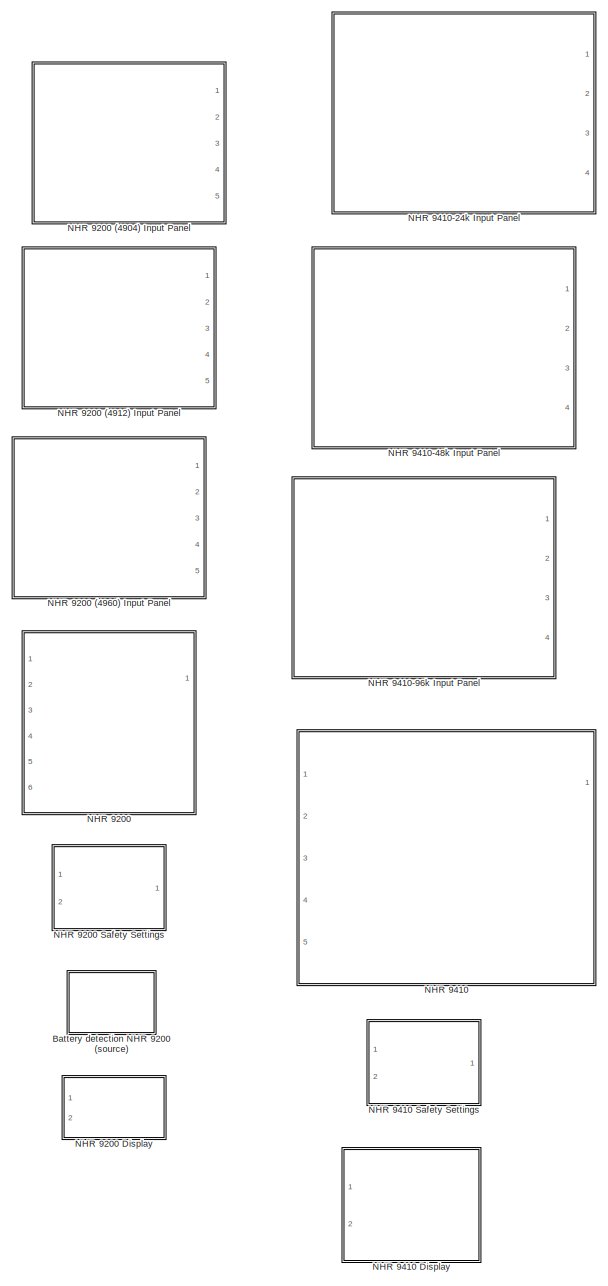
[diagram: root canvas - part 1/3, left side, full height]
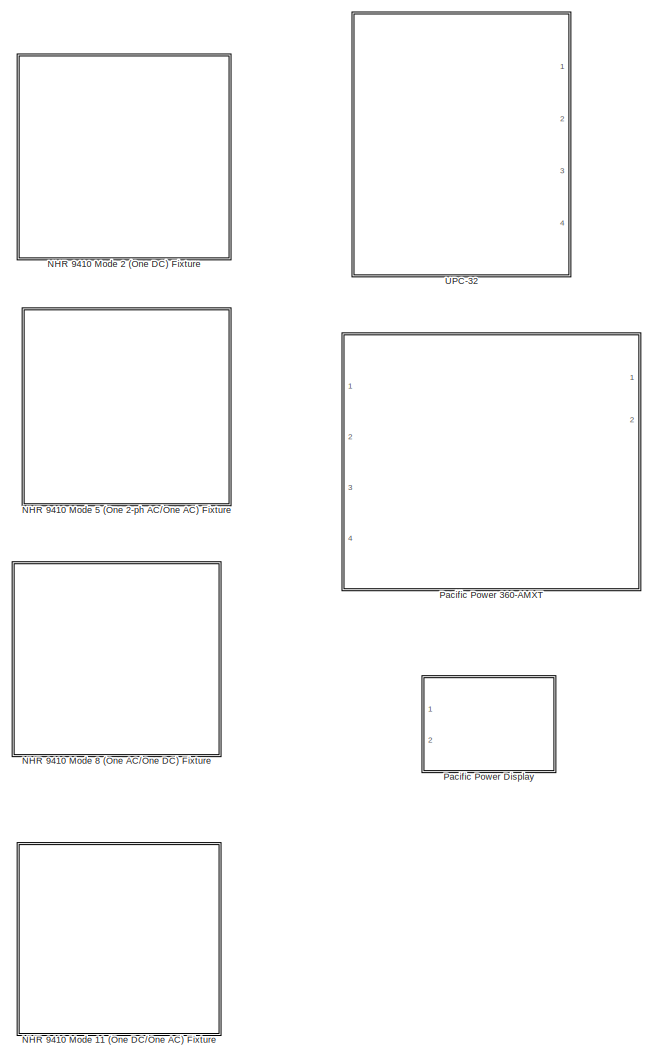
[diagram: root canvas - part 2/3, right side, full height]
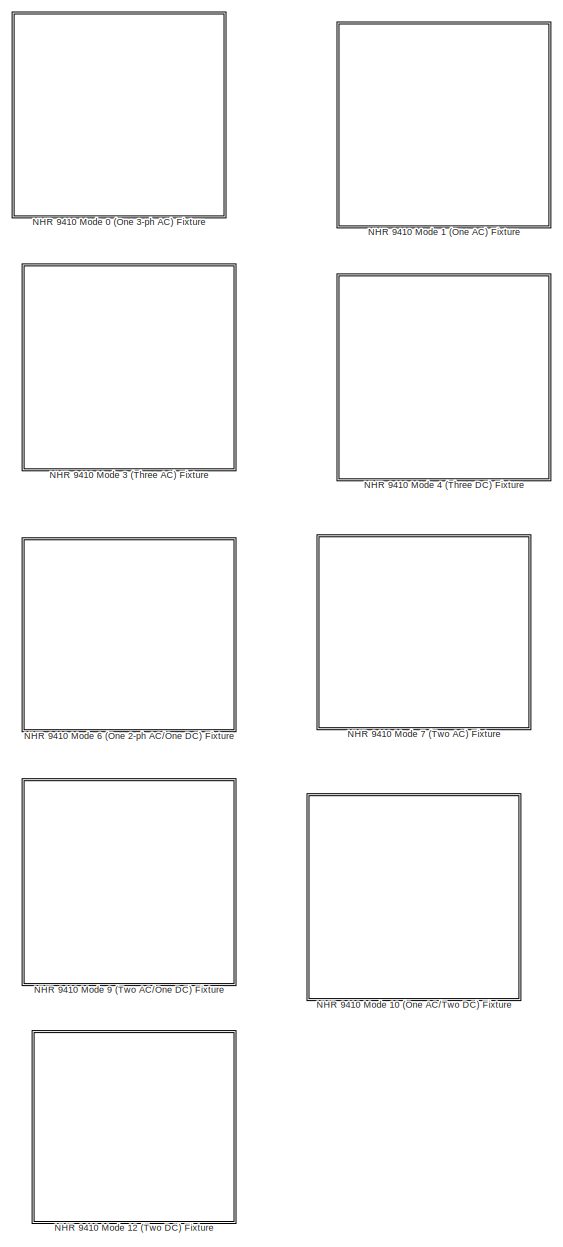
[diagram: root canvas - part 3/3, center side, full height]
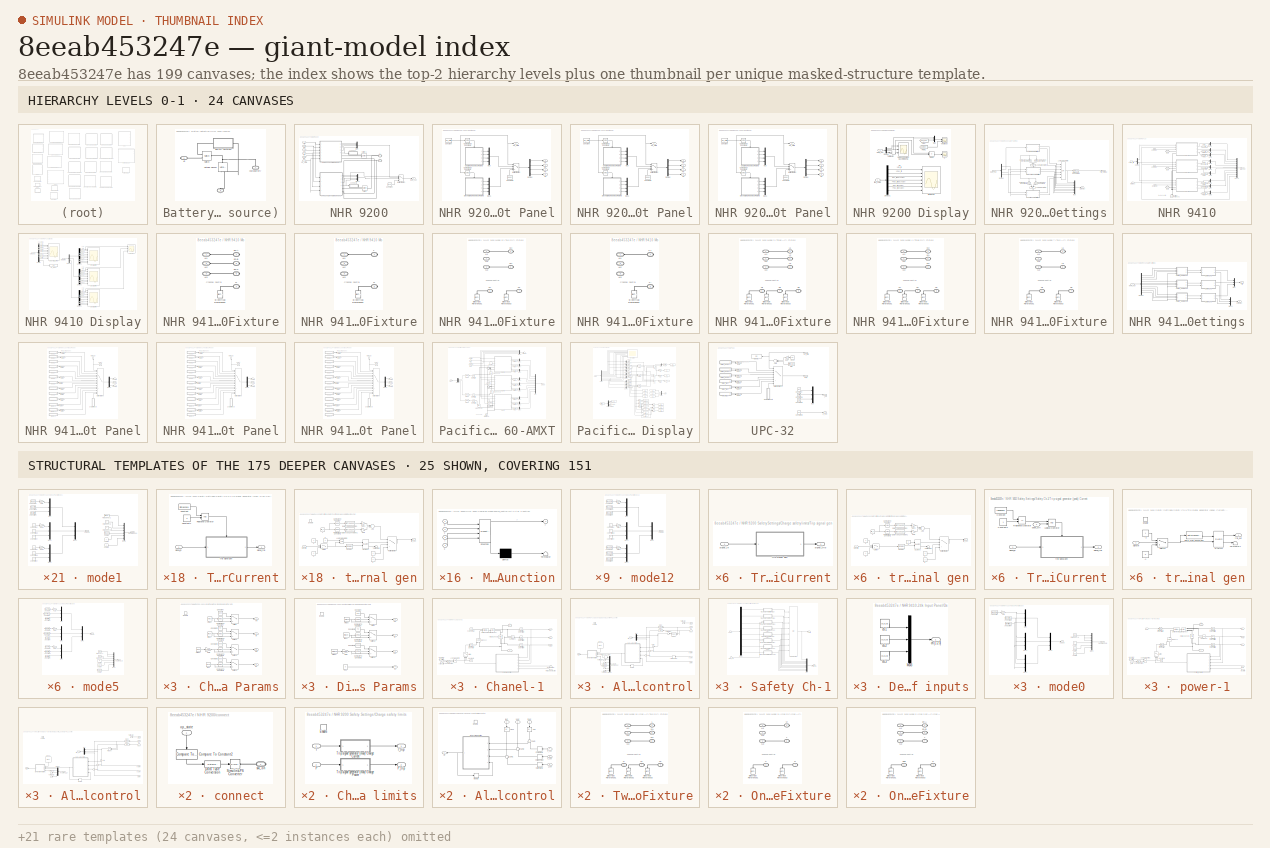
[diagram: thumbnail index - top-2 hierarchy levels (24 canvases) + 25 structural-template representatives of the remaining 175 canvases]
MODEL slx_8eeab453247e
KIND library
CONFIG AbsTol = auto
CONFIG EnableMultiTasking = off
CONFIG FixedStep = auto
CONFIG MaxStep = auto
CONFIG MinStep = auto
CONFIG RelTol = 1e-3
CONFIG SampleTimeConstraint = Unconstrained
CONFIG Solver = VariableStepAuto
CONFIG SolverName = VariableStepAuto
CONFIG StartTime = 0.0
CONFIG StopTime = 10.0
BLOCK [SubSystem] Battery detection NHR 9200 (source)
  Ports = [0, 0, 0, 0, 0, 2, 1]
  RequestExecContextInheritance = off
BLOCK [PMIOPort] Battery detection NHR 9200 (source)/+in
  Side = Right
BLOCK [PMIOPort] Battery detection NHR 9200 (source)/+out2battery
  Port = 2
  Side = Left
BLOCK [PMIOPort] Battery detection NHR 9200 (source)/-
  Port = 3
  Side = Left
BLOCK [SubSystem] Battery detection NHR 9200 (source)/Battery detection
  Ports = [0, 0, 0, 0, 0, 1, 1]
  RequestExecContextInheritance = off
BLOCK [PMIOPort] Battery detection NHR 9200 (source)/Battery detection/2Switch
  Side = Right
BLOCK [Reference] Battery detection NHR 9200 (source)/Battery detection/Compare To Constant  REF=simulink/Logic and Bit
Operations/Compare
To Constant
  Ports = [1, 1]
  SourceBlock = simulink/Logic and Bit\nOperations/Compare\nTo Constant
  SourceProductBaseCode = SL
  SourceProductName = Simulink
  SourceType = Compare To Constant
BLOCK [Reference] Battery detection NHR 9200 (source)/Battery detection/Compare To Constant1  REF=simulink/Logic and Bit
Operations/Compare
To Constant
  Ports = [1, 1]
  SourceBlock = simulink/Logic and Bit\nOperations/Compare\nTo Constant
  SourceProductBaseCode = SL
  SourceProductName = Simulink
  SourceType = Compare To Constant
BLOCK [Constant] Battery detection NHR 9200 (source)/Battery detection/Constant
  Value = Vdetect
BLOCK [Constant] Battery detection NHR 9200 (source)/Battery detection/Constant1
  Value = 0
BLOCK [DataTypeConversion] Battery detection NHR 9200 (source)/Battery detection/Data Type Conversion
  OutDataTypeStr = double
  RndMeth = Floor
  SaturateOnIntegerOverflow = off
BLOCK [Goto] Battery detection NHR 9200 (source)/Battery detection/Goto
  GotoTag = Vuut_bat
  TagVisibility = global
BLOCK [Goto] Battery detection NHR 9200 (source)/Battery detection/Goto1
  GotoTag = Vdetect
  TagVisibility = global
BLOCK [Reference] Battery detection NHR 9200 (source)/Battery detection/PS-Simulink Converter3  REF=nesl_utility/PS-Simulink
Converter
  Ports = [0, 1, 0, 0, 0, 1]
  SourceBlock = nesl_utility/PS-Simulink\nConverter
  SourceProductBaseCode = SS
  SourceProductName = Simscape
  SourceType = PS-Simulink\nConverter
BLOCK [Reference] Battery detection NHR 9200 (source)/Battery detection/Simulink-PS Converter  REF=nesl_utility/Simulink-PS
Converter
  Ports = [1, 0, 0, 0, 0, 0, 1]
  SourceBlock = nesl_utility/Simulink-PS\nConverter
  SourceProductBaseCode = SS
  SourceProductName = Simscape
  SourceType = Simulink-PS\nConverter
BLOCK [Switch] Battery detection NHR 9200 (source)/Battery detection/Switch
  Criteria = u2 > Threshold
  InputSameDT = off
  SaturateOnIntegerOverflow = off
BLOCK [PMIOPort] Battery detection NHR 9200 (source)/Battery detection/V
  Port = 2
  Side = Left
BLOCK [Reference] Battery detection NHR 9200 (source)/Switch  REF=fl_lib/Electrical/Electrical Elements/Switch
  Ports = [0, 0, 0, 0, 0, 1, 2]
  SourceBlock = fl_lib/Electrical/Electrical Elements/Switch
  SourceProductBaseCode = SS
  SourceProductName = Simscape
  SourceType = Switch
BLOCK [Reference] Battery detection NHR 9200 (source)/Voltage Sensor  REF=fl_lib/Electrical/Electrical Sensors/Voltage Sensor
  Ports = [0, 0, 0, 0, 0, 1, 2]
  SourceBlock = fl_lib/Electrical/Electrical Sensors/Voltage Sensor
  SourceProductBaseCode = SS
  SourceProductName = Simscape
  SourceType = Voltage Sensor
BLOCK [SubSystem] NHR 9200
  Ports = [6, 1, 0, 0, 0, 0, 2]
  RequestExecContextInheritance = off
BLOCK [SubSystem] NHR 9200 (4904) Input Panel
  Ports = [0, 5]
  RequestExecContextInheritance = off
BLOCK [SubSystem] NHR 9200 (4904) Input Panel/Charging mode Input Params
  Ports = [0, 4, 1]
  RequestExecContextInheritance = off
BLOCK [Reference] NHR 9200 (4904) Input Panel/Charging mode Input Params/Compare To Constant  REF=simulink/Logic and Bit
Operations/Compare
To Constant
  Ports = [1, 1]
  SourceBlock = simulink/Logic and Bit\nOperations/Compare\nTo Constant
  SourceProductBaseCode = SL
  SourceProductName = Simulink
  SourceType = Compare To Constant
BLOCK [Reference] NHR 9200 (4904) Input Panel/Charging mode Input Params/Compare To Constant1  REF=simulink/Logic and Bit
Operations/Compare
To Constant
  Ports = [1, 1]
  SourceBlock = simulink/Logic and Bit\nOperations/Compare\nTo Constant
  SourceProductBaseCode = SL
  SourceProductName = Simulink
  SourceType = Compare To Constant
BLOCK [Reference] NHR 9200 (4904) Input Panel/Charging mode Input Params/Compare To Constant2  REF=simulink/Logic and Bit
Operations/Compare
To Constant
  Ports = [1, 1]
  SourceBlock = simulink/Logic and Bit\nOperations/Compare\nTo Constant
  SourceProductBaseCode = SL
  SourceProductName = Simulink
  SourceType = Compare To Constant
BLOCK [Reference] NHR 9200 (4904) Input Panel/Charging mode Input Params/Compare To Constant3  REF=simulink/Logic and Bit
Operations/Compare
To Constant
  Ports = [1, 1]
  SourceBlock = simulink/Logic and Bit\nOperations/Compare\nTo Constant
  SourceProductBaseCode = SL
  SourceProductName = Simulink
  SourceType = Compare To Constant
BLOCK [Constant] NHR 9200 (4904) Input Panel/Charging mode Input Params/Constant
  Value = 600
BLOCK [Constant] NHR 9200 (4904) Input Panel/Charging mode Input Params/Constant1
  Value = 40
BLOCK [Constant] NHR 9200 (4904) Input Panel/Charging mode Input Params/Constant2
  Value = 8000
BLOCK [Constant] NHR 9200 (4904) Input Panel/Charging mode Input Params/Constant3
  Value = 500
BLOCK [EnablePort] NHR 9200 (4904) Input Panel/Charging mode Input Params/Enable
  Ports = []
BLOCK [Gain] NHR 9200 (4904) Input Panel/Charging mode Input Params/Gain
  Gain = 1000
  OutDataTypeStr = Inherit: Inherit via internal rule
  ParamDataTypeStr = Inherit: Inherit via internal rule
  SaturateOnIntegerOverflow = off
BLOCK [Constant] NHR 9200 (4904) Input Panel/Charging mode Input Params/I(max)
  Value = Imch
BLOCK [Outport] NHR 9200 (4904) Input Panel/Charging mode Input Params/Im
  IconDisplay = Port number
  Port = 2
BLOCK [Constant] NHR 9200 (4904) Input Panel/Charging mode Input Params/P(max)
  Value = Pmch
BLOCK [Outport] NHR 9200 (4904) Input Panel/Charging mode Input Params/Pm
  IconDisplay = Port number
  Port = 3
BLOCK [Outport] NHR 9200 (4904) Input Panel/Charging mode Input Params/Rs
  IconDisplay = Port number
  Port = 4
BLOCK [Constant] NHR 9200 (4904) Input Panel/Charging mode Input Params/Rs1
  Value = Rsch
BLOCK [Switch] NHR 9200 (4904) Input Panel/Charging mode Input Params/Switch
  Criteria = u2 > Threshold
  InputSameDT = off
  SaturateOnIntegerOverflow = off
BLOCK [Switch] NHR 9200 (4904) Input Panel/Charging mode Input Params/Switch1
  Criteria = u2 > Threshold
  InputSameDT = off
  SaturateOnIntegerOverflow = off
BLOCK [Switch] NHR 9200 (4904) Input Panel/Charging mode Input Params/Switch2
  Criteria = u2 > Threshold
  InputSameDT = off
  SaturateOnIntegerOverflow = off
BLOCK [Switch] NHR 9200 (4904) Input Panel/Charging mode Input Params/Switch3
  Criteria = u2 > Threshold
  InputSameDT = off
  SaturateOnIntegerOverflow = off
BLOCK [Constant] NHR 9200 (4904) Input Panel/Charging mode Input Params/V(max)
  Value = Vmch
BLOCK [Outport] NHR 9200 (4904) Input Panel/Charging mode Input Params/Vm
  IconDisplay = Port number
BLOCK [Reference] NHR 9200 (4904) Input Panel/Compare To Constant1  REF=simulink/Logic and Bit
Operations/Compare
To Constant
  Ports = [1, 1]
  SourceBlock = simulink/Logic and Bit\nOperations/Compare\nTo Constant
  SourceProductBaseCode = SL
  SourceProductName = Simulink
  SourceType = Compare To Constant
BLOCK [Reference] NHR 9200 (4904) Input Panel/Compare To Constant4  REF=simulink/Logic and Bit
Operations/Compare
To Constant
  Ports = [1, 1]
  SourceBlock = simulink/Logic and Bit\nOperations/Compare\nTo Constant
  SourceProductBaseCode = SL
  SourceProductName = Simulink
  SourceType = Compare To Constant
BLOCK [Constant] NHR 9200 (4904) Input Panel/Constant
  Value = op_state
BLOCK [Constant] NHR 9200 (4904) Input Panel/Constant1
  Value = [0,0,0,0]
BLOCK [Demux] NHR 9200 (4904) Input Panel/Demux
  DisplayOption = bar
  Ports = [1, 4]
BLOCK [SubSystem] NHR 9200 (4904) Input Panel/Discharging mode Input Params
  Ports = [0, 4, 1]
  RequestExecContextInheritance = off
BLOCK [Reference] NHR 9200 (4904) Input Panel/Discharging mode Input Params/Compare To Constant  REF=simulink/Logic and Bit
Operations/Compare
To Constant
  Ports = [1, 1]
  SourceBlock = simulink/Logic and Bit\nOperations/Compare\nTo Constant
  SourceProductBaseCode = SL
  SourceProductName = Simulink
  SourceType = Compare To Constant
BLOCK [Reference] NHR 9200 (4904) Input Panel/Discharging mode Input Params/Compare To Constant1  REF=simulink/Logic and Bit
Operations/Compare
To Constant
  Ports = [1, 1]
  SourceBlock = simulink/Logic and Bit\nOperations/Compare\nTo Constant
  SourceProductBaseCode = SL
  SourceProductName = Simulink
  SourceType = Compare To Constant
BLOCK [Reference] NHR 9200 (4904) Input Panel/Discharging mode Input Params/Compare To Constant2  REF=simulink/Logic and Bit
Operations/Compare
To Constant
  Ports = [1, 1]
  SourceBlock = simulink/Logic and Bit\nOperations/Compare\nTo Constant
  SourceProductBaseCode = SL
  SourceProductName = Simulink
  SourceType = Compare To Constant
BLOCK [Constant] NHR 9200 (4904) Input Panel/Discharging mode Input Params/Constant
  Value = 600
BLOCK [Constant] NHR 9200 (4904) Input Panel/Discharging mode Input Params/Constant1
  Value = 40
BLOCK [Constant] NHR 9200 (4904) Input Panel/Discharging mode Input Params/Constant2
  Value = 1200
BLOCK [EnablePort] NHR 9200 (4904) Input Panel/Discharging mode Input Params/Enable
  Ports = []
BLOCK [Gain] NHR 9200 (4904) Input Panel/Discharging mode Input Params/Gain
  Gain = 1000
  OutDataTypeStr = Inherit: Inherit via internal rule
  ParamDataTypeStr = Inherit: Inherit via internal rule
  SaturateOnIntegerOverflow = off
BLOCK [Constant] NHR 9200 (4904) Input Panel/Discharging mode Input Params/I(max)
  Value = Imdch
BLOCK [Outport] NHR 9200 (4904) Input Panel/Discharging mode Input Params/Im
  IconDisplay = Port number
  Port = 2
BLOCK [Constant] NHR 9200 (4904) Input Panel/Discharging mode Input Params/P(max)
  Value = Pmdch
BLOCK [Outport] NHR 9200 (4904) Input Panel/Discharging mode Input Params/Pm
  IconDisplay = Port number
  Port = 3
BLOCK [Outport] NHR 9200 (4904) Input Panel/Discharging mode Input Params/Rs
  IconDisplay = Port number
  Port = 4
BLOCK [Constant] NHR 9200 (4904) Input Panel/Discharging mode Input Params/Rs1
  Value = 0
BLOCK [Switch] NHR 9200 (4904) Input Panel/Discharging mode Input Params/Switch
  Criteria = u2 > Threshold
  InputSameDT = off
  SaturateOnIntegerOverflow = off
BLOCK [Switch] NHR 9200 (4904) Input Panel/Discharging mode Input Params/Switch1
  Criteria = u2 > Threshold
  InputSameDT = off
  SaturateOnIntegerOverflow = off
BLOCK [Switch] NHR 9200 (4904) Input Panel/Discharging mode Input Params/Switch2
  Criteria = u2 > Threshold
  InputSameDT = off
  SaturateOnIntegerOverflow = off
BLOCK [Constant] NHR 9200 (4904) Input Panel/Discharging mode Input Params/V(max)
  Value = Vmdch
BLOCK [Outport] NHR 9200 (4904) Input Panel/Discharging mode Input Params/Vm
  IconDisplay = Port number
BLOCK [Outport] NHR 9200 (4904) Input Panel/Im
  IconDisplay = Port number
  Port = 4
BLOCK [MultiPortSwitch] NHR 9200 (4904) Input Panel/Multiport Switch
  DataPortForDefault = Additional data port
  DataPortIndices = {2,3}
  DataPortOrder = Specify indices
  DiagnosticForDefault = None
  InputSameDT = off
  Inputs = 2
  Ports = [4, 1]
  SaturateOnIntegerOverflow = off
BLOCK [Mux] NHR 9200 (4904) Input Panel/Mux
  DisplayOption = bar
  Ports = [4, 1]
BLOCK [Mux] NHR 9200 (4904) Input Panel/Mux1
  DisplayOption = bar
  Ports = [4, 1]
BLOCK [Outport] NHR 9200 (4904) Input Panel/Pm
  IconDisplay = Port number
  Port = 2
BLOCK [Outport] NHR 9200 (4904) Input Panel/Rs
  IconDisplay = Port number
  Port = 5
BLOCK [Outport] NHR 9200 (4904) Input Panel/Vm
  IconDisplay = Port number
  Port = 3
BLOCK [Outport] NHR 9200 (4904) Input Panel/op_state
  IconDisplay = Port number
BLOCK [SubSystem] NHR 9200 (4912) Input Panel
  Ports = [0, 5]
  RequestExecContextInheritance = off
BLOCK [SubSystem] NHR 9200 (4912) Input Panel/Charging mode Input Params
  Ports = [0, 4, 1]
  RequestExecContextInheritance = off
BLOCK [Reference] NHR 9200 (4912) Input Panel/Charging mode Input Params/Compare To Constant  REF=simulink/Logic and Bit
Operations/Compare
To Constant
  Ports = [1, 1]
  SourceBlock = simulink/Logic and Bit\nOperations/Compare\nTo Constant
  SourceProductBaseCode = SL
  SourceProductName = Simulink
  SourceType = Compare To Constant
BLOCK [Reference] NHR 9200 (4912) Input Panel/Charging mode Input Params/Compare To Constant1  REF=simulink/Logic and Bit
Operations/Compare
To Constant
  Ports = [1, 1]
  SourceBlock = simulink/Logic and Bit\nOperations/Compare\nTo Constant
  SourceProductBaseCode = SL
  SourceProductName = Simulink
  SourceType = Compare To Constant
BLOCK [Reference] NHR 9200 (4912) Input Panel/Charging mode Input Params/Compare To Constant2  REF=simulink/Logic and Bit
Operations/Compare
To Constant
  Ports = [1, 1]
  SourceBlock = simulink/Logic and Bit\nOperations/Compare\nTo Constant
  SourceProductBaseCode = SL
  SourceProductName = Simulink
  SourceType = Compare To Constant
BLOCK [Reference] NHR 9200 (4912) Input Panel/Charging mode Input Params/Compare To Constant3  REF=simulink/Logic and Bit
Operations/Compare
To Constant
  Ports = [1, 1]
  SourceBlock = simulink/Logic and Bit\nOperations/Compare\nTo Constant
  SourceProductBaseCode = SL
  SourceProductName = Simulink
  SourceType = Compare To Constant
BLOCK [Constant] NHR 9200 (4912) Input Panel/Charging mode Input Params/Constant
  Value = 600
BLOCK [Constant] NHR 9200 (4912) Input Panel/Charging mode Input Params/Constant1
  Value = 40
BLOCK [Constant] NHR 9200 (4912) Input Panel/Charging mode Input Params/Constant2
  Value = 8000
BLOCK [Constant] NHR 9200 (4912) Input Panel/Charging mode Input Params/Constant3
  Value = 500
BLOCK [EnablePort] NHR 9200 (4912) Input Panel/Charging mode Input Params/Enable
  Ports = []
BLOCK [Gain] NHR 9200 (4912) Input Panel/Charging mode Input Params/Gain
  Gain = 1000
  OutDataTypeStr = Inherit: Inherit via internal rule
  ParamDataTypeStr = Inherit: Inherit via internal rule
  SaturateOnIntegerOverflow = off
BLOCK [Constant] NHR 9200 (4912) Input Panel/Charging mode Input Params/I(max)
  Value = Imch
BLOCK [Outport] NHR 9200 (4912) Input Panel/Charging mode Input Params/Im
  IconDisplay = Port number
  Port = 2
BLOCK [Constant] NHR 9200 (4912) Input Panel/Charging mode Input Params/P(max)
  Value = Pmch
BLOCK [Outport] NHR 9200 (4912) Input Panel/Charging mode Input Params/Pm
  IconDisplay = Port number
  Port = 3
BLOCK [Outport] NHR 9200 (4912) Input Panel/Charging mode Input Params/Rs
  IconDisplay = Port number
  Port = 4
BLOCK [Constant] NHR 9200 (4912) Input Panel/Charging mode Input Params/Rs1
  Value = Rsch
BLOCK [Switch] NHR 9200 (4912) Input Panel/Charging mode Input Params/Switch
  Criteria = u2 > Threshold
  InputSameDT = off
  SaturateOnIntegerOverflow = off
BLOCK [Switch] NHR 9200 (4912) Input Panel/Charging mode Input Params/Switch1
  Criteria = u2 > Threshold
  InputSameDT = off
  SaturateOnIntegerOverflow = off
BLOCK [Switch] NHR 9200 (4912) Input Panel/Charging mode Input Params/Switch2
  Criteria = u2 > Threshold
  InputSameDT = off
  SaturateOnIntegerOverflow = off
BLOCK [Switch] NHR 9200 (4912) Input Panel/Charging mode Input Params/Switch3
  Criteria = u2 > Threshold
  InputSameDT = off
  SaturateOnIntegerOverflow = off
BLOCK [Constant] NHR 9200 (4912) Input Panel/Charging mode Input Params/V(max)
  Value = Vmch
BLOCK [Outport] NHR 9200 (4912) Input Panel/Charging mode Input Params/Vm
  IconDisplay = Port number
BLOCK [Reference] NHR 9200 (4912) Input Panel/Compare To Constant1  REF=simulink/Logic and Bit
Operations/Compare
To Constant
  Ports = [1, 1]
  SourceBlock = simulink/Logic and Bit\nOperations/Compare\nTo Constant
  SourceProductBaseCode = SL
  SourceProductName = Simulink
  SourceType = Compare To Constant
BLOCK [Reference] NHR 9200 (4912) Input Panel/Compare To Constant4  REF=simulink/Logic and Bit
Operations/Compare
To Constant
  Ports = [1, 1]
  SourceBlock = simulink/Logic and Bit\nOperations/Compare\nTo Constant
  SourceProductBaseCode = SL
  SourceProductName = Simulink
  SourceType = Compare To Constant
BLOCK [Constant] NHR 9200 (4912) Input Panel/Constant
  Value = op_state
BLOCK [Constant] NHR 9200 (4912) Input Panel/Constant1
  Value = [0,0,0,0]
BLOCK [Demux] NHR 9200 (4912) Input Panel/Demux
  DisplayOption = bar
  Ports = [1, 4]
BLOCK [SubSystem] NHR 9200 (4912) Input Panel/Discharging mode Input Params
  Ports = [0, 4, 1]
  RequestExecContextInheritance = off
BLOCK [Reference] NHR 9200 (4912) Input Panel/Discharging mode Input Params/Compare To Constant  REF=simulink/Logic and Bit
Operations/Compare
To Constant
  Ports = [1, 1]
  SourceBlock = simulink/Logic and Bit\nOperations/Compare\nTo Constant
  SourceProductBaseCode = SL
  SourceProductName = Simulink
  SourceType = Compare To Constant
BLOCK [Reference] NHR 9200 (4912) Input Panel/Discharging mode Input Params/Compare To Constant1  REF=simulink/Logic and Bit
Operations/Compare
To Constant
  Ports = [1, 1]
  SourceBlock = simulink/Logic and Bit\nOperations/Compare\nTo Constant
  SourceProductBaseCode = SL
  SourceProductName = Simulink
  SourceType = Compare To Constant
BLOCK [Reference] NHR 9200 (4912) Input Panel/Discharging mode Input Params/Compare To Constant2  REF=simulink/Logic and Bit
Operations/Compare
To Constant
  Ports = [1, 1]
  SourceBlock = simulink/Logic and Bit\nOperations/Compare\nTo Constant
  SourceProductBaseCode = SL
  SourceProductName = Simulink
  SourceType = Compare To Constant
BLOCK [Constant] NHR 9200 (4912) Input Panel/Discharging mode Input Params/Constant
  Value = 600
BLOCK [Constant] NHR 9200 (4912) Input Panel/Discharging mode Input Params/Constant1
  Value = 40
BLOCK [Constant] NHR 9200 (4912) Input Panel/Discharging mode Input Params/Constant2
  Value = 1200
BLOCK [EnablePort] NHR 9200 (4912) Input Panel/Discharging mode Input Params/Enable
  Ports = []
BLOCK [Gain] NHR 9200 (4912) Input Panel/Discharging mode Input Params/Gain
  Gain = 1000
  OutDataTypeStr = Inherit: Inherit via internal rule
  ParamDataTypeStr = Inherit: Inherit via internal rule
  SaturateOnIntegerOverflow = off
BLOCK [Constant] NHR 9200 (4912) Input Panel/Discharging mode Input Params/I(max)
  Value = Imdch
BLOCK [Outport] NHR 9200 (4912) Input Panel/Discharging mode Input Params/Im
  IconDisplay = Port number
  Port = 2
BLOCK [Constant] NHR 9200 (4912) Input Panel/Discharging mode Input Params/P(max)
  Value = Pmdch
BLOCK [Outport] NHR 9200 (4912) Input Panel/Discharging mode Input Params/Pm
  IconDisplay = Port number
  Port = 3
BLOCK [Outport] NHR 9200 (4912) Input Panel/Discharging mode Input Params/Rs
  IconDisplay = Port number
  Port = 4
BLOCK [Constant] NHR 9200 (4912) Input Panel/Discharging mode Input Params/Rs1
  Value = 0
BLOCK [Switch] NHR 9200 (4912) Input Panel/Discharging mode Input Params/Switch
  Criteria = u2 > Threshold
  InputSameDT = off
  SaturateOnIntegerOverflow = off
BLOCK [Switch] NHR 9200 (4912) Input Panel/Discharging mode Input Params/Switch1
  Criteria = u2 > Threshold
  InputSameDT = off
  SaturateOnIntegerOverflow = off
BLOCK [Switch] NHR 9200 (4912) Input Panel/Discharging mode Input Params/Switch2
  Criteria = u2 > Threshold
  InputSameDT = off
  SaturateOnIntegerOverflow = off
BLOCK [Constant] NHR 9200 (4912) Input Panel/Discharging mode Input Params/V(max)
  Value = Vmdch
BLOCK [Outport] NHR 9200 (4912) Input Panel/Discharging mode Input Params/Vm
  IconDisplay = Port number
BLOCK [Outport] NHR 9200 (4912) Input Panel/Im
  IconDisplay = Port number
  Port = 4
BLOCK [MultiPortSwitch] NHR 9200 (4912) Input Panel/Multiport Switch
  DataPortForDefault = Additional data port
  DataPortIndices = {2,3}
  DataPortOrder = Specify indices
  DiagnosticForDefault = None
  InputSameDT = off
  Inputs = 2
  Ports = [4, 1]
  SaturateOnIntegerOverflow = off
BLOCK [Mux] NHR 9200 (4912) Input Panel/Mux
  DisplayOption = bar
  Ports = [4, 1]
BLOCK [Mux] NHR 9200 (4912) Input Panel/Mux1
  DisplayOption = bar
  Ports = [4, 1]
BLOCK [Outport] NHR 9200 (4912) Input Panel/Pm
  IconDisplay = Port number
  Port = 2
BLOCK [Outport] NHR 9200 (4912) Input Panel/Rs
  IconDisplay = Port number
  Port = 5
BLOCK [Outport] NHR 9200 (4912) Input Panel/Vm
  IconDisplay = Port number
  Port = 3
BLOCK [Outport] NHR 9200 (4912) Input Panel/op_state
  IconDisplay = Port number
BLOCK [SubSystem] NHR 9200 (4960) Input Panel
  Ports = [0, 5]
  RequestExecContextInheritance = off
BLOCK [SubSystem] NHR 9200 (4960) Input Panel/Charging mode Input Params
  Ports = [0, 4, 1]
  RequestExecContextInheritance = off
BLOCK [Reference] NHR 9200 (4960) Input Panel/Charging mode Input Params/Compare To Constant  REF=simulink/Logic and Bit
Operations/Compare
To Constant
  Ports = [1, 1]
  SourceBlock = simulink/Logic and Bit\nOperations/Compare\nTo Constant
  SourceProductBaseCode = SL
  SourceProductName = Simulink
  SourceType = Compare To Constant
BLOCK [Reference] NHR 9200 (4960) Input Panel/Charging mode Input Params/Compare To Constant1  REF=simulink/Logic and Bit
Operations/Compare
To Constant
  Ports = [1, 1]
  SourceBlock = simulink/Logic and Bit\nOperations/Compare\nTo Constant
  SourceProductBaseCode = SL
  SourceProductName = Simulink
  SourceType = Compare To Constant
BLOCK [Reference] NHR 9200 (4960) Input Panel/Charging mode Input Params/Compare To Constant2  REF=simulink/Logic and Bit
Operations/Compare
To Constant
  Ports = [1, 1]
  SourceBlock = simulink/Logic and Bit\nOperations/Compare\nTo Constant
  SourceProductBaseCode = SL
  SourceProductName = Simulink
  SourceType = Compare To Constant
BLOCK [Reference] NHR 9200 (4960) Input Panel/Charging mode Input Params/Compare To Constant3  REF=simulink/Logic and Bit
Operations/Compare
To Constant
  Ports = [1, 1]
  SourceBlock = simulink/Logic and Bit\nOperations/Compare\nTo Constant
  SourceProductBaseCode = SL
  SourceProductName = Simulink
  SourceType = Compare To Constant
BLOCK [Constant] NHR 9200 (4960) Input Panel/Charging mode Input Params/Constant
  Value = 600
BLOCK [Constant] NHR 9200 (4960) Input Panel/Charging mode Input Params/Constant1
  Value = 40
BLOCK [Constant] NHR 9200 (4960) Input Panel/Charging mode Input Params/Constant2
  Value = 8000
BLOCK [Constant] NHR 9200 (4960) Input Panel/Charging mode Input Params/Constant3
  Value = 500
BLOCK [EnablePort] NHR 9200 (4960) Input Panel/Charging mode Input Params/Enable
  Ports = []
BLOCK [Gain] NHR 9200 (4960) Input Panel/Charging mode Input Params/Gain
  Gain = 1000
  OutDataTypeStr = Inherit: Inherit via internal rule
  ParamDataTypeStr = Inherit: Inherit via internal rule
  SaturateOnIntegerOverflow = off
BLOCK [Constant] NHR 9200 (4960) Input Panel/Charging mode Input Params/I(max)
  Value = Imch
BLOCK [Outport] NHR 9200 (4960) Input Panel/Charging mode Input Params/Im
  IconDisplay = Port number
  Port = 2
BLOCK [Constant] NHR 9200 (4960) Input Panel/Charging mode Input Params/P(max)
  Value = Pmch
BLOCK [Outport] NHR 9200 (4960) Input Panel/Charging mode Input Params/Pm
  IconDisplay = Port number
  Port = 3
BLOCK [Outport] NHR 9200 (4960) Input Panel/Charging mode Input Params/Rs
  IconDisplay = Port number
  Port = 4
BLOCK [Constant] NHR 9200 (4960) Input Panel/Charging mode Input Params/Rs1
  Value = Rsch
BLOCK [Switch] NHR 9200 (4960) Input Panel/Charging mode Input Params/Switch
  Criteria = u2 > Threshold
  InputSameDT = off
  SaturateOnIntegerOverflow = off
BLOCK [Switch] NHR 9200 (4960) Input Panel/Charging mode Input Params/Switch1
  Criteria = u2 > Threshold
  InputSameDT = off
  SaturateOnIntegerOverflow = off
BLOCK [Switch] NHR 9200 (4960) Input Panel/Charging mode Input Params/Switch2
  Criteria = u2 > Threshold
  InputSameDT = off
  SaturateOnIntegerOverflow = off
BLOCK [Switch] NHR 9200 (4960) Input Panel/Charging mode Input Params/Switch3
  Criteria = u2 > Threshold
  InputSameDT = off
  SaturateOnIntegerOverflow = off
BLOCK [Constant] NHR 9200 (4960) Input Panel/Charging mode Input Params/V(max)
  Value = Vmch
BLOCK [Outport] NHR 9200 (4960) Input Panel/Charging mode Input Params/Vm
  IconDisplay = Port number
BLOCK [Reference] NHR 9200 (4960) Input Panel/Compare To Constant1  REF=simulink/Logic and Bit
Operations/Compare
To Constant
  Ports = [1, 1]
  SourceBlock = simulink/Logic and Bit\nOperations/Compare\nTo Constant
  SourceProductBaseCode = SL
  SourceProductName = Simulink
  SourceType = Compare To Constant
BLOCK [Reference] NHR 9200 (4960) Input Panel/Compare To Constant4  REF=simulink/Logic and Bit
Operations/Compare
To Constant
  Ports = [1, 1]
  SourceBlock = simulink/Logic and Bit\nOperations/Compare\nTo Constant
  SourceProductBaseCode = SL
  SourceProductName = Simulink
  SourceType = Compare To Constant
BLOCK [Constant] NHR 9200 (4960) Input Panel/Constant
  Value = op_state
BLOCK [Constant] NHR 9200 (4960) Input Panel/Constant1
  Value = [0,0,0,0]
BLOCK [Demux] NHR 9200 (4960) Input Panel/Demux
  DisplayOption = bar
  Ports = [1, 4]
BLOCK [SubSystem] NHR 9200 (4960) Input Panel/Discharging mode Input Params
  Ports = [0, 4, 1]
  RequestExecContextInheritance = off
BLOCK [Reference] NHR 9200 (4960) Input Panel/Discharging mode Input Params/Compare To Constant  REF=simulink/Logic and Bit
Operations/Compare
To Constant
  Ports = [1, 1]
  SourceBlock = simulink/Logic and Bit\nOperations/Compare\nTo Constant
  SourceProductBaseCode = SL
  SourceProductName = Simulink
  SourceType = Compare To Constant
BLOCK [Reference] NHR 9200 (4960) Input Panel/Discharging mode Input Params/Compare To Constant1  REF=simulink/Logic and Bit
Operations/Compare
To Constant
  Ports = [1, 1]
  SourceBlock = simulink/Logic and Bit\nOperations/Compare\nTo Constant
  SourceProductBaseCode = SL
  SourceProductName = Simulink
  SourceType = Compare To Constant
BLOCK [Reference] NHR 9200 (4960) Input Panel/Discharging mode Input Params/Compare To Constant2  REF=simulink/Logic and Bit
Operations/Compare
To Constant
  Ports = [1, 1]
  SourceBlock = simulink/Logic and Bit\nOperations/Compare\nTo Constant
  SourceProductBaseCode = SL
  SourceProductName = Simulink
  SourceType = Compare To Constant
BLOCK [Constant] NHR 9200 (4960) Input Panel/Discharging mode Input Params/Constant
  Value = 600
BLOCK [Constant] NHR 9200 (4960) Input Panel/Discharging mode Input Params/Constant1
  Value = 40
BLOCK [Constant] NHR 9200 (4960) Input Panel/Discharging mode Input Params/Constant2
  Value = 1200
BLOCK [EnablePort] NHR 9200 (4960) Input Panel/Discharging mode Input Params/Enable
  Ports = []
BLOCK [Gain] NHR 9200 (4960) Input Panel/Discharging mode Input Params/Gain
  Gain = 1000
  OutDataTypeStr = Inherit: Inherit via internal rule
  ParamDataTypeStr = Inherit: Inherit via internal rule
  SaturateOnIntegerOverflow = off
BLOCK [Constant] NHR 9200 (4960) Input Panel/Discharging mode Input Params/I(max)
  Value = Imdch
BLOCK [Outport] NHR 9200 (4960) Input Panel/Discharging mode Input Params/Im
  IconDisplay = Port number
  Port = 2
BLOCK [Constant] NHR 9200 (4960) Input Panel/Discharging mode Input Params/P(max)
  Value = Pmdch
BLOCK [Outport] NHR 9200 (4960) Input Panel/Discharging mode Input Params/Pm
  IconDisplay = Port number
  Port = 3
BLOCK [Outport] NHR 9200 (4960) Input Panel/Discharging mode Input Params/Rs
  IconDisplay = Port number
  Port = 4
BLOCK [Constant] NHR 9200 (4960) Input Panel/Discharging mode Input Params/Rs1
  Value = 0
BLOCK [Switch] NHR 9200 (4960) Input Panel/Discharging mode Input Params/Switch
  Criteria = u2 > Threshold
  InputSameDT = off
  SaturateOnIntegerOverflow = off
BLOCK [Switch] NHR 9200 (4960) Input Panel/Discharging mode Input Params/Switch1
  Criteria = u2 > Threshold
  InputSameDT = off
  SaturateOnIntegerOverflow = off
BLOCK [Switch] NHR 9200 (4960) Input Panel/Discharging mode Input Params/Switch2
  Criteria = u2 > Threshold
  InputSameDT = off
  SaturateOnIntegerOverflow = off
BLOCK [Constant] NHR 9200 (4960) Input Panel/Discharging mode Input Params/V(max)
  Value = Vmdch
BLOCK [Outport] NHR 9200 (4960) Input Panel/Discharging mode Input Params/Vm
  IconDisplay = Port number
BLOCK [Outport] NHR 9200 (4960) Input Panel/Im
  IconDisplay = Port number
  Port = 4
BLOCK [MultiPortSwitch] NHR 9200 (4960) Input Panel/Multiport Switch
  DataPortForDefault = Additional data port
  DataPortIndices = {2,3}
  DataPortOrder = Specify indices
  DiagnosticForDefault = None
  InputSameDT = off
  Inputs = 2
  Ports = [4, 1]
  SaturateOnIntegerOverflow = off
BLOCK [Mux] NHR 9200 (4960) Input Panel/Mux
  DisplayOption = bar
  Ports = [4, 1]
BLOCK [Mux] NHR 9200 (4960) Input Panel/Mux1
  DisplayOption = bar
  Ports = [4, 1]
BLOCK [Outport] NHR 9200 (4960) Input Panel/Pm
  IconDisplay = Port number
  Port = 2
BLOCK [Outport] NHR 9200 (4960) Input Panel/Rs
  IconDisplay = Port number
  Port = 5
BLOCK [Outport] NHR 9200 (4960) Input Panel/Vm
  IconDisplay = Port number
  Port = 3
BLOCK [Outport] NHR 9200 (4960) Input Panel/op_state
  IconDisplay = Port number
BLOCK [SubSystem] NHR 9200 Display
  Ports = [2]
  RequestExecContextInheritance = off
BLOCK [Demux] NHR 9200 Display/Demux
  DisplayOption = bar
  Ports = [1, 4]
BLOCK [Demux] NHR 9200 Display/Demux1
  DisplayOption = bar
  Outputs = 7
  Ports = [1, 7]
BLOCK [Product] NHR 9200 Display/Divide
  InputSameDT = off
  Inputs = */
  OutDataTypeStr = Inherit: Inherit via internal rule
  Ports = [2, 1]
  RndMeth = Floor
  SaturateOnIntegerOverflow = off
BLOCK [From] NHR 9200 Display/From
  GotoTag = Vuut_bat
  TagVisibility = global
BLOCK [From] NHR 9200 Display/From1
  GotoTag = Vdetect
  TagVisibility = global
BLOCK [Mux] NHR 9200 Display/Mux
  DisplayOption = bar
  Inputs = 2
  Ports = [2, 1]
BLOCK [Scope] NHR 9200 Display/NHR 9200 output waveforms [P,V,I]
  Floating = off
  NumInputPorts = 3
  Ports = [3]
  ScopeSpecificationString = Simulink.scopes.TimeScopeBlockCfg('CurrentConfiguration', extmgr.ConfigurationSet(extmgr.Configuration('Core','General UI',true,'FigureColor',[1 1 1]),extmgr.Configuration('Core','Source UI',true),extmgr.Configuration('Sources','WiredSimulink',true),extmgr.Configuration('Visuals','Time Domain',true,'PlotType','Line','SerializedDisplays',{struct('MinYLimReal','-1240.74645','MaxYLimReal','11166.7181...<+3470ch>
BLOCK [Inport] NHR 9200 Display/NHR_out
  IconDisplay = Port number
  Port = 2
BLOCK [Scope] NHR 9200 Display/R
  Floating = off
  NumInputPorts = 1
  Ports = [1]
  ScopeSpecificationString = Simulink.scopes.TimeScopeBlockCfg('CurrentConfiguration', extmgr.ConfigurationSet(extmgr.Configuration('Core','General UI',true),extmgr.Configuration('Core','Source UI',true),extmgr.Configuration('Sources','WiredSimulink',true,'DataLoggingVariableName','ScopeData2'),extmgr.Configuration('Visuals','Time Domain',true,'SerializedDisplays',{struct('MinYLimReal','-1250000034.51391','MaxYLimReal','11250...<+1534ch>
BLOCK [Terminator] NHR 9200 Display/Terminator
BLOCK [Scope] NHR 9200 Display/Trip Signals
  Floating = off
  NumInputPorts = 7
  Ports = [7]
  ScopeSpecificationString = Simulink.scopes.TimeScopeBlockCfg('CurrentConfiguration', extmgr.ConfigurationSet(extmgr.Configuration('Core','General UI',true),extmgr.Configuration('Core','Source UI',true),extmgr.Configuration('Sources','WiredSimulink',true,'DataLoggingVariableName','ScopeData1'),extmgr.Configuration('Visuals','Time Domain',true,'SerializedDisplays',{struct('MinYLimReal','-1.00000','MaxYLimReal','1.00000','YLab...<+6266ch>
BLOCK [Scope] NHR 9200 Display/Vout//Vuut
  Floating = off
  NumInputPorts = 2
  Ports = [2]
  ScopeSpecificationString = Simulink.scopes.TimeScopeBlockCfg('CurrentConfiguration', extmgr.ConfigurationSet(extmgr.Configuration('Core','General UI',true),extmgr.Configuration('Core','Source UI',true),extmgr.Configuration('Sources','WiredSimulink',true,'DataLoggingVariableName','ScopeData3'),extmgr.Configuration('Visuals','Time Domain',true,'SerializedDisplays',{struct('MinYLimReal','-32.91958','MaxYLimReal','297.77538','Y...<+2185ch>
BLOCK [Inport] NHR 9200 Display/from_safety
  IconDisplay = Port number
BLOCK [SubSystem] NHR 9200 Safety Settings
  Ports = [1, 2]
  RequestExecContextInheritance = off
BLOCK [Outport] NHR 9200 Safety Settings/2Display
  IconDisplay = Port number
BLOCK [SubSystem] NHR 9200 Safety Settings/Charge safety limits
  MinAlgLoopOccurrences = on
  Ports = [2, 2, 1]
  RequestExecContextInheritance = off
BLOCK [EnablePort] NHR 9200 Safety Settings/Charge safety limits/Enable
  Ports = []
BLOCK [Inport] NHR 9200 Safety Settings/Charge safety limits/I
  IconDisplay = Port number
BLOCK [Outport] NHR 9200 Safety Settings/Charge safety limits/I_trip
  IconDisplay = Port number
BLOCK [Inport] NHR 9200 Safety Settings/Charge safety limits/P
  IconDisplay = Port number
  Port = 2
BLOCK [Outport] NHR 9200 Safety Settings/Charge safety limits/P_trip
  IconDisplay = Port number
  Port = 2
BLOCK [SubSystem] NHR 9200 Safety Settings/Charge safety limits/Trip signal generator (max) Charge Current
  Ports = [1, 1]
  RequestExecContextInheritance = off
BLOCK [Inport] NHR 9200 Safety Settings/Charge safety limits/Trip signal generator (max) Charge Current/signal_in
  IconDisplay = Port number
BLOCK [Outport] NHR 9200 Safety Settings/Charge safety limits/Trip signal generator (max) Charge Current/signal_trip
  IconDisplay = Port number
BLOCK [SubSystem] NHR 9200 Safety Settings/Charge safety limits/Trip signal generator (max) Charge Current/trip signal gen
  Ports = [1, 1]
  RequestExecContextInheritance = off
BLOCK [Constant] NHR 9200 Safety Settings/Charge safety limits/Trip signal generator (max) Charge Current/trip signal gen/-1
  OutDataTypeStr = boolean
BLOCK [Constant] NHR 9200 Safety Settings/Charge safety limits/Trip signal generator (max) Charge Current/trip signal gen/-2
  OutDataTypeStr = boolean
BLOCK [Constant] NHR 9200 Safety Settings/Charge safety limits/Trip signal generator (max) Charge Current/trip signal gen/-3
  OutDataTypeStr = boolean
BLOCK [Constant] NHR 9200 Safety Settings/Charge safety limits/Trip signal generator (max) Charge Current/trip signal gen/-4
  OutDataTypeStr = boolean
  Value = 0
BLOCK [Constant] NHR 9200 Safety Settings/Charge safety limits/Trip signal generator (max) Charge Current/trip signal gen/-5
  OutDataTypeStr = boolean
  Value = 0
BLOCK [Constant] NHR 9200 Safety Settings/Charge safety limits/Trip signal generator (max) Charge Current/trip signal gen/-7
  OutDataTypeStr = boolean
  Value = trip_t
BLOCK [Sum] NHR 9200 Safety Settings/Charge safety limits/Trip signal generator (max) Charge Current/trip signal gen/Add
  InputSameDT = off
  OutDataTypeStr = Inherit: Inherit via internal rule
  Ports = [2, 1]
  SaturateOnIntegerOverflow = off
BLOCK [Reference] NHR 9200 Safety Settings/Charge safety limits/Trip signal generator (max) Charge Current/trip signal gen/Compare To Constant  REF=simulink/Logic and Bit
Operations/Compare
To Constant
  Ports = [1, 1]
  SourceBlock = simulink/Logic and Bit\nOperations/Compare\nTo Constant
  SourceProductBaseCode = SL
  SourceProductName = Simulink
  SourceType = Compare To Constant
BLOCK [Reference] NHR 9200 Safety Settings/Charge safety limits/Trip signal generator (max) Charge Current/trip signal gen/Compare To Constant1  REF=simulink/Logic and Bit
Operations/Compare
To Constant
  Ports = [1, 1]
  SourceBlock = simulink/Logic and Bit\nOperations/Compare\nTo Constant
  SourceProductBaseCode = SL
  SourceProductName = Simulink
  SourceType = Compare To Constant
BLOCK [Reference] NHR 9200 Safety Settings/Charge safety limits/Trip signal generator (max) Charge Current/trip signal gen/D Latch1  REF=simulink_extras/Flip Flops/D Latch
  Ports = [2, 2]
  SourceBlock = simulink_extras/Flip Flops/D Latch
  SourceProductBaseCode = SL
  SourceProductName = Simulink
  SourceType = DLatch
BLOCK [DataTypeConversion] NHR 9200 Safety Settings/Charge safety limits/Trip signal generator (max) Charge Current/trip signal gen/Data Type Conversion
  OutDataTypeStr = double
  RndMeth = Floor
  SaturateOnIntegerOverflow = off
BLOCK [DataTypeConversion] NHR 9200 Safety Settings/Charge safety limits/Trip signal generator (max) Charge Current/trip signal gen/Data Type Conversion1
  OutDataTypeStr = double
  RndMeth = Floor
  SaturateOnIntegerOverflow = off
BLOCK [Gain] NHR 9200 Safety Settings/Charge safety limits/Trip signal generator (max) Charge Current/trip signal gen/Gain
  Gain = 2
  OutDataTypeStr = Inherit: Inherit via internal rule
  ParamDataTypeStr = Inherit: Inherit via internal rule
  SaturateOnIntegerOverflow = off
BLOCK [Gain] NHR 9200 Safety Settings/Charge safety limits/Trip signal generator (max) Charge Current/trip signal gen/Gain1
  OutDataTypeStr = Inherit: Inherit via internal rule
  ParamDataTypeStr = Inherit: Inherit via internal rule
  SaturateOnIntegerOverflow = off
BLOCK [MultiPortSwitch] NHR 9200 Safety Settings/Charge safety limits/Trip signal generator (max) Charge Current/trip signal gen/Multiport Switch
  DataPortForDefault = Additional data port
  InputSameDT = off
  Inputs = 2
  Ports = [4, 1]
  SaturateOnIntegerOverflow = off
BLOCK [Reference] NHR 9200 Safety Settings/Charge safety limits/Trip signal generator (max) Charge Current/trip signal gen/On Delay  REF=powerlib_meascontrol/Logic/On Delay
  Ports = [1, 1]
  SourceBlock = powerlib_meascontrol/Logic/On Delay
  SourceProductBaseCode = PS
  SourceProductName = Simscape Electrical
  SourceType = On/Off Delay
BLOCK [Switch] NHR 9200 Safety Settings/Charge safety limits/Trip signal generator (max) Charge Current/trip signal gen/Switch
  Criteria = u2 > Threshold
  InputSameDT = off
  SaturateOnIntegerOverflow = off
  Threshold = trip_thres
BLOCK [Terminator] NHR 9200 Safety Settings/Charge safety limits/Trip signal generator (max) Charge Current/trip signal gen/Terminator1
BLOCK [Inport] NHR 9200 Safety Settings/Charge safety limits/Trip signal generator (max) Charge Current/trip signal gen/signal in
  IconDisplay = Port number
BLOCK [Outport] NHR 9200 Safety Settings/Charge safety limits/Trip signal generator (max) Charge Current/trip signal gen/trip_out
  IconDisplay = Port number
BLOCK [SubSystem] NHR 9200 Safety Settings/Charge safety limits/Trip signal generator (max) Charge Power
  Ports = [1, 1]
  RequestExecContextInheritance = off
BLOCK [Inport] NHR 9200 Safety Settings/Charge safety limits/Trip signal generator (max) Charge Power/signal_in
  IconDisplay = Port number
BLOCK [Outport] NHR 9200 Safety Settings/Charge safety limits/Trip signal generator (max) Charge Power/signal_trip
  IconDisplay = Port number
BLOCK [SubSystem] NHR 9200 Safety Settings/Charge safety limits/Trip signal generator (max) Charge Power/trip signal gen
  Ports = [1, 1]
  RequestExecContextInheritance = off
BLOCK [Constant] NHR 9200 Safety Settings/Charge safety limits/Trip signal generator (max) Charge Power/trip signal gen/-1
  OutDataTypeStr = boolean
BLOCK [Constant] NHR 9200 Safety Settings/Charge safety limits/Trip signal generator (max) Charge Power/trip signal gen/-2
  OutDataTypeStr = boolean
BLOCK [Constant] NHR 9200 Safety Settings/Charge safety limits/Trip signal generator (max) Charge Power/trip signal gen/-3
  OutDataTypeStr = boolean
BLOCK [Constant] NHR 9200 Safety Settings/Charge safety limits/Trip signal generator (max) Charge Power/trip signal gen/-4
  OutDataTypeStr = boolean
  Value = 0
BLOCK [Constant] NHR 9200 Safety Settings/Charge safety limits/Trip signal generator (max) Charge Power/trip signal gen/-5
  OutDataTypeStr = boolean
  Value = 0
BLOCK [Constant] NHR 9200 Safety Settings/Charge safety limits/Trip signal generator (max) Charge Power/trip signal gen/-7
  OutDataTypeStr = boolean
  Value = trip_t
BLOCK [Sum] NHR 9200 Safety Settings/Charge safety limits/Trip signal generator (max) Charge Power/trip signal gen/Add
  InputSameDT = off
  OutDataTypeStr = Inherit: Inherit via internal rule
  Ports = [2, 1]
  SaturateOnIntegerOverflow = off
BLOCK [Reference] NHR 9200 Safety Settings/Charge safety limits/Trip signal generator (max) Charge Power/trip signal gen/Compare To Constant  REF=simulink/Logic and Bit
Operations/Compare
To Constant
  Ports = [1, 1]
  SourceBlock = simulink/Logic and Bit\nOperations/Compare\nTo Constant
  SourceProductBaseCode = SL
  SourceProductName = Simulink
  SourceType = Compare To Constant
BLOCK [Reference] NHR 9200 Safety Settings/Charge safety limits/Trip signal generator (max) Charge Power/trip signal gen/Compare To Constant1  REF=simulink/Logic and Bit
Operations/Compare
To Constant
  Ports = [1, 1]
  SourceBlock = simulink/Logic and Bit\nOperations/Compare\nTo Constant
  SourceProductBaseCode = SL
  SourceProductName = Simulink
  SourceType = Compare To Constant
BLOCK [Reference] NHR 9200 Safety Settings/Charge safety limits/Trip signal generator (max) Charge Power/trip signal gen/D Latch1  REF=simulink_extras/Flip Flops/D Latch
  Ports = [2, 2]
  SourceBlock = simulink_extras/Flip Flops/D Latch
  SourceProductBaseCode = SL
  SourceProductName = Simulink
  SourceType = DLatch
BLOCK [DataTypeConversion] NHR 9200 Safety Settings/Charge safety limits/Trip signal generator (max) Charge Power/trip signal gen/Data Type Conversion
  OutDataTypeStr = double
  RndMeth = Floor
  SaturateOnIntegerOverflow = off
BLOCK [DataTypeConversion] NHR 9200 Safety Settings/Charge safety limits/Trip signal generator (max) Charge Power/trip signal gen/Data Type Conversion1
  OutDataTypeStr = double
  RndMeth = Floor
  SaturateOnIntegerOverflow = off
BLOCK [Gain] NHR 9200 Safety Settings/Charge safety limits/Trip signal generator (max) Charge Power/trip signal gen/Gain
  Gain = 2
  OutDataTypeStr = Inherit: Inherit via internal rule
  ParamDataTypeStr = Inherit: Inherit via internal rule
  SaturateOnIntegerOverflow = off
BLOCK [Gain] NHR 9200 Safety Settings/Charge safety limits/Trip signal generator (max) Charge Power/trip signal gen/Gain1
  OutDataTypeStr = Inherit: Inherit via internal rule
  ParamDataTypeStr = Inherit: Inherit via internal rule
  SaturateOnIntegerOverflow = off
BLOCK [MultiPortSwitch] NHR 9200 Safety Settings/Charge safety limits/Trip signal generator (max) Charge Power/trip signal gen/Multiport Switch
  DataPortForDefault = Additional data port
  InputSameDT = off
  Inputs = 2
  Ports = [4, 1]
  SaturateOnIntegerOverflow = off
BLOCK [Reference] NHR 9200 Safety Settings/Charge safety limits/Trip signal generator (max) Charge Power/trip signal gen/On Delay  REF=powerlib_meascontrol/Logic/On Delay
  Ports = [1, 1]
  SourceBlock = powerlib_meascontrol/Logic/On Delay
  SourceProductBaseCode = PS
  SourceProductName = Simscape Electrical
  SourceType = On/Off Delay
BLOCK [Switch] NHR 9200 Safety Settings/Charge safety limits/Trip signal generator (max) Charge Power/trip signal gen/Switch
  Criteria = u2 > Threshold
  InputSameDT = off
  SaturateOnIntegerOverflow = off
  Threshold = trip_thres
BLOCK [Terminator] NHR 9200 Safety Settings/Charge safety limits/Trip signal generator (max) Charge Power/trip signal gen/Terminator1
BLOCK [Inport] NHR 9200 Safety Settings/Charge safety limits/Trip signal generator (max) Charge Power/trip signal gen/signal in
  IconDisplay = Port number
BLOCK [Outport] NHR 9200 Safety Settings/Charge safety limits/Trip signal generator (max) Charge Power/trip signal gen/trip_out
  IconDisplay = Port number
BLOCK [Reference] NHR 9200 Safety Settings/Compare To Constant1  REF=simulink/Logic and Bit
Operations/Compare
To Constant
  Ports = [1, 1]
  SourceBlock = simulink/Logic and Bit\nOperations/Compare\nTo Constant
  SourceProductBaseCode = SL
  SourceProductName = Simulink
  SourceType = Compare To Constant
BLOCK [Reference] NHR 9200 Safety Settings/Compare To Constant2  REF=simulink/Logic and Bit
Operations/Compare
To Constant
  Ports = [1, 1]
  SourceBlock = simulink/Logic and Bit\nOperations/Compare\nTo Constant
  SourceProductBaseCode = SL
  SourceProductName = Simulink
  SourceType = Compare To Constant
BLOCK [Reference] NHR 9200 Safety Settings/Compare To Constant3  REF=simulink/Logic and Bit
Operations/Compare
To Constant
  Ports = [1, 1]
  SourceBlock = simulink/Logic and Bit\nOperations/Compare\nTo Constant
  SourceProductBaseCode = SL
  SourceProductName = Simulink
  SourceType = Compare To Constant
BLOCK [Reference] NHR 9200 Safety Settings/Compare To Constant4  REF=simulink/Logic and Bit
Operations/Compare
To Constant
  Ports = [1, 1]
  SourceBlock = simulink/Logic and Bit\nOperations/Compare\nTo Constant
  SourceProductBaseCode = SL
  SourceProductName = Simulink
  SourceType = Compare To Constant
BLOCK [DataTypeConversion] NHR 9200 Safety Settings/Data Type Conversion
  OutDataTypeStr = double
  RndMeth = Floor
  SaturateOnIntegerOverflow = off
BLOCK [Demux] NHR 9200 Safety Settings/Demux
  DisplayOption = bar
  Ports = [1, 4]
BLOCK [SubSystem] NHR 9200 Safety Settings/Discharge safety limits
  MinAlgLoopOccurrences = on
  Ports = [2, 2, 1]
  RequestExecContextInheritance = off
BLOCK [EnablePort] NHR 9200 Safety Settings/Discharge safety limits/Enable
  Ports = []
BLOCK [Inport] NHR 9200 Safety Settings/Discharge safety limits/I
  IconDisplay = Port number
BLOCK [Outport] NHR 9200 Safety Settings/Discharge safety limits/I_trip
  IconDisplay = Port number
BLOCK [Inport] NHR 9200 Safety Settings/Discharge safety limits/P
  IconDisplay = Port number
  Port = 2
BLOCK [Outport] NHR 9200 Safety Settings/Discharge safety limits/P_trip
  IconDisplay = Port number
  Port = 2
BLOCK [SubSystem] NHR 9200 Safety Settings/Discharge safety limits/Trip signal generator (max) Discharge Current
  Ports = [1, 1]
  RequestExecContextInheritance = off
BLOCK [Inport] NHR 9200 Safety Settings/Discharge safety limits/Trip signal generator (max) Discharge Current/signal_in
  IconDisplay = Port number
BLOCK [Outport] NHR 9200 Safety Settings/Discharge safety limits/Trip signal generator (max) Discharge Current/signal_trip
  IconDisplay = Port number
BLOCK [SubSystem] NHR 9200 Safety Settings/Discharge safety limits/Trip signal generator (max) Discharge Current/trip signal gen
  Ports = [1, 1]
  RequestExecContextInheritance = off
BLOCK [Constant] NHR 9200 Safety Settings/Discharge safety limits/Trip signal generator (max) Discharge Current/trip signal gen/-1
  OutDataTypeStr = boolean
BLOCK [Constant] NHR 9200 Safety Settings/Discharge safety limits/Trip signal generator (max) Discharge Current/trip signal gen/-2
  OutDataTypeStr = boolean
BLOCK [Constant] NHR 9200 Safety Settings/Discharge safety limits/Trip signal generator (max) Discharge Current/trip signal gen/-3
  OutDataTypeStr = boolean
BLOCK [Constant] NHR 9200 Safety Settings/Discharge safety limits/Trip signal generator (max) Discharge Current/trip signal gen/-4
  OutDataTypeStr = boolean
  Value = 0
BLOCK [Constant] NHR 9200 Safety Settings/Discharge safety limits/Trip signal generator (max) Discharge Current/trip signal gen/-5
  OutDataTypeStr = boolean
  Value = 0
BLOCK [Constant] NHR 9200 Safety Settings/Discharge safety limits/Trip signal generator (max) Discharge Current/trip signal gen/-7
  OutDataTypeStr = boolean
  Value = trip_t
BLOCK [Sum] NHR 9200 Safety Settings/Discharge safety limits/Trip signal generator (max) Discharge Current/trip signal gen/Add
  InputSameDT = off
  OutDataTypeStr = Inherit: Inherit via internal rule
  Ports = [2, 1]
  SaturateOnIntegerOverflow = off
BLOCK [Reference] NHR 9200 Safety Settings/Discharge safety limits/Trip signal generator (max) Discharge Current/trip signal gen/Compare To Constant  REF=simulink/Logic and Bit
Operations/Compare
To Constant
  Ports = [1, 1]
  SourceBlock = simulink/Logic and Bit\nOperations/Compare\nTo Constant
  SourceProductBaseCode = SL
  SourceProductName = Simulink
  SourceType = Compare To Constant
BLOCK [Reference] NHR 9200 Safety Settings/Discharge safety limits/Trip signal generator (max) Discharge Current/trip signal gen/Compare To Constant1  REF=simulink/Logic and Bit
Operations/Compare
To Constant
  Ports = [1, 1]
  SourceBlock = simulink/Logic and Bit\nOperations/Compare\nTo Constant
  SourceProductBaseCode = SL
  SourceProductName = Simulink
  SourceType = Compare To Constant
BLOCK [Reference] NHR 9200 Safety Settings/Discharge safety limits/Trip signal generator (max) Discharge Current/trip signal gen/D Latch1  REF=simulink_extras/Flip Flops/D Latch
  Ports = [2, 2]
  SourceBlock = simulink_extras/Flip Flops/D Latch
  SourceProductBaseCode = SL
  SourceProductName = Simulink
  SourceType = DLatch
BLOCK [DataTypeConversion] NHR 9200 Safety Settings/Discharge safety limits/Trip signal generator (max) Discharge Current/trip signal gen/Data Type Conversion
  OutDataTypeStr = double
  RndMeth = Floor
  SaturateOnIntegerOverflow = off
BLOCK [DataTypeConversion] NHR 9200 Safety Settings/Discharge safety limits/Trip signal generator (max) Discharge Current/trip signal gen/Data Type Conversion1
  OutDataTypeStr = double
  RndMeth = Floor
  SaturateOnIntegerOverflow = off
BLOCK [Gain] NHR 9200 Safety Settings/Discharge safety limits/Trip signal generator (max) Discharge Current/trip signal gen/Gain
  Gain = 2
  OutDataTypeStr = Inherit: Inherit via internal rule
  ParamDataTypeStr = Inherit: Inherit via internal rule
  SaturateOnIntegerOverflow = off
BLOCK [Gain] NHR 9200 Safety Settings/Discharge safety limits/Trip signal generator (max) Discharge Current/trip signal gen/Gain1
  OutDataTypeStr = Inherit: Inherit via internal rule
  ParamDataTypeStr = Inherit: Inherit via internal rule
  SaturateOnIntegerOverflow = off
BLOCK [MultiPortSwitch] NHR 9200 Safety Settings/Discharge safety limits/Trip signal generator (max) Discharge Current/trip signal gen/Multiport Switch
  DataPortForDefault = Additional data port
  InputSameDT = off
  Inputs = 2
  Ports = [4, 1]
  SaturateOnIntegerOverflow = off
BLOCK [Reference] NHR 9200 Safety Settings/Discharge safety limits/Trip signal generator (max) Discharge Current/trip signal gen/On Delay  REF=powerlib_meascontrol/Logic/On Delay
  Ports = [1, 1]
  SourceBlock = powerlib_meascontrol/Logic/On Delay
  SourceProductBaseCode = PS
  SourceProductName = Simscape Electrical
  SourceType = On/Off Delay
BLOCK [Switch] NHR 9200 Safety Settings/Discharge safety limits/Trip signal generator (max) Discharge Current/trip signal gen/Switch
  Criteria = u2 > Threshold
  InputSameDT = off
  SaturateOnIntegerOverflow = off
  Threshold = trip_thres
BLOCK [Terminator] NHR 9200 Safety Settings/Discharge safety limits/Trip signal generator (max) Discharge Current/trip signal gen/Terminator1
BLOCK [Inport] NHR 9200 Safety Settings/Discharge safety limits/Trip signal generator (max) Discharge Current/trip signal gen/signal in
  IconDisplay = Port number
BLOCK [Outport] NHR 9200 Safety Settings/Discharge safety limits/Trip signal generator (max) Discharge Current/trip signal gen/trip_out
  IconDisplay = Port number
BLOCK [SubSystem] NHR 9200 Safety Settings/Discharge safety limits/Trip signal generator (max) Discharge Power
  Ports = [1, 1]
  RequestExecContextInheritance = off
BLOCK [Inport] NHR 9200 Safety Settings/Discharge safety limits/Trip signal generator (max) Discharge Power/signal_in
  IconDisplay = Port number
BLOCK [Outport] NHR 9200 Safety Settings/Discharge safety limits/Trip signal generator (max) Discharge Power/signal_trip
  IconDisplay = Port number
BLOCK [SubSystem] NHR 9200 Safety Settings/Discharge safety limits/Trip signal generator (max) Discharge Power/trip signal gen
  Ports = [1, 1]
  RequestExecContextInheritance = off
BLOCK [Constant] NHR 9200 Safety Settings/Discharge safety limits/Trip signal generator (max) Discharge Power/trip signal gen/-1
  OutDataTypeStr = boolean
BLOCK [Constant] NHR 9200 Safety Settings/Discharge safety limits/Trip signal generator (max) Discharge Power/trip signal gen/-2
  OutDataTypeStr = boolean
BLOCK [Constant] NHR 9200 Safety Settings/Discharge safety limits/Trip signal generator (max) Discharge Power/trip signal gen/-3
  OutDataTypeStr = boolean
BLOCK [Constant] NHR 9200 Safety Settings/Discharge safety limits/Trip signal generator (max) Discharge Power/trip signal gen/-4
  OutDataTypeStr = boolean
  Value = 0
BLOCK [Constant] NHR 9200 Safety Settings/Discharge safety limits/Trip signal generator (max) Discharge Power/trip signal gen/-5
  OutDataTypeStr = boolean
  Value = 0
BLOCK [Constant] NHR 9200 Safety Settings/Discharge safety limits/Trip signal generator (max) Discharge Power/trip signal gen/-7
  OutDataTypeStr = boolean
  Value = trip_t
BLOCK [Sum] NHR 9200 Safety Settings/Discharge safety limits/Trip signal generator (max) Discharge Power/trip signal gen/Add
  InputSameDT = off
  OutDataTypeStr = Inherit: Inherit via internal rule
  Ports = [2, 1]
  SaturateOnIntegerOverflow = off
BLOCK [Reference] NHR 9200 Safety Settings/Discharge safety limits/Trip signal generator (max) Discharge Power/trip signal gen/Compare To Constant  REF=simulink/Logic and Bit
Operations/Compare
To Constant
  Ports = [1, 1]
  SourceBlock = simulink/Logic and Bit\nOperations/Compare\nTo Constant
  SourceProductBaseCode = SL
  SourceProductName = Simulink
  SourceType = Compare To Constant
BLOCK [Reference] NHR 9200 Safety Settings/Discharge safety limits/Trip signal generator (max) Discharge Power/trip signal gen/Compare To Constant1  REF=simulink/Logic and Bit
Operations/Compare
To Constant
  Ports = [1, 1]
  SourceBlock = simulink/Logic and Bit\nOperations/Compare\nTo Constant
  SourceProductBaseCode = SL
  SourceProductName = Simulink
  SourceType = Compare To Constant
BLOCK [Reference] NHR 9200 Safety Settings/Discharge safety limits/Trip signal generator (max) Discharge Power/trip signal gen/D Latch1  REF=simulink_extras/Flip Flops/D Latch
  Ports = [2, 2]
  SourceBlock = simulink_extras/Flip Flops/D Latch
  SourceProductBaseCode = SL
  SourceProductName = Simulink
  SourceType = DLatch
BLOCK [DataTypeConversion] NHR 9200 Safety Settings/Discharge safety limits/Trip signal generator (max) Discharge Power/trip signal gen/Data Type Conversion
  OutDataTypeStr = double
  RndMeth = Floor
  SaturateOnIntegerOverflow = off
BLOCK [DataTypeConversion] NHR 9200 Safety Settings/Discharge safety limits/Trip signal generator (max) Discharge Power/trip signal gen/Data Type Conversion1
  OutDataTypeStr = double
  RndMeth = Floor
  SaturateOnIntegerOverflow = off
BLOCK [Gain] NHR 9200 Safety Settings/Discharge safety limits/Trip signal generator (max) Discharge Power/trip signal gen/Gain
  Gain = 2
  OutDataTypeStr = Inherit: Inherit via internal rule
  ParamDataTypeStr = Inherit: Inherit via internal rule
  SaturateOnIntegerOverflow = off
BLOCK [Gain] NHR 9200 Safety Settings/Discharge safety limits/Trip signal generator (max) Discharge Power/trip signal gen/Gain1
  OutDataTypeStr = Inherit: Inherit via internal rule
  ParamDataTypeStr = Inherit: Inherit via internal rule
  SaturateOnIntegerOverflow = off
BLOCK [MultiPortSwitch] NHR 9200 Safety Settings/Discharge safety limits/Trip signal generator (max) Discharge Power/trip signal gen/Multiport Switch
  DataPortForDefault = Additional data port
  InputSameDT = off
  Inputs = 2
  Ports = [4, 1]
  SaturateOnIntegerOverflow = off
BLOCK [Reference] NHR 9200 Safety Settings/Discharge safety limits/Trip signal generator (max) Discharge Power/trip signal gen/On Delay  REF=powerlib_meascontrol/Logic/On Delay
  Ports = [1, 1]
  SourceBlock = powerlib_meascontrol/Logic/On Delay
  SourceProductBaseCode = PS
  SourceProductName = Simscape Electrical
  SourceType = On/Off Delay
BLOCK [Switch] NHR 9200 Safety Settings/Discharge safety limits/Trip signal generator (max) Discharge Power/trip signal gen/Switch
  Criteria = u2 > Threshold
  InputSameDT = off
  SaturateOnIntegerOverflow = off
  Threshold = trip_thres
BLOCK [Terminator] NHR 9200 Safety Settings/Discharge safety limits/Trip signal generator (max) Discharge Power/trip signal gen/Terminator1
BLOCK [Inport] NHR 9200 Safety Settings/Discharge safety limits/Trip signal generator (max) Discharge Power/trip signal gen/signal in
  IconDisplay = Port number
BLOCK [Outport] NHR 9200 Safety Settings/Discharge safety limits/Trip signal generator (max) Discharge Power/trip signal gen/trip_out
  IconDisplay = Port number
BLOCK [SubSystem] NHR 9200 Safety Settings/Global safety limits
  Ports = [1, 2]
  RequestExecContextInheritance = off
BLOCK [SubSystem] NHR 9200 Safety Settings/Global safety limits/Trip signal generator (max) Voltage
  Ports = [1, 1]
  RequestExecContextInheritance = off
BLOCK [Inport] NHR 9200 Safety Settings/Global safety limits/Trip signal generator (max) Voltage/signal_in
  IconDisplay = Port number
BLOCK [Outport] NHR 9200 Safety Settings/Global safety limits/Trip signal generator (max) Voltage/signal_trip
  IconDisplay = Port number
BLOCK [SubSystem] NHR 9200 Safety Settings/Global safety limits/Trip signal generator (max) Voltage/trip signal gen
  Ports = [1, 1]
  RequestExecContextInheritance = off
BLOCK [Constant] NHR 9200 Safety Settings/Global safety limits/Trip signal generator (max) Voltage/trip signal gen/-1
  OutDataTypeStr = boolean
BLOCK [Constant] NHR 9200 Safety Settings/Global safety limits/Trip signal generator (max) Voltage/trip signal gen/-2
  OutDataTypeStr = boolean
BLOCK [Constant] NHR 9200 Safety Settings/Global safety limits/Trip signal generator (max) Voltage/trip signal gen/-3
  OutDataTypeStr = boolean
BLOCK [Constant] NHR 9200 Safety Settings/Global safety limits/Trip signal generator (max) Voltage/trip signal gen/-4
  OutDataTypeStr = boolean
  Value = 0
BLOCK [Constant] NHR 9200 Safety Settings/Global safety limits/Trip signal generator (max) Voltage/trip signal gen/-5
  OutDataTypeStr = boolean
  Value = 0
BLOCK [Constant] NHR 9200 Safety Settings/Global safety limits/Trip signal generator (max) Voltage/trip signal gen/-7
  OutDataTypeStr = boolean
  Value = trip_t
BLOCK [Sum] NHR 9200 Safety Settings/Global safety limits/Trip signal generator (max) Voltage/trip signal gen/Add
  InputSameDT = off
  OutDataTypeStr = Inherit: Inherit via internal rule
  Ports = [2, 1]
  SaturateOnIntegerOverflow = off
BLOCK [Reference] NHR 9200 Safety Settings/Global safety limits/Trip signal generator (max) Voltage/trip signal gen/Compare To Constant  REF=simulink/Logic and Bit
Operations/Compare
To Constant
  Ports = [1, 1]
  SourceBlock = simulink/Logic and Bit\nOperations/Compare\nTo Constant
  SourceProductBaseCode = SL
  SourceProductName = Simulink
  SourceType = Compare To Constant
BLOCK [Reference] NHR 9200 Safety Settings/Global safety limits/Trip signal generator (max) Voltage/trip signal gen/Compare To Constant1  REF=simulink/Logic and Bit
Operations/Compare
To Constant
  Ports = [1, 1]
  SourceBlock = simulink/Logic and Bit\nOperations/Compare\nTo Constant
  SourceProductBaseCode = SL
  SourceProductName = Simulink
  SourceType = Compare To Constant
BLOCK [Reference] NHR 9200 Safety Settings/Global safety limits/Trip signal generator (max) Voltage/trip signal gen/D Latch1  REF=simulink_extras/Flip Flops/D Latch
  Ports = [2, 2]
  SourceBlock = simulink_extras/Flip Flops/D Latch
  SourceProductBaseCode = SL
  SourceProductName = Simulink
  SourceType = DLatch
BLOCK [DataTypeConversion] NHR 9200 Safety Settings/Global safety limits/Trip signal generator (max) Voltage/trip signal gen/Data Type Conversion
  OutDataTypeStr = double
  RndMeth = Floor
  SaturateOnIntegerOverflow = off
BLOCK [DataTypeConversion] NHR 9200 Safety Settings/Global safety limits/Trip signal generator (max) Voltage/trip signal gen/Data Type Conversion1
  OutDataTypeStr = double
  RndMeth = Floor
  SaturateOnIntegerOverflow = off
BLOCK [Gain] NHR 9200 Safety Settings/Global safety limits/Trip signal generator (max) Voltage/trip signal gen/Gain
  Gain = 2
  OutDataTypeStr = Inherit: Inherit via internal rule
  ParamDataTypeStr = Inherit: Inherit via internal rule
  SaturateOnIntegerOverflow = off
BLOCK [Gain] NHR 9200 Safety Settings/Global safety limits/Trip signal generator (max) Voltage/trip signal gen/Gain1
  OutDataTypeStr = Inherit: Inherit via internal rule
  ParamDataTypeStr = Inherit: Inherit via internal rule
  SaturateOnIntegerOverflow = off
BLOCK [MultiPortSwitch] NHR 9200 Safety Settings/Global safety limits/Trip signal generator (max) Voltage/trip signal gen/Multiport Switch
  DataPortForDefault = Additional data port
  InputSameDT = off
  Inputs = 2
  Ports = [4, 1]
  SaturateOnIntegerOverflow = off
BLOCK [Reference] NHR 9200 Safety Settings/Global safety limits/Trip signal generator (max) Voltage/trip signal gen/On Delay  REF=powerlib_meascontrol/Logic/On Delay
  Ports = [1, 1]
  SourceBlock = powerlib_meascontrol/Logic/On Delay
  SourceProductBaseCode = PS
  SourceProductName = Simscape Electrical
  SourceType = On/Off Delay
BLOCK [Switch] NHR 9200 Safety Settings/Global safety limits/Trip signal generator (max) Voltage/trip signal gen/Switch
  Criteria = u2 > Threshold
  InputSameDT = off
  SaturateOnIntegerOverflow = off
  Threshold = trip_thres
BLOCK [Terminator] NHR 9200 Safety Settings/Global safety limits/Trip signal generator (max) Voltage/trip signal gen/Terminator1
BLOCK [Inport] NHR 9200 Safety Settings/Global safety limits/Trip signal generator (max) Voltage/trip signal gen/signal in
  IconDisplay = Port number
BLOCK [Outport] NHR 9200 Safety Settings/Global safety limits/Trip signal generator (max) Voltage/trip signal gen/trip_out
  IconDisplay = Port number
BLOCK [SubSystem] NHR 9200 Safety Settings/Global safety limits/Trip signal generator (min) Voltage
  Ports = [1, 1]
  RequestExecContextInheritance = off
BLOCK [Inport] NHR 9200 Safety Settings/Global safety limits/Trip signal generator (min) Voltage/signal_in
  IconDisplay = Port number
BLOCK [Outport] NHR 9200 Safety Settings/Global safety limits/Trip signal generator (min) Voltage/signal_trip
  IconDisplay = Port number
BLOCK [SubSystem] NHR 9200 Safety Settings/Global safety limits/Trip signal generator (min) Voltage/trip signal gen
  Ports = [1, 1]
  RequestExecContextInheritance = off
BLOCK [Constant] NHR 9200 Safety Settings/Global safety limits/Trip signal generator (min) Voltage/trip signal gen/-1
  OutDataTypeStr = boolean
BLOCK [Constant] NHR 9200 Safety Settings/Global safety limits/Trip signal generator (min) Voltage/trip signal gen/-2
  OutDataTypeStr = boolean
BLOCK [Constant] NHR 9200 Safety Settings/Global safety limits/Trip signal generator (min) Voltage/trip signal gen/-3
  OutDataTypeStr = boolean
  Value = 0
BLOCK [Constant] NHR 9200 Safety Settings/Global safety limits/Trip signal generator (min) Voltage/trip signal gen/-4
  OutDataTypeStr = boolean
  Value = 0
BLOCK [Constant] NHR 9200 Safety Settings/Global safety limits/Trip signal generator (min) Voltage/trip signal gen/-5
  OutDataTypeStr = boolean
BLOCK [Constant] NHR 9200 Safety Settings/Global safety limits/Trip signal generator (min) Voltage/trip signal gen/-7
  OutDataTypeStr = boolean
  Value = trip_t
BLOCK [Sum] NHR 9200 Safety Settings/Global safety limits/Trip signal generator (min) Voltage/trip signal gen/Add
  InputSameDT = off
  OutDataTypeStr = Inherit: Inherit via internal rule
  Ports = [2, 1]
  SaturateOnIntegerOverflow = off
BLOCK [Reference] NHR 9200 Safety Settings/Global safety limits/Trip signal generator (min) Voltage/trip signal gen/Compare To Constant  REF=simulink/Logic and Bit
Operations/Compare
To Constant
  Ports = [1, 1]
  SourceBlock = simulink/Logic and Bit\nOperations/Compare\nTo Constant
  SourceProductBaseCode = SL
  SourceProductName = Simulink
  SourceType = Compare To Constant
BLOCK [Reference] NHR 9200 Safety Settings/Global safety limits/Trip signal generator (min) Voltage/trip signal gen/Compare To Constant1  REF=simulink/Logic and Bit
Operations/Compare
To Constant
  Ports = [1, 1]
  SourceBlock = simulink/Logic and Bit\nOperations/Compare\nTo Constant
  SourceProductBaseCode = SL
  SourceProductName = Simulink
  SourceType = Compare To Constant
BLOCK [Reference] NHR 9200 Safety Settings/Global safety limits/Trip signal generator (min) Voltage/trip signal gen/D Latch1  REF=simulink_extras/Flip Flops/D Latch
  Ports = [2, 2]
  SourceBlock = simulink_extras/Flip Flops/D Latch
  SourceProductBaseCode = SL
  SourceProductName = Simulink
  SourceType = DLatch
BLOCK [DataTypeConversion] NHR 9200 Safety Settings/Global safety limits/Trip signal generator (min) Voltage/trip signal gen/Data Type Conversion
  OutDataTypeStr = double
  RndMeth = Floor
  SaturateOnIntegerOverflow = off
BLOCK [DataTypeConversion] NHR 9200 Safety Settings/Global safety limits/Trip signal generator (min) Voltage/trip signal gen/Data Type Conversion1
  OutDataTypeStr = double
  RndMeth = Floor
  SaturateOnIntegerOverflow = off
BLOCK [Gain] NHR 9200 Safety Settings/Global safety limits/Trip signal generator (min) Voltage/trip signal gen/Gain
  Gain = 2
  OutDataTypeStr = Inherit: Inherit via internal rule
  ParamDataTypeStr = Inherit: Inherit via internal rule
  SaturateOnIntegerOverflow = off
BLOCK [Gain] NHR 9200 Safety Settings/Global safety limits/Trip signal generator (min) Voltage/trip signal gen/Gain1
  OutDataTypeStr = Inherit: Inherit via internal rule
  ParamDataTypeStr = Inherit: Inherit via internal rule
  SaturateOnIntegerOverflow = off
BLOCK [MultiPortSwitch] NHR 9200 Safety Settings/Global safety limits/Trip signal generator (min) Voltage/trip signal gen/Multiport Switch
  DataPortForDefault = Additional data port
  InputSameDT = off
  Inputs = 2
  Ports = [4, 1]
  SaturateOnIntegerOverflow = off
BLOCK [Reference] NHR 9200 Safety Settings/Global safety limits/Trip signal generator (min) Voltage/trip signal gen/On Delay  REF=powerlib_meascontrol/Logic/On Delay
  Ports = [1, 1]
  SourceBlock = powerlib_meascontrol/Logic/On Delay
  SourceProductBaseCode = PS
  SourceProductName = Simscape Electrical
  SourceType = On/Off Delay
BLOCK [Switch] NHR 9200 Safety Settings/Global safety limits/Trip signal generator (min) Voltage/trip signal gen/Switch
  Criteria = u2 > Threshold
  InputSameDT = off
  SaturateOnIntegerOverflow = off
  Threshold = trip_thres
BLOCK [Terminator] NHR 9200 Safety Settings/Global safety limits/Trip signal generator (min) Voltage/trip signal gen/Terminator1
BLOCK [Inport] NHR 9200 Safety Settings/Global safety limits/Trip signal generator (min) Voltage/trip signal gen/signal in
  IconDisplay = Port number
BLOCK [Outport] NHR 9200 Safety Settings/Global safety limits/Trip signal generator (min) Voltage/trip signal gen/trip_out
  IconDisplay = Port number
BLOCK [Inport] NHR 9200 Safety Settings/Global safety limits/V
  IconDisplay = Port number
BLOCK [Outport] NHR 9200 Safety Settings/Global safety limits/Vmax_trip1
  IconDisplay = Port number
  Port = 2
BLOCK [Outport] NHR 9200 Safety Settings/Global safety limits/Vmin_trip
  IconDisplay = Port number
BLOCK [Logic] NHR 9200 Safety Settings/Logical Operator1
  AllPortsSameDT = off
  Operator = OR
  OutDataTypeStr = boolean
  Ports = [2, 1]
BLOCK [Logic] NHR 9200 Safety Settings/Logical Operator2
  AllPortsSameDT = off
  Operator = OR
  OutDataTypeStr = boolean
  Ports = [2, 1]
BLOCK [Logic] NHR 9200 Safety Settings/Logical Operator3
  AllPortsSameDT = off
  Inputs = 6
  Operator = OR
  OutDataTypeStr = boolean
  Ports = [6, 1]
BLOCK [Mux] NHR 9200 Safety Settings/Mux
  DisplayOption = bar
  Inputs = 7
  Ports = [7, 1]
BLOCK [Inport] NHR 9200 Safety Settings/NHR_out
  IconDisplay = Port number
BLOCK [Outport] NHR 9200 Safety Settings/Trip_signal
  IconDisplay = Port number
  Port = 2
BLOCK [PMIOPort] NHR 9200/+
  Side = Right
BLOCK [PMIOPort] NHR 9200/-
  Port = 2
  Side = Right
BLOCK [Constant] NHR 9200/Constant
  Value = [0,0,0,0]
BLOCK [Inport] NHR 9200/Im
  IconDisplay = Port number
  Port = 5
BLOCK [MultiPortSwitch] NHR 9200/Multiport Switch
  DataPortForDefault = Additional data port
  DataPortIndices = {2,3}
  DataPortOrder = Specify indices
  DiagnosticForDefault = None
  InputSameDT = off
  Inputs = 2
  Ports = [4, 1]
  SaturateOnIntegerOverflow = off
BLOCK [Mux] NHR 9200/Mux
  DisplayOption = bar
  Ports = [4, 1]
BLOCK [Mux] NHR 9200/Mux1
  DisplayOption = bar
  Ports = [4, 1]
BLOCK [SubSystem] NHR 9200/NHR 9200 Charging mode
  Ports = [6, 4, 0, 0, 0, 0, 2]
  RequestExecContextInheritance = off
BLOCK [PMIOPort] NHR 9200/NHR 9200 Charging mode/+
  Side = Right
  Tag = PMCPort
BLOCK [PMIOPort] NHR 9200/NHR 9200 Charging mode/-
  Port = 2
  Side = Right
  Tag = PMCPort
BLOCK [Reference] NHR 9200/NHR 9200 Charging mode/Compare To Constant1  REF=simulink/Logic and Bit
Operations/Compare
To Constant
  Ports = [1, 1]
  SourceBlock = simulink/Logic and Bit\nOperations/Compare\nTo Constant
  SourceProductBaseCode = SL
  SourceProductName = Simulink
  SourceType = Compare To Constant
BLOCK [Constant] NHR 9200/NHR 9200 Charging mode/Constant2
  Value = p_switch
BLOCK [Constant] NHR 9200/NHR 9200 Charging mode/Constant4
  Value = 0
BLOCK [Reference] NHR 9200/NHR 9200 Charging mode/Current Sensor  REF=fl_lib/Electrical/Electrical Sensors/Current Sensor
  Ports = [0, 0, 0, 0, 0, 1, 2]
  SourceBlock = fl_lib/Electrical/Electrical Sensors/Current Sensor
  SourceProductBaseCode = SS
  SourceProductName = Simscape
  SourceType = Current Sensor
BLOCK [Inport] NHR 9200/NHR 9200 Charging mode/Im
  IconDisplay = Port number
  Port = 4
BLOCK [Outport] NHR 9200/NHR 9200 Charging mode/Iout
  IconDisplay = Port number
  Port = 3
BLOCK [Logic] NHR 9200/NHR 9200 Charging mode/Logical Operator2
  AllPortsSameDT = off
  Inputs = 3
  OutDataTypeStr = boolean
  Ports = [3, 1]
BLOCK [Logic] NHR 9200/NHR 9200 Charging mode/Logical Operator3
  AllPortsSameDT = off
  Operator = NOT
  OutDataTypeStr = boolean
  Ports = [1, 1]
BLOCK [Reference] NHR 9200/NHR 9200 Charging mode/NHR 4960  REF=fl_lib/Electrical/Electrical Sources/Controlled Voltage
Source
  Ports = [0, 0, 0, 0, 0, 1, 2]
  SourceBlock = fl_lib/Electrical/Electrical Sources/Controlled Voltage\nSource
  SourceProductBaseCode = SS
  SourceProductName = Simscape
  SourceType = Controlled Voltage\nSource
BLOCK [Reference] NHR 9200/NHR 9200 Charging mode/PS Product  REF=fl_lib/Physical Signals/Functions/PS Product
  Ports = [0, 0, 0, 0, 0, 2, 1]
  SourceBlock = fl_lib/Physical Signals/Functions/PS Product
  SourceProductBaseCode = SS
  SourceProductName = Simscape
  SourceType = PS Product
BLOCK [Reference] NHR 9200/NHR 9200 Charging mode/PS-Simulink Converter1  REF=nesl_utility/PS-Simulink
Converter
  Ports = [0, 1, 0, 0, 0, 1]
  SourceBlock = nesl_utility/PS-Simulink\nConverter
  SourceProductBaseCode = SS
  SourceProductName = Simscape
  SourceType = PS-Simulink\nConverter
BLOCK [Reference] NHR 9200/NHR 9200 Charging mode/PS-Simulink Converter2  REF=nesl_utility/PS-Simulink
Converter
  Ports = [0, 1, 0, 0, 0, 1]
  SourceBlock = nesl_utility/PS-Simulink\nConverter
  SourceProductBaseCode = SS
  SourceProductName = Simscape
  SourceType = PS-Simulink\nConverter
BLOCK [Reference] NHR 9200/NHR 9200 Charging mode/PS-Simulink Converter4  REF=nesl_utility/PS-Simulink
Converter
  Ports = [0, 1, 0, 0, 0, 1]
  SourceBlock = nesl_utility/PS-Simulink\nConverter
  SourceProductBaseCode = SS
  SourceProductName = Simscape
  SourceType = PS-Simulink\nConverter
BLOCK [Inport] NHR 9200/NHR 9200 Charging mode/Pm
  IconDisplay = Port number
  Port = 2
BLOCK [Outport] NHR 9200/NHR 9200 Charging mode/Pout
  IconDisplay = Port number
BLOCK [RateLimiter] NHR 9200/NHR 9200 Charging mode/Resistance Slew
  FallingSlewLimit = -Rslew
  RisingSlewLimit = Rslew
BLOCK [Inport] NHR 9200/NHR 9200 Charging mode/Rs
  IconDisplay = Port number
  Port = 5
BLOCK [Reference] NHR 9200/NHR 9200 Charging mode/Series Resistor  REF=fl_lib/Electrical/Electrical Elements/Variable Resistor
  Ports = [0, 0, 0, 0, 0, 2, 1]
  SourceBlock = fl_lib/Electrical/Electrical Elements/Variable Resistor
  SourceProductBaseCode = SS
  SourceProductName = Simscape
  SourceType = Variable Resistor
BLOCK [Reference] NHR 9200/NHR 9200 Charging mode/Simulink-PS Converter  REF=nesl_utility/Simulink-PS
Converter
  Ports = [1, 0, 0, 0, 0, 0, 1]
  SourceBlock = nesl_utility/Simulink-PS\nConverter
  SourceProductBaseCode = SS
  SourceProductName = Simscape
  SourceType = Simulink-PS\nConverter
BLOCK [Reference] NHR 9200/NHR 9200 Charging mode/Simulink-PS Converter1  REF=nesl_utility/Simulink-PS
Converter
  Ports = [1, 0, 0, 0, 0, 0, 1]
  SourceBlock = nesl_utility/Simulink-PS\nConverter
  SourceProductBaseCode = SS
  SourceProductName = Simscape
  SourceType = Simulink-PS\nConverter
BLOCK [Switch] NHR 9200/NHR 9200 Charging mode/Switch1
  Criteria = u2 > Threshold
  InputSameDT = off
BLOCK [Inport] NHR 9200/NHR 9200 Charging mode/Vm
  IconDisplay = Port number
  Port = 3
BLOCK [Reference] NHR 9200/NHR 9200 Charging mode/Voltage Sensor1  REF=fl_lib/Electrical/Electrical Sensors/Voltage Sensor
  Ports = [0, 0, 0, 0, 0, 1, 2]
  SourceBlock = fl_lib/Electrical/Electrical Sensors/Voltage Sensor
  SourceProductBaseCode = SS
  SourceProductName = Simscape
  SourceType = Voltage Sensor
BLOCK [Outport] NHR 9200/NHR 9200 Charging mode/Vout
  IconDisplay = Port number
  Port = 2
BLOCK [Inport] NHR 9200/NHR 9200 Charging mode/op_stat 
  IconDisplay = Port number
  Port = 6
BLOCK [Outport] NHR 9200/NHR 9200 Charging mode/op_stat1
  IconDisplay = Port number
  Port = 4
BLOCK [Inport] NHR 9200/NHR 9200 Charging mode/satefy_trip
  IconDisplay = Port number
BLOCK [SubSystem] NHR 9200/NHR 9200 Charging mode/source_control
  Ports = [6, 1, 1]
  RequestExecContextInheritance = off
BLOCK [RateLimiter] NHR 9200/NHR 9200 Charging mode/source_control/Current Slew
  FallingSlewLimit = -Islew
  RisingSlewLimit = Islew
BLOCK [EnablePort] NHR 9200/NHR 9200 Charging mode/source_control/Enable
  Ports = []
BLOCK [Inport] NHR 9200/NHR 9200 Charging mode/source_control/Im
  IconDisplay = Port number
  Port = 6
BLOCK [Inport] NHR 9200/NHR 9200 Charging mode/source_control/Iout
  IconDisplay = Port number
BLOCK [SubSystem] NHR 9200/NHR 9200 Charging mode/source_control/MATLAB Function
  ErrorFcn = Stateflow.Translate.translate
  PermitHierarchicalResolution = ExplicitOnly
  Ports = [4, 1]
  RequestExecContextInheritance = off
  SFBlockType = MATLAB Function
  TreatAsAtomicUnit = on
BLOCK [Demux] NHR 9200/NHR 9200 Charging mode/source_control/MATLAB Function/ Demux 
  Outputs = 1
  Ports = [1, 1]
BLOCK [S-Function] NHR 9200/NHR 9200 Charging mode/source_control/MATLAB Function/ SFunction 
  EnableBusSupport = on
  FunctionName = sf_sfun
  PortCounts = [4 2]
  Ports = [4, 2]
  SFcnIsStateOwnerBlock = off
  SFunctionDeploymentMode = off
  Tag = Stateflow S-Function sgtb_tlbx_1_0_demo 13
BLOCK [Terminator] NHR 9200/NHR 9200 Charging mode/source_control/MATLAB Function/ Terminator 
BLOCK [Inport] NHR 9200/NHR 9200 Charging mode/source_control/MATLAB Function/i
  IconDisplay = Port number
  Port = 3
BLOCK [Inport] NHR 9200/NHR 9200 Charging mode/source_control/MATLAB Function/p
  IconDisplay = Port number
BLOCK [Inport] NHR 9200/NHR 9200 Charging mode/source_control/MATLAB Function/v
  IconDisplay = Port number
  Port = 2
BLOCK [Inport] NHR 9200/NHR 9200 Charging mode/source_control/MATLAB Function/x
  IconDisplay = Port number
  Port = 4
BLOCK [Outport] NHR 9200/NHR 9200 Charging mode/source_control/MATLAB Function/y
  IconDisplay = Port number
BLOCK [Memory] NHR 9200/NHR 9200 Charging mode/source_control/Memory
BLOCK [Inport] NHR 9200/NHR 9200 Charging mode/source_control/Pm
  IconDisplay = Port number
  Port = 4
BLOCK [Inport] NHR 9200/NHR 9200 Charging mode/source_control/Pout
  IconDisplay = Port number
  Port = 2
BLOCK [RateLimiter] NHR 9200/NHR 9200 Charging mode/source_control/Power Slew
  FallingSlewLimit = -Pslew
  RisingSlewLimit = Pslew
BLOCK [Sum] NHR 9200/NHR 9200 Charging mode/source_control/Sum
  IconShape = round
  InputSameDT = off
  Inputs = -+
  OutDataTypeStr = Inherit: Inherit via internal rule
  Ports = [2, 1]
  SaturateOnIntegerOverflow = off
BLOCK [Sum] NHR 9200/NHR 9200 Charging mode/source_control/Sum1
  IconShape = round
  InputSameDT = off
  Inputs = -+
  OutDataTypeStr = Inherit: Inherit via internal rule
  Ports = [2, 1]
  SaturateOnIntegerOverflow = off
BLOCK [Sum] NHR 9200/NHR 9200 Charging mode/source_control/Sum2
  IconShape = round
  InputSameDT = off
  Inputs = -+
  OutDataTypeStr = Inherit: Inherit via internal rule
  Ports = [2, 1]
  SaturateOnIntegerOverflow = off
BLOCK [Outport] NHR 9200/NHR 9200 Charging mode/source_control/Vin
  IconDisplay = Port number
BLOCK [Inport] NHR 9200/NHR 9200 Charging mode/source_control/Vm
  IconDisplay = Port number
  Port = 5
BLOCK [RateLimiter] NHR 9200/NHR 9200 Charging mode/source_control/Voltage Slew
  FallingSlewLimit = -Vslew
  RisingSlewLimit = Vslew
BLOCK [Inport] NHR 9200/NHR 9200 Charging mode/source_control/Vout
  IconDisplay = Port number
  Port = 3
BLOCK [SubSystem] NHR 9200/NHR 9200 Discharging mode1
  Ports = [4, 4, 0, 0, 0, 0, 2]
  RequestExecContextInheritance = off
BLOCK [PMIOPort] NHR 9200/NHR 9200 Discharging mode1/+
  Side = Right
  Tag = PMCPort
BLOCK [PMIOPort] NHR 9200/NHR 9200 Discharging mode1/-
  Port = 2
  Side = Right
  Tag = PMCPort
BLOCK [Reference] NHR 9200/NHR 9200 Discharging mode1/Compare To Constant  REF=simulink/Logic and Bit
Operations/Compare
To Constant
  Ports = [1, 1]
  SourceBlock = simulink/Logic and Bit\nOperations/Compare\nTo Constant
  SourceProductBaseCode = SL
  SourceProductName = Simulink
  SourceType = Compare To Constant
BLOCK [Constant] NHR 9200/NHR 9200 Discharging mode1/Constant1
  Value = p_switch
BLOCK [Constant] NHR 9200/NHR 9200 Discharging mode1/Constant4
  Value = 1e10
BLOCK [Reference] NHR 9200/NHR 9200 Discharging mode1/Current Sensor  REF=fl_lib/Electrical/Electrical Sensors/Current Sensor
  Ports = [0, 0, 0, 0, 0, 1, 2]
  SourceBlock = fl_lib/Electrical/Electrical Sensors/Current Sensor
  SourceProductBaseCode = SS
  SourceProductName = Simscape
  SourceType = Current Sensor
BLOCK [Inport] NHR 9200/NHR 9200 Discharging mode1/Im
  IconDisplay = Port number
  Port = 3
BLOCK [Outport] NHR 9200/NHR 9200 Discharging mode1/Iout
  IconDisplay = Port number
  Port = 3
BLOCK [Logic] NHR 9200/NHR 9200 Discharging mode1/Logical Operator
  AllPortsSameDT = off
  Inputs = 3
  OutDataTypeStr = boolean
  Ports = [3, 1]
BLOCK [Logic] NHR 9200/NHR 9200 Discharging mode1/Logical Operator1
  AllPortsSameDT = off
  Operator = NOT
  OutDataTypeStr = boolean
  Ports = [1, 1]
BLOCK [Reference] NHR 9200/NHR 9200 Discharging mode1/PS Product  REF=fl_lib/Physical Signals/Functions/PS Product
  Ports = [0, 0, 0, 0, 0, 2, 1]
  SourceBlock = fl_lib/Physical Signals/Functions/PS Product
  SourceProductBaseCode = SS
  SourceProductName = Simscape
  SourceType = PS Product
BLOCK [Reference] NHR 9200/NHR 9200 Discharging mode1/PS-Simulink Converter1  REF=nesl_utility/PS-Simulink
Converter
  Ports = [0, 1, 0, 0, 0, 1]
  SourceBlock = nesl_utility/PS-Simulink\nConverter
  SourceProductBaseCode = SS
  SourceProductName = Simscape
  SourceType = PS-Simulink\nConverter
BLOCK [Reference] NHR 9200/NHR 9200 Discharging mode1/PS-Simulink Converter2  REF=nesl_utility/PS-Simulink
Converter
  Ports = [0, 1, 0, 0, 0, 1]
  SourceBlock = nesl_utility/PS-Simulink\nConverter
  SourceProductBaseCode = SS
  SourceProductName = Simscape
  SourceType = PS-Simulink\nConverter
BLOCK [Reference] NHR 9200/NHR 9200 Discharging mode1/PS-Simulink Converter4  REF=nesl_utility/PS-Simulink
Converter
  Ports = [0, 1, 0, 0, 0, 1]
  SourceBlock = nesl_utility/PS-Simulink\nConverter
  SourceProductBaseCode = SS
  SourceProductName = Simscape
  SourceType = PS-Simulink\nConverter
BLOCK [Inport] NHR 9200/NHR 9200 Discharging mode1/Pm
  IconDisplay = Port number
  Port = 2
BLOCK [Outport] NHR 9200/NHR 9200 Discharging mode1/Pout
  IconDisplay = Port number
BLOCK [Scope] NHR 9200/NHR 9200 Discharging mode1/Scope
  Floating = off
  NumInputPorts = 1
  Ports = [1]
  ScopeSpecificationString = Simulink.scopes.TimeScopeBlockCfg('CurrentConfiguration', extmgr.ConfigurationSet(extmgr.Configuration('Core','General UI',true),extmgr.Configuration('Core','Source UI',true),extmgr.Configuration('Sources','WiredSimulink',true,'DataLoggingVariableName','ScopeData1'),extmgr.Configuration('Visuals','Time Domain',true,'SerializedDisplays',{struct('MinYLimReal','-894.8875','MaxYLimReal','104.9875','YL...<+1404ch>
BLOCK [Reference] NHR 9200/NHR 9200 Discharging mode1/Series Resistor  REF=fl_lib/Electrical/Electrical Elements/Variable Resistor
  Ports = [0, 0, 0, 0, 0, 2, 1]
  SourceBlock = fl_lib/Electrical/Electrical Elements/Variable Resistor
  SourceProductBaseCode = SS
  SourceProductName = Simscape
  SourceType = Variable Resistor
BLOCK [Reference] NHR 9200/NHR 9200 Discharging mode1/Simulink-PS Converter1  REF=nesl_utility/Simulink-PS
Converter
  Ports = [1, 0, 0, 0, 0, 0, 1]
  SourceBlock = nesl_utility/Simulink-PS\nConverter
  SourceProductBaseCode = SS
  SourceProductName = Simscape
  SourceType = Simulink-PS\nConverter
BLOCK [Switch] NHR 9200/NHR 9200 Discharging mode1/Switch1
  Criteria = u2 > Threshold
  InputSameDT = off
BLOCK [Reference] NHR 9200/NHR 9200 Discharging mode1/Voltage Sensor1  REF=fl_lib/Electrical/Electrical Sensors/Voltage Sensor
  Ports = [0, 0, 0, 0, 0, 1, 2]
  SourceBlock = fl_lib/Electrical/Electrical Sensors/Voltage Sensor
  SourceProductBaseCode = SS
  SourceProductName = Simscape
  SourceType = Voltage Sensor
BLOCK [Outport] NHR 9200/NHR 9200 Discharging mode1/Vout
  IconDisplay = Port number
  Port = 2
BLOCK [Inport] NHR 9200/NHR 9200 Discharging mode1/op_stat 
  IconDisplay = Port number
  Port = 4
BLOCK [Outport] NHR 9200/NHR 9200 Discharging mode1/op_stat1
  IconDisplay = Port number
  Port = 4
BLOCK [Inport] NHR 9200/NHR 9200 Discharging mode1/satefy_trip
  IconDisplay = Port number
BLOCK [SubSystem] NHR 9200/NHR 9200 Discharging mode1/sink_control
  MinAlgLoopOccurrences = on
  Ports = [4, 1, 1]
  RequestExecContextInheritance = off
BLOCK [RateLimiter] NHR 9200/NHR 9200 Discharging mode1/sink_control/Current Slew
  FallingSlewLimit = -Islew
  RisingSlewLimit = Islew
BLOCK [EnablePort] NHR 9200/NHR 9200 Discharging mode1/sink_control/Enable
  Ports = []
BLOCK [Gain] NHR 9200/NHR 9200 Discharging mode1/sink_control/Gain2
  Gain = -1
  OutDataTypeStr = Inherit: Inherit via internal rule
  ParamDataTypeStr = Inherit: Inherit via internal rule
  SaturateOnIntegerOverflow = off
BLOCK [Inport] NHR 9200/NHR 9200 Discharging mode1/sink_control/Iout
  IconDisplay = Port number
BLOCK [Inport] NHR 9200/NHR 9200 Discharging mode1/sink_control/Iset
  IconDisplay = Port number
  Port = 4
BLOCK [SubSystem] NHR 9200/NHR 9200 Discharging mode1/sink_control/MATLAB Function1
  ErrorFcn = Stateflow.Translate.translate
  PermitHierarchicalResolution = ExplicitOnly
  Ports = [3, 1]
  RequestExecContextInheritance = off
  SFBlockType = MATLAB Function
  TreatAsAtomicUnit = on
BLOCK [Demux] NHR 9200/NHR 9200 Discharging mode1/sink_control/MATLAB Function1/ Demux 
  Outputs = 1
  Ports = [1, 1]
BLOCK [S-Function] NHR 9200/NHR 9200 Discharging mode1/sink_control/MATLAB Function1/ SFunction 
  EnableBusSupport = on
  FunctionName = sf_sfun
  PortCounts = [3 2]
  Ports = [3, 2]
  SFcnIsStateOwnerBlock = off
  SFunctionDeploymentMode = off
  Tag = Stateflow S-Function sgtb_tlbx_1_0_demo 14
BLOCK [Terminator] NHR 9200/NHR 9200 Discharging mode1/sink_control/MATLAB Function1/ Terminator 
BLOCK [Inport] NHR 9200/NHR 9200 Discharging mode1/sink_control/MATLAB Function1/i
  IconDisplay = Port number
  Port = 2
BLOCK [Inport] NHR 9200/NHR 9200 Discharging mode1/sink_control/MATLAB Function1/p
  IconDisplay = Port number
BLOCK [Inport] NHR 9200/NHR 9200 Discharging mode1/sink_control/MATLAB Function1/x
  IconDisplay = Port number
  Port = 3
BLOCK [Outport] NHR 9200/NHR 9200 Discharging mode1/sink_control/MATLAB Function1/y
  IconDisplay = Port number
BLOCK [Memory] NHR 9200/NHR 9200 Discharging mode1/sink_control/Memory
BLOCK [Inport] NHR 9200/NHR 9200 Discharging mode1/sink_control/Pout
  IconDisplay = Port number
  Port = 2
BLOCK [RateLimiter] NHR 9200/NHR 9200 Discharging mode1/sink_control/Power Slew
  FallingSlewLimit = -Pslew
  RisingSlewLimit = Pslew
BLOCK [Inport] NHR 9200/NHR 9200 Discharging mode1/sink_control/Pset
  IconDisplay = Port number
  Port = 3
BLOCK [Outport] NHR 9200/NHR 9200 Discharging mode1/sink_control/Rin
  IconDisplay = Port number
BLOCK [Sum] NHR 9200/NHR 9200 Discharging mode1/sink_control/Sum1
  IconShape = round
  InputSameDT = off
  Inputs = -+
  OutDataTypeStr = Inherit: Inherit via internal rule
  Ports = [2, 1]
  SaturateOnIntegerOverflow = off
BLOCK [Sum] NHR 9200/NHR 9200 Discharging mode1/sink_control/Sum2
  IconShape = round
  InputSameDT = off
  Inputs = -+
  OutDataTypeStr = Inherit: Inherit via internal rule
  Ports = [2, 1]
  SaturateOnIntegerOverflow = off
BLOCK [Outport] NHR 9200/NHR_out
  IconDisplay = Port number
BLOCK [Inport] NHR 9200/Pm
  IconDisplay = Port number
  Port = 3
BLOCK [Inport] NHR 9200/Rs
  IconDisplay = Port number
  Port = 6
BLOCK [Reference] NHR 9200/Switch  REF=fl_lib/Electrical/Electrical Elements/Switch
  Ports = [0, 0, 0, 0, 0, 1, 2]
  SourceBlock = fl_lib/Electrical/Electrical Elements/Switch
  SourceProductBaseCode = SS
  SourceProductName = Simscape
  SourceType = Switch
BLOCK [Reference] NHR 9200/Switch1  REF=fl_lib/Electrical/Electrical Elements/Switch
  Ports = [0, 0, 0, 0, 0, 1, 2]
  SourceBlock = fl_lib/Electrical/Electrical Elements/Switch
  SourceProductBaseCode = SS
  SourceProductName = Simscape
  SourceType = Switch
BLOCK [Inport] NHR 9200/Trip
  IconDisplay = Port number
BLOCK [Inport] NHR 9200/Vm
  IconDisplay = Port number
  Port = 4
BLOCK [SubSystem] NHR 9200/connect
  Ports = [1, 0, 0, 0, 0, 0, 1]
  RequestExecContextInheritance = off
BLOCK [Reference] NHR 9200/connect/Compare To Constant2  REF=simulink/Logic and Bit
Operations/Compare
To Constant
  Ports = [1, 1]
  SourceBlock = simulink/Logic and Bit\nOperations/Compare\nTo Constant
  SourceProductBaseCode = SL
  SourceProductName = Simulink
  SourceType = Compare To Constant
BLOCK [DataTypeConversion] NHR 9200/connect/Data Type Conversion
  OutDataTypeStr = double
  RndMeth = Floor
  SaturateOnIntegerOverflow = off
BLOCK [Reference] NHR 9200/connect/Simulink-PS Converter  REF=nesl_utility/Simulink-PS
Converter
  Ports = [1, 0, 0, 0, 0, 0, 1]
  SourceBlock = nesl_utility/Simulink-PS\nConverter
  SourceProductBaseCode = SS
  SourceProductName = Simscape
  SourceType = Simulink-PS\nConverter
BLOCK [Inport] NHR 9200/connect/op_state
  IconDisplay = Port number
BLOCK [PMIOPort] NHR 9200/connect/sw_on
  Side = Right
BLOCK [SubSystem] NHR 9200/connect1
  Ports = [1, 0, 0, 0, 0, 0, 1]
  RequestExecContextInheritance = off
BLOCK [Reference] NHR 9200/connect1/Compare To Constant2  REF=simulink/Logic and Bit
Operations/Compare
To Constant
  Ports = [1, 1]
  SourceBlock = simulink/Logic and Bit\nOperations/Compare\nTo Constant
  SourceProductBaseCode = SL
  SourceProductName = Simulink
  SourceType = Compare To Constant
BLOCK [DataTypeConversion] NHR 9200/connect1/Data Type Conversion
  OutDataTypeStr = double
  RndMeth = Floor
  SaturateOnIntegerOverflow = off
BLOCK [Reference] NHR 9200/connect1/Simulink-PS Converter  REF=nesl_utility/Simulink-PS
Converter
  Ports = [1, 0, 0, 0, 0, 0, 1]
  SourceBlock = nesl_utility/Simulink-PS\nConverter
  SourceProductBaseCode = SS
  SourceProductName = Simscape
  SourceType = Simulink-PS\nConverter
BLOCK [Inport] NHR 9200/connect1/op_state
  IconDisplay = Port number
BLOCK [PMIOPort] NHR 9200/connect1/sw_on
  Side = Right
BLOCK [Inport] NHR 9200/op_state
  IconDisplay = Port number
  Port = 2
BLOCK [SubSystem] NHR 9410
  Ports = [5, 1, 0, 0, 0, 0, 3]
  RequestExecContextInheritance = off
BLOCK [SubSystem] NHR 9410 Display
  Ports = [2]
  RequestExecContextInheritance = off
BLOCK [Scope] NHR 9410 Display/Ch-1 all safety
  Floating = off
  NumInputPorts = 9
  Ports = [9]
  ScopeSpecificationString = Simulink.scopes.TimeScopeBlockCfg('CurrentConfiguration', extmgr.ConfigurationSet(extmgr.Configuration('Core','General UI',true),extmgr.Configuration('Core','Source UI',true),extmgr.Configuration('Sources','WiredSimulink',true,'DataLoggingVariableName','ScopeData2'),extmgr.Configuration('Visuals','Time Domain',true,'SerializedDisplays',{struct('MinYLimReal','-1.00000','MaxYLimReal','1.00000','YLab...<+6905ch>
BLOCK [Scope] NHR 9410 Display/Ch-2 all safety
  Floating = off
  NumInputPorts = 9
  Ports = [9]
  ScopeSpecificationString = Simulink.scopes.TimeScopeBlockCfg('CurrentConfiguration', extmgr.ConfigurationSet(extmgr.Configuration('Core','General UI',true),extmgr.Configuration('Core','Source UI',true),extmgr.Configuration('Sources','WiredSimulink',true,'DataLoggingVariableName','ScopeData3'),extmgr.Configuration('Visuals','Time Domain',true,'SerializedDisplays',{struct('MinYLimReal','-1.00000','MaxYLimReal','1.00000','YLab...<+6905ch>
BLOCK [Scope] NHR 9410 Display/Ch-3 all safety
  Floating = off
  NumInputPorts = 9
  Ports = [9]
  ScopeSpecificationString = Simulink.scopes.TimeScopeBlockCfg('CurrentConfiguration', extmgr.ConfigurationSet(extmgr.Configuration('Core','General UI',true),extmgr.Configuration('Core','Source UI',true),extmgr.Configuration('Sources','WiredSimulink',true,'DataLoggingVariableName','ScopeData4'),extmgr.Configuration('Visuals','Time Domain',true,'SerializedDisplays',{struct('MinYLimReal','-1.00000','MaxYLimReal','1.00000','YLab...<+6930ch>
BLOCK [Scope] NHR 9410 Display/Chanel-[1,2,3] [P V I]
  Floating = off
  NumInputPorts = 9
  Ports = [9]
  ScopeSpecificationString = Simulink.scopes.TimeScopeBlockCfg('CurrentConfiguration', extmgr.ConfigurationSet(extmgr.Configuration('Core','General UI',true,'FigureColor',[1 1 1]),extmgr.Configuration('Core','Source UI',true),extmgr.Configuration('Sources','WiredSimulink',true,'DataLoggingVariableName','ScopeData1'),extmgr.Configuration('Visuals','Time Domain',true,'PlotType','Line','SerializedDisplays',{struct('MinYLimReal',...<+9966ch>
BLOCK [Demux] NHR 9410 Display/Demux
  DisplayOption = bar
  Outputs = 10
  Ports = [1, 10]
BLOCK [Demux] NHR 9410 Display/Demux1
  DisplayOption = bar
  Outputs = 3
  Ports = [1, 3]
BLOCK [Demux] NHR 9410 Display/Demux2
  DisplayOption = bar
  Outputs = 9
  Ports = [1, 9]
BLOCK [Demux] NHR 9410 Display/Demux3
  DisplayOption = bar
  Outputs = 9
  Ports = [1, 9]
BLOCK [Demux] NHR 9410 Display/Demux4
  DisplayOption = bar
  Outputs = 9
  Ports = [1, 9]
BLOCK [Inport] NHR 9410 Display/NHR_out
  IconDisplay = Port number
  Port = 2
BLOCK [Scope] NHR 9410 Display/Scope
  Floating = off
  NumInputPorts = 3
  Ports = [3]
  ScopeSpecificationString = Simulink.scopes.TimeScopeBlockCfg('CurrentConfiguration', extmgr.ConfigurationSet(extmgr.Configuration('Core','General UI',true),extmgr.Configuration('Core','Source UI',true),extmgr.Configuration('Sources','WiredSimulink',true,'DataLoggingVariableName','ScopeData5'),extmgr.Configuration('Visuals','Time Domain',true,'SerializedDisplays',{struct('MinYLimReal','-1.00000','MaxYLimReal','1.00000','YLab...<+2748ch>
BLOCK [Inport] NHR 9410 Display/fromSafety
  IconDisplay = Port number
BLOCK [Display] NHR 9410 Display/op_mode
  Decimation = 1
  Ports = [1]
BLOCK [SubSystem] NHR 9410 Mode 0 (One 3-ph AC) Fixture
  Ports = [0, 0, 0, 0, 0, 3, 4]
  RequestExecContextInheritance = off
BLOCK [PMIOPort] NHR 9410 Mode 0 (One 3-ph AC) Fixture/+L1
  Side = Left
BLOCK [PMIOPort] NHR 9410 Mode 0 (One 3-ph AC) Fixture/+L2
  Port = 2
  Side = Left
BLOCK [PMIOPort] NHR 9410 Mode 0 (One 3-ph AC) Fixture/+L3
  Port = 3
  Side = Left
BLOCK [Reference] NHR 9410 Mode 0 (One 3-ph AC) Fixture/Electrical Reference1  REF=fl_lib/Electrical/Electrical Elements/Electrical Reference
  Ports = [0, 0, 0, 0, 0, 1]
  SourceBlock = fl_lib/Electrical/Electrical Elements/Electrical Reference
  SourceProductBaseCode = SS
  SourceProductName = Simscape
  SourceType = Electrical Reference
BLOCK [PMIOPort] NHR 9410 Mode 0 (One 3-ph AC) Fixture/N
  Port = 7
  Side = Right
BLOCK [PMIOPort] NHR 9410 Mode 0 (One 3-ph AC) Fixture/ph-A
  Port = 4
  Side = Right
BLOCK [PMIOPort] NHR 9410 Mode 0 (One 3-ph AC) Fixture/ph-B
  Port = 5
  Side = Right
BLOCK [PMIOPort] NHR 9410 Mode 0 (One 3-ph AC) Fixture/ph-C
  Port = 6
  Side = Right
BLOCK [SubSystem] NHR 9410 Mode 1 (One AC) Fixture
  Ports = [0, 0, 0, 0, 0, 3, 2]
  RequestExecContextInheritance = off
BLOCK [PMIOPort] NHR 9410 Mode 1 (One AC) Fixture/+L1
  Side = Left
BLOCK [PMIOPort] NHR 9410 Mode 1 (One AC) Fixture/+L2
  Port = 2
  Side = Left
BLOCK [PMIOPort] NHR 9410 Mode 1 (One AC) Fixture/+L3
  Port = 3
  Side = Left
BLOCK [Reference] NHR 9410 Mode 1 (One AC) Fixture/Electrical Reference1  REF=fl_lib/Electrical/Electrical Elements/Electrical Reference
  Ports = [0, 0, 0, 0, 0, 1]
  SourceBlock = fl_lib/Electrical/Electrical Elements/Electrical Reference
  SourceProductBaseCode = SS
  SourceProductName = Simscape
  SourceType = Electrical Reference
BLOCK [PMIOPort] NHR 9410 Mode 1 (One AC) Fixture/L
  Port = 4
  Side = Right
BLOCK [PMIOPort] NHR 9410 Mode 1 (One AC) Fixture/N
  Port = 5
  Side = Right
BLOCK [SubSystem] NHR 9410 Mode 10 (One AC//Two DC) Fixture
  Ports = [0, 0, 0, 0, 0, 3, 6]
  RequestExecContextInheritance = off
BLOCK [PMIOPort] NHR 9410 Mode 10 (One AC//Two DC) Fixture/+L1
  Side = Left
BLOCK [PMIOPort] NHR 9410 Mode 10 (One AC//Two DC) Fixture/+L2
  Port = 2
  Side = Left
BLOCK [PMIOPort] NHR 9410 Mode 10 (One AC//Two DC) Fixture/+L3
  Port = 3
  Side = Left
BLOCK [Reference] NHR 9410 Mode 10 (One AC//Two DC) Fixture/Electrical Reference1  REF=fl_lib/Electrical/Electrical Elements/Electrical Reference
  Ports = [0, 0, 0, 0, 0, 1]
  SourceBlock = fl_lib/Electrical/Electrical Elements/Electrical Reference
  SourceProductBaseCode = SS
  SourceProductName = Simscape
  SourceType = Electrical Reference
BLOCK [Reference] NHR 9410 Mode 10 (One AC//Two DC) Fixture/Electrical Reference2  REF=fl_lib/Electrical/Electrical Elements/Electrical Reference
  Ports = [0, 0, 0, 0, 0, 1]
  SourceBlock = fl_lib/Electrical/Electrical Elements/Electrical Reference
  SourceProductBaseCode = SS
  SourceProductName = Simscape
  SourceType = Electrical Reference
BLOCK [Reference] NHR 9410 Mode 10 (One AC//Two DC) Fixture/Electrical Reference3  REF=fl_lib/Electrical/Electrical Elements/Electrical Reference
  Ports = [0, 0, 0, 0, 0, 1]
  SourceBlock = fl_lib/Electrical/Electrical Elements/Electrical Reference
  SourceProductBaseCode = SS
  SourceProductName = Simscape
  SourceType = Electrical Reference
BLOCK [PMIOPort] NHR 9410 Mode 10 (One AC//Two DC) Fixture/L
  Port = 4
  Side = Right
BLOCK [PMIOPort] NHR 9410 Mode 10 (One AC//Two DC) Fixture/N
  Port = 5
  Side = Right
BLOCK [PMIOPort] NHR 9410 Mode 10 (One AC//Two DC) Fixture/V1+
  Port = 6
  Side = Right
BLOCK [PMIOPort] NHR 9410 Mode 10 (One AC//Two DC) Fixture/V1-
  Port = 7
  Side = Right
BLOCK [PMIOPort] NHR 9410 Mode 10 (One AC//Two DC) Fixture/V2+
  Port = 8
  Side = Right
BLOCK [PMIOPort] NHR 9410 Mode 10 (One AC//Two DC) Fixture/V2-
  Port = 9
  Side = Right
BLOCK [SubSystem] NHR 9410 Mode 11 (One DC//One AC) Fixture
  Ports = [0, 0, 0, 0, 0, 3, 4]
  RequestExecContextInheritance = off
BLOCK [PMIOPort] NHR 9410 Mode 11 (One DC//One AC) Fixture/+L1
  Side = Left
BLOCK [PMIOPort] NHR 9410 Mode 11 (One DC//One AC) Fixture/+L2
  Port = 2
  Side = Left
BLOCK [PMIOPort] NHR 9410 Mode 11 (One DC//One AC) Fixture/+L3
  Port = 3
  Side = Left
BLOCK [Reference] NHR 9410 Mode 11 (One DC//One AC) Fixture/Electrical Reference1  REF=fl_lib/Electrical/Electrical Elements/Electrical Reference
  Ports = [0, 0, 0, 0, 0, 1]
  SourceBlock = fl_lib/Electrical/Electrical Elements/Electrical Reference
  SourceProductBaseCode = SS
  SourceProductName = Simscape
  SourceType = Electrical Reference
BLOCK [Reference] NHR 9410 Mode 11 (One DC//One AC) Fixture/Electrical Reference3  REF=fl_lib/Electrical/Electrical Elements/Electrical Reference
  Ports = [0, 0, 0, 0, 0, 1]
  SourceBlock = fl_lib/Electrical/Electrical Elements/Electrical Reference
  SourceProductBaseCode = SS
  SourceProductName = Simscape
  SourceType = Electrical Reference
BLOCK [PMIOPort] NHR 9410 Mode 11 (One DC//One AC) Fixture/L
  Port = 6
  Side = Right
BLOCK [PMIOPort] NHR 9410 Mode 11 (One DC//One AC) Fixture/N
  Port = 7
  Side = Right
BLOCK [PMIOPort] NHR 9410 Mode 11 (One DC//One AC) Fixture/V+
  Port = 4
  Side = Right
BLOCK [PMIOPort] NHR 9410 Mode 11 (One DC//One AC) Fixture/V-
  Port = 5
  Side = Right
BLOCK [SubSystem] NHR 9410 Mode 12 (Two DC) Fixture
  Ports = [0, 0, 0, 0, 0, 3, 4]
  RequestExecContextInheritance = off
BLOCK [PMIOPort] NHR 9410 Mode 12 (Two DC) Fixture/+L1
  Side = Left
BLOCK [PMIOPort] NHR 9410 Mode 12 (Two DC) Fixture/+L2
  Port = 2
  Side = Left
BLOCK [PMIOPort] NHR 9410 Mode 12 (Two DC) Fixture/+L3
  Port = 3
  Side = Left
BLOCK [Reference] NHR 9410 Mode 12 (Two DC) Fixture/Electrical Reference1  REF=fl_lib/Electrical/Electrical Elements/Electrical Reference
  Ports = [0, 0, 0, 0, 0, 1]
  SourceBlock = fl_lib/Electrical/Electrical Elements/Electrical Reference
  SourceProductBaseCode = SS
  SourceProductName = Simscape
  SourceType = Electrical Reference
BLOCK [Reference] NHR 9410 Mode 12 (Two DC) Fixture/Electrical Reference3  REF=fl_lib/Electrical/Electrical Elements/Electrical Reference
  Ports = [0, 0, 0, 0, 0, 1]
  SourceBlock = fl_lib/Electrical/Electrical Elements/Electrical Reference
  SourceProductBaseCode = SS
  SourceProductName = Simscape
  SourceType = Electrical Reference
BLOCK [PMIOPort] NHR 9410 Mode 12 (Two DC) Fixture/V1+
  Port = 4
  Side = Right
BLOCK [PMIOPort] NHR 9410 Mode 12 (Two DC) Fixture/V1-
  Port = 5
  Side = Right
BLOCK [PMIOPort] NHR 9410 Mode 12 (Two DC) Fixture/V2+
  Port = 6
  Side = Right
BLOCK [PMIOPort] NHR 9410 Mode 12 (Two DC) Fixture/V2-
  Port = 7
  Side = Right
BLOCK [SubSystem] NHR 9410 Mode 2 (One DC) Fixture
  Ports = [0, 0, 0, 0, 0, 3, 2]
  RequestExecContextInheritance = off
BLOCK [PMIOPort] NHR 9410 Mode 2 (One DC) Fixture/+L1
  Side = Left
BLOCK [PMIOPort] NHR 9410 Mode 2 (One DC) Fixture/+L2
  Port = 2
  Side = Left
BLOCK [PMIOPort] NHR 9410 Mode 2 (One DC) Fixture/+L3
  Port = 3
  Side = Left
BLOCK [Reference] NHR 9410 Mode 2 (One DC) Fixture/Electrical Reference1  REF=fl_lib/Electrical/Electrical Elements/Electrical Reference
  Ports = [0, 0, 0, 0, 0, 1]
  SourceBlock = fl_lib/Electrical/Electrical Elements/Electrical Reference
  SourceProductBaseCode = SS
  SourceProductName = Simscape
  SourceType = Electrical Reference
BLOCK [PMIOPort] NHR 9410 Mode 2 (One DC) Fixture/V+
  Port = 4
  Side = Right
BLOCK [PMIOPort] NHR 9410 Mode 2 (One DC) Fixture/V-
  Port = 5
  Side = Right
BLOCK [SubSystem] NHR 9410 Mode 3 (Three AC) Fixture
  Ports = [0, 0, 0, 0, 0, 3, 6]
  RequestExecContextInheritance = off
BLOCK [PMIOPort] NHR 9410 Mode 3 (Three AC) Fixture/+L1
  Side = Left
BLOCK [PMIOPort] NHR 9410 Mode 3 (Three AC) Fixture/+L2
  Port = 2
  Side = Left
BLOCK [PMIOPort] NHR 9410 Mode 3 (Three AC) Fixture/+L3
  Port = 3
  Side = Left
BLOCK [Reference] NHR 9410 Mode 3 (Three AC) Fixture/Electrical Reference1  REF=fl_lib/Electrical/Electrical Elements/Electrical Reference
  Ports = [0, 0, 0, 0, 0, 1]
  SourceBlock = fl_lib/Electrical/Electrical Elements/Electrical Reference
  SourceProductBaseCode = SS
  SourceProductName = Simscape
  SourceType = Electrical Reference
BLOCK [Reference] NHR 9410 Mode 3 (Three AC) Fixture/Electrical Reference2  REF=fl_lib/Electrical/Electrical Elements/Electrical Reference
  Ports = [0, 0, 0, 0, 0, 1]
  SourceBlock = fl_lib/Electrical/Electrical Elements/Electrical Reference
  SourceProductBaseCode = SS
  SourceProductName = Simscape
  SourceType = Electrical Reference
BLOCK [Reference] NHR 9410 Mode 3 (Three AC) Fixture/Electrical Reference3  REF=fl_lib/Electrical/Electrical Elements/Electrical Reference
  Ports = [0, 0, 0, 0, 0, 1]
  SourceBlock = fl_lib/Electrical/Electrical Elements/Electrical Reference
  SourceProductBaseCode = SS
  SourceProductName = Simscape
  SourceType = Electrical Reference
BLOCK [PMIOPort] NHR 9410 Mode 3 (Three AC) Fixture/L1
  Port = 4
  Side = Right
BLOCK [PMIOPort] NHR 9410 Mode 3 (Three AC) Fixture/L2
  Port = 6
  Side = Right
BLOCK [PMIOPort] NHR 9410 Mode 3 (Three AC) Fixture/L3
  Port = 8
  Side = Right
BLOCK [PMIOPort] NHR 9410 Mode 3 (Three AC) Fixture/N1
  Port = 5
  Side = Right
BLOCK [PMIOPort] NHR 9410 Mode 3 (Three AC) Fixture/N2
  Port = 7
  Side = Right
BLOCK [PMIOPort] NHR 9410 Mode 3 (Three AC) Fixture/N3
  Port = 9
  Side = Right
BLOCK [SubSystem] NHR 9410 Mode 4 (Three DC) Fixture
  Ports = [0, 0, 0, 0, 0, 3, 6]
  RequestExecContextInheritance = off
BLOCK [PMIOPort] NHR 9410 Mode 4 (Three DC) Fixture/+L1
  Side = Left
BLOCK [PMIOPort] NHR 9410 Mode 4 (Three DC) Fixture/+L2
  Port = 2
  Side = Left
BLOCK [PMIOPort] NHR 9410 Mode 4 (Three DC) Fixture/+L3
  Port = 3
  Side = Left
BLOCK [Reference] NHR 9410 Mode 4 (Three DC) Fixture/Electrical Reference1  REF=fl_lib/Electrical/Electrical Elements/Electrical Reference
  Ports = [0, 0, 0, 0, 0, 1]
  SourceBlock = fl_lib/Electrical/Electrical Elements/Electrical Reference
  SourceProductBaseCode = SS
  SourceProductName = Simscape
  SourceType = Electrical Reference
BLOCK [Reference] NHR 9410 Mode 4 (Three DC) Fixture/Electrical Reference2  REF=fl_lib/Electrical/Electrical Elements/Electrical Reference
  Ports = [0, 0, 0, 0, 0, 1]
  SourceBlock = fl_lib/Electrical/Electrical Elements/Electrical Reference
  SourceProductBaseCode = SS
  SourceProductName = Simscape
  SourceType = Electrical Reference
BLOCK [Reference] NHR 9410 Mode 4 (Three DC) Fixture/Electrical Reference3  REF=fl_lib/Electrical/Electrical Elements/Electrical Reference
  Ports = [0, 0, 0, 0, 0, 1]
  SourceBlock = fl_lib/Electrical/Electrical Elements/Electrical Reference
  SourceProductBaseCode = SS
  SourceProductName = Simscape
  SourceType = Electrical Reference
BLOCK [PMIOPort] NHR 9410 Mode 4 (Three DC) Fixture/V1+
  Port = 4
  Side = Right
BLOCK [PMIOPort] NHR 9410 Mode 4 (Three DC) Fixture/V1-
  Port = 5
  Side = Right
BLOCK [PMIOPort] NHR 9410 Mode 4 (Three DC) Fixture/V2+
  Port = 6
  Side = Right
BLOCK [PMIOPort] NHR 9410 Mode 4 (Three DC) Fixture/V2-
  Port = 7
  Side = Right
BLOCK [PMIOPort] NHR 9410 Mode 4 (Three DC) Fixture/V3+
  Port = 8
  Side = Right
BLOCK [PMIOPort] NHR 9410 Mode 4 (Three DC) Fixture/V3-
  Port = 9
  Side = Right
BLOCK [SubSystem] NHR 9410 Mode 5 (One 2-ph AC//One AC) Fixture
  Ports = [0, 0, 0, 0, 0, 3, 5]
  RequestExecContextInheritance = off
BLOCK [PMIOPort] NHR 9410 Mode 5 (One 2-ph AC//One AC) Fixture/+L1
  Side = Left
BLOCK [PMIOPort] NHR 9410 Mode 5 (One 2-ph AC//One AC) Fixture/+L2
  Port = 2
  Side = Left
BLOCK [PMIOPort] NHR 9410 Mode 5 (One 2-ph AC//One AC) Fixture/+L3
  Port = 3
  Side = Left
BLOCK [Reference] NHR 9410 Mode 5 (One 2-ph AC//One AC) Fixture/Electrical Reference1  REF=fl_lib/Electrical/Electrical Elements/Electrical Reference
  Ports = [0, 0, 0, 0, 0, 1]
  SourceBlock = fl_lib/Electrical/Electrical Elements/Electrical Reference
  SourceProductBaseCode = SS
  SourceProductName = Simscape
  SourceType = Electrical Reference
BLOCK [Reference] NHR 9410 Mode 5 (One 2-ph AC//One AC) Fixture/Electrical Reference3  REF=fl_lib/Electrical/Electrical Elements/Electrical Reference
  Ports = [0, 0, 0, 0, 0, 1]
  SourceBlock = fl_lib/Electrical/Electrical Elements/Electrical Reference
  SourceProductBaseCode = SS
  SourceProductName = Simscape
  SourceType = Electrical Reference
BLOCK [PMIOPort] NHR 9410 Mode 5 (One 2-ph AC//One AC) Fixture/L
  Port = 7
  Side = Right
BLOCK [PMIOPort] NHR 9410 Mode 5 (One 2-ph AC//One AC) Fixture/N
  Port = 8
  Side = Right
BLOCK [PMIOPort] NHR 9410 Mode 5 (One 2-ph AC//One AC) Fixture/Nab
  Port = 6
  Side = Right
BLOCK [PMIOPort] NHR 9410 Mode 5 (One 2-ph AC//One AC) Fixture/ph-A
  Port = 4
  Side = Right
BLOCK [PMIOPort] NHR 9410 Mode 5 (One 2-ph AC//One AC) Fixture/ph-B
  Port = 5
  Side = Right
BLOCK [SubSystem] NHR 9410 Mode 6 (One 2-ph AC//One DC) Fixture
  Ports = [0, 0, 0, 0, 0, 3, 5]
  RequestExecContextInheritance = off
BLOCK [PMIOPort] NHR 9410 Mode 6 (One 2-ph AC//One DC) Fixture/+L1
  Side = Left
BLOCK [PMIOPort] NHR 9410 Mode 6 (One 2-ph AC//One DC) Fixture/+L2
  Port = 2
  Side = Left
BLOCK [PMIOPort] NHR 9410 Mode 6 (One 2-ph AC//One DC) Fixture/+L3
  Port = 3
  Side = Left
BLOCK [Reference] NHR 9410 Mode 6 (One 2-ph AC//One DC) Fixture/Electrical Reference1  REF=fl_lib/Electrical/Electrical Elements/Electrical Reference
  Ports = [0, 0, 0, 0, 0, 1]
  SourceBlock = fl_lib/Electrical/Electrical Elements/Electrical Reference
  SourceProductBaseCode = SS
  SourceProductName = Simscape
  SourceType = Electrical Reference
BLOCK [Reference] NHR 9410 Mode 6 (One 2-ph AC//One DC) Fixture/Electrical Reference3  REF=fl_lib/Electrical/Electrical Elements/Electrical Reference
  Ports = [0, 0, 0, 0, 0, 1]
  SourceBlock = fl_lib/Electrical/Electrical Elements/Electrical Reference
  SourceProductBaseCode = SS
  SourceProductName = Simscape
  SourceType = Electrical Reference
BLOCK [PMIOPort] NHR 9410 Mode 6 (One 2-ph AC//One DC) Fixture/Nab
  Port = 6
  Side = Right
BLOCK [PMIOPort] NHR 9410 Mode 6 (One 2-ph AC//One DC) Fixture/V+
  Port = 7
  Side = Right
BLOCK [PMIOPort] NHR 9410 Mode 6 (One 2-ph AC//One DC) Fixture/V-
  Port = 8
  Side = Right
BLOCK [PMIOPort] NHR 9410 Mode 6 (One 2-ph AC//One DC) Fixture/ph-A
  Port = 4
  Side = Right
BLOCK [PMIOPort] NHR 9410 Mode 6 (One 2-ph AC//One DC) Fixture/ph-B
  Port = 5
  Side = Right
BLOCK [SubSystem] NHR 9410 Mode 7 (Two AC) Fixture
  Ports = [0, 0, 0, 0, 0, 3, 4]
  RequestExecContextInheritance = off
BLOCK [PMIOPort] NHR 9410 Mode 7 (Two AC) Fixture/+L1
  Side = Left
BLOCK [PMIOPort] NHR 9410 Mode 7 (Two AC) Fixture/+L2
  Port = 2
  Side = Left
BLOCK [PMIOPort] NHR 9410 Mode 7 (Two AC) Fixture/+L3
  Port = 3
  Side = Left
BLOCK [Reference] NHR 9410 Mode 7 (Two AC) Fixture/Electrical Reference1  REF=fl_lib/Electrical/Electrical Elements/Electrical Reference
  Ports = [0, 0, 0, 0, 0, 1]
  SourceBlock = fl_lib/Electrical/Electrical Elements/Electrical Reference
  SourceProductBaseCode = SS
  SourceProductName = Simscape
  SourceType = Electrical Reference
BLOCK [Reference] NHR 9410 Mode 7 (Two AC) Fixture/Electrical Reference3  REF=fl_lib/Electrical/Electrical Elements/Electrical Reference
  Ports = [0, 0, 0, 0, 0, 1]
  SourceBlock = fl_lib/Electrical/Electrical Elements/Electrical Reference
  SourceProductBaseCode = SS
  SourceProductName = Simscape
  SourceType = Electrical Reference
BLOCK [PMIOPort] NHR 9410 Mode 7 (Two AC) Fixture/L1
  Port = 4
  Side = Right
BLOCK [PMIOPort] NHR 9410 Mode 7 (Two AC) Fixture/L2
  Port = 6
  Side = Right
BLOCK [PMIOPort] NHR 9410 Mode 7 (Two AC) Fixture/N1
  Port = 5
  Side = Right
BLOCK [PMIOPort] NHR 9410 Mode 7 (Two AC) Fixture/N2
  Port = 7
  Side = Right
BLOCK [SubSystem] NHR 9410 Mode 8 (One AC//One DC) Fixture
  Ports = [0, 0, 0, 0, 0, 3, 4]
  RequestExecContextInheritance = off
BLOCK [PMIOPort] NHR 9410 Mode 8 (One AC//One DC) Fixture/+L1
  Side = Left
BLOCK [PMIOPort] NHR 9410 Mode 8 (One AC//One DC) Fixture/+L2
  Port = 2
  Side = Left
BLOCK [PMIOPort] NHR 9410 Mode 8 (One AC//One DC) Fixture/+L3
  Port = 3
  Side = Left
BLOCK [Reference] NHR 9410 Mode 8 (One AC//One DC) Fixture/Electrical Reference1  REF=fl_lib/Electrical/Electrical Elements/Electrical Reference
  Ports = [0, 0, 0, 0, 0, 1]
  SourceBlock = fl_lib/Electrical/Electrical Elements/Electrical Reference
  SourceProductBaseCode = SS
  SourceProductName = Simscape
  SourceType = Electrical Reference
BLOCK [Reference] NHR 9410 Mode 8 (One AC//One DC) Fixture/Electrical Reference3  REF=fl_lib/Electrical/Electrical Elements/Electrical Reference
  Ports = [0, 0, 0, 0, 0, 1]
  SourceBlock = fl_lib/Electrical/Electrical Elements/Electrical Reference
  SourceProductBaseCode = SS
  SourceProductName = Simscape
  SourceType = Electrical Reference
BLOCK [PMIOPort] NHR 9410 Mode 8 (One AC//One DC) Fixture/L
  Port = 4
  Side = Right
BLOCK [PMIOPort] NHR 9410 Mode 8 (One AC//One DC) Fixture/N
  Port = 5
  Side = Right
BLOCK [PMIOPort] NHR 9410 Mode 8 (One AC//One DC) Fixture/V+
  Port = 6
  Side = Right
BLOCK [PMIOPort] NHR 9410 Mode 8 (One AC//One DC) Fixture/V-
  Port = 7
  Side = Right
BLOCK [SubSystem] NHR 9410 Mode 9 (Two AC//One DC) Fixture
  Ports = [0, 0, 0, 0, 0, 3, 6]
  RequestExecContextInheritance = off
BLOCK [PMIOPort] NHR 9410 Mode 9 (Two AC//One DC) Fixture/+L1
  Side = Left
BLOCK [PMIOPort] NHR 9410 Mode 9 (Two AC//One DC) Fixture/+L2
  Port = 2
  Side = Left
BLOCK [PMIOPort] NHR 9410 Mode 9 (Two AC//One DC) Fixture/+L3
  Port = 3
  Side = Left
BLOCK [Reference] NHR 9410 Mode 9 (Two AC//One DC) Fixture/Electrical Reference1  REF=fl_lib/Electrical/Electrical Elements/Electrical Reference
  Ports = [0, 0, 0, 0, 0, 1]
  SourceBlock = fl_lib/Electrical/Electrical Elements/Electrical Reference
  SourceProductBaseCode = SS
  SourceProductName = Simscape
  SourceType = Electrical Reference
BLOCK [Reference] NHR 9410 Mode 9 (Two AC//One DC) Fixture/Electrical Reference2  REF=fl_lib/Electrical/Electrical Elements/Electrical Reference
  Ports = [0, 0, 0, 0, 0, 1]
  SourceBlock = fl_lib/Electrical/Electrical Elements/Electrical Reference
  SourceProductBaseCode = SS
  SourceProductName = Simscape
  SourceType = Electrical Reference
BLOCK [Reference] NHR 9410 Mode 9 (Two AC//One DC) Fixture/Electrical Reference3  REF=fl_lib/Electrical/Electrical Elements/Electrical Reference
  Ports = [0, 0, 0, 0, 0, 1]
  SourceBlock = fl_lib/Electrical/Electrical Elements/Electrical Reference
  SourceProductBaseCode = SS
  SourceProductName = Simscape
  SourceType = Electrical Reference
BLOCK [PMIOPort] NHR 9410 Mode 9 (Two AC//One DC) Fixture/L1
  Port = 4
  Side = Right
BLOCK [PMIOPort] NHR 9410 Mode 9 (Two AC//One DC) Fixture/L2
  Port = 6
  Side = Right
BLOCK [PMIOPort] NHR 9410 Mode 9 (Two AC//One DC) Fixture/N1
  Port = 5
  Side = Right
BLOCK [PMIOPort] NHR 9410 Mode 9 (Two AC//One DC) Fixture/N2
  Port = 7
  Side = Right
BLOCK [PMIOPort] NHR 9410 Mode 9 (Two AC//One DC) Fixture/V+
  Port = 8
  Side = Right
BLOCK [PMIOPort] NHR 9410 Mode 9 (Two AC//One DC) Fixture/V-
  Port = 9
  Side = Right
BLOCK [SubSystem] NHR 9410 Safety Settings
  Ports = [1, 2]
  RequestExecContextInheritance = off
BLOCK [Outport] NHR 9410 Safety Settings/2Display
  IconDisplay = Port number
BLOCK [Demux] NHR 9410 Safety Settings/Demux
  DisplayOption = bar
  Outputs = 10
  Ports = [1, 10]
BLOCK [Mux] NHR 9410 Safety Settings/Mux
  DisplayOption = bar
  Inputs = 3
  Ports = [3, 1]
BLOCK [Mux] NHR 9410 Safety Settings/Mux1
  DisplayOption = bar
  Inputs = 3
  Ports = [3, 1]
BLOCK [Inport] NHR 9410 Safety Settings/NHR_out
  IconDisplay = Port number
BLOCK [SubSystem] NHR 9410 Safety Settings/Safety Ch-1
  Ports = [2, 2]
  RequestExecContextInheritance = off
BLOCK [Demux] NHR 9410 Safety Settings/Safety Ch-1/Demux
  DisplayOption = bar
  Outputs = 8
  Ports = [1, 8]
BLOCK [Logic] NHR 9410 Safety Settings/Safety Ch-1/Logical Operator
  AllPortsSameDT = off
  Inputs = 8
  Operator = OR
  OutDataTypeStr = boolean
  Ports = [8, 1]
BLOCK [Mux] NHR 9410 Safety Settings/Safety Ch-1/Mux
  DisplayOption = bar
  Inputs = 9
  Ports = [9, 1]
BLOCK [SubSystem] NHR 9410 Safety Settings/Safety Ch-1/Trip signal generator (max) Sink Current
  Ports = [1, 1]
  RequestExecContextInheritance = off
BLOCK [Constant] NHR 9410 Safety Settings/Safety Ch-1/Trip signal generator (max) Sink Current/Constant
  Value = Simaxsnk1
  VectorParams1D = off
BLOCK [Constant] NHR 9410 Safety Settings/Safety Ch-1/Trip signal generator (max) Sink Current/Constant1
  Value = 0
BLOCK [RelationalOperator] NHR 9410 Safety Settings/Safety Ch-1/Trip signal generator (max) Sink Current/Relational Operator
  InputSameDT = off
  OutDataTypeStr = boolean
  Ports = [2, 1]
  RndMeth = Simplest
BLOCK [Inport] NHR 9410 Safety Settings/Safety Ch-1/Trip signal generator (max) Sink Current/signal_in
  IconDisplay = Port number
BLOCK [Outport] NHR 9410 Safety Settings/Safety Ch-1/Trip signal generator (max) Sink Current/signal_trip
  IconDisplay = Port number
BLOCK [SubSystem] NHR 9410 Safety Settings/Safety Ch-1/Trip signal generator (max) Sink Current/trip signal gen
  Ports = [1, 1, 1]
  RequestExecContextInheritance = off
BLOCK [Constant] NHR 9410 Safety Settings/Safety Ch-1/Trip signal generator (max) Sink Current/trip signal gen/-1
  OutDataTypeStr = boolean
BLOCK [Constant] NHR 9410 Safety Settings/Safety Ch-1/Trip signal generator (max) Sink Current/trip signal gen/-2
  OutDataTypeStr = boolean
BLOCK [Constant] NHR 9410 Safety Settings/Safety Ch-1/Trip signal generator (max) Sink Current/trip signal gen/-3
  OutDataTypeStr = boolean
BLOCK [Constant] NHR 9410 Safety Settings/Safety Ch-1/Trip signal generator (max) Sink Current/trip signal gen/-4
  OutDataTypeStr = boolean
  Value = 0
BLOCK [Constant] NHR 9410 Safety Settings/Safety Ch-1/Trip signal generator (max) Sink Current/trip signal gen/-5
  OutDataTypeStr = boolean
  Value = 0
BLOCK [Constant] NHR 9410 Safety Settings/Safety Ch-1/Trip signal generator (max) Sink Current/trip signal gen/-7
  OutDataTypeStr = boolean
  Value = trip_t
BLOCK [Sum] NHR 9410 Safety Settings/Safety Ch-1/Trip signal generator (max) Sink Current/trip signal gen/Add
  InputSameDT = off
  OutDataTypeStr = Inherit: Inherit via internal rule
  Ports = [2, 1]
  SaturateOnIntegerOverflow = off
BLOCK [Reference] NHR 9410 Safety Settings/Safety Ch-1/Trip signal generator (max) Sink Current/trip signal gen/Compare To Constant  REF=simulink/Logic and Bit
Operations/Compare
To Constant
  Ports = [1, 1]
  SourceBlock = simulink/Logic and Bit\nOperations/Compare\nTo Constant
  SourceProductBaseCode = SL
  SourceProductName = Simulink
  SourceType = Compare To Constant
BLOCK [Reference] NHR 9410 Safety Settings/Safety Ch-1/Trip signal generator (max) Sink Current/trip signal gen/Compare To Constant1  REF=simulink/Logic and Bit
Operations/Compare
To Constant
  Ports = [1, 1]
  SourceBlock = simulink/Logic and Bit\nOperations/Compare\nTo Constant
  SourceProductBaseCode = SL
  SourceProductName = Simulink
  SourceType = Compare To Constant
BLOCK [Reference] NHR 9410 Safety Settings/Safety Ch-1/Trip signal generator (max) Sink Current/trip signal gen/D Latch1  REF=simulink_extras/Flip Flops/D Latch
  Ports = [2, 2]
  SourceBlock = simulink_extras/Flip Flops/D Latch
  SourceProductBaseCode = SL
  SourceProductName = Simulink
  SourceType = DLatch
BLOCK [DataTypeConversion] NHR 9410 Safety Settings/Safety Ch-1/Trip signal generator (max) Sink Current/trip signal gen/Data Type Conversion
  OutDataTypeStr = double
  RndMeth = Floor
  SaturateOnIntegerOverflow = off
BLOCK [DataTypeConversion] NHR 9410 Safety Settings/Safety Ch-1/Trip signal generator (max) Sink Current/trip signal gen/Data Type Conversion1
  OutDataTypeStr = double
  RndMeth = Floor
  SaturateOnIntegerOverflow = off
BLOCK [EnablePort] NHR 9410 Safety Settings/Safety Ch-1/Trip signal generator (max) Sink Current/trip signal gen/Enable
  Ports = []
BLOCK [Gain] NHR 9410 Safety Settings/Safety Ch-1/Trip signal generator (max) Sink Current/trip signal gen/Gain
  Gain = 2
  OutDataTypeStr = Inherit: Inherit via internal rule
  ParamDataTypeStr = Inherit: Inherit via internal rule
  SaturateOnIntegerOverflow = off
BLOCK [Gain] NHR 9410 Safety Settings/Safety Ch-1/Trip signal generator (max) Sink Current/trip signal gen/Gain1
  OutDataTypeStr = Inherit: Inherit via internal rule
  ParamDataTypeStr = Inherit: Inherit via internal rule
  SaturateOnIntegerOverflow = off
BLOCK [Logic] NHR 9410 Safety Settings/Safety Ch-1/Trip signal generator (max) Sink Current/trip signal gen/Logical Operator1
  AllPortsSameDT = off
  OutDataTypeStr = boolean
  Ports = [2, 1]
BLOCK [MultiPortSwitch] NHR 9410 Safety Settings/Safety Ch-1/Trip signal generator (max) Sink Current/trip signal gen/Multiport Switch
  DataPortForDefault = Additional data port
  InputSameDT = off
  Inputs = 2
  Ports = [4, 1]
  SaturateOnIntegerOverflow = off
BLOCK [Reference] NHR 9410 Safety Settings/Safety Ch-1/Trip signal generator (max) Sink Current/trip signal gen/On Delay  REF=powerlib_meascontrol/Logic/On Delay
  Ports = [1, 1]
  SourceBlock = powerlib_meascontrol/Logic/On Delay
  SourceProductBaseCode = PS
  SourceProductName = Simscape Electrical
  SourceType = On/Off Delay
BLOCK [Switch] NHR 9410 Safety Settings/Safety Ch-1/Trip signal generator (max) Sink Current/trip signal gen/Switch
  Criteria = u2 > Threshold
  InputSameDT = off
  SaturateOnIntegerOverflow = off
  Threshold = trip_thres
BLOCK [Terminator] NHR 9410 Safety Settings/Safety Ch-1/Trip signal generator (max) Sink Current/trip signal gen/Terminator1
BLOCK [Inport] NHR 9410 Safety Settings/Safety Ch-1/Trip signal generator (max) Sink Current/trip signal gen/signal in
  IconDisplay = Port number
BLOCK [Outport] NHR 9410 Safety Settings/Safety Ch-1/Trip signal generator (max) Sink Current/trip signal gen/trip_out
  IconDisplay = Port number
BLOCK [SubSystem] NHR 9410 Safety Settings/Safety Ch-1/Trip signal generator (max) Sink Power
  Ports = [1, 1]
  RequestExecContextInheritance = off
BLOCK [Constant] NHR 9410 Safety Settings/Safety Ch-1/Trip signal generator (max) Sink Power/Constant
  Value = Spmaxsnk1
  VectorParams1D = off
BLOCK [Constant] NHR 9410 Safety Settings/Safety Ch-1/Trip signal generator (max) Sink Power/Constant1
  Value = 0
BLOCK [RelationalOperator] NHR 9410 Safety Settings/Safety Ch-1/Trip signal generator (max) Sink Power/Relational Operator
  InputSameDT = off
  OutDataTypeStr = boolean
  Ports = [2, 1]
  RndMeth = Simplest
BLOCK [Inport] NHR 9410 Safety Settings/Safety Ch-1/Trip signal generator (max) Sink Power/signal_in
  IconDisplay = Port number
BLOCK [Outport] NHR 9410 Safety Settings/Safety Ch-1/Trip signal generator (max) Sink Power/signal_trip
  IconDisplay = Port number
BLOCK [SubSystem] NHR 9410 Safety Settings/Safety Ch-1/Trip signal generator (max) Sink Power/trip signal gen
  Ports = [1, 1, 1]
  RequestExecContextInheritance = off
BLOCK [Constant] NHR 9410 Safety Settings/Safety Ch-1/Trip signal generator (max) Sink Power/trip signal gen/-1
  OutDataTypeStr = boolean
BLOCK [Constant] NHR 9410 Safety Settings/Safety Ch-1/Trip signal generator (max) Sink Power/trip signal gen/-2
  OutDataTypeStr = boolean
BLOCK [Constant] NHR 9410 Safety Settings/Safety Ch-1/Trip signal generator (max) Sink Power/trip signal gen/-3
  OutDataTypeStr = boolean
BLOCK [Constant] NHR 9410 Safety Settings/Safety Ch-1/Trip signal generator (max) Sink Power/trip signal gen/-4
  OutDataTypeStr = boolean
  Value = 0
BLOCK [Constant] NHR 9410 Safety Settings/Safety Ch-1/Trip signal generator (max) Sink Power/trip signal gen/-5
  OutDataTypeStr = boolean
  Value = 0
BLOCK [Constant] NHR 9410 Safety Settings/Safety Ch-1/Trip signal generator (max) Sink Power/trip signal gen/-7
  OutDataTypeStr = boolean
  Value = trip_t
BLOCK [Sum] NHR 9410 Safety Settings/Safety Ch-1/Trip signal generator (max) Sink Power/trip signal gen/Add
  InputSameDT = off
  OutDataTypeStr = Inherit: Inherit via internal rule
  Ports = [2, 1]
  SaturateOnIntegerOverflow = off
BLOCK [Reference] NHR 9410 Safety Settings/Safety Ch-1/Trip signal generator (max) Sink Power/trip signal gen/Compare To Constant  REF=simulink/Logic and Bit
Operations/Compare
To Constant
  Ports = [1, 1]
  SourceBlock = simulink/Logic and Bit\nOperations/Compare\nTo Constant
  SourceProductBaseCode = SL
  SourceProductName = Simulink
  SourceType = Compare To Constant
BLOCK [Reference] NHR 9410 Safety Settings/Safety Ch-1/Trip signal generator (max) Sink Power/trip signal gen/Compare To Constant1  REF=simulink/Logic and Bit
Operations/Compare
To Constant
  Ports = [1, 1]
  SourceBlock = simulink/Logic and Bit\nOperations/Compare\nTo Constant
  SourceProductBaseCode = SL
  SourceProductName = Simulink
  SourceType = Compare To Constant
BLOCK [Reference] NHR 9410 Safety Settings/Safety Ch-1/Trip signal generator (max) Sink Power/trip signal gen/D Latch1  REF=simulink_extras/Flip Flops/D Latch
  Ports = [2, 2]
  SourceBlock = simulink_extras/Flip Flops/D Latch
  SourceProductBaseCode = SL
  SourceProductName = Simulink
  SourceType = DLatch
BLOCK [DataTypeConversion] NHR 9410 Safety Settings/Safety Ch-1/Trip signal generator (max) Sink Power/trip signal gen/Data Type Conversion
  OutDataTypeStr = double
  RndMeth = Floor
  SaturateOnIntegerOverflow = off
BLOCK [DataTypeConversion] NHR 9410 Safety Settings/Safety Ch-1/Trip signal generator (max) Sink Power/trip signal gen/Data Type Conversion1
  OutDataTypeStr = double
  RndMeth = Floor
  SaturateOnIntegerOverflow = off
BLOCK [EnablePort] NHR 9410 Safety Settings/Safety Ch-1/Trip signal generator (max) Sink Power/trip signal gen/Enable
  Ports = []
BLOCK [Gain] NHR 9410 Safety Settings/Safety Ch-1/Trip signal generator (max) Sink Power/trip signal gen/Gain
  Gain = 2
  OutDataTypeStr = Inherit: Inherit via internal rule
  ParamDataTypeStr = Inherit: Inherit via internal rule
  SaturateOnIntegerOverflow = off
BLOCK [Gain] NHR 9410 Safety Settings/Safety Ch-1/Trip signal generator (max) Sink Power/trip signal gen/Gain1
  OutDataTypeStr = Inherit: Inherit via internal rule
  ParamDataTypeStr = Inherit: Inherit via internal rule
  SaturateOnIntegerOverflow = off
BLOCK [Logic] NHR 9410 Safety Settings/Safety Ch-1/Trip signal generator (max) Sink Power/trip signal gen/Logical Operator1
  AllPortsSameDT = off
  OutDataTypeStr = boolean
  Ports = [2, 1]
BLOCK [MultiPortSwitch] NHR 9410 Safety Settings/Safety Ch-1/Trip signal generator (max) Sink Power/trip signal gen/Multiport Switch
  DataPortForDefault = Additional data port
  InputSameDT = off
  Inputs = 2
  Ports = [4, 1]
  SaturateOnIntegerOverflow = off
BLOCK [Reference] NHR 9410 Safety Settings/Safety Ch-1/Trip signal generator (max) Sink Power/trip signal gen/On Delay  REF=powerlib_meascontrol/Logic/On Delay
  Ports = [1, 1]
  SourceBlock = powerlib_meascontrol/Logic/On Delay
  SourceProductBaseCode = PS
  SourceProductName = Simscape Electrical
  SourceType = On/Off Delay
BLOCK [Switch] NHR 9410 Safety Settings/Safety Ch-1/Trip signal generator (max) Sink Power/trip signal gen/Switch
  Criteria = u2 > Threshold
  InputSameDT = off
  SaturateOnIntegerOverflow = off
  Threshold = trip_thres
BLOCK [Terminator] NHR 9410 Safety Settings/Safety Ch-1/Trip signal generator (max) Sink Power/trip signal gen/Terminator1
BLOCK [Inport] NHR 9410 Safety Settings/Safety Ch-1/Trip signal generator (max) Sink Power/trip signal gen/signal in
  IconDisplay = Port number
BLOCK [Outport] NHR 9410 Safety Settings/Safety Ch-1/Trip signal generator (max) Sink Power/trip signal gen/trip_out
  IconDisplay = Port number
BLOCK [SubSystem] NHR 9410 Safety Settings/Safety Ch-1/Trip signal generator (max) Source Current
  Ports = [1, 1]
  RequestExecContextInheritance = off
BLOCK [Constant] NHR 9410 Safety Settings/Safety Ch-1/Trip signal generator (max) Source Current/Constant
  Value = Simaxsrc1
  VectorParams1D = off
BLOCK [Constant] NHR 9410 Safety Settings/Safety Ch-1/Trip signal generator (max) Source Current/Constant1
  Value = 0
BLOCK [RelationalOperator] NHR 9410 Safety Settings/Safety Ch-1/Trip signal generator (max) Source Current/Relational Operator
  InputSameDT = off
  OutDataTypeStr = boolean
  Ports = [2, 1]
  RndMeth = Simplest
BLOCK [Inport] NHR 9410 Safety Settings/Safety Ch-1/Trip signal generator (max) Source Current/signal_in
  IconDisplay = Port number
BLOCK [Outport] NHR 9410 Safety Settings/Safety Ch-1/Trip signal generator (max) Source Current/signal_trip
  IconDisplay = Port number
BLOCK [SubSystem] NHR 9410 Safety Settings/Safety Ch-1/Trip signal generator (max) Source Current/trip signal gen
  Ports = [1, 1, 1]
  RequestExecContextInheritance = off
BLOCK [Constant] NHR 9410 Safety Settings/Safety Ch-1/Trip signal generator (max) Source Current/trip signal gen/-1
  OutDataTypeStr = boolean
BLOCK [Constant] NHR 9410 Safety Settings/Safety Ch-1/Trip signal generator (max) Source Current/trip signal gen/-2
  OutDataTypeStr = boolean
BLOCK [Constant] NHR 9410 Safety Settings/Safety Ch-1/Trip signal generator (max) Source Current/trip signal gen/-3
  OutDataTypeStr = boolean
BLOCK [Constant] NHR 9410 Safety Settings/Safety Ch-1/Trip signal generator (max) Source Current/trip signal gen/-4
  OutDataTypeStr = boolean
  Value = 0
BLOCK [Constant] NHR 9410 Safety Settings/Safety Ch-1/Trip signal generator (max) Source Current/trip signal gen/-5
  OutDataTypeStr = boolean
  Value = 0
BLOCK [Constant] NHR 9410 Safety Settings/Safety Ch-1/Trip signal generator (max) Source Current/trip signal gen/-7
  OutDataTypeStr = boolean
  Value = trip_t
BLOCK [Sum] NHR 9410 Safety Settings/Safety Ch-1/Trip signal generator (max) Source Current/trip signal gen/Add
  InputSameDT = off
  OutDataTypeStr = Inherit: Inherit via internal rule
  Ports = [2, 1]
  SaturateOnIntegerOverflow = off
BLOCK [Reference] NHR 9410 Safety Settings/Safety Ch-1/Trip signal generator (max) Source Current/trip signal gen/Compare To Constant  REF=simulink/Logic and Bit
Operations/Compare
To Constant
  Ports = [1, 1]
  SourceBlock = simulink/Logic and Bit\nOperations/Compare\nTo Constant
  SourceProductBaseCode = SL
  SourceProductName = Simulink
  SourceType = Compare To Constant
BLOCK [Reference] NHR 9410 Safety Settings/Safety Ch-1/Trip signal generator (max) Source Current/trip signal gen/Compare To Constant1  REF=simulink/Logic and Bit
Operations/Compare
To Constant
  Ports = [1, 1]
  SourceBlock = simulink/Logic and Bit\nOperations/Compare\nTo Constant
  SourceProductBaseCode = SL
  SourceProductName = Simulink
  SourceType = Compare To Constant
BLOCK [Reference] NHR 9410 Safety Settings/Safety Ch-1/Trip signal generator (max) Source Current/trip signal gen/D Latch1  REF=simulink_extras/Flip Flops/D Latch
  Ports = [2, 2]
  SourceBlock = simulink_extras/Flip Flops/D Latch
  SourceProductBaseCode = SL
  SourceProductName = Simulink
  SourceType = DLatch
BLOCK [DataTypeConversion] NHR 9410 Safety Settings/Safety Ch-1/Trip signal generator (max) Source Current/trip signal gen/Data Type Conversion
  OutDataTypeStr = double
  RndMeth = Floor
  SaturateOnIntegerOverflow = off
BLOCK [DataTypeConversion] NHR 9410 Safety Settings/Safety Ch-1/Trip signal generator (max) Source Current/trip signal gen/Data Type Conversion1
  OutDataTypeStr = double
  RndMeth = Floor
  SaturateOnIntegerOverflow = off
BLOCK [EnablePort] NHR 9410 Safety Settings/Safety Ch-1/Trip signal generator (max) Source Current/trip signal gen/Enable
  Ports = []
BLOCK [Gain] NHR 9410 Safety Settings/Safety Ch-1/Trip signal generator (max) Source Current/trip signal gen/Gain
  Gain = 2
  OutDataTypeStr = Inherit: Inherit via internal rule
  ParamDataTypeStr = Inherit: Inherit via internal rule
  SaturateOnIntegerOverflow = off
BLOCK [Gain] NHR 9410 Safety Settings/Safety Ch-1/Trip signal generator (max) Source Current/trip signal gen/Gain1
  OutDataTypeStr = Inherit: Inherit via internal rule
  ParamDataTypeStr = Inherit: Inherit via internal rule
  SaturateOnIntegerOverflow = off
BLOCK [Logic] NHR 9410 Safety Settings/Safety Ch-1/Trip signal generator (max) Source Current/trip signal gen/Logical Operator1
  AllPortsSameDT = off
  OutDataTypeStr = boolean
  Ports = [2, 1]
BLOCK [MultiPortSwitch] NHR 9410 Safety Settings/Safety Ch-1/Trip signal generator (max) Source Current/trip signal gen/Multiport Switch
  DataPortForDefault = Additional data port
  InputSameDT = off
  Inputs = 2
  Ports = [4, 1]
  SaturateOnIntegerOverflow = off
BLOCK [Reference] NHR 9410 Safety Settings/Safety Ch-1/Trip signal generator (max) Source Current/trip signal gen/On Delay  REF=powerlib_meascontrol/Logic/On Delay
  Ports = [1, 1]
  SourceBlock = powerlib_meascontrol/Logic/On Delay
  SourceProductBaseCode = PS
  SourceProductName = Simscape Electrical
  SourceType = On/Off Delay
BLOCK [Switch] NHR 9410 Safety Settings/Safety Ch-1/Trip signal generator (max) Source Current/trip signal gen/Switch
  Criteria = u2 > Threshold
  InputSameDT = off
  SaturateOnIntegerOverflow = off
  Threshold = trip_thres
BLOCK [Terminator] NHR 9410 Safety Settings/Safety Ch-1/Trip signal generator (max) Source Current/trip signal gen/Terminator1
BLOCK [Inport] NHR 9410 Safety Settings/Safety Ch-1/Trip signal generator (max) Source Current/trip signal gen/signal in
  IconDisplay = Port number
BLOCK [Outport] NHR 9410 Safety Settings/Safety Ch-1/Trip signal generator (max) Source Current/trip signal gen/trip_out
  IconDisplay = Port number
BLOCK [SubSystem] NHR 9410 Safety Settings/Safety Ch-1/Trip signal generator (max) Source Power
  Ports = [1, 1]
  RequestExecContextInheritance = off
BLOCK [Constant] NHR 9410 Safety Settings/Safety Ch-1/Trip signal generator (max) Source Power/Constant
  Value = Spmaxsrc1
  VectorParams1D = off
BLOCK [Constant] NHR 9410 Safety Settings/Safety Ch-1/Trip signal generator (max) Source Power/Constant1
  Value = 0
BLOCK [RelationalOperator] NHR 9410 Safety Settings/Safety Ch-1/Trip signal generator (max) Source Power/Relational Operator
  InputSameDT = off
  OutDataTypeStr = boolean
  Ports = [2, 1]
  RndMeth = Simplest
BLOCK [Inport] NHR 9410 Safety Settings/Safety Ch-1/Trip signal generator (max) Source Power/signal_in
  IconDisplay = Port number
BLOCK [Outport] NHR 9410 Safety Settings/Safety Ch-1/Trip signal generator (max) Source Power/signal_trip
  IconDisplay = Port number
BLOCK [SubSystem] NHR 9410 Safety Settings/Safety Ch-1/Trip signal generator (max) Source Power/trip signal gen
  Ports = [1, 1, 1]
  RequestExecContextInheritance = off
BLOCK [Constant] NHR 9410 Safety Settings/Safety Ch-1/Trip signal generator (max) Source Power/trip signal gen/-1
  OutDataTypeStr = boolean
BLOCK [Constant] NHR 9410 Safety Settings/Safety Ch-1/Trip signal generator (max) Source Power/trip signal gen/-2
  OutDataTypeStr = boolean
BLOCK [Constant] NHR 9410 Safety Settings/Safety Ch-1/Trip signal generator (max) Source Power/trip signal gen/-3
  OutDataTypeStr = boolean
BLOCK [Constant] NHR 9410 Safety Settings/Safety Ch-1/Trip signal generator (max) Source Power/trip signal gen/-4
  OutDataTypeStr = boolean
  Value = 0
BLOCK [Constant] NHR 9410 Safety Settings/Safety Ch-1/Trip signal generator (max) Source Power/trip signal gen/-5
  OutDataTypeStr = boolean
  Value = 0
BLOCK [Constant] NHR 9410 Safety Settings/Safety Ch-1/Trip signal generator (max) Source Power/trip signal gen/-7
  OutDataTypeStr = boolean
  Value = trip_t
BLOCK [Sum] NHR 9410 Safety Settings/Safety Ch-1/Trip signal generator (max) Source Power/trip signal gen/Add
  InputSameDT = off
  OutDataTypeStr = Inherit: Inherit via internal rule
  Ports = [2, 1]
  SaturateOnIntegerOverflow = off
BLOCK [Reference] NHR 9410 Safety Settings/Safety Ch-1/Trip signal generator (max) Source Power/trip signal gen/Compare To Constant  REF=simulink/Logic and Bit
Operations/Compare
To Constant
  Ports = [1, 1]
  SourceBlock = simulink/Logic and Bit\nOperations/Compare\nTo Constant
  SourceProductBaseCode = SL
  SourceProductName = Simulink
  SourceType = Compare To Constant
BLOCK [Reference] NHR 9410 Safety Settings/Safety Ch-1/Trip signal generator (max) Source Power/trip signal gen/Compare To Constant1  REF=simulink/Logic and Bit
Operations/Compare
To Constant
  Ports = [1, 1]
  SourceBlock = simulink/Logic and Bit\nOperations/Compare\nTo Constant
  SourceProductBaseCode = SL
  SourceProductName = Simulink
  SourceType = Compare To Constant
BLOCK [Reference] NHR 9410 Safety Settings/Safety Ch-1/Trip signal generator (max) Source Power/trip signal gen/D Latch1  REF=simulink_extras/Flip Flops/D Latch
  Ports = [2, 2]
  SourceBlock = simulink_extras/Flip Flops/D Latch
  SourceProductBaseCode = SL
  SourceProductName = Simulink
  SourceType = DLatch
BLOCK [DataTypeConversion] NHR 9410 Safety Settings/Safety Ch-1/Trip signal generator (max) Source Power/trip signal gen/Data Type Conversion
  OutDataTypeStr = double
  RndMeth = Floor
  SaturateOnIntegerOverflow = off
BLOCK [DataTypeConversion] NHR 9410 Safety Settings/Safety Ch-1/Trip signal generator (max) Source Power/trip signal gen/Data Type Conversion1
  OutDataTypeStr = double
  RndMeth = Floor
  SaturateOnIntegerOverflow = off
BLOCK [EnablePort] NHR 9410 Safety Settings/Safety Ch-1/Trip signal generator (max) Source Power/trip signal gen/Enable
  Ports = []
BLOCK [Gain] NHR 9410 Safety Settings/Safety Ch-1/Trip signal generator (max) Source Power/trip signal gen/Gain
  Gain = 2
  OutDataTypeStr = Inherit: Inherit via internal rule
  ParamDataTypeStr = Inherit: Inherit via internal rule
  SaturateOnIntegerOverflow = off
BLOCK [Gain] NHR 9410 Safety Settings/Safety Ch-1/Trip signal generator (max) Source Power/trip signal gen/Gain1
  OutDataTypeStr = Inherit: Inherit via internal rule
  ParamDataTypeStr = Inherit: Inherit via internal rule
  SaturateOnIntegerOverflow = off
BLOCK [Logic] NHR 9410 Safety Settings/Safety Ch-1/Trip signal generator (max) Source Power/trip signal gen/Logical Operator1
  AllPortsSameDT = off
  OutDataTypeStr = boolean
  Ports = [2, 1]
BLOCK [MultiPortSwitch] NHR 9410 Safety Settings/Safety Ch-1/Trip signal generator (max) Source Power/trip signal gen/Multiport Switch
  DataPortForDefault = Additional data port
  InputSameDT = off
  Inputs = 2
  Ports = [4, 1]
  SaturateOnIntegerOverflow = off
BLOCK [Reference] NHR 9410 Safety Settings/Safety Ch-1/Trip signal generator (max) Source Power/trip signal gen/On Delay  REF=powerlib_meascontrol/Logic/On Delay
  Ports = [1, 1]
  SourceBlock = powerlib_meascontrol/Logic/On Delay
  SourceProductBaseCode = PS
  SourceProductName = Simscape Electrical
  SourceType = On/Off Delay
BLOCK [Switch] NHR 9410 Safety Settings/Safety Ch-1/Trip signal generator (max) Source Power/trip signal gen/Switch
  Criteria = u2 > Threshold
  InputSameDT = off
  SaturateOnIntegerOverflow = off
  Threshold = trip_thres
BLOCK [Terminator] NHR 9410 Safety Settings/Safety Ch-1/Trip signal generator (max) Source Power/trip signal gen/Terminator1
BLOCK [Inport] NHR 9410 Safety Settings/Safety Ch-1/Trip signal generator (max) Source Power/trip signal gen/signal in
  IconDisplay = Port number
BLOCK [Outport] NHR 9410 Safety Settings/Safety Ch-1/Trip signal generator (max) Source Power/trip signal gen/trip_out
  IconDisplay = Port number
BLOCK [SubSystem] NHR 9410 Safety Settings/Safety Ch-1/Trip signal generator (max) Voltage
  Ports = [1, 1]
  RequestExecContextInheritance = off
BLOCK [Constant] NHR 9410 Safety Settings/Safety Ch-1/Trip signal generator (max) Voltage/Constant
  Value = Svmax1
  VectorParams1D = off
BLOCK [Constant] NHR 9410 Safety Settings/Safety Ch-1/Trip signal generator (max) Voltage/Constant1
  Value = 0
BLOCK [RelationalOperator] NHR 9410 Safety Settings/Safety Ch-1/Trip signal generator (max) Voltage/Relational Operator
  InputSameDT = off
  OutDataTypeStr = boolean
  Ports = [2, 1]
  RndMeth = Simplest
BLOCK [Inport] NHR 9410 Safety Settings/Safety Ch-1/Trip signal generator (max) Voltage/signal_in
  IconDisplay = Port number
BLOCK [Outport] NHR 9410 Safety Settings/Safety Ch-1/Trip signal generator (max) Voltage/signal_trip
  IconDisplay = Port number
BLOCK [SubSystem] NHR 9410 Safety Settings/Safety Ch-1/Trip signal generator (max) Voltage/trip signal gen
  Ports = [1, 1, 1]
  RequestExecContextInheritance = off
BLOCK [Constant] NHR 9410 Safety Settings/Safety Ch-1/Trip signal generator (max) Voltage/trip signal gen/-1
  OutDataTypeStr = boolean
BLOCK [Constant] NHR 9410 Safety Settings/Safety Ch-1/Trip signal generator (max) Voltage/trip signal gen/-2
  OutDataTypeStr = boolean
BLOCK [Constant] NHR 9410 Safety Settings/Safety Ch-1/Trip signal generator (max) Voltage/trip signal gen/-3
  OutDataTypeStr = boolean
BLOCK [Constant] NHR 9410 Safety Settings/Safety Ch-1/Trip signal generator (max) Voltage/trip signal gen/-4
  OutDataTypeStr = boolean
  Value = 0
BLOCK [Constant] NHR 9410 Safety Settings/Safety Ch-1/Trip signal generator (max) Voltage/trip signal gen/-5
  OutDataTypeStr = boolean
  Value = 0
BLOCK [Constant] NHR 9410 Safety Settings/Safety Ch-1/Trip signal generator (max) Voltage/trip signal gen/-7
  OutDataTypeStr = boolean
  Value = trip_t
BLOCK [Sum] NHR 9410 Safety Settings/Safety Ch-1/Trip signal generator (max) Voltage/trip signal gen/Add
  InputSameDT = off
  OutDataTypeStr = Inherit: Inherit via internal rule
  Ports = [2, 1]
  SaturateOnIntegerOverflow = off
BLOCK [Reference] NHR 9410 Safety Settings/Safety Ch-1/Trip signal generator (max) Voltage/trip signal gen/Compare To Constant  REF=simulink/Logic and Bit
Operations/Compare
To Constant
  Ports = [1, 1]
  SourceBlock = simulink/Logic and Bit\nOperations/Compare\nTo Constant
  SourceProductBaseCode = SL
  SourceProductName = Simulink
  SourceType = Compare To Constant
BLOCK [Reference] NHR 9410 Safety Settings/Safety Ch-1/Trip signal generator (max) Voltage/trip signal gen/Compare To Constant1  REF=simulink/Logic and Bit
Operations/Compare
To Constant
  Ports = [1, 1]
  SourceBlock = simulink/Logic and Bit\nOperations/Compare\nTo Constant
  SourceProductBaseCode = SL
  SourceProductName = Simulink
  SourceType = Compare To Constant
BLOCK [Reference] NHR 9410 Safety Settings/Safety Ch-1/Trip signal generator (max) Voltage/trip signal gen/D Latch1  REF=simulink_extras/Flip Flops/D Latch
  Ports = [2, 2]
  SourceBlock = simulink_extras/Flip Flops/D Latch
  SourceProductBaseCode = SL
  SourceProductName = Simulink
  SourceType = DLatch
BLOCK [DataTypeConversion] NHR 9410 Safety Settings/Safety Ch-1/Trip signal generator (max) Voltage/trip signal gen/Data Type Conversion
  OutDataTypeStr = double
  RndMeth = Floor
  SaturateOnIntegerOverflow = off
BLOCK [DataTypeConversion] NHR 9410 Safety Settings/Safety Ch-1/Trip signal generator (max) Voltage/trip signal gen/Data Type Conversion1
  OutDataTypeStr = double
  RndMeth = Floor
  SaturateOnIntegerOverflow = off
BLOCK [EnablePort] NHR 9410 Safety Settings/Safety Ch-1/Trip signal generator (max) Voltage/trip signal gen/Enable
  Ports = []
BLOCK [Gain] NHR 9410 Safety Settings/Safety Ch-1/Trip signal generator (max) Voltage/trip signal gen/Gain
  Gain = 2
  OutDataTypeStr = Inherit: Inherit via internal rule
  ParamDataTypeStr = Inherit: Inherit via internal rule
  SaturateOnIntegerOverflow = off
BLOCK [Gain] NHR 9410 Safety Settings/Safety Ch-1/Trip signal generator (max) Voltage/trip signal gen/Gain1
  OutDataTypeStr = Inherit: Inherit via internal rule
  ParamDataTypeStr = Inherit: Inherit via internal rule
  SaturateOnIntegerOverflow = off
BLOCK [Logic] NHR 9410 Safety Settings/Safety Ch-1/Trip signal generator (max) Voltage/trip signal gen/Logical Operator1
  AllPortsSameDT = off
  OutDataTypeStr = boolean
  Ports = [2, 1]
BLOCK [MultiPortSwitch] NHR 9410 Safety Settings/Safety Ch-1/Trip signal generator (max) Voltage/trip signal gen/Multiport Switch
  DataPortForDefault = Additional data port
  InputSameDT = off
  Inputs = 2
  Ports = [4, 1]
  SaturateOnIntegerOverflow = off
BLOCK [Reference] NHR 9410 Safety Settings/Safety Ch-1/Trip signal generator (max) Voltage/trip signal gen/On Delay  REF=powerlib_meascontrol/Logic/On Delay
  Ports = [1, 1]
  SourceBlock = powerlib_meascontrol/Logic/On Delay
  SourceProductBaseCode = PS
  SourceProductName = Simscape Electrical
  SourceType = On/Off Delay
BLOCK [Switch] NHR 9410 Safety Settings/Safety Ch-1/Trip signal generator (max) Voltage/trip signal gen/Switch
  Criteria = u2 > Threshold
  InputSameDT = off
  SaturateOnIntegerOverflow = off
  Threshold = trip_thres
BLOCK [Terminator] NHR 9410 Safety Settings/Safety Ch-1/Trip signal generator (max) Voltage/trip signal gen/Terminator1
BLOCK [Inport] NHR 9410 Safety Settings/Safety Ch-1/Trip signal generator (max) Voltage/trip signal gen/signal in
  IconDisplay = Port number
BLOCK [Outport] NHR 9410 Safety Settings/Safety Ch-1/Trip signal generator (max) Voltage/trip signal gen/trip_out
  IconDisplay = Port number
BLOCK [SubSystem] NHR 9410 Safety Settings/Safety Ch-1/Trip signal generator (min) Voltage
  Ports = [1, 1]
  RequestExecContextInheritance = off
BLOCK [Constant] NHR 9410 Safety Settings/Safety Ch-1/Trip signal generator (min) Voltage/Constant
  Value = Svmin1
  VectorParams1D = off
BLOCK [Constant] NHR 9410 Safety Settings/Safety Ch-1/Trip signal generator (min) Voltage/Constant1
  Value = 0
BLOCK [RelationalOperator] NHR 9410 Safety Settings/Safety Ch-1/Trip signal generator (min) Voltage/Relational Operator
  InputSameDT = off
  OutDataTypeStr = boolean
  Ports = [2, 1]
  RndMeth = Simplest
BLOCK [Inport] NHR 9410 Safety Settings/Safety Ch-1/Trip signal generator (min) Voltage/signal_in
  IconDisplay = Port number
BLOCK [Outport] NHR 9410 Safety Settings/Safety Ch-1/Trip signal generator (min) Voltage/signal_trip
  IconDisplay = Port number
BLOCK [SubSystem] NHR 9410 Safety Settings/Safety Ch-1/Trip signal generator (min) Voltage/trip signal gen
  Ports = [1, 1, 1]
  RequestExecContextInheritance = off
BLOCK [Constant] NHR 9410 Safety Settings/Safety Ch-1/Trip signal generator (min) Voltage/trip signal gen/-1
  OutDataTypeStr = boolean
BLOCK [Constant] NHR 9410 Safety Settings/Safety Ch-1/Trip signal generator (min) Voltage/trip signal gen/-2
  OutDataTypeStr = boolean
BLOCK [Constant] NHR 9410 Safety Settings/Safety Ch-1/Trip signal generator (min) Voltage/trip signal gen/-3
  OutDataTypeStr = boolean
  Value = 0
BLOCK [Constant] NHR 9410 Safety Settings/Safety Ch-1/Trip signal generator (min) Voltage/trip signal gen/-4
  OutDataTypeStr = boolean
  Value = 0
BLOCK [Constant] NHR 9410 Safety Settings/Safety Ch-1/Trip signal generator (min) Voltage/trip signal gen/-5
  OutDataTypeStr = boolean
BLOCK [Constant] NHR 9410 Safety Settings/Safety Ch-1/Trip signal generator (min) Voltage/trip signal gen/-7
  OutDataTypeStr = boolean
  Value = trip_t
BLOCK [Sum] NHR 9410 Safety Settings/Safety Ch-1/Trip signal generator (min) Voltage/trip signal gen/Add
  InputSameDT = off
  OutDataTypeStr = Inherit: Inherit via internal rule
  Ports = [2, 1]
  SaturateOnIntegerOverflow = off
BLOCK [Reference] NHR 9410 Safety Settings/Safety Ch-1/Trip signal generator (min) Voltage/trip signal gen/Compare To Constant  REF=simulink/Logic and Bit
Operations/Compare
To Constant
  Ports = [1, 1]
  SourceBlock = simulink/Logic and Bit\nOperations/Compare\nTo Constant
  SourceProductBaseCode = SL
  SourceProductName = Simulink
  SourceType = Compare To Constant
BLOCK [Reference] NHR 9410 Safety Settings/Safety Ch-1/Trip signal generator (min) Voltage/trip signal gen/Compare To Constant1  REF=simulink/Logic and Bit
Operations/Compare
To Constant
  Ports = [1, 1]
  SourceBlock = simulink/Logic and Bit\nOperations/Compare\nTo Constant
  SourceProductBaseCode = SL
  SourceProductName = Simulink
  SourceType = Compare To Constant
BLOCK [Reference] NHR 9410 Safety Settings/Safety Ch-1/Trip signal generator (min) Voltage/trip signal gen/D Latch1  REF=simulink_extras/Flip Flops/D Latch
  Ports = [2, 2]
  SourceBlock = simulink_extras/Flip Flops/D Latch
  SourceProductBaseCode = SL
  SourceProductName = Simulink
  SourceType = DLatch
BLOCK [DataTypeConversion] NHR 9410 Safety Settings/Safety Ch-1/Trip signal generator (min) Voltage/trip signal gen/Data Type Conversion
  OutDataTypeStr = double
  RndMeth = Floor
  SaturateOnIntegerOverflow = off
BLOCK [DataTypeConversion] NHR 9410 Safety Settings/Safety Ch-1/Trip signal generator (min) Voltage/trip signal gen/Data Type Conversion1
  OutDataTypeStr = double
  RndMeth = Floor
  SaturateOnIntegerOverflow = off
BLOCK [EnablePort] NHR 9410 Safety Settings/Safety Ch-1/Trip signal generator (min) Voltage/trip signal gen/Enable
  Ports = []
BLOCK [Gain] NHR 9410 Safety Settings/Safety Ch-1/Trip signal generator (min) Voltage/trip signal gen/Gain
  Gain = 2
  OutDataTypeStr = Inherit: Inherit via internal rule
  ParamDataTypeStr = Inherit: Inherit via internal rule
  SaturateOnIntegerOverflow = off
BLOCK [Gain] NHR 9410 Safety Settings/Safety Ch-1/Trip signal generator (min) Voltage/trip signal gen/Gain1
  OutDataTypeStr = Inherit: Inherit via internal rule
  ParamDataTypeStr = Inherit: Inherit via internal rule
  SaturateOnIntegerOverflow = off
BLOCK [Logic] NHR 9410 Safety Settings/Safety Ch-1/Trip signal generator (min) Voltage/trip signal gen/Logical Operator1
  AllPortsSameDT = off
  OutDataTypeStr = boolean
  Ports = [2, 1]
BLOCK [MultiPortSwitch] NHR 9410 Safety Settings/Safety Ch-1/Trip signal generator (min) Voltage/trip signal gen/Multiport Switch
  DataPortForDefault = Additional data port
  InputSameDT = off
  Inputs = 2
  Ports = [4, 1]
  SaturateOnIntegerOverflow = off
BLOCK [Reference] NHR 9410 Safety Settings/Safety Ch-1/Trip signal generator (min) Voltage/trip signal gen/On Delay  REF=powerlib_meascontrol/Logic/On Delay
  Ports = [1, 1]
  SourceBlock = powerlib_meascontrol/Logic/On Delay
  SourceProductBaseCode = PS
  SourceProductName = Simscape Electrical
  SourceType = On/Off Delay
BLOCK [Switch] NHR 9410 Safety Settings/Safety Ch-1/Trip signal generator (min) Voltage/trip signal gen/Switch
  Criteria = u2 > Threshold
  InputSameDT = off
  SaturateOnIntegerOverflow = off
  Threshold = trip_thres
BLOCK [Terminator] NHR 9410 Safety Settings/Safety Ch-1/Trip signal generator (min) Voltage/trip signal gen/Terminator1
BLOCK [Inport] NHR 9410 Safety Settings/Safety Ch-1/Trip signal generator (min) Voltage/trip signal gen/signal in
  IconDisplay = Port number
BLOCK [Outport] NHR 9410 Safety Settings/Safety Ch-1/Trip signal generator (min) Voltage/trip signal gen/trip_out
  IconDisplay = Port number
BLOCK [SubSystem] NHR 9410 Safety Settings/Safety Ch-1/Trip signal generator (peak) Current
  Ports = [2, 1]
  RequestExecContextInheritance = off
BLOCK [Constant] NHR 9410 Safety Settings/Safety Ch-1/Trip signal generator (peak) Current/Constant
  Value = Ipeaken1
  VectorParams1D = off
BLOCK [Constant] NHR 9410 Safety Settings/Safety Ch-1/Trip signal generator (peak) Current/Constant1
BLOCK [Logic] NHR 9410 Safety Settings/Safety Ch-1/Trip signal generator (peak) Current/Logical Operator
  AllPortsSameDT = off
  OutDataTypeStr = boolean
  Ports = [2, 1]
BLOCK [RelationalOperator] NHR 9410 Safety Settings/Safety Ch-1/Trip signal generator (peak) Current/Relational Operator
  InputSameDT = off
  Operator = ==
  OutDataTypeStr = boolean
  Ports = [2, 1]
  RndMeth = Simplest
BLOCK [Inport] NHR 9410 Safety Settings/Safety Ch-1/Trip signal generator (peak) Current/peak_ctrl
  IconDisplay = Port number
  Port = 2
BLOCK [Inport] NHR 9410 Safety Settings/Safety Ch-1/Trip signal generator (peak) Current/signal_in
  IconDisplay = Port number
BLOCK [Outport] NHR 9410 Safety Settings/Safety Ch-1/Trip signal generator (peak) Current/signal_trip
  IconDisplay = Port number
BLOCK [SubSystem] NHR 9410 Safety Settings/Safety Ch-1/Trip signal generator (peak) Current/trip signal gen
  Ports = [1, 1, 1]
  RequestExecContextInheritance = off
BLOCK [Constant] NHR 9410 Safety Settings/Safety Ch-1/Trip signal generator (peak) Current/trip signal gen/-2
  OutDataTypeStr = boolean
BLOCK [Constant] NHR 9410 Safety Settings/Safety Ch-1/Trip signal generator (peak) Current/trip signal gen/-4
  OutDataTypeStr = boolean
  Value = 0
BLOCK [Reference] NHR 9410 Safety Settings/Safety Ch-1/Trip signal generator (peak) Current/trip signal gen/D Latch1  REF=simulink_extras/Flip Flops/D Latch
  Ports = [2, 2]
  SourceBlock = simulink_extras/Flip Flops/D Latch
  SourceProductBaseCode = SL
  SourceProductName = Simulink
  SourceType = DLatch
BLOCK [DataTypeConversion] NHR 9410 Safety Settings/Safety Ch-1/Trip signal generator (peak) Current/trip signal gen/Data Type Conversion
  OutDataTypeStr = boolean
  RndMeth = Floor
  SaturateOnIntegerOverflow = off
BLOCK [EnablePort] NHR 9410 Safety Settings/Safety Ch-1/Trip signal generator (peak) Current/trip signal gen/Enable
  Ports = []
BLOCK [Switch] NHR 9410 Safety Settings/Safety Ch-1/Trip signal generator (peak) Current/trip signal gen/Switch1
  Criteria = u2 > Threshold
  InputSameDT = off
  SaturateOnIntegerOverflow = off
  Threshold = trip_thres
BLOCK [Terminator] NHR 9410 Safety Settings/Safety Ch-1/Trip signal generator (peak) Current/trip signal gen/Terminator1
BLOCK [Inport] NHR 9410 Safety Settings/Safety Ch-1/Trip signal generator (peak) Current/trip signal gen/signal in
  IconDisplay = Port number
BLOCK [Outport] NHR 9410 Safety Settings/Safety Ch-1/Trip signal generator (peak) Current/trip signal gen/trip_out
  IconDisplay = Port number
BLOCK [SubSystem] NHR 9410 Safety Settings/Safety Ch-1/Trip signal generator (peak) Voltage
  Ports = [2, 1]
  RequestExecContextInheritance = off
BLOCK [Constant] NHR 9410 Safety Settings/Safety Ch-1/Trip signal generator (peak) Voltage/Constant
  Value = Vpeaken1
  VectorParams1D = off
BLOCK [Constant] NHR 9410 Safety Settings/Safety Ch-1/Trip signal generator (peak) Voltage/Constant1
BLOCK [Logic] NHR 9410 Safety Settings/Safety Ch-1/Trip signal generator (peak) Voltage/Logical Operator
  AllPortsSameDT = off
  OutDataTypeStr = boolean
  Ports = [2, 1]
BLOCK [RelationalOperator] NHR 9410 Safety Settings/Safety Ch-1/Trip signal generator (peak) Voltage/Relational Operator
  InputSameDT = off
  Operator = ==
  OutDataTypeStr = boolean
  Ports = [2, 1]
  RndMeth = Simplest
BLOCK [Inport] NHR 9410 Safety Settings/Safety Ch-1/Trip signal generator (peak) Voltage/peak_ctrl
  IconDisplay = Port number
  Port = 2
BLOCK [Inport] NHR 9410 Safety Settings/Safety Ch-1/Trip signal generator (peak) Voltage/signal_in
  IconDisplay = Port number
BLOCK [Outport] NHR 9410 Safety Settings/Safety Ch-1/Trip signal generator (peak) Voltage/signal_trip
  IconDisplay = Port number
BLOCK [SubSystem] NHR 9410 Safety Settings/Safety Ch-1/Trip signal generator (peak) Voltage/trip signal gen
  Ports = [1, 1, 1]
  RequestExecContextInheritance = off
BLOCK [Constant] NHR 9410 Safety Settings/Safety Ch-1/Trip signal generator (peak) Voltage/trip signal gen/-2
  OutDataTypeStr = boolean
BLOCK [Constant] NHR 9410 Safety Settings/Safety Ch-1/Trip signal generator (peak) Voltage/trip signal gen/-4
  OutDataTypeStr = boolean
  Value = 0
BLOCK [Reference] NHR 9410 Safety Settings/Safety Ch-1/Trip signal generator (peak) Voltage/trip signal gen/D Latch1  REF=simulink_extras/Flip Flops/D Latch
  Ports = [2, 2]
  SourceBlock = simulink_extras/Flip Flops/D Latch
  SourceProductBaseCode = SL
  SourceProductName = Simulink
  SourceType = DLatch
BLOCK [DataTypeConversion] NHR 9410 Safety Settings/Safety Ch-1/Trip signal generator (peak) Voltage/trip signal gen/Data Type Conversion
  OutDataTypeStr = boolean
  RndMeth = Floor
  SaturateOnIntegerOverflow = off
BLOCK [EnablePort] NHR 9410 Safety Settings/Safety Ch-1/Trip signal generator (peak) Voltage/trip signal gen/Enable
  Ports = []
BLOCK [Switch] NHR 9410 Safety Settings/Safety Ch-1/Trip signal generator (peak) Voltage/trip signal gen/Switch1
  Criteria = u2 > Threshold
  InputSameDT = off
  SaturateOnIntegerOverflow = off
  Threshold = trip_thres
BLOCK [Terminator] NHR 9410 Safety Settings/Safety Ch-1/Trip signal generator (peak) Voltage/trip signal gen/Terminator1
BLOCK [Inport] NHR 9410 Safety Settings/Safety Ch-1/Trip signal generator (peak) Voltage/trip signal gen/signal in
  IconDisplay = Port number
BLOCK [Outport] NHR 9410 Safety Settings/Safety Ch-1/Trip signal generator (peak) Voltage/trip signal gen/trip_out
  IconDisplay = Port number
BLOCK [Inport] NHR 9410 Safety Settings/Safety Ch-1/ch-1 out
  IconDisplay = Port number
BLOCK [Outport] NHR 9410 Safety Settings/Safety Ch-1/ch-1 trip
  IconDisplay = Port number
BLOCK [Outport] NHR 9410 Safety Settings/Safety Ch-1/ch-1 trip_all
  IconDisplay = Port number
  Port = 2
BLOCK [Inport] NHR 9410 Safety Settings/Safety Ch-1/peak_ctrl
  IconDisplay = Port number
  Port = 2
BLOCK [SubSystem] NHR 9410 Safety Settings/Safety Ch-2
  Ports = [2, 2]
  RequestExecContextInheritance = off
BLOCK [Demux] NHR 9410 Safety Settings/Safety Ch-2/Demux
  DisplayOption = bar
  Outputs = 8
  Ports = [1, 8]
BLOCK [Logic] NHR 9410 Safety Settings/Safety Ch-2/Logical Operator
  AllPortsSameDT = off
  Inputs = 8
  Operator = OR
  OutDataTypeStr = boolean
  Ports = [8, 1]
BLOCK [Mux] NHR 9410 Safety Settings/Safety Ch-2/Mux
  DisplayOption = bar
  Inputs = 9
  Ports = [9, 1]
BLOCK [SubSystem] NHR 9410 Safety Settings/Safety Ch-2/Trip signal generator (max) Sink Current
  Ports = [1, 1]
  RequestExecContextInheritance = off
BLOCK [Constant] NHR 9410 Safety Settings/Safety Ch-2/Trip signal generator (max) Sink Current/Constant
  Value = Simaxsnk2
  VectorParams1D = off
BLOCK [Constant] NHR 9410 Safety Settings/Safety Ch-2/Trip signal generator (max) Sink Current/Constant1
  Value = 0
BLOCK [RelationalOperator] NHR 9410 Safety Settings/Safety Ch-2/Trip signal generator (max) Sink Current/Relational Operator
  InputSameDT = off
  OutDataTypeStr = boolean
  Ports = [2, 1]
  RndMeth = Simplest
BLOCK [Inport] NHR 9410 Safety Settings/Safety Ch-2/Trip signal generator (max) Sink Current/signal_in
  IconDisplay = Port number
BLOCK [Outport] NHR 9410 Safety Settings/Safety Ch-2/Trip signal generator (max) Sink Current/signal_trip
  IconDisplay = Port number
BLOCK [SubSystem] NHR 9410 Safety Settings/Safety Ch-2/Trip signal generator (max) Sink Current/trip signal gen
  Ports = [1, 1, 1]
  RequestExecContextInheritance = off
BLOCK [Constant] NHR 9410 Safety Settings/Safety Ch-2/Trip signal generator (max) Sink Current/trip signal gen/-1
  OutDataTypeStr = boolean
BLOCK [Constant] NHR 9410 Safety Settings/Safety Ch-2/Trip signal generator (max) Sink Current/trip signal gen/-2
  OutDataTypeStr = boolean
BLOCK [Constant] NHR 9410 Safety Settings/Safety Ch-2/Trip signal generator (max) Sink Current/trip signal gen/-3
  OutDataTypeStr = boolean
BLOCK [Constant] NHR 9410 Safety Settings/Safety Ch-2/Trip signal generator (max) Sink Current/trip signal gen/-4
  OutDataTypeStr = boolean
  Value = 0
BLOCK [Constant] NHR 9410 Safety Settings/Safety Ch-2/Trip signal generator (max) Sink Current/trip signal gen/-5
  OutDataTypeStr = boolean
  Value = 0
BLOCK [Constant] NHR 9410 Safety Settings/Safety Ch-2/Trip signal generator (max) Sink Current/trip signal gen/-7
  OutDataTypeStr = boolean
  Value = trip_t
BLOCK [Sum] NHR 9410 Safety Settings/Safety Ch-2/Trip signal generator (max) Sink Current/trip signal gen/Add
  InputSameDT = off
  OutDataTypeStr = Inherit: Inherit via internal rule
  Ports = [2, 1]
  SaturateOnIntegerOverflow = off
BLOCK [Reference] NHR 9410 Safety Settings/Safety Ch-2/Trip signal generator (max) Sink Current/trip signal gen/Compare To Constant  REF=simulink/Logic and Bit
Operations/Compare
To Constant
  Ports = [1, 1]
  SourceBlock = simulink/Logic and Bit\nOperations/Compare\nTo Constant
  SourceProductBaseCode = SL
  SourceProductName = Simulink
  SourceType = Compare To Constant
BLOCK [Reference] NHR 9410 Safety Settings/Safety Ch-2/Trip signal generator (max) Sink Current/trip signal gen/Compare To Constant1  REF=simulink/Logic and Bit
Operations/Compare
To Constant
  Ports = [1, 1]
  SourceBlock = simulink/Logic and Bit\nOperations/Compare\nTo Constant
  SourceProductBaseCode = SL
  SourceProductName = Simulink
  SourceType = Compare To Constant
BLOCK [Reference] NHR 9410 Safety Settings/Safety Ch-2/Trip signal generator (max) Sink Current/trip signal gen/D Latch1  REF=simulink_extras/Flip Flops/D Latch
  Ports = [2, 2]
  SourceBlock = simulink_extras/Flip Flops/D Latch
  SourceProductBaseCode = SL
  SourceProductName = Simulink
  SourceType = DLatch
BLOCK [DataTypeConversion] NHR 9410 Safety Settings/Safety Ch-2/Trip signal generator (max) Sink Current/trip signal gen/Data Type Conversion
  OutDataTypeStr = double
  RndMeth = Floor
  SaturateOnIntegerOverflow = off
BLOCK [DataTypeConversion] NHR 9410 Safety Settings/Safety Ch-2/Trip signal generator (max) Sink Current/trip signal gen/Data Type Conversion1
  OutDataTypeStr = double
  RndMeth = Floor
  SaturateOnIntegerOverflow = off
BLOCK [EnablePort] NHR 9410 Safety Settings/Safety Ch-2/Trip signal generator (max) Sink Current/trip signal gen/Enable
  Ports = []
BLOCK [Gain] NHR 9410 Safety Settings/Safety Ch-2/Trip signal generator (max) Sink Current/trip signal gen/Gain
  Gain = 2
  OutDataTypeStr = Inherit: Inherit via internal rule
  ParamDataTypeStr = Inherit: Inherit via internal rule
  SaturateOnIntegerOverflow = off
BLOCK [Gain] NHR 9410 Safety Settings/Safety Ch-2/Trip signal generator (max) Sink Current/trip signal gen/Gain1
  OutDataTypeStr = Inherit: Inherit via internal rule
  ParamDataTypeStr = Inherit: Inherit via internal rule
  SaturateOnIntegerOverflow = off
BLOCK [Logic] NHR 9410 Safety Settings/Safety Ch-2/Trip signal generator (max) Sink Current/trip signal gen/Logical Operator1
  AllPortsSameDT = off
  OutDataTypeStr = boolean
  Ports = [2, 1]
BLOCK [MultiPortSwitch] NHR 9410 Safety Settings/Safety Ch-2/Trip signal generator (max) Sink Current/trip signal gen/Multiport Switch
  DataPortForDefault = Additional data port
  InputSameDT = off
  Inputs = 2
  Ports = [4, 1]
  SaturateOnIntegerOverflow = off
BLOCK [Reference] NHR 9410 Safety Settings/Safety Ch-2/Trip signal generator (max) Sink Current/trip signal gen/On Delay  REF=powerlib_meascontrol/Logic/On Delay
  Ports = [1, 1]
  SourceBlock = powerlib_meascontrol/Logic/On Delay
  SourceProductBaseCode = PS
  SourceProductName = Simscape Electrical
  SourceType = On/Off Delay
BLOCK [Switch] NHR 9410 Safety Settings/Safety Ch-2/Trip signal generator (max) Sink Current/trip signal gen/Switch
  Criteria = u2 > Threshold
  InputSameDT = off
  SaturateOnIntegerOverflow = off
  Threshold = trip_thres
BLOCK [Terminator] NHR 9410 Safety Settings/Safety Ch-2/Trip signal generator (max) Sink Current/trip signal gen/Terminator1
BLOCK [Inport] NHR 9410 Safety Settings/Safety Ch-2/Trip signal generator (max) Sink Current/trip signal gen/signal in
  IconDisplay = Port number
BLOCK [Outport] NHR 9410 Safety Settings/Safety Ch-2/Trip signal generator (max) Sink Current/trip signal gen/trip_out
  IconDisplay = Port number
BLOCK [SubSystem] NHR 9410 Safety Settings/Safety Ch-2/Trip signal generator (max) Sink Power
  Ports = [1, 1]
  RequestExecContextInheritance = off
BLOCK [Constant] NHR 9410 Safety Settings/Safety Ch-2/Trip signal generator (max) Sink Power/Constant
  Value = Spmaxsnk2
  VectorParams1D = off
BLOCK [Constant] NHR 9410 Safety Settings/Safety Ch-2/Trip signal generator (max) Sink Power/Constant1
  Value = 0
BLOCK [RelationalOperator] NHR 9410 Safety Settings/Safety Ch-2/Trip signal generator (max) Sink Power/Relational Operator
  InputSameDT = off
  OutDataTypeStr = boolean
  Ports = [2, 1]
  RndMeth = Simplest
BLOCK [Inport] NHR 9410 Safety Settings/Safety Ch-2/Trip signal generator (max) Sink Power/signal_in
  IconDisplay = Port number
BLOCK [Outport] NHR 9410 Safety Settings/Safety Ch-2/Trip signal generator (max) Sink Power/signal_trip
  IconDisplay = Port number
BLOCK [SubSystem] NHR 9410 Safety Settings/Safety Ch-2/Trip signal generator (max) Sink Power/trip signal gen
  Ports = [1, 1, 1]
  RequestExecContextInheritance = off
BLOCK [Constant] NHR 9410 Safety Settings/Safety Ch-2/Trip signal generator (max) Sink Power/trip signal gen/-1
  OutDataTypeStr = boolean
BLOCK [Constant] NHR 9410 Safety Settings/Safety Ch-2/Trip signal generator (max) Sink Power/trip signal gen/-2
  OutDataTypeStr = boolean
BLOCK [Constant] NHR 9410 Safety Settings/Safety Ch-2/Trip signal generator (max) Sink Power/trip signal gen/-3
  OutDataTypeStr = boolean
BLOCK [Constant] NHR 9410 Safety Settings/Safety Ch-2/Trip signal generator (max) Sink Power/trip signal gen/-4
  OutDataTypeStr = boolean
  Value = 0
BLOCK [Constant] NHR 9410 Safety Settings/Safety Ch-2/Trip signal generator (max) Sink Power/trip signal gen/-5
  OutDataTypeStr = boolean
  Value = 0
BLOCK [Constant] NHR 9410 Safety Settings/Safety Ch-2/Trip signal generator (max) Sink Power/trip signal gen/-7
  OutDataTypeStr = boolean
  Value = trip_t
BLOCK [Sum] NHR 9410 Safety Settings/Safety Ch-2/Trip signal generator (max) Sink Power/trip signal gen/Add
  InputSameDT = off
  OutDataTypeStr = Inherit: Inherit via internal rule
  Ports = [2, 1]
  SaturateOnIntegerOverflow = off
BLOCK [Reference] NHR 9410 Safety Settings/Safety Ch-2/Trip signal generator (max) Sink Power/trip signal gen/Compare To Constant  REF=simulink/Logic and Bit
Operations/Compare
To Constant
  Ports = [1, 1]
  SourceBlock = simulink/Logic and Bit\nOperations/Compare\nTo Constant
  SourceProductBaseCode = SL
  SourceProductName = Simulink
  SourceType = Compare To Constant
BLOCK [Reference] NHR 9410 Safety Settings/Safety Ch-2/Trip signal generator (max) Sink Power/trip signal gen/Compare To Constant1  REF=simulink/Logic and Bit
Operations/Compare
To Constant
  Ports = [1, 1]
  SourceBlock = simulink/Logic and Bit\nOperations/Compare\nTo Constant
  SourceProductBaseCode = SL
  SourceProductName = Simulink
  SourceType = Compare To Constant
BLOCK [Reference] NHR 9410 Safety Settings/Safety Ch-2/Trip signal generator (max) Sink Power/trip signal gen/D Latch1  REF=simulink_extras/Flip Flops/D Latch
  Ports = [2, 2]
  SourceBlock = simulink_extras/Flip Flops/D Latch
  SourceProductBaseCode = SL
  SourceProductName = Simulink
  SourceType = DLatch
BLOCK [DataTypeConversion] NHR 9410 Safety Settings/Safety Ch-2/Trip signal generator (max) Sink Power/trip signal gen/Data Type Conversion
  OutDataTypeStr = double
  RndMeth = Floor
  SaturateOnIntegerOverflow = off
BLOCK [DataTypeConversion] NHR 9410 Safety Settings/Safety Ch-2/Trip signal generator (max) Sink Power/trip signal gen/Data Type Conversion1
  OutDataTypeStr = double
  RndMeth = Floor
  SaturateOnIntegerOverflow = off
BLOCK [EnablePort] NHR 9410 Safety Settings/Safety Ch-2/Trip signal generator (max) Sink Power/trip signal gen/Enable
  Ports = []
BLOCK [Gain] NHR 9410 Safety Settings/Safety Ch-2/Trip signal generator (max) Sink Power/trip signal gen/Gain
  Gain = 2
  OutDataTypeStr = Inherit: Inherit via internal rule
  ParamDataTypeStr = Inherit: Inherit via internal rule
  SaturateOnIntegerOverflow = off
BLOCK [Gain] NHR 9410 Safety Settings/Safety Ch-2/Trip signal generator (max) Sink Power/trip signal gen/Gain1
  OutDataTypeStr = Inherit: Inherit via internal rule
  ParamDataTypeStr = Inherit: Inherit via internal rule
  SaturateOnIntegerOverflow = off
BLOCK [Logic] NHR 9410 Safety Settings/Safety Ch-2/Trip signal generator (max) Sink Power/trip signal gen/Logical Operator1
  AllPortsSameDT = off
  OutDataTypeStr = boolean
  Ports = [2, 1]
BLOCK [MultiPortSwitch] NHR 9410 Safety Settings/Safety Ch-2/Trip signal generator (max) Sink Power/trip signal gen/Multiport Switch
  DataPortForDefault = Additional data port
  InputSameDT = off
  Inputs = 2
  Ports = [4, 1]
  SaturateOnIntegerOverflow = off
BLOCK [Reference] NHR 9410 Safety Settings/Safety Ch-2/Trip signal generator (max) Sink Power/trip signal gen/On Delay  REF=powerlib_meascontrol/Logic/On Delay
  Ports = [1, 1]
  SourceBlock = powerlib_meascontrol/Logic/On Delay
  SourceProductBaseCode = PS
  SourceProductName = Simscape Electrical
  SourceType = On/Off Delay
BLOCK [Switch] NHR 9410 Safety Settings/Safety Ch-2/Trip signal generator (max) Sink Power/trip signal gen/Switch
  Criteria = u2 > Threshold
  InputSameDT = off
  SaturateOnIntegerOverflow = off
  Threshold = trip_thres
BLOCK [Terminator] NHR 9410 Safety Settings/Safety Ch-2/Trip signal generator (max) Sink Power/trip signal gen/Terminator1
BLOCK [Inport] NHR 9410 Safety Settings/Safety Ch-2/Trip signal generator (max) Sink Power/trip signal gen/signal in
  IconDisplay = Port number
BLOCK [Outport] NHR 9410 Safety Settings/Safety Ch-2/Trip signal generator (max) Sink Power/trip signal gen/trip_out
  IconDisplay = Port number
BLOCK [SubSystem] NHR 9410 Safety Settings/Safety Ch-2/Trip signal generator (max) Source Current
  Ports = [1, 1]
  RequestExecContextInheritance = off
BLOCK [Constant] NHR 9410 Safety Settings/Safety Ch-2/Trip signal generator (max) Source Current/Constant
  Value = Simaxsrc2
  VectorParams1D = off
BLOCK [Constant] NHR 9410 Safety Settings/Safety Ch-2/Trip signal generator (max) Source Current/Constant1
  Value = 0
BLOCK [RelationalOperator] NHR 9410 Safety Settings/Safety Ch-2/Trip signal generator (max) Source Current/Relational Operator
  InputSameDT = off
  OutDataTypeStr = boolean
  Ports = [2, 1]
  RndMeth = Simplest
BLOCK [Inport] NHR 9410 Safety Settings/Safety Ch-2/Trip signal generator (max) Source Current/signal_in
  IconDisplay = Port number
BLOCK [Outport] NHR 9410 Safety Settings/Safety Ch-2/Trip signal generator (max) Source Current/signal_trip
  IconDisplay = Port number
BLOCK [SubSystem] NHR 9410 Safety Settings/Safety Ch-2/Trip signal generator (max) Source Current/trip signal gen
  Ports = [1, 1, 1]
  RequestExecContextInheritance = off
BLOCK [Constant] NHR 9410 Safety Settings/Safety Ch-2/Trip signal generator (max) Source Current/trip signal gen/-1
  OutDataTypeStr = boolean
BLOCK [Constant] NHR 9410 Safety Settings/Safety Ch-2/Trip signal generator (max) Source Current/trip signal gen/-2
  OutDataTypeStr = boolean
BLOCK [Constant] NHR 9410 Safety Settings/Safety Ch-2/Trip signal generator (max) Source Current/trip signal gen/-3
  OutDataTypeStr = boolean
BLOCK [Constant] NHR 9410 Safety Settings/Safety Ch-2/Trip signal generator (max) Source Current/trip signal gen/-4
  OutDataTypeStr = boolean
  Value = 0
BLOCK [Constant] NHR 9410 Safety Settings/Safety Ch-2/Trip signal generator (max) Source Current/trip signal gen/-5
  OutDataTypeStr = boolean
  Value = 0
BLOCK [Constant] NHR 9410 Safety Settings/Safety Ch-2/Trip signal generator (max) Source Current/trip signal gen/-7
  OutDataTypeStr = boolean
  Value = trip_t
BLOCK [Sum] NHR 9410 Safety Settings/Safety Ch-2/Trip signal generator (max) Source Current/trip signal gen/Add
  InputSameDT = off
  OutDataTypeStr = Inherit: Inherit via internal rule
  Ports = [2, 1]
  SaturateOnIntegerOverflow = off
BLOCK [Reference] NHR 9410 Safety Settings/Safety Ch-2/Trip signal generator (max) Source Current/trip signal gen/Compare To Constant  REF=simulink/Logic and Bit
Operations/Compare
To Constant
  Ports = [1, 1]
  SourceBlock = simulink/Logic and Bit\nOperations/Compare\nTo Constant
  SourceProductBaseCode = SL
  SourceProductName = Simulink
  SourceType = Compare To Constant
BLOCK [Reference] NHR 9410 Safety Settings/Safety Ch-2/Trip signal generator (max) Source Current/trip signal gen/Compare To Constant1  REF=simulink/Logic and Bit
Operations/Compare
To Constant
  Ports = [1, 1]
  SourceBlock = simulink/Logic and Bit\nOperations/Compare\nTo Constant
  SourceProductBaseCode = SL
  SourceProductName = Simulink
  SourceType = Compare To Constant
BLOCK [Reference] NHR 9410 Safety Settings/Safety Ch-2/Trip signal generator (max) Source Current/trip signal gen/D Latch1  REF=simulink_extras/Flip Flops/D Latch
  Ports = [2, 2]
  SourceBlock = simulink_extras/Flip Flops/D Latch
  SourceProductBaseCode = SL
  SourceProductName = Simulink
  SourceType = DLatch
BLOCK [DataTypeConversion] NHR 9410 Safety Settings/Safety Ch-2/Trip signal generator (max) Source Current/trip signal gen/Data Type Conversion
  OutDataTypeStr = double
  RndMeth = Floor
  SaturateOnIntegerOverflow = off
BLOCK [DataTypeConversion] NHR 9410 Safety Settings/Safety Ch-2/Trip signal generator (max) Source Current/trip signal gen/Data Type Conversion1
  OutDataTypeStr = double
  RndMeth = Floor
  SaturateOnIntegerOverflow = off
BLOCK [EnablePort] NHR 9410 Safety Settings/Safety Ch-2/Trip signal generator (max) Source Current/trip signal gen/Enable
  Ports = []
BLOCK [Gain] NHR 9410 Safety Settings/Safety Ch-2/Trip signal generator (max) Source Current/trip signal gen/Gain
  Gain = 2
  OutDataTypeStr = Inherit: Inherit via internal rule
  ParamDataTypeStr = Inherit: Inherit via internal rule
  SaturateOnIntegerOverflow = off
BLOCK [Gain] NHR 9410 Safety Settings/Safety Ch-2/Trip signal generator (max) Source Current/trip signal gen/Gain1
  OutDataTypeStr = Inherit: Inherit via internal rule
  ParamDataTypeStr = Inherit: Inherit via internal rule
  SaturateOnIntegerOverflow = off
BLOCK [Logic] NHR 9410 Safety Settings/Safety Ch-2/Trip signal generator (max) Source Current/trip signal gen/Logical Operator1
  AllPortsSameDT = off
  OutDataTypeStr = boolean
  Ports = [2, 1]
BLOCK [MultiPortSwitch] NHR 9410 Safety Settings/Safety Ch-2/Trip signal generator (max) Source Current/trip signal gen/Multiport Switch
  DataPortForDefault = Additional data port
  InputSameDT = off
  Inputs = 2
  Ports = [4, 1]
  SaturateOnIntegerOverflow = off
BLOCK [Reference] NHR 9410 Safety Settings/Safety Ch-2/Trip signal generator (max) Source Current/trip signal gen/On Delay  REF=powerlib_meascontrol/Logic/On Delay
  Ports = [1, 1]
  SourceBlock = powerlib_meascontrol/Logic/On Delay
  SourceProductBaseCode = PS
  SourceProductName = Simscape Electrical
  SourceType = On/Off Delay
BLOCK [Switch] NHR 9410 Safety Settings/Safety Ch-2/Trip signal generator (max) Source Current/trip signal gen/Switch
  Criteria = u2 > Threshold
  InputSameDT = off
  SaturateOnIntegerOverflow = off
  Threshold = trip_thres
BLOCK [Terminator] NHR 9410 Safety Settings/Safety Ch-2/Trip signal generator (max) Source Current/trip signal gen/Terminator1
BLOCK [Inport] NHR 9410 Safety Settings/Safety Ch-2/Trip signal generator (max) Source Current/trip signal gen/signal in
  IconDisplay = Port number
BLOCK [Outport] NHR 9410 Safety Settings/Safety Ch-2/Trip signal generator (max) Source Current/trip signal gen/trip_out
  IconDisplay = Port number
BLOCK [SubSystem] NHR 9410 Safety Settings/Safety Ch-2/Trip signal generator (max) Source Power
  Ports = [1, 1]
  RequestExecContextInheritance = off
BLOCK [Constant] NHR 9410 Safety Settings/Safety Ch-2/Trip signal generator (max) Source Power/Constant
  Value = Spmaxsrc2
  VectorParams1D = off
BLOCK [Constant] NHR 9410 Safety Settings/Safety Ch-2/Trip signal generator (max) Source Power/Constant1
  Value = 0
BLOCK [RelationalOperator] NHR 9410 Safety Settings/Safety Ch-2/Trip signal generator (max) Source Power/Relational Operator
  InputSameDT = off
  OutDataTypeStr = boolean
  Ports = [2, 1]
  RndMeth = Simplest
BLOCK [Inport] NHR 9410 Safety Settings/Safety Ch-2/Trip signal generator (max) Source Power/signal_in
  IconDisplay = Port number
BLOCK [Outport] NHR 9410 Safety Settings/Safety Ch-2/Trip signal generator (max) Source Power/signal_trip
  IconDisplay = Port number
BLOCK [SubSystem] NHR 9410 Safety Settings/Safety Ch-2/Trip signal generator (max) Source Power/trip signal gen
  Ports = [1, 1, 1]
  RequestExecContextInheritance = off
BLOCK [Constant] NHR 9410 Safety Settings/Safety Ch-2/Trip signal generator (max) Source Power/trip signal gen/-1
  OutDataTypeStr = boolean
BLOCK [Constant] NHR 9410 Safety Settings/Safety Ch-2/Trip signal generator (max) Source Power/trip signal gen/-2
  OutDataTypeStr = boolean
BLOCK [Constant] NHR 9410 Safety Settings/Safety Ch-2/Trip signal generator (max) Source Power/trip signal gen/-3
  OutDataTypeStr = boolean
BLOCK [Constant] NHR 9410 Safety Settings/Safety Ch-2/Trip signal generator (max) Source Power/trip signal gen/-4
  OutDataTypeStr = boolean
  Value = 0
BLOCK [Constant] NHR 9410 Safety Settings/Safety Ch-2/Trip signal generator (max) Source Power/trip signal gen/-5
  OutDataTypeStr = boolean
  Value = 0
BLOCK [Constant] NHR 9410 Safety Settings/Safety Ch-2/Trip signal generator (max) Source Power/trip signal gen/-7
  OutDataTypeStr = boolean
  Value = trip_t
BLOCK [Sum] NHR 9410 Safety Settings/Safety Ch-2/Trip signal generator (max) Source Power/trip signal gen/Add
  InputSameDT = off
  OutDataTypeStr = Inherit: Inherit via internal rule
  Ports = [2, 1]
  SaturateOnIntegerOverflow = off
BLOCK [Reference] NHR 9410 Safety Settings/Safety Ch-2/Trip signal generator (max) Source Power/trip signal gen/Compare To Constant  REF=simulink/Logic and Bit
Operations/Compare
To Constant
  Ports = [1, 1]
  SourceBlock = simulink/Logic and Bit\nOperations/Compare\nTo Constant
  SourceProductBaseCode = SL
  SourceProductName = Simulink
  SourceType = Compare To Constant
BLOCK [Reference] NHR 9410 Safety Settings/Safety Ch-2/Trip signal generator (max) Source Power/trip signal gen/Compare To Constant1  REF=simulink/Logic and Bit
Operations/Compare
To Constant
  Ports = [1, 1]
  SourceBlock = simulink/Logic and Bit\nOperations/Compare\nTo Constant
  SourceProductBaseCode = SL
  SourceProductName = Simulink
  SourceType = Compare To Constant
BLOCK [Reference] NHR 9410 Safety Settings/Safety Ch-2/Trip signal generator (max) Source Power/trip signal gen/D Latch1  REF=simulink_extras/Flip Flops/D Latch
  Ports = [2, 2]
  SourceBlock = simulink_extras/Flip Flops/D Latch
  SourceProductBaseCode = SL
  SourceProductName = Simulink
  SourceType = DLatch
BLOCK [DataTypeConversion] NHR 9410 Safety Settings/Safety Ch-2/Trip signal generator (max) Source Power/trip signal gen/Data Type Conversion
  OutDataTypeStr = double
  RndMeth = Floor
  SaturateOnIntegerOverflow = off
BLOCK [DataTypeConversion] NHR 9410 Safety Settings/Safety Ch-2/Trip signal generator (max) Source Power/trip signal gen/Data Type Conversion1
  OutDataTypeStr = double
  RndMeth = Floor
  SaturateOnIntegerOverflow = off
BLOCK [EnablePort] NHR 9410 Safety Settings/Safety Ch-2/Trip signal generator (max) Source Power/trip signal gen/Enable
  Ports = []
BLOCK [Gain] NHR 9410 Safety Settings/Safety Ch-2/Trip signal generator (max) Source Power/trip signal gen/Gain
  Gain = 2
  OutDataTypeStr = Inherit: Inherit via internal rule
  ParamDataTypeStr = Inherit: Inherit via internal rule
  SaturateOnIntegerOverflow = off
BLOCK [Gain] NHR 9410 Safety Settings/Safety Ch-2/Trip signal generator (max) Source Power/trip signal gen/Gain1
  OutDataTypeStr = Inherit: Inherit via internal rule
  ParamDataTypeStr = Inherit: Inherit via internal rule
  SaturateOnIntegerOverflow = off
BLOCK [Logic] NHR 9410 Safety Settings/Safety Ch-2/Trip signal generator (max) Source Power/trip signal gen/Logical Operator1
  AllPortsSameDT = off
  OutDataTypeStr = boolean
  Ports = [2, 1]
BLOCK [MultiPortSwitch] NHR 9410 Safety Settings/Safety Ch-2/Trip signal generator (max) Source Power/trip signal gen/Multiport Switch
  DataPortForDefault = Additional data port
  InputSameDT = off
  Inputs = 2
  Ports = [4, 1]
  SaturateOnIntegerOverflow = off
BLOCK [Reference] NHR 9410 Safety Settings/Safety Ch-2/Trip signal generator (max) Source Power/trip signal gen/On Delay  REF=powerlib_meascontrol/Logic/On Delay
  Ports = [1, 1]
  SourceBlock = powerlib_meascontrol/Logic/On Delay
  SourceProductBaseCode = PS
  SourceProductName = Simscape Electrical
  SourceType = On/Off Delay
BLOCK [Switch] NHR 9410 Safety Settings/Safety Ch-2/Trip signal generator (max) Source Power/trip signal gen/Switch
  Criteria = u2 > Threshold
  InputSameDT = off
  SaturateOnIntegerOverflow = off
  Threshold = trip_thres
BLOCK [Terminator] NHR 9410 Safety Settings/Safety Ch-2/Trip signal generator (max) Source Power/trip signal gen/Terminator1
BLOCK [Inport] NHR 9410 Safety Settings/Safety Ch-2/Trip signal generator (max) Source Power/trip signal gen/signal in
  IconDisplay = Port number
BLOCK [Outport] NHR 9410 Safety Settings/Safety Ch-2/Trip signal generator (max) Source Power/trip signal gen/trip_out
  IconDisplay = Port number
BLOCK [SubSystem] NHR 9410 Safety Settings/Safety Ch-2/Trip signal generator (max) Voltage
  Ports = [1, 1]
  RequestExecContextInheritance = off
BLOCK [Constant] NHR 9410 Safety Settings/Safety Ch-2/Trip signal generator (max) Voltage/Constant
  Value = Svmax2
  VectorParams1D = off
BLOCK [Constant] NHR 9410 Safety Settings/Safety Ch-2/Trip signal generator (max) Voltage/Constant1
  Value = 0
BLOCK [RelationalOperator] NHR 9410 Safety Settings/Safety Ch-2/Trip signal generator (max) Voltage/Relational Operator
  InputSameDT = off
  OutDataTypeStr = boolean
  Ports = [2, 1]
  RndMeth = Simplest
BLOCK [Inport] NHR 9410 Safety Settings/Safety Ch-2/Trip signal generator (max) Voltage/signal_in
  IconDisplay = Port number
BLOCK [Outport] NHR 9410 Safety Settings/Safety Ch-2/Trip signal generator (max) Voltage/signal_trip
  IconDisplay = Port number
BLOCK [SubSystem] NHR 9410 Safety Settings/Safety Ch-2/Trip signal generator (max) Voltage/trip signal gen
  Ports = [1, 1, 1]
  RequestExecContextInheritance = off
BLOCK [Constant] NHR 9410 Safety Settings/Safety Ch-2/Trip signal generator (max) Voltage/trip signal gen/-1
  OutDataTypeStr = boolean
BLOCK [Constant] NHR 9410 Safety Settings/Safety Ch-2/Trip signal generator (max) Voltage/trip signal gen/-2
  OutDataTypeStr = boolean
BLOCK [Constant] NHR 9410 Safety Settings/Safety Ch-2/Trip signal generator (max) Voltage/trip signal gen/-3
  OutDataTypeStr = boolean
BLOCK [Constant] NHR 9410 Safety Settings/Safety Ch-2/Trip signal generator (max) Voltage/trip signal gen/-4
  OutDataTypeStr = boolean
  Value = 0
BLOCK [Constant] NHR 9410 Safety Settings/Safety Ch-2/Trip signal generator (max) Voltage/trip signal gen/-5
  OutDataTypeStr = boolean
  Value = 0
BLOCK [Constant] NHR 9410 Safety Settings/Safety Ch-2/Trip signal generator (max) Voltage/trip signal gen/-7
  OutDataTypeStr = boolean
  Value = trip_t
BLOCK [Sum] NHR 9410 Safety Settings/Safety Ch-2/Trip signal generator (max) Voltage/trip signal gen/Add
  InputSameDT = off
  OutDataTypeStr = Inherit: Inherit via internal rule
  Ports = [2, 1]
  SaturateOnIntegerOverflow = off
BLOCK [Reference] NHR 9410 Safety Settings/Safety Ch-2/Trip signal generator (max) Voltage/trip signal gen/Compare To Constant  REF=simulink/Logic and Bit
Operations/Compare
To Constant
  Ports = [1, 1]
  SourceBlock = simulink/Logic and Bit\nOperations/Compare\nTo Constant
  SourceProductBaseCode = SL
  SourceProductName = Simulink
  SourceType = Compare To Constant
BLOCK [Reference] NHR 9410 Safety Settings/Safety Ch-2/Trip signal generator (max) Voltage/trip signal gen/Compare To Constant1  REF=simulink/Logic and Bit
Operations/Compare
To Constant
  Ports = [1, 1]
  SourceBlock = simulink/Logic and Bit\nOperations/Compare\nTo Constant
  SourceProductBaseCode = SL
  SourceProductName = Simulink
  SourceType = Compare To Constant
BLOCK [Reference] NHR 9410 Safety Settings/Safety Ch-2/Trip signal generator (max) Voltage/trip signal gen/D Latch1  REF=simulink_extras/Flip Flops/D Latch
  Ports = [2, 2]
  SourceBlock = simulink_extras/Flip Flops/D Latch
  SourceProductBaseCode = SL
  SourceProductName = Simulink
  SourceType = DLatch
BLOCK [DataTypeConversion] NHR 9410 Safety Settings/Safety Ch-2/Trip signal generator (max) Voltage/trip signal gen/Data Type Conversion
  OutDataTypeStr = double
  RndMeth = Floor
  SaturateOnIntegerOverflow = off
BLOCK [DataTypeConversion] NHR 9410 Safety Settings/Safety Ch-2/Trip signal generator (max) Voltage/trip signal gen/Data Type Conversion1
  OutDataTypeStr = double
  RndMeth = Floor
  SaturateOnIntegerOverflow = off
BLOCK [EnablePort] NHR 9410 Safety Settings/Safety Ch-2/Trip signal generator (max) Voltage/trip signal gen/Enable
  Ports = []
BLOCK [Gain] NHR 9410 Safety Settings/Safety Ch-2/Trip signal generator (max) Voltage/trip signal gen/Gain
  Gain = 2
  OutDataTypeStr = Inherit: Inherit via internal rule
  ParamDataTypeStr = Inherit: Inherit via internal rule
  SaturateOnIntegerOverflow = off
BLOCK [Gain] NHR 9410 Safety Settings/Safety Ch-2/Trip signal generator (max) Voltage/trip signal gen/Gain1
  OutDataTypeStr = Inherit: Inherit via internal rule
  ParamDataTypeStr = Inherit: Inherit via internal rule
  SaturateOnIntegerOverflow = off
BLOCK [Logic] NHR 9410 Safety Settings/Safety Ch-2/Trip signal generator (max) Voltage/trip signal gen/Logical Operator1
  AllPortsSameDT = off
  OutDataTypeStr = boolean
  Ports = [2, 1]
BLOCK [MultiPortSwitch] NHR 9410 Safety Settings/Safety Ch-2/Trip signal generator (max) Voltage/trip signal gen/Multiport Switch
  DataPortForDefault = Additional data port
  InputSameDT = off
  Inputs = 2
  Ports = [4, 1]
  SaturateOnIntegerOverflow = off
BLOCK [Reference] NHR 9410 Safety Settings/Safety Ch-2/Trip signal generator (max) Voltage/trip signal gen/On Delay  REF=powerlib_meascontrol/Logic/On Delay
  Ports = [1, 1]
  SourceBlock = powerlib_meascontrol/Logic/On Delay
  SourceProductBaseCode = PS
  SourceProductName = Simscape Electrical
  SourceType = On/Off Delay
BLOCK [Switch] NHR 9410 Safety Settings/Safety Ch-2/Trip signal generator (max) Voltage/trip signal gen/Switch
  Criteria = u2 > Threshold
  InputSameDT = off
  SaturateOnIntegerOverflow = off
  Threshold = trip_thres
BLOCK [Terminator] NHR 9410 Safety Settings/Safety Ch-2/Trip signal generator (max) Voltage/trip signal gen/Terminator1
BLOCK [Inport] NHR 9410 Safety Settings/Safety Ch-2/Trip signal generator (max) Voltage/trip signal gen/signal in
  IconDisplay = Port number
BLOCK [Outport] NHR 9410 Safety Settings/Safety Ch-2/Trip signal generator (max) Voltage/trip signal gen/trip_out
  IconDisplay = Port number
BLOCK [SubSystem] NHR 9410 Safety Settings/Safety Ch-2/Trip signal generator (min) Voltage
  Ports = [1, 1]
  RequestExecContextInheritance = off
BLOCK [Constant] NHR 9410 Safety Settings/Safety Ch-2/Trip signal generator (min) Voltage/Constant
  Value = Svmin2
  VectorParams1D = off
BLOCK [Constant] NHR 9410 Safety Settings/Safety Ch-2/Trip signal generator (min) Voltage/Constant1
  Value = 0
BLOCK [RelationalOperator] NHR 9410 Safety Settings/Safety Ch-2/Trip signal generator (min) Voltage/Relational Operator
  InputSameDT = off
  OutDataTypeStr = boolean
  Ports = [2, 1]
  RndMeth = Simplest
BLOCK [Inport] NHR 9410 Safety Settings/Safety Ch-2/Trip signal generator (min) Voltage/signal_in
  IconDisplay = Port number
BLOCK [Outport] NHR 9410 Safety Settings/Safety Ch-2/Trip signal generator (min) Voltage/signal_trip
  IconDisplay = Port number
BLOCK [SubSystem] NHR 9410 Safety Settings/Safety Ch-2/Trip signal generator (min) Voltage/trip signal gen
  Ports = [1, 1, 1]
  RequestExecContextInheritance = off
BLOCK [Constant] NHR 9410 Safety Settings/Safety Ch-2/Trip signal generator (min) Voltage/trip signal gen/-1
  OutDataTypeStr = boolean
BLOCK [Constant] NHR 9410 Safety Settings/Safety Ch-2/Trip signal generator (min) Voltage/trip signal gen/-2
  OutDataTypeStr = boolean
BLOCK [Constant] NHR 9410 Safety Settings/Safety Ch-2/Trip signal generator (min) Voltage/trip signal gen/-3
  OutDataTypeStr = boolean
  Value = 0
BLOCK [Constant] NHR 9410 Safety Settings/Safety Ch-2/Trip signal generator (min) Voltage/trip signal gen/-4
  OutDataTypeStr = boolean
  Value = 0
BLOCK [Constant] NHR 9410 Safety Settings/Safety Ch-2/Trip signal generator (min) Voltage/trip signal gen/-5
  OutDataTypeStr = boolean
BLOCK [Constant] NHR 9410 Safety Settings/Safety Ch-2/Trip signal generator (min) Voltage/trip signal gen/-7
  OutDataTypeStr = boolean
  Value = trip_t
BLOCK [Sum] NHR 9410 Safety Settings/Safety Ch-2/Trip signal generator (min) Voltage/trip signal gen/Add
  InputSameDT = off
  OutDataTypeStr = Inherit: Inherit via internal rule
  Ports = [2, 1]
  SaturateOnIntegerOverflow = off
BLOCK [Reference] NHR 9410 Safety Settings/Safety Ch-2/Trip signal generator (min) Voltage/trip signal gen/Compare To Constant  REF=simulink/Logic and Bit
Operations/Compare
To Constant
  Ports = [1, 1]
  SourceBlock = simulink/Logic and Bit\nOperations/Compare\nTo Constant
  SourceProductBaseCode = SL
  SourceProductName = Simulink
  SourceType = Compare To Constant
BLOCK [Reference] NHR 9410 Safety Settings/Safety Ch-2/Trip signal generator (min) Voltage/trip signal gen/Compare To Constant1  REF=simulink/Logic and Bit
Operations/Compare
To Constant
  Ports = [1, 1]
  SourceBlock = simulink/Logic and Bit\nOperations/Compare\nTo Constant
  SourceProductBaseCode = SL
  SourceProductName = Simulink
  SourceType = Compare To Constant
BLOCK [Reference] NHR 9410 Safety Settings/Safety Ch-2/Trip signal generator (min) Voltage/trip signal gen/D Latch1  REF=simulink_extras/Flip Flops/D Latch
  Ports = [2, 2]
  SourceBlock = simulink_extras/Flip Flops/D Latch
  SourceProductBaseCode = SL
  SourceProductName = Simulink
  SourceType = DLatch
BLOCK [DataTypeConversion] NHR 9410 Safety Settings/Safety Ch-2/Trip signal generator (min) Voltage/trip signal gen/Data Type Conversion
  OutDataTypeStr = double
  RndMeth = Floor
  SaturateOnIntegerOverflow = off
BLOCK [DataTypeConversion] NHR 9410 Safety Settings/Safety Ch-2/Trip signal generator (min) Voltage/trip signal gen/Data Type Conversion1
  OutDataTypeStr = double
  RndMeth = Floor
  SaturateOnIntegerOverflow = off
BLOCK [EnablePort] NHR 9410 Safety Settings/Safety Ch-2/Trip signal generator (min) Voltage/trip signal gen/Enable
  Ports = []
BLOCK [Gain] NHR 9410 Safety Settings/Safety Ch-2/Trip signal generator (min) Voltage/trip signal gen/Gain
  Gain = 2
  OutDataTypeStr = Inherit: Inherit via internal rule
  ParamDataTypeStr = Inherit: Inherit via internal rule
  SaturateOnIntegerOverflow = off
BLOCK [Gain] NHR 9410 Safety Settings/Safety Ch-2/Trip signal generator (min) Voltage/trip signal gen/Gain1
  OutDataTypeStr = Inherit: Inherit via internal rule
  ParamDataTypeStr = Inherit: Inherit via internal rule
  SaturateOnIntegerOverflow = off
BLOCK [Logic] NHR 9410 Safety Settings/Safety Ch-2/Trip signal generator (min) Voltage/trip signal gen/Logical Operator1
  AllPortsSameDT = off
  OutDataTypeStr = boolean
  Ports = [2, 1]
BLOCK [MultiPortSwitch] NHR 9410 Safety Settings/Safety Ch-2/Trip signal generator (min) Voltage/trip signal gen/Multiport Switch
  DataPortForDefault = Additional data port
  InputSameDT = off
  Inputs = 2
  Ports = [4, 1]
  SaturateOnIntegerOverflow = off
BLOCK [Reference] NHR 9410 Safety Settings/Safety Ch-2/Trip signal generator (min) Voltage/trip signal gen/On Delay  REF=powerlib_meascontrol/Logic/On Delay
  Ports = [1, 1]
  SourceBlock = powerlib_meascontrol/Logic/On Delay
  SourceProductBaseCode = PS
  SourceProductName = Simscape Electrical
  SourceType = On/Off Delay
BLOCK [Switch] NHR 9410 Safety Settings/Safety Ch-2/Trip signal generator (min) Voltage/trip signal gen/Switch
  Criteria = u2 > Threshold
  InputSameDT = off
  SaturateOnIntegerOverflow = off
  Threshold = trip_thres
BLOCK [Terminator] NHR 9410 Safety Settings/Safety Ch-2/Trip signal generator (min) Voltage/trip signal gen/Terminator1
BLOCK [Inport] NHR 9410 Safety Settings/Safety Ch-2/Trip signal generator (min) Voltage/trip signal gen/signal in
  IconDisplay = Port number
BLOCK [Outport] NHR 9410 Safety Settings/Safety Ch-2/Trip signal generator (min) Voltage/trip signal gen/trip_out
  IconDisplay = Port number
BLOCK [SubSystem] NHR 9410 Safety Settings/Safety Ch-2/Trip signal generator (peak) Current
  Ports = [2, 1]
  RequestExecContextInheritance = off
BLOCK [Constant] NHR 9410 Safety Settings/Safety Ch-2/Trip signal generator (peak) Current/Constant
  Value = Ipeaken2
  VectorParams1D = off
BLOCK [Constant] NHR 9410 Safety Settings/Safety Ch-2/Trip signal generator (peak) Current/Constant1
BLOCK [Logic] NHR 9410 Safety Settings/Safety Ch-2/Trip signal generator (peak) Current/Logical Operator
  AllPortsSameDT = off
  OutDataTypeStr = boolean
  Ports = [2, 1]
BLOCK [RelationalOperator] NHR 9410 Safety Settings/Safety Ch-2/Trip signal generator (peak) Current/Relational Operator
  InputSameDT = off
  Operator = ==
  OutDataTypeStr = boolean
  Ports = [2, 1]
  RndMeth = Simplest
BLOCK [Inport] NHR 9410 Safety Settings/Safety Ch-2/Trip signal generator (peak) Current/peak_ctrl
  IconDisplay = Port number
  Port = 2
BLOCK [Inport] NHR 9410 Safety Settings/Safety Ch-2/Trip signal generator (peak) Current/signal_in
  IconDisplay = Port number
BLOCK [Outport] NHR 9410 Safety Settings/Safety Ch-2/Trip signal generator (peak) Current/signal_trip
  IconDisplay = Port number
BLOCK [SubSystem] NHR 9410 Safety Settings/Safety Ch-2/Trip signal generator (peak) Current/trip signal gen
  Ports = [1, 1, 1]
  RequestExecContextInheritance = off
BLOCK [Constant] NHR 9410 Safety Settings/Safety Ch-2/Trip signal generator (peak) Current/trip signal gen/-2
  OutDataTypeStr = boolean
BLOCK [Constant] NHR 9410 Safety Settings/Safety Ch-2/Trip signal generator (peak) Current/trip signal gen/-4
  OutDataTypeStr = boolean
  Value = 0
BLOCK [Reference] NHR 9410 Safety Settings/Safety Ch-2/Trip signal generator (peak) Current/trip signal gen/D Latch1  REF=simulink_extras/Flip Flops/D Latch
  Ports = [2, 2]
  SourceBlock = simulink_extras/Flip Flops/D Latch
  SourceProductBaseCode = SL
  SourceProductName = Simulink
  SourceType = DLatch
BLOCK [DataTypeConversion] NHR 9410 Safety Settings/Safety Ch-2/Trip signal generator (peak) Current/trip signal gen/Data Type Conversion
  OutDataTypeStr = boolean
  RndMeth = Floor
  SaturateOnIntegerOverflow = off
BLOCK [EnablePort] NHR 9410 Safety Settings/Safety Ch-2/Trip signal generator (peak) Current/trip signal gen/Enable
  Ports = []
BLOCK [Switch] NHR 9410 Safety Settings/Safety Ch-2/Trip signal generator (peak) Current/trip signal gen/Switch1
  Criteria = u2 > Threshold
  InputSameDT = off
  SaturateOnIntegerOverflow = off
  Threshold = trip_thres
BLOCK [Terminator] NHR 9410 Safety Settings/Safety Ch-2/Trip signal generator (peak) Current/trip signal gen/Terminator1
BLOCK [Inport] NHR 9410 Safety Settings/Safety Ch-2/Trip signal generator (peak) Current/trip signal gen/signal in
  IconDisplay = Port number
BLOCK [Outport] NHR 9410 Safety Settings/Safety Ch-2/Trip signal generator (peak) Current/trip signal gen/trip_out
  IconDisplay = Port number
BLOCK [SubSystem] NHR 9410 Safety Settings/Safety Ch-2/Trip signal generator (peak) Voltage
  Ports = [2, 1]
  RequestExecContextInheritance = off
BLOCK [Constant] NHR 9410 Safety Settings/Safety Ch-2/Trip signal generator (peak) Voltage/Constant
  Value = Vpeaken2
  VectorParams1D = off
BLOCK [Constant] NHR 9410 Safety Settings/Safety Ch-2/Trip signal generator (peak) Voltage/Constant1
BLOCK [Logic] NHR 9410 Safety Settings/Safety Ch-2/Trip signal generator (peak) Voltage/Logical Operator
  AllPortsSameDT = off
  OutDataTypeStr = boolean
  Ports = [2, 1]
BLOCK [RelationalOperator] NHR 9410 Safety Settings/Safety Ch-2/Trip signal generator (peak) Voltage/Relational Operator
  InputSameDT = off
  Operator = ==
  OutDataTypeStr = boolean
  Ports = [2, 1]
  RndMeth = Simplest
BLOCK [Inport] NHR 9410 Safety Settings/Safety Ch-2/Trip signal generator (peak) Voltage/peak_ctrl
  IconDisplay = Port number
  Port = 2
BLOCK [Inport] NHR 9410 Safety Settings/Safety Ch-2/Trip signal generator (peak) Voltage/signal_in
  IconDisplay = Port number
BLOCK [Outport] NHR 9410 Safety Settings/Safety Ch-2/Trip signal generator (peak) Voltage/signal_trip
  IconDisplay = Port number
BLOCK [SubSystem] NHR 9410 Safety Settings/Safety Ch-2/Trip signal generator (peak) Voltage/trip signal gen
  Ports = [1, 1, 1]
  RequestExecContextInheritance = off
BLOCK [Constant] NHR 9410 Safety Settings/Safety Ch-2/Trip signal generator (peak) Voltage/trip signal gen/-2
  OutDataTypeStr = boolean
BLOCK [Constant] NHR 9410 Safety Settings/Safety Ch-2/Trip signal generator (peak) Voltage/trip signal gen/-4
  OutDataTypeStr = boolean
  Value = 0
BLOCK [Reference] NHR 9410 Safety Settings/Safety Ch-2/Trip signal generator (peak) Voltage/trip signal gen/D Latch1  REF=simulink_extras/Flip Flops/D Latch
  Ports = [2, 2]
  SourceBlock = simulink_extras/Flip Flops/D Latch
  SourceProductBaseCode = SL
  SourceProductName = Simulink
  SourceType = DLatch
BLOCK [DataTypeConversion] NHR 9410 Safety Settings/Safety Ch-2/Trip signal generator (peak) Voltage/trip signal gen/Data Type Conversion
  OutDataTypeStr = boolean
  RndMeth = Floor
  SaturateOnIntegerOverflow = off
BLOCK [EnablePort] NHR 9410 Safety Settings/Safety Ch-2/Trip signal generator (peak) Voltage/trip signal gen/Enable
  Ports = []
BLOCK [Switch] NHR 9410 Safety Settings/Safety Ch-2/Trip signal generator (peak) Voltage/trip signal gen/Switch1
  Criteria = u2 > Threshold
  InputSameDT = off
  SaturateOnIntegerOverflow = off
  Threshold = trip_thres
BLOCK [Terminator] NHR 9410 Safety Settings/Safety Ch-2/Trip signal generator (peak) Voltage/trip signal gen/Terminator1
BLOCK [Inport] NHR 9410 Safety Settings/Safety Ch-2/Trip signal generator (peak) Voltage/trip signal gen/signal in
  IconDisplay = Port number
BLOCK [Outport] NHR 9410 Safety Settings/Safety Ch-2/Trip signal generator (peak) Voltage/trip signal gen/trip_out
  IconDisplay = Port number
BLOCK [Inport] NHR 9410 Safety Settings/Safety Ch-2/ch-2 out
  IconDisplay = Port number
BLOCK [Outport] NHR 9410 Safety Settings/Safety Ch-2/ch-2 trip
  IconDisplay = Port number
BLOCK [Outport] NHR 9410 Safety Settings/Safety Ch-2/ch-2 trip_all
  IconDisplay = Port number
  Port = 2
BLOCK [Inport] NHR 9410 Safety Settings/Safety Ch-2/peak_ctrl
  IconDisplay = Port number
  Port = 2
BLOCK [SubSystem] NHR 9410 Safety Settings/Safety Ch-3
  Ports = [2, 2]
  RequestExecContextInheritance = off
BLOCK [Demux] NHR 9410 Safety Settings/Safety Ch-3/Demux
  DisplayOption = bar
  Outputs = 8
  Ports = [1, 8]
BLOCK [Logic] NHR 9410 Safety Settings/Safety Ch-3/Logical Operator
  AllPortsSameDT = off
  Inputs = 8
  Operator = OR
  OutDataTypeStr = boolean
  Ports = [8, 1]
BLOCK [Mux] NHR 9410 Safety Settings/Safety Ch-3/Mux
  DisplayOption = bar
  Inputs = 9
  Ports = [9, 1]
BLOCK [SubSystem] NHR 9410 Safety Settings/Safety Ch-3/Trip signal generator (max) Sink Current
  Ports = [1, 1]
  RequestExecContextInheritance = off
BLOCK [Constant] NHR 9410 Safety Settings/Safety Ch-3/Trip signal generator (max) Sink Current/Constant
  Value = Simaxsnk3
  VectorParams1D = off
BLOCK [Constant] NHR 9410 Safety Settings/Safety Ch-3/Trip signal generator (max) Sink Current/Constant1
  Value = 0
BLOCK [RelationalOperator] NHR 9410 Safety Settings/Safety Ch-3/Trip signal generator (max) Sink Current/Relational Operator
  InputSameDT = off
  OutDataTypeStr = boolean
  Ports = [2, 1]
  RndMeth = Simplest
BLOCK [Inport] NHR 9410 Safety Settings/Safety Ch-3/Trip signal generator (max) Sink Current/signal_in
  IconDisplay = Port number
BLOCK [Outport] NHR 9410 Safety Settings/Safety Ch-3/Trip signal generator (max) Sink Current/signal_trip
  IconDisplay = Port number
BLOCK [SubSystem] NHR 9410 Safety Settings/Safety Ch-3/Trip signal generator (max) Sink Current/trip signal gen
  Ports = [1, 1, 1]
  RequestExecContextInheritance = off
BLOCK [Constant] NHR 9410 Safety Settings/Safety Ch-3/Trip signal generator (max) Sink Current/trip signal gen/-1
  OutDataTypeStr = boolean
BLOCK [Constant] NHR 9410 Safety Settings/Safety Ch-3/Trip signal generator (max) Sink Current/trip signal gen/-2
  OutDataTypeStr = boolean
BLOCK [Constant] NHR 9410 Safety Settings/Safety Ch-3/Trip signal generator (max) Sink Current/trip signal gen/-3
  OutDataTypeStr = boolean
BLOCK [Constant] NHR 9410 Safety Settings/Safety Ch-3/Trip signal generator (max) Sink Current/trip signal gen/-4
  OutDataTypeStr = boolean
  Value = 0
BLOCK [Constant] NHR 9410 Safety Settings/Safety Ch-3/Trip signal generator (max) Sink Current/trip signal gen/-5
  OutDataTypeStr = boolean
  Value = 0
BLOCK [Constant] NHR 9410 Safety Settings/Safety Ch-3/Trip signal generator (max) Sink Current/trip signal gen/-7
  OutDataTypeStr = boolean
  Value = trip_t
BLOCK [Sum] NHR 9410 Safety Settings/Safety Ch-3/Trip signal generator (max) Sink Current/trip signal gen/Add
  InputSameDT = off
  OutDataTypeStr = Inherit: Inherit via internal rule
  Ports = [2, 1]
  SaturateOnIntegerOverflow = off
BLOCK [Reference] NHR 9410 Safety Settings/Safety Ch-3/Trip signal generator (max) Sink Current/trip signal gen/Compare To Constant  REF=simulink/Logic and Bit
Operations/Compare
To Constant
  Ports = [1, 1]
  SourceBlock = simulink/Logic and Bit\nOperations/Compare\nTo Constant
  SourceProductBaseCode = SL
  SourceProductName = Simulink
  SourceType = Compare To Constant
BLOCK [Reference] NHR 9410 Safety Settings/Safety Ch-3/Trip signal generator (max) Sink Current/trip signal gen/Compare To Constant1  REF=simulink/Logic and Bit
Operations/Compare
To Constant
  Ports = [1, 1]
  SourceBlock = simulink/Logic and Bit\nOperations/Compare\nTo Constant
  SourceProductBaseCode = SL
  SourceProductName = Simulink
  SourceType = Compare To Constant
BLOCK [Reference] NHR 9410 Safety Settings/Safety Ch-3/Trip signal generator (max) Sink Current/trip signal gen/D Latch1  REF=simulink_extras/Flip Flops/D Latch
  Ports = [2, 2]
  SourceBlock = simulink_extras/Flip Flops/D Latch
  SourceProductBaseCode = SL
  SourceProductName = Simulink
  SourceType = DLatch
BLOCK [DataTypeConversion] NHR 9410 Safety Settings/Safety Ch-3/Trip signal generator (max) Sink Current/trip signal gen/Data Type Conversion
  OutDataTypeStr = double
  RndMeth = Floor
  SaturateOnIntegerOverflow = off
BLOCK [DataTypeConversion] NHR 9410 Safety Settings/Safety Ch-3/Trip signal generator (max) Sink Current/trip signal gen/Data Type Conversion1
  OutDataTypeStr = double
  RndMeth = Floor
  SaturateOnIntegerOverflow = off
BLOCK [EnablePort] NHR 9410 Safety Settings/Safety Ch-3/Trip signal generator (max) Sink Current/trip signal gen/Enable
  Ports = []
BLOCK [Gain] NHR 9410 Safety Settings/Safety Ch-3/Trip signal generator (max) Sink Current/trip signal gen/Gain
  Gain = 2
  OutDataTypeStr = Inherit: Inherit via internal rule
  ParamDataTypeStr = Inherit: Inherit via internal rule
  SaturateOnIntegerOverflow = off
BLOCK [Gain] NHR 9410 Safety Settings/Safety Ch-3/Trip signal generator (max) Sink Current/trip signal gen/Gain1
  OutDataTypeStr = Inherit: Inherit via internal rule
  ParamDataTypeStr = Inherit: Inherit via internal rule
  SaturateOnIntegerOverflow = off
BLOCK [Logic] NHR 9410 Safety Settings/Safety Ch-3/Trip signal generator (max) Sink Current/trip signal gen/Logical Operator1
  AllPortsSameDT = off
  OutDataTypeStr = boolean
  Ports = [2, 1]
BLOCK [MultiPortSwitch] NHR 9410 Safety Settings/Safety Ch-3/Trip signal generator (max) Sink Current/trip signal gen/Multiport Switch
  DataPortForDefault = Additional data port
  InputSameDT = off
  Inputs = 2
  Ports = [4, 1]
  SaturateOnIntegerOverflow = off
BLOCK [Reference] NHR 9410 Safety Settings/Safety Ch-3/Trip signal generator (max) Sink Current/trip signal gen/On Delay  REF=powerlib_meascontrol/Logic/On Delay
  Ports = [1, 1]
  SourceBlock = powerlib_meascontrol/Logic/On Delay
  SourceProductBaseCode = PS
  SourceProductName = Simscape Electrical
  SourceType = On/Off Delay
BLOCK [Switch] NHR 9410 Safety Settings/Safety Ch-3/Trip signal generator (max) Sink Current/trip signal gen/Switch
  Criteria = u2 > Threshold
  InputSameDT = off
  SaturateOnIntegerOverflow = off
  Threshold = trip_thres
BLOCK [Terminator] NHR 9410 Safety Settings/Safety Ch-3/Trip signal generator (max) Sink Current/trip signal gen/Terminator1
BLOCK [Inport] NHR 9410 Safety Settings/Safety Ch-3/Trip signal generator (max) Sink Current/trip signal gen/signal in
  IconDisplay = Port number
BLOCK [Outport] NHR 9410 Safety Settings/Safety Ch-3/Trip signal generator (max) Sink Current/trip signal gen/trip_out
  IconDisplay = Port number
BLOCK [SubSystem] NHR 9410 Safety Settings/Safety Ch-3/Trip signal generator (max) Sink Power
  Ports = [1, 1]
  RequestExecContextInheritance = off
BLOCK [Constant] NHR 9410 Safety Settings/Safety Ch-3/Trip signal generator (max) Sink Power/Constant
  Value = Spmaxsnk3
  VectorParams1D = off
BLOCK [Constant] NHR 9410 Safety Settings/Safety Ch-3/Trip signal generator (max) Sink Power/Constant1
  Value = 0
BLOCK [RelationalOperator] NHR 9410 Safety Settings/Safety Ch-3/Trip signal generator (max) Sink Power/Relational Operator
  InputSameDT = off
  OutDataTypeStr = boolean
  Ports = [2, 1]
  RndMeth = Simplest
BLOCK [Inport] NHR 9410 Safety Settings/Safety Ch-3/Trip signal generator (max) Sink Power/signal_in
  IconDisplay = Port number
BLOCK [Outport] NHR 9410 Safety Settings/Safety Ch-3/Trip signal generator (max) Sink Power/signal_trip
  IconDisplay = Port number
BLOCK [SubSystem] NHR 9410 Safety Settings/Safety Ch-3/Trip signal generator (max) Sink Power/trip signal gen
  Ports = [1, 1, 1]
  RequestExecContextInheritance = off
BLOCK [Constant] NHR 9410 Safety Settings/Safety Ch-3/Trip signal generator (max) Sink Power/trip signal gen/-1
  OutDataTypeStr = boolean
BLOCK [Constant] NHR 9410 Safety Settings/Safety Ch-3/Trip signal generator (max) Sink Power/trip signal gen/-2
  OutDataTypeStr = boolean
BLOCK [Constant] NHR 9410 Safety Settings/Safety Ch-3/Trip signal generator (max) Sink Power/trip signal gen/-3
  OutDataTypeStr = boolean
BLOCK [Constant] NHR 9410 Safety Settings/Safety Ch-3/Trip signal generator (max) Sink Power/trip signal gen/-4
  OutDataTypeStr = boolean
  Value = 0
BLOCK [Constant] NHR 9410 Safety Settings/Safety Ch-3/Trip signal generator (max) Sink Power/trip signal gen/-5
  OutDataTypeStr = boolean
  Value = 0
BLOCK [Constant] NHR 9410 Safety Settings/Safety Ch-3/Trip signal generator (max) Sink Power/trip signal gen/-7
  OutDataTypeStr = boolean
  Value = trip_t
BLOCK [Sum] NHR 9410 Safety Settings/Safety Ch-3/Trip signal generator (max) Sink Power/trip signal gen/Add
  InputSameDT = off
  OutDataTypeStr = Inherit: Inherit via internal rule
  Ports = [2, 1]
  SaturateOnIntegerOverflow = off
BLOCK [Reference] NHR 9410 Safety Settings/Safety Ch-3/Trip signal generator (max) Sink Power/trip signal gen/Compare To Constant  REF=simulink/Logic and Bit
Operations/Compare
To Constant
  Ports = [1, 1]
  SourceBlock = simulink/Logic and Bit\nOperations/Compare\nTo Constant
  SourceProductBaseCode = SL
  SourceProductName = Simulink
  SourceType = Compare To Constant
BLOCK [Reference] NHR 9410 Safety Settings/Safety Ch-3/Trip signal generator (max) Sink Power/trip signal gen/Compare To Constant1  REF=simulink/Logic and Bit
Operations/Compare
To Constant
  Ports = [1, 1]
  SourceBlock = simulink/Logic and Bit\nOperations/Compare\nTo Constant
  SourceProductBaseCode = SL
  SourceProductName = Simulink
  SourceType = Compare To Constant
BLOCK [Reference] NHR 9410 Safety Settings/Safety Ch-3/Trip signal generator (max) Sink Power/trip signal gen/D Latch1  REF=simulink_extras/Flip Flops/D Latch
  Ports = [2, 2]
  SourceBlock = simulink_extras/Flip Flops/D Latch
  SourceProductBaseCode = SL
  SourceProductName = Simulink
  SourceType = DLatch
BLOCK [DataTypeConversion] NHR 9410 Safety Settings/Safety Ch-3/Trip signal generator (max) Sink Power/trip signal gen/Data Type Conversion
  OutDataTypeStr = double
  RndMeth = Floor
  SaturateOnIntegerOverflow = off
BLOCK [DataTypeConversion] NHR 9410 Safety Settings/Safety Ch-3/Trip signal generator (max) Sink Power/trip signal gen/Data Type Conversion1
  OutDataTypeStr = double
  RndMeth = Floor
  SaturateOnIntegerOverflow = off
BLOCK [EnablePort] NHR 9410 Safety Settings/Safety Ch-3/Trip signal generator (max) Sink Power/trip signal gen/Enable
  Ports = []
BLOCK [Gain] NHR 9410 Safety Settings/Safety Ch-3/Trip signal generator (max) Sink Power/trip signal gen/Gain
  Gain = 2
  OutDataTypeStr = Inherit: Inherit via internal rule
  ParamDataTypeStr = Inherit: Inherit via internal rule
  SaturateOnIntegerOverflow = off
BLOCK [Gain] NHR 9410 Safety Settings/Safety Ch-3/Trip signal generator (max) Sink Power/trip signal gen/Gain1
  OutDataTypeStr = Inherit: Inherit via internal rule
  ParamDataTypeStr = Inherit: Inherit via internal rule
  SaturateOnIntegerOverflow = off
BLOCK [Logic] NHR 9410 Safety Settings/Safety Ch-3/Trip signal generator (max) Sink Power/trip signal gen/Logical Operator1
  AllPortsSameDT = off
  OutDataTypeStr = boolean
  Ports = [2, 1]
BLOCK [MultiPortSwitch] NHR 9410 Safety Settings/Safety Ch-3/Trip signal generator (max) Sink Power/trip signal gen/Multiport Switch
  DataPortForDefault = Additional data port
  InputSameDT = off
  Inputs = 2
  Ports = [4, 1]
  SaturateOnIntegerOverflow = off
BLOCK [Reference] NHR 9410 Safety Settings/Safety Ch-3/Trip signal generator (max) Sink Power/trip signal gen/On Delay  REF=powerlib_meascontrol/Logic/On Delay
  Ports = [1, 1]
  SourceBlock = powerlib_meascontrol/Logic/On Delay
  SourceProductBaseCode = PS
  SourceProductName = Simscape Electrical
  SourceType = On/Off Delay
BLOCK [Switch] NHR 9410 Safety Settings/Safety Ch-3/Trip signal generator (max) Sink Power/trip signal gen/Switch
  Criteria = u2 > Threshold
  InputSameDT = off
  SaturateOnIntegerOverflow = off
  Threshold = trip_thres
BLOCK [Terminator] NHR 9410 Safety Settings/Safety Ch-3/Trip signal generator (max) Sink Power/trip signal gen/Terminator1
BLOCK [Inport] NHR 9410 Safety Settings/Safety Ch-3/Trip signal generator (max) Sink Power/trip signal gen/signal in
  IconDisplay = Port number
BLOCK [Outport] NHR 9410 Safety Settings/Safety Ch-3/Trip signal generator (max) Sink Power/trip signal gen/trip_out
  IconDisplay = Port number
BLOCK [SubSystem] NHR 9410 Safety Settings/Safety Ch-3/Trip signal generator (max) Source Current
  Ports = [1, 1]
  RequestExecContextInheritance = off
BLOCK [Constant] NHR 9410 Safety Settings/Safety Ch-3/Trip signal generator (max) Source Current/Constant
  Value = Simaxsrc3
  VectorParams1D = off
BLOCK [Constant] NHR 9410 Safety Settings/Safety Ch-3/Trip signal generator (max) Source Current/Constant1
  Value = 0
BLOCK [RelationalOperator] NHR 9410 Safety Settings/Safety Ch-3/Trip signal generator (max) Source Current/Relational Operator
  InputSameDT = off
  OutDataTypeStr = boolean
  Ports = [2, 1]
  RndMeth = Simplest
BLOCK [Inport] NHR 9410 Safety Settings/Safety Ch-3/Trip signal generator (max) Source Current/signal_in
  IconDisplay = Port number
BLOCK [Outport] NHR 9410 Safety Settings/Safety Ch-3/Trip signal generator (max) Source Current/signal_trip
  IconDisplay = Port number
BLOCK [SubSystem] NHR 9410 Safety Settings/Safety Ch-3/Trip signal generator (max) Source Current/trip signal gen
  Ports = [1, 1, 1]
  RequestExecContextInheritance = off
BLOCK [Constant] NHR 9410 Safety Settings/Safety Ch-3/Trip signal generator (max) Source Current/trip signal gen/-1
  OutDataTypeStr = boolean
BLOCK [Constant] NHR 9410 Safety Settings/Safety Ch-3/Trip signal generator (max) Source Current/trip signal gen/-2
  OutDataTypeStr = boolean
BLOCK [Constant] NHR 9410 Safety Settings/Safety Ch-3/Trip signal generator (max) Source Current/trip signal gen/-3
  OutDataTypeStr = boolean
BLOCK [Constant] NHR 9410 Safety Settings/Safety Ch-3/Trip signal generator (max) Source Current/trip signal gen/-4
  OutDataTypeStr = boolean
  Value = 0
BLOCK [Constant] NHR 9410 Safety Settings/Safety Ch-3/Trip signal generator (max) Source Current/trip signal gen/-5
  OutDataTypeStr = boolean
  Value = 0
BLOCK [Constant] NHR 9410 Safety Settings/Safety Ch-3/Trip signal generator (max) Source Current/trip signal gen/-7
  OutDataTypeStr = boolean
  Value = trip_t
BLOCK [Sum] NHR 9410 Safety Settings/Safety Ch-3/Trip signal generator (max) Source Current/trip signal gen/Add
  InputSameDT = off
  OutDataTypeStr = Inherit: Inherit via internal rule
  Ports = [2, 1]
  SaturateOnIntegerOverflow = off
BLOCK [Reference] NHR 9410 Safety Settings/Safety Ch-3/Trip signal generator (max) Source Current/trip signal gen/Compare To Constant  REF=simulink/Logic and Bit
Operations/Compare
To Constant
  Ports = [1, 1]
  SourceBlock = simulink/Logic and Bit\nOperations/Compare\nTo Constant
  SourceProductBaseCode = SL
  SourceProductName = Simulink
  SourceType = Compare To Constant
BLOCK [Reference] NHR 9410 Safety Settings/Safety Ch-3/Trip signal generator (max) Source Current/trip signal gen/Compare To Constant1  REF=simulink/Logic and Bit
Operations/Compare
To Constant
  Ports = [1, 1]
  SourceBlock = simulink/Logic and Bit\nOperations/Compare\nTo Constant
  SourceProductBaseCode = SL
  SourceProductName = Simulink
  SourceType = Compare To Constant
BLOCK [Reference] NHR 9410 Safety Settings/Safety Ch-3/Trip signal generator (max) Source Current/trip signal gen/D Latch1  REF=simulink_extras/Flip Flops/D Latch
  Ports = [2, 2]
  SourceBlock = simulink_extras/Flip Flops/D Latch
  SourceProductBaseCode = SL
  SourceProductName = Simulink
  SourceType = DLatch
BLOCK [DataTypeConversion] NHR 9410 Safety Settings/Safety Ch-3/Trip signal generator (max) Source Current/trip signal gen/Data Type Conversion
  OutDataTypeStr = double
  RndMeth = Floor
  SaturateOnIntegerOverflow = off
BLOCK [DataTypeConversion] NHR 9410 Safety Settings/Safety Ch-3/Trip signal generator (max) Source Current/trip signal gen/Data Type Conversion1
  OutDataTypeStr = double
  RndMeth = Floor
  SaturateOnIntegerOverflow = off
BLOCK [EnablePort] NHR 9410 Safety Settings/Safety Ch-3/Trip signal generator (max) Source Current/trip signal gen/Enable
  Ports = []
BLOCK [Gain] NHR 9410 Safety Settings/Safety Ch-3/Trip signal generator (max) Source Current/trip signal gen/Gain
  Gain = 2
  OutDataTypeStr = Inherit: Inherit via internal rule
  ParamDataTypeStr = Inherit: Inherit via internal rule
  SaturateOnIntegerOverflow = off
BLOCK [Gain] NHR 9410 Safety Settings/Safety Ch-3/Trip signal generator (max) Source Current/trip signal gen/Gain1
  OutDataTypeStr = Inherit: Inherit via internal rule
  ParamDataTypeStr = Inherit: Inherit via internal rule
  SaturateOnIntegerOverflow = off
BLOCK [Logic] NHR 9410 Safety Settings/Safety Ch-3/Trip signal generator (max) Source Current/trip signal gen/Logical Operator1
  AllPortsSameDT = off
  OutDataTypeStr = boolean
  Ports = [2, 1]
BLOCK [MultiPortSwitch] NHR 9410 Safety Settings/Safety Ch-3/Trip signal generator (max) Source Current/trip signal gen/Multiport Switch
  DataPortForDefault = Additional data port
  InputSameDT = off
  Inputs = 2
  Ports = [4, 1]
  SaturateOnIntegerOverflow = off
BLOCK [Reference] NHR 9410 Safety Settings/Safety Ch-3/Trip signal generator (max) Source Current/trip signal gen/On Delay  REF=powerlib_meascontrol/Logic/On Delay
  Ports = [1, 1]
  SourceBlock = powerlib_meascontrol/Logic/On Delay
  SourceProductBaseCode = PS
  SourceProductName = Simscape Electrical
  SourceType = On/Off Delay
BLOCK [Switch] NHR 9410 Safety Settings/Safety Ch-3/Trip signal generator (max) Source Current/trip signal gen/Switch
  Criteria = u2 > Threshold
  InputSameDT = off
  SaturateOnIntegerOverflow = off
  Threshold = trip_thres
BLOCK [Terminator] NHR 9410 Safety Settings/Safety Ch-3/Trip signal generator (max) Source Current/trip signal gen/Terminator1
BLOCK [Inport] NHR 9410 Safety Settings/Safety Ch-3/Trip signal generator (max) Source Current/trip signal gen/signal in
  IconDisplay = Port number
BLOCK [Outport] NHR 9410 Safety Settings/Safety Ch-3/Trip signal generator (max) Source Current/trip signal gen/trip_out
  IconDisplay = Port number
BLOCK [SubSystem] NHR 9410 Safety Settings/Safety Ch-3/Trip signal generator (max) Source Power
  Ports = [1, 1]
  RequestExecContextInheritance = off
BLOCK [Constant] NHR 9410 Safety Settings/Safety Ch-3/Trip signal generator (max) Source Power/Constant
  Value = Spmaxsrc3
  VectorParams1D = off
BLOCK [Constant] NHR 9410 Safety Settings/Safety Ch-3/Trip signal generator (max) Source Power/Constant1
  Value = 0
BLOCK [RelationalOperator] NHR 9410 Safety Settings/Safety Ch-3/Trip signal generator (max) Source Power/Relational Operator
  InputSameDT = off
  OutDataTypeStr = boolean
  Ports = [2, 1]
  RndMeth = Simplest
BLOCK [Inport] NHR 9410 Safety Settings/Safety Ch-3/Trip signal generator (max) Source Power/signal_in
  IconDisplay = Port number
BLOCK [Outport] NHR 9410 Safety Settings/Safety Ch-3/Trip signal generator (max) Source Power/signal_trip
  IconDisplay = Port number
BLOCK [SubSystem] NHR 9410 Safety Settings/Safety Ch-3/Trip signal generator (max) Source Power/trip signal gen
  Ports = [1, 1, 1]
  RequestExecContextInheritance = off
BLOCK [Constant] NHR 9410 Safety Settings/Safety Ch-3/Trip signal generator (max) Source Power/trip signal gen/-1
  OutDataTypeStr = boolean
BLOCK [Constant] NHR 9410 Safety Settings/Safety Ch-3/Trip signal generator (max) Source Power/trip signal gen/-2
  OutDataTypeStr = boolean
BLOCK [Constant] NHR 9410 Safety Settings/Safety Ch-3/Trip signal generator (max) Source Power/trip signal gen/-3
  OutDataTypeStr = boolean
BLOCK [Constant] NHR 9410 Safety Settings/Safety Ch-3/Trip signal generator (max) Source Power/trip signal gen/-4
  OutDataTypeStr = boolean
  Value = 0
BLOCK [Constant] NHR 9410 Safety Settings/Safety Ch-3/Trip signal generator (max) Source Power/trip signal gen/-5
  OutDataTypeStr = boolean
  Value = 0
BLOCK [Constant] NHR 9410 Safety Settings/Safety Ch-3/Trip signal generator (max) Source Power/trip signal gen/-7
  OutDataTypeStr = boolean
  Value = trip_t
BLOCK [Sum] NHR 9410 Safety Settings/Safety Ch-3/Trip signal generator (max) Source Power/trip signal gen/Add
  InputSameDT = off
  OutDataTypeStr = Inherit: Inherit via internal rule
  Ports = [2, 1]
  SaturateOnIntegerOverflow = off
BLOCK [Reference] NHR 9410 Safety Settings/Safety Ch-3/Trip signal generator (max) Source Power/trip signal gen/Compare To Constant  REF=simulink/Logic and Bit
Operations/Compare
To Constant
  Ports = [1, 1]
  SourceBlock = simulink/Logic and Bit\nOperations/Compare\nTo Constant
  SourceProductBaseCode = SL
  SourceProductName = Simulink
  SourceType = Compare To Constant
BLOCK [Reference] NHR 9410 Safety Settings/Safety Ch-3/Trip signal generator (max) Source Power/trip signal gen/Compare To Constant1  REF=simulink/Logic and Bit
Operations/Compare
To Constant
  Ports = [1, 1]
  SourceBlock = simulink/Logic and Bit\nOperations/Compare\nTo Constant
  SourceProductBaseCode = SL
  SourceProductName = Simulink
  SourceType = Compare To Constant
BLOCK [Reference] NHR 9410 Safety Settings/Safety Ch-3/Trip signal generator (max) Source Power/trip signal gen/D Latch1  REF=simulink_extras/Flip Flops/D Latch
  Ports = [2, 2]
  SourceBlock = simulink_extras/Flip Flops/D Latch
  SourceProductBaseCode = SL
  SourceProductName = Simulink
  SourceType = DLatch
BLOCK [DataTypeConversion] NHR 9410 Safety Settings/Safety Ch-3/Trip signal generator (max) Source Power/trip signal gen/Data Type Conversion
  OutDataTypeStr = double
  RndMeth = Floor
  SaturateOnIntegerOverflow = off
BLOCK [DataTypeConversion] NHR 9410 Safety Settings/Safety Ch-3/Trip signal generator (max) Source Power/trip signal gen/Data Type Conversion1
  OutDataTypeStr = double
  RndMeth = Floor
  SaturateOnIntegerOverflow = off
BLOCK [EnablePort] NHR 9410 Safety Settings/Safety Ch-3/Trip signal generator (max) Source Power/trip signal gen/Enable
  Ports = []
BLOCK [Gain] NHR 9410 Safety Settings/Safety Ch-3/Trip signal generator (max) Source Power/trip signal gen/Gain
  Gain = 2
  OutDataTypeStr = Inherit: Inherit via internal rule
  ParamDataTypeStr = Inherit: Inherit via internal rule
  SaturateOnIntegerOverflow = off
BLOCK [Gain] NHR 9410 Safety Settings/Safety Ch-3/Trip signal generator (max) Source Power/trip signal gen/Gain1
  OutDataTypeStr = Inherit: Inherit via internal rule
  ParamDataTypeStr = Inherit: Inherit via internal rule
  SaturateOnIntegerOverflow = off
BLOCK [Logic] NHR 9410 Safety Settings/Safety Ch-3/Trip signal generator (max) Source Power/trip signal gen/Logical Operator1
  AllPortsSameDT = off
  OutDataTypeStr = boolean
  Ports = [2, 1]
BLOCK [MultiPortSwitch] NHR 9410 Safety Settings/Safety Ch-3/Trip signal generator (max) Source Power/trip signal gen/Multiport Switch
  DataPortForDefault = Additional data port
  InputSameDT = off
  Inputs = 2
  Ports = [4, 1]
  SaturateOnIntegerOverflow = off
BLOCK [Reference] NHR 9410 Safety Settings/Safety Ch-3/Trip signal generator (max) Source Power/trip signal gen/On Delay  REF=powerlib_meascontrol/Logic/On Delay
  Ports = [1, 1]
  SourceBlock = powerlib_meascontrol/Logic/On Delay
  SourceProductBaseCode = PS
  SourceProductName = Simscape Electrical
  SourceType = On/Off Delay
BLOCK [Switch] NHR 9410 Safety Settings/Safety Ch-3/Trip signal generator (max) Source Power/trip signal gen/Switch
  Criteria = u2 > Threshold
  InputSameDT = off
  SaturateOnIntegerOverflow = off
  Threshold = trip_thres
BLOCK [Terminator] NHR 9410 Safety Settings/Safety Ch-3/Trip signal generator (max) Source Power/trip signal gen/Terminator1
BLOCK [Inport] NHR 9410 Safety Settings/Safety Ch-3/Trip signal generator (max) Source Power/trip signal gen/signal in
  IconDisplay = Port number
BLOCK [Outport] NHR 9410 Safety Settings/Safety Ch-3/Trip signal generator (max) Source Power/trip signal gen/trip_out
  IconDisplay = Port number
BLOCK [SubSystem] NHR 9410 Safety Settings/Safety Ch-3/Trip signal generator (max) Voltage
  Ports = [1, 1]
  RequestExecContextInheritance = off
BLOCK [Constant] NHR 9410 Safety Settings/Safety Ch-3/Trip signal generator (max) Voltage/Constant
  Value = Svmax3
  VectorParams1D = off
BLOCK [Constant] NHR 9410 Safety Settings/Safety Ch-3/Trip signal generator (max) Voltage/Constant1
  Value = 0
BLOCK [RelationalOperator] NHR 9410 Safety Settings/Safety Ch-3/Trip signal generator (max) Voltage/Relational Operator
  InputSameDT = off
  OutDataTypeStr = boolean
  Ports = [2, 1]
  RndMeth = Simplest
BLOCK [Inport] NHR 9410 Safety Settings/Safety Ch-3/Trip signal generator (max) Voltage/signal_in
  IconDisplay = Port number
BLOCK [Outport] NHR 9410 Safety Settings/Safety Ch-3/Trip signal generator (max) Voltage/signal_trip
  IconDisplay = Port number
BLOCK [SubSystem] NHR 9410 Safety Settings/Safety Ch-3/Trip signal generator (max) Voltage/trip signal gen
  Ports = [1, 1, 1]
  RequestExecContextInheritance = off
BLOCK [Constant] NHR 9410 Safety Settings/Safety Ch-3/Trip signal generator (max) Voltage/trip signal gen/-1
  OutDataTypeStr = boolean
BLOCK [Constant] NHR 9410 Safety Settings/Safety Ch-3/Trip signal generator (max) Voltage/trip signal gen/-2
  OutDataTypeStr = boolean
BLOCK [Constant] NHR 9410 Safety Settings/Safety Ch-3/Trip signal generator (max) Voltage/trip signal gen/-3
  OutDataTypeStr = boolean
BLOCK [Constant] NHR 9410 Safety Settings/Safety Ch-3/Trip signal generator (max) Voltage/trip signal gen/-4
  OutDataTypeStr = boolean
  Value = 0
BLOCK [Constant] NHR 9410 Safety Settings/Safety Ch-3/Trip signal generator (max) Voltage/trip signal gen/-5
  OutDataTypeStr = boolean
  Value = 0
BLOCK [Constant] NHR 9410 Safety Settings/Safety Ch-3/Trip signal generator (max) Voltage/trip signal gen/-7
  OutDataTypeStr = boolean
  Value = trip_t
BLOCK [Sum] NHR 9410 Safety Settings/Safety Ch-3/Trip signal generator (max) Voltage/trip signal gen/Add
  InputSameDT = off
  OutDataTypeStr = Inherit: Inherit via internal rule
  Ports = [2, 1]
  SaturateOnIntegerOverflow = off
BLOCK [Reference] NHR 9410 Safety Settings/Safety Ch-3/Trip signal generator (max) Voltage/trip signal gen/Compare To Constant  REF=simulink/Logic and Bit
Operations/Compare
To Constant
  Ports = [1, 1]
  SourceBlock = simulink/Logic and Bit\nOperations/Compare\nTo Constant
  SourceProductBaseCode = SL
  SourceProductName = Simulink
  SourceType = Compare To Constant
BLOCK [Reference] NHR 9410 Safety Settings/Safety Ch-3/Trip signal generator (max) Voltage/trip signal gen/Compare To Constant1  REF=simulink/Logic and Bit
Operations/Compare
To Constant
  Ports = [1, 1]
  SourceBlock = simulink/Logic and Bit\nOperations/Compare\nTo Constant
  SourceProductBaseCode = SL
  SourceProductName = Simulink
  SourceType = Compare To Constant
BLOCK [Reference] NHR 9410 Safety Settings/Safety Ch-3/Trip signal generator (max) Voltage/trip signal gen/D Latch1  REF=simulink_extras/Flip Flops/D Latch
  Ports = [2, 2]
  SourceBlock = simulink_extras/Flip Flops/D Latch
  SourceProductBaseCode = SL
  SourceProductName = Simulink
  SourceType = DLatch
BLOCK [DataTypeConversion] NHR 9410 Safety Settings/Safety Ch-3/Trip signal generator (max) Voltage/trip signal gen/Data Type Conversion
  OutDataTypeStr = double
  RndMeth = Floor
  SaturateOnIntegerOverflow = off
BLOCK [DataTypeConversion] NHR 9410 Safety Settings/Safety Ch-3/Trip signal generator (max) Voltage/trip signal gen/Data Type Conversion1
  OutDataTypeStr = double
  RndMeth = Floor
  SaturateOnIntegerOverflow = off
BLOCK [EnablePort] NHR 9410 Safety Settings/Safety Ch-3/Trip signal generator (max) Voltage/trip signal gen/Enable
  Ports = []
BLOCK [Gain] NHR 9410 Safety Settings/Safety Ch-3/Trip signal generator (max) Voltage/trip signal gen/Gain
  Gain = 2
  OutDataTypeStr = Inherit: Inherit via internal rule
  ParamDataTypeStr = Inherit: Inherit via internal rule
  SaturateOnIntegerOverflow = off
BLOCK [Gain] NHR 9410 Safety Settings/Safety Ch-3/Trip signal generator (max) Voltage/trip signal gen/Gain1
  OutDataTypeStr = Inherit: Inherit via internal rule
  ParamDataTypeStr = Inherit: Inherit via internal rule
  SaturateOnIntegerOverflow = off
BLOCK [Logic] NHR 9410 Safety Settings/Safety Ch-3/Trip signal generator (max) Voltage/trip signal gen/Logical Operator1
  AllPortsSameDT = off
  OutDataTypeStr = boolean
  Ports = [2, 1]
BLOCK [MultiPortSwitch] NHR 9410 Safety Settings/Safety Ch-3/Trip signal generator (max) Voltage/trip signal gen/Multiport Switch
  DataPortForDefault = Additional data port
  InputSameDT = off
  Inputs = 2
  Ports = [4, 1]
  SaturateOnIntegerOverflow = off
BLOCK [Reference] NHR 9410 Safety Settings/Safety Ch-3/Trip signal generator (max) Voltage/trip signal gen/On Delay  REF=powerlib_meascontrol/Logic/On Delay
  Ports = [1, 1]
  SourceBlock = powerlib_meascontrol/Logic/On Delay
  SourceProductBaseCode = PS
  SourceProductName = Simscape Electrical
  SourceType = On/Off Delay
BLOCK [Switch] NHR 9410 Safety Settings/Safety Ch-3/Trip signal generator (max) Voltage/trip signal gen/Switch
  Criteria = u2 > Threshold
  InputSameDT = off
  SaturateOnIntegerOverflow = off
  Threshold = trip_thres
BLOCK [Terminator] NHR 9410 Safety Settings/Safety Ch-3/Trip signal generator (max) Voltage/trip signal gen/Terminator1
BLOCK [Inport] NHR 9410 Safety Settings/Safety Ch-3/Trip signal generator (max) Voltage/trip signal gen/signal in
  IconDisplay = Port number
BLOCK [Outport] NHR 9410 Safety Settings/Safety Ch-3/Trip signal generator (max) Voltage/trip signal gen/trip_out
  IconDisplay = Port number
BLOCK [SubSystem] NHR 9410 Safety Settings/Safety Ch-3/Trip signal generator (min) Voltage
  Ports = [1, 1]
  RequestExecContextInheritance = off
BLOCK [Constant] NHR 9410 Safety Settings/Safety Ch-3/Trip signal generator (min) Voltage/Constant
  Value = Svmin3
  VectorParams1D = off
BLOCK [Constant] NHR 9410 Safety Settings/Safety Ch-3/Trip signal generator (min) Voltage/Constant1
  Value = 0
BLOCK [RelationalOperator] NHR 9410 Safety Settings/Safety Ch-3/Trip signal generator (min) Voltage/Relational Operator
  InputSameDT = off
  OutDataTypeStr = boolean
  Ports = [2, 1]
  RndMeth = Simplest
BLOCK [Inport] NHR 9410 Safety Settings/Safety Ch-3/Trip signal generator (min) Voltage/signal_in
  IconDisplay = Port number
BLOCK [Outport] NHR 9410 Safety Settings/Safety Ch-3/Trip signal generator (min) Voltage/signal_trip
  IconDisplay = Port number
BLOCK [SubSystem] NHR 9410 Safety Settings/Safety Ch-3/Trip signal generator (min) Voltage/trip signal gen
  Ports = [1, 1, 1]
  RequestExecContextInheritance = off
BLOCK [Constant] NHR 9410 Safety Settings/Safety Ch-3/Trip signal generator (min) Voltage/trip signal gen/-1
  OutDataTypeStr = boolean
BLOCK [Constant] NHR 9410 Safety Settings/Safety Ch-3/Trip signal generator (min) Voltage/trip signal gen/-2
  OutDataTypeStr = boolean
BLOCK [Constant] NHR 9410 Safety Settings/Safety Ch-3/Trip signal generator (min) Voltage/trip signal gen/-3
  OutDataTypeStr = boolean
  Value = 0
BLOCK [Constant] NHR 9410 Safety Settings/Safety Ch-3/Trip signal generator (min) Voltage/trip signal gen/-4
  OutDataTypeStr = boolean
  Value = 0
BLOCK [Constant] NHR 9410 Safety Settings/Safety Ch-3/Trip signal generator (min) Voltage/trip signal gen/-5
  OutDataTypeStr = boolean
BLOCK [Constant] NHR 9410 Safety Settings/Safety Ch-3/Trip signal generator (min) Voltage/trip signal gen/-7
  OutDataTypeStr = boolean
  Value = trip_t
BLOCK [Sum] NHR 9410 Safety Settings/Safety Ch-3/Trip signal generator (min) Voltage/trip signal gen/Add
  InputSameDT = off
  OutDataTypeStr = Inherit: Inherit via internal rule
  Ports = [2, 1]
  SaturateOnIntegerOverflow = off
BLOCK [Reference] NHR 9410 Safety Settings/Safety Ch-3/Trip signal generator (min) Voltage/trip signal gen/Compare To Constant  REF=simulink/Logic and Bit
Operations/Compare
To Constant
  Ports = [1, 1]
  SourceBlock = simulink/Logic and Bit\nOperations/Compare\nTo Constant
  SourceProductBaseCode = SL
  SourceProductName = Simulink
  SourceType = Compare To Constant
BLOCK [Reference] NHR 9410 Safety Settings/Safety Ch-3/Trip signal generator (min) Voltage/trip signal gen/Compare To Constant1  REF=simulink/Logic and Bit
Operations/Compare
To Constant
  Ports = [1, 1]
  SourceBlock = simulink/Logic and Bit\nOperations/Compare\nTo Constant
  SourceProductBaseCode = SL
  SourceProductName = Simulink
  SourceType = Compare To Constant
BLOCK [Reference] NHR 9410 Safety Settings/Safety Ch-3/Trip signal generator (min) Voltage/trip signal gen/D Latch1  REF=simulink_extras/Flip Flops/D Latch
  Ports = [2, 2]
  SourceBlock = simulink_extras/Flip Flops/D Latch
  SourceProductBaseCode = SL
  SourceProductName = Simulink
  SourceType = DLatch
BLOCK [DataTypeConversion] NHR 9410 Safety Settings/Safety Ch-3/Trip signal generator (min) Voltage/trip signal gen/Data Type Conversion
  OutDataTypeStr = double
  RndMeth = Floor
  SaturateOnIntegerOverflow = off
BLOCK [DataTypeConversion] NHR 9410 Safety Settings/Safety Ch-3/Trip signal generator (min) Voltage/trip signal gen/Data Type Conversion1
  OutDataTypeStr = double
  RndMeth = Floor
  SaturateOnIntegerOverflow = off
BLOCK [EnablePort] NHR 9410 Safety Settings/Safety Ch-3/Trip signal generator (min) Voltage/trip signal gen/Enable
  Ports = []
BLOCK [Gain] NHR 9410 Safety Settings/Safety Ch-3/Trip signal generator (min) Voltage/trip signal gen/Gain
  Gain = 2
  OutDataTypeStr = Inherit: Inherit via internal rule
  ParamDataTypeStr = Inherit: Inherit via internal rule
  SaturateOnIntegerOverflow = off
BLOCK [Gain] NHR 9410 Safety Settings/Safety Ch-3/Trip signal generator (min) Voltage/trip signal gen/Gain1
  OutDataTypeStr = Inherit: Inherit via internal rule
  ParamDataTypeStr = Inherit: Inherit via internal rule
  SaturateOnIntegerOverflow = off
BLOCK [Logic] NHR 9410 Safety Settings/Safety Ch-3/Trip signal generator (min) Voltage/trip signal gen/Logical Operator1
  AllPortsSameDT = off
  OutDataTypeStr = boolean
  Ports = [2, 1]
BLOCK [MultiPortSwitch] NHR 9410 Safety Settings/Safety Ch-3/Trip signal generator (min) Voltage/trip signal gen/Multiport Switch
  DataPortForDefault = Additional data port
  InputSameDT = off
  Inputs = 2
  Ports = [4, 1]
  SaturateOnIntegerOverflow = off
BLOCK [Reference] NHR 9410 Safety Settings/Safety Ch-3/Trip signal generator (min) Voltage/trip signal gen/On Delay  REF=powerlib_meascontrol/Logic/On Delay
  Ports = [1, 1]
  SourceBlock = powerlib_meascontrol/Logic/On Delay
  SourceProductBaseCode = PS
  SourceProductName = Simscape Electrical
  SourceType = On/Off Delay
BLOCK [Switch] NHR 9410 Safety Settings/Safety Ch-3/Trip signal generator (min) Voltage/trip signal gen/Switch
  Criteria = u2 > Threshold
  InputSameDT = off
  SaturateOnIntegerOverflow = off
  Threshold = trip_thres
BLOCK [Terminator] NHR 9410 Safety Settings/Safety Ch-3/Trip signal generator (min) Voltage/trip signal gen/Terminator1
BLOCK [Inport] NHR 9410 Safety Settings/Safety Ch-3/Trip signal generator (min) Voltage/trip signal gen/signal in
  IconDisplay = Port number
BLOCK [Outport] NHR 9410 Safety Settings/Safety Ch-3/Trip signal generator (min) Voltage/trip signal gen/trip_out
  IconDisplay = Port number
BLOCK [SubSystem] NHR 9410 Safety Settings/Safety Ch-3/Trip signal generator (peak) Current
  Ports = [2, 1]
  RequestExecContextInheritance = off
BLOCK [Constant] NHR 9410 Safety Settings/Safety Ch-3/Trip signal generator (peak) Current/Constant
  Value = Ipeaken3
  VectorParams1D = off
BLOCK [Constant] NHR 9410 Safety Settings/Safety Ch-3/Trip signal generator (peak) Current/Constant1
BLOCK [Logic] NHR 9410 Safety Settings/Safety Ch-3/Trip signal generator (peak) Current/Logical Operator
  AllPortsSameDT = off
  OutDataTypeStr = boolean
  Ports = [2, 1]
BLOCK [RelationalOperator] NHR 9410 Safety Settings/Safety Ch-3/Trip signal generator (peak) Current/Relational Operator
  InputSameDT = off
  Operator = ==
  OutDataTypeStr = boolean
  Ports = [2, 1]
  RndMeth = Simplest
BLOCK [Inport] NHR 9410 Safety Settings/Safety Ch-3/Trip signal generator (peak) Current/peak_ctrl
  IconDisplay = Port number
  Port = 2
BLOCK [Inport] NHR 9410 Safety Settings/Safety Ch-3/Trip signal generator (peak) Current/signal_in
  IconDisplay = Port number
BLOCK [Outport] NHR 9410 Safety Settings/Safety Ch-3/Trip signal generator (peak) Current/signal_trip
  IconDisplay = Port number
BLOCK [SubSystem] NHR 9410 Safety Settings/Safety Ch-3/Trip signal generator (peak) Current/trip signal gen
  Ports = [1, 1, 1]
  RequestExecContextInheritance = off
BLOCK [Constant] NHR 9410 Safety Settings/Safety Ch-3/Trip signal generator (peak) Current/trip signal gen/-2
  OutDataTypeStr = boolean
BLOCK [Constant] NHR 9410 Safety Settings/Safety Ch-3/Trip signal generator (peak) Current/trip signal gen/-4
  OutDataTypeStr = boolean
  Value = 0
BLOCK [Reference] NHR 9410 Safety Settings/Safety Ch-3/Trip signal generator (peak) Current/trip signal gen/D Latch1  REF=simulink_extras/Flip Flops/D Latch
  Ports = [2, 2]
  SourceBlock = simulink_extras/Flip Flops/D Latch
  SourceProductBaseCode = SL
  SourceProductName = Simulink
  SourceType = DLatch
BLOCK [DataTypeConversion] NHR 9410 Safety Settings/Safety Ch-3/Trip signal generator (peak) Current/trip signal gen/Data Type Conversion
  OutDataTypeStr = boolean
  RndMeth = Floor
  SaturateOnIntegerOverflow = off
BLOCK [EnablePort] NHR 9410 Safety Settings/Safety Ch-3/Trip signal generator (peak) Current/trip signal gen/Enable
  Ports = []
BLOCK [Switch] NHR 9410 Safety Settings/Safety Ch-3/Trip signal generator (peak) Current/trip signal gen/Switch1
  Criteria = u2 > Threshold
  InputSameDT = off
  SaturateOnIntegerOverflow = off
  Threshold = trip_thres
BLOCK [Terminator] NHR 9410 Safety Settings/Safety Ch-3/Trip signal generator (peak) Current/trip signal gen/Terminator1
BLOCK [Inport] NHR 9410 Safety Settings/Safety Ch-3/Trip signal generator (peak) Current/trip signal gen/signal in
  IconDisplay = Port number
BLOCK [Outport] NHR 9410 Safety Settings/Safety Ch-3/Trip signal generator (peak) Current/trip signal gen/trip_out
  IconDisplay = Port number
BLOCK [SubSystem] NHR 9410 Safety Settings/Safety Ch-3/Trip signal generator (peak) Voltage
  Ports = [2, 1]
  RequestExecContextInheritance = off
BLOCK [Constant] NHR 9410 Safety Settings/Safety Ch-3/Trip signal generator (peak) Voltage/Constant
  Value = Vpeaken3
  VectorParams1D = off
BLOCK [Constant] NHR 9410 Safety Settings/Safety Ch-3/Trip signal generator (peak) Voltage/Constant1
BLOCK [Logic] NHR 9410 Safety Settings/Safety Ch-3/Trip signal generator (peak) Voltage/Logical Operator
  AllPortsSameDT = off
  OutDataTypeStr = boolean
  Ports = [2, 1]
BLOCK [RelationalOperator] NHR 9410 Safety Settings/Safety Ch-3/Trip signal generator (peak) Voltage/Relational Operator
  InputSameDT = off
  Operator = ==
  OutDataTypeStr = boolean
  Ports = [2, 1]
  RndMeth = Simplest
BLOCK [Inport] NHR 9410 Safety Settings/Safety Ch-3/Trip signal generator (peak) Voltage/peak_ctrl
  IconDisplay = Port number
  Port = 2
BLOCK [Inport] NHR 9410 Safety Settings/Safety Ch-3/Trip signal generator (peak) Voltage/signal_in
  IconDisplay = Port number
BLOCK [Outport] NHR 9410 Safety Settings/Safety Ch-3/Trip signal generator (peak) Voltage/signal_trip
  IconDisplay = Port number
BLOCK [SubSystem] NHR 9410 Safety Settings/Safety Ch-3/Trip signal generator (peak) Voltage/trip signal gen
  Ports = [1, 1, 1]
  RequestExecContextInheritance = off
BLOCK [Constant] NHR 9410 Safety Settings/Safety Ch-3/Trip signal generator (peak) Voltage/trip signal gen/-2
  OutDataTypeStr = boolean
BLOCK [Constant] NHR 9410 Safety Settings/Safety Ch-3/Trip signal generator (peak) Voltage/trip signal gen/-4
  OutDataTypeStr = boolean
  Value = 0
BLOCK [Reference] NHR 9410 Safety Settings/Safety Ch-3/Trip signal generator (peak) Voltage/trip signal gen/D Latch1  REF=simulink_extras/Flip Flops/D Latch
  Ports = [2, 2]
  SourceBlock = simulink_extras/Flip Flops/D Latch
  SourceProductBaseCode = SL
  SourceProductName = Simulink
  SourceType = DLatch
BLOCK [DataTypeConversion] NHR 9410 Safety Settings/Safety Ch-3/Trip signal generator (peak) Voltage/trip signal gen/Data Type Conversion
  OutDataTypeStr = boolean
  RndMeth = Floor
  SaturateOnIntegerOverflow = off
BLOCK [EnablePort] NHR 9410 Safety Settings/Safety Ch-3/Trip signal generator (peak) Voltage/trip signal gen/Enable
  Ports = []
BLOCK [Switch] NHR 9410 Safety Settings/Safety Ch-3/Trip signal generator (peak) Voltage/trip signal gen/Switch1
  Criteria = u2 > Threshold
  InputSameDT = off
  SaturateOnIntegerOverflow = off
  Threshold = trip_thres
BLOCK [Terminator] NHR 9410 Safety Settings/Safety Ch-3/Trip signal generator (peak) Voltage/trip signal gen/Terminator1
BLOCK [Inport] NHR 9410 Safety Settings/Safety Ch-3/Trip signal generator (peak) Voltage/trip signal gen/signal in
  IconDisplay = Port number
BLOCK [Outport] NHR 9410 Safety Settings/Safety Ch-3/Trip signal generator (peak) Voltage/trip signal gen/trip_out
  IconDisplay = Port number
BLOCK [Inport] NHR 9410 Safety Settings/Safety Ch-3/ch-3 out
  IconDisplay = Port number
BLOCK [Outport] NHR 9410 Safety Settings/Safety Ch-3/ch-3 trip
  IconDisplay = Port number
BLOCK [Outport] NHR 9410 Safety Settings/Safety Ch-3/ch-3 trip_all
  IconDisplay = Port number
  Port = 2
BLOCK [Inport] NHR 9410 Safety Settings/Safety Ch-3/peak_ctrl
  IconDisplay = Port number
  Port = 2
BLOCK [Outport] NHR 9410 Safety Settings/Trip
  IconDisplay = Port number
  Port = 2
BLOCK [SubSystem] NHR 9410 Safety Settings/safety_param ch-1
  Ports = [4, 2]
  RequestExecContextInheritance = off
BLOCK [Reference] NHR 9410 Safety Settings/safety_param ch-1/Compare To Constant  REF=simulink/Logic and Bit
Operations/Compare
To Constant
  Ports = [1, 1]
  SourceBlock = simulink/Logic and Bit\nOperations/Compare\nTo Constant
  SourceProductBaseCode = SL
  SourceProductName = Simulink
  SourceType = Compare To Constant
BLOCK [Reference] NHR 9410 Safety Settings/safety_param ch-1/Compare To Constant1  REF=simulink/Logic and Bit
Operations/Compare
To Constant
  Ports = [1, 1]
  SourceBlock = simulink/Logic and Bit\nOperations/Compare\nTo Constant
  SourceProductBaseCode = SL
  SourceProductName = Simulink
  SourceType = Compare To Constant
BLOCK [Reference] NHR 9410 Safety Settings/safety_param ch-1/Compare To Constant2  REF=simulink/Logic and Bit
Operations/Compare
To Constant
  Ports = [1, 1]
  SourceBlock = simulink/Logic and Bit\nOperations/Compare\nTo Constant
  SourceProductBaseCode = SL
  SourceProductName = Simulink
  SourceType = Compare To Constant
BLOCK [Reference] NHR 9410 Safety Settings/safety_param ch-1/Compare To Constant3  REF=simulink/Logic and Bit
Operations/Compare
To Constant
  Ports = [1, 1]
  SourceBlock = simulink/Logic and Bit\nOperations/Compare\nTo Constant
  SourceProductBaseCode = SL
  SourceProductName = Simulink
  SourceType = Compare To Constant
BLOCK [Reference] NHR 9410 Safety Settings/safety_param ch-1/Compare To Constant4  REF=simulink/Logic and Bit
Operations/Compare
To Constant
  Ports = [1, 1]
  SourceBlock = simulink/Logic and Bit\nOperations/Compare\nTo Constant
  SourceProductBaseCode = SL
  SourceProductName = Simulink
  SourceType = Compare To Constant
BLOCK [Reference] NHR 9410 Safety Settings/safety_param ch-1/Compare To Constant5  REF=simulink/Logic and Bit
Operations/Compare
To Constant
  Ports = [1, 1]
  SourceBlock = simulink/Logic and Bit\nOperations/Compare\nTo Constant
  SourceProductBaseCode = SL
  SourceProductName = Simulink
  SourceType = Compare To Constant
BLOCK [Constant] NHR 9410 Safety Settings/safety_param ch-1/Constant2
  Value = 0
BLOCK [Constant] NHR 9410 Safety Settings/safety_param ch-1/Constant3
  Value = 0
BLOCK [Demux] NHR 9410 Safety Settings/safety_param ch-1/Demux
  DisplayOption = bar
  Outputs = 2
  Ports = [1, 2]
BLOCK [Demux] NHR 9410 Safety Settings/safety_param ch-1/Demux1
  DisplayOption = bar
  Outputs = 2
  Ports = [1, 2]
BLOCK [Demux] NHR 9410 Safety Settings/safety_param ch-1/Demux2
  DisplayOption = bar
  Outputs = 2
  Ports = [1, 2]
BLOCK [Gain] NHR 9410 Safety Settings/safety_param ch-1/Gain
  Gain = sqrt(2)
  OutDataTypeStr = Inherit: Inherit via internal rule
  ParamDataTypeStr = Inherit: Inherit via internal rule
  SaturateOnIntegerOverflow = off
BLOCK [Gain] NHR 9410 Safety Settings/safety_param ch-1/Gain1
  Gain = sqrt(2)
  OutDataTypeStr = Inherit: Inherit via internal rule
  ParamDataTypeStr = Inherit: Inherit via internal rule
  SaturateOnIntegerOverflow = off
BLOCK [Gain] NHR 9410 Safety Settings/safety_param ch-1/Gain2
  Gain = sqrt(2)
  OutDataTypeStr = Inherit: Inherit via internal rule
  ParamDataTypeStr = Inherit: Inherit via internal rule
  SaturateOnIntegerOverflow = off
BLOCK [Gain] NHR 9410 Safety Settings/safety_param ch-1/Gain3
  Gain = -1
  OutDataTypeStr = Inherit: Inherit via internal rule
  ParamDataTypeStr = Inherit: Inherit via internal rule
  SaturateOnIntegerOverflow = off
BLOCK [Gain] NHR 9410 Safety Settings/safety_param ch-1/Gain4
  Gain = -1
  OutDataTypeStr = Inherit: Inherit via internal rule
  ParamDataTypeStr = Inherit: Inherit via internal rule
  SaturateOnIntegerOverflow = off
BLOCK [Inport] NHR 9410 Safety Settings/safety_param ch-1/I
  IconDisplay = Port number
  Port = 3
BLOCK [Logic] NHR 9410 Safety Settings/safety_param ch-1/Logical Operator
  AllPortsSameDT = off
  Inputs = 4
  Operator = OR
  OutDataTypeStr = boolean
  Ports = [4, 1]
BLOCK [Logic] NHR 9410 Safety Settings/safety_param ch-1/Logical Operator1
  AllPortsSameDT = off
  Inputs = 4
  Operator = NOT
  OutDataTypeStr = boolean
  Ports = [1, 1]
BLOCK [MinMax] NHR 9410 Safety Settings/safety_param ch-1/MinMax
  Function = max
  InputSameDT = off
  Inputs = 2
  Ports = [2, 1]
  SaturateOnIntegerOverflow = off
BLOCK [Mux] NHR 9410 Safety Settings/safety_param ch-1/Mux9
  DisplayOption = bar
  Inputs = 8
  Ports = [8, 1]
BLOCK [Inport] NHR 9410 Safety Settings/safety_param ch-1/P
  IconDisplay = Port number
BLOCK [Switch] NHR 9410 Safety Settings/safety_param ch-1/Switch
  Criteria = u2 > Threshold
  InputSameDT = off
  SaturateOnIntegerOverflow = off
BLOCK [Switch] NHR 9410 Safety Settings/safety_param ch-1/Switch1
  Criteria = u2 > Threshold
  InputSameDT = off
  SaturateOnIntegerOverflow = off
BLOCK [Switch] NHR 9410 Safety Settings/safety_param ch-1/Switch2
  Criteria = u2 > Threshold
  InputSameDT = off
  SaturateOnIntegerOverflow = off
BLOCK [Switch] NHR 9410 Safety Settings/safety_param ch-1/Switch3
  Criteria = u2 > Threshold
  InputSameDT = off
  SaturateOnIntegerOverflow = off
BLOCK [Switch] NHR 9410 Safety Settings/safety_param ch-1/Switch4
  Criteria = u2 > Threshold
  InputSameDT = off
  SaturateOnIntegerOverflow = off
BLOCK [Switch] NHR 9410 Safety Settings/safety_param ch-1/Switch5
  Criteria = u2 > Threshold
  InputSameDT = off
  SaturateOnIntegerOverflow = off
BLOCK [Switch] NHR 9410 Safety Settings/safety_param ch-1/Switch6
  Criteria = u2 > Threshold
  InputSameDT = off
  SaturateOnIntegerOverflow = off
BLOCK [Inport] NHR 9410 Safety Settings/safety_param ch-1/V
  IconDisplay = Port number
  Port = 2
BLOCK [Outport] NHR 9410 Safety Settings/safety_param ch-1/ch-1
  IconDisplay = Port number
BLOCK [Inport] NHR 9410 Safety Settings/safety_param ch-1/hw_mode
  IconDisplay = Port number
  Port = 4
BLOCK [Outport] NHR 9410 Safety Settings/safety_param ch-1/peak_ctrl
  IconDisplay = Port number
  Port = 2
BLOCK [SubSystem] NHR 9410 Safety Settings/safety_param ch-2
  Ports = [4, 2]
  RequestExecContextInheritance = off
BLOCK [Reference] NHR 9410 Safety Settings/safety_param ch-2/Compare To Constant1  REF=simulink/Logic and Bit
Operations/Compare
To Constant
  Ports = [1, 1]
  SourceBlock = simulink/Logic and Bit\nOperations/Compare\nTo Constant
  SourceProductBaseCode = SL
  SourceProductName = Simulink
  SourceType = Compare To Constant
BLOCK [Reference] NHR 9410 Safety Settings/safety_param ch-2/Compare To Constant2  REF=simulink/Logic and Bit
Operations/Compare
To Constant
  Ports = [1, 1]
  SourceBlock = simulink/Logic and Bit\nOperations/Compare\nTo Constant
  SourceProductBaseCode = SL
  SourceProductName = Simulink
  SourceType = Compare To Constant
BLOCK [Reference] NHR 9410 Safety Settings/safety_param ch-2/Compare To Constant4  REF=simulink/Logic and Bit
Operations/Compare
To Constant
  Ports = [1, 1]
  SourceBlock = simulink/Logic and Bit\nOperations/Compare\nTo Constant
  SourceProductBaseCode = SL
  SourceProductName = Simulink
  SourceType = Compare To Constant
BLOCK [Reference] NHR 9410 Safety Settings/safety_param ch-2/Compare To Constant5  REF=simulink/Logic and Bit
Operations/Compare
To Constant
  Ports = [1, 1]
  SourceBlock = simulink/Logic and Bit\nOperations/Compare\nTo Constant
  SourceProductBaseCode = SL
  SourceProductName = Simulink
  SourceType = Compare To Constant
BLOCK [Constant] NHR 9410 Safety Settings/safety_param ch-2/Constant2
  Value = 0
BLOCK [Constant] NHR 9410 Safety Settings/safety_param ch-2/Constant3
  Value = 0
BLOCK [Demux] NHR 9410 Safety Settings/safety_param ch-2/Demux
  DisplayOption = bar
  Outputs = 2
  Ports = [1, 2]
BLOCK [Demux] NHR 9410 Safety Settings/safety_param ch-2/Demux1
  DisplayOption = bar
  Outputs = 2
  Ports = [1, 2]
BLOCK [Demux] NHR 9410 Safety Settings/safety_param ch-2/Demux2
  DisplayOption = bar
  Outputs = 2
  Ports = [1, 2]
BLOCK [Gain] NHR 9410 Safety Settings/safety_param ch-2/Gain
  Gain = sqrt(2)
  OutDataTypeStr = Inherit: Inherit via internal rule
  ParamDataTypeStr = Inherit: Inherit via internal rule
  SaturateOnIntegerOverflow = off
BLOCK [Gain] NHR 9410 Safety Settings/safety_param ch-2/Gain1
  Gain = sqrt(2)
  OutDataTypeStr = Inherit: Inherit via internal rule
  ParamDataTypeStr = Inherit: Inherit via internal rule
  SaturateOnIntegerOverflow = off
BLOCK [Gain] NHR 9410 Safety Settings/safety_param ch-2/Gain2
  Gain = sqrt(2)
  OutDataTypeStr = Inherit: Inherit via internal rule
  ParamDataTypeStr = Inherit: Inherit via internal rule
  SaturateOnIntegerOverflow = off
BLOCK [Gain] NHR 9410 Safety Settings/safety_param ch-2/Gain3
  Gain = -1
  OutDataTypeStr = Inherit: Inherit via internal rule
  ParamDataTypeStr = Inherit: Inherit via internal rule
  SaturateOnIntegerOverflow = off
BLOCK [Gain] NHR 9410 Safety Settings/safety_param ch-2/Gain4
  Gain = -1
  OutDataTypeStr = Inherit: Inherit via internal rule
  ParamDataTypeStr = Inherit: Inherit via internal rule
  SaturateOnIntegerOverflow = off
BLOCK [Inport] NHR 9410 Safety Settings/safety_param ch-2/I
  IconDisplay = Port number
  Port = 3
BLOCK [Logic] NHR 9410 Safety Settings/safety_param ch-2/Logical Operator
  AllPortsSameDT = off
  Operator = OR
  OutDataTypeStr = boolean
  Ports = [2, 1]
BLOCK [Logic] NHR 9410 Safety Settings/safety_param ch-2/Logical Operator1
  AllPortsSameDT = off
  Inputs = 4
  Operator = NOT
  OutDataTypeStr = boolean
  Ports = [1, 1]
BLOCK [MinMax] NHR 9410 Safety Settings/safety_param ch-2/MinMax
  Function = max
  InputSameDT = off
  Inputs = 2
  Ports = [2, 1]
  SaturateOnIntegerOverflow = off
BLOCK [Mux] NHR 9410 Safety Settings/safety_param ch-2/Mux9
  DisplayOption = bar
  Inputs = 8
  Ports = [8, 1]
BLOCK [Inport] NHR 9410 Safety Settings/safety_param ch-2/P
  IconDisplay = Port number
BLOCK [Switch] NHR 9410 Safety Settings/safety_param ch-2/Switch
  Criteria = u2 > Threshold
  InputSameDT = off
  SaturateOnIntegerOverflow = off
BLOCK [Switch] NHR 9410 Safety Settings/safety_param ch-2/Switch1
  Criteria = u2 > Threshold
  InputSameDT = off
  SaturateOnIntegerOverflow = off
BLOCK [Switch] NHR 9410 Safety Settings/safety_param ch-2/Switch2
  Criteria = u2 > Threshold
  InputSameDT = off
  SaturateOnIntegerOverflow = off
BLOCK [Switch] NHR 9410 Safety Settings/safety_param ch-2/Switch3
  Criteria = u2 > Threshold
  InputSameDT = off
  SaturateOnIntegerOverflow = off
BLOCK [Switch] NHR 9410 Safety Settings/safety_param ch-2/Switch4
  Criteria = u2 > Threshold
  InputSameDT = off
  SaturateOnIntegerOverflow = off
BLOCK [Switch] NHR 9410 Safety Settings/safety_param ch-2/Switch5
  Criteria = u2 > Threshold
  InputSameDT = off
  SaturateOnIntegerOverflow = off
BLOCK [Switch] NHR 9410 Safety Settings/safety_param ch-2/Switch6
  Criteria = u2 > Threshold
  InputSameDT = off
  SaturateOnIntegerOverflow = off
BLOCK [Inport] NHR 9410 Safety Settings/safety_param ch-2/V
  IconDisplay = Port number
  Port = 2
BLOCK [Outport] NHR 9410 Safety Settings/safety_param ch-2/ch-2
  IconDisplay = Port number
BLOCK [Inport] NHR 9410 Safety Settings/safety_param ch-2/hw_mode
  IconDisplay = Port number
  Port = 4
BLOCK [Outport] NHR 9410 Safety Settings/safety_param ch-2/peak_ctrl
  IconDisplay = Port number
  Port = 2
BLOCK [SubSystem] NHR 9410 Safety Settings/safety_param ch-3
  Ports = [4, 2]
  RequestExecContextInheritance = off
BLOCK [Reference] NHR 9410 Safety Settings/safety_param ch-3/Compare To Constant  REF=simulink/Logic and Bit
Operations/Compare
To Constant
  Ports = [1, 1]
  SourceBlock = simulink/Logic and Bit\nOperations/Compare\nTo Constant
  SourceProductBaseCode = SL
  SourceProductName = Simulink
  SourceType = Compare To Constant
BLOCK [Reference] NHR 9410 Safety Settings/safety_param ch-3/Compare To Constant1  REF=simulink/Logic and Bit
Operations/Compare
To Constant
  Ports = [1, 1]
  SourceBlock = simulink/Logic and Bit\nOperations/Compare\nTo Constant
  SourceProductBaseCode = SL
  SourceProductName = Simulink
  SourceType = Compare To Constant
BLOCK [Reference] NHR 9410 Safety Settings/safety_param ch-3/Compare To Constant2  REF=simulink/Logic and Bit
Operations/Compare
To Constant
  Ports = [1, 1]
  SourceBlock = simulink/Logic and Bit\nOperations/Compare\nTo Constant
  SourceProductBaseCode = SL
  SourceProductName = Simulink
  SourceType = Compare To Constant
BLOCK [Reference] NHR 9410 Safety Settings/safety_param ch-3/Compare To Constant3  REF=simulink/Logic and Bit
Operations/Compare
To Constant
  Ports = [1, 1]
  SourceBlock = simulink/Logic and Bit\nOperations/Compare\nTo Constant
  SourceProductBaseCode = SL
  SourceProductName = Simulink
  SourceType = Compare To Constant
BLOCK [Reference] NHR 9410 Safety Settings/safety_param ch-3/Compare To Constant4  REF=simulink/Logic and Bit
Operations/Compare
To Constant
  Ports = [1, 1]
  SourceBlock = simulink/Logic and Bit\nOperations/Compare\nTo Constant
  SourceProductBaseCode = SL
  SourceProductName = Simulink
  SourceType = Compare To Constant
BLOCK [Reference] NHR 9410 Safety Settings/safety_param ch-3/Compare To Constant5  REF=simulink/Logic and Bit
Operations/Compare
To Constant
  Ports = [1, 1]
  SourceBlock = simulink/Logic and Bit\nOperations/Compare\nTo Constant
  SourceProductBaseCode = SL
  SourceProductName = Simulink
  SourceType = Compare To Constant
BLOCK [Reference] NHR 9410 Safety Settings/safety_param ch-3/Compare To Constant6  REF=simulink/Logic and Bit
Operations/Compare
To Constant
  Ports = [1, 1]
  SourceBlock = simulink/Logic and Bit\nOperations/Compare\nTo Constant
  SourceProductBaseCode = SL
  SourceProductName = Simulink
  SourceType = Compare To Constant
BLOCK [Reference] NHR 9410 Safety Settings/safety_param ch-3/Compare To Constant7  REF=simulink/Logic and Bit
Operations/Compare
To Constant
  Ports = [1, 1]
  SourceBlock = simulink/Logic and Bit\nOperations/Compare\nTo Constant
  SourceProductBaseCode = SL
  SourceProductName = Simulink
  SourceType = Compare To Constant
BLOCK [Constant] NHR 9410 Safety Settings/safety_param ch-3/Constant2
  Value = 0
BLOCK [Constant] NHR 9410 Safety Settings/safety_param ch-3/Constant3
  Value = 0
BLOCK [Demux] NHR 9410 Safety Settings/safety_param ch-3/Demux
  DisplayOption = bar
  Outputs = 2
  Ports = [1, 2]
BLOCK [Demux] NHR 9410 Safety Settings/safety_param ch-3/Demux1
  DisplayOption = bar
  Outputs = 2
  Ports = [1, 2]
BLOCK [Demux] NHR 9410 Safety Settings/safety_param ch-3/Demux2
  DisplayOption = bar
  Outputs = 2
  Ports = [1, 2]
BLOCK [Gain] NHR 9410 Safety Settings/safety_param ch-3/Gain
  Gain = sqrt(2)
  OutDataTypeStr = Inherit: Inherit via internal rule
  ParamDataTypeStr = Inherit: Inherit via internal rule
  SaturateOnIntegerOverflow = off
BLOCK [Gain] NHR 9410 Safety Settings/safety_param ch-3/Gain1
  Gain = sqrt(2)
  OutDataTypeStr = Inherit: Inherit via internal rule
  ParamDataTypeStr = Inherit: Inherit via internal rule
  SaturateOnIntegerOverflow = off
BLOCK [Gain] NHR 9410 Safety Settings/safety_param ch-3/Gain2
  Gain = sqrt(2)
  OutDataTypeStr = Inherit: Inherit via internal rule
  ParamDataTypeStr = Inherit: Inherit via internal rule
  SaturateOnIntegerOverflow = off
BLOCK [Gain] NHR 9410 Safety Settings/safety_param ch-3/Gain3
  Gain = -1
  OutDataTypeStr = Inherit: Inherit via internal rule
  ParamDataTypeStr = Inherit: Inherit via internal rule
  SaturateOnIntegerOverflow = off
BLOCK [Gain] NHR 9410 Safety Settings/safety_param ch-3/Gain4
  Gain = -1
  OutDataTypeStr = Inherit: Inherit via internal rule
  ParamDataTypeStr = Inherit: Inherit via internal rule
  SaturateOnIntegerOverflow = off
BLOCK [Inport] NHR 9410 Safety Settings/safety_param ch-3/I
  IconDisplay = Port number
  Port = 3
BLOCK [Logic] NHR 9410 Safety Settings/safety_param ch-3/Logical Operator
  AllPortsSameDT = off
  Inputs = 6
  Operator = OR
  OutDataTypeStr = boolean
  Ports = [6, 1]
BLOCK [Logic] NHR 9410 Safety Settings/safety_param ch-3/Logical Operator1
  AllPortsSameDT = off
  Inputs = 4
  Operator = NOT
  OutDataTypeStr = boolean
  Ports = [1, 1]
BLOCK [MinMax] NHR 9410 Safety Settings/safety_param ch-3/MinMax
  Function = max
  InputSameDT = off
  Inputs = 2
  Ports = [2, 1]
  SaturateOnIntegerOverflow = off
BLOCK [Mux] NHR 9410 Safety Settings/safety_param ch-3/Mux9
  DisplayOption = bar
  Inputs = 8
  Ports = [8, 1]
BLOCK [Inport] NHR 9410 Safety Settings/safety_param ch-3/P
  IconDisplay = Port number
BLOCK [Switch] NHR 9410 Safety Settings/safety_param ch-3/Switch
  Criteria = u2 > Threshold
  InputSameDT = off
  SaturateOnIntegerOverflow = off
BLOCK [Switch] NHR 9410 Safety Settings/safety_param ch-3/Switch1
  Criteria = u2 > Threshold
  InputSameDT = off
  SaturateOnIntegerOverflow = off
BLOCK [Switch] NHR 9410 Safety Settings/safety_param ch-3/Switch2
  Criteria = u2 > Threshold
  InputSameDT = off
  SaturateOnIntegerOverflow = off
BLOCK [Switch] NHR 9410 Safety Settings/safety_param ch-3/Switch3
  Criteria = u2 > Threshold
  InputSameDT = off
  SaturateOnIntegerOverflow = off
BLOCK [Switch] NHR 9410 Safety Settings/safety_param ch-3/Switch4
  Criteria = u2 > Threshold
  InputSameDT = off
  SaturateOnIntegerOverflow = off
BLOCK [Switch] NHR 9410 Safety Settings/safety_param ch-3/Switch5
  Criteria = u2 > Threshold
  InputSameDT = off
  SaturateOnIntegerOverflow = off
BLOCK [Switch] NHR 9410 Safety Settings/safety_param ch-3/Switch6
  Criteria = u2 > Threshold
  InputSameDT = off
  SaturateOnIntegerOverflow = off
BLOCK [Inport] NHR 9410 Safety Settings/safety_param ch-3/V
  IconDisplay = Port number
  Port = 2
BLOCK [Outport] NHR 9410 Safety Settings/safety_param ch-3/ch-3
  IconDisplay = Port number
BLOCK [Inport] NHR 9410 Safety Settings/safety_param ch-3/hw_mode
  IconDisplay = Port number
  Port = 4
BLOCK [Outport] NHR 9410 Safety Settings/safety_param ch-3/peak_ctrl
  IconDisplay = Port number
  Port = 2
BLOCK [SubSystem] NHR 9410-24k Input Panel
  Ports = [0, 4]
  RequestExecContextInheritance = off
BLOCK [SubSystem] NHR 9410-24k Input Panel/Default: 0 inputs
  Ports = [0, 1]
  RequestExecContextInheritance = off
BLOCK [Mux] NHR 9410-24k Input Panel/Default: 0 inputs/Mux3
  DisplayOption = bar
  Inputs = 3
  Ports = [3, 1]
BLOCK [Outport] NHR 9410-24k Input Panel/Default: 0 inputs/ch [1 2 3]
  IconDisplay = Port number
BLOCK [Constant] NHR 9410-24k Input Panel/Default: 0 inputs/ch-1
  Value = [0,0,0]
BLOCK [Constant] NHR 9410-24k Input Panel/Default: 0 inputs/ch-2
  Value = [0,0,0]
BLOCK [Constant] NHR 9410-24k Input Panel/Default: 0 inputs/ch-3
  Value = [0,0,0]
BLOCK [Demux] NHR 9410-24k Input Panel/Demux
  DisplayOption = bar
  Outputs = 3
  Ports = [1, 3]
BLOCK [Goto] NHR 9410-24k Input Panel/Goto
  GotoTag = mode0
  TagVisibility = global
BLOCK [Goto] NHR 9410-24k Input Panel/Goto1
  GotoTag = mode1
  TagVisibility = global
BLOCK [Goto] NHR 9410-24k Input Panel/Goto2
  GotoTag = mode3
  TagVisibility = global
BLOCK [Goto] NHR 9410-24k Input Panel/Goto3
  GotoTag = mode7
  TagVisibility = global
BLOCK [Goto] NHR 9410-24k Input Panel/Goto4
  GotoTag = mode8
  TagVisibility = global
BLOCK [Goto] NHR 9410-24k Input Panel/Goto5
  GotoTag = mode11
  TagVisibility = global
BLOCK [Goto] NHR 9410-24k Input Panel/Goto6
  GotoTag = mode10
  TagVisibility = global
BLOCK [Goto] NHR 9410-24k Input Panel/Goto7
  GotoTag = mode9
  TagVisibility = global
BLOCK [Goto] NHR 9410-24k Input Panel/Goto8
  GotoTag = mode5
  TagVisibility = global
BLOCK [Goto] NHR 9410-24k Input Panel/Goto9
  GotoTag = mode6
  TagVisibility = global
BLOCK [Outport] NHR 9410-24k Input Panel/HW mode
  IconDisplay = Port number
BLOCK [MultiPortSwitch] NHR 9410-24k Input Panel/Multiport Switch3
  DataPortForDefault = Additional data port
  DataPortIndices = {0,1,2,3,4,5,6,7,8,9,10,11,12}
  DataPortOrder = Specify indices
  DiagnosticForDefault = None
  InputSameDT = off
  Inputs = 13
  Ports = [15, 1]
  SaturateOnIntegerOverflow = off
BLOCK [Outport] NHR 9410-24k Input Panel/ch-1[P,V,I]
  IconDisplay = Port number
  Port = 2
BLOCK [Outport] NHR 9410-24k Input Panel/ch-2[P,V,I]
  IconDisplay = Port number
  Port = 3
BLOCK [Outport] NHR 9410-24k Input Panel/ch-3[P,V,I]
  IconDisplay = Port number
  Port = 4
BLOCK [SubSystem] NHR 9410-24k Input Panel/mode0
  Ports = [0, 2]
  RequestExecContextInheritance = off
BLOCK [Constant] NHR 9410-24k Input Panel/mode0/Angle-1
  Value = 0
BLOCK [Constant] NHR 9410-24k Input Panel/mode0/Angle-2
  Value = 240
BLOCK [Constant] NHR 9410-24k Input Panel/mode0/Angle-3
  Value = 120
BLOCK [Outport] NHR 9410-24k Input Panel/mode0/F [Angles-1,2,3]
  IconDisplay = Port number
  Port = 2
BLOCK [Constant] NHR 9410-24k Input Panel/mode0/Frequency-1
  Value = md0f1
BLOCK [Gain] NHR 9410-24k Input Panel/mode0/Gain
  Gain = 1000
  OutDataTypeStr = Inherit: Inherit via internal rule
  ParamDataTypeStr = Inherit: Inherit via internal rule
  SaturateOnIntegerOverflow = off
BLOCK [Mux] NHR 9410-24k Input Panel/mode0/Mux
  DisplayOption = bar
  Inputs = 3
  Ports = [3, 1]
BLOCK [Mux] NHR 9410-24k Input Panel/mode0/Mux1
  DisplayOption = bar
  Inputs = 3
  Ports = [3, 1]
BLOCK [Mux] NHR 9410-24k Input Panel/mode0/Mux2
  DisplayOption = bar
  Inputs = 3
  Ports = [3, 1]
BLOCK [Mux] NHR 9410-24k Input Panel/mode0/Mux3
  DisplayOption = bar
  Inputs = 3
  Ports = [3, 1]
BLOCK [Mux] NHR 9410-24k Input Panel/mode0/Mux4
  DisplayOption = bar
  Inputs = 6
  Ports = [6, 1]
BLOCK [Outport] NHR 9410-24k Input Panel/mode0/ch [1 2 3]
  IconDisplay = Port number
BLOCK [Constant] NHR 9410-24k Input Panel/mode0/ch-1 current
  Value = md0Irms1
BLOCK [Constant] NHR 9410-24k Input Panel/mode0/ch-1 power
  Value = md0Pm1/3
BLOCK [Constant] NHR 9410-24k Input Panel/mode0/ch-1 voltage
  Value = md0Vrms1
BLOCK [SubSystem] NHR 9410-24k Input Panel/mode1
  Ports = [0, 2]
  RequestExecContextInheritance = off
BLOCK [Constant] NHR 9410-24k Input Panel/mode1/Angle-1
  Value = md1ph
BLOCK [Constant] NHR 9410-24k Input Panel/mode1/Angle-2
  Value = 0
BLOCK [Constant] NHR 9410-24k Input Panel/mode1/Angle-3
  Value = 0
BLOCK [Outport] NHR 9410-24k Input Panel/mode1/F [Angles-1,2,3]
  IconDisplay = Port number
  Port = 2
BLOCK [Constant] NHR 9410-24k Input Panel/mode1/Frequency-1
  Value = md1f
BLOCK [Constant] NHR 9410-24k Input Panel/mode1/Frequency-2
  Value = 0
BLOCK [Constant] NHR 9410-24k Input Panel/mode1/Frequency-3
  Value = 0
BLOCK [Gain] NHR 9410-24k Input Panel/mode1/Gain
  Gain = 1000
  OutDataTypeStr = Inherit: Inherit via internal rule
  ParamDataTypeStr = Inherit: Inherit via internal rule
  SaturateOnIntegerOverflow = off
BLOCK [Gain] NHR 9410-24k Input Panel/mode1/Gain1
  Gain = 1000
  OutDataTypeStr = Inherit: Inherit via internal rule
  ParamDataTypeStr = Inherit: Inherit via internal rule
  SaturateOnIntegerOverflow = off
BLOCK [Gain] NHR 9410-24k Input Panel/mode1/Gain2
  Gain = 1000
  OutDataTypeStr = Inherit: Inherit via internal rule
  ParamDataTypeStr = Inherit: Inherit via internal rule
  SaturateOnIntegerOverflow = off
BLOCK [Mux] NHR 9410-24k Input Panel/mode1/Mux
  DisplayOption = bar
  Inputs = 3
  Ports = [3, 1]
BLOCK [Mux] NHR 9410-24k Input Panel/mode1/Mux1
  DisplayOption = bar
  Inputs = 3
  Ports = [3, 1]
BLOCK [Mux] NHR 9410-24k Input Panel/mode1/Mux2
  DisplayOption = bar
  Inputs = 3
  Ports = [3, 1]
BLOCK [Mux] NHR 9410-24k Input Panel/mode1/Mux3
  DisplayOption = bar
  Inputs = 3
  Ports = [3, 1]
BLOCK [Mux] NHR 9410-24k Input Panel/mode1/Mux5
  DisplayOption = bar
  Inputs = 6
  Ports = [6, 1]
BLOCK [Outport] NHR 9410-24k Input Panel/mode1/ch [1 2 3]
  IconDisplay = Port number
BLOCK [Constant] NHR 9410-24k Input Panel/mode1/ch-1 current
  Value = md1Irms
BLOCK [Constant] NHR 9410-24k Input Panel/mode1/ch-1 power
  Value = md1Pm
BLOCK [Constant] NHR 9410-24k Input Panel/mode1/ch-1 voltage
  Value = md1Vrms
BLOCK [Constant] NHR 9410-24k Input Panel/mode1/ch-2 current
  Value = 0
BLOCK [Constant] NHR 9410-24k Input Panel/mode1/ch-2 power
  Value = 0
BLOCK [Constant] NHR 9410-24k Input Panel/mode1/ch-2 voltage
  Value = 0
BLOCK [Constant] NHR 9410-24k Input Panel/mode1/ch-3 current
  Value = 0
BLOCK [Constant] NHR 9410-24k Input Panel/mode1/ch-3 power
  Value = 0
BLOCK [Constant] NHR 9410-24k Input Panel/mode1/ch-3 voltage
  Value = 0
BLOCK [SubSystem] NHR 9410-24k Input Panel/mode10
  Ports = [0, 2]
  RequestExecContextInheritance = off
BLOCK [Constant] NHR 9410-24k Input Panel/mode10/Angle-1
  Value = md10ph1
BLOCK [Constant] NHR 9410-24k Input Panel/mode10/Angle-2
  Value = 0
BLOCK [Constant] NHR 9410-24k Input Panel/mode10/Angle-3
  Value = 0
BLOCK [Outport] NHR 9410-24k Input Panel/mode10/F [Angles-1,2,3]
  IconDisplay = Port number
  Port = 2
BLOCK [Constant] NHR 9410-24k Input Panel/mode10/Frequency-1
  Value = md10f1
BLOCK [Constant] NHR 9410-24k Input Panel/mode10/Frequency-2
  Value = 0
BLOCK [Constant] NHR 9410-24k Input Panel/mode10/Frequency-3
  Value = 0
BLOCK [Gain] NHR 9410-24k Input Panel/mode10/Gain
  Gain = 1000
  OutDataTypeStr = Inherit: Inherit via internal rule
  ParamDataTypeStr = Inherit: Inherit via internal rule
  SaturateOnIntegerOverflow = off
BLOCK [Gain] NHR 9410-24k Input Panel/mode10/Gain1
  Gain = 1000
  OutDataTypeStr = Inherit: Inherit via internal rule
  ParamDataTypeStr = Inherit: Inherit via internal rule
  SaturateOnIntegerOverflow = off
BLOCK [Gain] NHR 9410-24k Input Panel/mode10/Gain2
  Gain = 1000
  OutDataTypeStr = Inherit: Inherit via internal rule
  ParamDataTypeStr = Inherit: Inherit via internal rule
  SaturateOnIntegerOverflow = off
BLOCK [Mux] NHR 9410-24k Input Panel/mode10/Mux
  DisplayOption = bar
  Inputs = 3
  Ports = [3, 1]
BLOCK [Mux] NHR 9410-24k Input Panel/mode10/Mux1
  DisplayOption = bar
  Inputs = 3
  Ports = [3, 1]
BLOCK [Mux] NHR 9410-24k Input Panel/mode10/Mux2
  DisplayOption = bar
  Inputs = 3
  Ports = [3, 1]
BLOCK [Mux] NHR 9410-24k Input Panel/mode10/Mux3
  DisplayOption = bar
  Inputs = 3
  Ports = [3, 1]
BLOCK [Mux] NHR 9410-24k Input Panel/mode10/Mux5
  DisplayOption = bar
  Inputs = 6
  Ports = [6, 1]
BLOCK [Outport] NHR 9410-24k Input Panel/mode10/ch [1 2 3]
  IconDisplay = Port number
BLOCK [Constant] NHR 9410-24k Input Panel/mode10/ch-1 current
  Value = md10Irms1
BLOCK [Constant] NHR 9410-24k Input Panel/mode10/ch-1 power
  Value = md10Pm1
BLOCK [Constant] NHR 9410-24k Input Panel/mode10/ch-1 voltage
  Value = md10Vrms1
BLOCK [Constant] NHR 9410-24k Input Panel/mode10/ch-2 current
  Value = md10Im2
BLOCK [Constant] NHR 9410-24k Input Panel/mode10/ch-2 power
  Value = md10Pm2
BLOCK [Constant] NHR 9410-24k Input Panel/mode10/ch-2 voltage
  Value = md10Vm2
BLOCK [Constant] NHR 9410-24k Input Panel/mode10/ch-3 current
  Value = md10Im3
BLOCK [Constant] NHR 9410-24k Input Panel/mode10/ch-3 power
  Value = md10Pm3
BLOCK [Constant] NHR 9410-24k Input Panel/mode10/ch-3 voltage
  Value = md10Vm3
BLOCK [SubSystem] NHR 9410-24k Input Panel/mode11
  Ports = [0, 2]
  RequestExecContextInheritance = off
BLOCK [Constant] NHR 9410-24k Input Panel/mode11/Angle-1
  Value = 0
BLOCK [Constant] NHR 9410-24k Input Panel/mode11/Angle-2
  Value = 0
BLOCK [Constant] NHR 9410-24k Input Panel/mode11/Angle-3
  Value = md11ph2
BLOCK [Outport] NHR 9410-24k Input Panel/mode11/F [Angles-1,2,3]
  IconDisplay = Port number
  Port = 2
BLOCK [Constant] NHR 9410-24k Input Panel/mode11/Frequency-1
  Value = 0
BLOCK [Constant] NHR 9410-24k Input Panel/mode11/Frequency-2
  Value = 0
BLOCK [Constant] NHR 9410-24k Input Panel/mode11/Frequency-3
  Value = md11f2
BLOCK [Gain] NHR 9410-24k Input Panel/mode11/Gain
  Gain = 1000
  OutDataTypeStr = Inherit: Inherit via internal rule
  ParamDataTypeStr = Inherit: Inherit via internal rule
  SaturateOnIntegerOverflow = off
BLOCK [Gain] NHR 9410-24k Input Panel/mode11/Gain1
  Gain = 1000
  OutDataTypeStr = Inherit: Inherit via internal rule
  ParamDataTypeStr = Inherit: Inherit via internal rule
  SaturateOnIntegerOverflow = off
BLOCK [Gain] NHR 9410-24k Input Panel/mode11/Gain2
  Gain = 1000
  OutDataTypeStr = Inherit: Inherit via internal rule
  ParamDataTypeStr = Inherit: Inherit via internal rule
  SaturateOnIntegerOverflow = off
BLOCK [Mux] NHR 9410-24k Input Panel/mode11/Mux
  DisplayOption = bar
  Inputs = 3
  Ports = [3, 1]
BLOCK [Mux] NHR 9410-24k Input Panel/mode11/Mux1
  DisplayOption = bar
  Inputs = 3
  Ports = [3, 1]
BLOCK [Mux] NHR 9410-24k Input Panel/mode11/Mux2
  DisplayOption = bar
  Inputs = 3
  Ports = [3, 1]
BLOCK [Mux] NHR 9410-24k Input Panel/mode11/Mux3
  DisplayOption = bar
  Inputs = 3
  Ports = [3, 1]
BLOCK [Mux] NHR 9410-24k Input Panel/mode11/Mux5
  DisplayOption = bar
  Inputs = 6
  Ports = [6, 1]
BLOCK [Outport] NHR 9410-24k Input Panel/mode11/ch [1 2 3]
  IconDisplay = Port number
BLOCK [Constant] NHR 9410-24k Input Panel/mode11/ch-1 current
  Value = md11Im1
BLOCK [Constant] NHR 9410-24k Input Panel/mode11/ch-1 power
  Value = md11Pm1
BLOCK [Constant] NHR 9410-24k Input Panel/mode11/ch-1 voltage
  Value = md11Vm1
BLOCK [Constant] NHR 9410-24k Input Panel/mode11/ch-2 current
  Value = 0
BLOCK [Constant] NHR 9410-24k Input Panel/mode11/ch-2 power
  Value = 0
BLOCK [Constant] NHR 9410-24k Input Panel/mode11/ch-2 voltage
  Value = 0
BLOCK [Constant] NHR 9410-24k Input Panel/mode11/ch-3 current
  Value = md11Irms2
BLOCK [Constant] NHR 9410-24k Input Panel/mode11/ch-3 power
  Value = md11Pm2
BLOCK [Constant] NHR 9410-24k Input Panel/mode11/ch-3 voltage
  Value = md11Vrms2
BLOCK [SubSystem] NHR 9410-24k Input Panel/mode12
  Ports = [0, 1]
  RequestExecContextInheritance = off
BLOCK [Gain] NHR 9410-24k Input Panel/mode12/Gain
  Gain = 1000
  OutDataTypeStr = Inherit: Inherit via internal rule
  ParamDataTypeStr = Inherit: Inherit via internal rule
  SaturateOnIntegerOverflow = off
BLOCK [Gain] NHR 9410-24k Input Panel/mode12/Gain1
  Gain = 1000
  OutDataTypeStr = Inherit: Inherit via internal rule
  ParamDataTypeStr = Inherit: Inherit via internal rule
  SaturateOnIntegerOverflow = off
BLOCK [Gain] NHR 9410-24k Input Panel/mode12/Gain2
  Gain = 1000
  OutDataTypeStr = Inherit: Inherit via internal rule
  ParamDataTypeStr = Inherit: Inherit via internal rule
  SaturateOnIntegerOverflow = off
BLOCK [Mux] NHR 9410-24k Input Panel/mode12/Mux
  DisplayOption = bar
  Inputs = 3
  Ports = [3, 1]
BLOCK [Mux] NHR 9410-24k Input Panel/mode12/Mux1
  DisplayOption = bar
  Inputs = 3
  Ports = [3, 1]
BLOCK [Mux] NHR 9410-24k Input Panel/mode12/Mux2
  DisplayOption = bar
  Inputs = 3
  Ports = [3, 1]
BLOCK [Mux] NHR 9410-24k Input Panel/mode12/Mux3
  DisplayOption = bar
  Inputs = 3
  Ports = [3, 1]
BLOCK [Outport] NHR 9410-24k Input Panel/mode12/ch [1 2 3]
  IconDisplay = Port number
BLOCK [Constant] NHR 9410-24k Input Panel/mode12/ch-1 current
  Value = md12Im1
BLOCK [Constant] NHR 9410-24k Input Panel/mode12/ch-1 power
  Value = md12Pm1
BLOCK [Constant] NHR 9410-24k Input Panel/mode12/ch-1 voltage
  Value = md12Vm1
BLOCK [Constant] NHR 9410-24k Input Panel/mode12/ch-2 current
  Value = 0
BLOCK [Constant] NHR 9410-24k Input Panel/mode12/ch-2 power
  Value = 0
BLOCK [Constant] NHR 9410-24k Input Panel/mode12/ch-2 voltage
  Value = 0
BLOCK [Constant] NHR 9410-24k Input Panel/mode12/ch-3 current
  Value = md12Im2
BLOCK [Constant] NHR 9410-24k Input Panel/mode12/ch-3 power
  Value = md12Pm2
BLOCK [Constant] NHR 9410-24k Input Panel/mode12/ch-3 voltage
  Value = md12Vm2
BLOCK [SubSystem] NHR 9410-24k Input Panel/mode2
  Ports = [0, 1]
  RequestExecContextInheritance = off
BLOCK [Gain] NHR 9410-24k Input Panel/mode2/Gain
  Gain = 1000
  OutDataTypeStr = Inherit: Inherit via internal rule
  ParamDataTypeStr = Inherit: Inherit via internal rule
  SaturateOnIntegerOverflow = off
BLOCK [Gain] NHR 9410-24k Input Panel/mode2/Gain1
  Gain = 1000
  OutDataTypeStr = Inherit: Inherit via internal rule
  ParamDataTypeStr = Inherit: Inherit via internal rule
  SaturateOnIntegerOverflow = off
BLOCK [Gain] NHR 9410-24k Input Panel/mode2/Gain2
  Gain = 1000
  OutDataTypeStr = Inherit: Inherit via internal rule
  ParamDataTypeStr = Inherit: Inherit via internal rule
  SaturateOnIntegerOverflow = off
BLOCK [Mux] NHR 9410-24k Input Panel/mode2/Mux
  DisplayOption = bar
  Inputs = 3
  Ports = [3, 1]
BLOCK [Mux] NHR 9410-24k Input Panel/mode2/Mux1
  DisplayOption = bar
  Inputs = 3
  Ports = [3, 1]
BLOCK [Mux] NHR 9410-24k Input Panel/mode2/Mux2
  DisplayOption = bar
  Inputs = 3
  Ports = [3, 1]
BLOCK [Mux] NHR 9410-24k Input Panel/mode2/Mux3
  DisplayOption = bar
  Inputs = 3
  Ports = [3, 1]
BLOCK [Outport] NHR 9410-24k Input Panel/mode2/ch [1 2 3]
  IconDisplay = Port number
BLOCK [Constant] NHR 9410-24k Input Panel/mode2/ch-1 Current
  Value = md2Im
BLOCK [Constant] NHR 9410-24k Input Panel/mode2/ch-1 Voltage
  Value = md2Vm
BLOCK [Constant] NHR 9410-24k Input Panel/mode2/ch-1 power
  Value = md2Pm
BLOCK [Constant] NHR 9410-24k Input Panel/mode2/ch-2 Current
  Value = 0
BLOCK [Constant] NHR 9410-24k Input Panel/mode2/ch-2 Voltage
  Value = 0
BLOCK [Constant] NHR 9410-24k Input Panel/mode2/ch-2 power
  Value = 0
BLOCK [Constant] NHR 9410-24k Input Panel/mode2/ch-3 Current
  Value = 0
BLOCK [Constant] NHR 9410-24k Input Panel/mode2/ch-3 Voltage
  Value = 0
BLOCK [Constant] NHR 9410-24k Input Panel/mode2/ch-3 power
  Value = 0
BLOCK [SubSystem] NHR 9410-24k Input Panel/mode3
  Ports = [0, 2]
  RequestExecContextInheritance = off
BLOCK [Constant] NHR 9410-24k Input Panel/mode3/Angle-1
  Value = md3ph1
BLOCK [Constant] NHR 9410-24k Input Panel/mode3/Angle-2
  Value = md3ph2
BLOCK [Constant] NHR 9410-24k Input Panel/mode3/Angle-3
  Value = md3ph3
BLOCK [Outport] NHR 9410-24k Input Panel/mode3/F [Angles-1,2,3]
  IconDisplay = Port number
  Port = 2
BLOCK [Constant] NHR 9410-24k Input Panel/mode3/Frequency-1
  Value = md3f1
BLOCK [Constant] NHR 9410-24k Input Panel/mode3/Frequency-2
  Value = md3f2
BLOCK [Constant] NHR 9410-24k Input Panel/mode3/Frequency-3
  Value = md3f3
BLOCK [Gain] NHR 9410-24k Input Panel/mode3/Gain
  Gain = 1000
  OutDataTypeStr = Inherit: Inherit via internal rule
  ParamDataTypeStr = Inherit: Inherit via internal rule
  SaturateOnIntegerOverflow = off
BLOCK [Gain] NHR 9410-24k Input Panel/mode3/Gain1
  Gain = 1000
  OutDataTypeStr = Inherit: Inherit via internal rule
  ParamDataTypeStr = Inherit: Inherit via internal rule
  SaturateOnIntegerOverflow = off
BLOCK [Gain] NHR 9410-24k Input Panel/mode3/Gain2
  Gain = 1000
  OutDataTypeStr = Inherit: Inherit via internal rule
  ParamDataTypeStr = Inherit: Inherit via internal rule
  SaturateOnIntegerOverflow = off
BLOCK [Mux] NHR 9410-24k Input Panel/mode3/Mux
  DisplayOption = bar
  Inputs = 3
  Ports = [3, 1]
BLOCK [Mux] NHR 9410-24k Input Panel/mode3/Mux1
  DisplayOption = bar
  Inputs = 3
  Ports = [3, 1]
BLOCK [Mux] NHR 9410-24k Input Panel/mode3/Mux2
  DisplayOption = bar
  Inputs = 3
  Ports = [3, 1]
BLOCK [Mux] NHR 9410-24k Input Panel/mode3/Mux3
  DisplayOption = bar
  Inputs = 3
  Ports = [3, 1]
BLOCK [Mux] NHR 9410-24k Input Panel/mode3/Mux5
  DisplayOption = bar
  Inputs = 6
  Ports = [6, 1]
BLOCK [Outport] NHR 9410-24k Input Panel/mode3/ch [1 2 3]
  IconDisplay = Port number
BLOCK [Constant] NHR 9410-24k Input Panel/mode3/ch-1 current
  Value = md3Irms1
BLOCK [Constant] NHR 9410-24k Input Panel/mode3/ch-1 power
  Value = md3Pm1
BLOCK [Constant] NHR 9410-24k Input Panel/mode3/ch-1 voltage
  Value = md3Vrms1
BLOCK [Constant] NHR 9410-24k Input Panel/mode3/ch-2 current
  Value = md3Irms2
BLOCK [Constant] NHR 9410-24k Input Panel/mode3/ch-2 power
  Value = md3Pm2
BLOCK [Constant] NHR 9410-24k Input Panel/mode3/ch-2 voltage
  Value = md3Vrms2
BLOCK [Constant] NHR 9410-24k Input Panel/mode3/ch-3 current
  Value = md3Irms3
BLOCK [Constant] NHR 9410-24k Input Panel/mode3/ch-3 power
  Value = md3Pm3
BLOCK [Constant] NHR 9410-24k Input Panel/mode3/ch-3 voltage
  Value = md3Vrms3
BLOCK [SubSystem] NHR 9410-24k Input Panel/mode4
  Ports = [0, 1]
  RequestExecContextInheritance = off
BLOCK [Gain] NHR 9410-24k Input Panel/mode4/Gain
  Gain = 1000
  OutDataTypeStr = Inherit: Inherit via internal rule
  ParamDataTypeStr = Inherit: Inherit via internal rule
  SaturateOnIntegerOverflow = off
BLOCK [Gain] NHR 9410-24k Input Panel/mode4/Gain1
  Gain = 1000
  OutDataTypeStr = Inherit: Inherit via internal rule
  ParamDataTypeStr = Inherit: Inherit via internal rule
  SaturateOnIntegerOverflow = off
BLOCK [Gain] NHR 9410-24k Input Panel/mode4/Gain2
  Gain = 1000
  OutDataTypeStr = Inherit: Inherit via internal rule
  ParamDataTypeStr = Inherit: Inherit via internal rule
  SaturateOnIntegerOverflow = off
BLOCK [Mux] NHR 9410-24k Input Panel/mode4/Mux
  DisplayOption = bar
  Inputs = 3
  Ports = [3, 1]
BLOCK [Mux] NHR 9410-24k Input Panel/mode4/Mux1
  DisplayOption = bar
  Inputs = 3
  Ports = [3, 1]
BLOCK [Mux] NHR 9410-24k Input Panel/mode4/Mux2
  DisplayOption = bar
  Inputs = 3
  Ports = [3, 1]
BLOCK [Mux] NHR 9410-24k Input Panel/mode4/Mux3
  DisplayOption = bar
  Inputs = 3
  Ports = [3, 1]
BLOCK [Outport] NHR 9410-24k Input Panel/mode4/ch [1 2 3]
  IconDisplay = Port number
BLOCK [Constant] NHR 9410-24k Input Panel/mode4/ch-1 current
  Value = md4Im1
BLOCK [Constant] NHR 9410-24k Input Panel/mode4/ch-1 power
  Value = md4Pm1
BLOCK [Constant] NHR 9410-24k Input Panel/mode4/ch-1 voltage
  Value = md4Vm1
BLOCK [Constant] NHR 9410-24k Input Panel/mode4/ch-2 current
  Value = md4Im2
BLOCK [Constant] NHR 9410-24k Input Panel/mode4/ch-2 power
  Value = md4Pm2
BLOCK [Constant] NHR 9410-24k Input Panel/mode4/ch-2 voltage
  Value = md4Vm2
BLOCK [Constant] NHR 9410-24k Input Panel/mode4/ch-3 current
  Value = md4Im2
BLOCK [Constant] NHR 9410-24k Input Panel/mode4/ch-3 power
  Value = md4Pm3
BLOCK [Constant] NHR 9410-24k Input Panel/mode4/ch-3 voltage
  Value = md4Vm2
BLOCK [SubSystem] NHR 9410-24k Input Panel/mode5
  Ports = [0, 2]
  RequestExecContextInheritance = off
BLOCK [Constant] NHR 9410-24k Input Panel/mode5/Angle-1
  Value = 0
BLOCK [Constant] NHR 9410-24k Input Panel/mode5/Angle-2
  Value = 180
BLOCK [Constant] NHR 9410-24k Input Panel/mode5/Angle-3
  Value = md5ph2
BLOCK [Outport] NHR 9410-24k Input Panel/mode5/F [Angles-1,2,3]
  IconDisplay = Port number
  Port = 2
BLOCK [Constant] NHR 9410-24k Input Panel/mode5/Frequency-1
  Value = md5f1
BLOCK [Constant] NHR 9410-24k Input Panel/mode5/Frequency-3
  Value = md5f2
BLOCK [Gain] NHR 9410-24k Input Panel/mode5/Gain
  Gain = 1000
  OutDataTypeStr = Inherit: Inherit via internal rule
  ParamDataTypeStr = Inherit: Inherit via internal rule
  SaturateOnIntegerOverflow = off
BLOCK [Gain] NHR 9410-24k Input Panel/mode5/Gain1
  Gain = 1000
  OutDataTypeStr = Inherit: Inherit via internal rule
  ParamDataTypeStr = Inherit: Inherit via internal rule
  SaturateOnIntegerOverflow = off
BLOCK [Gain] NHR 9410-24k Input Panel/mode5/Gain2
  Gain = 1000
  OutDataTypeStr = Inherit: Inherit via internal rule
  ParamDataTypeStr = Inherit: Inherit via internal rule
  SaturateOnIntegerOverflow = off
BLOCK [Mux] NHR 9410-24k Input Panel/mode5/Mux
  DisplayOption = bar
  Inputs = 3
  Ports = [3, 1]
BLOCK [Mux] NHR 9410-24k Input Panel/mode5/Mux1
  DisplayOption = bar
  Inputs = 3
  Ports = [3, 1]
BLOCK [Mux] NHR 9410-24k Input Panel/mode5/Mux2
  DisplayOption = bar
  Inputs = 3
  Ports = [3, 1]
BLOCK [Mux] NHR 9410-24k Input Panel/mode5/Mux3
  DisplayOption = bar
  Inputs = 3
  Ports = [3, 1]
BLOCK [Mux] NHR 9410-24k Input Panel/mode5/Mux5
  DisplayOption = bar
  Inputs = 6
  Ports = [6, 1]
BLOCK [Outport] NHR 9410-24k Input Panel/mode5/ch [1 2 3]
  IconDisplay = Port number
BLOCK [Constant] NHR 9410-24k Input Panel/mode5/ch-1 current
  Value = md5Irms1
BLOCK [Constant] NHR 9410-24k Input Panel/mode5/ch-1 power
  Value = md5Pm1/2
BLOCK [Constant] NHR 9410-24k Input Panel/mode5/ch-1 voltage
  Value = md5Vrms1/2
BLOCK [Constant] NHR 9410-24k Input Panel/mode5/ch-2 current
  Value = md5Irms1
BLOCK [Constant] NHR 9410-24k Input Panel/mode5/ch-2 power
  Value = md5Pm1/2
BLOCK [Constant] NHR 9410-24k Input Panel/mode5/ch-2 voltage
  Value = md5Vrms1/2
BLOCK [Constant] NHR 9410-24k Input Panel/mode5/ch-3 current
  Value = md5Irms2
BLOCK [Constant] NHR 9410-24k Input Panel/mode5/ch-3 power
  Value = md5Pm2
BLOCK [Constant] NHR 9410-24k Input Panel/mode5/ch-3 voltage
  Value = md5Vrms2
BLOCK [SubSystem] NHR 9410-24k Input Panel/mode6
  Ports = [0, 2]
  RequestExecContextInheritance = off
BLOCK [Constant] NHR 9410-24k Input Panel/mode6/Angle-1
  Value = 0
BLOCK [Constant] NHR 9410-24k Input Panel/mode6/Angle-2
  Value = 180
BLOCK [Constant] NHR 9410-24k Input Panel/mode6/Angle-3
  Value = 0
BLOCK [Outport] NHR 9410-24k Input Panel/mode6/F [Angles-1,2,3]
  IconDisplay = Port number
  Port = 2
BLOCK [Constant] NHR 9410-24k Input Panel/mode6/Frequency-1
  Value = md6f1
BLOCK [Constant] NHR 9410-24k Input Panel/mode6/Frequency-3
  Value = 0
BLOCK [Gain] NHR 9410-24k Input Panel/mode6/Gain
  Gain = 1000
  OutDataTypeStr = Inherit: Inherit via internal rule
  ParamDataTypeStr = Inherit: Inherit via internal rule
  SaturateOnIntegerOverflow = off
BLOCK [Gain] NHR 9410-24k Input Panel/mode6/Gain1
  Gain = 1000
  OutDataTypeStr = Inherit: Inherit via internal rule
  ParamDataTypeStr = Inherit: Inherit via internal rule
  SaturateOnIntegerOverflow = off
BLOCK [Gain] NHR 9410-24k Input Panel/mode6/Gain2
  Gain = 1000
  OutDataTypeStr = Inherit: Inherit via internal rule
  ParamDataTypeStr = Inherit: Inherit via internal rule
  SaturateOnIntegerOverflow = off
BLOCK [Mux] NHR 9410-24k Input Panel/mode6/Mux
  DisplayOption = bar
  Inputs = 3
  Ports = [3, 1]
BLOCK [Mux] NHR 9410-24k Input Panel/mode6/Mux1
  DisplayOption = bar
  Inputs = 3
  Ports = [3, 1]
BLOCK [Mux] NHR 9410-24k Input Panel/mode6/Mux2
  DisplayOption = bar
  Inputs = 3
  Ports = [3, 1]
BLOCK [Mux] NHR 9410-24k Input Panel/mode6/Mux3
  DisplayOption = bar
  Inputs = 3
  Ports = [3, 1]
BLOCK [Mux] NHR 9410-24k Input Panel/mode6/Mux5
  DisplayOption = bar
  Inputs = 6
  Ports = [6, 1]
BLOCK [Outport] NHR 9410-24k Input Panel/mode6/ch [1 2 3]
  IconDisplay = Port number
BLOCK [Constant] NHR 9410-24k Input Panel/mode6/ch-1 current
  Value = md6Irms1
BLOCK [Constant] NHR 9410-24k Input Panel/mode6/ch-1 power
  Value = md6Pm1/2
BLOCK [Constant] NHR 9410-24k Input Panel/mode6/ch-1 voltage
  Value = md6Vrms1/2
BLOCK [Constant] NHR 9410-24k Input Panel/mode6/ch-2 current
  Value = md6Irms1
BLOCK [Constant] NHR 9410-24k Input Panel/mode6/ch-2 power
  Value = md6Pm1/2
BLOCK [Constant] NHR 9410-24k Input Panel/mode6/ch-2 voltage
  Value = md6Vrms1/2
BLOCK [Constant] NHR 9410-24k Input Panel/mode6/ch-3 current
  Value = md6Im2
BLOCK [Constant] NHR 9410-24k Input Panel/mode6/ch-3 power
  Value = md6Pm2
BLOCK [Constant] NHR 9410-24k Input Panel/mode6/ch-3 voltage
  Value = md6Vm2
BLOCK [SubSystem] NHR 9410-24k Input Panel/mode7
  Ports = [0, 2]
  RequestExecContextInheritance = off
BLOCK [Constant] NHR 9410-24k Input Panel/mode7/Angle-1
  Value = md7ph1
BLOCK [Constant] NHR 9410-24k Input Panel/mode7/Angle-2
  Value = 0
BLOCK [Constant] NHR 9410-24k Input Panel/mode7/Angle-3
  Value = md7ph2
BLOCK [Outport] NHR 9410-24k Input Panel/mode7/F [Angles-1,2,3]
  IconDisplay = Port number
  Port = 2
BLOCK [Constant] NHR 9410-24k Input Panel/mode7/Frequency-1
  Value = md7f1
BLOCK [Constant] NHR 9410-24k Input Panel/mode7/Frequency-2
  Value = 0
BLOCK [Constant] NHR 9410-24k Input Panel/mode7/Frequency-3
  Value = md7f2
BLOCK [Gain] NHR 9410-24k Input Panel/mode7/Gain
  Gain = 1000
  OutDataTypeStr = Inherit: Inherit via internal rule
  ParamDataTypeStr = Inherit: Inherit via internal rule
  SaturateOnIntegerOverflow = off
BLOCK [Gain] NHR 9410-24k Input Panel/mode7/Gain1
  Gain = 1000
  OutDataTypeStr = Inherit: Inherit via internal rule
  ParamDataTypeStr = Inherit: Inherit via internal rule
  SaturateOnIntegerOverflow = off
BLOCK [Gain] NHR 9410-24k Input Panel/mode7/Gain2
  Gain = 1000
  OutDataTypeStr = Inherit: Inherit via internal rule
  ParamDataTypeStr = Inherit: Inherit via internal rule
  SaturateOnIntegerOverflow = off
BLOCK [Mux] NHR 9410-24k Input Panel/mode7/Mux
  DisplayOption = bar
  Inputs = 3
  Ports = [3, 1]
BLOCK [Mux] NHR 9410-24k Input Panel/mode7/Mux1
  DisplayOption = bar
  Inputs = 3
  Ports = [3, 1]
BLOCK [Mux] NHR 9410-24k Input Panel/mode7/Mux2
  DisplayOption = bar
  Inputs = 3
  Ports = [3, 1]
BLOCK [Mux] NHR 9410-24k Input Panel/mode7/Mux3
  DisplayOption = bar
  Inputs = 3
  Ports = [3, 1]
BLOCK [Mux] NHR 9410-24k Input Panel/mode7/Mux5
  DisplayOption = bar
  Inputs = 6
  Ports = [6, 1]
BLOCK [Outport] NHR 9410-24k Input Panel/mode7/ch [1 2 3]
  IconDisplay = Port number
BLOCK [Constant] NHR 9410-24k Input Panel/mode7/ch-1 current
  Value = md7Irms1
BLOCK [Constant] NHR 9410-24k Input Panel/mode7/ch-1 power
  Value = md7Pm1
BLOCK [Constant] NHR 9410-24k Input Panel/mode7/ch-1 voltage
  Value = md7Vrms1
BLOCK [Constant] NHR 9410-24k Input Panel/mode7/ch-2 current
  Value = 0
BLOCK [Constant] NHR 9410-24k Input Panel/mode7/ch-2 power
  Value = 0
BLOCK [Constant] NHR 9410-24k Input Panel/mode7/ch-2 voltage
  Value = 0
BLOCK [Constant] NHR 9410-24k Input Panel/mode7/ch-3 current
  Value = md7Irms2
BLOCK [Constant] NHR 9410-24k Input Panel/mode7/ch-3 power
  Value = md7Pm2
BLOCK [Constant] NHR 9410-24k Input Panel/mode7/ch-3 voltage
  Value = md7Vrms2
BLOCK [SubSystem] NHR 9410-24k Input Panel/mode8
  Ports = [0, 2]
  RequestExecContextInheritance = off
BLOCK [Constant] NHR 9410-24k Input Panel/mode8/Angle-1
  Value = md8ph1
BLOCK [Constant] NHR 9410-24k Input Panel/mode8/Angle-2
  Value = 0
BLOCK [Constant] NHR 9410-24k Input Panel/mode8/Angle-3
  Value = 0
BLOCK [Outport] NHR 9410-24k Input Panel/mode8/F [Angles-1,2,3]
  IconDisplay = Port number
  Port = 2
BLOCK [Constant] NHR 9410-24k Input Panel/mode8/Frequency-1
  Value = md8f1
BLOCK [Constant] NHR 9410-24k Input Panel/mode8/Frequency-2
  Value = 0
BLOCK [Constant] NHR 9410-24k Input Panel/mode8/Frequency-3
  Value = 0
BLOCK [Gain] NHR 9410-24k Input Panel/mode8/Gain
  Gain = 1000
  OutDataTypeStr = Inherit: Inherit via internal rule
  ParamDataTypeStr = Inherit: Inherit via internal rule
  SaturateOnIntegerOverflow = off
BLOCK [Gain] NHR 9410-24k Input Panel/mode8/Gain1
  Gain = 1000
  OutDataTypeStr = Inherit: Inherit via internal rule
  ParamDataTypeStr = Inherit: Inherit via internal rule
  SaturateOnIntegerOverflow = off
BLOCK [Gain] NHR 9410-24k Input Panel/mode8/Gain2
  Gain = 1000
  OutDataTypeStr = Inherit: Inherit via internal rule
  ParamDataTypeStr = Inherit: Inherit via internal rule
  SaturateOnIntegerOverflow = off
BLOCK [Mux] NHR 9410-24k Input Panel/mode8/Mux
  DisplayOption = bar
  Inputs = 3
  Ports = [3, 1]
BLOCK [Mux] NHR 9410-24k Input Panel/mode8/Mux1
  DisplayOption = bar
  Inputs = 3
  Ports = [3, 1]
BLOCK [Mux] NHR 9410-24k Input Panel/mode8/Mux2
  DisplayOption = bar
  Inputs = 3
  Ports = [3, 1]
BLOCK [Mux] NHR 9410-24k Input Panel/mode8/Mux3
  DisplayOption = bar
  Inputs = 3
  Ports = [3, 1]
BLOCK [Mux] NHR 9410-24k Input Panel/mode8/Mux5
  DisplayOption = bar
  Inputs = 6
  Ports = [6, 1]
BLOCK [Outport] NHR 9410-24k Input Panel/mode8/ch [1 2 3]
  IconDisplay = Port number
BLOCK [Constant] NHR 9410-24k Input Panel/mode8/ch-1 current
  Value = md8Irms1
BLOCK [Constant] NHR 9410-24k Input Panel/mode8/ch-1 power
  Value = md8Pm1
BLOCK [Constant] NHR 9410-24k Input Panel/mode8/ch-1 voltage
  Value = md8Vrms1
BLOCK [Constant] NHR 9410-24k Input Panel/mode8/ch-2 current
  Value = 0
BLOCK [Constant] NHR 9410-24k Input Panel/mode8/ch-2 power
  Value = 0
BLOCK [Constant] NHR 9410-24k Input Panel/mode8/ch-2 voltage
  Value = 0
BLOCK [Constant] NHR 9410-24k Input Panel/mode8/ch-3 current
  Value = md8Im2
BLOCK [Constant] NHR 9410-24k Input Panel/mode8/ch-3 power
  Value = md8Pm2
BLOCK [Constant] NHR 9410-24k Input Panel/mode8/ch-3 voltage
  Value = md8Vm2
BLOCK [SubSystem] NHR 9410-24k Input Panel/mode9
  Ports = [0, 2]
  RequestExecContextInheritance = off
BLOCK [Constant] NHR 9410-24k Input Panel/mode9/Angle-1
  Value = md9ph1
BLOCK [Constant] NHR 9410-24k Input Panel/mode9/Angle-2
  Value = md9ph2
BLOCK [Constant] NHR 9410-24k Input Panel/mode9/Angle-3
  Value = 0
BLOCK [Outport] NHR 9410-24k Input Panel/mode9/F [Angles-1,2,3]
  IconDisplay = Port number
  Port = 2
BLOCK [Constant] NHR 9410-24k Input Panel/mode9/Frequency-1
  Value = md9f1
BLOCK [Constant] NHR 9410-24k Input Panel/mode9/Frequency-2
  Value = md9f2
BLOCK [Constant] NHR 9410-24k Input Panel/mode9/Frequency-3
  Value = 0
BLOCK [Gain] NHR 9410-24k Input Panel/mode9/Gain
  Gain = 1000
  OutDataTypeStr = Inherit: Inherit via internal rule
  ParamDataTypeStr = Inherit: Inherit via internal rule
  SaturateOnIntegerOverflow = off
BLOCK [Gain] NHR 9410-24k Input Panel/mode9/Gain1
  Gain = 1000
  OutDataTypeStr = Inherit: Inherit via internal rule
  ParamDataTypeStr = Inherit: Inherit via internal rule
  SaturateOnIntegerOverflow = off
BLOCK [Gain] NHR 9410-24k Input Panel/mode9/Gain2
  Gain = 1000
  OutDataTypeStr = Inherit: Inherit via internal rule
  ParamDataTypeStr = Inherit: Inherit via internal rule
  SaturateOnIntegerOverflow = off
BLOCK [Mux] NHR 9410-24k Input Panel/mode9/Mux
  DisplayOption = bar
  Inputs = 3
  Ports = [3, 1]
BLOCK [Mux] NHR 9410-24k Input Panel/mode9/Mux1
  DisplayOption = bar
  Inputs = 3
  Ports = [3, 1]
BLOCK [Mux] NHR 9410-24k Input Panel/mode9/Mux2
  DisplayOption = bar
  Inputs = 3
  Ports = [3, 1]
BLOCK [Mux] NHR 9410-24k Input Panel/mode9/Mux3
  DisplayOption = bar
  Inputs = 3
  Ports = [3, 1]
BLOCK [Mux] NHR 9410-24k Input Panel/mode9/Mux5
  DisplayOption = bar
  Inputs = 6
  Ports = [6, 1]
BLOCK [Outport] NHR 9410-24k Input Panel/mode9/ch [1 2 3]
  IconDisplay = Port number
BLOCK [Constant] NHR 9410-24k Input Panel/mode9/ch-1 current
  Value = md9Irms1
BLOCK [Constant] NHR 9410-24k Input Panel/mode9/ch-1 power
  Value = md9Pm1
BLOCK [Constant] NHR 9410-24k Input Panel/mode9/ch-1 voltage
  Value = md9Vrms1
BLOCK [Constant] NHR 9410-24k Input Panel/mode9/ch-2 current
  Value = md9Irms2
BLOCK [Constant] NHR 9410-24k Input Panel/mode9/ch-2 power
  Value = md9Pm2
BLOCK [Constant] NHR 9410-24k Input Panel/mode9/ch-2 voltage
  Value = md9Vrms2
BLOCK [Constant] NHR 9410-24k Input Panel/mode9/ch-3 current
  Value = md9Im3
BLOCK [Constant] NHR 9410-24k Input Panel/mode9/ch-3 power
  Value = md9Pm3
BLOCK [Constant] NHR 9410-24k Input Panel/mode9/ch-3 voltage
  Value = md9Vm3
BLOCK [Constant] NHR 9410-24k Input Panel/select
  Value = sel
BLOCK [SubSystem] NHR 9410-48k Input Panel
  Ports = [0, 4]
  RequestExecContextInheritance = off
BLOCK [SubSystem] NHR 9410-48k Input Panel/Default: 0 inputs
  Ports = [0, 1]
  RequestExecContextInheritance = off
BLOCK [Mux] NHR 9410-48k Input Panel/Default: 0 inputs/Mux3
  DisplayOption = bar
  Inputs = 3
  Ports = [3, 1]
BLOCK [Outport] NHR 9410-48k Input Panel/Default: 0 inputs/ch [1 2 3]
  IconDisplay = Port number
BLOCK [Constant] NHR 9410-48k Input Panel/Default: 0 inputs/ch-1
  Value = [0,0,0]
BLOCK [Constant] NHR 9410-48k Input Panel/Default: 0 inputs/ch-2
  Value = [0,0,0]
BLOCK [Constant] NHR 9410-48k Input Panel/Default: 0 inputs/ch-3
  Value = [0,0,0]
BLOCK [Demux] NHR 9410-48k Input Panel/Demux
  DisplayOption = bar
  Outputs = 3
  Ports = [1, 3]
BLOCK [Goto] NHR 9410-48k Input Panel/Goto
  GotoTag = mode0
  TagVisibility = global
BLOCK [Goto] NHR 9410-48k Input Panel/Goto1
  GotoTag = mode1
  TagVisibility = global
BLOCK [Goto] NHR 9410-48k Input Panel/Goto2
  GotoTag = mode3
  TagVisibility = global
BLOCK [Goto] NHR 9410-48k Input Panel/Goto3
  GotoTag = mode7
  TagVisibility = global
BLOCK [Goto] NHR 9410-48k Input Panel/Goto4
  GotoTag = mode8
  TagVisibility = global
BLOCK [Goto] NHR 9410-48k Input Panel/Goto5
  GotoTag = mode11
  TagVisibility = global
BLOCK [Goto] NHR 9410-48k Input Panel/Goto6
  GotoTag = mode10
  TagVisibility = global
BLOCK [Goto] NHR 9410-48k Input Panel/Goto7
  GotoTag = mode9
  TagVisibility = global
BLOCK [Goto] NHR 9410-48k Input Panel/Goto8
  GotoTag = mode5
  TagVisibility = global
BLOCK [Goto] NHR 9410-48k Input Panel/Goto9
  GotoTag = mode6
  TagVisibility = global
BLOCK [Outport] NHR 9410-48k Input Panel/HW mode
  IconDisplay = Port number
BLOCK [MultiPortSwitch] NHR 9410-48k Input Panel/Multiport Switch3
  DataPortForDefault = Additional data port
  DataPortIndices = {0,1,2,3,4,5,6,7,8,9,10,11,12}
  DataPortOrder = Specify indices
  DiagnosticForDefault = None
  InputSameDT = off
  Inputs = 13
  Ports = [15, 1]
  SaturateOnIntegerOverflow = off
BLOCK [Outport] NHR 9410-48k Input Panel/ch-1[P,V,I]
  IconDisplay = Port number
  Port = 2
BLOCK [Outport] NHR 9410-48k Input Panel/ch-2[P,V,I]
  IconDisplay = Port number
  Port = 3
BLOCK [Outport] NHR 9410-48k Input Panel/ch-3[P,V,I]
  IconDisplay = Port number
  Port = 4
BLOCK [SubSystem] NHR 9410-48k Input Panel/mode0
  Ports = [0, 2]
  RequestExecContextInheritance = off
BLOCK [Constant] NHR 9410-48k Input Panel/mode0/Angle-1
  Value = 0
BLOCK [Constant] NHR 9410-48k Input Panel/mode0/Angle-2
  Value = 240
BLOCK [Constant] NHR 9410-48k Input Panel/mode0/Angle-3
  Value = 120
BLOCK [Outport] NHR 9410-48k Input Panel/mode0/F [Angles-1,2,3]
  IconDisplay = Port number
  Port = 2
BLOCK [Constant] NHR 9410-48k Input Panel/mode0/Frequency-1
  Value = md0f1
BLOCK [Gain] NHR 9410-48k Input Panel/mode0/Gain
  Gain = 1000
  OutDataTypeStr = Inherit: Inherit via internal rule
  ParamDataTypeStr = Inherit: Inherit via internal rule
  SaturateOnIntegerOverflow = off
BLOCK [Mux] NHR 9410-48k Input Panel/mode0/Mux
  DisplayOption = bar
  Inputs = 3
  Ports = [3, 1]
BLOCK [Mux] NHR 9410-48k Input Panel/mode0/Mux1
  DisplayOption = bar
  Inputs = 3
  Ports = [3, 1]
BLOCK [Mux] NHR 9410-48k Input Panel/mode0/Mux2
  DisplayOption = bar
  Inputs = 3
  Ports = [3, 1]
BLOCK [Mux] NHR 9410-48k Input Panel/mode0/Mux3
  DisplayOption = bar
  Inputs = 3
  Ports = [3, 1]
BLOCK [Mux] NHR 9410-48k Input Panel/mode0/Mux4
  DisplayOption = bar
  Inputs = 6
  Ports = [6, 1]
BLOCK [Outport] NHR 9410-48k Input Panel/mode0/ch [1 2 3]
  IconDisplay = Port number
BLOCK [Constant] NHR 9410-48k Input Panel/mode0/ch-1 current
  Value = md0Irms1
BLOCK [Constant] NHR 9410-48k Input Panel/mode0/ch-1 power
  Value = md0Pm1/3
BLOCK [Constant] NHR 9410-48k Input Panel/mode0/ch-1 voltage
  Value = md0Vrms1
BLOCK [SubSystem] NHR 9410-48k Input Panel/mode1
  Ports = [0, 2]
  RequestExecContextInheritance = off
BLOCK [Constant] NHR 9410-48k Input Panel/mode1/Angle-1
  Value = md1ph
BLOCK [Constant] NHR 9410-48k Input Panel/mode1/Angle-2
  Value = 0
BLOCK [Constant] NHR 9410-48k Input Panel/mode1/Angle-3
  Value = 0
BLOCK [Outport] NHR 9410-48k Input Panel/mode1/F [Angles-1,2,3]
  IconDisplay = Port number
  Port = 2
BLOCK [Constant] NHR 9410-48k Input Panel/mode1/Frequency-1
  Value = md1f
BLOCK [Constant] NHR 9410-48k Input Panel/mode1/Frequency-2
  Value = 0
BLOCK [Constant] NHR 9410-48k Input Panel/mode1/Frequency-3
  Value = 0
BLOCK [Gain] NHR 9410-48k Input Panel/mode1/Gain
  Gain = 1000
  OutDataTypeStr = Inherit: Inherit via internal rule
  ParamDataTypeStr = Inherit: Inherit via internal rule
  SaturateOnIntegerOverflow = off
BLOCK [Gain] NHR 9410-48k Input Panel/mode1/Gain1
  Gain = 1000
  OutDataTypeStr = Inherit: Inherit via internal rule
  ParamDataTypeStr = Inherit: Inherit via internal rule
  SaturateOnIntegerOverflow = off
BLOCK [Gain] NHR 9410-48k Input Panel/mode1/Gain2
  Gain = 1000
  OutDataTypeStr = Inherit: Inherit via internal rule
  ParamDataTypeStr = Inherit: Inherit via internal rule
  SaturateOnIntegerOverflow = off
BLOCK [Mux] NHR 9410-48k Input Panel/mode1/Mux
  DisplayOption = bar
  Inputs = 3
  Ports = [3, 1]
BLOCK [Mux] NHR 9410-48k Input Panel/mode1/Mux1
  DisplayOption = bar
  Inputs = 3
  Ports = [3, 1]
BLOCK [Mux] NHR 9410-48k Input Panel/mode1/Mux2
  DisplayOption = bar
  Inputs = 3
  Ports = [3, 1]
BLOCK [Mux] NHR 9410-48k Input Panel/mode1/Mux3
  DisplayOption = bar
  Inputs = 3
  Ports = [3, 1]
BLOCK [Mux] NHR 9410-48k Input Panel/mode1/Mux5
  DisplayOption = bar
  Inputs = 6
  Ports = [6, 1]
BLOCK [Outport] NHR 9410-48k Input Panel/mode1/ch [1 2 3]
  IconDisplay = Port number
BLOCK [Constant] NHR 9410-48k Input Panel/mode1/ch-1 current
  Value = md1Irms
BLOCK [Constant] NHR 9410-48k Input Panel/mode1/ch-1 power
  Value = md1Pm
BLOCK [Constant] NHR 9410-48k Input Panel/mode1/ch-1 voltage
  Value = md1Vrms
BLOCK [Constant] NHR 9410-48k Input Panel/mode1/ch-2 current
  Value = 0
BLOCK [Constant] NHR 9410-48k Input Panel/mode1/ch-2 power
  Value = 0
BLOCK [Constant] NHR 9410-48k Input Panel/mode1/ch-2 voltage
  Value = 0
BLOCK [Constant] NHR 9410-48k Input Panel/mode1/ch-3 current
  Value = 0
BLOCK [Constant] NHR 9410-48k Input Panel/mode1/ch-3 power
  Value = 0
BLOCK [Constant] NHR 9410-48k Input Panel/mode1/ch-3 voltage
  Value = 0
BLOCK [SubSystem] NHR 9410-48k Input Panel/mode10
  Ports = [0, 2]
  RequestExecContextInheritance = off
BLOCK [Constant] NHR 9410-48k Input Panel/mode10/Angle-1
  Value = md10ph1
BLOCK [Constant] NHR 9410-48k Input Panel/mode10/Angle-2
  Value = 0
BLOCK [Constant] NHR 9410-48k Input Panel/mode10/Angle-3
  Value = 0
BLOCK [Outport] NHR 9410-48k Input Panel/mode10/F [Angles-1,2,3]
  IconDisplay = Port number
  Port = 2
BLOCK [Constant] NHR 9410-48k Input Panel/mode10/Frequency-1
  Value = md10f1
BLOCK [Constant] NHR 9410-48k Input Panel/mode10/Frequency-2
  Value = 0
BLOCK [Constant] NHR 9410-48k Input Panel/mode10/Frequency-3
  Value = 0
BLOCK [Gain] NHR 9410-48k Input Panel/mode10/Gain
  Gain = 1000
  OutDataTypeStr = Inherit: Inherit via internal rule
  ParamDataTypeStr = Inherit: Inherit via internal rule
  SaturateOnIntegerOverflow = off
BLOCK [Gain] NHR 9410-48k Input Panel/mode10/Gain1
  Gain = 1000
  OutDataTypeStr = Inherit: Inherit via internal rule
  ParamDataTypeStr = Inherit: Inherit via internal rule
  SaturateOnIntegerOverflow = off
BLOCK [Gain] NHR 9410-48k Input Panel/mode10/Gain2
  Gain = 1000
  OutDataTypeStr = Inherit: Inherit via internal rule
  ParamDataTypeStr = Inherit: Inherit via internal rule
  SaturateOnIntegerOverflow = off
BLOCK [Mux] NHR 9410-48k Input Panel/mode10/Mux
  DisplayOption = bar
  Inputs = 3
  Ports = [3, 1]
BLOCK [Mux] NHR 9410-48k Input Panel/mode10/Mux1
  DisplayOption = bar
  Inputs = 3
  Ports = [3, 1]
BLOCK [Mux] NHR 9410-48k Input Panel/mode10/Mux2
  DisplayOption = bar
  Inputs = 3
  Ports = [3, 1]
BLOCK [Mux] NHR 9410-48k Input Panel/mode10/Mux3
  DisplayOption = bar
  Inputs = 3
  Ports = [3, 1]
BLOCK [Mux] NHR 9410-48k Input Panel/mode10/Mux5
  DisplayOption = bar
  Inputs = 6
  Ports = [6, 1]
BLOCK [Outport] NHR 9410-48k Input Panel/mode10/ch [1 2 3]
  IconDisplay = Port number
BLOCK [Constant] NHR 9410-48k Input Panel/mode10/ch-1 current
  Value = md10Irms1
BLOCK [Constant] NHR 9410-48k Input Panel/mode10/ch-1 power
  Value = md10Pm1
BLOCK [Constant] NHR 9410-48k Input Panel/mode10/ch-1 voltage
  Value = md10Vrms1
BLOCK [Constant] NHR 9410-48k Input Panel/mode10/ch-2 current
  Value = md10Im2
BLOCK [Constant] NHR 9410-48k Input Panel/mode10/ch-2 power
  Value = md10Pm2
BLOCK [Constant] NHR 9410-48k Input Panel/mode10/ch-2 voltage
  Value = md10Vm2
BLOCK [Constant] NHR 9410-48k Input Panel/mode10/ch-3 current
  Value = md10Im3
BLOCK [Constant] NHR 9410-48k Input Panel/mode10/ch-3 power
  Value = md10Pm3
BLOCK [Constant] NHR 9410-48k Input Panel/mode10/ch-3 voltage
  Value = md10Vm3
BLOCK [SubSystem] NHR 9410-48k Input Panel/mode11
  Ports = [0, 2]
  RequestExecContextInheritance = off
BLOCK [Constant] NHR 9410-48k Input Panel/mode11/Angle-1
  Value = 0
BLOCK [Constant] NHR 9410-48k Input Panel/mode11/Angle-2
  Value = 0
BLOCK [Constant] NHR 9410-48k Input Panel/mode11/Angle-3
  Value = md11ph2
BLOCK [Outport] NHR 9410-48k Input Panel/mode11/F [Angles-1,2,3]
  IconDisplay = Port number
  Port = 2
BLOCK [Constant] NHR 9410-48k Input Panel/mode11/Frequency-1
  Value = 0
BLOCK [Constant] NHR 9410-48k Input Panel/mode11/Frequency-2
  Value = 0
BLOCK [Constant] NHR 9410-48k Input Panel/mode11/Frequency-3
  Value = md11f2
BLOCK [Gain] NHR 9410-48k Input Panel/mode11/Gain
  Gain = 1000
  OutDataTypeStr = Inherit: Inherit via internal rule
  ParamDataTypeStr = Inherit: Inherit via internal rule
  SaturateOnIntegerOverflow = off
BLOCK [Gain] NHR 9410-48k Input Panel/mode11/Gain1
  Gain = 1000
  OutDataTypeStr = Inherit: Inherit via internal rule
  ParamDataTypeStr = Inherit: Inherit via internal rule
  SaturateOnIntegerOverflow = off
BLOCK [Gain] NHR 9410-48k Input Panel/mode11/Gain2
  Gain = 1000
  OutDataTypeStr = Inherit: Inherit via internal rule
  ParamDataTypeStr = Inherit: Inherit via internal rule
  SaturateOnIntegerOverflow = off
BLOCK [Mux] NHR 9410-48k Input Panel/mode11/Mux
  DisplayOption = bar
  Inputs = 3
  Ports = [3, 1]
BLOCK [Mux] NHR 9410-48k Input Panel/mode11/Mux1
  DisplayOption = bar
  Inputs = 3
  Ports = [3, 1]
BLOCK [Mux] NHR 9410-48k Input Panel/mode11/Mux2
  DisplayOption = bar
  Inputs = 3
  Ports = [3, 1]
BLOCK [Mux] NHR 9410-48k Input Panel/mode11/Mux3
  DisplayOption = bar
  Inputs = 3
  Ports = [3, 1]
BLOCK [Mux] NHR 9410-48k Input Panel/mode11/Mux5
  DisplayOption = bar
  Inputs = 6
  Ports = [6, 1]
BLOCK [Outport] NHR 9410-48k Input Panel/mode11/ch [1 2 3]
  IconDisplay = Port number
BLOCK [Constant] NHR 9410-48k Input Panel/mode11/ch-1 current
  Value = md11Im1
BLOCK [Constant] NHR 9410-48k Input Panel/mode11/ch-1 power
  Value = md11Pm1
BLOCK [Constant] NHR 9410-48k Input Panel/mode11/ch-1 voltage
  Value = md11Vm1
BLOCK [Constant] NHR 9410-48k Input Panel/mode11/ch-2 current
  Value = 0
BLOCK [Constant] NHR 9410-48k Input Panel/mode11/ch-2 power
  Value = 0
BLOCK [Constant] NHR 9410-48k Input Panel/mode11/ch-2 voltage
  Value = 0
BLOCK [Constant] NHR 9410-48k Input Panel/mode11/ch-3 current
  Value = md11Irms2
BLOCK [Constant] NHR 9410-48k Input Panel/mode11/ch-3 power
  Value = md11Pm2
BLOCK [Constant] NHR 9410-48k Input Panel/mode11/ch-3 voltage
  Value = md11Vrms2
BLOCK [SubSystem] NHR 9410-48k Input Panel/mode12
  Ports = [0, 1]
  RequestExecContextInheritance = off
BLOCK [Gain] NHR 9410-48k Input Panel/mode12/Gain
  Gain = 1000
  OutDataTypeStr = Inherit: Inherit via internal rule
  ParamDataTypeStr = Inherit: Inherit via internal rule
  SaturateOnIntegerOverflow = off
BLOCK [Gain] NHR 9410-48k Input Panel/mode12/Gain1
  Gain = 1000
  OutDataTypeStr = Inherit: Inherit via internal rule
  ParamDataTypeStr = Inherit: Inherit via internal rule
  SaturateOnIntegerOverflow = off
BLOCK [Gain] NHR 9410-48k Input Panel/mode12/Gain2
  Gain = 1000
  OutDataTypeStr = Inherit: Inherit via internal rule
  ParamDataTypeStr = Inherit: Inherit via internal rule
  SaturateOnIntegerOverflow = off
BLOCK [Mux] NHR 9410-48k Input Panel/mode12/Mux
  DisplayOption = bar
  Inputs = 3
  Ports = [3, 1]
BLOCK [Mux] NHR 9410-48k Input Panel/mode12/Mux1
  DisplayOption = bar
  Inputs = 3
  Ports = [3, 1]
BLOCK [Mux] NHR 9410-48k Input Panel/mode12/Mux2
  DisplayOption = bar
  Inputs = 3
  Ports = [3, 1]
BLOCK [Mux] NHR 9410-48k Input Panel/mode12/Mux3
  DisplayOption = bar
  Inputs = 3
  Ports = [3, 1]
BLOCK [Outport] NHR 9410-48k Input Panel/mode12/ch [1 2 3]
  IconDisplay = Port number
BLOCK [Constant] NHR 9410-48k Input Panel/mode12/ch-1 current
  Value = md12Im1
BLOCK [Constant] NHR 9410-48k Input Panel/mode12/ch-1 power
  Value = md12Pm1
BLOCK [Constant] NHR 9410-48k Input Panel/mode12/ch-1 voltage
  Value = md12Vm1
BLOCK [Constant] NHR 9410-48k Input Panel/mode12/ch-2 current
  Value = 0
BLOCK [Constant] NHR 9410-48k Input Panel/mode12/ch-2 power
  Value = 0
BLOCK [Constant] NHR 9410-48k Input Panel/mode12/ch-2 voltage
  Value = 0
BLOCK [Constant] NHR 9410-48k Input Panel/mode12/ch-3 current
  Value = md12Im2
BLOCK [Constant] NHR 9410-48k Input Panel/mode12/ch-3 power
  Value = md12Pm2
BLOCK [Constant] NHR 9410-48k Input Panel/mode12/ch-3 voltage
  Value = md12Vm2
BLOCK [SubSystem] NHR 9410-48k Input Panel/mode2
  Ports = [0, 1]
  RequestExecContextInheritance = off
BLOCK [Gain] NHR 9410-48k Input Panel/mode2/Gain
  Gain = 1000
  OutDataTypeStr = Inherit: Inherit via internal rule
  ParamDataTypeStr = Inherit: Inherit via internal rule
  SaturateOnIntegerOverflow = off
BLOCK [Gain] NHR 9410-48k Input Panel/mode2/Gain1
  Gain = 1000
  OutDataTypeStr = Inherit: Inherit via internal rule
  ParamDataTypeStr = Inherit: Inherit via internal rule
  SaturateOnIntegerOverflow = off
BLOCK [Gain] NHR 9410-48k Input Panel/mode2/Gain2
  Gain = 1000
  OutDataTypeStr = Inherit: Inherit via internal rule
  ParamDataTypeStr = Inherit: Inherit via internal rule
  SaturateOnIntegerOverflow = off
BLOCK [Mux] NHR 9410-48k Input Panel/mode2/Mux
  DisplayOption = bar
  Inputs = 3
  Ports = [3, 1]
BLOCK [Mux] NHR 9410-48k Input Panel/mode2/Mux1
  DisplayOption = bar
  Inputs = 3
  Ports = [3, 1]
BLOCK [Mux] NHR 9410-48k Input Panel/mode2/Mux2
  DisplayOption = bar
  Inputs = 3
  Ports = [3, 1]
BLOCK [Mux] NHR 9410-48k Input Panel/mode2/Mux3
  DisplayOption = bar
  Inputs = 3
  Ports = [3, 1]
BLOCK [Outport] NHR 9410-48k Input Panel/mode2/ch [1 2 3]
  IconDisplay = Port number
BLOCK [Constant] NHR 9410-48k Input Panel/mode2/ch-1 Current
  Value = md2Im
BLOCK [Constant] NHR 9410-48k Input Panel/mode2/ch-1 Voltage
  Value = md2Vm
BLOCK [Constant] NHR 9410-48k Input Panel/mode2/ch-1 power
  Value = md2Pm
BLOCK [Constant] NHR 9410-48k Input Panel/mode2/ch-2 Current
  Value = 0
BLOCK [Constant] NHR 9410-48k Input Panel/mode2/ch-2 Voltage
  Value = 0
BLOCK [Constant] NHR 9410-48k Input Panel/mode2/ch-2 power
  Value = 0
BLOCK [Constant] NHR 9410-48k Input Panel/mode2/ch-3 Current
  Value = 0
BLOCK [Constant] NHR 9410-48k Input Panel/mode2/ch-3 Voltage
  Value = 0
BLOCK [Constant] NHR 9410-48k Input Panel/mode2/ch-3 power
  Value = 0
BLOCK [SubSystem] NHR 9410-48k Input Panel/mode3
  Ports = [0, 2]
  RequestExecContextInheritance = off
BLOCK [Constant] NHR 9410-48k Input Panel/mode3/Angle-1
  Value = md3ph1
BLOCK [Constant] NHR 9410-48k Input Panel/mode3/Angle-2
  Value = md3ph2
BLOCK [Constant] NHR 9410-48k Input Panel/mode3/Angle-3
  Value = md3ph3
BLOCK [Outport] NHR 9410-48k Input Panel/mode3/F [Angles-1,2,3]
  IconDisplay = Port number
  Port = 2
BLOCK [Constant] NHR 9410-48k Input Panel/mode3/Frequency-1
  Value = md3f1
BLOCK [Constant] NHR 9410-48k Input Panel/mode3/Frequency-2
  Value = md3f2
BLOCK [Constant] NHR 9410-48k Input Panel/mode3/Frequency-3
  Value = md3f3
BLOCK [Gain] NHR 9410-48k Input Panel/mode3/Gain
  Gain = 1000
  OutDataTypeStr = Inherit: Inherit via internal rule
  ParamDataTypeStr = Inherit: Inherit via internal rule
  SaturateOnIntegerOverflow = off
BLOCK [Gain] NHR 9410-48k Input Panel/mode3/Gain1
  Gain = 1000
  OutDataTypeStr = Inherit: Inherit via internal rule
  ParamDataTypeStr = Inherit: Inherit via internal rule
  SaturateOnIntegerOverflow = off
BLOCK [Gain] NHR 9410-48k Input Panel/mode3/Gain2
  Gain = 1000
  OutDataTypeStr = Inherit: Inherit via internal rule
  ParamDataTypeStr = Inherit: Inherit via internal rule
  SaturateOnIntegerOverflow = off
BLOCK [Mux] NHR 9410-48k Input Panel/mode3/Mux
  DisplayOption = bar
  Inputs = 3
  Ports = [3, 1]
BLOCK [Mux] NHR 9410-48k Input Panel/mode3/Mux1
  DisplayOption = bar
  Inputs = 3
  Ports = [3, 1]
BLOCK [Mux] NHR 9410-48k Input Panel/mode3/Mux2
  DisplayOption = bar
  Inputs = 3
  Ports = [3, 1]
BLOCK [Mux] NHR 9410-48k Input Panel/mode3/Mux3
  DisplayOption = bar
  Inputs = 3
  Ports = [3, 1]
BLOCK [Mux] NHR 9410-48k Input Panel/mode3/Mux5
  DisplayOption = bar
  Inputs = 6
  Ports = [6, 1]
BLOCK [Outport] NHR 9410-48k Input Panel/mode3/ch [1 2 3]
  IconDisplay = Port number
BLOCK [Constant] NHR 9410-48k Input Panel/mode3/ch-1 current
  Value = md3Irms1
BLOCK [Constant] NHR 9410-48k Input Panel/mode3/ch-1 power
  Value = md3Pm1
BLOCK [Constant] NHR 9410-48k Input Panel/mode3/ch-1 voltage
  Value = md3Vrms1
BLOCK [Constant] NHR 9410-48k Input Panel/mode3/ch-2 current
  Value = md3Irms2
BLOCK [Constant] NHR 9410-48k Input Panel/mode3/ch-2 power
  Value = md3Pm2
BLOCK [Constant] NHR 9410-48k Input Panel/mode3/ch-2 voltage
  Value = md3Vrms2
BLOCK [Constant] NHR 9410-48k Input Panel/mode3/ch-3 current
  Value = md3Irms3
BLOCK [Constant] NHR 9410-48k Input Panel/mode3/ch-3 power
  Value = md3Pm3
BLOCK [Constant] NHR 9410-48k Input Panel/mode3/ch-3 voltage
  Value = md3Vrms3
BLOCK [SubSystem] NHR 9410-48k Input Panel/mode4
  Ports = [0, 1]
  RequestExecContextInheritance = off
BLOCK [Gain] NHR 9410-48k Input Panel/mode4/Gain
  Gain = 1000
  OutDataTypeStr = Inherit: Inherit via internal rule
  ParamDataTypeStr = Inherit: Inherit via internal rule
  SaturateOnIntegerOverflow = off
BLOCK [Gain] NHR 9410-48k Input Panel/mode4/Gain1
  Gain = 1000
  OutDataTypeStr = Inherit: Inherit via internal rule
  ParamDataTypeStr = Inherit: Inherit via internal rule
  SaturateOnIntegerOverflow = off
BLOCK [Gain] NHR 9410-48k Input Panel/mode4/Gain2
  Gain = 1000
  OutDataTypeStr = Inherit: Inherit via internal rule
  ParamDataTypeStr = Inherit: Inherit via internal rule
  SaturateOnIntegerOverflow = off
BLOCK [Mux] NHR 9410-48k Input Panel/mode4/Mux
  DisplayOption = bar
  Inputs = 3
  Ports = [3, 1]
BLOCK [Mux] NHR 9410-48k Input Panel/mode4/Mux1
  DisplayOption = bar
  Inputs = 3
  Ports = [3, 1]
BLOCK [Mux] NHR 9410-48k Input Panel/mode4/Mux2
  DisplayOption = bar
  Inputs = 3
  Ports = [3, 1]
BLOCK [Mux] NHR 9410-48k Input Panel/mode4/Mux3
  DisplayOption = bar
  Inputs = 3
  Ports = [3, 1]
BLOCK [Outport] NHR 9410-48k Input Panel/mode4/ch [1 2 3]
  IconDisplay = Port number
BLOCK [Constant] NHR 9410-48k Input Panel/mode4/ch-1 current
  Value = md4Im1
BLOCK [Constant] NHR 9410-48k Input Panel/mode4/ch-1 power
  Value = md4Pm1
BLOCK [Constant] NHR 9410-48k Input Panel/mode4/ch-1 voltage
  Value = md4Vm1
BLOCK [Constant] NHR 9410-48k Input Panel/mode4/ch-2 current
  Value = md4Im2
BLOCK [Constant] NHR 9410-48k Input Panel/mode4/ch-2 power
  Value = md4Pm2
BLOCK [Constant] NHR 9410-48k Input Panel/mode4/ch-2 voltage
  Value = md4Vm2
BLOCK [Constant] NHR 9410-48k Input Panel/mode4/ch-3 current
  Value = md4Im2
BLOCK [Constant] NHR 9410-48k Input Panel/mode4/ch-3 power
  Value = md4Pm3
BLOCK [Constant] NHR 9410-48k Input Panel/mode4/ch-3 voltage
  Value = md4Vm2
BLOCK [SubSystem] NHR 9410-48k Input Panel/mode5
  Ports = [0, 2]
  RequestExecContextInheritance = off
BLOCK [Constant] NHR 9410-48k Input Panel/mode5/Angle-1
  Value = 0
BLOCK [Constant] NHR 9410-48k Input Panel/mode5/Angle-2
  Value = 180
BLOCK [Constant] NHR 9410-48k Input Panel/mode5/Angle-3
  Value = md5ph2
BLOCK [Outport] NHR 9410-48k Input Panel/mode5/F [Angles-1,2,3]
  IconDisplay = Port number
  Port = 2
BLOCK [Constant] NHR 9410-48k Input Panel/mode5/Frequency-1
  Value = md5f1
BLOCK [Constant] NHR 9410-48k Input Panel/mode5/Frequency-3
  Value = md5f2
BLOCK [Gain] NHR 9410-48k Input Panel/mode5/Gain
  Gain = 1000
  OutDataTypeStr = Inherit: Inherit via internal rule
  ParamDataTypeStr = Inherit: Inherit via internal rule
  SaturateOnIntegerOverflow = off
BLOCK [Gain] NHR 9410-48k Input Panel/mode5/Gain1
  Gain = 1000
  OutDataTypeStr = Inherit: Inherit via internal rule
  ParamDataTypeStr = Inherit: Inherit via internal rule
  SaturateOnIntegerOverflow = off
BLOCK [Gain] NHR 9410-48k Input Panel/mode5/Gain2
  Gain = 1000
  OutDataTypeStr = Inherit: Inherit via internal rule
  ParamDataTypeStr = Inherit: Inherit via internal rule
  SaturateOnIntegerOverflow = off
BLOCK [Mux] NHR 9410-48k Input Panel/mode5/Mux
  DisplayOption = bar
  Inputs = 3
  Ports = [3, 1]
BLOCK [Mux] NHR 9410-48k Input Panel/mode5/Mux1
  DisplayOption = bar
  Inputs = 3
  Ports = [3, 1]
BLOCK [Mux] NHR 9410-48k Input Panel/mode5/Mux2
  DisplayOption = bar
  Inputs = 3
  Ports = [3, 1]
BLOCK [Mux] NHR 9410-48k Input Panel/mode5/Mux3
  DisplayOption = bar
  Inputs = 3
  Ports = [3, 1]
BLOCK [Mux] NHR 9410-48k Input Panel/mode5/Mux5
  DisplayOption = bar
  Inputs = 6
  Ports = [6, 1]
BLOCK [Outport] NHR 9410-48k Input Panel/mode5/ch [1 2 3]
  IconDisplay = Port number
BLOCK [Constant] NHR 9410-48k Input Panel/mode5/ch-1 current
  Value = md5Irms1
BLOCK [Constant] NHR 9410-48k Input Panel/mode5/ch-1 power
  Value = md5Pm1/2
BLOCK [Constant] NHR 9410-48k Input Panel/mode5/ch-1 voltage
  Value = md5Vrms1/2
BLOCK [Constant] NHR 9410-48k Input Panel/mode5/ch-2 current
  Value = md5Irms1
BLOCK [Constant] NHR 9410-48k Input Panel/mode5/ch-2 power
  Value = md5Pm1/2
BLOCK [Constant] NHR 9410-48k Input Panel/mode5/ch-2 voltage
  Value = md5Vrms1/2
BLOCK [Constant] NHR 9410-48k Input Panel/mode5/ch-3 current
  Value = md5Irms2
BLOCK [Constant] NHR 9410-48k Input Panel/mode5/ch-3 power
  Value = md5Pm2
BLOCK [Constant] NHR 9410-48k Input Panel/mode5/ch-3 voltage
  Value = md5Vrms2
BLOCK [SubSystem] NHR 9410-48k Input Panel/mode6
  Ports = [0, 2]
  RequestExecContextInheritance = off
BLOCK [Constant] NHR 9410-48k Input Panel/mode6/Angle-1
  Value = 0
BLOCK [Constant] NHR 9410-48k Input Panel/mode6/Angle-2
  Value = 180
BLOCK [Constant] NHR 9410-48k Input Panel/mode6/Angle-3
  Value = 0
BLOCK [Outport] NHR 9410-48k Input Panel/mode6/F [Angles-1,2,3]
  IconDisplay = Port number
  Port = 2
BLOCK [Constant] NHR 9410-48k Input Panel/mode6/Frequency-1
  Value = md6f1
BLOCK [Constant] NHR 9410-48k Input Panel/mode6/Frequency-3
  Value = 0
BLOCK [Gain] NHR 9410-48k Input Panel/mode6/Gain
  Gain = 1000
  OutDataTypeStr = Inherit: Inherit via internal rule
  ParamDataTypeStr = Inherit: Inherit via internal rule
  SaturateOnIntegerOverflow = off
BLOCK [Gain] NHR 9410-48k Input Panel/mode6/Gain1
  Gain = 1000
  OutDataTypeStr = Inherit: Inherit via internal rule
  ParamDataTypeStr = Inherit: Inherit via internal rule
  SaturateOnIntegerOverflow = off
BLOCK [Gain] NHR 9410-48k Input Panel/mode6/Gain2
  Gain = 1000
  OutDataTypeStr = Inherit: Inherit via internal rule
  ParamDataTypeStr = Inherit: Inherit via internal rule
  SaturateOnIntegerOverflow = off
BLOCK [Mux] NHR 9410-48k Input Panel/mode6/Mux
  DisplayOption = bar
  Inputs = 3
  Ports = [3, 1]
BLOCK [Mux] NHR 9410-48k Input Panel/mode6/Mux1
  DisplayOption = bar
  Inputs = 3
  Ports = [3, 1]
BLOCK [Mux] NHR 9410-48k Input Panel/mode6/Mux2
  DisplayOption = bar
  Inputs = 3
  Ports = [3, 1]
BLOCK [Mux] NHR 9410-48k Input Panel/mode6/Mux3
  DisplayOption = bar
  Inputs = 3
  Ports = [3, 1]
BLOCK [Mux] NHR 9410-48k Input Panel/mode6/Mux5
  DisplayOption = bar
  Inputs = 6
  Ports = [6, 1]
BLOCK [Outport] NHR 9410-48k Input Panel/mode6/ch [1 2 3]
  IconDisplay = Port number
BLOCK [Constant] NHR 9410-48k Input Panel/mode6/ch-1 current
  Value = md6Irms1
BLOCK [Constant] NHR 9410-48k Input Panel/mode6/ch-1 power
  Value = md6Pm1/2
BLOCK [Constant] NHR 9410-48k Input Panel/mode6/ch-1 voltage
  Value = md6Vrms1/2
BLOCK [Constant] NHR 9410-48k Input Panel/mode6/ch-2 current
  Value = md6Irms1
BLOCK [Constant] NHR 9410-48k Input Panel/mode6/ch-2 power
  Value = md6Pm1/2
BLOCK [Constant] NHR 9410-48k Input Panel/mode6/ch-2 voltage
  Value = md6Vrms1/2
BLOCK [Constant] NHR 9410-48k Input Panel/mode6/ch-3 current
  Value = md6Im2
BLOCK [Constant] NHR 9410-48k Input Panel/mode6/ch-3 power
  Value = md6Pm2
BLOCK [Constant] NHR 9410-48k Input Panel/mode6/ch-3 voltage
  Value = md6Vm2
BLOCK [SubSystem] NHR 9410-48k Input Panel/mode7
  Ports = [0, 2]
  RequestExecContextInheritance = off
BLOCK [Constant] NHR 9410-48k Input Panel/mode7/Angle-1
  Value = md7ph1
BLOCK [Constant] NHR 9410-48k Input Panel/mode7/Angle-2
  Value = 0
BLOCK [Constant] NHR 9410-48k Input Panel/mode7/Angle-3
  Value = md7ph2
BLOCK [Outport] NHR 9410-48k Input Panel/mode7/F [Angles-1,2,3]
  IconDisplay = Port number
  Port = 2
BLOCK [Constant] NHR 9410-48k Input Panel/mode7/Frequency-1
  Value = md7f1
BLOCK [Constant] NHR 9410-48k Input Panel/mode7/Frequency-2
  Value = 0
BLOCK [Constant] NHR 9410-48k Input Panel/mode7/Frequency-3
  Value = md7f2
BLOCK [Gain] NHR 9410-48k Input Panel/mode7/Gain
  Gain = 1000
  OutDataTypeStr = Inherit: Inherit via internal rule
  ParamDataTypeStr = Inherit: Inherit via internal rule
  SaturateOnIntegerOverflow = off
BLOCK [Gain] NHR 9410-48k Input Panel/mode7/Gain1
  Gain = 1000
  OutDataTypeStr = Inherit: Inherit via internal rule
  ParamDataTypeStr = Inherit: Inherit via internal rule
  SaturateOnIntegerOverflow = off
BLOCK [Gain] NHR 9410-48k Input Panel/mode7/Gain2
  Gain = 1000
  OutDataTypeStr = Inherit: Inherit via internal rule
  ParamDataTypeStr = Inherit: Inherit via internal rule
  SaturateOnIntegerOverflow = off
BLOCK [Mux] NHR 9410-48k Input Panel/mode7/Mux
  DisplayOption = bar
  Inputs = 3
  Ports = [3, 1]
BLOCK [Mux] NHR 9410-48k Input Panel/mode7/Mux1
  DisplayOption = bar
  Inputs = 3
  Ports = [3, 1]
BLOCK [Mux] NHR 9410-48k Input Panel/mode7/Mux2
  DisplayOption = bar
  Inputs = 3
  Ports = [3, 1]
BLOCK [Mux] NHR 9410-48k Input Panel/mode7/Mux3
  DisplayOption = bar
  Inputs = 3
  Ports = [3, 1]
BLOCK [Mux] NHR 9410-48k Input Panel/mode7/Mux5
  DisplayOption = bar
  Inputs = 6
  Ports = [6, 1]
BLOCK [Outport] NHR 9410-48k Input Panel/mode7/ch [1 2 3]
  IconDisplay = Port number
BLOCK [Constant] NHR 9410-48k Input Panel/mode7/ch-1 current
  Value = md7Irms1
BLOCK [Constant] NHR 9410-48k Input Panel/mode7/ch-1 power
  Value = md7Pm1
BLOCK [Constant] NHR 9410-48k Input Panel/mode7/ch-1 voltage
  Value = md7Vrms1
BLOCK [Constant] NHR 9410-48k Input Panel/mode7/ch-2 current
  Value = 0
BLOCK [Constant] NHR 9410-48k Input Panel/mode7/ch-2 power
  Value = 0
BLOCK [Constant] NHR 9410-48k Input Panel/mode7/ch-2 voltage
  Value = 0
BLOCK [Constant] NHR 9410-48k Input Panel/mode7/ch-3 current
  Value = md7Irms2
BLOCK [Constant] NHR 9410-48k Input Panel/mode7/ch-3 power
  Value = md7Pm2
BLOCK [Constant] NHR 9410-48k Input Panel/mode7/ch-3 voltage
  Value = md7Vrms2
BLOCK [SubSystem] NHR 9410-48k Input Panel/mode8
  Ports = [0, 2]
  RequestExecContextInheritance = off
BLOCK [Constant] NHR 9410-48k Input Panel/mode8/Angle-1
  Value = md8ph1
BLOCK [Constant] NHR 9410-48k Input Panel/mode8/Angle-2
  Value = 0
BLOCK [Constant] NHR 9410-48k Input Panel/mode8/Angle-3
  Value = 0
BLOCK [Outport] NHR 9410-48k Input Panel/mode8/F [Angles-1,2,3]
  IconDisplay = Port number
  Port = 2
BLOCK [Constant] NHR 9410-48k Input Panel/mode8/Frequency-1
  Value = md8f1
BLOCK [Constant] NHR 9410-48k Input Panel/mode8/Frequency-2
  Value = 0
BLOCK [Constant] NHR 9410-48k Input Panel/mode8/Frequency-3
  Value = 0
BLOCK [Gain] NHR 9410-48k Input Panel/mode8/Gain
  Gain = 1000
  OutDataTypeStr = Inherit: Inherit via internal rule
  ParamDataTypeStr = Inherit: Inherit via internal rule
  SaturateOnIntegerOverflow = off
BLOCK [Gain] NHR 9410-48k Input Panel/mode8/Gain1
  Gain = 1000
  OutDataTypeStr = Inherit: Inherit via internal rule
  ParamDataTypeStr = Inherit: Inherit via internal rule
  SaturateOnIntegerOverflow = off
BLOCK [Gain] NHR 9410-48k Input Panel/mode8/Gain2
  Gain = 1000
  OutDataTypeStr = Inherit: Inherit via internal rule
  ParamDataTypeStr = Inherit: Inherit via internal rule
  SaturateOnIntegerOverflow = off
BLOCK [Mux] NHR 9410-48k Input Panel/mode8/Mux
  DisplayOption = bar
  Inputs = 3
  Ports = [3, 1]
BLOCK [Mux] NHR 9410-48k Input Panel/mode8/Mux1
  DisplayOption = bar
  Inputs = 3
  Ports = [3, 1]
BLOCK [Mux] NHR 9410-48k Input Panel/mode8/Mux2
  DisplayOption = bar
  Inputs = 3
  Ports = [3, 1]
BLOCK [Mux] NHR 9410-48k Input Panel/mode8/Mux3
  DisplayOption = bar
  Inputs = 3
  Ports = [3, 1]
BLOCK [Mux] NHR 9410-48k Input Panel/mode8/Mux5
  DisplayOption = bar
  Inputs = 6
  Ports = [6, 1]
BLOCK [Outport] NHR 9410-48k Input Panel/mode8/ch [1 2 3]
  IconDisplay = Port number
BLOCK [Constant] NHR 9410-48k Input Panel/mode8/ch-1 current
  Value = md8Irms1
BLOCK [Constant] NHR 9410-48k Input Panel/mode8/ch-1 power
  Value = md8Pm1
BLOCK [Constant] NHR 9410-48k Input Panel/mode8/ch-1 voltage
  Value = md8Vrms1
BLOCK [Constant] NHR 9410-48k Input Panel/mode8/ch-2 current
  Value = 0
BLOCK [Constant] NHR 9410-48k Input Panel/mode8/ch-2 power
  Value = 0
BLOCK [Constant] NHR 9410-48k Input Panel/mode8/ch-2 voltage
  Value = 0
BLOCK [Constant] NHR 9410-48k Input Panel/mode8/ch-3 current
  Value = md8Im2
BLOCK [Constant] NHR 9410-48k Input Panel/mode8/ch-3 power
  Value = md8Pm2
BLOCK [Constant] NHR 9410-48k Input Panel/mode8/ch-3 voltage
  Value = md8Vm2
BLOCK [SubSystem] NHR 9410-48k Input Panel/mode9
  Ports = [0, 2]
  RequestExecContextInheritance = off
BLOCK [Constant] NHR 9410-48k Input Panel/mode9/Angle-1
  Value = md9ph1
BLOCK [Constant] NHR 9410-48k Input Panel/mode9/Angle-2
  Value = md9ph2
BLOCK [Constant] NHR 9410-48k Input Panel/mode9/Angle-3
  Value = 0
BLOCK [Outport] NHR 9410-48k Input Panel/mode9/F [Angles-1,2,3]
  IconDisplay = Port number
  Port = 2
BLOCK [Constant] NHR 9410-48k Input Panel/mode9/Frequency-1
  Value = md9f1
BLOCK [Constant] NHR 9410-48k Input Panel/mode9/Frequency-2
  Value = md9f2
BLOCK [Constant] NHR 9410-48k Input Panel/mode9/Frequency-3
  Value = 0
BLOCK [Gain] NHR 9410-48k Input Panel/mode9/Gain
  Gain = 1000
  OutDataTypeStr = Inherit: Inherit via internal rule
  ParamDataTypeStr = Inherit: Inherit via internal rule
  SaturateOnIntegerOverflow = off
BLOCK [Gain] NHR 9410-48k Input Panel/mode9/Gain1
  Gain = 1000
  OutDataTypeStr = Inherit: Inherit via internal rule
  ParamDataTypeStr = Inherit: Inherit via internal rule
  SaturateOnIntegerOverflow = off
BLOCK [Gain] NHR 9410-48k Input Panel/mode9/Gain2
  Gain = 1000
  OutDataTypeStr = Inherit: Inherit via internal rule
  ParamDataTypeStr = Inherit: Inherit via internal rule
  SaturateOnIntegerOverflow = off
BLOCK [Mux] NHR 9410-48k Input Panel/mode9/Mux
  DisplayOption = bar
  Inputs = 3
  Ports = [3, 1]
BLOCK [Mux] NHR 9410-48k Input Panel/mode9/Mux1
  DisplayOption = bar
  Inputs = 3
  Ports = [3, 1]
BLOCK [Mux] NHR 9410-48k Input Panel/mode9/Mux2
  DisplayOption = bar
  Inputs = 3
  Ports = [3, 1]
BLOCK [Mux] NHR 9410-48k Input Panel/mode9/Mux3
  DisplayOption = bar
  Inputs = 3
  Ports = [3, 1]
BLOCK [Mux] NHR 9410-48k Input Panel/mode9/Mux5
  DisplayOption = bar
  Inputs = 6
  Ports = [6, 1]
BLOCK [Outport] NHR 9410-48k Input Panel/mode9/ch [1 2 3]
  IconDisplay = Port number
BLOCK [Constant] NHR 9410-48k Input Panel/mode9/ch-1 current
  Value = md9Irms1
BLOCK [Constant] NHR 9410-48k Input Panel/mode9/ch-1 power
  Value = md9Pm1
BLOCK [Constant] NHR 9410-48k Input Panel/mode9/ch-1 voltage
  Value = md9Vrms1
BLOCK [Constant] NHR 9410-48k Input Panel/mode9/ch-2 current
  Value = md9Irms2
BLOCK [Constant] NHR 9410-48k Input Panel/mode9/ch-2 power
  Value = md9Pm2
BLOCK [Constant] NHR 9410-48k Input Panel/mode9/ch-2 voltage
  Value = md9Vrms2
BLOCK [Constant] NHR 9410-48k Input Panel/mode9/ch-3 current
  Value = md9Im3
BLOCK [Constant] NHR 9410-48k Input Panel/mode9/ch-3 power
  Value = md9Pm3
BLOCK [Constant] NHR 9410-48k Input Panel/mode9/ch-3 voltage
  Value = md9Vm3
BLOCK [Constant] NHR 9410-48k Input Panel/select
  Value = sel
BLOCK [SubSystem] NHR 9410-96k Input Panel
  Ports = [0, 4]
  RequestExecContextInheritance = off
BLOCK [SubSystem] NHR 9410-96k Input Panel/Default: 0 inputs
  Ports = [0, 1]
  RequestExecContextInheritance = off
BLOCK [Mux] NHR 9410-96k Input Panel/Default: 0 inputs/Mux3
  DisplayOption = bar
  Inputs = 3
  Ports = [3, 1]
BLOCK [Outport] NHR 9410-96k Input Panel/Default: 0 inputs/ch [1 2 3]
  IconDisplay = Port number
BLOCK [Constant] NHR 9410-96k Input Panel/Default: 0 inputs/ch-1
  Value = [0,0,0]
BLOCK [Constant] NHR 9410-96k Input Panel/Default: 0 inputs/ch-2
  Value = [0,0,0]
BLOCK [Constant] NHR 9410-96k Input Panel/Default: 0 inputs/ch-3
  Value = [0,0,0]
BLOCK [Demux] NHR 9410-96k Input Panel/Demux
  DisplayOption = bar
  Outputs = 3
  Ports = [1, 3]
BLOCK [Goto] NHR 9410-96k Input Panel/Goto
  GotoTag = mode0
  TagVisibility = global
BLOCK [Goto] NHR 9410-96k Input Panel/Goto1
  GotoTag = mode1
  TagVisibility = global
BLOCK [Goto] NHR 9410-96k Input Panel/Goto2
  GotoTag = mode3
  TagVisibility = global
BLOCK [Goto] NHR 9410-96k Input Panel/Goto3
  GotoTag = mode7
  TagVisibility = global
BLOCK [Goto] NHR 9410-96k Input Panel/Goto4
  GotoTag = mode8
  TagVisibility = global
BLOCK [Goto] NHR 9410-96k Input Panel/Goto5
  GotoTag = mode11
  TagVisibility = global
BLOCK [Goto] NHR 9410-96k Input Panel/Goto6
  GotoTag = mode10
  TagVisibility = global
BLOCK [Goto] NHR 9410-96k Input Panel/Goto7
  GotoTag = mode9
  TagVisibility = global
BLOCK [Goto] NHR 9410-96k Input Panel/Goto8
  GotoTag = mode5
  TagVisibility = global
BLOCK [Goto] NHR 9410-96k Input Panel/Goto9
  GotoTag = mode6
  TagVisibility = global
BLOCK [Outport] NHR 9410-96k Input Panel/HW mode
  IconDisplay = Port number
BLOCK [MultiPortSwitch] NHR 9410-96k Input Panel/Multiport Switch3
  DataPortForDefault = Additional data port
  DataPortIndices = {0,1,2,3,4,5,6,7,8,9,10,11,12}
  DataPortOrder = Specify indices
  DiagnosticForDefault = None
  InputSameDT = off
  Inputs = 13
  Ports = [15, 1]
  SaturateOnIntegerOverflow = off
BLOCK [Outport] NHR 9410-96k Input Panel/ch-1[P,V,I]
  IconDisplay = Port number
  Port = 2
BLOCK [Outport] NHR 9410-96k Input Panel/ch-2[P,V,I]
  IconDisplay = Port number
  Port = 3
BLOCK [Outport] NHR 9410-96k Input Panel/ch-3[P,V,I]
  IconDisplay = Port number
  Port = 4
BLOCK [SubSystem] NHR 9410-96k Input Panel/mode0
  Ports = [0, 2]
  RequestExecContextInheritance = off
BLOCK [Constant] NHR 9410-96k Input Panel/mode0/Angle-1
  Value = 0
BLOCK [Constant] NHR 9410-96k Input Panel/mode0/Angle-2
  Value = 240
BLOCK [Constant] NHR 9410-96k Input Panel/mode0/Angle-3
  Value = 120
BLOCK [Outport] NHR 9410-96k Input Panel/mode0/F [Angles-1,2,3]
  IconDisplay = Port number
  Port = 2
BLOCK [Constant] NHR 9410-96k Input Panel/mode0/Frequency-1
  Value = md0f1
BLOCK [Gain] NHR 9410-96k Input Panel/mode0/Gain
  Gain = 1000
  OutDataTypeStr = Inherit: Inherit via internal rule
  ParamDataTypeStr = Inherit: Inherit via internal rule
  SaturateOnIntegerOverflow = off
BLOCK [Mux] NHR 9410-96k Input Panel/mode0/Mux
  DisplayOption = bar
  Inputs = 3
  Ports = [3, 1]
BLOCK [Mux] NHR 9410-96k Input Panel/mode0/Mux1
  DisplayOption = bar
  Inputs = 3
  Ports = [3, 1]
BLOCK [Mux] NHR 9410-96k Input Panel/mode0/Mux2
  DisplayOption = bar
  Inputs = 3
  Ports = [3, 1]
BLOCK [Mux] NHR 9410-96k Input Panel/mode0/Mux3
  DisplayOption = bar
  Inputs = 3
  Ports = [3, 1]
BLOCK [Mux] NHR 9410-96k Input Panel/mode0/Mux4
  DisplayOption = bar
  Inputs = 6
  Ports = [6, 1]
BLOCK [Outport] NHR 9410-96k Input Panel/mode0/ch [1 2 3]
  IconDisplay = Port number
BLOCK [Constant] NHR 9410-96k Input Panel/mode0/ch-1 current
  Value = md0Irms1
BLOCK [Constant] NHR 9410-96k Input Panel/mode0/ch-1 power
  Value = md0Pm1/3
BLOCK [Constant] NHR 9410-96k Input Panel/mode0/ch-1 voltage
  Value = md0Vrms1
BLOCK [SubSystem] NHR 9410-96k Input Panel/mode1
  Ports = [0, 2]
  RequestExecContextInheritance = off
BLOCK [Constant] NHR 9410-96k Input Panel/mode1/Angle-1
  Value = md1ph
BLOCK [Constant] NHR 9410-96k Input Panel/mode1/Angle-2
  Value = 0
BLOCK [Constant] NHR 9410-96k Input Panel/mode1/Angle-3
  Value = 0
BLOCK [Outport] NHR 9410-96k Input Panel/mode1/F [Angles-1,2,3]
  IconDisplay = Port number
  Port = 2
BLOCK [Constant] NHR 9410-96k Input Panel/mode1/Frequency-1
  Value = md1f
BLOCK [Constant] NHR 9410-96k Input Panel/mode1/Frequency-2
  Value = 0
BLOCK [Constant] NHR 9410-96k Input Panel/mode1/Frequency-3
  Value = 0
BLOCK [Gain] NHR 9410-96k Input Panel/mode1/Gain
  Gain = 1000
  OutDataTypeStr = Inherit: Inherit via internal rule
  ParamDataTypeStr = Inherit: Inherit via internal rule
  SaturateOnIntegerOverflow = off
BLOCK [Gain] NHR 9410-96k Input Panel/mode1/Gain1
  Gain = 1000
  OutDataTypeStr = Inherit: Inherit via internal rule
  ParamDataTypeStr = Inherit: Inherit via internal rule
  SaturateOnIntegerOverflow = off
BLOCK [Gain] NHR 9410-96k Input Panel/mode1/Gain2
  Gain = 1000
  OutDataTypeStr = Inherit: Inherit via internal rule
  ParamDataTypeStr = Inherit: Inherit via internal rule
  SaturateOnIntegerOverflow = off
BLOCK [Mux] NHR 9410-96k Input Panel/mode1/Mux
  DisplayOption = bar
  Inputs = 3
  Ports = [3, 1]
BLOCK [Mux] NHR 9410-96k Input Panel/mode1/Mux1
  DisplayOption = bar
  Inputs = 3
  Ports = [3, 1]
BLOCK [Mux] NHR 9410-96k Input Panel/mode1/Mux2
  DisplayOption = bar
  Inputs = 3
  Ports = [3, 1]
BLOCK [Mux] NHR 9410-96k Input Panel/mode1/Mux3
  DisplayOption = bar
  Inputs = 3
  Ports = [3, 1]
BLOCK [Mux] NHR 9410-96k Input Panel/mode1/Mux5
  DisplayOption = bar
  Inputs = 6
  Ports = [6, 1]
BLOCK [Outport] NHR 9410-96k Input Panel/mode1/ch [1 2 3]
  IconDisplay = Port number
BLOCK [Constant] NHR 9410-96k Input Panel/mode1/ch-1 current
  Value = md1Irms
BLOCK [Constant] NHR 9410-96k Input Panel/mode1/ch-1 power
  Value = md1Pm
BLOCK [Constant] NHR 9410-96k Input Panel/mode1/ch-1 voltage
  Value = md1Vrms
BLOCK [Constant] NHR 9410-96k Input Panel/mode1/ch-2 current
  Value = 0
BLOCK [Constant] NHR 9410-96k Input Panel/mode1/ch-2 power
  Value = 0
BLOCK [Constant] NHR 9410-96k Input Panel/mode1/ch-2 voltage
  Value = 0
BLOCK [Constant] NHR 9410-96k Input Panel/mode1/ch-3 current
  Value = 0
BLOCK [Constant] NHR 9410-96k Input Panel/mode1/ch-3 power
  Value = 0
BLOCK [Constant] NHR 9410-96k Input Panel/mode1/ch-3 voltage
  Value = 0
BLOCK [SubSystem] NHR 9410-96k Input Panel/mode10
  Ports = [0, 2]
  RequestExecContextInheritance = off
BLOCK [Constant] NHR 9410-96k Input Panel/mode10/Angle-1
  Value = md10ph1
BLOCK [Constant] NHR 9410-96k Input Panel/mode10/Angle-2
  Value = 0
BLOCK [Constant] NHR 9410-96k Input Panel/mode10/Angle-3
  Value = 0
BLOCK [Outport] NHR 9410-96k Input Panel/mode10/F [Angles-1,2,3]
  IconDisplay = Port number
  Port = 2
BLOCK [Constant] NHR 9410-96k Input Panel/mode10/Frequency-1
  Value = md10f1
BLOCK [Constant] NHR 9410-96k Input Panel/mode10/Frequency-2
  Value = 0
BLOCK [Constant] NHR 9410-96k Input Panel/mode10/Frequency-3
  Value = 0
BLOCK [Gain] NHR 9410-96k Input Panel/mode10/Gain
  Gain = 1000
  OutDataTypeStr = Inherit: Inherit via internal rule
  ParamDataTypeStr = Inherit: Inherit via internal rule
  SaturateOnIntegerOverflow = off
BLOCK [Gain] NHR 9410-96k Input Panel/mode10/Gain1
  Gain = 1000
  OutDataTypeStr = Inherit: Inherit via internal rule
  ParamDataTypeStr = Inherit: Inherit via internal rule
  SaturateOnIntegerOverflow = off
BLOCK [Gain] NHR 9410-96k Input Panel/mode10/Gain2
  Gain = 1000
  OutDataTypeStr = Inherit: Inherit via internal rule
  ParamDataTypeStr = Inherit: Inherit via internal rule
  SaturateOnIntegerOverflow = off
BLOCK [Mux] NHR 9410-96k Input Panel/mode10/Mux
  DisplayOption = bar
  Inputs = 3
  Ports = [3, 1]
BLOCK [Mux] NHR 9410-96k Input Panel/mode10/Mux1
  DisplayOption = bar
  Inputs = 3
  Ports = [3, 1]
BLOCK [Mux] NHR 9410-96k Input Panel/mode10/Mux2
  DisplayOption = bar
  Inputs = 3
  Ports = [3, 1]
BLOCK [Mux] NHR 9410-96k Input Panel/mode10/Mux3
  DisplayOption = bar
  Inputs = 3
  Ports = [3, 1]
BLOCK [Mux] NHR 9410-96k Input Panel/mode10/Mux5
  DisplayOption = bar
  Inputs = 6
  Ports = [6, 1]
BLOCK [Outport] NHR 9410-96k Input Panel/mode10/ch [1 2 3]
  IconDisplay = Port number
BLOCK [Constant] NHR 9410-96k Input Panel/mode10/ch-1 current
  Value = md10Irms1
BLOCK [Constant] NHR 9410-96k Input Panel/mode10/ch-1 power
  Value = md10Pm1
BLOCK [Constant] NHR 9410-96k Input Panel/mode10/ch-1 voltage
  Value = md10Vrms1
BLOCK [Constant] NHR 9410-96k Input Panel/mode10/ch-2 current
  Value = md10Im2
BLOCK [Constant] NHR 9410-96k Input Panel/mode10/ch-2 power
  Value = md10Pm2
BLOCK [Constant] NHR 9410-96k Input Panel/mode10/ch-2 voltage
  Value = md10Vm2
BLOCK [Constant] NHR 9410-96k Input Panel/mode10/ch-3 current
  Value = md10Im3
BLOCK [Constant] NHR 9410-96k Input Panel/mode10/ch-3 power
  Value = md10Pm3
BLOCK [Constant] NHR 9410-96k Input Panel/mode10/ch-3 voltage
  Value = md10Vm3
BLOCK [SubSystem] NHR 9410-96k Input Panel/mode11
  Ports = [0, 2]
  RequestExecContextInheritance = off
BLOCK [Constant] NHR 9410-96k Input Panel/mode11/Angle-1
  Value = 0
BLOCK [Constant] NHR 9410-96k Input Panel/mode11/Angle-2
  Value = 0
BLOCK [Constant] NHR 9410-96k Input Panel/mode11/Angle-3
  Value = md11ph2
BLOCK [Outport] NHR 9410-96k Input Panel/mode11/F [Angles-1,2,3]
  IconDisplay = Port number
  Port = 2
BLOCK [Constant] NHR 9410-96k Input Panel/mode11/Frequency-1
  Value = 0
BLOCK [Constant] NHR 9410-96k Input Panel/mode11/Frequency-2
  Value = 0
BLOCK [Constant] NHR 9410-96k Input Panel/mode11/Frequency-3
  Value = md11f2
BLOCK [Gain] NHR 9410-96k Input Panel/mode11/Gain
  Gain = 1000
  OutDataTypeStr = Inherit: Inherit via internal rule
  ParamDataTypeStr = Inherit: Inherit via internal rule
  SaturateOnIntegerOverflow = off
BLOCK [Gain] NHR 9410-96k Input Panel/mode11/Gain1
  Gain = 1000
  OutDataTypeStr = Inherit: Inherit via internal rule
  ParamDataTypeStr = Inherit: Inherit via internal rule
  SaturateOnIntegerOverflow = off
BLOCK [Gain] NHR 9410-96k Input Panel/mode11/Gain2
  Gain = 1000
  OutDataTypeStr = Inherit: Inherit via internal rule
  ParamDataTypeStr = Inherit: Inherit via internal rule
  SaturateOnIntegerOverflow = off
BLOCK [Mux] NHR 9410-96k Input Panel/mode11/Mux
  DisplayOption = bar
  Inputs = 3
  Ports = [3, 1]
BLOCK [Mux] NHR 9410-96k Input Panel/mode11/Mux1
  DisplayOption = bar
  Inputs = 3
  Ports = [3, 1]
BLOCK [Mux] NHR 9410-96k Input Panel/mode11/Mux2
  DisplayOption = bar
  Inputs = 3
  Ports = [3, 1]
BLOCK [Mux] NHR 9410-96k Input Panel/mode11/Mux3
  DisplayOption = bar
  Inputs = 3
  Ports = [3, 1]
BLOCK [Mux] NHR 9410-96k Input Panel/mode11/Mux5
  DisplayOption = bar
  Inputs = 6
  Ports = [6, 1]
BLOCK [Outport] NHR 9410-96k Input Panel/mode11/ch [1 2 3]
  IconDisplay = Port number
BLOCK [Constant] NHR 9410-96k Input Panel/mode11/ch-1 current
  Value = md11Im1
BLOCK [Constant] NHR 9410-96k Input Panel/mode11/ch-1 power
  Value = md11Pm1
BLOCK [Constant] NHR 9410-96k Input Panel/mode11/ch-1 voltage
  Value = md11Vm1
BLOCK [Constant] NHR 9410-96k Input Panel/mode11/ch-2 current
  Value = 0
BLOCK [Constant] NHR 9410-96k Input Panel/mode11/ch-2 power
  Value = 0
BLOCK [Constant] NHR 9410-96k Input Panel/mode11/ch-2 voltage
  Value = 0
BLOCK [Constant] NHR 9410-96k Input Panel/mode11/ch-3 current
  Value = md11Irms2
BLOCK [Constant] NHR 9410-96k Input Panel/mode11/ch-3 power
  Value = md11Pm2
BLOCK [Constant] NHR 9410-96k Input Panel/mode11/ch-3 voltage
  Value = md11Vrms2
BLOCK [SubSystem] NHR 9410-96k Input Panel/mode12
  Ports = [0, 1]
  RequestExecContextInheritance = off
BLOCK [Gain] NHR 9410-96k Input Panel/mode12/Gain
  Gain = 1000
  OutDataTypeStr = Inherit: Inherit via internal rule
  ParamDataTypeStr = Inherit: Inherit via internal rule
  SaturateOnIntegerOverflow = off
BLOCK [Gain] NHR 9410-96k Input Panel/mode12/Gain1
  Gain = 1000
  OutDataTypeStr = Inherit: Inherit via internal rule
  ParamDataTypeStr = Inherit: Inherit via internal rule
  SaturateOnIntegerOverflow = off
BLOCK [Gain] NHR 9410-96k Input Panel/mode12/Gain2
  Gain = 1000
  OutDataTypeStr = Inherit: Inherit via internal rule
  ParamDataTypeStr = Inherit: Inherit via internal rule
  SaturateOnIntegerOverflow = off
BLOCK [Mux] NHR 9410-96k Input Panel/mode12/Mux
  DisplayOption = bar
  Inputs = 3
  Ports = [3, 1]
BLOCK [Mux] NHR 9410-96k Input Panel/mode12/Mux1
  DisplayOption = bar
  Inputs = 3
  Ports = [3, 1]
BLOCK [Mux] NHR 9410-96k Input Panel/mode12/Mux2
  DisplayOption = bar
  Inputs = 3
  Ports = [3, 1]
BLOCK [Mux] NHR 9410-96k Input Panel/mode12/Mux3
  DisplayOption = bar
  Inputs = 3
  Ports = [3, 1]
BLOCK [Outport] NHR 9410-96k Input Panel/mode12/ch [1 2 3]
  IconDisplay = Port number
BLOCK [Constant] NHR 9410-96k Input Panel/mode12/ch-1 current
  Value = md12Im1
BLOCK [Constant] NHR 9410-96k Input Panel/mode12/ch-1 power
  Value = md12Pm1
BLOCK [Constant] NHR 9410-96k Input Panel/mode12/ch-1 voltage
  Value = md12Vm1
BLOCK [Constant] NHR 9410-96k Input Panel/mode12/ch-2 current
  Value = 0
BLOCK [Constant] NHR 9410-96k Input Panel/mode12/ch-2 power
  Value = 0
BLOCK [Constant] NHR 9410-96k Input Panel/mode12/ch-2 voltage
  Value = 0
BLOCK [Constant] NHR 9410-96k Input Panel/mode12/ch-3 current
  Value = md12Im2
BLOCK [Constant] NHR 9410-96k Input Panel/mode12/ch-3 power
  Value = md12Pm2
BLOCK [Constant] NHR 9410-96k Input Panel/mode12/ch-3 voltage
  Value = md12Vm2
BLOCK [SubSystem] NHR 9410-96k Input Panel/mode2
  Ports = [0, 1]
  RequestExecContextInheritance = off
BLOCK [Gain] NHR 9410-96k Input Panel/mode2/Gain
  Gain = 1000
  OutDataTypeStr = Inherit: Inherit via internal rule
  ParamDataTypeStr = Inherit: Inherit via internal rule
  SaturateOnIntegerOverflow = off
BLOCK [Gain] NHR 9410-96k Input Panel/mode2/Gain1
  Gain = 1000
  OutDataTypeStr = Inherit: Inherit via internal rule
  ParamDataTypeStr = Inherit: Inherit via internal rule
  SaturateOnIntegerOverflow = off
BLOCK [Gain] NHR 9410-96k Input Panel/mode2/Gain2
  Gain = 1000
  OutDataTypeStr = Inherit: Inherit via internal rule
  ParamDataTypeStr = Inherit: Inherit via internal rule
  SaturateOnIntegerOverflow = off
BLOCK [Mux] NHR 9410-96k Input Panel/mode2/Mux
  DisplayOption = bar
  Inputs = 3
  Ports = [3, 1]
BLOCK [Mux] NHR 9410-96k Input Panel/mode2/Mux1
  DisplayOption = bar
  Inputs = 3
  Ports = [3, 1]
BLOCK [Mux] NHR 9410-96k Input Panel/mode2/Mux2
  DisplayOption = bar
  Inputs = 3
  Ports = [3, 1]
BLOCK [Mux] NHR 9410-96k Input Panel/mode2/Mux3
  DisplayOption = bar
  Inputs = 3
  Ports = [3, 1]
BLOCK [Outport] NHR 9410-96k Input Panel/mode2/ch [1 2 3]
  IconDisplay = Port number
BLOCK [Constant] NHR 9410-96k Input Panel/mode2/ch-1 Current
  Value = md2Im
BLOCK [Constant] NHR 9410-96k Input Panel/mode2/ch-1 Voltage
  Value = md2Vm
BLOCK [Constant] NHR 9410-96k Input Panel/mode2/ch-1 power
  Value = md2Pm
BLOCK [Constant] NHR 9410-96k Input Panel/mode2/ch-2 Current
  Value = 0
BLOCK [Constant] NHR 9410-96k Input Panel/mode2/ch-2 Voltage
  Value = 0
BLOCK [Constant] NHR 9410-96k Input Panel/mode2/ch-2 power
  Value = 0
BLOCK [Constant] NHR 9410-96k Input Panel/mode2/ch-3 Current
  Value = 0
BLOCK [Constant] NHR 9410-96k Input Panel/mode2/ch-3 Voltage
  Value = 0
BLOCK [Constant] NHR 9410-96k Input Panel/mode2/ch-3 power
  Value = 0
BLOCK [SubSystem] NHR 9410-96k Input Panel/mode3
  Ports = [0, 2]
  RequestExecContextInheritance = off
BLOCK [Constant] NHR 9410-96k Input Panel/mode3/Angle-1
  Value = md3ph1
BLOCK [Constant] NHR 9410-96k Input Panel/mode3/Angle-2
  Value = md3ph2
BLOCK [Constant] NHR 9410-96k Input Panel/mode3/Angle-3
  Value = md3ph3
BLOCK [Outport] NHR 9410-96k Input Panel/mode3/F [Angles-1,2,3]
  IconDisplay = Port number
  Port = 2
BLOCK [Constant] NHR 9410-96k Input Panel/mode3/Frequency-1
  Value = md3f1
BLOCK [Constant] NHR 9410-96k Input Panel/mode3/Frequency-2
  Value = md3f2
BLOCK [Constant] NHR 9410-96k Input Panel/mode3/Frequency-3
  Value = md3f3
BLOCK [Gain] NHR 9410-96k Input Panel/mode3/Gain
  Gain = 1000
  OutDataTypeStr = Inherit: Inherit via internal rule
  ParamDataTypeStr = Inherit: Inherit via internal rule
  SaturateOnIntegerOverflow = off
BLOCK [Gain] NHR 9410-96k Input Panel/mode3/Gain1
  Gain = 1000
  OutDataTypeStr = Inherit: Inherit via internal rule
  ParamDataTypeStr = Inherit: Inherit via internal rule
  SaturateOnIntegerOverflow = off
BLOCK [Gain] NHR 9410-96k Input Panel/mode3/Gain2
  Gain = 1000
  OutDataTypeStr = Inherit: Inherit via internal rule
  ParamDataTypeStr = Inherit: Inherit via internal rule
  SaturateOnIntegerOverflow = off
BLOCK [Mux] NHR 9410-96k Input Panel/mode3/Mux
  DisplayOption = bar
  Inputs = 3
  Ports = [3, 1]
BLOCK [Mux] NHR 9410-96k Input Panel/mode3/Mux1
  DisplayOption = bar
  Inputs = 3
  Ports = [3, 1]
BLOCK [Mux] NHR 9410-96k Input Panel/mode3/Mux2
  DisplayOption = bar
  Inputs = 3
  Ports = [3, 1]
BLOCK [Mux] NHR 9410-96k Input Panel/mode3/Mux3
  DisplayOption = bar
  Inputs = 3
  Ports = [3, 1]
BLOCK [Mux] NHR 9410-96k Input Panel/mode3/Mux5
  DisplayOption = bar
  Inputs = 6
  Ports = [6, 1]
BLOCK [Outport] NHR 9410-96k Input Panel/mode3/ch [1 2 3]
  IconDisplay = Port number
BLOCK [Constant] NHR 9410-96k Input Panel/mode3/ch-1 current
  Value = md3Irms1
BLOCK [Constant] NHR 9410-96k Input Panel/mode3/ch-1 power
  Value = md3Pm1
BLOCK [Constant] NHR 9410-96k Input Panel/mode3/ch-1 voltage
  Value = md3Vrms1
BLOCK [Constant] NHR 9410-96k Input Panel/mode3/ch-2 current
  Value = md3Irms2
BLOCK [Constant] NHR 9410-96k Input Panel/mode3/ch-2 power
  Value = md3Pm2
BLOCK [Constant] NHR 9410-96k Input Panel/mode3/ch-2 voltage
  Value = md3Vrms2
BLOCK [Constant] NHR 9410-96k Input Panel/mode3/ch-3 current
  Value = md3Irms3
BLOCK [Constant] NHR 9410-96k Input Panel/mode3/ch-3 power
  Value = md3Pm3
BLOCK [Constant] NHR 9410-96k Input Panel/mode3/ch-3 voltage
  Value = md3Vrms3
BLOCK [SubSystem] NHR 9410-96k Input Panel/mode4
  Ports = [0, 1]
  RequestExecContextInheritance = off
BLOCK [Gain] NHR 9410-96k Input Panel/mode4/Gain
  Gain = 1000
  OutDataTypeStr = Inherit: Inherit via internal rule
  ParamDataTypeStr = Inherit: Inherit via internal rule
  SaturateOnIntegerOverflow = off
BLOCK [Gain] NHR 9410-96k Input Panel/mode4/Gain1
  Gain = 1000
  OutDataTypeStr = Inherit: Inherit via internal rule
  ParamDataTypeStr = Inherit: Inherit via internal rule
  SaturateOnIntegerOverflow = off
BLOCK [Gain] NHR 9410-96k Input Panel/mode4/Gain2
  Gain = 1000
  OutDataTypeStr = Inherit: Inherit via internal rule
  ParamDataTypeStr = Inherit: Inherit via internal rule
  SaturateOnIntegerOverflow = off
BLOCK [Mux] NHR 9410-96k Input Panel/mode4/Mux
  DisplayOption = bar
  Inputs = 3
  Ports = [3, 1]
BLOCK [Mux] NHR 9410-96k Input Panel/mode4/Mux1
  DisplayOption = bar
  Inputs = 3
  Ports = [3, 1]
BLOCK [Mux] NHR 9410-96k Input Panel/mode4/Mux2
  DisplayOption = bar
  Inputs = 3
  Ports = [3, 1]
BLOCK [Mux] NHR 9410-96k Input Panel/mode4/Mux3
  DisplayOption = bar
  Inputs = 3
  Ports = [3, 1]
BLOCK [Outport] NHR 9410-96k Input Panel/mode4/ch [1 2 3]
  IconDisplay = Port number
BLOCK [Constant] NHR 9410-96k Input Panel/mode4/ch-1 current
  Value = md4Im1
BLOCK [Constant] NHR 9410-96k Input Panel/mode4/ch-1 power
  Value = md4Pm1
BLOCK [Constant] NHR 9410-96k Input Panel/mode4/ch-1 voltage
  Value = md4Vm1
BLOCK [Constant] NHR 9410-96k Input Panel/mode4/ch-2 current
  Value = md4Im2
BLOCK [Constant] NHR 9410-96k Input Panel/mode4/ch-2 power
  Value = md4Pm2
BLOCK [Constant] NHR 9410-96k Input Panel/mode4/ch-2 voltage
  Value = md4Vm2
BLOCK [Constant] NHR 9410-96k Input Panel/mode4/ch-3 current
  Value = md4Im2
BLOCK [Constant] NHR 9410-96k Input Panel/mode4/ch-3 power
  Value = md4Pm3
BLOCK [Constant] NHR 9410-96k Input Panel/mode4/ch-3 voltage
  Value = md4Vm2
BLOCK [SubSystem] NHR 9410-96k Input Panel/mode5
  Ports = [0, 2]
  RequestExecContextInheritance = off
BLOCK [Constant] NHR 9410-96k Input Panel/mode5/Angle-1
  Value = 0
BLOCK [Constant] NHR 9410-96k Input Panel/mode5/Angle-2
  Value = 180
BLOCK [Constant] NHR 9410-96k Input Panel/mode5/Angle-3
  Value = md5ph2
BLOCK [Outport] NHR 9410-96k Input Panel/mode5/F [Angles-1,2,3]
  IconDisplay = Port number
  Port = 2
BLOCK [Constant] NHR 9410-96k Input Panel/mode5/Frequency-1
  Value = md5f1
BLOCK [Constant] NHR 9410-96k Input Panel/mode5/Frequency-3
  Value = md5f2
BLOCK [Gain] NHR 9410-96k Input Panel/mode5/Gain
  Gain = 1000
  OutDataTypeStr = Inherit: Inherit via internal rule
  ParamDataTypeStr = Inherit: Inherit via internal rule
  SaturateOnIntegerOverflow = off
BLOCK [Gain] NHR 9410-96k Input Panel/mode5/Gain1
  Gain = 1000
  OutDataTypeStr = Inherit: Inherit via internal rule
  ParamDataTypeStr = Inherit: Inherit via internal rule
  SaturateOnIntegerOverflow = off
BLOCK [Gain] NHR 9410-96k Input Panel/mode5/Gain2
  Gain = 1000
  OutDataTypeStr = Inherit: Inherit via internal rule
  ParamDataTypeStr = Inherit: Inherit via internal rule
  SaturateOnIntegerOverflow = off
BLOCK [Mux] NHR 9410-96k Input Panel/mode5/Mux
  DisplayOption = bar
  Inputs = 3
  Ports = [3, 1]
BLOCK [Mux] NHR 9410-96k Input Panel/mode5/Mux1
  DisplayOption = bar
  Inputs = 3
  Ports = [3, 1]
BLOCK [Mux] NHR 9410-96k Input Panel/mode5/Mux2
  DisplayOption = bar
  Inputs = 3
  Ports = [3, 1]
BLOCK [Mux] NHR 9410-96k Input Panel/mode5/Mux3
  DisplayOption = bar
  Inputs = 3
  Ports = [3, 1]
BLOCK [Mux] NHR 9410-96k Input Panel/mode5/Mux5
  DisplayOption = bar
  Inputs = 6
  Ports = [6, 1]
BLOCK [Outport] NHR 9410-96k Input Panel/mode5/ch [1 2 3]
  IconDisplay = Port number
BLOCK [Constant] NHR 9410-96k Input Panel/mode5/ch-1 current
  Value = md5Irms1
BLOCK [Constant] NHR 9410-96k Input Panel/mode5/ch-1 power
  Value = md5Pm1/2
BLOCK [Constant] NHR 9410-96k Input Panel/mode5/ch-1 voltage
  Value = md5Vrms1/2
BLOCK [Constant] NHR 9410-96k Input Panel/mode5/ch-2 current
  Value = md5Irms1
BLOCK [Constant] NHR 9410-96k Input Panel/mode5/ch-2 power
  Value = md5Pm1/2
BLOCK [Constant] NHR 9410-96k Input Panel/mode5/ch-2 voltage
  Value = md5Vrms1/2
BLOCK [Constant] NHR 9410-96k Input Panel/mode5/ch-3 current
  Value = md5Irms2
BLOCK [Constant] NHR 9410-96k Input Panel/mode5/ch-3 power
  Value = md5Pm2
BLOCK [Constant] NHR 9410-96k Input Panel/mode5/ch-3 voltage
  Value = md5Vrms2
BLOCK [SubSystem] NHR 9410-96k Input Panel/mode6
  Ports = [0, 2]
  RequestExecContextInheritance = off
BLOCK [Constant] NHR 9410-96k Input Panel/mode6/Angle-1
  Value = 0
BLOCK [Constant] NHR 9410-96k Input Panel/mode6/Angle-2
  Value = 180
BLOCK [Constant] NHR 9410-96k Input Panel/mode6/Angle-3
  Value = 0
BLOCK [Outport] NHR 9410-96k Input Panel/mode6/F [Angles-1,2,3]
  IconDisplay = Port number
  Port = 2
BLOCK [Constant] NHR 9410-96k Input Panel/mode6/Frequency-1
  Value = md6f1
BLOCK [Constant] NHR 9410-96k Input Panel/mode6/Frequency-3
  Value = 0
BLOCK [Gain] NHR 9410-96k Input Panel/mode6/Gain
  Gain = 1000
  OutDataTypeStr = Inherit: Inherit via internal rule
  ParamDataTypeStr = Inherit: Inherit via internal rule
  SaturateOnIntegerOverflow = off
BLOCK [Gain] NHR 9410-96k Input Panel/mode6/Gain1
  Gain = 1000
  OutDataTypeStr = Inherit: Inherit via internal rule
  ParamDataTypeStr = Inherit: Inherit via internal rule
  SaturateOnIntegerOverflow = off
BLOCK [Gain] NHR 9410-96k Input Panel/mode6/Gain2
  Gain = 1000
  OutDataTypeStr = Inherit: Inherit via internal rule
  ParamDataTypeStr = Inherit: Inherit via internal rule
  SaturateOnIntegerOverflow = off
BLOCK [Mux] NHR 9410-96k Input Panel/mode6/Mux
  DisplayOption = bar
  Inputs = 3
  Ports = [3, 1]
BLOCK [Mux] NHR 9410-96k Input Panel/mode6/Mux1
  DisplayOption = bar
  Inputs = 3
  Ports = [3, 1]
BLOCK [Mux] NHR 9410-96k Input Panel/mode6/Mux2
  DisplayOption = bar
  Inputs = 3
  Ports = [3, 1]
BLOCK [Mux] NHR 9410-96k Input Panel/mode6/Mux3
  DisplayOption = bar
  Inputs = 3
  Ports = [3, 1]
BLOCK [Mux] NHR 9410-96k Input Panel/mode6/Mux5
  DisplayOption = bar
  Inputs = 6
  Ports = [6, 1]
BLOCK [Outport] NHR 9410-96k Input Panel/mode6/ch [1 2 3]
  IconDisplay = Port number
BLOCK [Constant] NHR 9410-96k Input Panel/mode6/ch-1 current
  Value = md6Irms1
BLOCK [Constant] NHR 9410-96k Input Panel/mode6/ch-1 power
  Value = md6Pm1/2
BLOCK [Constant] NHR 9410-96k Input Panel/mode6/ch-1 voltage
  Value = md6Vrms1/2
BLOCK [Constant] NHR 9410-96k Input Panel/mode6/ch-2 current
  Value = md6Irms1
BLOCK [Constant] NHR 9410-96k Input Panel/mode6/ch-2 power
  Value = md6Pm1/2
BLOCK [Constant] NHR 9410-96k Input Panel/mode6/ch-2 voltage
  Value = md6Vrms1/2
BLOCK [Constant] NHR 9410-96k Input Panel/mode6/ch-3 current
  Value = md6Im2
BLOCK [Constant] NHR 9410-96k Input Panel/mode6/ch-3 power
  Value = md6Pm2
BLOCK [Constant] NHR 9410-96k Input Panel/mode6/ch-3 voltage
  Value = md6Vm2
BLOCK [SubSystem] NHR 9410-96k Input Panel/mode7
  Ports = [0, 2]
  RequestExecContextInheritance = off
BLOCK [Constant] NHR 9410-96k Input Panel/mode7/Angle-1
  Value = md7ph1
BLOCK [Constant] NHR 9410-96k Input Panel/mode7/Angle-2
  Value = 0
BLOCK [Constant] NHR 9410-96k Input Panel/mode7/Angle-3
  Value = md7ph2
BLOCK [Outport] NHR 9410-96k Input Panel/mode7/F [Angles-1,2,3]
  IconDisplay = Port number
  Port = 2
BLOCK [Constant] NHR 9410-96k Input Panel/mode7/Frequency-1
  Value = md7f1
BLOCK [Constant] NHR 9410-96k Input Panel/mode7/Frequency-2
  Value = 0
BLOCK [Constant] NHR 9410-96k Input Panel/mode7/Frequency-3
  Value = md7f2
BLOCK [Gain] NHR 9410-96k Input Panel/mode7/Gain
  Gain = 1000
  OutDataTypeStr = Inherit: Inherit via internal rule
  ParamDataTypeStr = Inherit: Inherit via internal rule
  SaturateOnIntegerOverflow = off
BLOCK [Gain] NHR 9410-96k Input Panel/mode7/Gain1
  Gain = 1000
  OutDataTypeStr = Inherit: Inherit via internal rule
  ParamDataTypeStr = Inherit: Inherit via internal rule
  SaturateOnIntegerOverflow = off
BLOCK [Gain] NHR 9410-96k Input Panel/mode7/Gain2
  Gain = 1000
  OutDataTypeStr = Inherit: Inherit via internal rule
  ParamDataTypeStr = Inherit: Inherit via internal rule
  SaturateOnIntegerOverflow = off
BLOCK [Mux] NHR 9410-96k Input Panel/mode7/Mux
  DisplayOption = bar
  Inputs = 3
  Ports = [3, 1]
BLOCK [Mux] NHR 9410-96k Input Panel/mode7/Mux1
  DisplayOption = bar
  Inputs = 3
  Ports = [3, 1]
BLOCK [Mux] NHR 9410-96k Input Panel/mode7/Mux2
  DisplayOption = bar
  Inputs = 3
  Ports = [3, 1]
BLOCK [Mux] NHR 9410-96k Input Panel/mode7/Mux3
  DisplayOption = bar
  Inputs = 3
  Ports = [3, 1]
BLOCK [Mux] NHR 9410-96k Input Panel/mode7/Mux5
  DisplayOption = bar
  Inputs = 6
  Ports = [6, 1]
BLOCK [Outport] NHR 9410-96k Input Panel/mode7/ch [1 2 3]
  IconDisplay = Port number
BLOCK [Constant] NHR 9410-96k Input Panel/mode7/ch-1 current
  Value = md7Irms1
BLOCK [Constant] NHR 9410-96k Input Panel/mode7/ch-1 power
  Value = md7Pm1
BLOCK [Constant] NHR 9410-96k Input Panel/mode7/ch-1 voltage
  Value = md7Vrms1
BLOCK [Constant] NHR 9410-96k Input Panel/mode7/ch-2 current
  Value = 0
BLOCK [Constant] NHR 9410-96k Input Panel/mode7/ch-2 power
  Value = 0
BLOCK [Constant] NHR 9410-96k Input Panel/mode7/ch-2 voltage
  Value = 0
BLOCK [Constant] NHR 9410-96k Input Panel/mode7/ch-3 current
  Value = md7Irms2
BLOCK [Constant] NHR 9410-96k Input Panel/mode7/ch-3 power
  Value = md7Pm2
BLOCK [Constant] NHR 9410-96k Input Panel/mode7/ch-3 voltage
  Value = md7Vrms2
BLOCK [SubSystem] NHR 9410-96k Input Panel/mode8
  Ports = [0, 2]
  RequestExecContextInheritance = off
BLOCK [Constant] NHR 9410-96k Input Panel/mode8/Angle-1
  Value = md8ph1
BLOCK [Constant] NHR 9410-96k Input Panel/mode8/Angle-2
  Value = 0
BLOCK [Constant] NHR 9410-96k Input Panel/mode8/Angle-3
  Value = 0
BLOCK [Outport] NHR 9410-96k Input Panel/mode8/F [Angles-1,2,3]
  IconDisplay = Port number
  Port = 2
BLOCK [Constant] NHR 9410-96k Input Panel/mode8/Frequency-1
  Value = md8f1
BLOCK [Constant] NHR 9410-96k Input Panel/mode8/Frequency-2
  Value = 0
BLOCK [Constant] NHR 9410-96k Input Panel/mode8/Frequency-3
  Value = 0
BLOCK [Gain] NHR 9410-96k Input Panel/mode8/Gain
  Gain = 1000
  OutDataTypeStr = Inherit: Inherit via internal rule
  ParamDataTypeStr = Inherit: Inherit via internal rule
  SaturateOnIntegerOverflow = off
BLOCK [Gain] NHR 9410-96k Input Panel/mode8/Gain1
  Gain = 1000
  OutDataTypeStr = Inherit: Inherit via internal rule
  ParamDataTypeStr = Inherit: Inherit via internal rule
  SaturateOnIntegerOverflow = off
BLOCK [Gain] NHR 9410-96k Input Panel/mode8/Gain2
  Gain = 1000
  OutDataTypeStr = Inherit: Inherit via internal rule
  ParamDataTypeStr = Inherit: Inherit via internal rule
  SaturateOnIntegerOverflow = off
BLOCK [Mux] NHR 9410-96k Input Panel/mode8/Mux
  DisplayOption = bar
  Inputs = 3
  Ports = [3, 1]
BLOCK [Mux] NHR 9410-96k Input Panel/mode8/Mux1
  DisplayOption = bar
  Inputs = 3
  Ports = [3, 1]
BLOCK [Mux] NHR 9410-96k Input Panel/mode8/Mux2
  DisplayOption = bar
  Inputs = 3
  Ports = [3, 1]
BLOCK [Mux] NHR 9410-96k Input Panel/mode8/Mux3
  DisplayOption = bar
  Inputs = 3
  Ports = [3, 1]
BLOCK [Mux] NHR 9410-96k Input Panel/mode8/Mux5
  DisplayOption = bar
  Inputs = 6
  Ports = [6, 1]
BLOCK [Outport] NHR 9410-96k Input Panel/mode8/ch [1 2 3]
  IconDisplay = Port number
BLOCK [Constant] NHR 9410-96k Input Panel/mode8/ch-1 current
  Value = md8Irms1
BLOCK [Constant] NHR 9410-96k Input Panel/mode8/ch-1 power
  Value = md8Pm1
BLOCK [Constant] NHR 9410-96k Input Panel/mode8/ch-1 voltage
  Value = md8Vrms1
BLOCK [Constant] NHR 9410-96k Input Panel/mode8/ch-2 current
  Value = 0
BLOCK [Constant] NHR 9410-96k Input Panel/mode8/ch-2 power
  Value = 0
BLOCK [Constant] NHR 9410-96k Input Panel/mode8/ch-2 voltage
  Value = 0
BLOCK [Constant] NHR 9410-96k Input Panel/mode8/ch-3 current
  Value = md8Im2
BLOCK [Constant] NHR 9410-96k Input Panel/mode8/ch-3 power
  Value = md8Pm2
BLOCK [Constant] NHR 9410-96k Input Panel/mode8/ch-3 voltage
  Value = md8Vm2
BLOCK [SubSystem] NHR 9410-96k Input Panel/mode9
  Ports = [0, 2]
  RequestExecContextInheritance = off
BLOCK [Constant] NHR 9410-96k Input Panel/mode9/Angle-1
  Value = md9ph1
BLOCK [Constant] NHR 9410-96k Input Panel/mode9/Angle-2
  Value = md9ph2
BLOCK [Constant] NHR 9410-96k Input Panel/mode9/Angle-3
  Value = 0
BLOCK [Outport] NHR 9410-96k Input Panel/mode9/F [Angles-1,2,3]
  IconDisplay = Port number
  Port = 2
BLOCK [Constant] NHR 9410-96k Input Panel/mode9/Frequency-1
  Value = md9f1
BLOCK [Constant] NHR 9410-96k Input Panel/mode9/Frequency-2
  Value = md9f2
BLOCK [Constant] NHR 9410-96k Input Panel/mode9/Frequency-3
  Value = 0
BLOCK [Gain] NHR 9410-96k Input Panel/mode9/Gain
  Gain = 1000
  OutDataTypeStr = Inherit: Inherit via internal rule
  ParamDataTypeStr = Inherit: Inherit via internal rule
  SaturateOnIntegerOverflow = off
BLOCK [Gain] NHR 9410-96k Input Panel/mode9/Gain1
  Gain = 1000
  OutDataTypeStr = Inherit: Inherit via internal rule
  ParamDataTypeStr = Inherit: Inherit via internal rule
  SaturateOnIntegerOverflow = off
BLOCK [Gain] NHR 9410-96k Input Panel/mode9/Gain2
  Gain = 1000
  OutDataTypeStr = Inherit: Inherit via internal rule
  ParamDataTypeStr = Inherit: Inherit via internal rule
  SaturateOnIntegerOverflow = off
BLOCK [Mux] NHR 9410-96k Input Panel/mode9/Mux
  DisplayOption = bar
  Inputs = 3
  Ports = [3, 1]
BLOCK [Mux] NHR 9410-96k Input Panel/mode9/Mux1
  DisplayOption = bar
  Inputs = 3
  Ports = [3, 1]
BLOCK [Mux] NHR 9410-96k Input Panel/mode9/Mux2
  DisplayOption = bar
  Inputs = 3
  Ports = [3, 1]
BLOCK [Mux] NHR 9410-96k Input Panel/mode9/Mux3
  DisplayOption = bar
  Inputs = 3
  Ports = [3, 1]
BLOCK [Mux] NHR 9410-96k Input Panel/mode9/Mux5
  DisplayOption = bar
  Inputs = 6
  Ports = [6, 1]
BLOCK [Outport] NHR 9410-96k Input Panel/mode9/ch [1 2 3]
  IconDisplay = Port number
BLOCK [Constant] NHR 9410-96k Input Panel/mode9/ch-1 current
  Value = md9Irms1
BLOCK [Constant] NHR 9410-96k Input Panel/mode9/ch-1 power
  Value = md9Pm1
BLOCK [Constant] NHR 9410-96k Input Panel/mode9/ch-1 voltage
  Value = md9Vrms1
BLOCK [Constant] NHR 9410-96k Input Panel/mode9/ch-2 current
  Value = md9Irms2
BLOCK [Constant] NHR 9410-96k Input Panel/mode9/ch-2 power
  Value = md9Pm2
BLOCK [Constant] NHR 9410-96k Input Panel/mode9/ch-2 voltage
  Value = md9Vrms2
BLOCK [Constant] NHR 9410-96k Input Panel/mode9/ch-3 current
  Value = md9Im3
BLOCK [Constant] NHR 9410-96k Input Panel/mode9/ch-3 power
  Value = md9Pm3
BLOCK [Constant] NHR 9410-96k Input Panel/mode9/ch-3 voltage
  Value = md9Vm3
BLOCK [Constant] NHR 9410-96k Input Panel/select
  Value = sel
BLOCK [PMIOPort] NHR 9410/+L1
  Side = Right
BLOCK [PMIOPort] NHR 9410/+L2
  Port = 2
  Side = Right
BLOCK [PMIOPort] NHR 9410/+L3
  Port = 3
  Side = Right
BLOCK [Inport] NHR 9410/Ch-1 input
  IconDisplay = Port number
  Port = 3
BLOCK [Inport] NHR 9410/Ch-2 input
  IconDisplay = Port number
  Port = 4
BLOCK [Inport] NHR 9410/Ch-3 input
  IconDisplay = Port number
  Port = 5
BLOCK [SubSystem] NHR 9410/Chanel-1
  Ports = [3, 3, 0, 0, 0, 2]
  RequestExecContextInheritance = off
BLOCK [PMIOPort] NHR 9410/Chanel-1/+
  Side = Left
  Tag = PMCPort
BLOCK [PMIOPort] NHR 9410/Chanel-1/-
  Port = 2
  Side = Left
  Tag = PMCPort
BLOCK [Inport] NHR 9410/Chanel-1/Ch-1 input [P V I]
  IconDisplay = Port number
  Port = 3
BLOCK [SubSystem] NHR 9410/Chanel-1/Chanel-1 Control
  Ports = [5, 1]
  RequestExecContextInheritance = off
BLOCK [SubSystem] NHR 9410/Chanel-1/Chanel-1 Control/All AC control
  MinAlgLoopOccurrences = on
  Ports = [7, 2, 1]
  RequestExecContextInheritance = off
BLOCK [Clock] NHR 9410/Chanel-1/Chanel-1 Control/All AC control/Clock2
  DisplayTime = on
BLOCK [Demux] NHR 9410/Chanel-1/Chanel-1 Control/All AC control/Demux
  DisplayOption = bar
  Outputs = 6
  Ports = [1, 6]
BLOCK [EnablePort] NHR 9410/Chanel-1/Chanel-1 Control/All AC control/Enable
  Ports = []
BLOCK [Inport] NHR 9410/Chanel-1/Chanel-1 Control/All AC control/F [Angles-1,2,3]
  IconDisplay = Port number
  Port = 7
BLOCK [RateLimiter] NHR 9410/Chanel-1/Chanel-1 Control/All AC control/Frequency Slew2
  FallingSlewLimit = -FslewAC
  LinearizeAsGain = off
  RisingSlewLimit = FslewAC
  SampleTimeMode = inherited
BLOCK [Inport] NHR 9410/Chanel-1/Chanel-1 Control/All AC control/I_set
  IconDisplay = Port number
  Port = 6
BLOCK [Inport] NHR 9410/Chanel-1/Chanel-1 Control/All AC control/Iout
  IconDisplay = Port number
  Port = 3
BLOCK [SubSystem] NHR 9410/Chanel-1/Chanel-1 Control/All AC control/MATLAB Function
  ErrorFcn = Stateflow.Translate.translate
  PermitHierarchicalResolution = ExplicitOnly
  Ports = [4, 1]
  RequestExecContextInheritance = off
  SFBlockType = MATLAB Function
  TreatAsAtomicUnit = on
BLOCK [Demux] NHR 9410/Chanel-1/Chanel-1 Control/All AC control/MATLAB Function/ Demux 
  Outputs = 1
  Ports = [1, 1]
BLOCK [S-Function] NHR 9410/Chanel-1/Chanel-1 Control/All AC control/MATLAB Function/ SFunction 
  EnableBusSupport = off
  FunctionName = sf_sfun
  PortCounts = [4 2]
  Ports = [4, 2]
  SFcnIsStateOwnerBlock = off
  SFunctionDeploymentMode = off
  Tag = Stateflow S-Function sgtb_tlbx_1_0_demo 7
BLOCK [Terminator] NHR 9410/Chanel-1/Chanel-1 Control/All AC control/MATLAB Function/ Terminator 
BLOCK [Inport] NHR 9410/Chanel-1/Chanel-1 Control/All AC control/MATLAB Function/i
  IconDisplay = Port number
  Port = 3
BLOCK [Inport] NHR 9410/Chanel-1/Chanel-1 Control/All AC control/MATLAB Function/p
  IconDisplay = Port number
BLOCK [Inport] NHR 9410/Chanel-1/Chanel-1 Control/All AC control/MATLAB Function/v
  IconDisplay = Port number
  Port = 2
BLOCK [Inport] NHR 9410/Chanel-1/Chanel-1 Control/All AC control/MATLAB Function/x
  IconDisplay = Port number
  Port = 4
BLOCK [Outport] NHR 9410/Chanel-1/Chanel-1 Control/All AC control/MATLAB Function/y
  IconDisplay = Port number
BLOCK [SubSystem] NHR 9410/Chanel-1/Chanel-1 Control/All AC control/MATLAB Function2
  ErrorFcn = Stateflow.Translate.translate
  PermitHierarchicalResolution = ExplicitOnly
  Ports = [4, 1]
  RequestExecContextInheritance = off
  SFBlockType = MATLAB Function
  TreatAsAtomicUnit = on
BLOCK [Demux] NHR 9410/Chanel-1/Chanel-1 Control/All AC control/MATLAB Function2/ Demux 
  Outputs = 1
  Ports = [1, 1]
BLOCK [S-Function] NHR 9410/Chanel-1/Chanel-1 Control/All AC control/MATLAB Function2/ SFunction 
  EnableBusSupport = off
  FunctionName = sf_sfun
  PortCounts = [4 2]
  Ports = [4, 2]
  SFcnIsStateOwnerBlock = off
  SFunctionDeploymentMode = off
  Tag = Stateflow S-Function sgtb_tlbx_1_0_demo 8
BLOCK [Terminator] NHR 9410/Chanel-1/Chanel-1 Control/All AC control/MATLAB Function2/ Terminator 
BLOCK [Inport] NHR 9410/Chanel-1/Chanel-1 Control/All AC control/MATLAB Function2/F
  IconDisplay = Port number
  Port = 3
BLOCK [Inport] NHR 9410/Chanel-1/Chanel-1 Control/All AC control/MATLAB Function2/Vrms
  IconDisplay = Port number
  Port = 2
BLOCK [Inport] NHR 9410/Chanel-1/Chanel-1 Control/All AC control/MATLAB Function2/t
  IconDisplay = Port number
BLOCK [Inport] NHR 9410/Chanel-1/Chanel-1 Control/All AC control/MATLAB Function2/theta1
  IconDisplay = Port number
  Port = 4
BLOCK [Outport] NHR 9410/Chanel-1/Chanel-1 Control/All AC control/MATLAB Function2/y
  IconDisplay = Port number
BLOCK [Memory] NHR 9410/Chanel-1/Chanel-1 Control/All AC control/Memory
BLOCK [Mux] NHR 9410/Chanel-1/Chanel-1 Control/All AC control/Mux
  DisplayOption = bar
  Inputs = 3
  Ports = [3, 1]
BLOCK [Inport] NHR 9410/Chanel-1/Chanel-1 Control/All AC control/P_set
  IconDisplay = Port number
  Port = 4
BLOCK [Inport] NHR 9410/Chanel-1/Chanel-1 Control/All AC control/Pout
  IconDisplay = Port number
BLOCK [Reference] NHR 9410/Chanel-1/Chanel-1 Control/All AC control/Power  REF=powerlib_meascontrol/Measurements/Power
  Ports = [2, 2]
  SourceBlock = powerlib_meascontrol/Measurements/Power
  SourceProductBaseCode = PS
  SourceProductName = Simscape Electrical
  SourceType = Power
BLOCK [Reference] NHR 9410/Chanel-1/Chanel-1 Control/All AC control/RMS1  REF=powerlib_meascontrol/Measurements/RMS
  Ports = [1, 1]
  SourceBlock = powerlib_meascontrol/Measurements/RMS
  SourceProductBaseCode = PS
  SourceProductName = Simscape Electrical
  SourceType = RMS
BLOCK [Reference] NHR 9410/Chanel-1/Chanel-1 Control/All AC control/RMS2  REF=powerlib_meascontrol/Measurements/RMS
  Ports = [1, 1]
  SourceBlock = powerlib_meascontrol/Measurements/RMS
  SourceProductBaseCode = PS
  SourceProductName = Simscape Electrical
  SourceType = RMS
BLOCK [Sum] NHR 9410/Chanel-1/Chanel-1 Control/All AC control/Sum
  IconShape = round
  InputSameDT = off
  Inputs = -+
  OutDataTypeStr = Inherit: Inherit via internal rule
  Ports = [2, 1]
  SaturateOnIntegerOverflow = off
BLOCK [Sum] NHR 9410/Chanel-1/Chanel-1 Control/All AC control/Sum1
  IconShape = round
  InputSameDT = off
  Inputs = -+
  OutDataTypeStr = Inherit: Inherit via internal rule
  Ports = [2, 1]
  SaturateOnIntegerOverflow = off
BLOCK [Sum] NHR 9410/Chanel-1/Chanel-1 Control/All AC control/Sum2
  IconShape = round
  InputSameDT = off
  Inputs = -+
  OutDataTypeStr = Inherit: Inherit via internal rule
  Ports = [2, 1]
  SaturateOnIntegerOverflow = off
BLOCK [Terminator] NHR 9410/Chanel-1/Chanel-1 Control/All AC control/Terminator
BLOCK [Terminator] NHR 9410/Chanel-1/Chanel-1 Control/All AC control/Terminator1
BLOCK [Terminator] NHR 9410/Chanel-1/Chanel-1 Control/All AC control/Terminator2
BLOCK [Terminator] NHR 9410/Chanel-1/Chanel-1 Control/All AC control/Terminator3
BLOCK [Terminator] NHR 9410/Chanel-1/Chanel-1 Control/All AC control/Terminator4
BLOCK [Terminator] NHR 9410/Chanel-1/Chanel-1 Control/All AC control/Terminator5
BLOCK [Inport] NHR 9410/Chanel-1/Chanel-1 Control/All AC control/V_set
  IconDisplay = Port number
  Port = 5
BLOCK [Outport] NHR 9410/Chanel-1/Chanel-1 Control/All AC control/Vin
  IconDisplay = Port number
BLOCK [RateLimiter] NHR 9410/Chanel-1/Chanel-1 Control/All AC control/Voltage Slew1
  FallingSlewLimit = -VslewAC
  LinearizeAsGain = off
  RisingSlewLimit = VslewAC
  SampleTimeMode = inherited
BLOCK [Inport] NHR 9410/Chanel-1/Chanel-1 Control/All AC control/Vout
  IconDisplay = Port number
  Port = 2
BLOCK [Outport] NHR 9410/Chanel-1/Chanel-1 Control/All AC control/rms_out
  IconDisplay = Port number
  Port = 2
BLOCK [SubSystem] NHR 9410/Chanel-1/Chanel-1 Control/All DC control
  MinAlgLoopOccurrences = on
  Ports = [6, 1, 1]
  RequestExecContextInheritance = off
BLOCK [Abs] NHR 9410/Chanel-1/Chanel-1 Control/All DC control/Abs
  SaturateOnIntegerOverflow = off
BLOCK [Abs] NHR 9410/Chanel-1/Chanel-1 Control/All DC control/Abs2
  SaturateOnIntegerOverflow = off
BLOCK [RateLimiter] NHR 9410/Chanel-1/Chanel-1 Control/All DC control/Current Slew
  FallingSlewLimit = -IslewDC
  LinearizeAsGain = off
  RisingSlewLimit = IslewDC
  SampleTimeMode = inherited
BLOCK [EnablePort] NHR 9410/Chanel-1/Chanel-1 Control/All DC control/Enable
  Ports = []
BLOCK [Inport] NHR 9410/Chanel-1/Chanel-1 Control/All DC control/I_set
  IconDisplay = Port number
  Port = 6
BLOCK [Inport] NHR 9410/Chanel-1/Chanel-1 Control/All DC control/Iout
  IconDisplay = Port number
  Port = 3
BLOCK [SubSystem] NHR 9410/Chanel-1/Chanel-1 Control/All DC control/MATLAB Function
  ErrorFcn = Stateflow.Translate.translate
  PermitHierarchicalResolution = ExplicitOnly
  Ports = [4, 1]
  RequestExecContextInheritance = off
  SFBlockType = MATLAB Function
  TreatAsAtomicUnit = on
BLOCK [Demux] NHR 9410/Chanel-1/Chanel-1 Control/All DC control/MATLAB Function/ Demux 
  Outputs = 1
  Ports = [1, 1]
BLOCK [S-Function] NHR 9410/Chanel-1/Chanel-1 Control/All DC control/MATLAB Function/ SFunction 
  EnableBusSupport = off
  FunctionName = sf_sfun
  PortCounts = [4 2]
  Ports = [4, 2]
  SFcnIsStateOwnerBlock = off
  SFunctionDeploymentMode = off
  Tag = Stateflow S-Function sgtb_tlbx_1_0_demo 9
BLOCK [Terminator] NHR 9410/Chanel-1/Chanel-1 Control/All DC control/MATLAB Function/ Terminator 
BLOCK [Inport] NHR 9410/Chanel-1/Chanel-1 Control/All DC control/MATLAB Function/i
  IconDisplay = Port number
  Port = 3
BLOCK [Inport] NHR 9410/Chanel-1/Chanel-1 Control/All DC control/MATLAB Function/p
  IconDisplay = Port number
BLOCK [Inport] NHR 9410/Chanel-1/Chanel-1 Control/All DC control/MATLAB Function/v
  IconDisplay = Port number
  Port = 2
BLOCK [Inport] NHR 9410/Chanel-1/Chanel-1 Control/All DC control/MATLAB Function/x
  IconDisplay = Port number
  Port = 4
BLOCK [Outport] NHR 9410/Chanel-1/Chanel-1 Control/All DC control/MATLAB Function/y
  IconDisplay = Port number
BLOCK [Memory] NHR 9410/Chanel-1/Chanel-1 Control/All DC control/Memory
BLOCK [Inport] NHR 9410/Chanel-1/Chanel-1 Control/All DC control/P_set
  IconDisplay = Port number
  Port = 4
BLOCK [Inport] NHR 9410/Chanel-1/Chanel-1 Control/All DC control/Pout
  IconDisplay = Port number
BLOCK [RateLimiter] NHR 9410/Chanel-1/Chanel-1 Control/All DC control/Power Slew
  FallingSlewLimit = -PslewDC
  LinearizeAsGain = off
  RisingSlewLimit = PslewDC
  SampleTimeMode = inherited
BLOCK [Sum] NHR 9410/Chanel-1/Chanel-1 Control/All DC control/Sum
  IconShape = round
  InputSameDT = off
  Inputs = -+
  OutDataTypeStr = Inherit: Inherit via internal rule
  Ports = [2, 1]
  SaturateOnIntegerOverflow = off
BLOCK [Sum] NHR 9410/Chanel-1/Chanel-1 Control/All DC control/Sum1
  IconShape = round
  InputSameDT = off
  Inputs = -+
  OutDataTypeStr = Inherit: Inherit via internal rule
  Ports = [2, 1]
  SaturateOnIntegerOverflow = off
BLOCK [Sum] NHR 9410/Chanel-1/Chanel-1 Control/All DC control/Sum2
  IconShape = round
  InputSameDT = off
  Inputs = -+
  OutDataTypeStr = Inherit: Inherit via internal rule
  Ports = [2, 1]
  SaturateOnIntegerOverflow = off
BLOCK [Inport] NHR 9410/Chanel-1/Chanel-1 Control/All DC control/V_set
  IconDisplay = Port number
  Port = 5
BLOCK [Outport] NHR 9410/Chanel-1/Chanel-1 Control/All DC control/Vin
  IconDisplay = Port number
BLOCK [RateLimiter] NHR 9410/Chanel-1/Chanel-1 Control/All DC control/Voltage Slew
  FallingSlewLimit = -VslewDC
  LinearizeAsGain = off
  RisingSlewLimit = VslewDC
  SampleTimeMode = inherited
BLOCK [Inport] NHR 9410/Chanel-1/Chanel-1 Control/All DC control/Vout
  IconDisplay = Port number
  Port = 2
BLOCK [Inport] NHR 9410/Chanel-1/Chanel-1 Control/Ch-1 input [P V I]
  IconDisplay = Port number
  Port = 4
BLOCK [Reference] NHR 9410/Chanel-1/Chanel-1 Control/Compare To Constant1  REF=simulink/Logic and Bit
Operations/Compare
To Constant
  Ports = [1, 1]
  SourceBlock = simulink/Logic and Bit\nOperations/Compare\nTo Constant
  SourceProductBaseCode = SL
  SourceProductName = Simulink
  SourceType = Compare To Constant
BLOCK [Reference] NHR 9410/Chanel-1/Chanel-1 Control/Compare To Constant10  REF=simulink/Logic and Bit
Operations/Compare
To Constant
  Ports = [1, 1]
  SourceBlock = simulink/Logic and Bit\nOperations/Compare\nTo Constant
  SourceProductBaseCode = SL
  SourceProductName = Simulink
  SourceType = Compare To Constant
BLOCK [Reference] NHR 9410/Chanel-1/Chanel-1 Control/Compare To Constant11  REF=simulink/Logic and Bit
Operations/Compare
To Constant
  Ports = [1, 1]
  SourceBlock = simulink/Logic and Bit\nOperations/Compare\nTo Constant
  SourceProductBaseCode = SL
  SourceProductName = Simulink
  SourceType = Compare To Constant
BLOCK [Reference] NHR 9410/Chanel-1/Chanel-1 Control/Compare To Constant12  REF=simulink/Logic and Bit
Operations/Compare
To Constant
  Ports = [1, 1]
  SourceBlock = simulink/Logic and Bit\nOperations/Compare\nTo Constant
  SourceProductBaseCode = SL
  SourceProductName = Simulink
  SourceType = Compare To Constant
BLOCK [Reference] NHR 9410/Chanel-1/Chanel-1 Control/Compare To Constant13  REF=simulink/Logic and Bit
Operations/Compare
To Constant
  Ports = [1, 1]
  SourceBlock = simulink/Logic and Bit\nOperations/Compare\nTo Constant
  SourceProductBaseCode = SL
  SourceProductName = Simulink
  SourceType = Compare To Constant
BLOCK [Reference] NHR 9410/Chanel-1/Chanel-1 Control/Compare To Constant2  REF=simulink/Logic and Bit
Operations/Compare
To Constant
  Ports = [1, 1]
  SourceBlock = simulink/Logic and Bit\nOperations/Compare\nTo Constant
  SourceProductBaseCode = SL
  SourceProductName = Simulink
  SourceType = Compare To Constant
BLOCK [Reference] NHR 9410/Chanel-1/Chanel-1 Control/Compare To Constant3  REF=simulink/Logic and Bit
Operations/Compare
To Constant
  Ports = [1, 1]
  SourceBlock = simulink/Logic and Bit\nOperations/Compare\nTo Constant
  SourceProductBaseCode = SL
  SourceProductName = Simulink
  SourceType = Compare To Constant
BLOCK [Reference] NHR 9410/Chanel-1/Chanel-1 Control/Compare To Constant4  REF=simulink/Logic and Bit
Operations/Compare
To Constant
  Ports = [1, 1]
  SourceBlock = simulink/Logic and Bit\nOperations/Compare\nTo Constant
  SourceProductBaseCode = SL
  SourceProductName = Simulink
  SourceType = Compare To Constant
BLOCK [Reference] NHR 9410/Chanel-1/Chanel-1 Control/Compare To Constant5  REF=simulink/Logic and Bit
Operations/Compare
To Constant
  Ports = [1, 1]
  SourceBlock = simulink/Logic and Bit\nOperations/Compare\nTo Constant
  SourceProductBaseCode = SL
  SourceProductName = Simulink
  SourceType = Compare To Constant
BLOCK [Reference] NHR 9410/Chanel-1/Chanel-1 Control/Compare To Constant6  REF=simulink/Logic and Bit
Operations/Compare
To Constant
  Ports = [1, 1]
  SourceBlock = simulink/Logic and Bit\nOperations/Compare\nTo Constant
  SourceProductBaseCode = SL
  SourceProductName = Simulink
  SourceType = Compare To Constant
BLOCK [Reference] NHR 9410/Chanel-1/Chanel-1 Control/Compare To Constant7  REF=simulink/Logic and Bit
Operations/Compare
To Constant
  Ports = [1, 1]
  SourceBlock = simulink/Logic and Bit\nOperations/Compare\nTo Constant
  SourceProductBaseCode = SL
  SourceProductName = Simulink
  SourceType = Compare To Constant
BLOCK [Reference] NHR 9410/Chanel-1/Chanel-1 Control/Compare To Constant8  REF=simulink/Logic and Bit
Operations/Compare
To Constant
  Ports = [1, 1]
  SourceBlock = simulink/Logic and Bit\nOperations/Compare\nTo Constant
  SourceProductBaseCode = SL
  SourceProductName = Simulink
  SourceType = Compare To Constant
BLOCK [Reference] NHR 9410/Chanel-1/Chanel-1 Control/Compare To Constant9  REF=simulink/Logic and Bit
Operations/Compare
To Constant
  Ports = [1, 1]
  SourceBlock = simulink/Logic and Bit\nOperations/Compare\nTo Constant
  SourceProductBaseCode = SL
  SourceProductName = Simulink
  SourceType = Compare To Constant
BLOCK [Constant] NHR 9410/Chanel-1/Chanel-1 Control/Constant
  Value = 0
BLOCK [Constant] NHR 9410/Chanel-1/Chanel-1 Control/Constant1
  Value = [0,0,0,0,0,0]
BLOCK [Demux] NHR 9410/Chanel-1/Chanel-1 Control/Demux
  DisplayOption = bar
  Outputs = 3
  Ports = [1, 3]
BLOCK [Demux] NHR 9410/Chanel-1/Chanel-1 Control/Demux2
  DisplayOption = bar
  Outputs = 3
  Ports = [1, 3]
BLOCK [From] NHR 9410/Chanel-1/Chanel-1 Control/From1
  GotoTag = mode0
  TagVisibility = global
BLOCK [From] NHR 9410/Chanel-1/Chanel-1 Control/From2
  GotoTag = mode1
  TagVisibility = global
BLOCK [From] NHR 9410/Chanel-1/Chanel-1 Control/From3
  GotoTag = mode3
  TagVisibility = global
BLOCK [From] NHR 9410/Chanel-1/Chanel-1 Control/From4
  GotoTag = mode5
  TagVisibility = global
BLOCK [From] NHR 9410/Chanel-1/Chanel-1 Control/From5
  GotoTag = mode6
  TagVisibility = global
BLOCK [From] NHR 9410/Chanel-1/Chanel-1 Control/From6
  GotoTag = mode7
  TagVisibility = global
BLOCK [From] NHR 9410/Chanel-1/Chanel-1 Control/From7
  GotoTag = mode8
  TagVisibility = global
BLOCK [From] NHR 9410/Chanel-1/Chanel-1 Control/From8
  GotoTag = mode9
  TagVisibility = global
BLOCK [From] NHR 9410/Chanel-1/Chanel-1 Control/From9
  GotoTag = mode10
  TagVisibility = global
BLOCK [Goto] NHR 9410/Chanel-1/Chanel-1 Control/Goto3
  GotoTag = ch1_Ptrue
  TagVisibility = global
BLOCK [Goto] NHR 9410/Chanel-1/Chanel-1 Control/Goto4
  GotoTag = ch1_Vrms
  TagVisibility = global
BLOCK [Goto] NHR 9410/Chanel-1/Chanel-1 Control/Goto5
  GotoTag = ch1_Irms
  TagVisibility = global
BLOCK [Inport] NHR 9410/Chanel-1/Chanel-1 Control/HW mode selection
  IconDisplay = Port number
  Port = 5
BLOCK [Inport] NHR 9410/Chanel-1/Chanel-1 Control/Iout
  IconDisplay = Port number
  Port = 3
BLOCK [Logic] NHR 9410/Chanel-1/Chanel-1 Control/Logical Operator1
  AllPortsSameDT = off
  Inputs = 9
  Operator = OR
  OutDataTypeStr = boolean
  Ports = [9, 1]
BLOCK [Logic] NHR 9410/Chanel-1/Chanel-1 Control/Logical Operator2
  AllPortsSameDT = off
  Inputs = 4
  Operator = OR
  OutDataTypeStr = boolean
  Ports = [4, 1]
BLOCK [MultiPortSwitch] NHR 9410/Chanel-1/Chanel-1 Control/Multiport Switch
  DataPortForDefault = Additional data port
  DataPortIndices = {[2,4,11,12],[0,1,3,5,6,7,8,9,10]}
  DataPortOrder = Specify indices
  DiagnosticForDefault = None
  InputSameDT = off
  Inputs = 13
  Ports = [4, 1]
  SaturateOnIntegerOverflow = off
BLOCK [MultiPortSwitch] NHR 9410/Chanel-1/Chanel-1 Control/Multiport Switch1
  DataPortForDefault = Additional data port
  DataPortIndices = {0,1,3,5,6,7,8,9,10}
  DataPortOrder = Specify indices
  DiagnosticForDefault = None
  InputSameDT = off
  Inputs = 13
  Ports = [11, 1]
  SaturateOnIntegerOverflow = off
BLOCK [Inport] NHR 9410/Chanel-1/Chanel-1 Control/Pout
  IconDisplay = Port number
BLOCK [Outport] NHR 9410/Chanel-1/Chanel-1 Control/Vin
  IconDisplay = Port number
BLOCK [Inport] NHR 9410/Chanel-1/Chanel-1 Control/Vout
  IconDisplay = Port number
  Port = 2
BLOCK [Constant] NHR 9410/Chanel-1/Constant
  Value = p_switch
BLOCK [Constant] NHR 9410/Chanel-1/Constant4
  Value = 0.1
BLOCK [Reference] NHR 9410/Chanel-1/Current Sensor  REF=fl_lib/Electrical/Electrical Sensors/Current Sensor
  Ports = [0, 0, 0, 0, 0, 1, 2]
  SourceBlock = fl_lib/Electrical/Electrical Sensors/Current Sensor
  SourceProductBaseCode = SS
  SourceProductName = Simscape
  SourceType = Current Sensor
BLOCK [Inport] NHR 9410/Chanel-1/HW Mode Selection
  IconDisplay = Port number
  Port = 2
BLOCK [Outport] NHR 9410/Chanel-1/Iout
  IconDisplay = Port number
  Port = 3
BLOCK [Logic] NHR 9410/Chanel-1/Logical Operator1
  AllPortsSameDT = off
  OutDataTypeStr = boolean
  Ports = [2, 1]
BLOCK [Logic] NHR 9410/Chanel-1/Logical Operator2
  AllPortsSameDT = off
  Operator = NOT
  OutDataTypeStr = boolean
  Ports = [1, 1]
BLOCK [Reference] NHR 9410/Chanel-1/NHR 9410  REF=fl_lib/Electrical/Electrical Sources/Controlled Voltage
Source
  Ports = [0, 0, 0, 0, 0, 1, 2]
  SourceBlock = fl_lib/Electrical/Electrical Sources/Controlled Voltage\nSource
  SourceProductBaseCode = SS
  SourceProductName = Simscape
  SourceType = Controlled Voltage\nSource
BLOCK [Reference] NHR 9410/Chanel-1/PS Constant  REF=fl_lib/Physical Signals/Sources/PS Constant
  Ports = [0, 0, 0, 0, 0, 0, 1]
  SourceBlock = fl_lib/Physical Signals/Sources/PS Constant
  SourceProductBaseCode = SS
  SourceProductName = Simscape
  SourceType = PS Constant
BLOCK [Reference] NHR 9410/Chanel-1/PS Product  REF=fl_lib/Physical Signals/Functions/PS Product
  Ports = [0, 0, 0, 0, 0, 2, 1]
  SourceBlock = fl_lib/Physical Signals/Functions/PS Product
  SourceProductBaseCode = SS
  SourceProductName = Simscape
  SourceType = PS Product
BLOCK [Reference] NHR 9410/Chanel-1/PS-Simulink Converter1  REF=nesl_utility/PS-Simulink
Converter
  Ports = [0, 1, 0, 0, 0, 1]
  SourceBlock = nesl_utility/PS-Simulink\nConverter
  SourceProductBaseCode = SS
  SourceProductName = Simscape
  SourceType = PS-Simulink\nConverter
BLOCK [Reference] NHR 9410/Chanel-1/PS-Simulink Converter2  REF=nesl_utility/PS-Simulink
Converter
  Ports = [0, 1, 0, 0, 0, 1]
  SourceBlock = nesl_utility/PS-Simulink\nConverter
  SourceProductBaseCode = SS
  SourceProductName = Simscape
  SourceType = PS-Simulink\nConverter
BLOCK [Reference] NHR 9410/Chanel-1/PS-Simulink Converter4  REF=nesl_utility/PS-Simulink
Converter
  Ports = [0, 1, 0, 0, 0, 1]
  SourceBlock = nesl_utility/PS-Simulink\nConverter
  SourceProductBaseCode = SS
  SourceProductName = Simscape
  SourceType = PS-Simulink\nConverter
BLOCK [Outport] NHR 9410/Chanel-1/Pout
  IconDisplay = Port number
BLOCK [Reference] NHR 9410/Chanel-1/Series Resistor  REF=fl_lib/Electrical/Electrical Elements/Variable Resistor
  Ports = [0, 0, 0, 0, 0, 2, 1]
  SourceBlock = fl_lib/Electrical/Electrical Elements/Variable Resistor
  SourceProductBaseCode = SS
  SourceProductName = Simscape
  SourceType = Variable Resistor
BLOCK [Reference] NHR 9410/Chanel-1/Simulink-PS Converter  REF=nesl_utility/Simulink-PS
Converter
  Ports = [1, 0, 0, 0, 0, 0, 1]
  SourceBlock = nesl_utility/Simulink-PS\nConverter
  SourceProductBaseCode = SS
  SourceProductName = Simscape
  SourceType = Simulink-PS\nConverter
BLOCK [Switch] NHR 9410/Chanel-1/Switch
  Criteria = u2 > Threshold
  InputSameDT = off
  SaturateOnIntegerOverflow = off
  ZeroCross = off
BLOCK [Reference] NHR 9410/Chanel-1/Voltage Sensor1  REF=fl_lib/Electrical/Electrical Sensors/Voltage Sensor
  Ports = [0, 0, 0, 0, 0, 1, 2]
  SourceBlock = fl_lib/Electrical/Electrical Sensors/Voltage Sensor
  SourceProductBaseCode = SS
  SourceProductName = Simscape
  SourceType = Voltage Sensor
BLOCK [Outport] NHR 9410/Chanel-1/Vout
  IconDisplay = Port number
  Port = 2
BLOCK [Inport] NHR 9410/Chanel-1/satefy_trip
  IconDisplay = Port number
BLOCK [SubSystem] NHR 9410/Chanel-2
  Ports = [3, 3, 0, 0, 0, 2]
  RequestExecContextInheritance = off
BLOCK [PMIOPort] NHR 9410/Chanel-2/+
  Side = Left
  Tag = PMCPort
BLOCK [PMIOPort] NHR 9410/Chanel-2/-
  Port = 2
  Side = Left
  Tag = PMCPort
BLOCK [Inport] NHR 9410/Chanel-2/Ch-2 input [P V I]
  IconDisplay = Port number
  Port = 3
BLOCK [SubSystem] NHR 9410/Chanel-2/Chanel-2 Control1
  Ports = [5, 1]
  RequestExecContextInheritance = off
BLOCK [SubSystem] NHR 9410/Chanel-2/Chanel-2 Control1/All AC control
  MinAlgLoopOccurrences = on
  Ports = [7, 2, 1]
  RequestExecContextInheritance = off
BLOCK [Clock] NHR 9410/Chanel-2/Chanel-2 Control1/All AC control/Clock2
  DisplayTime = on
BLOCK [Demux] NHR 9410/Chanel-2/Chanel-2 Control1/All AC control/Demux
  DisplayOption = bar
  Outputs = 6
  Ports = [1, 6]
BLOCK [EnablePort] NHR 9410/Chanel-2/Chanel-2 Control1/All AC control/Enable
  Ports = []
BLOCK [Inport] NHR 9410/Chanel-2/Chanel-2 Control1/All AC control/F [Angles-1,2,3]
  IconDisplay = Port number
  Port = 7
BLOCK [RateLimiter] NHR 9410/Chanel-2/Chanel-2 Control1/All AC control/Frequency Slew2
  FallingSlewLimit = -FslewAC
  LinearizeAsGain = off
  RisingSlewLimit = FslewAC
  SampleTimeMode = inherited
BLOCK [Inport] NHR 9410/Chanel-2/Chanel-2 Control1/All AC control/I_set
  IconDisplay = Port number
  Port = 6
BLOCK [Inport] NHR 9410/Chanel-2/Chanel-2 Control1/All AC control/Iout
  IconDisplay = Port number
  Port = 3
BLOCK [SubSystem] NHR 9410/Chanel-2/Chanel-2 Control1/All AC control/MATLAB Function
  ErrorFcn = Stateflow.Translate.translate
  PermitHierarchicalResolution = ExplicitOnly
  Ports = [4, 1]
  RequestExecContextInheritance = off
  SFBlockType = MATLAB Function
  TreatAsAtomicUnit = on
BLOCK [Demux] NHR 9410/Chanel-2/Chanel-2 Control1/All AC control/MATLAB Function/ Demux 
  Outputs = 1
  Ports = [1, 1]
BLOCK [S-Function] NHR 9410/Chanel-2/Chanel-2 Control1/All AC control/MATLAB Function/ SFunction 
  EnableBusSupport = off
  FunctionName = sf_sfun
  PortCounts = [4 2]
  Ports = [4, 2]
  SFcnIsStateOwnerBlock = off
  SFunctionDeploymentMode = off
  Tag = Stateflow S-Function sgtb_tlbx_1_0_demo 30
BLOCK [Terminator] NHR 9410/Chanel-2/Chanel-2 Control1/All AC control/MATLAB Function/ Terminator 
BLOCK [Inport] NHR 9410/Chanel-2/Chanel-2 Control1/All AC control/MATLAB Function/i
  IconDisplay = Port number
  Port = 3
BLOCK [Inport] NHR 9410/Chanel-2/Chanel-2 Control1/All AC control/MATLAB Function/p
  IconDisplay = Port number
BLOCK [Inport] NHR 9410/Chanel-2/Chanel-2 Control1/All AC control/MATLAB Function/v
  IconDisplay = Port number
  Port = 2
BLOCK [Inport] NHR 9410/Chanel-2/Chanel-2 Control1/All AC control/MATLAB Function/x
  IconDisplay = Port number
  Port = 4
BLOCK [Outport] NHR 9410/Chanel-2/Chanel-2 Control1/All AC control/MATLAB Function/y
  IconDisplay = Port number
BLOCK [SubSystem] NHR 9410/Chanel-2/Chanel-2 Control1/All AC control/MATLAB Function2
  ErrorFcn = Stateflow.Translate.translate
  PermitHierarchicalResolution = ExplicitOnly
  Ports = [4, 1]
  RequestExecContextInheritance = off
  SFBlockType = MATLAB Function
  TreatAsAtomicUnit = on
BLOCK [Demux] NHR 9410/Chanel-2/Chanel-2 Control1/All AC control/MATLAB Function2/ Demux 
  Outputs = 1
  Ports = [1, 1]
BLOCK [S-Function] NHR 9410/Chanel-2/Chanel-2 Control1/All AC control/MATLAB Function2/ SFunction 
  EnableBusSupport = off
  FunctionName = sf_sfun
  PortCounts = [4 2]
  Ports = [4, 2]
  SFcnIsStateOwnerBlock = off
  SFunctionDeploymentMode = off
  Tag = Stateflow S-Function sgtb_tlbx_1_0_demo 31
BLOCK [Terminator] NHR 9410/Chanel-2/Chanel-2 Control1/All AC control/MATLAB Function2/ Terminator 
BLOCK [Inport] NHR 9410/Chanel-2/Chanel-2 Control1/All AC control/MATLAB Function2/F
  IconDisplay = Port number
  Port = 3
BLOCK [Inport] NHR 9410/Chanel-2/Chanel-2 Control1/All AC control/MATLAB Function2/Vrms
  IconDisplay = Port number
  Port = 2
BLOCK [Inport] NHR 9410/Chanel-2/Chanel-2 Control1/All AC control/MATLAB Function2/t
  IconDisplay = Port number
BLOCK [Inport] NHR 9410/Chanel-2/Chanel-2 Control1/All AC control/MATLAB Function2/theta1
  IconDisplay = Port number
  Port = 4
BLOCK [Outport] NHR 9410/Chanel-2/Chanel-2 Control1/All AC control/MATLAB Function2/y
  IconDisplay = Port number
BLOCK [Memory] NHR 9410/Chanel-2/Chanel-2 Control1/All AC control/Memory
BLOCK [Mux] NHR 9410/Chanel-2/Chanel-2 Control1/All AC control/Mux
  DisplayOption = bar
  Inputs = 3
  Ports = [3, 1]
BLOCK [Inport] NHR 9410/Chanel-2/Chanel-2 Control1/All AC control/P_set
  IconDisplay = Port number
  Port = 4
BLOCK [Inport] NHR 9410/Chanel-2/Chanel-2 Control1/All AC control/Pout
  IconDisplay = Port number
BLOCK [Reference] NHR 9410/Chanel-2/Chanel-2 Control1/All AC control/Power  REF=powerlib_meascontrol/Measurements/Power
  Ports = [2, 2]
  SourceBlock = powerlib_meascontrol/Measurements/Power
  SourceProductBaseCode = PS
  SourceProductName = Simscape Electrical
  SourceType = Power
BLOCK [Reference] NHR 9410/Chanel-2/Chanel-2 Control1/All AC control/RMS1  REF=powerlib_meascontrol/Measurements/RMS
  Ports = [1, 1]
  SourceBlock = powerlib_meascontrol/Measurements/RMS
  SourceProductBaseCode = PS
  SourceProductName = Simscape Electrical
  SourceType = RMS
BLOCK [Reference] NHR 9410/Chanel-2/Chanel-2 Control1/All AC control/RMS2  REF=powerlib_meascontrol/Measurements/RMS
  Ports = [1, 1]
  SourceBlock = powerlib_meascontrol/Measurements/RMS
  SourceProductBaseCode = PS
  SourceProductName = Simscape Electrical
  SourceType = RMS
BLOCK [Sum] NHR 9410/Chanel-2/Chanel-2 Control1/All AC control/Sum
  IconShape = round
  InputSameDT = off
  Inputs = -+
  OutDataTypeStr = Inherit: Inherit via internal rule
  Ports = [2, 1]
  SaturateOnIntegerOverflow = off
BLOCK [Sum] NHR 9410/Chanel-2/Chanel-2 Control1/All AC control/Sum1
  IconShape = round
  InputSameDT = off
  Inputs = -+
  OutDataTypeStr = Inherit: Inherit via internal rule
  Ports = [2, 1]
  SaturateOnIntegerOverflow = off
BLOCK [Sum] NHR 9410/Chanel-2/Chanel-2 Control1/All AC control/Sum2
  IconShape = round
  InputSameDT = off
  Inputs = -+
  OutDataTypeStr = Inherit: Inherit via internal rule
  Ports = [2, 1]
  SaturateOnIntegerOverflow = off
BLOCK [Terminator] NHR 9410/Chanel-2/Chanel-2 Control1/All AC control/Terminator
BLOCK [Terminator] NHR 9410/Chanel-2/Chanel-2 Control1/All AC control/Terminator1
BLOCK [Terminator] NHR 9410/Chanel-2/Chanel-2 Control1/All AC control/Terminator2
BLOCK [Terminator] NHR 9410/Chanel-2/Chanel-2 Control1/All AC control/Terminator3
BLOCK [Terminator] NHR 9410/Chanel-2/Chanel-2 Control1/All AC control/Terminator4
BLOCK [Terminator] NHR 9410/Chanel-2/Chanel-2 Control1/All AC control/Terminator5
BLOCK [Inport] NHR 9410/Chanel-2/Chanel-2 Control1/All AC control/V_set
  IconDisplay = Port number
  Port = 5
BLOCK [Outport] NHR 9410/Chanel-2/Chanel-2 Control1/All AC control/Vin
  IconDisplay = Port number
BLOCK [RateLimiter] NHR 9410/Chanel-2/Chanel-2 Control1/All AC control/Voltage Slew1
  FallingSlewLimit = -VslewAC
  LinearizeAsGain = off
  RisingSlewLimit = VslewAC
  SampleTimeMode = inherited
BLOCK [Inport] NHR 9410/Chanel-2/Chanel-2 Control1/All AC control/Vout
  IconDisplay = Port number
  Port = 2
BLOCK [Outport] NHR 9410/Chanel-2/Chanel-2 Control1/All AC control/rms_out
  IconDisplay = Port number
  Port = 2
BLOCK [SubSystem] NHR 9410/Chanel-2/Chanel-2 Control1/All DC control
  MinAlgLoopOccurrences = on
  Ports = [6, 1, 1]
  RequestExecContextInheritance = off
BLOCK [Abs] NHR 9410/Chanel-2/Chanel-2 Control1/All DC control/Abs
  SaturateOnIntegerOverflow = off
BLOCK [Abs] NHR 9410/Chanel-2/Chanel-2 Control1/All DC control/Abs2
  SaturateOnIntegerOverflow = off
BLOCK [RateLimiter] NHR 9410/Chanel-2/Chanel-2 Control1/All DC control/Current Slew
  FallingSlewLimit = -IslewDC
  LinearizeAsGain = off
  RisingSlewLimit = IslewDC
  SampleTimeMode = inherited
BLOCK [EnablePort] NHR 9410/Chanel-2/Chanel-2 Control1/All DC control/Enable
  Ports = []
BLOCK [Inport] NHR 9410/Chanel-2/Chanel-2 Control1/All DC control/I_set
  IconDisplay = Port number
  Port = 6
BLOCK [Inport] NHR 9410/Chanel-2/Chanel-2 Control1/All DC control/Iout
  IconDisplay = Port number
  Port = 3
BLOCK [SubSystem] NHR 9410/Chanel-2/Chanel-2 Control1/All DC control/MATLAB Function
  ErrorFcn = Stateflow.Translate.translate
  PermitHierarchicalResolution = ExplicitOnly
  Ports = [4, 1]
  RequestExecContextInheritance = off
  SFBlockType = MATLAB Function
  TreatAsAtomicUnit = on
BLOCK [Demux] NHR 9410/Chanel-2/Chanel-2 Control1/All DC control/MATLAB Function/ Demux 
  Outputs = 1
  Ports = [1, 1]
BLOCK [S-Function] NHR 9410/Chanel-2/Chanel-2 Control1/All DC control/MATLAB Function/ SFunction 
  EnableBusSupport = off
  FunctionName = sf_sfun
  PortCounts = [4 2]
  Ports = [4, 2]
  SFcnIsStateOwnerBlock = off
  SFunctionDeploymentMode = off
  Tag = Stateflow S-Function sgtb_tlbx_1_0_demo 24
BLOCK [Terminator] NHR 9410/Chanel-2/Chanel-2 Control1/All DC control/MATLAB Function/ Terminator 
BLOCK [Inport] NHR 9410/Chanel-2/Chanel-2 Control1/All DC control/MATLAB Function/i
  IconDisplay = Port number
  Port = 3
BLOCK [Inport] NHR 9410/Chanel-2/Chanel-2 Control1/All DC control/MATLAB Function/p
  IconDisplay = Port number
BLOCK [Inport] NHR 9410/Chanel-2/Chanel-2 Control1/All DC control/MATLAB Function/v
  IconDisplay = Port number
  Port = 2
BLOCK [Inport] NHR 9410/Chanel-2/Chanel-2 Control1/All DC control/MATLAB Function/x
  IconDisplay = Port number
  Port = 4
BLOCK [Outport] NHR 9410/Chanel-2/Chanel-2 Control1/All DC control/MATLAB Function/y
  IconDisplay = Port number
BLOCK [Memory] NHR 9410/Chanel-2/Chanel-2 Control1/All DC control/Memory
BLOCK [Inport] NHR 9410/Chanel-2/Chanel-2 Control1/All DC control/P_set
  IconDisplay = Port number
  Port = 4
BLOCK [Inport] NHR 9410/Chanel-2/Chanel-2 Control1/All DC control/Pout
  IconDisplay = Port number
BLOCK [RateLimiter] NHR 9410/Chanel-2/Chanel-2 Control1/All DC control/Power Slew
  FallingSlewLimit = -PslewDC
  LinearizeAsGain = off
  RisingSlewLimit = PslewDC
  SampleTimeMode = inherited
BLOCK [Sum] NHR 9410/Chanel-2/Chanel-2 Control1/All DC control/Sum
  IconShape = round
  InputSameDT = off
  Inputs = -+
  OutDataTypeStr = Inherit: Inherit via internal rule
  Ports = [2, 1]
  SaturateOnIntegerOverflow = off
BLOCK [Sum] NHR 9410/Chanel-2/Chanel-2 Control1/All DC control/Sum1
  IconShape = round
  InputSameDT = off
  Inputs = -+
  OutDataTypeStr = Inherit: Inherit via internal rule
  Ports = [2, 1]
  SaturateOnIntegerOverflow = off
BLOCK [Sum] NHR 9410/Chanel-2/Chanel-2 Control1/All DC control/Sum2
  IconShape = round
  InputSameDT = off
  Inputs = -+
  OutDataTypeStr = Inherit: Inherit via internal rule
  Ports = [2, 1]
  SaturateOnIntegerOverflow = off
BLOCK [Inport] NHR 9410/Chanel-2/Chanel-2 Control1/All DC control/V_set
  IconDisplay = Port number
  Port = 5
BLOCK [Outport] NHR 9410/Chanel-2/Chanel-2 Control1/All DC control/Vin
  IconDisplay = Port number
BLOCK [RateLimiter] NHR 9410/Chanel-2/Chanel-2 Control1/All DC control/Voltage Slew
  FallingSlewLimit = -VslewDC
  LinearizeAsGain = off
  RisingSlewLimit = VslewDC
  SampleTimeMode = inherited
BLOCK [Inport] NHR 9410/Chanel-2/Chanel-2 Control1/All DC control/Vout
  IconDisplay = Port number
  Port = 2
BLOCK [Inport] NHR 9410/Chanel-2/Chanel-2 Control1/Ch-2 input [P V I]
  IconDisplay = Port number
  Port = 4
BLOCK [Reference] NHR 9410/Chanel-2/Chanel-2 Control1/Compare To Constant1  REF=simulink/Logic and Bit
Operations/Compare
To Constant
  Ports = [1, 1]
  SourceBlock = simulink/Logic and Bit\nOperations/Compare\nTo Constant
  SourceProductBaseCode = SL
  SourceProductName = Simulink
  SourceType = Compare To Constant
BLOCK [Reference] NHR 9410/Chanel-2/Chanel-2 Control1/Compare To Constant10  REF=simulink/Logic and Bit
Operations/Compare
To Constant
  Ports = [1, 1]
  SourceBlock = simulink/Logic and Bit\nOperations/Compare\nTo Constant
  SourceProductBaseCode = SL
  SourceProductName = Simulink
  SourceType = Compare To Constant
BLOCK [Reference] NHR 9410/Chanel-2/Chanel-2 Control1/Compare To Constant2  REF=simulink/Logic and Bit
Operations/Compare
To Constant
  Ports = [1, 1]
  SourceBlock = simulink/Logic and Bit\nOperations/Compare\nTo Constant
  SourceProductBaseCode = SL
  SourceProductName = Simulink
  SourceType = Compare To Constant
BLOCK [Reference] NHR 9410/Chanel-2/Chanel-2 Control1/Compare To Constant3  REF=simulink/Logic and Bit
Operations/Compare
To Constant
  Ports = [1, 1]
  SourceBlock = simulink/Logic and Bit\nOperations/Compare\nTo Constant
  SourceProductBaseCode = SL
  SourceProductName = Simulink
  SourceType = Compare To Constant
BLOCK [Reference] NHR 9410/Chanel-2/Chanel-2 Control1/Compare To Constant4  REF=simulink/Logic and Bit
Operations/Compare
To Constant
  Ports = [1, 1]
  SourceBlock = simulink/Logic and Bit\nOperations/Compare\nTo Constant
  SourceProductBaseCode = SL
  SourceProductName = Simulink
  SourceType = Compare To Constant
BLOCK [Reference] NHR 9410/Chanel-2/Chanel-2 Control1/Compare To Constant8  REF=simulink/Logic and Bit
Operations/Compare
To Constant
  Ports = [1, 1]
  SourceBlock = simulink/Logic and Bit\nOperations/Compare\nTo Constant
  SourceProductBaseCode = SL
  SourceProductName = Simulink
  SourceType = Compare To Constant
BLOCK [Reference] NHR 9410/Chanel-2/Chanel-2 Control1/Compare To Constant9  REF=simulink/Logic and Bit
Operations/Compare
To Constant
  Ports = [1, 1]
  SourceBlock = simulink/Logic and Bit\nOperations/Compare\nTo Constant
  SourceProductBaseCode = SL
  SourceProductName = Simulink
  SourceType = Compare To Constant
BLOCK [Constant] NHR 9410/Chanel-2/Chanel-2 Control1/Constant
  Value = 0
BLOCK [Constant] NHR 9410/Chanel-2/Chanel-2 Control1/Constant1
  Value = [0,0,0,0,0,0]
BLOCK [Demux] NHR 9410/Chanel-2/Chanel-2 Control1/Demux
  DisplayOption = bar
  Outputs = 3
  Ports = [1, 3]
BLOCK [Demux] NHR 9410/Chanel-2/Chanel-2 Control1/Demux2
  DisplayOption = bar
  Outputs = 3
  Ports = [1, 3]
BLOCK [From] NHR 9410/Chanel-2/Chanel-2 Control1/From1
  GotoTag = mode0
  TagVisibility = global
BLOCK [From] NHR 9410/Chanel-2/Chanel-2 Control1/From2
  GotoTag = mode3
  TagVisibility = global
BLOCK [From] NHR 9410/Chanel-2/Chanel-2 Control1/From3
  GotoTag = mode5
  TagVisibility = global
BLOCK [From] NHR 9410/Chanel-2/Chanel-2 Control1/From4
  GotoTag = mode6
  TagVisibility = global
BLOCK [From] NHR 9410/Chanel-2/Chanel-2 Control1/From5
  GotoTag = mode9
  TagVisibility = global
BLOCK [Goto] NHR 9410/Chanel-2/Chanel-2 Control1/Goto3
  GotoTag = ch2_Ptrue
  TagVisibility = global
BLOCK [Goto] NHR 9410/Chanel-2/Chanel-2 Control1/Goto4
  GotoTag = ch2_Vrms
  TagVisibility = global
BLOCK [Goto] NHR 9410/Chanel-2/Chanel-2 Control1/Goto5
  GotoTag = ch2_Irms
  TagVisibility = global
BLOCK [Inport] NHR 9410/Chanel-2/Chanel-2 Control1/HW mode selection
  IconDisplay = Port number
  Port = 5
BLOCK [Inport] NHR 9410/Chanel-2/Chanel-2 Control1/Iout
  IconDisplay = Port number
  Port = 3
BLOCK [Logic] NHR 9410/Chanel-2/Chanel-2 Control1/Logical Operator1
  AllPortsSameDT = off
  Inputs = 5
  Operator = OR
  OutDataTypeStr = boolean
  Ports = [5, 1]
BLOCK [Logic] NHR 9410/Chanel-2/Chanel-2 Control1/Logical Operator2
  AllPortsSameDT = off
  Operator = OR
  OutDataTypeStr = boolean
  Ports = [2, 1]
BLOCK [MultiPortSwitch] NHR 9410/Chanel-2/Chanel-2 Control1/Multiport Switch
  DataPortForDefault = Additional data port
  DataPortIndices = {[4,10],[0,3,5,6,9]}
  DataPortOrder = Specify indices
  DiagnosticForDefault = None
  InputSameDT = off
  Inputs = 13
  Ports = [4, 1]
  SaturateOnIntegerOverflow = off
BLOCK [MultiPortSwitch] NHR 9410/Chanel-2/Chanel-2 Control1/Multiport Switch1
  DataPortForDefault = Additional data port
  DataPortIndices = {0,3,5,6,9}
  DataPortOrder = Specify indices
  DiagnosticForDefault = None
  InputSameDT = off
  Inputs = 13
  Ports = [7, 1]
  SaturateOnIntegerOverflow = off
BLOCK [Inport] NHR 9410/Chanel-2/Chanel-2 Control1/Pout
  IconDisplay = Port number
BLOCK [Outport] NHR 9410/Chanel-2/Chanel-2 Control1/Vin
  IconDisplay = Port number
BLOCK [Inport] NHR 9410/Chanel-2/Chanel-2 Control1/Vout
  IconDisplay = Port number
  Port = 2
BLOCK [Constant] NHR 9410/Chanel-2/Constant
  Value = p_switch
BLOCK [Constant] NHR 9410/Chanel-2/Constant4
  Value = 0.1
BLOCK [Reference] NHR 9410/Chanel-2/Current Sensor  REF=fl_lib/Electrical/Electrical Sensors/Current Sensor
  Ports = [0, 0, 0, 0, 0, 1, 2]
  SourceBlock = fl_lib/Electrical/Electrical Sensors/Current Sensor
  SourceProductBaseCode = SS
  SourceProductName = Simscape
  SourceType = Current Sensor
BLOCK [Inport] NHR 9410/Chanel-2/HW Mode Selection
  IconDisplay = Port number
  Port = 2
BLOCK [Outport] NHR 9410/Chanel-2/Iout
  IconDisplay = Port number
  Port = 3
BLOCK [Logic] NHR 9410/Chanel-2/Logical Operator1
  AllPortsSameDT = off
  OutDataTypeStr = boolean
  Ports = [2, 1]
BLOCK [Logic] NHR 9410/Chanel-2/Logical Operator2
  AllPortsSameDT = off
  Operator = NOT
  OutDataTypeStr = boolean
  Ports = [1, 1]
BLOCK [Reference] NHR 9410/Chanel-2/NHR 9410  REF=fl_lib/Electrical/Electrical Sources/Controlled Voltage
Source
  Ports = [0, 0, 0, 0, 0, 1, 2]
  SourceBlock = fl_lib/Electrical/Electrical Sources/Controlled Voltage\nSource
  SourceProductBaseCode = SS
  SourceProductName = Simscape
  SourceType = Controlled Voltage\nSource
BLOCK [Reference] NHR 9410/Chanel-2/PS Constant  REF=fl_lib/Physical Signals/Sources/PS Constant
  Ports = [0, 0, 0, 0, 0, 0, 1]
  SourceBlock = fl_lib/Physical Signals/Sources/PS Constant
  SourceProductBaseCode = SS
  SourceProductName = Simscape
  SourceType = PS Constant
BLOCK [Reference] NHR 9410/Chanel-2/PS Product  REF=fl_lib/Physical Signals/Functions/PS Product
  Ports = [0, 0, 0, 0, 0, 2, 1]
  SourceBlock = fl_lib/Physical Signals/Functions/PS Product
  SourceProductBaseCode = SS
  SourceProductName = Simscape
  SourceType = PS Product
BLOCK [Reference] NHR 9410/Chanel-2/PS-Simulink Converter1  REF=nesl_utility/PS-Simulink
Converter
  Ports = [0, 1, 0, 0, 0, 1]
  SourceBlock = nesl_utility/PS-Simulink\nConverter
  SourceProductBaseCode = SS
  SourceProductName = Simscape
  SourceType = PS-Simulink\nConverter
BLOCK [Reference] NHR 9410/Chanel-2/PS-Simulink Converter2  REF=nesl_utility/PS-Simulink
Converter
  Ports = [0, 1, 0, 0, 0, 1]
  SourceBlock = nesl_utility/PS-Simulink\nConverter
  SourceProductBaseCode = SS
  SourceProductName = Simscape
  SourceType = PS-Simulink\nConverter
BLOCK [Reference] NHR 9410/Chanel-2/PS-Simulink Converter4  REF=nesl_utility/PS-Simulink
Converter
  Ports = [0, 1, 0, 0, 0, 1]
  SourceBlock = nesl_utility/PS-Simulink\nConverter
  SourceProductBaseCode = SS
  SourceProductName = Simscape
  SourceType = PS-Simulink\nConverter
BLOCK [Outport] NHR 9410/Chanel-2/Pout
  IconDisplay = Port number
BLOCK [Reference] NHR 9410/Chanel-2/Series Resistor  REF=fl_lib/Electrical/Electrical Elements/Variable Resistor
  Ports = [0, 0, 0, 0, 0, 2, 1]
  SourceBlock = fl_lib/Electrical/Electrical Elements/Variable Resistor
  SourceProductBaseCode = SS
  SourceProductName = Simscape
  SourceType = Variable Resistor
BLOCK [Reference] NHR 9410/Chanel-2/Simulink-PS Converter  REF=nesl_utility/Simulink-PS
Converter
  Ports = [1, 0, 0, 0, 0, 0, 1]
  SourceBlock = nesl_utility/Simulink-PS\nConverter
  SourceProductBaseCode = SS
  SourceProductName = Simscape
  SourceType = Simulink-PS\nConverter
BLOCK [Switch] NHR 9410/Chanel-2/Switch
  Criteria = u2 > Threshold
  InputSameDT = off
  SaturateOnIntegerOverflow = off
  ZeroCross = off
BLOCK [Reference] NHR 9410/Chanel-2/Voltage Sensor1  REF=fl_lib/Electrical/Electrical Sensors/Voltage Sensor
  Ports = [0, 0, 0, 0, 0, 1, 2]
  SourceBlock = fl_lib/Electrical/Electrical Sensors/Voltage Sensor
  SourceProductBaseCode = SS
  SourceProductName = Simscape
  SourceType = Voltage Sensor
BLOCK [Outport] NHR 9410/Chanel-2/Vout
  IconDisplay = Port number
  Port = 2
BLOCK [Inport] NHR 9410/Chanel-2/satefy_trip
  IconDisplay = Port number
BLOCK [SubSystem] NHR 9410/Chanel-3
  Ports = [3, 3, 0, 0, 0, 2]
  RequestExecContextInheritance = off
BLOCK [PMIOPort] NHR 9410/Chanel-3/+
  Side = Left
  Tag = PMCPort
BLOCK [PMIOPort] NHR 9410/Chanel-3/-
  Port = 2
  Side = Left
  Tag = PMCPort
BLOCK [Inport] NHR 9410/Chanel-3/Ch-3 input [P V I]
  IconDisplay = Port number
  Port = 3
BLOCK [SubSystem] NHR 9410/Chanel-3/Chanel-3 Control
  Ports = [5, 1]
  RequestExecContextInheritance = off
BLOCK [SubSystem] NHR 9410/Chanel-3/Chanel-3 Control/All DC (mode-4) control1
  MinAlgLoopOccurrences = on
  Ports = [6, 1, 1]
  RequestExecContextInheritance = off
BLOCK [Abs] NHR 9410/Chanel-3/Chanel-3 Control/All DC (mode-4) control1/Abs
  SaturateOnIntegerOverflow = off
BLOCK [Abs] NHR 9410/Chanel-3/Chanel-3 Control/All DC (mode-4) control1/Abs2
  SaturateOnIntegerOverflow = off
BLOCK [RateLimiter] NHR 9410/Chanel-3/Chanel-3 Control/All DC (mode-4) control1/Current Slew
  FallingSlewLimit = -IslewDC
  LinearizeAsGain = off
  RisingSlewLimit = IslewDC
  SampleTimeMode = inherited
BLOCK [EnablePort] NHR 9410/Chanel-3/Chanel-3 Control/All DC (mode-4) control1/Enable
  Ports = []
BLOCK [Inport] NHR 9410/Chanel-3/Chanel-3 Control/All DC (mode-4) control1/I_set
  IconDisplay = Port number
  Port = 6
BLOCK [Inport] NHR 9410/Chanel-3/Chanel-3 Control/All DC (mode-4) control1/Iout
  IconDisplay = Port number
  Port = 3
BLOCK [SubSystem] NHR 9410/Chanel-3/Chanel-3 Control/All DC (mode-4) control1/MATLAB Function
  ErrorFcn = Stateflow.Translate.translate
  PermitHierarchicalResolution = ExplicitOnly
  Ports = [4, 1]
  RequestExecContextInheritance = off
  SFBlockType = MATLAB Function
  TreatAsAtomicUnit = on
BLOCK [Demux] NHR 9410/Chanel-3/Chanel-3 Control/All DC (mode-4) control1/MATLAB Function/ Demux 
  Outputs = 1
  Ports = [1, 1]
BLOCK [S-Function] NHR 9410/Chanel-3/Chanel-3 Control/All DC (mode-4) control1/MATLAB Function/ SFunction 
  EnableBusSupport = off
  FunctionName = sf_sfun
  PortCounts = [4 2]
  Ports = [4, 2]
  SFcnIsStateOwnerBlock = off
  SFunctionDeploymentMode = off
  Tag = Stateflow S-Function sgtb_tlbx_1_0_demo 10
BLOCK [Terminator] NHR 9410/Chanel-3/Chanel-3 Control/All DC (mode-4) control1/MATLAB Function/ Terminator 
BLOCK [Inport] NHR 9410/Chanel-3/Chanel-3 Control/All DC (mode-4) control1/MATLAB Function/i
  IconDisplay = Port number
  Port = 3
BLOCK [Inport] NHR 9410/Chanel-3/Chanel-3 Control/All DC (mode-4) control1/MATLAB Function/p
  IconDisplay = Port number
BLOCK [Inport] NHR 9410/Chanel-3/Chanel-3 Control/All DC (mode-4) control1/MATLAB Function/v
  IconDisplay = Port number
  Port = 2
BLOCK [Inport] NHR 9410/Chanel-3/Chanel-3 Control/All DC (mode-4) control1/MATLAB Function/x
  IconDisplay = Port number
  Port = 4
BLOCK [Outport] NHR 9410/Chanel-3/Chanel-3 Control/All DC (mode-4) control1/MATLAB Function/y
  IconDisplay = Port number
BLOCK [Memory] NHR 9410/Chanel-3/Chanel-3 Control/All DC (mode-4) control1/Memory
BLOCK [Inport] NHR 9410/Chanel-3/Chanel-3 Control/All DC (mode-4) control1/P_set
  IconDisplay = Port number
  Port = 4
BLOCK [Inport] NHR 9410/Chanel-3/Chanel-3 Control/All DC (mode-4) control1/Pout
  IconDisplay = Port number
BLOCK [RateLimiter] NHR 9410/Chanel-3/Chanel-3 Control/All DC (mode-4) control1/Power Slew
  FallingSlewLimit = -PslewDC
  LinearizeAsGain = off
  RisingSlewLimit = PslewDC
  SampleTimeMode = inherited
BLOCK [Scope] NHR 9410/Chanel-3/Chanel-3 Control/All DC (mode-4) control1/Scope
  Floating = off
  NumInputPorts = 1
  Ports = [1]
  ScopeSpecificationString = Simulink.scopes.TimeScopeBlockCfg('CurrentConfiguration', extmgr.ConfigurationSet(extmgr.Configuration('Core','General UI',true),extmgr.Configuration('Core','Source UI',true),extmgr.Configuration('Sources','WiredSimulink',true,'DataLoggingVariableName','ScopeData6'),extmgr.Configuration('Visuals','Time Domain',true,'SerializedDisplays',{struct('MinYLimReal','-28.725','MaxYLimReal','259.525','YLabe...<+1372ch>
BLOCK [Scope] NHR 9410/Chanel-3/Chanel-3 Control/All DC (mode-4) control1/Scope1
  Floating = off
  NumInputPorts = 5
  Ports = [5]
  ScopeSpecificationString = Simulink.scopes.TimeScopeBlockCfg('CurrentConfiguration', extmgr.ConfigurationSet(extmgr.Configuration('Core','General UI',true),extmgr.Configuration('Core','Source UI',true),extmgr.Configuration('Sources','WiredSimulink',true,'DataLoggingVariableName','ScopeData7'),extmgr.Configuration('Visuals','Time Domain',true,'SerializedDisplays',{struct('MinYLimReal','-4044.51815','MaxYLimReal','36400.66332...<+4762ch>
BLOCK [Sum] NHR 9410/Chanel-3/Chanel-3 Control/All DC (mode-4) control1/Sum
  IconShape = round
  InputSameDT = off
  Inputs = -+
  OutDataTypeStr = Inherit: Inherit via internal rule
  Ports = [2, 1]
  SaturateOnIntegerOverflow = off
BLOCK [Sum] NHR 9410/Chanel-3/Chanel-3 Control/All DC (mode-4) control1/Sum1
  IconShape = round
  InputSameDT = off
  Inputs = -+
  OutDataTypeStr = Inherit: Inherit via internal rule
  Ports = [2, 1]
  SaturateOnIntegerOverflow = off
BLOCK [Sum] NHR 9410/Chanel-3/Chanel-3 Control/All DC (mode-4) control1/Sum2
  IconShape = round
  InputSameDT = off
  Inputs = -+
  OutDataTypeStr = Inherit: Inherit via internal rule
  Ports = [2, 1]
  SaturateOnIntegerOverflow = off
BLOCK [Inport] NHR 9410/Chanel-3/Chanel-3 Control/All DC (mode-4) control1/V_set
  IconDisplay = Port number
  Port = 5
BLOCK [Outport] NHR 9410/Chanel-3/Chanel-3 Control/All DC (mode-4) control1/Vin
  IconDisplay = Port number
BLOCK [RateLimiter] NHR 9410/Chanel-3/Chanel-3 Control/All DC (mode-4) control1/Voltage Slew
  FallingSlewLimit = -VslewDC
  LinearizeAsGain = off
  RisingSlewLimit = VslewDC
  SampleTimeMode = inherited
BLOCK [Inport] NHR 9410/Chanel-3/Chanel-3 Control/All DC (mode-4) control1/Vout
  IconDisplay = Port number
  Port = 2
BLOCK [Inport] NHR 9410/Chanel-3/Chanel-3 Control/Ch-3 input [P V I]
  IconDisplay = Port number
  Port = 4
BLOCK [Reference] NHR 9410/Chanel-3/Chanel-3 Control/Compare To Constant1  REF=simulink/Logic and Bit
Operations/Compare
To Constant
  Ports = [1, 1]
  SourceBlock = simulink/Logic and Bit\nOperations/Compare\nTo Constant
  SourceProductBaseCode = SL
  SourceProductName = Simulink
  SourceType = Compare To Constant
BLOCK [Reference] NHR 9410/Chanel-3/Chanel-3 Control/Compare To Constant10  REF=simulink/Logic and Bit
Operations/Compare
To Constant
  Ports = [1, 1]
  SourceBlock = simulink/Logic and Bit\nOperations/Compare\nTo Constant
  SourceProductBaseCode = SL
  SourceProductName = Simulink
  SourceType = Compare To Constant
BLOCK [Reference] NHR 9410/Chanel-3/Chanel-3 Control/Compare To Constant11  REF=simulink/Logic and Bit
Operations/Compare
To Constant
  Ports = [1, 1]
  SourceBlock = simulink/Logic and Bit\nOperations/Compare\nTo Constant
  SourceProductBaseCode = SL
  SourceProductName = Simulink
  SourceType = Compare To Constant
BLOCK [Reference] NHR 9410/Chanel-3/Chanel-3 Control/Compare To Constant12  REF=simulink/Logic and Bit
Operations/Compare
To Constant
  Ports = [1, 1]
  SourceBlock = simulink/Logic and Bit\nOperations/Compare\nTo Constant
  SourceProductBaseCode = SL
  SourceProductName = Simulink
  SourceType = Compare To Constant
BLOCK [Reference] NHR 9410/Chanel-3/Chanel-3 Control/Compare To Constant13  REF=simulink/Logic and Bit
Operations/Compare
To Constant
  Ports = [1, 1]
  SourceBlock = simulink/Logic and Bit\nOperations/Compare\nTo Constant
  SourceProductBaseCode = SL
  SourceProductName = Simulink
  SourceType = Compare To Constant
BLOCK [Reference] NHR 9410/Chanel-3/Chanel-3 Control/Compare To Constant14  REF=simulink/Logic and Bit
Operations/Compare
To Constant
  Ports = [1, 1]
  SourceBlock = simulink/Logic and Bit\nOperations/Compare\nTo Constant
  SourceProductBaseCode = SL
  SourceProductName = Simulink
  SourceType = Compare To Constant
BLOCK [Reference] NHR 9410/Chanel-3/Chanel-3 Control/Compare To Constant15  REF=simulink/Logic and Bit
Operations/Compare
To Constant
  Ports = [1, 1]
  SourceBlock = simulink/Logic and Bit\nOperations/Compare\nTo Constant
  SourceProductBaseCode = SL
  SourceProductName = Simulink
  SourceType = Compare To Constant
BLOCK [Reference] NHR 9410/Chanel-3/Chanel-3 Control/Compare To Constant16  REF=simulink/Logic and Bit
Operations/Compare
To Constant
  Ports = [1, 1]
  SourceBlock = simulink/Logic and Bit\nOperations/Compare\nTo Constant
  SourceProductBaseCode = SL
  SourceProductName = Simulink
  SourceType = Compare To Constant
BLOCK [Reference] NHR 9410/Chanel-3/Chanel-3 Control/Compare To Constant17  REF=simulink/Logic and Bit
Operations/Compare
To Constant
  Ports = [1, 1]
  SourceBlock = simulink/Logic and Bit\nOperations/Compare\nTo Constant
  SourceProductBaseCode = SL
  SourceProductName = Simulink
  SourceType = Compare To Constant
BLOCK [Reference] NHR 9410/Chanel-3/Chanel-3 Control/Compare To Constant7  REF=simulink/Logic and Bit
Operations/Compare
To Constant
  Ports = [1, 1]
  SourceBlock = simulink/Logic and Bit\nOperations/Compare\nTo Constant
  SourceProductBaseCode = SL
  SourceProductName = Simulink
  SourceType = Compare To Constant
BLOCK [Reference] NHR 9410/Chanel-3/Chanel-3 Control/Compare To Constant8  REF=simulink/Logic and Bit
Operations/Compare
To Constant
  Ports = [1, 1]
  SourceBlock = simulink/Logic and Bit\nOperations/Compare\nTo Constant
  SourceProductBaseCode = SL
  SourceProductName = Simulink
  SourceType = Compare To Constant
BLOCK [Constant] NHR 9410/Chanel-3/Chanel-3 Control/Constant
  Value = 0
BLOCK [Constant] NHR 9410/Chanel-3/Chanel-3 Control/Constant3
  Value = [0,0,0,0,0,0]
BLOCK [Demux] NHR 9410/Chanel-3/Chanel-3 Control/Demux1
  DisplayOption = bar
  Outputs = 3
  Ports = [1, 3]
BLOCK [Demux] NHR 9410/Chanel-3/Chanel-3 Control/Demux2
  DisplayOption = bar
  Outputs = 3
  Ports = [1, 3]
BLOCK [From] NHR 9410/Chanel-3/Chanel-3 Control/From5
  GotoTag = mode0
  TagVisibility = global
BLOCK [From] NHR 9410/Chanel-3/Chanel-3 Control/From6
  GotoTag = mode3
  TagVisibility = global
BLOCK [From] NHR 9410/Chanel-3/Chanel-3 Control/From7
  GotoTag = mode5
  TagVisibility = global
BLOCK [From] NHR 9410/Chanel-3/Chanel-3 Control/From8
  GotoTag = mode7
  TagVisibility = global
BLOCK [From] NHR 9410/Chanel-3/Chanel-3 Control/From9
  GotoTag = mode11
  TagVisibility = global
BLOCK [Goto] NHR 9410/Chanel-3/Chanel-3 Control/Goto4
  GotoTag = ch3_Ptrue
  TagVisibility = global
BLOCK [Goto] NHR 9410/Chanel-3/Chanel-3 Control/Goto5
  GotoTag = ch3_Vrms
  TagVisibility = global
BLOCK [Goto] NHR 9410/Chanel-3/Chanel-3 Control/Goto6
  GotoTag = ch3_Irms
  TagVisibility = global
BLOCK [Inport] NHR 9410/Chanel-3/Chanel-3 Control/HW mode selection
  IconDisplay = Port number
  Port = 5
BLOCK [Inport] NHR 9410/Chanel-3/Chanel-3 Control/Iout
  IconDisplay = Port number
  Port = 3
BLOCK [Logic] NHR 9410/Chanel-3/Chanel-3 Control/Logical Operator
  AllPortsSameDT = off
  Inputs = 6
  Operator = OR
  OutDataTypeStr = boolean
  Ports = [6, 1]
BLOCK [Logic] NHR 9410/Chanel-3/Chanel-3 Control/Logical Operator1
  AllPortsSameDT = off
  Inputs = 5
  Operator = OR
  OutDataTypeStr = boolean
  Ports = [5, 1]
BLOCK [MultiPortSwitch] NHR 9410/Chanel-3/Chanel-3 Control/Multiport Switch2
  DataPortForDefault = Additional data port
  DataPortIndices = {[4,6,8,9,10,12],[0,3,5,7,11]}
  DataPortOrder = Specify indices
  DiagnosticForDefault = None
  InputSameDT = off
  Inputs = 13
  Ports = [4, 1]
  SaturateOnIntegerOverflow = off
BLOCK [MultiPortSwitch] NHR 9410/Chanel-3/Chanel-3 Control/Multiport Switch3
  DataPortForDefault = Additional data port
  DataPortIndices = {0,3,5,7,11}
  DataPortOrder = Specify indices
  DiagnosticForDefault = None
  InputSameDT = off
  Inputs = 13
  Ports = [7, 1]
  SaturateOnIntegerOverflow = off
BLOCK [Inport] NHR 9410/Chanel-3/Chanel-3 Control/Pout
  IconDisplay = Port number
BLOCK [SubSystem] NHR 9410/Chanel-3/Chanel-3 Control/Three AC (mode-3) control1
  MinAlgLoopOccurrences = on
  Ports = [7, 2, 1]
  RequestExecContextInheritance = off
BLOCK [Clock] NHR 9410/Chanel-3/Chanel-3 Control/Three AC (mode-3) control1/Clock2
  DisplayTime = on
BLOCK [Demux] NHR 9410/Chanel-3/Chanel-3 Control/Three AC (mode-3) control1/Demux
  DisplayOption = bar
  Outputs = 6
  Ports = [1, 6]
BLOCK [EnablePort] NHR 9410/Chanel-3/Chanel-3 Control/Three AC (mode-3) control1/Enable
  Ports = []
BLOCK [Inport] NHR 9410/Chanel-3/Chanel-3 Control/Three AC (mode-3) control1/F [Angles-1,2,3]
  IconDisplay = Port number
  Port = 7
BLOCK [RateLimiter] NHR 9410/Chanel-3/Chanel-3 Control/Three AC (mode-3) control1/Frequency Slew2
  FallingSlewLimit = -FslewAC
  LinearizeAsGain = off
  RisingSlewLimit = FslewAC
  SampleTimeMode = inherited
BLOCK [Inport] NHR 9410/Chanel-3/Chanel-3 Control/Three AC (mode-3) control1/I_set
  IconDisplay = Port number
  Port = 6
BLOCK [Inport] NHR 9410/Chanel-3/Chanel-3 Control/Three AC (mode-3) control1/Iout
  IconDisplay = Port number
  Port = 3
BLOCK [SubSystem] NHR 9410/Chanel-3/Chanel-3 Control/Three AC (mode-3) control1/MATLAB Function
  ErrorFcn = Stateflow.Translate.translate
  PermitHierarchicalResolution = ExplicitOnly
  Ports = [4, 1]
  RequestExecContextInheritance = off
  SFBlockType = MATLAB Function
  TreatAsAtomicUnit = on
BLOCK [Demux] NHR 9410/Chanel-3/Chanel-3 Control/Three AC (mode-3) control1/MATLAB Function/ Demux 
  Outputs = 1
  Ports = [1, 1]
BLOCK [S-Function] NHR 9410/Chanel-3/Chanel-3 Control/Three AC (mode-3) control1/MATLAB Function/ SFunction 
  EnableBusSupport = off
  FunctionName = sf_sfun
  PortCounts = [4 2]
  Ports = [4, 2]
  SFcnIsStateOwnerBlock = off
  SFunctionDeploymentMode = off
  Tag = Stateflow S-Function sgtb_tlbx_1_0_demo 11
BLOCK [Terminator] NHR 9410/Chanel-3/Chanel-3 Control/Three AC (mode-3) control1/MATLAB Function/ Terminator 
BLOCK [Inport] NHR 9410/Chanel-3/Chanel-3 Control/Three AC (mode-3) control1/MATLAB Function/i
  IconDisplay = Port number
  Port = 3
BLOCK [Inport] NHR 9410/Chanel-3/Chanel-3 Control/Three AC (mode-3) control1/MATLAB Function/p
  IconDisplay = Port number
BLOCK [Inport] NHR 9410/Chanel-3/Chanel-3 Control/Three AC (mode-3) control1/MATLAB Function/v
  IconDisplay = Port number
  Port = 2
BLOCK [Inport] NHR 9410/Chanel-3/Chanel-3 Control/Three AC (mode-3) control1/MATLAB Function/x
  IconDisplay = Port number
  Port = 4
BLOCK [Outport] NHR 9410/Chanel-3/Chanel-3 Control/Three AC (mode-3) control1/MATLAB Function/y
  IconDisplay = Port number
BLOCK [SubSystem] NHR 9410/Chanel-3/Chanel-3 Control/Three AC (mode-3) control1/MATLAB Function2
  ErrorFcn = Stateflow.Translate.translate
  PermitHierarchicalResolution = ExplicitOnly
  Ports = [4, 1]
  RequestExecContextInheritance = off
  SFBlockType = MATLAB Function
  TreatAsAtomicUnit = on
BLOCK [Demux] NHR 9410/Chanel-3/Chanel-3 Control/Three AC (mode-3) control1/MATLAB Function2/ Demux 
  Outputs = 1
  Ports = [1, 1]
BLOCK [S-Function] NHR 9410/Chanel-3/Chanel-3 Control/Three AC (mode-3) control1/MATLAB Function2/ SFunction 
  EnableBusSupport = off
  FunctionName = sf_sfun
  PortCounts = [4 2]
  Ports = [4, 2]
  SFcnIsStateOwnerBlock = off
  SFunctionDeploymentMode = off
  Tag = Stateflow S-Function sgtb_tlbx_1_0_demo 12
BLOCK [Terminator] NHR 9410/Chanel-3/Chanel-3 Control/Three AC (mode-3) control1/MATLAB Function2/ Terminator 
BLOCK [Inport] NHR 9410/Chanel-3/Chanel-3 Control/Three AC (mode-3) control1/MATLAB Function2/F
  IconDisplay = Port number
  Port = 3
BLOCK [Inport] NHR 9410/Chanel-3/Chanel-3 Control/Three AC (mode-3) control1/MATLAB Function2/Vrms
  IconDisplay = Port number
  Port = 2
BLOCK [Inport] NHR 9410/Chanel-3/Chanel-3 Control/Three AC (mode-3) control1/MATLAB Function2/t
  IconDisplay = Port number
BLOCK [Inport] NHR 9410/Chanel-3/Chanel-3 Control/Three AC (mode-3) control1/MATLAB Function2/theta1
  IconDisplay = Port number
  Port = 4
BLOCK [Outport] NHR 9410/Chanel-3/Chanel-3 Control/Three AC (mode-3) control1/MATLAB Function2/y
  IconDisplay = Port number
BLOCK [Memory] NHR 9410/Chanel-3/Chanel-3 Control/Three AC (mode-3) control1/Memory
BLOCK [Mux] NHR 9410/Chanel-3/Chanel-3 Control/Three AC (mode-3) control1/Mux
  DisplayOption = bar
  Inputs = 3
  Ports = [3, 1]
BLOCK [Inport] NHR 9410/Chanel-3/Chanel-3 Control/Three AC (mode-3) control1/P_set
  IconDisplay = Port number
  Port = 4
BLOCK [Inport] NHR 9410/Chanel-3/Chanel-3 Control/Three AC (mode-3) control1/Pout
  IconDisplay = Port number
BLOCK [Reference] NHR 9410/Chanel-3/Chanel-3 Control/Three AC (mode-3) control1/Power  REF=powerlib_meascontrol/Measurements/Power
  Ports = [2, 2]
  SourceBlock = powerlib_meascontrol/Measurements/Power
  SourceProductBaseCode = PS
  SourceProductName = Simscape Electrical
  SourceType = Power
BLOCK [Reference] NHR 9410/Chanel-3/Chanel-3 Control/Three AC (mode-3) control1/RMS1  REF=powerlib_meascontrol/Measurements/RMS
  Ports = [1, 1]
  SourceBlock = powerlib_meascontrol/Measurements/RMS
  SourceProductBaseCode = PS
  SourceProductName = Simscape Electrical
  SourceType = RMS
BLOCK [Reference] NHR 9410/Chanel-3/Chanel-3 Control/Three AC (mode-3) control1/RMS2  REF=powerlib_meascontrol/Measurements/RMS
  Ports = [1, 1]
  SourceBlock = powerlib_meascontrol/Measurements/RMS
  SourceProductBaseCode = PS
  SourceProductName = Simscape Electrical
  SourceType = RMS
BLOCK [Sum] NHR 9410/Chanel-3/Chanel-3 Control/Three AC (mode-3) control1/Sum
  IconShape = round
  InputSameDT = off
  Inputs = -+
  OutDataTypeStr = Inherit: Inherit via internal rule
  Ports = [2, 1]
  SaturateOnIntegerOverflow = off
BLOCK [Sum] NHR 9410/Chanel-3/Chanel-3 Control/Three AC (mode-3) control1/Sum1
  IconShape = round
  InputSameDT = off
  Inputs = -+
  OutDataTypeStr = Inherit: Inherit via internal rule
  Ports = [2, 1]
  SaturateOnIntegerOverflow = off
BLOCK [Sum] NHR 9410/Chanel-3/Chanel-3 Control/Three AC (mode-3) control1/Sum2
  IconShape = round
  InputSameDT = off
  Inputs = -+
  OutDataTypeStr = Inherit: Inherit via internal rule
  Ports = [2, 1]
  SaturateOnIntegerOverflow = off
BLOCK [Terminator] NHR 9410/Chanel-3/Chanel-3 Control/Three AC (mode-3) control1/Terminator
BLOCK [Terminator] NHR 9410/Chanel-3/Chanel-3 Control/Three AC (mode-3) control1/Terminator1
BLOCK [Terminator] NHR 9410/Chanel-3/Chanel-3 Control/Three AC (mode-3) control1/Terminator2
BLOCK [Terminator] NHR 9410/Chanel-3/Chanel-3 Control/Three AC (mode-3) control1/Terminator3
BLOCK [Terminator] NHR 9410/Chanel-3/Chanel-3 Control/Three AC (mode-3) control1/Terminator4
BLOCK [Terminator] NHR 9410/Chanel-3/Chanel-3 Control/Three AC (mode-3) control1/Terminator5
BLOCK [Inport] NHR 9410/Chanel-3/Chanel-3 Control/Three AC (mode-3) control1/V_set
  IconDisplay = Port number
  Port = 5
BLOCK [Outport] NHR 9410/Chanel-3/Chanel-3 Control/Three AC (mode-3) control1/Vin
  IconDisplay = Port number
BLOCK [RateLimiter] NHR 9410/Chanel-3/Chanel-3 Control/Three AC (mode-3) control1/Voltage Slew1
  FallingSlewLimit = -VslewAC
  LinearizeAsGain = off
  RisingSlewLimit = VslewAC
  SampleTimeMode = inherited
BLOCK [Inport] NHR 9410/Chanel-3/Chanel-3 Control/Three AC (mode-3) control1/Vout
  IconDisplay = Port number
  Port = 2
BLOCK [Outport] NHR 9410/Chanel-3/Chanel-3 Control/Three AC (mode-3) control1/rms_out
  IconDisplay = Port number
  Port = 2
BLOCK [Outport] NHR 9410/Chanel-3/Chanel-3 Control/Vin
  IconDisplay = Port number
BLOCK [Inport] NHR 9410/Chanel-3/Chanel-3 Control/Vout
  IconDisplay = Port number
  Port = 2
BLOCK [Constant] NHR 9410/Chanel-3/Constant
  Value = p_switch
BLOCK [Constant] NHR 9410/Chanel-3/Constant4
  Value = 0.1
BLOCK [Reference] NHR 9410/Chanel-3/Current Sensor  REF=fl_lib/Electrical/Electrical Sensors/Current Sensor
  Ports = [0, 0, 0, 0, 0, 1, 2]
  SourceBlock = fl_lib/Electrical/Electrical Sensors/Current Sensor
  SourceProductBaseCode = SS
  SourceProductName = Simscape
  SourceType = Current Sensor
BLOCK [Inport] NHR 9410/Chanel-3/HW Mode Selection
  IconDisplay = Port number
  Port = 2
BLOCK [Outport] NHR 9410/Chanel-3/Iout
  IconDisplay = Port number
  Port = 3
BLOCK [Logic] NHR 9410/Chanel-3/Logical Operator
  AllPortsSameDT = off
  OutDataTypeStr = boolean
  Ports = [2, 1]
BLOCK [Logic] NHR 9410/Chanel-3/Logical Operator1
  AllPortsSameDT = off
  Operator = NOT
  OutDataTypeStr = boolean
  Ports = [1, 1]
BLOCK [Reference] NHR 9410/Chanel-3/NHR 9410  REF=fl_lib/Electrical/Electrical Sources/Controlled Voltage
Source
  Ports = [0, 0, 0, 0, 0, 1, 2]
  SourceBlock = fl_lib/Electrical/Electrical Sources/Controlled Voltage\nSource
  SourceProductBaseCode = SS
  SourceProductName = Simscape
  SourceType = Controlled Voltage\nSource
BLOCK [Reference] NHR 9410/Chanel-3/PS Constant  REF=fl_lib/Physical Signals/Sources/PS Constant
  Ports = [0, 0, 0, 0, 0, 0, 1]
  SourceBlock = fl_lib/Physical Signals/Sources/PS Constant
  SourceProductBaseCode = SS
  SourceProductName = Simscape
  SourceType = PS Constant
BLOCK [Reference] NHR 9410/Chanel-3/PS Product  REF=fl_lib/Physical Signals/Functions/PS Product
  Ports = [0, 0, 0, 0, 0, 2, 1]
  SourceBlock = fl_lib/Physical Signals/Functions/PS Product
  SourceProductBaseCode = SS
  SourceProductName = Simscape
  SourceType = PS Product
BLOCK [Reference] NHR 9410/Chanel-3/PS-Simulink Converter1  REF=nesl_utility/PS-Simulink
Converter
  Ports = [0, 1, 0, 0, 0, 1]
  SourceBlock = nesl_utility/PS-Simulink\nConverter
  SourceProductBaseCode = SS
  SourceProductName = Simscape
  SourceType = PS-Simulink\nConverter
BLOCK [Reference] NHR 9410/Chanel-3/PS-Simulink Converter2  REF=nesl_utility/PS-Simulink
Converter
  Ports = [0, 1, 0, 0, 0, 1]
  SourceBlock = nesl_utility/PS-Simulink\nConverter
  SourceProductBaseCode = SS
  SourceProductName = Simscape
  SourceType = PS-Simulink\nConverter
BLOCK [Reference] NHR 9410/Chanel-3/PS-Simulink Converter4  REF=nesl_utility/PS-Simulink
Converter
  Ports = [0, 1, 0, 0, 0, 1]
  SourceBlock = nesl_utility/PS-Simulink\nConverter
  SourceProductBaseCode = SS
  SourceProductName = Simscape
  SourceType = PS-Simulink\nConverter
BLOCK [Outport] NHR 9410/Chanel-3/Pout
  IconDisplay = Port number
BLOCK [Reference] NHR 9410/Chanel-3/Series Resistor  REF=fl_lib/Electrical/Electrical Elements/Variable Resistor
  Ports = [0, 0, 0, 0, 0, 2, 1]
  SourceBlock = fl_lib/Electrical/Electrical Elements/Variable Resistor
  SourceProductBaseCode = SS
  SourceProductName = Simscape
  SourceType = Variable Resistor
BLOCK [Reference] NHR 9410/Chanel-3/Simulink-PS Converter  REF=nesl_utility/Simulink-PS
Converter
  Ports = [1, 0, 0, 0, 0, 0, 1]
  SourceBlock = nesl_utility/Simulink-PS\nConverter
  SourceProductBaseCode = SS
  SourceProductName = Simscape
  SourceType = Simulink-PS\nConverter
BLOCK [Switch] NHR 9410/Chanel-3/Switch
  Criteria = u2 > Threshold
  InputSameDT = off
  SaturateOnIntegerOverflow = off
  ZeroCross = off
BLOCK [Reference] NHR 9410/Chanel-3/Voltage Sensor1  REF=fl_lib/Electrical/Electrical Sensors/Voltage Sensor
  Ports = [0, 0, 0, 0, 0, 1, 2]
  SourceBlock = fl_lib/Electrical/Electrical Sensors/Voltage Sensor
  SourceProductBaseCode = SS
  SourceProductName = Simscape
  SourceType = Voltage Sensor
BLOCK [Outport] NHR 9410/Chanel-3/Vout
  IconDisplay = Port number
  Port = 2
BLOCK [Inport] NHR 9410/Chanel-3/satefy_trip
  IconDisplay = Port number
BLOCK [Demux] NHR 9410/Demux
  DisplayOption = bar
  Outputs = 3
  Ports = [1, 3]
BLOCK [Reference] NHR 9410/Electrical Reference2  REF=fl_lib/Electrical/Electrical Elements/Electrical Reference
  Ports = [0, 0, 0, 0, 0, 1]
  SourceBlock = fl_lib/Electrical/Electrical Elements/Electrical Reference
  SourceProductBaseCode = SS
  SourceProductName = Simscape
  SourceType = Electrical Reference
BLOCK [From] NHR 9410/From
  GotoTag = ch1_Ptrue
  TagVisibility = global
BLOCK [From] NHR 9410/From1
  GotoTag = ch1_Vrms
  TagVisibility = global
BLOCK [From] NHR 9410/From2
  GotoTag = ch1_Irms
  TagVisibility = global
BLOCK [From] NHR 9410/From3
  GotoTag = ch2_Ptrue
  TagVisibility = global
BLOCK [From] NHR 9410/From4
  GotoTag = ch2_Vrms
  TagVisibility = global
BLOCK [From] NHR 9410/From5
  GotoTag = ch2_Irms
  TagVisibility = global
BLOCK [From] NHR 9410/From6
  GotoTag = ch3_Ptrue
  TagVisibility = global
BLOCK [From] NHR 9410/From7
  GotoTag = ch3_Vrms
  TagVisibility = global
BLOCK [From] NHR 9410/From8
  GotoTag = ch3_Irms
  TagVisibility = global
BLOCK [Inport] NHR 9410/HW mode
  IconDisplay = Port number
  Port = 2
BLOCK [Mux] NHR 9410/Mux1
  DisplayOption = bar
  Inputs = 2
  Ports = [2, 1]
BLOCK [Mux] NHR 9410/Mux10
  DisplayOption = bar
  Inputs = 10
  Ports = [10, 1]
BLOCK [Mux] NHR 9410/Mux2
  DisplayOption = bar
  Inputs = 2
  Ports = [2, 1]
BLOCK [Mux] NHR 9410/Mux3
  DisplayOption = bar
  Inputs = 2
  Ports = [2, 1]
BLOCK [Mux] NHR 9410/Mux4
  DisplayOption = bar
  Inputs = 2
  Ports = [2, 1]
BLOCK [Mux] NHR 9410/Mux5
  DisplayOption = bar
  Inputs = 2
  Ports = [2, 1]
BLOCK [Mux] NHR 9410/Mux6
  DisplayOption = bar
  Inputs = 2
  Ports = [2, 1]
BLOCK [Mux] NHR 9410/Mux7
  DisplayOption = bar
  Inputs = 2
  Ports = [2, 1]
BLOCK [Mux] NHR 9410/Mux8
  DisplayOption = bar
  Inputs = 2
  Ports = [2, 1]
BLOCK [Mux] NHR 9410/Mux9
  DisplayOption = bar
  Inputs = 2
  Ports = [2, 1]
BLOCK [Outport] NHR 9410/NHR_out
  IconDisplay = Port number
BLOCK [Inport] NHR 9410/safety_trip
  IconDisplay = Port number
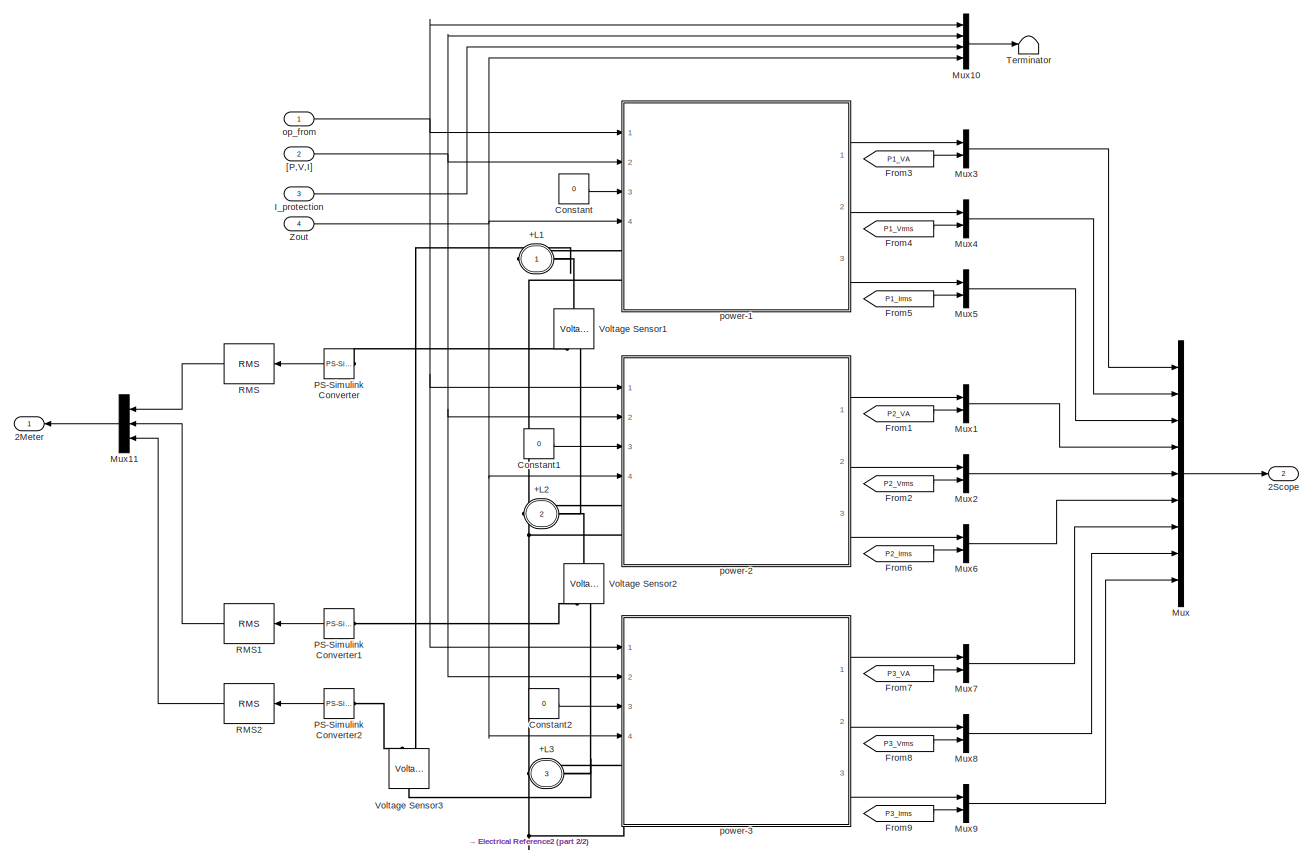
[diagram: Pacific Power 360-AMXT - part 1/2, most of the canvas]
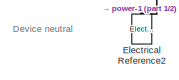
[diagram: Pacific Power 360-AMXT - part 2/2, bottom center region]
BLOCK [SubSystem] Pacific Power 360-AMXT
  Ports = [4, 2, 0, 0, 0, 0, 3]
  RequestExecContextInheritance = off
BLOCK [PMIOPort] Pacific Power 360-AMXT/+L1
  Side = Right
BLOCK [PMIOPort] Pacific Power 360-AMXT/+L2
  Port = 2
  Side = Right
BLOCK [PMIOPort] Pacific Power 360-AMXT/+L3
  Port = 3
  Side = Right
BLOCK [Outport] Pacific Power 360-AMXT/2Meter
  IconDisplay = Port number
BLOCK [Outport] Pacific Power 360-AMXT/2Scope
  IconDisplay = Port number
  Port = 2
BLOCK [Constant] Pacific Power 360-AMXT/Constant
  Value = 0
BLOCK [Constant] Pacific Power 360-AMXT/Constant1
  Value = 0
BLOCK [Constant] Pacific Power 360-AMXT/Constant2
  Value = 0
BLOCK [Reference] Pacific Power 360-AMXT/Electrical Reference2  REF=fl_lib/Electrical/Electrical Elements/Electrical Reference
  Ports = [0, 0, 0, 0, 0, 1]
  SourceBlock = fl_lib/Electrical/Electrical Elements/Electrical Reference
  SourceProductBaseCode = SS
  SourceProductName = Simscape
  SourceType = Electrical Reference
BLOCK [From] Pacific Power 360-AMXT/From1
  GotoTag = P2_VA
  TagVisibility = global
BLOCK [From] Pacific Power 360-AMXT/From2
  GotoTag = P2_Vrms
  TagVisibility = global
BLOCK [From] Pacific Power 360-AMXT/From3
  GotoTag = P1_VA
  TagVisibility = global
BLOCK [From] Pacific Power 360-AMXT/From4
  GotoTag = P1_Vrms
  TagVisibility = global
BLOCK [From] Pacific Power 360-AMXT/From5
  GotoTag = P1_Irms
  TagVisibility = global
BLOCK [From] Pacific Power 360-AMXT/From6
  GotoTag = P2_Irms
  TagVisibility = global
BLOCK [From] Pacific Power 360-AMXT/From7
  GotoTag = P3_VA
  TagVisibility = global
BLOCK [From] Pacific Power 360-AMXT/From8
  GotoTag = P3_Vrms
  TagVisibility = global
BLOCK [From] Pacific Power 360-AMXT/From9
  GotoTag = P3_Irms
  TagVisibility = global
BLOCK [Inport] Pacific Power 360-AMXT/I_protection
  IconDisplay = Port number
  Port = 3
BLOCK [Mux] Pacific Power 360-AMXT/Mux
  DisplayOption = bar
  Inputs = 9
  Ports = [9, 1]
BLOCK [Mux] Pacific Power 360-AMXT/Mux1
  DisplayOption = bar
  Inputs = 2
  Ports = [2, 1]
BLOCK [Mux] Pacific Power 360-AMXT/Mux10
  DisplayOption = bar
  Ports = [4, 1]
BLOCK [Mux] Pacific Power 360-AMXT/Mux11
  DisplayOption = bar
  Inputs = 3
  Ports = [3, 1]
BLOCK [Mux] Pacific Power 360-AMXT/Mux2
  DisplayOption = bar
  Inputs = 2
  Ports = [2, 1]
BLOCK [Mux] Pacific Power 360-AMXT/Mux3
  DisplayOption = bar
  Inputs = 2
  Ports = [2, 1]
BLOCK [Mux] Pacific Power 360-AMXT/Mux4
  DisplayOption = bar
  Inputs = 2
  Ports = [2, 1]
BLOCK [Mux] Pacific Power 360-AMXT/Mux5
  DisplayOption = bar
  Inputs = 2
  Ports = [2, 1]
BLOCK [Mux] Pacific Power 360-AMXT/Mux6
  DisplayOption = bar
  Inputs = 2
  Ports = [2, 1]
BLOCK [Mux] Pacific Power 360-AMXT/Mux7
  DisplayOption = bar
  Inputs = 2
  Ports = [2, 1]
BLOCK [Mux] Pacific Power 360-AMXT/Mux8
  DisplayOption = bar
  Inputs = 2
  Ports = [2, 1]
BLOCK [Mux] Pacific Power 360-AMXT/Mux9
  DisplayOption = bar
  Inputs = 2
  Ports = [2, 1]
BLOCK [Reference] Pacific Power 360-AMXT/PS-Simulink Converter  REF=nesl_utility/PS-Simulink
Converter
  Ports = [0, 1, 0, 0, 0, 1]
  SourceBlock = nesl_utility/PS-Simulink\nConverter
  SourceProductBaseCode = SS
  SourceProductName = Simscape
  SourceType = PS-Simulink\nConverter
BLOCK [Reference] Pacific Power 360-AMXT/PS-Simulink Converter1  REF=nesl_utility/PS-Simulink
Converter
  Ports = [0, 1, 0, 0, 0, 1]
  SourceBlock = nesl_utility/PS-Simulink\nConverter
  SourceProductBaseCode = SS
  SourceProductName = Simscape
  SourceType = PS-Simulink\nConverter
BLOCK [Reference] Pacific Power 360-AMXT/PS-Simulink Converter2  REF=nesl_utility/PS-Simulink
Converter
  Ports = [0, 1, 0, 0, 0, 1]
  SourceBlock = nesl_utility/PS-Simulink\nConverter
  SourceProductBaseCode = SS
  SourceProductName = Simscape
  SourceType = PS-Simulink\nConverter
BLOCK [Reference] Pacific Power 360-AMXT/RMS  REF=powerlib_meascontrol/Measurements/RMS
  Ports = [1, 1]
  SourceBlock = powerlib_meascontrol/Measurements/RMS
  SourceProductBaseCode = PS
  SourceProductName = Simscape Electrical
  SourceType = RMS
BLOCK [Reference] Pacific Power 360-AMXT/RMS1  REF=powerlib_meascontrol/Measurements/RMS
  Ports = [1, 1]
  SourceBlock = powerlib_meascontrol/Measurements/RMS
  SourceProductBaseCode = PS
  SourceProductName = Simscape Electrical
  SourceType = RMS
BLOCK [Reference] Pacific Power 360-AMXT/RMS2  REF=powerlib_meascontrol/Measurements/RMS
  Ports = [1, 1]
  SourceBlock = powerlib_meascontrol/Measurements/RMS
  SourceProductBaseCode = PS
  SourceProductName = Simscape Electrical
  SourceType = RMS
BLOCK [Terminator] Pacific Power 360-AMXT/Terminator
BLOCK [Reference] Pacific Power 360-AMXT/Voltage Sensor1  REF=fl_lib/Electrical/Electrical Sensors/Voltage Sensor
  Ports = [0, 0, 0, 0, 0, 1, 2]
  SourceBlock = fl_lib/Electrical/Electrical Sensors/Voltage Sensor
  SourceProductBaseCode = SS
  SourceProductName = Simscape
  SourceType = Voltage Sensor
BLOCK [Reference] Pacific Power 360-AMXT/Voltage Sensor2  REF=fl_lib/Electrical/Electrical Sensors/Voltage Sensor
  Ports = [0, 0, 0, 0, 0, 1, 2]
  SourceBlock = fl_lib/Electrical/Electrical Sensors/Voltage Sensor
  SourceProductBaseCode = SS
  SourceProductName = Simscape
  SourceType = Voltage Sensor
BLOCK [Reference] Pacific Power 360-AMXT/Voltage Sensor3  REF=fl_lib/Electrical/Electrical Sensors/Voltage Sensor
  Ports = [0, 0, 0, 0, 0, 1, 2]
  SourceBlock = fl_lib/Electrical/Electrical Sensors/Voltage Sensor
  SourceProductBaseCode = SS
  SourceProductName = Simscape
  SourceType = Voltage Sensor
BLOCK [Inport] Pacific Power 360-AMXT/Zout
  IconDisplay = Port number
  Port = 4
BLOCK [Inport] Pacific Power 360-AMXT/[P,V,I]
  IconDisplay = Port number
  Port = 2
BLOCK [Inport] Pacific Power 360-AMXT/op_from
  IconDisplay = Port number
BLOCK [SubSystem] Pacific Power 360-AMXT/power-1
  Ports = [4, 3, 0, 0, 0, 2]
  RequestExecContextInheritance = off
BLOCK [PMIOPort] Pacific Power 360-AMXT/power-1/+
  Side = Left
  Tag = PMCPort
BLOCK [PMIOPort] Pacific Power 360-AMXT/power-1/-
  Port = 2
  Side = Left
  Tag = PMCPort
BLOCK [Constant] Pacific Power 360-AMXT/power-1/Constant
  Value = p_switch
BLOCK [Constant] Pacific Power 360-AMXT/power-1/Constant4
  Value = 0.1
BLOCK [Reference] Pacific Power 360-AMXT/power-1/Current Sensor  REF=fl_lib/Electrical/Electrical Sensors/Current Sensor
  Ports = [0, 0, 0, 0, 0, 1, 2]
  SourceBlock = fl_lib/Electrical/Electrical Sensors/Current Sensor
  SourceProductBaseCode = SS
  SourceProductName = Simscape
  SourceType = Current Sensor
BLOCK [Inport] Pacific Power 360-AMXT/power-1/I_prt
  IconDisplay = Port number
  Port = 3
BLOCK [Outport] Pacific Power 360-AMXT/power-1/Iout
  IconDisplay = Port number
  Port = 3
BLOCK [Logic] Pacific Power 360-AMXT/power-1/Logical Operator1
  AllPortsSameDT = off
  OutDataTypeStr = boolean
  Ports = [2, 1]
BLOCK [Logic] Pacific Power 360-AMXT/power-1/Logical Operator2
  AllPortsSameDT = off
  Operator = NOT
  OutDataTypeStr = boolean
  Ports = [1, 1]
BLOCK [Reference] Pacific Power 360-AMXT/power-1/NHR 9410  REF=fl_lib/Electrical/Electrical Sources/Controlled Voltage
Source
  Ports = [0, 0, 0, 0, 0, 1, 2]
  SourceBlock = fl_lib/Electrical/Electrical Sources/Controlled Voltage\nSource
  SourceProductBaseCode = SS
  SourceProductName = Simscape
  SourceType = Controlled Voltage\nSource
BLOCK [Reference] Pacific Power 360-AMXT/power-1/PS Product  REF=fl_lib/Physical Signals/Functions/PS Product
  Ports = [0, 0, 0, 0, 0, 2, 1]
  SourceBlock = fl_lib/Physical Signals/Functions/PS Product
  SourceProductBaseCode = SS
  SourceProductName = Simscape
  SourceType = PS Product
BLOCK [Reference] Pacific Power 360-AMXT/power-1/PS-Simulink Converter1  REF=nesl_utility/PS-Simulink
Converter
  Ports = [0, 1, 0, 0, 0, 1]
  SourceBlock = nesl_utility/PS-Simulink\nConverter
  SourceProductBaseCode = SS
  SourceProductName = Simscape
  SourceType = PS-Simulink\nConverter
BLOCK [Reference] Pacific Power 360-AMXT/power-1/PS-Simulink Converter2  REF=nesl_utility/PS-Simulink
Converter
  Ports = [0, 1, 0, 0, 0, 1]
  SourceBlock = nesl_utility/PS-Simulink\nConverter
  SourceProductBaseCode = SS
  SourceProductName = Simscape
  SourceType = PS-Simulink\nConverter
BLOCK [Reference] Pacific Power 360-AMXT/power-1/PS-Simulink Converter4  REF=nesl_utility/PS-Simulink
Converter
  Ports = [0, 1, 0, 0, 0, 1]
  SourceBlock = nesl_utility/PS-Simulink\nConverter
  SourceProductBaseCode = SS
  SourceProductName = Simscape
  SourceType = PS-Simulink\nConverter
BLOCK [Outport] Pacific Power 360-AMXT/power-1/Pout
  IconDisplay = Port number
BLOCK [Reference] Pacific Power 360-AMXT/power-1/Series Resistor  REF=fl_lib/Electrical/Electrical Elements/Variable Resistor
  Ports = [0, 0, 0, 0, 0, 2, 1]
  SourceBlock = fl_lib/Electrical/Electrical Elements/Variable Resistor
  SourceProductBaseCode = SS
  SourceProductName = Simscape
  SourceType = Variable Resistor
BLOCK [Reference] Pacific Power 360-AMXT/power-1/Simulink-PS Converter  REF=nesl_utility/Simulink-PS
Converter
  Ports = [1, 0, 0, 0, 0, 0, 1]
  SourceBlock = nesl_utility/Simulink-PS\nConverter
  SourceProductBaseCode = SS
  SourceProductName = Simscape
  SourceType = Simulink-PS\nConverter
BLOCK [Reference] Pacific Power 360-AMXT/power-1/Simulink-PS Converter1  REF=nesl_utility/Simulink-PS
Converter
  Ports = [1, 0, 0, 0, 0, 0, 1]
  SourceBlock = nesl_utility/Simulink-PS\nConverter
  SourceProductBaseCode = SS
  SourceProductName = Simscape
  SourceType = Simulink-PS\nConverter
BLOCK [Switch] Pacific Power 360-AMXT/power-1/Switch
  Criteria = u2 > Threshold
  InputSameDT = off
  SaturateOnIntegerOverflow = off
  ZeroCross = off
BLOCK [Reference] Pacific Power 360-AMXT/power-1/Voltage Sensor1  REF=fl_lib/Electrical/Electrical Sensors/Voltage Sensor
  Ports = [0, 0, 0, 0, 0, 1, 2]
  SourceBlock = fl_lib/Electrical/Electrical Sensors/Voltage Sensor
  SourceProductBaseCode = SS
  SourceProductName = Simscape
  SourceType = Voltage Sensor
BLOCK [Outport] Pacific Power 360-AMXT/power-1/Vout
  IconDisplay = Port number
  Port = 2
BLOCK [Inport] Pacific Power 360-AMXT/power-1/Zout
  IconDisplay = Port number
  Port = 4
BLOCK [Inport] Pacific Power 360-AMXT/power-1/[P,V,I]
  IconDisplay = Port number
  Port = 2
BLOCK [SubSystem] Pacific Power 360-AMXT/power-1/control_power-1
  Ports = [5, 1]
  RequestExecContextInheritance = off
BLOCK [SubSystem] Pacific Power 360-AMXT/power-1/control_power-1/All AC control
  MinAlgLoopOccurrences = on
  Ports = [7, 2, 1]
  RequestExecContextInheritance = off
BLOCK [Clock] Pacific Power 360-AMXT/power-1/control_power-1/All AC control/Clock2
  DisplayTime = on
BLOCK [Demux] Pacific Power 360-AMXT/power-1/control_power-1/All AC control/Demux
  DisplayOption = bar
  Ports = [1, 4]
BLOCK [EnablePort] Pacific Power 360-AMXT/power-1/control_power-1/All AC control/Enable
  Ports = []
BLOCK [Inport] Pacific Power 360-AMXT/power-1/control_power-1/All AC control/F [Angles-1,2,3]
  IconDisplay = Port number
  Port = 7
BLOCK [Inport] Pacific Power 360-AMXT/power-1/control_power-1/All AC control/I_set
  IconDisplay = Port number
  Port = 6
BLOCK [Inport] Pacific Power 360-AMXT/power-1/control_power-1/All AC control/Iout
  IconDisplay = Port number
  Port = 3
BLOCK [SubSystem] Pacific Power 360-AMXT/power-1/control_power-1/All AC control/MATLAB Function
  ErrorFcn = Stateflow.Translate.translate
  PermitHierarchicalResolution = ExplicitOnly
  Ports = [4, 1]
  RequestExecContextInheritance = off
  SFBlockType = MATLAB Function
  TreatAsAtomicUnit = on
BLOCK [Demux] Pacific Power 360-AMXT/power-1/control_power-1/All AC control/MATLAB Function/ Demux 
  Outputs = 1
  Ports = [1, 1]
BLOCK [S-Function] Pacific Power 360-AMXT/power-1/control_power-1/All AC control/MATLAB Function/ SFunction 
  EnableBusSupport = off
  FunctionName = sf_sfun
  PortCounts = [4 2]
  Ports = [4, 2]
  SFcnIsStateOwnerBlock = off
  SFunctionDeploymentMode = off
  Tag = Stateflow S-Function sgtb_tlbx_1_0_demo 1
BLOCK [Terminator] Pacific Power 360-AMXT/power-1/control_power-1/All AC control/MATLAB Function/ Terminator 
BLOCK [Inport] Pacific Power 360-AMXT/power-1/control_power-1/All AC control/MATLAB Function/i
  IconDisplay = Port number
  Port = 3
BLOCK [Inport] Pacific Power 360-AMXT/power-1/control_power-1/All AC control/MATLAB Function/p
  IconDisplay = Port number
BLOCK [Inport] Pacific Power 360-AMXT/power-1/control_power-1/All AC control/MATLAB Function/v
  IconDisplay = Port number
  Port = 2
BLOCK [Inport] Pacific Power 360-AMXT/power-1/control_power-1/All AC control/MATLAB Function/x
  IconDisplay = Port number
  Port = 4
BLOCK [Outport] Pacific Power 360-AMXT/power-1/control_power-1/All AC control/MATLAB Function/y
  IconDisplay = Port number
BLOCK [SubSystem] Pacific Power 360-AMXT/power-1/control_power-1/All AC control/MATLAB Function2
  ErrorFcn = Stateflow.Translate.translate
  PermitHierarchicalResolution = ExplicitOnly
  Ports = [4, 1]
  RequestExecContextInheritance = off
  SFBlockType = MATLAB Function
  TreatAsAtomicUnit = on
BLOCK [Demux] Pacific Power 360-AMXT/power-1/control_power-1/All AC control/MATLAB Function2/ Demux 
  Outputs = 1
  Ports = [1, 1]
BLOCK [S-Function] Pacific Power 360-AMXT/power-1/control_power-1/All AC control/MATLAB Function2/ SFunction 
  EnableBusSupport = off
  FunctionName = sf_sfun
  PortCounts = [4 2]
  Ports = [4, 2]
  SFcnIsStateOwnerBlock = off
  SFunctionDeploymentMode = off
  Tag = Stateflow S-Function sgtb_tlbx_1_0_demo 3
BLOCK [Terminator] Pacific Power 360-AMXT/power-1/control_power-1/All AC control/MATLAB Function2/ Terminator 
BLOCK [Inport] Pacific Power 360-AMXT/power-1/control_power-1/All AC control/MATLAB Function2/F
  IconDisplay = Port number
  Port = 3
BLOCK [Inport] Pacific Power 360-AMXT/power-1/control_power-1/All AC control/MATLAB Function2/Vrms
  IconDisplay = Port number
  Port = 2
BLOCK [Inport] Pacific Power 360-AMXT/power-1/control_power-1/All AC control/MATLAB Function2/t
  IconDisplay = Port number
BLOCK [Inport] Pacific Power 360-AMXT/power-1/control_power-1/All AC control/MATLAB Function2/theta1
  IconDisplay = Port number
  Port = 4
BLOCK [Outport] Pacific Power 360-AMXT/power-1/control_power-1/All AC control/MATLAB Function2/y
  IconDisplay = Port number
BLOCK [Memory] Pacific Power 360-AMXT/power-1/control_power-1/All AC control/Memory
BLOCK [Mux] Pacific Power 360-AMXT/power-1/control_power-1/All AC control/Mux
  DisplayOption = bar
  Inputs = 3
  Ports = [3, 1]
BLOCK [Inport] Pacific Power 360-AMXT/power-1/control_power-1/All AC control/P_set
  IconDisplay = Port number
  Port = 4
BLOCK [Inport] Pacific Power 360-AMXT/power-1/control_power-1/All AC control/Pout
  IconDisplay = Port number
BLOCK [Product] Pacific Power 360-AMXT/power-1/control_power-1/All AC control/Product
  InputSameDT = off
  OutDataTypeStr = Inherit: Inherit via internal rule
  Ports = [2, 1]
  RndMeth = Floor
  SaturateOnIntegerOverflow = off
BLOCK [Reference] Pacific Power 360-AMXT/power-1/control_power-1/All AC control/RMS1  REF=powerlib_meascontrol/Measurements/RMS
  Ports = [1, 1]
  SourceBlock = powerlib_meascontrol/Measurements/RMS
  SourceProductBaseCode = PS
  SourceProductName = Simscape Electrical
  SourceType = RMS
BLOCK [Reference] Pacific Power 360-AMXT/power-1/control_power-1/All AC control/RMS2  REF=powerlib_meascontrol/Measurements/RMS
  Ports = [1, 1]
  SourceBlock = powerlib_meascontrol/Measurements/RMS
  SourceProductBaseCode = PS
  SourceProductName = Simscape Electrical
  SourceType = RMS
BLOCK [Sum] Pacific Power 360-AMXT/power-1/control_power-1/All AC control/Sum
  IconShape = round
  InputSameDT = off
  Inputs = -+
  OutDataTypeStr = Inherit: Inherit via internal rule
  Ports = [2, 1]
  SaturateOnIntegerOverflow = off
BLOCK [Sum] Pacific Power 360-AMXT/power-1/control_power-1/All AC control/Sum1
  IconShape = round
  InputSameDT = off
  Inputs = -+
  OutDataTypeStr = Inherit: Inherit via internal rule
  Ports = [2, 1]
  SaturateOnIntegerOverflow = off
BLOCK [Sum] Pacific Power 360-AMXT/power-1/control_power-1/All AC control/Sum2
  IconShape = round
  InputSameDT = off
  Inputs = -+
  OutDataTypeStr = Inherit: Inherit via internal rule
  Ports = [2, 1]
  SaturateOnIntegerOverflow = off
BLOCK [Terminator] Pacific Power 360-AMXT/power-1/control_power-1/All AC control/Terminator
BLOCK [Terminator] Pacific Power 360-AMXT/power-1/control_power-1/All AC control/Terminator2
BLOCK [Terminator] Pacific Power 360-AMXT/power-1/control_power-1/All AC control/Terminator3
BLOCK [Inport] Pacific Power 360-AMXT/power-1/control_power-1/All AC control/V_set
  IconDisplay = Port number
  Port = 5
BLOCK [Outport] Pacific Power 360-AMXT/power-1/control_power-1/All AC control/Vin
  IconDisplay = Port number
BLOCK [Inport] Pacific Power 360-AMXT/power-1/control_power-1/All AC control/Vout
  IconDisplay = Port number
  Port = 2
BLOCK [Outport] Pacific Power 360-AMXT/power-1/control_power-1/All AC control/rms_out
  IconDisplay = Port number
  Port = 2
BLOCK [Reference] Pacific Power 360-AMXT/power-1/control_power-1/Compare To Constant1  REF=simulink/Logic and Bit
Operations/Compare
To Constant
  Ports = [1, 1]
  SourceBlock = simulink/Logic and Bit\nOperations/Compare\nTo Constant
  SourceProductBaseCode = SL
  SourceProductName = Simulink
  SourceType = Compare To Constant
BLOCK [Reference] Pacific Power 360-AMXT/power-1/control_power-1/Compare To Constant12  REF=simulink/Logic and Bit
Operations/Compare
To Constant
  Ports = [1, 1]
  SourceBlock = simulink/Logic and Bit\nOperations/Compare\nTo Constant
  SourceProductBaseCode = SL
  SourceProductName = Simulink
  SourceType = Compare To Constant
BLOCK [Reference] Pacific Power 360-AMXT/power-1/control_power-1/Compare To Constant13  REF=simulink/Logic and Bit
Operations/Compare
To Constant
  Ports = [1, 1]
  SourceBlock = simulink/Logic and Bit\nOperations/Compare\nTo Constant
  SourceProductBaseCode = SL
  SourceProductName = Simulink
  SourceType = Compare To Constant
BLOCK [Reference] Pacific Power 360-AMXT/power-1/control_power-1/Compare To Constant2  REF=simulink/Logic and Bit
Operations/Compare
To Constant
  Ports = [1, 1]
  SourceBlock = simulink/Logic and Bit\nOperations/Compare\nTo Constant
  SourceProductBaseCode = SL
  SourceProductName = Simulink
  SourceType = Compare To Constant
BLOCK [Reference] Pacific Power 360-AMXT/power-1/control_power-1/Compare To Constant3  REF=simulink/Logic and Bit
Operations/Compare
To Constant
  Ports = [1, 1]
  SourceBlock = simulink/Logic and Bit\nOperations/Compare\nTo Constant
  SourceProductBaseCode = SL
  SourceProductName = Simulink
  SourceType = Compare To Constant
BLOCK [Reference] Pacific Power 360-AMXT/power-1/control_power-1/Compare To Constant4  REF=simulink/Logic and Bit
Operations/Compare
To Constant
  Ports = [1, 1]
  SourceBlock = simulink/Logic and Bit\nOperations/Compare\nTo Constant
  SourceProductBaseCode = SL
  SourceProductName = Simulink
  SourceType = Compare To Constant
BLOCK [Constant] Pacific Power 360-AMXT/power-1/control_power-1/Constant1
  Value = [0,0,0,0]
BLOCK [Demux] Pacific Power 360-AMXT/power-1/control_power-1/Demux
  DisplayOption = bar
  Outputs = 5
  Ports = [1, 5]
BLOCK [Demux] Pacific Power 360-AMXT/power-1/control_power-1/Demux2
  DisplayOption = bar
  Outputs = 3
  Ports = [1, 3]
BLOCK [From] Pacific Power 360-AMXT/power-1/control_power-1/From
  GotoTag = form11
  TagVisibility = global
BLOCK [From] Pacific Power 360-AMXT/power-1/control_power-1/From1
  GotoTag = form12
  TagVisibility = global
BLOCK [From] Pacific Power 360-AMXT/power-1/control_power-1/From2
  GotoTag = form13
  TagVisibility = global
BLOCK [From] Pacific Power 360-AMXT/power-1/control_power-1/From3
  GotoTag = form21
  TagVisibility = global
BLOCK [From] Pacific Power 360-AMXT/power-1/control_power-1/From4
  GotoTag = form22
  TagVisibility = global
BLOCK [From] Pacific Power 360-AMXT/power-1/control_power-1/From5
  GotoTag = form23
  TagVisibility = global
BLOCK [Goto] Pacific Power 360-AMXT/power-1/control_power-1/Goto3
  GotoTag = P1_VA
  TagVisibility = global
BLOCK [Goto] Pacific Power 360-AMXT/power-1/control_power-1/Goto4
  GotoTag = P1_Vrms
  TagVisibility = global
BLOCK [Goto] Pacific Power 360-AMXT/power-1/control_power-1/Goto5
  GotoTag = P1_Irms
  TagVisibility = global
BLOCK [Inport] Pacific Power 360-AMXT/power-1/control_power-1/Iout
  IconDisplay = Port number
  Port = 3
BLOCK [Logic] Pacific Power 360-AMXT/power-1/control_power-1/Logical Operator1
  AllPortsSameDT = off
  Inputs = 6
  Operator = OR
  OutDataTypeStr = boolean
  Ports = [6, 1]
BLOCK [MultiPortSwitch] Pacific Power 360-AMXT/power-1/control_power-1/Multiport Switch1
  DataPortForDefault = Additional data port
  DataPortIndices = {11,12,13,21,22,23}
  DataPortOrder = Specify indices
  DiagnosticForDefault = None
  InputSameDT = off
  Inputs = 13
  Ports = [8, 1]
  SaturateOnIntegerOverflow = off
BLOCK [Inport] Pacific Power 360-AMXT/power-1/control_power-1/Pout
  IconDisplay = Port number
BLOCK [Terminator] Pacific Power 360-AMXT/power-1/control_power-1/Terminator
BLOCK [Terminator] Pacific Power 360-AMXT/power-1/control_power-1/Terminator1
BLOCK [Outport] Pacific Power 360-AMXT/power-1/control_power-1/Vin
  IconDisplay = Port number
BLOCK [Inport] Pacific Power 360-AMXT/power-1/control_power-1/Vout
  IconDisplay = Port number
  Port = 2
BLOCK [Inport] Pacific Power 360-AMXT/power-1/control_power-1/[P,V,I]
  IconDisplay = Port number
  Port = 4
BLOCK [Inport] Pacific Power 360-AMXT/power-1/control_power-1/op_form
  IconDisplay = Port number
  Port = 5
BLOCK [Inport] Pacific Power 360-AMXT/power-1/op_form
  IconDisplay = Port number
BLOCK [SubSystem] Pacific Power 360-AMXT/power-2
  Ports = [4, 3, 0, 0, 0, 2]
  RequestExecContextInheritance = off
BLOCK [PMIOPort] Pacific Power 360-AMXT/power-2/+
  Side = Left
  Tag = PMCPort
BLOCK [PMIOPort] Pacific Power 360-AMXT/power-2/-
  Port = 2
  Side = Left
  Tag = PMCPort
BLOCK [Constant] Pacific Power 360-AMXT/power-2/Constant
  Value = p_switch
BLOCK [Constant] Pacific Power 360-AMXT/power-2/Constant4
  Value = 0.1
BLOCK [Reference] Pacific Power 360-AMXT/power-2/Current Sensor  REF=fl_lib/Electrical/Electrical Sensors/Current Sensor
  Ports = [0, 0, 0, 0, 0, 1, 2]
  SourceBlock = fl_lib/Electrical/Electrical Sensors/Current Sensor
  SourceProductBaseCode = SS
  SourceProductName = Simscape
  SourceType = Current Sensor
BLOCK [Inport] Pacific Power 360-AMXT/power-2/I_prt
  IconDisplay = Port number
  Port = 3
BLOCK [Outport] Pacific Power 360-AMXT/power-2/Iout
  IconDisplay = Port number
  Port = 3
BLOCK [Logic] Pacific Power 360-AMXT/power-2/Logical Operator1
  AllPortsSameDT = off
  OutDataTypeStr = boolean
  Ports = [2, 1]
BLOCK [Logic] Pacific Power 360-AMXT/power-2/Logical Operator2
  AllPortsSameDT = off
  Operator = NOT
  OutDataTypeStr = boolean
  Ports = [1, 1]
BLOCK [Reference] Pacific Power 360-AMXT/power-2/NHR 9410  REF=fl_lib/Electrical/Electrical Sources/Controlled Voltage
Source
  Ports = [0, 0, 0, 0, 0, 1, 2]
  SourceBlock = fl_lib/Electrical/Electrical Sources/Controlled Voltage\nSource
  SourceProductBaseCode = SS
  SourceProductName = Simscape
  SourceType = Controlled Voltage\nSource
BLOCK [Reference] Pacific Power 360-AMXT/power-2/PS Product  REF=fl_lib/Physical Signals/Functions/PS Product
  Ports = [0, 0, 0, 0, 0, 2, 1]
  SourceBlock = fl_lib/Physical Signals/Functions/PS Product
  SourceProductBaseCode = SS
  SourceProductName = Simscape
  SourceType = PS Product
BLOCK [Reference] Pacific Power 360-AMXT/power-2/PS-Simulink Converter1  REF=nesl_utility/PS-Simulink
Converter
  Ports = [0, 1, 0, 0, 0, 1]
  SourceBlock = nesl_utility/PS-Simulink\nConverter
  SourceProductBaseCode = SS
  SourceProductName = Simscape
  SourceType = PS-Simulink\nConverter
BLOCK [Reference] Pacific Power 360-AMXT/power-2/PS-Simulink Converter2  REF=nesl_utility/PS-Simulink
Converter
  Ports = [0, 1, 0, 0, 0, 1]
  SourceBlock = nesl_utility/PS-Simulink\nConverter
  SourceProductBaseCode = SS
  SourceProductName = Simscape
  SourceType = PS-Simulink\nConverter
BLOCK [Reference] Pacific Power 360-AMXT/power-2/PS-Simulink Converter4  REF=nesl_utility/PS-Simulink
Converter
  Ports = [0, 1, 0, 0, 0, 1]
  SourceBlock = nesl_utility/PS-Simulink\nConverter
  SourceProductBaseCode = SS
  SourceProductName = Simscape
  SourceType = PS-Simulink\nConverter
BLOCK [Outport] Pacific Power 360-AMXT/power-2/Pout
  IconDisplay = Port number
BLOCK [Reference] Pacific Power 360-AMXT/power-2/Series Resistor  REF=fl_lib/Electrical/Electrical Elements/Variable Resistor
  Ports = [0, 0, 0, 0, 0, 2, 1]
  SourceBlock = fl_lib/Electrical/Electrical Elements/Variable Resistor
  SourceProductBaseCode = SS
  SourceProductName = Simscape
  SourceType = Variable Resistor
BLOCK [Reference] Pacific Power 360-AMXT/power-2/Simulink-PS Converter  REF=nesl_utility/Simulink-PS
Converter
  Ports = [1, 0, 0, 0, 0, 0, 1]
  SourceBlock = nesl_utility/Simulink-PS\nConverter
  SourceProductBaseCode = SS
  SourceProductName = Simscape
  SourceType = Simulink-PS\nConverter
BLOCK [Reference] Pacific Power 360-AMXT/power-2/Simulink-PS Converter1  REF=nesl_utility/Simulink-PS
Converter
  Ports = [1, 0, 0, 0, 0, 0, 1]
  SourceBlock = nesl_utility/Simulink-PS\nConverter
  SourceProductBaseCode = SS
  SourceProductName = Simscape
  SourceType = Simulink-PS\nConverter
BLOCK [Switch] Pacific Power 360-AMXT/power-2/Switch
  Criteria = u2 > Threshold
  InputSameDT = off
  SaturateOnIntegerOverflow = off
  ZeroCross = off
BLOCK [Reference] Pacific Power 360-AMXT/power-2/Voltage Sensor1  REF=fl_lib/Electrical/Electrical Sensors/Voltage Sensor
  Ports = [0, 0, 0, 0, 0, 1, 2]
  SourceBlock = fl_lib/Electrical/Electrical Sensors/Voltage Sensor
  SourceProductBaseCode = SS
  SourceProductName = Simscape
  SourceType = Voltage Sensor
BLOCK [Outport] Pacific Power 360-AMXT/power-2/Vout
  IconDisplay = Port number
  Port = 2
BLOCK [Inport] Pacific Power 360-AMXT/power-2/Zout
  IconDisplay = Port number
  Port = 4
BLOCK [Inport] Pacific Power 360-AMXT/power-2/[P,V,I]
  IconDisplay = Port number
  Port = 2
BLOCK [SubSystem] Pacific Power 360-AMXT/power-2/control_power-2
  Ports = [5, 1]
  RequestExecContextInheritance = off
BLOCK [SubSystem] Pacific Power 360-AMXT/power-2/control_power-2/All AC control
  MinAlgLoopOccurrences = on
  Ports = [7, 2, 1]
  RequestExecContextInheritance = off
BLOCK [Clock] Pacific Power 360-AMXT/power-2/control_power-2/All AC control/Clock2
  DisplayTime = on
BLOCK [Demux] Pacific Power 360-AMXT/power-2/control_power-2/All AC control/Demux
  DisplayOption = bar
  Ports = [1, 4]
BLOCK [EnablePort] Pacific Power 360-AMXT/power-2/control_power-2/All AC control/Enable
  Ports = []
BLOCK [Inport] Pacific Power 360-AMXT/power-2/control_power-2/All AC control/F [Angles-1,2,3]
  IconDisplay = Port number
  Port = 7
BLOCK [Inport] Pacific Power 360-AMXT/power-2/control_power-2/All AC control/I_set
  IconDisplay = Port number
  Port = 6
BLOCK [Inport] Pacific Power 360-AMXT/power-2/control_power-2/All AC control/Iout
  IconDisplay = Port number
  Port = 3
BLOCK [SubSystem] Pacific Power 360-AMXT/power-2/control_power-2/All AC control/MATLAB Function
  ErrorFcn = Stateflow.Translate.translate
  PermitHierarchicalResolution = ExplicitOnly
  Ports = [4, 1]
  RequestExecContextInheritance = off
  SFBlockType = MATLAB Function
  TreatAsAtomicUnit = on
BLOCK [Demux] Pacific Power 360-AMXT/power-2/control_power-2/All AC control/MATLAB Function/ Demux 
  Outputs = 1
  Ports = [1, 1]
BLOCK [S-Function] Pacific Power 360-AMXT/power-2/control_power-2/All AC control/MATLAB Function/ SFunction 
  EnableBusSupport = off
  FunctionName = sf_sfun
  PortCounts = [4 2]
  Ports = [4, 2]
  SFcnIsStateOwnerBlock = off
  SFunctionDeploymentMode = off
  Tag = Stateflow S-Function sgtb_tlbx_1_0_demo 2
BLOCK [Terminator] Pacific Power 360-AMXT/power-2/control_power-2/All AC control/MATLAB Function/ Terminator 
BLOCK [Inport] Pacific Power 360-AMXT/power-2/control_power-2/All AC control/MATLAB Function/i
  IconDisplay = Port number
  Port = 3
BLOCK [Inport] Pacific Power 360-AMXT/power-2/control_power-2/All AC control/MATLAB Function/p
  IconDisplay = Port number
BLOCK [Inport] Pacific Power 360-AMXT/power-2/control_power-2/All AC control/MATLAB Function/v
  IconDisplay = Port number
  Port = 2
BLOCK [Inport] Pacific Power 360-AMXT/power-2/control_power-2/All AC control/MATLAB Function/x
  IconDisplay = Port number
  Port = 4
BLOCK [Outport] Pacific Power 360-AMXT/power-2/control_power-2/All AC control/MATLAB Function/y
  IconDisplay = Port number
BLOCK [SubSystem] Pacific Power 360-AMXT/power-2/control_power-2/All AC control/MATLAB Function2
  ErrorFcn = Stateflow.Translate.translate
  PermitHierarchicalResolution = ExplicitOnly
  Ports = [4, 1]
  RequestExecContextInheritance = off
  SFBlockType = MATLAB Function
  TreatAsAtomicUnit = on
BLOCK [Demux] Pacific Power 360-AMXT/power-2/control_power-2/All AC control/MATLAB Function2/ Demux 
  Outputs = 1
  Ports = [1, 1]
BLOCK [S-Function] Pacific Power 360-AMXT/power-2/control_power-2/All AC control/MATLAB Function2/ SFunction 
  EnableBusSupport = off
  FunctionName = sf_sfun
  PortCounts = [4 2]
  Ports = [4, 2]
  SFcnIsStateOwnerBlock = off
  SFunctionDeploymentMode = off
  Tag = Stateflow S-Function sgtb_tlbx_1_0_demo 4
BLOCK [Terminator] Pacific Power 360-AMXT/power-2/control_power-2/All AC control/MATLAB Function2/ Terminator 
BLOCK [Inport] Pacific Power 360-AMXT/power-2/control_power-2/All AC control/MATLAB Function2/F
  IconDisplay = Port number
  Port = 3
BLOCK [Inport] Pacific Power 360-AMXT/power-2/control_power-2/All AC control/MATLAB Function2/Vrms
  IconDisplay = Port number
  Port = 2
BLOCK [Inport] Pacific Power 360-AMXT/power-2/control_power-2/All AC control/MATLAB Function2/t
  IconDisplay = Port number
BLOCK [Inport] Pacific Power 360-AMXT/power-2/control_power-2/All AC control/MATLAB Function2/theta1
  IconDisplay = Port number
  Port = 4
BLOCK [Outport] Pacific Power 360-AMXT/power-2/control_power-2/All AC control/MATLAB Function2/y
  IconDisplay = Port number
BLOCK [Memory] Pacific Power 360-AMXT/power-2/control_power-2/All AC control/Memory
BLOCK [Mux] Pacific Power 360-AMXT/power-2/control_power-2/All AC control/Mux
  DisplayOption = bar
  Inputs = 3
  Ports = [3, 1]
BLOCK [Inport] Pacific Power 360-AMXT/power-2/control_power-2/All AC control/P_set
  IconDisplay = Port number
  Port = 4
BLOCK [Inport] Pacific Power 360-AMXT/power-2/control_power-2/All AC control/Pout
  IconDisplay = Port number
BLOCK [Product] Pacific Power 360-AMXT/power-2/control_power-2/All AC control/Product
  InputSameDT = off
  OutDataTypeStr = Inherit: Inherit via internal rule
  Ports = [2, 1]
  RndMeth = Floor
  SaturateOnIntegerOverflow = off
BLOCK [Reference] Pacific Power 360-AMXT/power-2/control_power-2/All AC control/RMS1  REF=powerlib_meascontrol/Measurements/RMS
  Ports = [1, 1]
  SourceBlock = powerlib_meascontrol/Measurements/RMS
  SourceProductBaseCode = PS
  SourceProductName = Simscape Electrical
  SourceType = RMS
BLOCK [Reference] Pacific Power 360-AMXT/power-2/control_power-2/All AC control/RMS2  REF=powerlib_meascontrol/Measurements/RMS
  Ports = [1, 1]
  SourceBlock = powerlib_meascontrol/Measurements/RMS
  SourceProductBaseCode = PS
  SourceProductName = Simscape Electrical
  SourceType = RMS
BLOCK [Sum] Pacific Power 360-AMXT/power-2/control_power-2/All AC control/Sum
  IconShape = round
  InputSameDT = off
  Inputs = -+
  OutDataTypeStr = Inherit: Inherit via internal rule
  Ports = [2, 1]
  SaturateOnIntegerOverflow = off
BLOCK [Sum] Pacific Power 360-AMXT/power-2/control_power-2/All AC control/Sum1
  IconShape = round
  InputSameDT = off
  Inputs = -+
  OutDataTypeStr = Inherit: Inherit via internal rule
  Ports = [2, 1]
  SaturateOnIntegerOverflow = off
BLOCK [Sum] Pacific Power 360-AMXT/power-2/control_power-2/All AC control/Sum2
  IconShape = round
  InputSameDT = off
  Inputs = -+
  OutDataTypeStr = Inherit: Inherit via internal rule
  Ports = [2, 1]
  SaturateOnIntegerOverflow = off
BLOCK [Terminator] Pacific Power 360-AMXT/power-2/control_power-2/All AC control/Terminator
BLOCK [Terminator] Pacific Power 360-AMXT/power-2/control_power-2/All AC control/Terminator2
BLOCK [Terminator] Pacific Power 360-AMXT/power-2/control_power-2/All AC control/Terminator3
BLOCK [Inport] Pacific Power 360-AMXT/power-2/control_power-2/All AC control/V_set
  IconDisplay = Port number
  Port = 5
BLOCK [Outport] Pacific Power 360-AMXT/power-2/control_power-2/All AC control/Vin
  IconDisplay = Port number
BLOCK [Inport] Pacific Power 360-AMXT/power-2/control_power-2/All AC control/Vout
  IconDisplay = Port number
  Port = 2
BLOCK [Outport] Pacific Power 360-AMXT/power-2/control_power-2/All AC control/rms_out
  IconDisplay = Port number
  Port = 2
BLOCK [Reference] Pacific Power 360-AMXT/power-2/control_power-2/Compare To Constant12  REF=simulink/Logic and Bit
Operations/Compare
To Constant
  Ports = [1, 1]
  SourceBlock = simulink/Logic and Bit\nOperations/Compare\nTo Constant
  SourceProductBaseCode = SL
  SourceProductName = Simulink
  SourceType = Compare To Constant
BLOCK [Reference] Pacific Power 360-AMXT/power-2/control_power-2/Compare To Constant2  REF=simulink/Logic and Bit
Operations/Compare
To Constant
  Ports = [1, 1]
  SourceBlock = simulink/Logic and Bit\nOperations/Compare\nTo Constant
  SourceProductBaseCode = SL
  SourceProductName = Simulink
  SourceType = Compare To Constant
BLOCK [Reference] Pacific Power 360-AMXT/power-2/control_power-2/Compare To Constant3  REF=simulink/Logic and Bit
Operations/Compare
To Constant
  Ports = [1, 1]
  SourceBlock = simulink/Logic and Bit\nOperations/Compare\nTo Constant
  SourceProductBaseCode = SL
  SourceProductName = Simulink
  SourceType = Compare To Constant
BLOCK [Reference] Pacific Power 360-AMXT/power-2/control_power-2/Compare To Constant4  REF=simulink/Logic and Bit
Operations/Compare
To Constant
  Ports = [1, 1]
  SourceBlock = simulink/Logic and Bit\nOperations/Compare\nTo Constant
  SourceProductBaseCode = SL
  SourceProductName = Simulink
  SourceType = Compare To Constant
BLOCK [Constant] Pacific Power 360-AMXT/power-2/control_power-2/Constant1
  Value = [0,0,0,0]
BLOCK [Demux] Pacific Power 360-AMXT/power-2/control_power-2/Demux
  DisplayOption = bar
  Outputs = 5
  Ports = [1, 5]
BLOCK [Demux] Pacific Power 360-AMXT/power-2/control_power-2/Demux2
  DisplayOption = bar
  Outputs = 3
  Ports = [1, 3]
BLOCK [From] Pacific Power 360-AMXT/power-2/control_power-2/From1
  GotoTag = form12
  TagVisibility = global
BLOCK [From] Pacific Power 360-AMXT/power-2/control_power-2/From2
  GotoTag = form13
  TagVisibility = global
BLOCK [From] Pacific Power 360-AMXT/power-2/control_power-2/From4
  GotoTag = form22
  TagVisibility = global
BLOCK [From] Pacific Power 360-AMXT/power-2/control_power-2/From5
  GotoTag = form23
  TagVisibility = global
BLOCK [Goto] Pacific Power 360-AMXT/power-2/control_power-2/Goto3
  GotoTag = P2_VA
  TagVisibility = global
BLOCK [Goto] Pacific Power 360-AMXT/power-2/control_power-2/Goto4
  GotoTag = P2_Vrms
  TagVisibility = global
BLOCK [Goto] Pacific Power 360-AMXT/power-2/control_power-2/Goto5
  GotoTag = P2_Irms
  TagVisibility = global
BLOCK [Inport] Pacific Power 360-AMXT/power-2/control_power-2/Iout
  IconDisplay = Port number
  Port = 3
BLOCK [Logic] Pacific Power 360-AMXT/power-2/control_power-2/Logical Operator1
  AllPortsSameDT = off
  Inputs = 4
  Operator = OR
  OutDataTypeStr = boolean
  Ports = [4, 1]
BLOCK [MultiPortSwitch] Pacific Power 360-AMXT/power-2/control_power-2/Multiport Switch1
  DataPortForDefault = Additional data port
  DataPortIndices = {12,13,22,23}
  DataPortOrder = Specify indices
  DiagnosticForDefault = None
  InputSameDT = off
  Inputs = 13
  Ports = [6, 1]
  SaturateOnIntegerOverflow = off
BLOCK [Inport] Pacific Power 360-AMXT/power-2/control_power-2/Pout
  IconDisplay = Port number
BLOCK [Terminator] Pacific Power 360-AMXT/power-2/control_power-2/Terminator
BLOCK [Terminator] Pacific Power 360-AMXT/power-2/control_power-2/Terminator1
BLOCK [Outport] Pacific Power 360-AMXT/power-2/control_power-2/Vin
  IconDisplay = Port number
BLOCK [Inport] Pacific Power 360-AMXT/power-2/control_power-2/Vout
  IconDisplay = Port number
  Port = 2
BLOCK [Inport] Pacific Power 360-AMXT/power-2/control_power-2/[P,V,I]
  IconDisplay = Port number
  Port = 4
BLOCK [Inport] Pacific Power 360-AMXT/power-2/control_power-2/op_form
  IconDisplay = Port number
  Port = 5
BLOCK [Inport] Pacific Power 360-AMXT/power-2/op_form
  IconDisplay = Port number
BLOCK [SubSystem] Pacific Power 360-AMXT/power-3
  Ports = [4, 3, 0, 0, 0, 2]
  RequestExecContextInheritance = off
BLOCK [PMIOPort] Pacific Power 360-AMXT/power-3/+
  Side = Left
  Tag = PMCPort
BLOCK [PMIOPort] Pacific Power 360-AMXT/power-3/-
  Port = 2
  Side = Left
  Tag = PMCPort
BLOCK [Constant] Pacific Power 360-AMXT/power-3/Constant
  Value = p_switch
BLOCK [Constant] Pacific Power 360-AMXT/power-3/Constant4
  Value = 0.1
BLOCK [Reference] Pacific Power 360-AMXT/power-3/Current Sensor  REF=fl_lib/Electrical/Electrical Sensors/Current Sensor
  Ports = [0, 0, 0, 0, 0, 1, 2]
  SourceBlock = fl_lib/Electrical/Electrical Sensors/Current Sensor
  SourceProductBaseCode = SS
  SourceProductName = Simscape
  SourceType = Current Sensor
BLOCK [Inport] Pacific Power 360-AMXT/power-3/I_prt
  IconDisplay = Port number
  Port = 3
BLOCK [Outport] Pacific Power 360-AMXT/power-3/Iout
  IconDisplay = Port number
  Port = 3
BLOCK [Logic] Pacific Power 360-AMXT/power-3/Logical Operator1
  AllPortsSameDT = off
  OutDataTypeStr = boolean
  Ports = [2, 1]
BLOCK [Logic] Pacific Power 360-AMXT/power-3/Logical Operator2
  AllPortsSameDT = off
  Operator = NOT
  OutDataTypeStr = boolean
  Ports = [1, 1]
BLOCK [Reference] Pacific Power 360-AMXT/power-3/NHR 9410  REF=fl_lib/Electrical/Electrical Sources/Controlled Voltage
Source
  Ports = [0, 0, 0, 0, 0, 1, 2]
  SourceBlock = fl_lib/Electrical/Electrical Sources/Controlled Voltage\nSource
  SourceProductBaseCode = SS
  SourceProductName = Simscape
  SourceType = Controlled Voltage\nSource
BLOCK [Reference] Pacific Power 360-AMXT/power-3/PS Product  REF=fl_lib/Physical Signals/Functions/PS Product
  Ports = [0, 0, 0, 0, 0, 2, 1]
  SourceBlock = fl_lib/Physical Signals/Functions/PS Product
  SourceProductBaseCode = SS
  SourceProductName = Simscape
  SourceType = PS Product
BLOCK [Reference] Pacific Power 360-AMXT/power-3/PS-Simulink Converter1  REF=nesl_utility/PS-Simulink
Converter
  Ports = [0, 1, 0, 0, 0, 1]
  SourceBlock = nesl_utility/PS-Simulink\nConverter
  SourceProductBaseCode = SS
  SourceProductName = Simscape
  SourceType = PS-Simulink\nConverter
BLOCK [Reference] Pacific Power 360-AMXT/power-3/PS-Simulink Converter2  REF=nesl_utility/PS-Simulink
Converter
  Ports = [0, 1, 0, 0, 0, 1]
  SourceBlock = nesl_utility/PS-Simulink\nConverter
  SourceProductBaseCode = SS
  SourceProductName = Simscape
  SourceType = PS-Simulink\nConverter
BLOCK [Reference] Pacific Power 360-AMXT/power-3/PS-Simulink Converter4  REF=nesl_utility/PS-Simulink
Converter
  Ports = [0, 1, 0, 0, 0, 1]
  SourceBlock = nesl_utility/PS-Simulink\nConverter
  SourceProductBaseCode = SS
  SourceProductName = Simscape
  SourceType = PS-Simulink\nConverter
BLOCK [Outport] Pacific Power 360-AMXT/power-3/Pout
  IconDisplay = Port number
BLOCK [Reference] Pacific Power 360-AMXT/power-3/Series Resistor  REF=fl_lib/Electrical/Electrical Elements/Variable Resistor
  Ports = [0, 0, 0, 0, 0, 2, 1]
  SourceBlock = fl_lib/Electrical/Electrical Elements/Variable Resistor
  SourceProductBaseCode = SS
  SourceProductName = Simscape
  SourceType = Variable Resistor
BLOCK [Reference] Pacific Power 360-AMXT/power-3/Simulink-PS Converter  REF=nesl_utility/Simulink-PS
Converter
  Ports = [1, 0, 0, 0, 0, 0, 1]
  SourceBlock = nesl_utility/Simulink-PS\nConverter
  SourceProductBaseCode = SS
  SourceProductName = Simscape
  SourceType = Simulink-PS\nConverter
BLOCK [Reference] Pacific Power 360-AMXT/power-3/Simulink-PS Converter1  REF=nesl_utility/Simulink-PS
Converter
  Ports = [1, 0, 0, 0, 0, 0, 1]
  SourceBlock = nesl_utility/Simulink-PS\nConverter
  SourceProductBaseCode = SS
  SourceProductName = Simscape
  SourceType = Simulink-PS\nConverter
BLOCK [Switch] Pacific Power 360-AMXT/power-3/Switch
  Criteria = u2 > Threshold
  InputSameDT = off
  SaturateOnIntegerOverflow = off
  ZeroCross = off
BLOCK [Reference] Pacific Power 360-AMXT/power-3/Voltage Sensor1  REF=fl_lib/Electrical/Electrical Sensors/Voltage Sensor
  Ports = [0, 0, 0, 0, 0, 1, 2]
  SourceBlock = fl_lib/Electrical/Electrical Sensors/Voltage Sensor
  SourceProductBaseCode = SS
  SourceProductName = Simscape
  SourceType = Voltage Sensor
BLOCK [Outport] Pacific Power 360-AMXT/power-3/Vout
  IconDisplay = Port number
  Port = 2
BLOCK [Inport] Pacific Power 360-AMXT/power-3/Zout
  IconDisplay = Port number
  Port = 4
BLOCK [Inport] Pacific Power 360-AMXT/power-3/[P,V,I]
  IconDisplay = Port number
  Port = 2
BLOCK [SubSystem] Pacific Power 360-AMXT/power-3/control_power-3
  Ports = [5, 1]
  RequestExecContextInheritance = off
BLOCK [Reference] Pacific Power 360-AMXT/power-3/control_power-3/Compare To Constant2  REF=simulink/Logic and Bit
Operations/Compare
To Constant
  Ports = [1, 1]
  SourceBlock = simulink/Logic and Bit\nOperations/Compare\nTo Constant
  SourceProductBaseCode = SL
  SourceProductName = Simulink
  SourceType = Compare To Constant
BLOCK [Reference] Pacific Power 360-AMXT/power-3/control_power-3/Compare To Constant3  REF=simulink/Logic and Bit
Operations/Compare
To Constant
  Ports = [1, 1]
  SourceBlock = simulink/Logic and Bit\nOperations/Compare\nTo Constant
  SourceProductBaseCode = SL
  SourceProductName = Simulink
  SourceType = Compare To Constant
BLOCK [Constant] Pacific Power 360-AMXT/power-3/control_power-3/Constant1
  Value = [0,0,0,0]
BLOCK [Demux] Pacific Power 360-AMXT/power-3/control_power-3/Demux
  DisplayOption = bar
  Outputs = 5
  Ports = [1, 5]
BLOCK [Demux] Pacific Power 360-AMXT/power-3/control_power-3/Demux2
  DisplayOption = bar
  Outputs = 3
  Ports = [1, 3]
BLOCK [From] Pacific Power 360-AMXT/power-3/control_power-3/From2
  GotoTag = form13
  TagVisibility = global
BLOCK [From] Pacific Power 360-AMXT/power-3/control_power-3/From5
  GotoTag = form23
  TagVisibility = global
BLOCK [Goto] Pacific Power 360-AMXT/power-3/control_power-3/Goto3
  GotoTag = P3_VA
  TagVisibility = global
BLOCK [Goto] Pacific Power 360-AMXT/power-3/control_power-3/Goto4
  GotoTag = P3_Vrms
  TagVisibility = global
BLOCK [Goto] Pacific Power 360-AMXT/power-3/control_power-3/Goto5
  GotoTag = P3_Irms
  TagVisibility = global
BLOCK [Inport] Pacific Power 360-AMXT/power-3/control_power-3/Iout
  IconDisplay = Port number
  Port = 3
BLOCK [Logic] Pacific Power 360-AMXT/power-3/control_power-3/Logical Operator1
  AllPortsSameDT = off
  Operator = OR
  OutDataTypeStr = boolean
  Ports = [2, 1]
BLOCK [MultiPortSwitch] Pacific Power 360-AMXT/power-3/control_power-3/Multiport Switch1
  DataPortForDefault = Additional data port
  DataPortIndices = {13,23}
  DataPortOrder = Specify indices
  DiagnosticForDefault = None
  InputSameDT = off
  Inputs = 13
  Ports = [4, 1]
  SaturateOnIntegerOverflow = off
BLOCK [Inport] Pacific Power 360-AMXT/power-3/control_power-3/Pout
  IconDisplay = Port number
BLOCK [Terminator] Pacific Power 360-AMXT/power-3/control_power-3/Terminator
BLOCK [Terminator] Pacific Power 360-AMXT/power-3/control_power-3/Terminator1
BLOCK [Outport] Pacific Power 360-AMXT/power-3/control_power-3/Vin
  IconDisplay = Port number
BLOCK [Inport] Pacific Power 360-AMXT/power-3/control_power-3/Vout
  IconDisplay = Port number
  Port = 2
BLOCK [Inport] Pacific Power 360-AMXT/power-3/control_power-3/[P,V,I]
  IconDisplay = Port number
  Port = 4
BLOCK [SubSystem] Pacific Power 360-AMXT/power-3/control_power-3/conrol
  MinAlgLoopOccurrences = on
  Ports = [7, 2, 1]
  RequestExecContextInheritance = off
BLOCK [Clock] Pacific Power 360-AMXT/power-3/control_power-3/conrol/Clock2
  DisplayTime = on
BLOCK [Demux] Pacific Power 360-AMXT/power-3/control_power-3/conrol/Demux
  DisplayOption = bar
  Ports = [1, 4]
BLOCK [EnablePort] Pacific Power 360-AMXT/power-3/control_power-3/conrol/Enable
  Ports = []
BLOCK [Inport] Pacific Power 360-AMXT/power-3/control_power-3/conrol/F [Angles-1,2,3]
  IconDisplay = Port number
  Port = 7
BLOCK [Inport] Pacific Power 360-AMXT/power-3/control_power-3/conrol/I_set
  IconDisplay = Port number
  Port = 6
BLOCK [Inport] Pacific Power 360-AMXT/power-3/control_power-3/conrol/Iout
  IconDisplay = Port number
  Port = 3
BLOCK [SubSystem] Pacific Power 360-AMXT/power-3/control_power-3/conrol/MATLAB Function
  ErrorFcn = Stateflow.Translate.translate
  PermitHierarchicalResolution = ExplicitOnly
  Ports = [4, 1]
  RequestExecContextInheritance = off
  SFBlockType = MATLAB Function
  TreatAsAtomicUnit = on
BLOCK [Demux] Pacific Power 360-AMXT/power-3/control_power-3/conrol/MATLAB Function/ Demux 
  Outputs = 1
  Ports = [1, 1]
BLOCK [S-Function] Pacific Power 360-AMXT/power-3/control_power-3/conrol/MATLAB Function/ SFunction 
  EnableBusSupport = off
  FunctionName = sf_sfun
  PortCounts = [4 2]
  Ports = [4, 2]
  SFcnIsStateOwnerBlock = off
  SFunctionDeploymentMode = off
  Tag = Stateflow S-Function sgtb_tlbx_1_0_demo 5
BLOCK [Terminator] Pacific Power 360-AMXT/power-3/control_power-3/conrol/MATLAB Function/ Terminator 
BLOCK [Inport] Pacific Power 360-AMXT/power-3/control_power-3/conrol/MATLAB Function/i
  IconDisplay = Port number
  Port = 3
BLOCK [Inport] Pacific Power 360-AMXT/power-3/control_power-3/conrol/MATLAB Function/p
  IconDisplay = Port number
BLOCK [Inport] Pacific Power 360-AMXT/power-3/control_power-3/conrol/MATLAB Function/v
  IconDisplay = Port number
  Port = 2
BLOCK [Inport] Pacific Power 360-AMXT/power-3/control_power-3/conrol/MATLAB Function/x
  IconDisplay = Port number
  Port = 4
BLOCK [Outport] Pacific Power 360-AMXT/power-3/control_power-3/conrol/MATLAB Function/y
  IconDisplay = Port number
BLOCK [SubSystem] Pacific Power 360-AMXT/power-3/control_power-3/conrol/MATLAB Function2
  ErrorFcn = Stateflow.Translate.translate
  PermitHierarchicalResolution = ExplicitOnly
  Ports = [4, 1]
  RequestExecContextInheritance = off
  SFBlockType = MATLAB Function
  TreatAsAtomicUnit = on
BLOCK [Demux] Pacific Power 360-AMXT/power-3/control_power-3/conrol/MATLAB Function2/ Demux 
  Outputs = 1
  Ports = [1, 1]
BLOCK [S-Function] Pacific Power 360-AMXT/power-3/control_power-3/conrol/MATLAB Function2/ SFunction 
  EnableBusSupport = off
  FunctionName = sf_sfun
  PortCounts = [4 2]
  Ports = [4, 2]
  SFcnIsStateOwnerBlock = off
  SFunctionDeploymentMode = off
  Tag = Stateflow S-Function sgtb_tlbx_1_0_demo 6
BLOCK [Terminator] Pacific Power 360-AMXT/power-3/control_power-3/conrol/MATLAB Function2/ Terminator 
BLOCK [Inport] Pacific Power 360-AMXT/power-3/control_power-3/conrol/MATLAB Function2/F
  IconDisplay = Port number
  Port = 3
BLOCK [Inport] Pacific Power 360-AMXT/power-3/control_power-3/conrol/MATLAB Function2/Vrms
  IconDisplay = Port number
  Port = 2
BLOCK [Inport] Pacific Power 360-AMXT/power-3/control_power-3/conrol/MATLAB Function2/t
  IconDisplay = Port number
BLOCK [Inport] Pacific Power 360-AMXT/power-3/control_power-3/conrol/MATLAB Function2/theta1
  IconDisplay = Port number
  Port = 4
BLOCK [Outport] Pacific Power 360-AMXT/power-3/control_power-3/conrol/MATLAB Function2/y
  IconDisplay = Port number
BLOCK [Memory] Pacific Power 360-AMXT/power-3/control_power-3/conrol/Memory
BLOCK [Mux] Pacific Power 360-AMXT/power-3/control_power-3/conrol/Mux
  DisplayOption = bar
  Inputs = 3
  Ports = [3, 1]
BLOCK [Inport] Pacific Power 360-AMXT/power-3/control_power-3/conrol/P_set
  IconDisplay = Port number
  Port = 4
BLOCK [Inport] Pacific Power 360-AMXT/power-3/control_power-3/conrol/Pout
  IconDisplay = Port number
BLOCK [Product] Pacific Power 360-AMXT/power-3/control_power-3/conrol/Product
  InputSameDT = off
  OutDataTypeStr = Inherit: Inherit via internal rule
  Ports = [2, 1]
  RndMeth = Floor
  SaturateOnIntegerOverflow = off
BLOCK [Reference] Pacific Power 360-AMXT/power-3/control_power-3/conrol/RMS1  REF=powerlib_meascontrol/Measurements/RMS
  Ports = [1, 1]
  SourceBlock = powerlib_meascontrol/Measurements/RMS
  SourceProductBaseCode = PS
  SourceProductName = Simscape Electrical
  SourceType = RMS
BLOCK [Reference] Pacific Power 360-AMXT/power-3/control_power-3/conrol/RMS2  REF=powerlib_meascontrol/Measurements/RMS
  Ports = [1, 1]
  SourceBlock = powerlib_meascontrol/Measurements/RMS
  SourceProductBaseCode = PS
  SourceProductName = Simscape Electrical
  SourceType = RMS
BLOCK [Sum] Pacific Power 360-AMXT/power-3/control_power-3/conrol/Sum
  IconShape = round
  InputSameDT = off
  Inputs = -+
  OutDataTypeStr = Inherit: Inherit via internal rule
  Ports = [2, 1]
  SaturateOnIntegerOverflow = off
BLOCK [Sum] Pacific Power 360-AMXT/power-3/control_power-3/conrol/Sum1
  IconShape = round
  InputSameDT = off
  Inputs = -+
  OutDataTypeStr = Inherit: Inherit via internal rule
  Ports = [2, 1]
  SaturateOnIntegerOverflow = off
BLOCK [Sum] Pacific Power 360-AMXT/power-3/control_power-3/conrol/Sum2
  IconShape = round
  InputSameDT = off
  Inputs = -+
  OutDataTypeStr = Inherit: Inherit via internal rule
  Ports = [2, 1]
  SaturateOnIntegerOverflow = off
BLOCK [Terminator] Pacific Power 360-AMXT/power-3/control_power-3/conrol/Terminator
BLOCK [Terminator] Pacific Power 360-AMXT/power-3/control_power-3/conrol/Terminator2
BLOCK [Terminator] Pacific Power 360-AMXT/power-3/control_power-3/conrol/Terminator3
BLOCK [Inport] Pacific Power 360-AMXT/power-3/control_power-3/conrol/V_set
  IconDisplay = Port number
  Port = 5
BLOCK [Outport] Pacific Power 360-AMXT/power-3/control_power-3/conrol/Vin
  IconDisplay = Port number
BLOCK [Inport] Pacific Power 360-AMXT/power-3/control_power-3/conrol/Vout
  IconDisplay = Port number
  Port = 2
BLOCK [Outport] Pacific Power 360-AMXT/power-3/control_power-3/conrol/rms_out
  IconDisplay = Port number
  Port = 2
BLOCK [Inport] Pacific Power 360-AMXT/power-3/control_power-3/op_form
  IconDisplay = Port number
  Port = 5
BLOCK [Inport] Pacific Power 360-AMXT/power-3/op_form
  IconDisplay = Port number
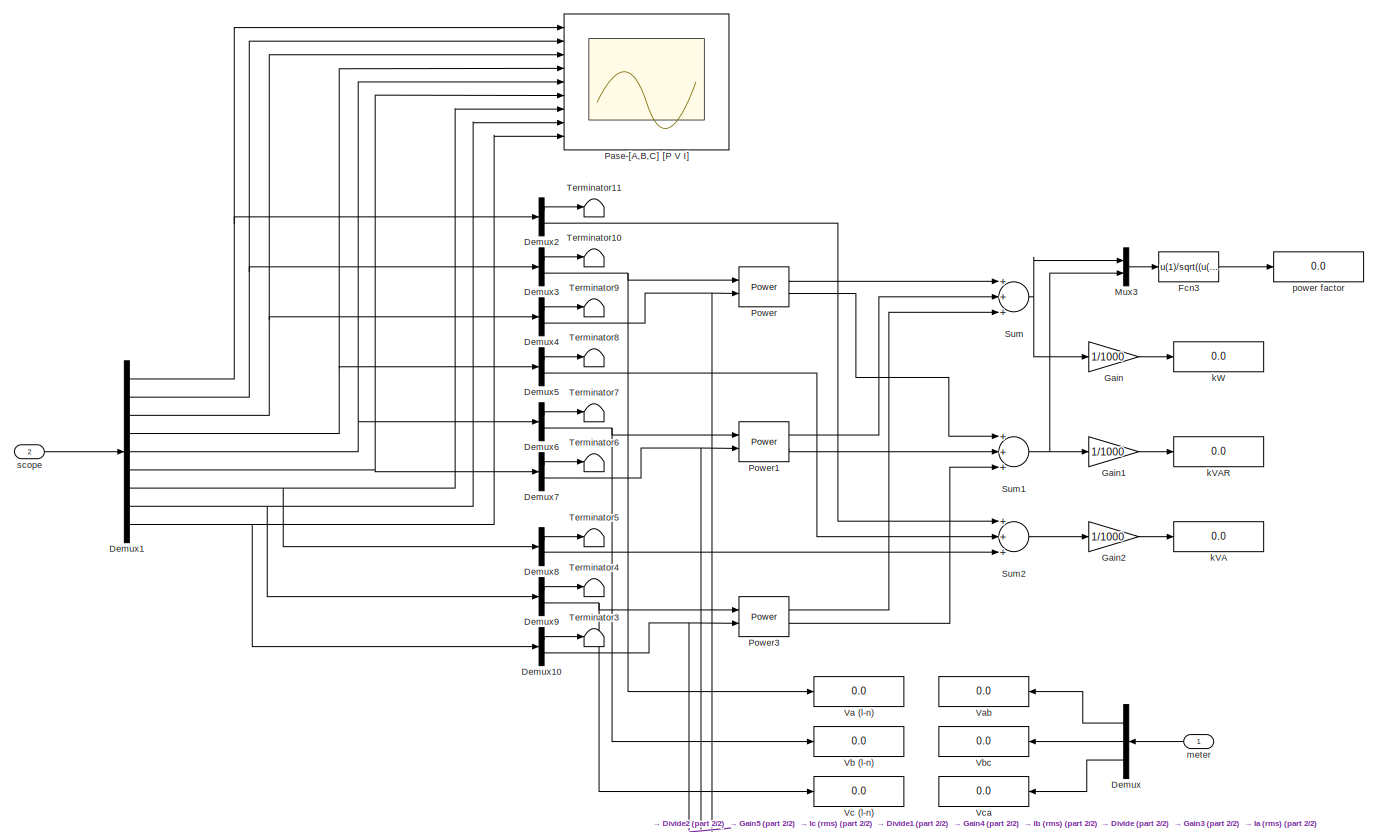
[diagram: Pacific Power Display - part 1/2, full width, middle band]
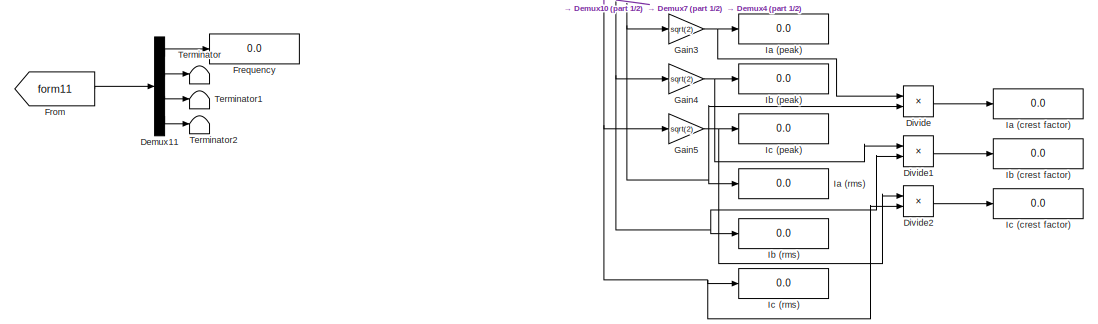
[diagram: Pacific Power Display - part 2/2, full width, bottom band]
BLOCK [SubSystem] Pacific Power Display
  Ports = [2]
  RequestExecContextInheritance = off
BLOCK [Demux] Pacific Power Display/Demux
  DisplayOption = bar
  Outputs = 3
  Ports = [1, 3]
BLOCK [Demux] Pacific Power Display/Demux1
  DisplayOption = bar
  Outputs = 9
  Ports = [1, 9]
BLOCK [Demux] Pacific Power Display/Demux10
  DisplayOption = bar
  Outputs = 2
  Ports = [1, 2]
BLOCK [Demux] Pacific Power Display/Demux11
  DisplayOption = bar
  Ports = [1, 4]
BLOCK [Demux] Pacific Power Display/Demux2
  DisplayOption = bar
  Outputs = 2
  Ports = [1, 2]
BLOCK [Demux] Pacific Power Display/Demux3
  DisplayOption = bar
  Outputs = 2
  Ports = [1, 2]
BLOCK [Demux] Pacific Power Display/Demux4
  DisplayOption = bar
  Outputs = 2
  Ports = [1, 2]
BLOCK [Demux] Pacific Power Display/Demux5
  DisplayOption = bar
  Outputs = 2
  Ports = [1, 2]
BLOCK [Demux] Pacific Power Display/Demux6
  DisplayOption = bar
  Outputs = 2
  Ports = [1, 2]
BLOCK [Demux] Pacific Power Display/Demux7
  DisplayOption = bar
  Outputs = 2
  Ports = [1, 2]
BLOCK [Demux] Pacific Power Display/Demux8
  DisplayOption = bar
  Outputs = 2
  Ports = [1, 2]
BLOCK [Demux] Pacific Power Display/Demux9
  DisplayOption = bar
  Outputs = 2
  Ports = [1, 2]
BLOCK [Product] Pacific Power Display/Divide
  InputSameDT = off
  Inputs = */
  OutDataTypeStr = Inherit: Inherit via internal rule
  Ports = [2, 1]
  RndMeth = Floor
  SaturateOnIntegerOverflow = off
BLOCK [Product] Pacific Power Display/Divide1
  InputSameDT = off
  Inputs = */
  OutDataTypeStr = Inherit: Inherit via internal rule
  Ports = [2, 1]
  RndMeth = Floor
  SaturateOnIntegerOverflow = off
BLOCK [Product] Pacific Power Display/Divide2
  InputSameDT = off
  Inputs = */
  OutDataTypeStr = Inherit: Inherit via internal rule
  Ports = [2, 1]
  RndMeth = Floor
  SaturateOnIntegerOverflow = off
BLOCK [Fcn] Pacific Power Display/Fcn3
  Expr = u(1)/sqrt((u(1))^2+(u(2))^2)
BLOCK [Display] Pacific Power Display/Frequency
  Decimation = 1
  Ports = [1]
BLOCK [From] Pacific Power Display/From
  GotoTag = form11
BLOCK [Gain] Pacific Power Display/Gain
  Gain = 1/1000
  OutDataTypeStr = Inherit: Inherit via internal rule
  ParamDataTypeStr = Inherit: Inherit via internal rule
  SaturateOnIntegerOverflow = off
BLOCK [Gain] Pacific Power Display/Gain1
  Gain = 1/1000
  OutDataTypeStr = Inherit: Inherit via internal rule
  ParamDataTypeStr = Inherit: Inherit via internal rule
  SaturateOnIntegerOverflow = off
BLOCK [Gain] Pacific Power Display/Gain2
  Gain = 1/1000
  OutDataTypeStr = Inherit: Inherit via internal rule
  ParamDataTypeStr = Inherit: Inherit via internal rule
  SaturateOnIntegerOverflow = off
BLOCK [Gain] Pacific Power Display/Gain3
  Gain = sqrt(2)
  OutDataTypeStr = Inherit: Inherit via internal rule
  ParamDataTypeStr = Inherit: Inherit via internal rule
  SaturateOnIntegerOverflow = off
BLOCK [Gain] Pacific Power Display/Gain4
  Gain = sqrt(2)
  OutDataTypeStr = Inherit: Inherit via internal rule
  ParamDataTypeStr = Inherit: Inherit via internal rule
  SaturateOnIntegerOverflow = off
BLOCK [Gain] Pacific Power Display/Gain5
  Gain = sqrt(2)
  OutDataTypeStr = Inherit: Inherit via internal rule
  ParamDataTypeStr = Inherit: Inherit via internal rule
  SaturateOnIntegerOverflow = off
BLOCK [Display] Pacific Power Display/Ia (crest factor)
  Decimation = 3
  Ports = [1]
BLOCK [Display] Pacific Power Display/Ia (peak)
  Decimation = 3
  Ports = [1]
BLOCK [Display] Pacific Power Display/Ia (rms)
  Decimation = 3
  Ports = [1]
BLOCK [Display] Pacific Power Display/Ib (crest factor)
  Decimation = 3
  Ports = [1]
BLOCK [Display] Pacific Power Display/Ib (peak)
  Decimation = 3
  Ports = [1]
BLOCK [Display] Pacific Power Display/Ib (rms)
  Decimation = 3
  Ports = [1]
BLOCK [Display] Pacific Power Display/Ic (crest factor)
  Decimation = 3
  Ports = [1]
BLOCK [Display] Pacific Power Display/Ic (peak)
  Decimation = 3
  Ports = [1]
BLOCK [Display] Pacific Power Display/Ic (rms)
  Decimation = 3
  Ports = [1]
BLOCK [Mux] Pacific Power Display/Mux3
  DisplayOption = bar
  Inputs = 2
  Ports = [2, 1]
BLOCK [Scope] Pacific Power Display/Pase-[A,B,C] [P V I]
  Floating = off
  NumInputPorts = 9
  Ports = [9]
  ScopeSpecificationString = Simulink.scopes.TimeScopeBlockCfg('CurrentConfiguration', extmgr.ConfigurationSet(extmgr.Configuration('Core','General UI',true,'FigureColor',[1 1 1]),extmgr.Configuration('Core','Source UI',true),extmgr.Configuration('Sources','WiredSimulink',true,'DataLoggingVariableName','ScopeData1'),extmgr.Configuration('Visuals','Time Domain',true,'PlotType','Line','SerializedDisplays',{struct('MinYLimReal',...<+9980ch>
BLOCK [Reference] Pacific Power Display/Power  REF=powerlib_meascontrol/Measurements/Power
  Ports = [2, 2]
  SourceBlock = powerlib_meascontrol/Measurements/Power
  SourceProductBaseCode = PS
  SourceProductName = Simscape Electrical
  SourceType = Power
BLOCK [Reference] Pacific Power Display/Power1  REF=powerlib_meascontrol/Measurements/Power
  Ports = [2, 2]
  SourceBlock = powerlib_meascontrol/Measurements/Power
  SourceProductBaseCode = PS
  SourceProductName = Simscape Electrical
  SourceType = Power
BLOCK [Reference] Pacific Power Display/Power3  REF=powerlib_meascontrol/Measurements/Power
  Ports = [2, 2]
  SourceBlock = powerlib_meascontrol/Measurements/Power
  SourceProductBaseCode = PS
  SourceProductName = Simscape Electrical
  SourceType = Power
BLOCK [Sum] Pacific Power Display/Sum
  InputSameDT = off
  Inputs = +++
  OutDataTypeStr = Inherit: Inherit via internal rule
  Ports = [3, 1]
  SaturateOnIntegerOverflow = off
BLOCK [Sum] Pacific Power Display/Sum1
  InputSameDT = off
  Inputs = +++
  OutDataTypeStr = Inherit: Inherit via internal rule
  Ports = [3, 1]
  SaturateOnIntegerOverflow = off
BLOCK [Sum] Pacific Power Display/Sum2
  InputSameDT = off
  Inputs = +++
  OutDataTypeStr = Inherit: Inherit via internal rule
  Ports = [3, 1]
  SaturateOnIntegerOverflow = off
BLOCK [Terminator] Pacific Power Display/Terminator
BLOCK [Terminator] Pacific Power Display/Terminator1
BLOCK [Terminator] Pacific Power Display/Terminator10
BLOCK [Terminator] Pacific Power Display/Terminator11
BLOCK [Terminator] Pacific Power Display/Terminator2
BLOCK [Terminator] Pacific Power Display/Terminator3
BLOCK [Terminator] Pacific Power Display/Terminator4
BLOCK [Terminator] Pacific Power Display/Terminator5
BLOCK [Terminator] Pacific Power Display/Terminator6
BLOCK [Terminator] Pacific Power Display/Terminator7
BLOCK [Terminator] Pacific Power Display/Terminator8
BLOCK [Terminator] Pacific Power Display/Terminator9
BLOCK [Display] Pacific Power Display/Va (l-n)
  Decimation = 3
  Ports = [1]
BLOCK [Display] Pacific Power Display/Vab
  Decimation = 3
  Ports = [1]
BLOCK [Display] Pacific Power Display/Vb (l-n)
  Decimation = 3
  Ports = [1]
BLOCK [Display] Pacific Power Display/Vbc
  Decimation = 3
  Ports = [1]
BLOCK [Display] Pacific Power Display/Vc (l-n)
  Decimation = 3
  Ports = [1]
BLOCK [Display] Pacific Power Display/Vca
  Decimation = 3
  Ports = [1]
BLOCK [Display] Pacific Power Display/kVA
  Decimation = 3
  Ports = [1]
BLOCK [Display] Pacific Power Display/kVAR
  Decimation = 3
  Ports = [1]
BLOCK [Display] Pacific Power Display/kW
  Decimation = 3
  Ports = [1]
BLOCK [Inport] Pacific Power Display/meter
  IconDisplay = Port number
BLOCK [Display] Pacific Power Display/power factor
  Decimation = 1
  Ports = [1]
BLOCK [Inport] Pacific Power Display/scope
  IconDisplay = Port number
  Port = 2
BLOCK [SubSystem] UPC-32
  Ports = [0, 4]
  RequestExecContextInheritance = off
BLOCK [Sum] UPC-32/Add
  InputSameDT = off
  OutDataTypeStr = Inherit: Inherit via internal rule
  Ports = [2, 1]
  SaturateOnIntegerOverflow = off
BLOCK [Constant] UPC-32/Constant
  Value = Iprt
BLOCK [Constant] UPC-32/Constant1
  Value = Iprtlim
BLOCK [Constant] UPC-32/Constant2
  Value = Tiprt
BLOCK [Constant] UPC-32/Constant3
  Value = Zout
BLOCK [SubSystem] UPC-32/Default: 0 inputs
  Ports = [0, 1]
  RequestExecContextInheritance = off
BLOCK [Constant] UPC-32/Default: 0 inputs/form
  Value = [0,0,0,0,0]
BLOCK [Outport] UPC-32/Default: 0 inputs/form[1 2 3]
  IconDisplay = Port number
BLOCK [Display] UPC-32/Display
  Decimation = 1
  Ports = [1]
BLOCK [Gain] UPC-32/Gain
  Gain = 10
  OutDataTypeStr = Inherit: Inherit via internal rule
  ParamDataTypeStr = Inherit: Inherit via internal rule
  SaturateOnIntegerOverflow = off
BLOCK [Goto] UPC-32/Goto
  GotoTag = form11
  TagVisibility = global
BLOCK [Goto] UPC-32/Goto1
  GotoTag = form12
  TagVisibility = global
BLOCK [Goto] UPC-32/Goto2
  GotoTag = form13
  TagVisibility = global
BLOCK [Goto] UPC-32/Goto3
  GotoTag = form21
  TagVisibility = global
BLOCK [Goto] UPC-32/Goto4
  GotoTag = form22
  TagVisibility = global
BLOCK [Goto] UPC-32/Goto5
  GotoTag = form23
  TagVisibility = global
BLOCK [Outport] UPC-32/I_prt
  IconDisplay = Port number
  Port = 3
BLOCK [MultiPortSwitch] UPC-32/Multiport Switch3
  DataPortForDefault = Additional data port
  DataPortIndices = {11,12,13,21,22,23}
  DataPortOrder = Specify indices
  DiagnosticForDefault = None
  InputSameDT = off
  Inputs = 13
  Ports = [8, 1]
  SaturateOnIntegerOverflow = off
BLOCK [Mux] UPC-32/Mux
  DisplayOption = bar
  Inputs = 3
  Ports = [3, 1]
BLOCK [Outport] UPC-32/Z_out
  IconDisplay = Port number
  Port = 4
BLOCK [Outport] UPC-32/[P,V,I]
  IconDisplay = Port number
  Port = 2
BLOCK [Constant] UPC-32/form
  Value = form_sel
BLOCK [SubSystem] UPC-32/form1_dc (11)
  Ports = [0, 2]
  RequestExecContextInheritance = off
BLOCK [Constant] UPC-32/form1_dc (11)/Angle-1
  Value = 0
BLOCK [Outport] UPC-32/form1_dc (11)/F [Angles-1,2,3]
  IconDisplay = Port number
  Port = 2
BLOCK [Constant] UPC-32/form1_dc (11)/Frequency-1
  Value = f
BLOCK [Mux] UPC-32/form1_dc (11)/Mux3
  DisplayOption = bar
  Inputs = 3
  Ports = [3, 1]
BLOCK [Mux] UPC-32/form1_dc (11)/Mux4
  DisplayOption = bar
  Ports = [4, 1]
BLOCK [Outport] UPC-32/form1_dc (11)/form1_dc [P,V,I]
  IconDisplay = Port number
BLOCK [Constant] UPC-32/form1_dc (11)/form1_dc current
  Value = Im11
BLOCK [Constant] UPC-32/form1_dc (11)/form1_dc power (VA)
  Value = 6000
BLOCK [Constant] UPC-32/form1_dc (11)/form1_dc voltage
  Value = [Vm11,0,0]
BLOCK [SubSystem] UPC-32/form1_t (21)
  Ports = [0, 2]
  RequestExecContextInheritance = off
BLOCK [Constant] UPC-32/form1_t (21)/Angle-1
  Value = 0
BLOCK [Outport] UPC-32/form1_t (21)/F [Angles-1,2,3]
  IconDisplay = Port number
  Port = 2
BLOCK [Constant] UPC-32/form1_t (21)/Frequency-1
  Value = f
BLOCK [Mux] UPC-32/form1_t (21)/Mux3
  DisplayOption = bar
  Inputs = 3
  Ports = [3, 1]
BLOCK [Mux] UPC-32/form1_t (21)/Mux4
  DisplayOption = bar
  Ports = [4, 1]
BLOCK [Outport] UPC-32/form1_t (21)/form1_t [P,V,I]
  IconDisplay = Port number
BLOCK [Constant] UPC-32/form1_t (21)/form1_t current
  Value = Im21
BLOCK [Constant] UPC-32/form1_t (21)/form1_t power (VA)
  Value = 6000
BLOCK [Constant] UPC-32/form1_t (21)/form1_t voltage
  Value = [Vm21,0,0]
BLOCK [SubSystem] UPC-32/form2_dc (12)
  Ports = [0, 2]
  RequestExecContextInheritance = off
BLOCK [Constant] UPC-32/form2_dc (12)/Angle-1
  Value = 0
BLOCK [Constant] UPC-32/form2_dc (12)/Angle-2
  Value = 180
BLOCK [Outport] UPC-32/form2_dc (12)/F [Angles-1,2,3]
  IconDisplay = Port number
  Port = 2
BLOCK [Constant] UPC-32/form2_dc (12)/Frequency-1
  Value = f
BLOCK [Mux] UPC-32/form2_dc (12)/Mux3
  DisplayOption = bar
  Inputs = 3
  Ports = [3, 1]
BLOCK [Mux] UPC-32/form2_dc (12)/Mux4
  DisplayOption = bar
  Ports = [4, 1]
BLOCK [Outport] UPC-32/form2_dc (12)/form2_dc [P,V,I]
  IconDisplay = Port number
BLOCK [Constant] UPC-32/form2_dc (12)/form2_dc current
  Value = Im12
BLOCK [Constant] UPC-32/form2_dc (12)/form2_dc power (VA)
  Value = 4500
BLOCK [Constant] UPC-32/form2_dc (12)/form2_dc voltage
  Value = [Vm12/2,Vm12/2,0]
BLOCK [SubSystem] UPC-32/form2_t (22)
  Ports = [0, 2]
  RequestExecContextInheritance = off
BLOCK [Constant] UPC-32/form2_t (22)/Angle-1
  Value = 0
BLOCK [Constant] UPC-32/form2_t (22)/Angle-2
  Value = 180
BLOCK [Outport] UPC-32/form2_t (22)/F [Angles-1,2,3]
  IconDisplay = Port number
  Port = 2
BLOCK [Constant] UPC-32/form2_t (22)/Frequency-1
  Value = f
BLOCK [Mux] UPC-32/form2_t (22)/Mux3
  DisplayOption = bar
  Inputs = 3
  Ports = [3, 1]
BLOCK [Mux] UPC-32/form2_t (22)/Mux4
  DisplayOption = bar
  Ports = [4, 1]
BLOCK [Outport] UPC-32/form2_t (22)/form2_t [P,V,I]
  IconDisplay = Port number
BLOCK [Constant] UPC-32/form2_t (22)/form2_t current
  Value = Im22
BLOCK [Constant] UPC-32/form2_t (22)/form2_t power (VA)
  Value = 4500
BLOCK [Constant] UPC-32/form2_t (22)/form2_t voltage
  Value = [Vm22/2,Vm22/2,0]
BLOCK [SubSystem] UPC-32/form3_dc (13)
  Ports = [0, 2]
  RequestExecContextInheritance = off
BLOCK [Constant] UPC-32/form3_dc (13)/Angle-1
  Value = 0
BLOCK [Constant] UPC-32/form3_dc (13)/Angle-2
  Value = Ph13b
BLOCK [Constant] UPC-32/form3_dc (13)/Angle-3
  Value = Ph13c
BLOCK [Outport] UPC-32/form3_dc (13)/F [Angles-1,2,3]
  IconDisplay = Port number
  Port = 2
BLOCK [Constant] UPC-32/form3_dc (13)/Frequency-1
  Value = f
BLOCK [Mux] UPC-32/form3_dc (13)/Mux3
  DisplayOption = bar
  Inputs = 3
  Ports = [3, 1]
BLOCK [Mux] UPC-32/form3_dc (13)/Mux4
  DisplayOption = bar
  Ports = [4, 1]
BLOCK [Outport] UPC-32/form3_dc (13)/form3_dc [P,V,I]
  IconDisplay = Port number
BLOCK [Constant] UPC-32/form3_dc (13)/form3_dc current
  Value = Im13
BLOCK [Constant] UPC-32/form3_dc (13)/form3_dc power (VA)
  Value = 6000
BLOCK [Constant] UPC-32/form3_dc (13)/form3_dc voltage
  Value = [Vm13a,Vm13b,Vm13c]
BLOCK [SubSystem] UPC-32/form3_t (23)
  Ports = [0, 2]
  RequestExecContextInheritance = off
BLOCK [Constant] UPC-32/form3_t (23)/Angle-1
  Value = 0
BLOCK [Constant] UPC-32/form3_t (23)/Angle-2
  Value = Ph23b
BLOCK [Constant] UPC-32/form3_t (23)/Angle-3
  Value = Ph23c
BLOCK [Outport] UPC-32/form3_t (23)/F [Angles-1,2,3]
  IconDisplay = Port number
  Port = 2
BLOCK [Constant] UPC-32/form3_t (23)/Frequency-1
  Value = f
BLOCK [Mux] UPC-32/form3_t (23)/Mux3
  DisplayOption = bar
  Inputs = 3
  Ports = [3, 1]
BLOCK [Mux] UPC-32/form3_t (23)/Mux4
  DisplayOption = bar
  Ports = [4, 1]
BLOCK [Outport] UPC-32/form3_t (23)/form3_t [P,V,I]
  IconDisplay = Port number
BLOCK [Constant] UPC-32/form3_t (23)/form3_t current
  Value = Im23
BLOCK [Constant] UPC-32/form3_t (23)/form3_t power (VA)
  Value = 6000
BLOCK [Constant] UPC-32/form3_t (23)/form3_t voltage
  Value = [Vm23a,Vm23b,Vm23c]
BLOCK [Constant] UPC-32/mode
  Value = sel
BLOCK [Outport] UPC-32/op_form
  IconDisplay = Port number
ANNOTATION NHR 9200 Display: Imax_trip (charge)
ANNOTATION NHR 9200 Display: Imax_trip (discharge)
ANNOTATION NHR 9200 Display: Pmax_trip (charge)
ANNOTATION NHR 9200 Display: Pmax_trip (discharge)
ANNOTATION NHR 9200 Display: Trip
ANNOTATION NHR 9200 Display: Vmax_trip
ANNOTATION NHR 9200 Display: Vmin_trip
ANNOTATION NHR 9410: Device neutral
ANNOTATION NHR 9410 Display: Imax(snk)
ANNOTATION NHR 9410 Display: Imax(src)
ANNOTATION NHR 9410 Display: Ipeak
ANNOTATION NHR 9410 Display: Pmax(snk)
ANNOTATION NHR 9410 Display: Pmax(src)
ANNOTATION NHR 9410 Display: Vmax
ANNOTATION NHR 9410 Display: Vmin
ANNOTATION NHR 9410 Display: Vpeak
ANNOTATION NHR 9410 Display: ch-1
ANNOTATION NHR 9410 Display: ch-1 I/Irms
ANNOTATION NHR 9410 Display: ch-1 P/Ptrue
ANNOTATION NHR 9410 Display: ch-1 V/Vrms
ANNOTATION NHR 9410 Display: ch-2
ANNOTATION NHR 9410 Display: ch-2 I/Irms
ANNOTATION NHR 9410 Display: ch-2 P/Ptrue
ANNOTATION NHR 9410 Display: ch-2 V/Vrms
ANNOTATION NHR 9410 Display: ch-3
ANNOTATION NHR 9410 Display: ch-3 I/Irms
ANNOTATION NHR 9410 Display: ch-3 P/Ptrue
ANNOTATION NHR 9410 Display: ch-3 V/Vrms
ANNOTATION NHR 9410 Mode 0 (One 3-ph AC) Fixture: Channel neutral
ANNOTATION NHR 9410 Mode 1 (One AC) Fixture: Channel neutral
ANNOTATION NHR 9410 Mode 10 (One AC//Two DC) Fixture: Channel neutral
ANNOTATION NHR 9410 Mode 11 (One DC//One AC) Fixture: Channel neutral
ANNOTATION NHR 9410 Mode 12 (Two DC) Fixture: Channel neutral
ANNOTATION NHR 9410 Mode 2 (One DC) Fixture: Channel neutral
ANNOTATION NHR 9410 Mode 3 (Three AC) Fixture: Channel neutral
ANNOTATION NHR 9410 Mode 4 (Three DC) Fixture: Channel neutral
ANNOTATION NHR 9410 Mode 5 (One 2-ph AC//One AC) Fixture: Channel neutral
ANNOTATION NHR 9410 Mode 6 (One 2-ph AC//One DC) Fixture: Channel neutral
ANNOTATION NHR 9410 Mode 7 (Two AC) Fixture: Channel neutral
ANNOTATION NHR 9410 Mode 8 (One AC//One DC) Fixture: Channel neutral
ANNOTATION NHR 9410 Mode 9 (Two AC//One DC) Fixture: Channel neutral
ANNOTATION NHR 9410-24k Input Panel: Freq & phases
ANNOTATION NHR 9410-48k Input Panel: Freq & phases
ANNOTATION NHR 9410-96k Input Panel: Freq & phases
ANNOTATION Pacific Power 360-AMXT: Device neutral
ANNOTATION UPC-32: Freq & phases
LINE Battery detection NHR 9200 (source)/Battery detection/Compare To Constant1:1 -> Battery detection NHR 9200 (source)/Battery detection/Switch:2
LINE Battery detection NHR 9200 (source)/Battery detection/Compare To Constant:1 -> Battery detection NHR 9200 (source)/Battery detection/Switch:3
LINE Battery detection NHR 9200 (source)/Battery detection/Constant1:1 -> Battery detection NHR 9200 (source)/Battery detection/Switch:1
LINE Battery detection NHR 9200 (source)/Battery detection/Constant:1 -> Battery detection NHR 9200 (source)/Battery detection/Compare To Constant1:1
LINE Battery detection NHR 9200 (source)/Battery detection/Data Type Conversion:1 -> Battery detection NHR 9200 (source)/Battery detection/Simulink-PS Converter:1
NET Battery detection NHR 9200 (source)/Battery detection/PS-Simulink Converter3:1 -> Battery detection NHR 9200 (source)/Battery detection/Compare To Constant:1, Battery detection NHR 9200 (source)/Battery detection/Goto:1
NET Battery detection NHR 9200 (source)/Battery detection/Switch:1 -> Battery detection NHR 9200 (source)/Battery detection/Data Type Conversion:1, Battery detection NHR 9200 (source)/Battery detection/Goto1:1
LINE NHR 9200 (4904) Input Panel/Charging mode Input Params/Compare To Constant1:1 -> NHR 9200 (4904) Input Panel/Charging mode Input Params/Switch1:2
LINE NHR 9200 (4904) Input Panel/Charging mode Input Params/Compare To Constant2:1 -> NHR 9200 (4904) Input Panel/Charging mode Input Params/Switch2:2
LINE NHR 9200 (4904) Input Panel/Charging mode Input Params/Compare To Constant3:1 -> NHR 9200 (4904) Input Panel/Charging mode Input Params/Switch3:2
LINE NHR 9200 (4904) Input Panel/Charging mode Input Params/Compare To Constant:1 -> NHR 9200 (4904) Input Panel/Charging mode Input Params/Switch:2
LINE NHR 9200 (4904) Input Panel/Charging mode Input Params/Constant1:1 -> NHR 9200 (4904) Input Panel/Charging mode Input Params/Switch1:1
LINE NHR 9200 (4904) Input Panel/Charging mode Input Params/Constant2:1 -> NHR 9200 (4904) Input Panel/Charging mode Input Params/Switch2:1
LINE NHR 9200 (4904) Input Panel/Charging mode Input Params/Constant3:1 -> NHR 9200 (4904) Input Panel/Charging mode Input Params/Switch3:1
LINE NHR 9200 (4904) Input Panel/Charging mode Input Params/Constant:1 -> NHR 9200 (4904) Input Panel/Charging mode Input Params/Switch:1
NET NHR 9200 (4904) Input Panel/Charging mode Input Params/Gain:1 -> NHR 9200 (4904) Input Panel/Charging mode Input Params/Compare To Constant2:1, NHR 9200 (4904) Input Panel/Charging mode Input Params/Switch2:3
NET NHR 9200 (4904) Input Panel/Charging mode Input Params/I(max):1 -> NHR 9200 (4904) Input Panel/Charging mode Input Params/Compare To Constant1:1, NHR 9200 (4904) Input Panel/Charging mode Input Params/Switch1:3
LINE NHR 9200 (4904) Input Panel/Charging mode Input Params/P(max):1 -> NHR 9200 (4904) Input Panel/Charging mode Input Params/Gain:1
NET NHR 9200 (4904) Input Panel/Charging mode Input Params/Rs1:1 -> NHR 9200 (4904) Input Panel/Charging mode Input Params/Compare To Constant3:1, NHR 9200 (4904) Input Panel/Charging mode Input Params/Switch3:3
LINE NHR 9200 (4904) Input Panel/Charging mode Input Params/Switch1:1 -> NHR 9200 (4904) Input Panel/Charging mode Input Params/Im:1
LINE NHR 9200 (4904) Input Panel/Charging mode Input Params/Switch2:1 -> NHR 9200 (4904) Input Panel/Charging mode Input Params/Pm:1
LINE NHR 9200 (4904) Input Panel/Charging mode Input Params/Switch3:1 -> NHR 9200 (4904) Input Panel/Charging mode Input Params/Rs:1
LINE NHR 9200 (4904) Input Panel/Charging mode Input Params/Switch:1 -> NHR 9200 (4904) Input Panel/Charging mode Input Params/Vm:1
NET NHR 9200 (4904) Input Panel/Charging mode Input Params/V(max):1 -> NHR 9200 (4904) Input Panel/Charging mode Input Params/Compare To Constant:1, NHR 9200 (4904) Input Panel/Charging mode Input Params/Switch:3
LINE NHR 9200 (4904) Input Panel/Charging mode Input Params:1 -> NHR 9200 (4904) Input Panel/Mux:1
LINE NHR 9200 (4904) Input Panel/Charging mode Input Params:2 -> NHR 9200 (4904) Input Panel/Mux:2
LINE NHR 9200 (4904) Input Panel/Charging mode Input Params:3 -> NHR 9200 (4904) Input Panel/Mux:3
LINE NHR 9200 (4904) Input Panel/Charging mode Input Params:4 -> NHR 9200 (4904) Input Panel/Mux:4
LINE NHR 9200 (4904) Input Panel/Compare To Constant1:1 -> NHR 9200 (4904) Input Panel/Discharging mode Input Params:enable
LINE NHR 9200 (4904) Input Panel/Compare To Constant4:1 -> NHR 9200 (4904) Input Panel/Charging mode Input Params:enable
LINE NHR 9200 (4904) Input Panel/Constant1:1 -> NHR 9200 (4904) Input Panel/Multiport Switch:4
NET NHR 9200 (4904) Input Panel/Constant:1 -> NHR 9200 (4904) Input Panel/Compare To Constant1:1, NHR 9200 (4904) Input Panel/Compare To Constant4:1, NHR 9200 (4904) Input Panel/Multiport Switch:1, NHR 9200 (4904) Input Panel/op_state:1
LINE NHR 9200 (4904) Input Panel/Demux:1 -> NHR 9200 (4904) Input Panel/Vm:1
LINE NHR 9200 (4904) Input Panel/Demux:2 -> NHR 9200 (4904) Input Panel/Im:1
LINE NHR 9200 (4904) Input Panel/Demux:3 -> NHR 9200 (4904) Input Panel/Pm:1
LINE NHR 9200 (4904) Input Panel/Demux:4 -> NHR 9200 (4904) Input Panel/Rs:1
LINE NHR 9200 (4904) Input Panel/Discharging mode Input Params/Compare To Constant1:1 -> NHR 9200 (4904) Input Panel/Discharging mode Input Params/Switch1:2
LINE NHR 9200 (4904) Input Panel/Discharging mode Input Params/Compare To Constant2:1 -> NHR 9200 (4904) Input Panel/Discharging mode Input Params/Switch2:2
LINE NHR 9200 (4904) Input Panel/Discharging mode Input Params/Compare To Constant:1 -> NHR 9200 (4904) Input Panel/Discharging mode Input Params/Switch:2
LINE NHR 9200 (4904) Input Panel/Discharging mode Input Params/Constant1:1 -> NHR 9200 (4904) Input Panel/Discharging mode Input Params/Switch1:1
LINE NHR 9200 (4904) Input Panel/Discharging mode Input Params/Constant2:1 -> NHR 9200 (4904) Input Panel/Discharging mode Input Params/Switch2:1
LINE NHR 9200 (4904) Input Panel/Discharging mode Input Params/Constant:1 -> NHR 9200 (4904) Input Panel/Discharging mode Input Params/Switch:1
NET NHR 9200 (4904) Input Panel/Discharging mode Input Params/Gain:1 -> NHR 9200 (4904) Input Panel/Discharging mode Input Params/Compare To Constant2:1, NHR 9200 (4904) Input Panel/Discharging mode Input Params/Switch2:3
NET NHR 9200 (4904) Input Panel/Discharging mode Input Params/I(max):1 -> NHR 9200 (4904) Input Panel/Discharging mode Input Params/Compare To Constant1:1, NHR 9200 (4904) Input Panel/Discharging mode Input Params/Switch1:3
LINE NHR 9200 (4904) Input Panel/Discharging mode Input Params/P(max):1 -> NHR 9200 (4904) Input Panel/Discharging mode Input Params/Gain:1
LINE NHR 9200 (4904) Input Panel/Discharging mode Input Params/Rs1:1 -> NHR 9200 (4904) Input Panel/Discharging mode Input Params/Rs:1
LINE NHR 9200 (4904) Input Panel/Discharging mode Input Params/Switch1:1 -> NHR 9200 (4904) Input Panel/Discharging mode Input Params/Im:1
LINE NHR 9200 (4904) Input Panel/Discharging mode Input Params/Switch2:1 -> NHR 9200 (4904) Input Panel/Discharging mode Input Params/Pm:1
LINE NHR 9200 (4904) Input Panel/Discharging mode Input Params/Switch:1 -> NHR 9200 (4904) Input Panel/Discharging mode Input Params/Vm:1
NET NHR 9200 (4904) Input Panel/Discharging mode Input Params/V(max):1 -> NHR 9200 (4904) Input Panel/Discharging mode Input Params/Compare To Constant:1, NHR 9200 (4904) Input Panel/Discharging mode Input Params/Switch:3
LINE NHR 9200 (4904) Input Panel/Discharging mode Input Params:1 -> NHR 9200 (4904) Input Panel/Mux1:1
LINE NHR 9200 (4904) Input Panel/Discharging mode Input Params:2 -> NHR 9200 (4904) Input Panel/Mux1:2
LINE NHR 9200 (4904) Input Panel/Discharging mode Input Params:3 -> NHR 9200 (4904) Input Panel/Mux1:3
LINE NHR 9200 (4904) Input Panel/Discharging mode Input Params:4 -> NHR 9200 (4904) Input Panel/Mux1:4
LINE NHR 9200 (4904) Input Panel/Multiport Switch:1 -> NHR 9200 (4904) Input Panel/Demux:1
LINE NHR 9200 (4904) Input Panel/Mux1:1 -> NHR 9200 (4904) Input Panel/Multiport Switch:3
LINE NHR 9200 (4904) Input Panel/Mux:1 -> NHR 9200 (4904) Input Panel/Multiport Switch:2
LINE NHR 9200 (4912) Input Panel/Charging mode Input Params/Compare To Constant1:1 -> NHR 9200 (4912) Input Panel/Charging mode Input Params/Switch1:2
LINE NHR 9200 (4912) Input Panel/Charging mode Input Params/Compare To Constant2:1 -> NHR 9200 (4912) Input Panel/Charging mode Input Params/Switch2:2
LINE NHR 9200 (4912) Input Panel/Charging mode Input Params/Compare To Constant3:1 -> NHR 9200 (4912) Input Panel/Charging mode Input Params/Switch3:2
LINE NHR 9200 (4912) Input Panel/Charging mode Input Params/Compare To Constant:1 -> NHR 9200 (4912) Input Panel/Charging mode Input Params/Switch:2
LINE NHR 9200 (4912) Input Panel/Charging mode Input Params/Constant1:1 -> NHR 9200 (4912) Input Panel/Charging mode Input Params/Switch1:1
LINE NHR 9200 (4912) Input Panel/Charging mode Input Params/Constant2:1 -> NHR 9200 (4912) Input Panel/Charging mode Input Params/Switch2:1
LINE NHR 9200 (4912) Input Panel/Charging mode Input Params/Constant3:1 -> NHR 9200 (4912) Input Panel/Charging mode Input Params/Switch3:1
LINE NHR 9200 (4912) Input Panel/Charging mode Input Params/Constant:1 -> NHR 9200 (4912) Input Panel/Charging mode Input Params/Switch:1
NET NHR 9200 (4912) Input Panel/Charging mode Input Params/Gain:1 -> NHR 9200 (4912) Input Panel/Charging mode Input Params/Compare To Constant2:1, NHR 9200 (4912) Input Panel/Charging mode Input Params/Switch2:3
NET NHR 9200 (4912) Input Panel/Charging mode Input Params/I(max):1 -> NHR 9200 (4912) Input Panel/Charging mode Input Params/Compare To Constant1:1, NHR 9200 (4912) Input Panel/Charging mode Input Params/Switch1:3
LINE NHR 9200 (4912) Input Panel/Charging mode Input Params/P(max):1 -> NHR 9200 (4912) Input Panel/Charging mode Input Params/Gain:1
NET NHR 9200 (4912) Input Panel/Charging mode Input Params/Rs1:1 -> NHR 9200 (4912) Input Panel/Charging mode Input Params/Compare To Constant3:1, NHR 9200 (4912) Input Panel/Charging mode Input Params/Switch3:3
LINE NHR 9200 (4912) Input Panel/Charging mode Input Params/Switch1:1 -> NHR 9200 (4912) Input Panel/Charging mode Input Params/Im:1
LINE NHR 9200 (4912) Input Panel/Charging mode Input Params/Switch2:1 -> NHR 9200 (4912) Input Panel/Charging mode Input Params/Pm:1
LINE NHR 9200 (4912) Input Panel/Charging mode Input Params/Switch3:1 -> NHR 9200 (4912) Input Panel/Charging mode Input Params/Rs:1
LINE NHR 9200 (4912) Input Panel/Charging mode Input Params/Switch:1 -> NHR 9200 (4912) Input Panel/Charging mode Input Params/Vm:1
NET NHR 9200 (4912) Input Panel/Charging mode Input Params/V(max):1 -> NHR 9200 (4912) Input Panel/Charging mode Input Params/Compare To Constant:1, NHR 9200 (4912) Input Panel/Charging mode Input Params/Switch:3
LINE NHR 9200 (4912) Input Panel/Charging mode Input Params:1 -> NHR 9200 (4912) Input Panel/Mux:1
LINE NHR 9200 (4912) Input Panel/Charging mode Input Params:2 -> NHR 9200 (4912) Input Panel/Mux:2
LINE NHR 9200 (4912) Input Panel/Charging mode Input Params:3 -> NHR 9200 (4912) Input Panel/Mux:3
LINE NHR 9200 (4912) Input Panel/Charging mode Input Params:4 -> NHR 9200 (4912) Input Panel/Mux:4
LINE NHR 9200 (4912) Input Panel/Compare To Constant1:1 -> NHR 9200 (4912) Input Panel/Discharging mode Input Params:enable
LINE NHR 9200 (4912) Input Panel/Compare To Constant4:1 -> NHR 9200 (4912) Input Panel/Charging mode Input Params:enable
LINE NHR 9200 (4912) Input Panel/Constant1:1 -> NHR 9200 (4912) Input Panel/Multiport Switch:4
NET NHR 9200 (4912) Input Panel/Constant:1 -> NHR 9200 (4912) Input Panel/Compare To Constant1:1, NHR 9200 (4912) Input Panel/Compare To Constant4:1, NHR 9200 (4912) Input Panel/Multiport Switch:1, NHR 9200 (4912) Input Panel/op_state:1
LINE NHR 9200 (4912) Input Panel/Demux:1 -> NHR 9200 (4912) Input Panel/Vm:1
LINE NHR 9200 (4912) Input Panel/Demux:2 -> NHR 9200 (4912) Input Panel/Im:1
LINE NHR 9200 (4912) Input Panel/Demux:3 -> NHR 9200 (4912) Input Panel/Pm:1
LINE NHR 9200 (4912) Input Panel/Demux:4 -> NHR 9200 (4912) Input Panel/Rs:1
LINE NHR 9200 (4912) Input Panel/Discharging mode Input Params/Compare To Constant1:1 -> NHR 9200 (4912) Input Panel/Discharging mode Input Params/Switch1:2
LINE NHR 9200 (4912) Input Panel/Discharging mode Input Params/Compare To Constant2:1 -> NHR 9200 (4912) Input Panel/Discharging mode Input Params/Switch2:2
LINE NHR 9200 (4912) Input Panel/Discharging mode Input Params/Compare To Constant:1 -> NHR 9200 (4912) Input Panel/Discharging mode Input Params/Switch:2
LINE NHR 9200 (4912) Input Panel/Discharging mode Input Params/Constant1:1 -> NHR 9200 (4912) Input Panel/Discharging mode Input Params/Switch1:1
LINE NHR 9200 (4912) Input Panel/Discharging mode Input Params/Constant2:1 -> NHR 9200 (4912) Input Panel/Discharging mode Input Params/Switch2:1
LINE NHR 9200 (4912) Input Panel/Discharging mode Input Params/Constant:1 -> NHR 9200 (4912) Input Panel/Discharging mode Input Params/Switch:1
NET NHR 9200 (4912) Input Panel/Discharging mode Input Params/Gain:1 -> NHR 9200 (4912) Input Panel/Discharging mode Input Params/Compare To Constant2:1, NHR 9200 (4912) Input Panel/Discharging mode Input Params/Switch2:3
NET NHR 9200 (4912) Input Panel/Discharging mode Input Params/I(max):1 -> NHR 9200 (4912) Input Panel/Discharging mode Input Params/Compare To Constant1:1, NHR 9200 (4912) Input Panel/Discharging mode Input Params/Switch1:3
LINE NHR 9200 (4912) Input Panel/Discharging mode Input Params/P(max):1 -> NHR 9200 (4912) Input Panel/Discharging mode Input Params/Gain:1
LINE NHR 9200 (4912) Input Panel/Discharging mode Input Params/Rs1:1 -> NHR 9200 (4912) Input Panel/Discharging mode Input Params/Rs:1
LINE NHR 9200 (4912) Input Panel/Discharging mode Input Params/Switch1:1 -> NHR 9200 (4912) Input Panel/Discharging mode Input Params/Im:1
LINE NHR 9200 (4912) Input Panel/Discharging mode Input Params/Switch2:1 -> NHR 9200 (4912) Input Panel/Discharging mode Input Params/Pm:1
LINE NHR 9200 (4912) Input Panel/Discharging mode Input Params/Switch:1 -> NHR 9200 (4912) Input Panel/Discharging mode Input Params/Vm:1
NET NHR 9200 (4912) Input Panel/Discharging mode Input Params/V(max):1 -> NHR 9200 (4912) Input Panel/Discharging mode Input Params/Compare To Constant:1, NHR 9200 (4912) Input Panel/Discharging mode Input Params/Switch:3
LINE NHR 9200 (4912) Input Panel/Discharging mode Input Params:1 -> NHR 9200 (4912) Input Panel/Mux1:1
LINE NHR 9200 (4912) Input Panel/Discharging mode Input Params:2 -> NHR 9200 (4912) Input Panel/Mux1:2
LINE NHR 9200 (4912) Input Panel/Discharging mode Input Params:3 -> NHR 9200 (4912) Input Panel/Mux1:3
LINE NHR 9200 (4912) Input Panel/Discharging mode Input Params:4 -> NHR 9200 (4912) Input Panel/Mux1:4
LINE NHR 9200 (4912) Input Panel/Multiport Switch:1 -> NHR 9200 (4912) Input Panel/Demux:1
LINE NHR 9200 (4912) Input Panel/Mux1:1 -> NHR 9200 (4912) Input Panel/Multiport Switch:3
LINE NHR 9200 (4912) Input Panel/Mux:1 -> NHR 9200 (4912) Input Panel/Multiport Switch:2
LINE NHR 9200 (4960) Input Panel/Charging mode Input Params/Compare To Constant1:1 -> NHR 9200 (4960) Input Panel/Charging mode Input Params/Switch1:2
LINE NHR 9200 (4960) Input Panel/Charging mode Input Params/Compare To Constant2:1 -> NHR 9200 (4960) Input Panel/Charging mode Input Params/Switch2:2
LINE NHR 9200 (4960) Input Panel/Charging mode Input Params/Compare To Constant3:1 -> NHR 9200 (4960) Input Panel/Charging mode Input Params/Switch3:2
LINE NHR 9200 (4960) Input Panel/Charging mode Input Params/Compare To Constant:1 -> NHR 9200 (4960) Input Panel/Charging mode Input Params/Switch:2
LINE NHR 9200 (4960) Input Panel/Charging mode Input Params/Constant1:1 -> NHR 9200 (4960) Input Panel/Charging mode Input Params/Switch1:1
LINE NHR 9200 (4960) Input Panel/Charging mode Input Params/Constant2:1 -> NHR 9200 (4960) Input Panel/Charging mode Input Params/Switch2:1
LINE NHR 9200 (4960) Input Panel/Charging mode Input Params/Constant3:1 -> NHR 9200 (4960) Input Panel/Charging mode Input Params/Switch3:1
LINE NHR 9200 (4960) Input Panel/Charging mode Input Params/Constant:1 -> NHR 9200 (4960) Input Panel/Charging mode Input Params/Switch:1
NET NHR 9200 (4960) Input Panel/Charging mode Input Params/Gain:1 -> NHR 9200 (4960) Input Panel/Charging mode Input Params/Compare To Constant2:1, NHR 9200 (4960) Input Panel/Charging mode Input Params/Switch2:3
NET NHR 9200 (4960) Input Panel/Charging mode Input Params/I(max):1 -> NHR 9200 (4960) Input Panel/Charging mode Input Params/Compare To Constant1:1, NHR 9200 (4960) Input Panel/Charging mode Input Params/Switch1:3
LINE NHR 9200 (4960) Input Panel/Charging mode Input Params/P(max):1 -> NHR 9200 (4960) Input Panel/Charging mode Input Params/Gain:1
NET NHR 9200 (4960) Input Panel/Charging mode Input Params/Rs1:1 -> NHR 9200 (4960) Input Panel/Charging mode Input Params/Compare To Constant3:1, NHR 9200 (4960) Input Panel/Charging mode Input Params/Switch3:3
LINE NHR 9200 (4960) Input Panel/Charging mode Input Params/Switch1:1 -> NHR 9200 (4960) Input Panel/Charging mode Input Params/Im:1
LINE NHR 9200 (4960) Input Panel/Charging mode Input Params/Switch2:1 -> NHR 9200 (4960) Input Panel/Charging mode Input Params/Pm:1
LINE NHR 9200 (4960) Input Panel/Charging mode Input Params/Switch3:1 -> NHR 9200 (4960) Input Panel/Charging mode Input Params/Rs:1
LINE NHR 9200 (4960) Input Panel/Charging mode Input Params/Switch:1 -> NHR 9200 (4960) Input Panel/Charging mode Input Params/Vm:1
NET NHR 9200 (4960) Input Panel/Charging mode Input Params/V(max):1 -> NHR 9200 (4960) Input Panel/Charging mode Input Params/Compare To Constant:1, NHR 9200 (4960) Input Panel/Charging mode Input Params/Switch:3
LINE NHR 9200 (4960) Input Panel/Charging mode Input Params:1 -> NHR 9200 (4960) Input Panel/Mux:1
LINE NHR 9200 (4960) Input Panel/Charging mode Input Params:2 -> NHR 9200 (4960) Input Panel/Mux:2
LINE NHR 9200 (4960) Input Panel/Charging mode Input Params:3 -> NHR 9200 (4960) Input Panel/Mux:3
LINE NHR 9200 (4960) Input Panel/Charging mode Input Params:4 -> NHR 9200 (4960) Input Panel/Mux:4
LINE NHR 9200 (4960) Input Panel/Compare To Constant1:1 -> NHR 9200 (4960) Input Panel/Discharging mode Input Params:enable
LINE NHR 9200 (4960) Input Panel/Compare To Constant4:1 -> NHR 9200 (4960) Input Panel/Charging mode Input Params:enable
LINE NHR 9200 (4960) Input Panel/Constant1:1 -> NHR 9200 (4960) Input Panel/Multiport Switch:4
NET NHR 9200 (4960) Input Panel/Constant:1 -> NHR 9200 (4960) Input Panel/Compare To Constant1:1, NHR 9200 (4960) Input Panel/Compare To Constant4:1, NHR 9200 (4960) Input Panel/Multiport Switch:1, NHR 9200 (4960) Input Panel/op_state:1
LINE NHR 9200 (4960) Input Panel/Demux:1 -> NHR 9200 (4960) Input Panel/Vm:1
LINE NHR 9200 (4960) Input Panel/Demux:2 -> NHR 9200 (4960) Input Panel/Im:1
LINE NHR 9200 (4960) Input Panel/Demux:3 -> NHR 9200 (4960) Input Panel/Pm:1
LINE NHR 9200 (4960) Input Panel/Demux:4 -> NHR 9200 (4960) Input Panel/Rs:1
LINE NHR 9200 (4960) Input Panel/Discharging mode Input Params/Compare To Constant1:1 -> NHR 9200 (4960) Input Panel/Discharging mode Input Params/Switch1:2
LINE NHR 9200 (4960) Input Panel/Discharging mode Input Params/Compare To Constant2:1 -> NHR 9200 (4960) Input Panel/Discharging mode Input Params/Switch2:2
LINE NHR 9200 (4960) Input Panel/Discharging mode Input Params/Compare To Constant:1 -> NHR 9200 (4960) Input Panel/Discharging mode Input Params/Switch:2
LINE NHR 9200 (4960) Input Panel/Discharging mode Input Params/Constant1:1 -> NHR 9200 (4960) Input Panel/Discharging mode Input Params/Switch1:1
LINE NHR 9200 (4960) Input Panel/Discharging mode Input Params/Constant2:1 -> NHR 9200 (4960) Input Panel/Discharging mode Input Params/Switch2:1
LINE NHR 9200 (4960) Input Panel/Discharging mode Input Params/Constant:1 -> NHR 9200 (4960) Input Panel/Discharging mode Input Params/Switch:1
NET NHR 9200 (4960) Input Panel/Discharging mode Input Params/Gain:1 -> NHR 9200 (4960) Input Panel/Discharging mode Input Params/Compare To Constant2:1, NHR 9200 (4960) Input Panel/Discharging mode Input Params/Switch2:3
NET NHR 9200 (4960) Input Panel/Discharging mode Input Params/I(max):1 -> NHR 9200 (4960) Input Panel/Discharging mode Input Params/Compare To Constant1:1, NHR 9200 (4960) Input Panel/Discharging mode Input Params/Switch1:3
LINE NHR 9200 (4960) Input Panel/Discharging mode Input Params/P(max):1 -> NHR 9200 (4960) Input Panel/Discharging mode Input Params/Gain:1
LINE NHR 9200 (4960) Input Panel/Discharging mode Input Params/Rs1:1 -> NHR 9200 (4960) Input Panel/Discharging mode Input Params/Rs:1
LINE NHR 9200 (4960) Input Panel/Discharging mode Input Params/Switch1:1 -> NHR 9200 (4960) Input Panel/Discharging mode Input Params/Im:1
LINE NHR 9200 (4960) Input Panel/Discharging mode Input Params/Switch2:1 -> NHR 9200 (4960) Input Panel/Discharging mode Input Params/Pm:1
LINE NHR 9200 (4960) Input Panel/Discharging mode Input Params/Switch:1 -> NHR 9200 (4960) Input Panel/Discharging mode Input Params/Vm:1
NET NHR 9200 (4960) Input Panel/Discharging mode Input Params/V(max):1 -> NHR 9200 (4960) Input Panel/Discharging mode Input Params/Compare To Constant:1, NHR 9200 (4960) Input Panel/Discharging mode Input Params/Switch:3
LINE NHR 9200 (4960) Input Panel/Discharging mode Input Params:1 -> NHR 9200 (4960) Input Panel/Mux1:1
LINE NHR 9200 (4960) Input Panel/Discharging mode Input Params:2 -> NHR 9200 (4960) Input Panel/Mux1:2
LINE NHR 9200 (4960) Input Panel/Discharging mode Input Params:3 -> NHR 9200 (4960) Input Panel/Mux1:3
LINE NHR 9200 (4960) Input Panel/Discharging mode Input Params:4 -> NHR 9200 (4960) Input Panel/Mux1:4
LINE NHR 9200 (4960) Input Panel/Multiport Switch:1 -> NHR 9200 (4960) Input Panel/Demux:1
LINE NHR 9200 (4960) Input Panel/Mux1:1 -> NHR 9200 (4960) Input Panel/Multiport Switch:3
LINE NHR 9200 (4960) Input Panel/Mux:1 -> NHR 9200 (4960) Input Panel/Multiport Switch:2
LINE NHR 9200 Display/Demux1:1 -> NHR 9200 Display/Trip Signals:1
LINE NHR 9200 Display/Demux1:2 -> NHR 9200 Display/Trip Signals:2
LINE NHR 9200 Display/Demux1:3 -> NHR 9200 Display/Trip Signals:3
LINE NHR 9200 Display/Demux1:4 -> NHR 9200 Display/Trip Signals:4
LINE NHR 9200 Display/Demux1:5 -> NHR 9200 Display/Trip Signals:5
LINE NHR 9200 Display/Demux1:6 -> NHR 9200 Display/Trip Signals:6
LINE NHR 9200 Display/Demux1:7 -> NHR 9200 Display/Trip Signals:7
LINE NHR 9200 Display/Demux:1 -> NHR 9200 Display/NHR 9200 output waveforms [P,V,I]:1
NET NHR 9200 Display/Demux:2 -> NHR 9200 Display/Divide:1, NHR 9200 Display/Mux:1, NHR 9200 Display/NHR 9200 output waveforms [P,V,I]:2
NET NHR 9200 Display/Demux:3 -> NHR 9200 Display/Divide:2, NHR 9200 Display/NHR 9200 output waveforms [P,V,I]:3
LINE NHR 9200 Display/Demux:4 -> NHR 9200 Display/Terminator:1
LINE NHR 9200 Display/Divide:1 -> NHR 9200 Display/R:1
LINE NHR 9200 Display/From1:1 -> NHR 9200 Display/Vout//Vuut:2
LINE NHR 9200 Display/From:1 -> NHR 9200 Display/Mux:2
LINE NHR 9200 Display/Mux:1 -> NHR 9200 Display/Vout//Vuut:1
LINE NHR 9200 Display/NHR_out:1 -> NHR 9200 Display/Demux:1
LINE NHR 9200 Display/from_safety:1 -> NHR 9200 Display/Demux1:1
LINE NHR 9200 Safety Settings/Charge safety limits/I:1 -> NHR 9200 Safety Settings/Charge safety limits/Trip signal generator (max) Charge Current:1
LINE NHR 9200 Safety Settings/Charge safety limits/P:1 -> NHR 9200 Safety Settings/Charge safety limits/Trip signal generator (max) Charge Power:1
LINE NHR 9200 Safety Settings/Charge safety limits/Trip signal generator (max) Charge Current/signal_in:1 -> NHR 9200 Safety Settings/Charge safety limits/Trip signal generator (max) Charge Current/trip signal gen:1
LINE NHR 9200 Safety Settings/Charge safety limits/Trip signal generator (max) Charge Current/trip signal gen/-1:1 -> NHR 9200 Safety Settings/Charge safety limits/Trip signal generator (max) Charge Current/trip signal gen/D Latch1:1
LINE NHR 9200 Safety Settings/Charge safety limits/Trip signal generator (max) Charge Current/trip signal gen/-2:1 -> NHR 9200 Safety Settings/Charge safety limits/Trip signal generator (max) Charge Current/trip signal gen/Multiport Switch:3
LINE NHR 9200 Safety Settings/Charge safety limits/Trip signal generator (max) Charge Current/trip signal gen/-3:1 -> NHR 9200 Safety Settings/Charge safety limits/Trip signal generator (max) Charge Current/trip signal gen/Switch:1
LINE NHR 9200 Safety Settings/Charge safety limits/Trip signal generator (max) Charge Current/trip signal gen/-4:1 -> NHR 9200 Safety Settings/Charge safety limits/Trip signal generator (max) Charge Current/trip signal gen/Multiport Switch:4
LINE NHR 9200 Safety Settings/Charge safety limits/Trip signal generator (max) Charge Current/trip signal gen/-5:1 -> NHR 9200 Safety Settings/Charge safety limits/Trip signal generator (max) Charge Current/trip signal gen/Switch:3
NET NHR 9200 Safety Settings/Charge safety limits/Trip signal generator (max) Charge Current/trip signal gen/-7:1 -> NHR 9200 Safety Settings/Charge safety limits/Trip signal generator (max) Charge Current/trip signal gen/Compare To Constant1:1, NHR 9200 Safety Settings/Charge safety limits/Trip signal generator (max) Charge Current/trip signal gen/Compare To Constant:1
LINE NHR 9200 Safety Settings/Charge safety limits/Trip signal generator (max) Charge Current/trip signal gen/Add:1 -> NHR 9200 Safety Settings/Charge safety limits/Trip signal generator (max) Charge Current/trip signal gen/Multiport Switch:1
LINE NHR 9200 Safety Settings/Charge safety limits/Trip signal generator (max) Charge Current/trip signal gen/Compare To Constant1:1 -> NHR 9200 Safety Settings/Charge safety limits/Trip signal generator (max) Charge Current/trip signal gen/Data Type Conversion1:1
LINE NHR 9200 Safety Settings/Charge safety limits/Trip signal generator (max) Charge Current/trip signal gen/Compare To Constant:1 -> NHR 9200 Safety Settings/Charge safety limits/Trip signal generator (max) Charge Current/trip signal gen/Data Type Conversion:1
LINE NHR 9200 Safety Settings/Charge safety limits/Trip signal generator (max) Charge Current/trip signal gen/D Latch1:1 -> NHR 9200 Safety Settings/Charge safety limits/Trip signal generator (max) Charge Current/trip signal gen/Multiport Switch:2
LINE NHR 9200 Safety Settings/Charge safety limits/Trip signal generator (max) Charge Current/trip signal gen/D Latch1:2 -> NHR 9200 Safety Settings/Charge safety limits/Trip signal generator (max) Charge Current/trip signal gen/Terminator1:1
LINE NHR 9200 Safety Settings/Charge safety limits/Trip signal generator (max) Charge Current/trip signal gen/Data Type Conversion1:1 -> NHR 9200 Safety Settings/Charge safety limits/Trip signal generator (max) Charge Current/trip signal gen/Gain:1
LINE NHR 9200 Safety Settings/Charge safety limits/Trip signal generator (max) Charge Current/trip signal gen/Data Type Conversion:1 -> NHR 9200 Safety Settings/Charge safety limits/Trip signal generator (max) Charge Current/trip signal gen/Gain1:1
LINE NHR 9200 Safety Settings/Charge safety limits/Trip signal generator (max) Charge Current/trip signal gen/Gain1:1 -> NHR 9200 Safety Settings/Charge safety limits/Trip signal generator (max) Charge Current/trip signal gen/Add:1
LINE NHR 9200 Safety Settings/Charge safety limits/Trip signal generator (max) Charge Current/trip signal gen/Gain:1 -> NHR 9200 Safety Settings/Charge safety limits/Trip signal generator (max) Charge Current/trip signal gen/Add:2
LINE NHR 9200 Safety Settings/Charge safety limits/Trip signal generator (max) Charge Current/trip signal gen/Multiport Switch:1 -> NHR 9200 Safety Settings/Charge safety limits/Trip signal generator (max) Charge Current/trip signal gen/trip_out:1
LINE NHR 9200 Safety Settings/Charge safety limits/Trip signal generator (max) Charge Current/trip signal gen/On Delay:1 -> NHR 9200 Safety Settings/Charge safety limits/Trip signal generator (max) Charge Current/trip signal gen/D Latch1:2
LINE NHR 9200 Safety Settings/Charge safety limits/Trip signal generator (max) Charge Current/trip signal gen/Switch:1 -> NHR 9200 Safety Settings/Charge safety limits/Trip signal generator (max) Charge Current/trip signal gen/On Delay:1
LINE NHR 9200 Safety Settings/Charge safety limits/Trip signal generator (max) Charge Current/trip signal gen/signal in:1 -> NHR 9200 Safety Settings/Charge safety limits/Trip signal generator (max) Charge Current/trip signal gen/Switch:2
LINE NHR 9200 Safety Settings/Charge safety limits/Trip signal generator (max) Charge Current/trip signal gen:1 -> NHR 9200 Safety Settings/Charge safety limits/Trip signal generator (max) Charge Current/signal_trip:1
LINE NHR 9200 Safety Settings/Charge safety limits/Trip signal generator (max) Charge Current:1 -> NHR 9200 Safety Settings/Charge safety limits/I_trip:1
LINE NHR 9200 Safety Settings/Charge safety limits/Trip signal generator (max) Charge Power/signal_in:1 -> NHR 9200 Safety Settings/Charge safety limits/Trip signal generator (max) Charge Power/trip signal gen:1
LINE NHR 9200 Safety Settings/Charge safety limits/Trip signal generator (max) Charge Power/trip signal gen/-1:1 -> NHR 9200 Safety Settings/Charge safety limits/Trip signal generator (max) Charge Power/trip signal gen/D Latch1:1
LINE NHR 9200 Safety Settings/Charge safety limits/Trip signal generator (max) Charge Power/trip signal gen/-2:1 -> NHR 9200 Safety Settings/Charge safety limits/Trip signal generator (max) Charge Power/trip signal gen/Multiport Switch:3
LINE NHR 9200 Safety Settings/Charge safety limits/Trip signal generator (max) Charge Power/trip signal gen/-3:1 -> NHR 9200 Safety Settings/Charge safety limits/Trip signal generator (max) Charge Power/trip signal gen/Switch:1
LINE NHR 9200 Safety Settings/Charge safety limits/Trip signal generator (max) Charge Power/trip signal gen/-4:1 -> NHR 9200 Safety Settings/Charge safety limits/Trip signal generator (max) Charge Power/trip signal gen/Multiport Switch:4
LINE NHR 9200 Safety Settings/Charge safety limits/Trip signal generator (max) Charge Power/trip signal gen/-5:1 -> NHR 9200 Safety Settings/Charge safety limits/Trip signal generator (max) Charge Power/trip signal gen/Switch:3
NET NHR 9200 Safety Settings/Charge safety limits/Trip signal generator (max) Charge Power/trip signal gen/-7:1 -> NHR 9200 Safety Settings/Charge safety limits/Trip signal generator (max) Charge Power/trip signal gen/Compare To Constant1:1, NHR 9200 Safety Settings/Charge safety limits/Trip signal generator (max) Charge Power/trip signal gen/Compare To Constant:1
LINE NHR 9200 Safety Settings/Charge safety limits/Trip signal generator (max) Charge Power/trip signal gen/Add:1 -> NHR 9200 Safety Settings/Charge safety limits/Trip signal generator (max) Charge Power/trip signal gen/Multiport Switch:1
LINE NHR 9200 Safety Settings/Charge safety limits/Trip signal generator (max) Charge Power/trip signal gen/Compare To Constant1:1 -> NHR 9200 Safety Settings/Charge safety limits/Trip signal generator (max) Charge Power/trip signal gen/Data Type Conversion1:1
LINE NHR 9200 Safety Settings/Charge safety limits/Trip signal generator (max) Charge Power/trip signal gen/Compare To Constant:1 -> NHR 9200 Safety Settings/Charge safety limits/Trip signal generator (max) Charge Power/trip signal gen/Data Type Conversion:1
LINE NHR 9200 Safety Settings/Charge safety limits/Trip signal generator (max) Charge Power/trip signal gen/D Latch1:1 -> NHR 9200 Safety Settings/Charge safety limits/Trip signal generator (max) Charge Power/trip signal gen/Multiport Switch:2
LINE NHR 9200 Safety Settings/Charge safety limits/Trip signal generator (max) Charge Power/trip signal gen/D Latch1:2 -> NHR 9200 Safety Settings/Charge safety limits/Trip signal generator (max) Charge Power/trip signal gen/Terminator1:1
LINE NHR 9200 Safety Settings/Charge safety limits/Trip signal generator (max) Charge Power/trip signal gen/Data Type Conversion1:1 -> NHR 9200 Safety Settings/Charge safety limits/Trip signal generator (max) Charge Power/trip signal gen/Gain:1
LINE NHR 9200 Safety Settings/Charge safety limits/Trip signal generator (max) Charge Power/trip signal gen/Data Type Conversion:1 -> NHR 9200 Safety Settings/Charge safety limits/Trip signal generator (max) Charge Power/trip signal gen/Gain1:1
LINE NHR 9200 Safety Settings/Charge safety limits/Trip signal generator (max) Charge Power/trip signal gen/Gain1:1 -> NHR 9200 Safety Settings/Charge safety limits/Trip signal generator (max) Charge Power/trip signal gen/Add:1
LINE NHR 9200 Safety Settings/Charge safety limits/Trip signal generator (max) Charge Power/trip signal gen/Gain:1 -> NHR 9200 Safety Settings/Charge safety limits/Trip signal generator (max) Charge Power/trip signal gen/Add:2
LINE NHR 9200 Safety Settings/Charge safety limits/Trip signal generator (max) Charge Power/trip signal gen/Multiport Switch:1 -> NHR 9200 Safety Settings/Charge safety limits/Trip signal generator (max) Charge Power/trip signal gen/trip_out:1
LINE NHR 9200 Safety Settings/Charge safety limits/Trip signal generator (max) Charge Power/trip signal gen/On Delay:1 -> NHR 9200 Safety Settings/Charge safety limits/Trip signal generator (max) Charge Power/trip signal gen/D Latch1:2
LINE NHR 9200 Safety Settings/Charge safety limits/Trip signal generator (max) Charge Power/trip signal gen/Switch:1 -> NHR 9200 Safety Settings/Charge safety limits/Trip signal generator (max) Charge Power/trip signal gen/On Delay:1
LINE NHR 9200 Safety Settings/Charge safety limits/Trip signal generator (max) Charge Power/trip signal gen/signal in:1 -> NHR 9200 Safety Settings/Charge safety limits/Trip signal generator (max) Charge Power/trip signal gen/Switch:2
LINE NHR 9200 Safety Settings/Charge safety limits/Trip signal generator (max) Charge Power/trip signal gen:1 -> NHR 9200 Safety Settings/Charge safety limits/Trip signal generator (max) Charge Power/signal_trip:1
LINE NHR 9200 Safety Settings/Charge safety limits/Trip signal generator (max) Charge Power:1 -> NHR 9200 Safety Settings/Charge safety limits/P_trip:1
NET NHR 9200 Safety Settings/Charge safety limits:1 -> NHR 9200 Safety Settings/Logical Operator3:5, NHR 9200 Safety Settings/Mux:6
NET NHR 9200 Safety Settings/Charge safety limits:2 -> NHR 9200 Safety Settings/Logical Operator3:6, NHR 9200 Safety Settings/Mux:7
LINE NHR 9200 Safety Settings/Compare To Constant1:1 -> NHR 9200 Safety Settings/Logical Operator1:2
LINE NHR 9200 Safety Settings/Compare To Constant2:1 -> NHR 9200 Safety Settings/Logical Operator1:1
LINE NHR 9200 Safety Settings/Compare To Constant3:1 -> NHR 9200 Safety Settings/Logical Operator2:2
LINE NHR 9200 Safety Settings/Compare To Constant4:1 -> NHR 9200 Safety Settings/Logical Operator2:1
LINE NHR 9200 Safety Settings/Data Type Conversion:1 -> NHR 9200 Safety Settings/Trip_signal:1
NET NHR 9200 Safety Settings/Demux:1 -> NHR 9200 Safety Settings/Charge safety limits:2, NHR 9200 Safety Settings/Discharge safety limits:2
LINE NHR 9200 Safety Settings/Demux:2 -> NHR 9200 Safety Settings/Global safety limits:1
NET NHR 9200 Safety Settings/Demux:3 -> NHR 9200 Safety Settings/Charge safety limits:1, NHR 9200 Safety Settings/Discharge safety limits:1
NET NHR 9200 Safety Settings/Demux:4 -> NHR 9200 Safety Settings/Compare To Constant1:1, NHR 9200 Safety Settings/Compare To Constant2:1, NHR 9200 Safety Settings/Compare To Constant3:1, NHR 9200 Safety Settings/Compare To Constant4:1
LINE NHR 9200 Safety Settings/Discharge safety limits/I:1 -> NHR 9200 Safety Settings/Discharge safety limits/Trip signal generator (max) Discharge Current:1
LINE NHR 9200 Safety Settings/Discharge safety limits/P:1 -> NHR 9200 Safety Settings/Discharge safety limits/Trip signal generator (max) Discharge Power:1
LINE NHR 9200 Safety Settings/Discharge safety limits/Trip signal generator (max) Discharge Current/signal_in:1 -> NHR 9200 Safety Settings/Discharge safety limits/Trip signal generator (max) Discharge Current/trip signal gen:1
LINE NHR 9200 Safety Settings/Discharge safety limits/Trip signal generator (max) Discharge Current/trip signal gen/-1:1 -> NHR 9200 Safety Settings/Discharge safety limits/Trip signal generator (max) Discharge Current/trip signal gen/D Latch1:1
LINE NHR 9200 Safety Settings/Discharge safety limits/Trip signal generator (max) Discharge Current/trip signal gen/-2:1 -> NHR 9200 Safety Settings/Discharge safety limits/Trip signal generator (max) Discharge Current/trip signal gen/Multiport Switch:3
LINE NHR 9200 Safety Settings/Discharge safety limits/Trip signal generator (max) Discharge Current/trip signal gen/-3:1 -> NHR 9200 Safety Settings/Discharge safety limits/Trip signal generator (max) Discharge Current/trip signal gen/Switch:1
LINE NHR 9200 Safety Settings/Discharge safety limits/Trip signal generator (max) Discharge Current/trip signal gen/-4:1 -> NHR 9200 Safety Settings/Discharge safety limits/Trip signal generator (max) Discharge Current/trip signal gen/Multiport Switch:4
LINE NHR 9200 Safety Settings/Discharge safety limits/Trip signal generator (max) Discharge Current/trip signal gen/-5:1 -> NHR 9200 Safety Settings/Discharge safety limits/Trip signal generator (max) Discharge Current/trip signal gen/Switch:3
NET NHR 9200 Safety Settings/Discharge safety limits/Trip signal generator (max) Discharge Current/trip signal gen/-7:1 -> NHR 9200 Safety Settings/Discharge safety limits/Trip signal generator (max) Discharge Current/trip signal gen/Compare To Constant1:1, NHR 9200 Safety Settings/Discharge safety limits/Trip signal generator (max) Discharge Current/trip signal gen/Compare To Constant:1
LINE NHR 9200 Safety Settings/Discharge safety limits/Trip signal generator (max) Discharge Current/trip signal gen/Add:1 -> NHR 9200 Safety Settings/Discharge safety limits/Trip signal generator (max) Discharge Current/trip signal gen/Multiport Switch:1
LINE NHR 9200 Safety Settings/Discharge safety limits/Trip signal generator (max) Discharge Current/trip signal gen/Compare To Constant1:1 -> NHR 9200 Safety Settings/Discharge safety limits/Trip signal generator (max) Discharge Current/trip signal gen/Data Type Conversion1:1
LINE NHR 9200 Safety Settings/Discharge safety limits/Trip signal generator (max) Discharge Current/trip signal gen/Compare To Constant:1 -> NHR 9200 Safety Settings/Discharge safety limits/Trip signal generator (max) Discharge Current/trip signal gen/Data Type Conversion:1
LINE NHR 9200 Safety Settings/Discharge safety limits/Trip signal generator (max) Discharge Current/trip signal gen/D Latch1:1 -> NHR 9200 Safety Settings/Discharge safety limits/Trip signal generator (max) Discharge Current/trip signal gen/Multiport Switch:2
LINE NHR 9200 Safety Settings/Discharge safety limits/Trip signal generator (max) Discharge Current/trip signal gen/D Latch1:2 -> NHR 9200 Safety Settings/Discharge safety limits/Trip signal generator (max) Discharge Current/trip signal gen/Terminator1:1
LINE NHR 9200 Safety Settings/Discharge safety limits/Trip signal generator (max) Discharge Current/trip signal gen/Data Type Conversion1:1 -> NHR 9200 Safety Settings/Discharge safety limits/Trip signal generator (max) Discharge Current/trip signal gen/Gain:1
LINE NHR 9200 Safety Settings/Discharge safety limits/Trip signal generator (max) Discharge Current/trip signal gen/Data Type Conversion:1 -> NHR 9200 Safety Settings/Discharge safety limits/Trip signal generator (max) Discharge Current/trip signal gen/Gain1:1
LINE NHR 9200 Safety Settings/Discharge safety limits/Trip signal generator (max) Discharge Current/trip signal gen/Gain1:1 -> NHR 9200 Safety Settings/Discharge safety limits/Trip signal generator (max) Discharge Current/trip signal gen/Add:1
LINE NHR 9200 Safety Settings/Discharge safety limits/Trip signal generator (max) Discharge Current/trip signal gen/Gain:1 -> NHR 9200 Safety Settings/Discharge safety limits/Trip signal generator (max) Discharge Current/trip signal gen/Add:2
LINE NHR 9200 Safety Settings/Discharge safety limits/Trip signal generator (max) Discharge Current/trip signal gen/Multiport Switch:1 -> NHR 9200 Safety Settings/Discharge safety limits/Trip signal generator (max) Discharge Current/trip signal gen/trip_out:1
LINE NHR 9200 Safety Settings/Discharge safety limits/Trip signal generator (max) Discharge Current/trip signal gen/On Delay:1 -> NHR 9200 Safety Settings/Discharge safety limits/Trip signal generator (max) Discharge Current/trip signal gen/D Latch1:2
LINE NHR 9200 Safety Settings/Discharge safety limits/Trip signal generator (max) Discharge Current/trip signal gen/Switch:1 -> NHR 9200 Safety Settings/Discharge safety limits/Trip signal generator (max) Discharge Current/trip signal gen/On Delay:1
LINE NHR 9200 Safety Settings/Discharge safety limits/Trip signal generator (max) Discharge Current/trip signal gen/signal in:1 -> NHR 9200 Safety Settings/Discharge safety limits/Trip signal generator (max) Discharge Current/trip signal gen/Switch:2
LINE NHR 9200 Safety Settings/Discharge safety limits/Trip signal generator (max) Discharge Current/trip signal gen:1 -> NHR 9200 Safety Settings/Discharge safety limits/Trip signal generator (max) Discharge Current/signal_trip:1
LINE NHR 9200 Safety Settings/Discharge safety limits/Trip signal generator (max) Discharge Current:1 -> NHR 9200 Safety Settings/Discharge safety limits/I_trip:1
LINE NHR 9200 Safety Settings/Discharge safety limits/Trip signal generator (max) Discharge Power/signal_in:1 -> NHR 9200 Safety Settings/Discharge safety limits/Trip signal generator (max) Discharge Power/trip signal gen:1
LINE NHR 9200 Safety Settings/Discharge safety limits/Trip signal generator (max) Discharge Power/trip signal gen/-1:1 -> NHR 9200 Safety Settings/Discharge safety limits/Trip signal generator (max) Discharge Power/trip signal gen/D Latch1:1
LINE NHR 9200 Safety Settings/Discharge safety limits/Trip signal generator (max) Discharge Power/trip signal gen/-2:1 -> NHR 9200 Safety Settings/Discharge safety limits/Trip signal generator (max) Discharge Power/trip signal gen/Multiport Switch:3
LINE NHR 9200 Safety Settings/Discharge safety limits/Trip signal generator (max) Discharge Power/trip signal gen/-3:1 -> NHR 9200 Safety Settings/Discharge safety limits/Trip signal generator (max) Discharge Power/trip signal gen/Switch:1
LINE NHR 9200 Safety Settings/Discharge safety limits/Trip signal generator (max) Discharge Power/trip signal gen/-4:1 -> NHR 9200 Safety Settings/Discharge safety limits/Trip signal generator (max) Discharge Power/trip signal gen/Multiport Switch:4
LINE NHR 9200 Safety Settings/Discharge safety limits/Trip signal generator (max) Discharge Power/trip signal gen/-5:1 -> NHR 9200 Safety Settings/Discharge safety limits/Trip signal generator (max) Discharge Power/trip signal gen/Switch:3
NET NHR 9200 Safety Settings/Discharge safety limits/Trip signal generator (max) Discharge Power/trip signal gen/-7:1 -> NHR 9200 Safety Settings/Discharge safety limits/Trip signal generator (max) Discharge Power/trip signal gen/Compare To Constant1:1, NHR 9200 Safety Settings/Discharge safety limits/Trip signal generator (max) Discharge Power/trip signal gen/Compare To Constant:1
LINE NHR 9200 Safety Settings/Discharge safety limits/Trip signal generator (max) Discharge Power/trip signal gen/Add:1 -> NHR 9200 Safety Settings/Discharge safety limits/Trip signal generator (max) Discharge Power/trip signal gen/Multiport Switch:1
LINE NHR 9200 Safety Settings/Discharge safety limits/Trip signal generator (max) Discharge Power/trip signal gen/Compare To Constant1:1 -> NHR 9200 Safety Settings/Discharge safety limits/Trip signal generator (max) Discharge Power/trip signal gen/Data Type Conversion1:1
LINE NHR 9200 Safety Settings/Discharge safety limits/Trip signal generator (max) Discharge Power/trip signal gen/Compare To Constant:1 -> NHR 9200 Safety Settings/Discharge safety limits/Trip signal generator (max) Discharge Power/trip signal gen/Data Type Conversion:1
LINE NHR 9200 Safety Settings/Discharge safety limits/Trip signal generator (max) Discharge Power/trip signal gen/D Latch1:1 -> NHR 9200 Safety Settings/Discharge safety limits/Trip signal generator (max) Discharge Power/trip signal gen/Multiport Switch:2
LINE NHR 9200 Safety Settings/Discharge safety limits/Trip signal generator (max) Discharge Power/trip signal gen/D Latch1:2 -> NHR 9200 Safety Settings/Discharge safety limits/Trip signal generator (max) Discharge Power/trip signal gen/Terminator1:1
LINE NHR 9200 Safety Settings/Discharge safety limits/Trip signal generator (max) Discharge Power/trip signal gen/Data Type Conversion1:1 -> NHR 9200 Safety Settings/Discharge safety limits/Trip signal generator (max) Discharge Power/trip signal gen/Gain:1
LINE NHR 9200 Safety Settings/Discharge safety limits/Trip signal generator (max) Discharge Power/trip signal gen/Data Type Conversion:1 -> NHR 9200 Safety Settings/Discharge safety limits/Trip signal generator (max) Discharge Power/trip signal gen/Gain1:1
LINE NHR 9200 Safety Settings/Discharge safety limits/Trip signal generator (max) Discharge Power/trip signal gen/Gain1:1 -> NHR 9200 Safety Settings/Discharge safety limits/Trip signal generator (max) Discharge Power/trip signal gen/Add:1
LINE NHR 9200 Safety Settings/Discharge safety limits/Trip signal generator (max) Discharge Power/trip signal gen/Gain:1 -> NHR 9200 Safety Settings/Discharge safety limits/Trip signal generator (max) Discharge Power/trip signal gen/Add:2
LINE NHR 9200 Safety Settings/Discharge safety limits/Trip signal generator (max) Discharge Power/trip signal gen/Multiport Switch:1 -> NHR 9200 Safety Settings/Discharge safety limits/Trip signal generator (max) Discharge Power/trip signal gen/trip_out:1
LINE NHR 9200 Safety Settings/Discharge safety limits/Trip signal generator (max) Discharge Power/trip signal gen/On Delay:1 -> NHR 9200 Safety Settings/Discharge safety limits/Trip signal generator (max) Discharge Power/trip signal gen/D Latch1:2
LINE NHR 9200 Safety Settings/Discharge safety limits/Trip signal generator (max) Discharge Power/trip signal gen/Switch:1 -> NHR 9200 Safety Settings/Discharge safety limits/Trip signal generator (max) Discharge Power/trip signal gen/On Delay:1
LINE NHR 9200 Safety Settings/Discharge safety limits/Trip signal generator (max) Discharge Power/trip signal gen/signal in:1 -> NHR 9200 Safety Settings/Discharge safety limits/Trip signal generator (max) Discharge Power/trip signal gen/Switch:2
LINE NHR 9200 Safety Settings/Discharge safety limits/Trip signal generator (max) Discharge Power/trip signal gen:1 -> NHR 9200 Safety Settings/Discharge safety limits/Trip signal generator (max) Discharge Power/signal_trip:1
LINE NHR 9200 Safety Settings/Discharge safety limits/Trip signal generator (max) Discharge Power:1 -> NHR 9200 Safety Settings/Discharge safety limits/P_trip:1
NET NHR 9200 Safety Settings/Discharge safety limits:1 -> NHR 9200 Safety Settings/Logical Operator3:3, NHR 9200 Safety Settings/Mux:4
NET NHR 9200 Safety Settings/Discharge safety limits:2 -> NHR 9200 Safety Settings/Logical Operator3:4, NHR 9200 Safety Settings/Mux:5
LINE NHR 9200 Safety Settings/Global safety limits/Trip signal generator (max) Voltage/signal_in:1 -> NHR 9200 Safety Settings/Global safety limits/Trip signal generator (max) Voltage/trip signal gen:1
LINE NHR 9200 Safety Settings/Global safety limits/Trip signal generator (max) Voltage/trip signal gen/-1:1 -> NHR 9200 Safety Settings/Global safety limits/Trip signal generator (max) Voltage/trip signal gen/D Latch1:1
LINE NHR 9200 Safety Settings/Global safety limits/Trip signal generator (max) Voltage/trip signal gen/-2:1 -> NHR 9200 Safety Settings/Global safety limits/Trip signal generator (max) Voltage/trip signal gen/Multiport Switch:3
LINE NHR 9200 Safety Settings/Global safety limits/Trip signal generator (max) Voltage/trip signal gen/-3:1 -> NHR 9200 Safety Settings/Global safety limits/Trip signal generator (max) Voltage/trip signal gen/Switch:1
LINE NHR 9200 Safety Settings/Global safety limits/Trip signal generator (max) Voltage/trip signal gen/-4:1 -> NHR 9200 Safety Settings/Global safety limits/Trip signal generator (max) Voltage/trip signal gen/Multiport Switch:4
LINE NHR 9200 Safety Settings/Global safety limits/Trip signal generator (max) Voltage/trip signal gen/-5:1 -> NHR 9200 Safety Settings/Global safety limits/Trip signal generator (max) Voltage/trip signal gen/Switch:3
NET NHR 9200 Safety Settings/Global safety limits/Trip signal generator (max) Voltage/trip signal gen/-7:1 -> NHR 9200 Safety Settings/Global safety limits/Trip signal generator (max) Voltage/trip signal gen/Compare To Constant1:1, NHR 9200 Safety Settings/Global safety limits/Trip signal generator (max) Voltage/trip signal gen/Compare To Constant:1
LINE NHR 9200 Safety Settings/Global safety limits/Trip signal generator (max) Voltage/trip signal gen/Add:1 -> NHR 9200 Safety Settings/Global safety limits/Trip signal generator (max) Voltage/trip signal gen/Multiport Switch:1
LINE NHR 9200 Safety Settings/Global safety limits/Trip signal generator (max) Voltage/trip signal gen/Compare To Constant1:1 -> NHR 9200 Safety Settings/Global safety limits/Trip signal generator (max) Voltage/trip signal gen/Data Type Conversion1:1
LINE NHR 9200 Safety Settings/Global safety limits/Trip signal generator (max) Voltage/trip signal gen/Compare To Constant:1 -> NHR 9200 Safety Settings/Global safety limits/Trip signal generator (max) Voltage/trip signal gen/Data Type Conversion:1
LINE NHR 9200 Safety Settings/Global safety limits/Trip signal generator (max) Voltage/trip signal gen/D Latch1:1 -> NHR 9200 Safety Settings/Global safety limits/Trip signal generator (max) Voltage/trip signal gen/Multiport Switch:2
LINE NHR 9200 Safety Settings/Global safety limits/Trip signal generator (max) Voltage/trip signal gen/D Latch1:2 -> NHR 9200 Safety Settings/Global safety limits/Trip signal generator (max) Voltage/trip signal gen/Terminator1:1
LINE NHR 9200 Safety Settings/Global safety limits/Trip signal generator (max) Voltage/trip signal gen/Data Type Conversion1:1 -> NHR 9200 Safety Settings/Global safety limits/Trip signal generator (max) Voltage/trip signal gen/Gain:1
LINE NHR 9200 Safety Settings/Global safety limits/Trip signal generator (max) Voltage/trip signal gen/Data Type Conversion:1 -> NHR 9200 Safety Settings/Global safety limits/Trip signal generator (max) Voltage/trip signal gen/Gain1:1
LINE NHR 9200 Safety Settings/Global safety limits/Trip signal generator (max) Voltage/trip signal gen/Gain1:1 -> NHR 9200 Safety Settings/Global safety limits/Trip signal generator (max) Voltage/trip signal gen/Add:1
LINE NHR 9200 Safety Settings/Global safety limits/Trip signal generator (max) Voltage/trip signal gen/Gain:1 -> NHR 9200 Safety Settings/Global safety limits/Trip signal generator (max) Voltage/trip signal gen/Add:2
LINE NHR 9200 Safety Settings/Global safety limits/Trip signal generator (max) Voltage/trip signal gen/Multiport Switch:1 -> NHR 9200 Safety Settings/Global safety limits/Trip signal generator (max) Voltage/trip signal gen/trip_out:1
LINE NHR 9200 Safety Settings/Global safety limits/Trip signal generator (max) Voltage/trip signal gen/On Delay:1 -> NHR 9200 Safety Settings/Global safety limits/Trip signal generator (max) Voltage/trip signal gen/D Latch1:2
LINE NHR 9200 Safety Settings/Global safety limits/Trip signal generator (max) Voltage/trip signal gen/Switch:1 -> NHR 9200 Safety Settings/Global safety limits/Trip signal generator (max) Voltage/trip signal gen/On Delay:1
LINE NHR 9200 Safety Settings/Global safety limits/Trip signal generator (max) Voltage/trip signal gen/signal in:1 -> NHR 9200 Safety Settings/Global safety limits/Trip signal generator (max) Voltage/trip signal gen/Switch:2
LINE NHR 9200 Safety Settings/Global safety limits/Trip signal generator (max) Voltage/trip signal gen:1 -> NHR 9200 Safety Settings/Global safety limits/Trip signal generator (max) Voltage/signal_trip:1
LINE NHR 9200 Safety Settings/Global safety limits/Trip signal generator (max) Voltage:1 -> NHR 9200 Safety Settings/Global safety limits/Vmax_trip1:1
LINE NHR 9200 Safety Settings/Global safety limits/Trip signal generator (min) Voltage/signal_in:1 -> NHR 9200 Safety Settings/Global safety limits/Trip signal generator (min) Voltage/trip signal gen:1
LINE NHR 9200 Safety Settings/Global safety limits/Trip signal generator (min) Voltage/trip signal gen/-1:1 -> NHR 9200 Safety Settings/Global safety limits/Trip signal generator (min) Voltage/trip signal gen/D Latch1:1
LINE NHR 9200 Safety Settings/Global safety limits/Trip signal generator (min) Voltage/trip signal gen/-2:1 -> NHR 9200 Safety Settings/Global safety limits/Trip signal generator (min) Voltage/trip signal gen/Multiport Switch:3
LINE NHR 9200 Safety Settings/Global safety limits/Trip signal generator (min) Voltage/trip signal gen/-3:1 -> NHR 9200 Safety Settings/Global safety limits/Trip signal generator (min) Voltage/trip signal gen/Switch:1
LINE NHR 9200 Safety Settings/Global safety limits/Trip signal generator (min) Voltage/trip signal gen/-4:1 -> NHR 9200 Safety Settings/Global safety limits/Trip signal generator (min) Voltage/trip signal gen/Multiport Switch:4
LINE NHR 9200 Safety Settings/Global safety limits/Trip signal generator (min) Voltage/trip signal gen/-5:1 -> NHR 9200 Safety Settings/Global safety limits/Trip signal generator (min) Voltage/trip signal gen/Switch:3
NET NHR 9200 Safety Settings/Global safety limits/Trip signal generator (min) Voltage/trip signal gen/-7:1 -> NHR 9200 Safety Settings/Global safety limits/Trip signal generator (min) Voltage/trip signal gen/Compare To Constant1:1, NHR 9200 Safety Settings/Global safety limits/Trip signal generator (min) Voltage/trip signal gen/Compare To Constant:1
LINE NHR 9200 Safety Settings/Global safety limits/Trip signal generator (min) Voltage/trip signal gen/Add:1 -> NHR 9200 Safety Settings/Global safety limits/Trip signal generator (min) Voltage/trip signal gen/Multiport Switch:1
LINE NHR 9200 Safety Settings/Global safety limits/Trip signal generator (min) Voltage/trip signal gen/Compare To Constant1:1 -> NHR 9200 Safety Settings/Global safety limits/Trip signal generator (min) Voltage/trip signal gen/Data Type Conversion1:1
LINE NHR 9200 Safety Settings/Global safety limits/Trip signal generator (min) Voltage/trip signal gen/Compare To Constant:1 -> NHR 9200 Safety Settings/Global safety limits/Trip signal generator (min) Voltage/trip signal gen/Data Type Conversion:1
LINE NHR 9200 Safety Settings/Global safety limits/Trip signal generator (min) Voltage/trip signal gen/D Latch1:1 -> NHR 9200 Safety Settings/Global safety limits/Trip signal generator (min) Voltage/trip signal gen/Multiport Switch:2
LINE NHR 9200 Safety Settings/Global safety limits/Trip signal generator (min) Voltage/trip signal gen/D Latch1:2 -> NHR 9200 Safety Settings/Global safety limits/Trip signal generator (min) Voltage/trip signal gen/Terminator1:1
LINE NHR 9200 Safety Settings/Global safety limits/Trip signal generator (min) Voltage/trip signal gen/Data Type Conversion1:1 -> NHR 9200 Safety Settings/Global safety limits/Trip signal generator (min) Voltage/trip signal gen/Gain:1
LINE NHR 9200 Safety Settings/Global safety limits/Trip signal generator (min) Voltage/trip signal gen/Data Type Conversion:1 -> NHR 9200 Safety Settings/Global safety limits/Trip signal generator (min) Voltage/trip signal gen/Gain1:1
LINE NHR 9200 Safety Settings/Global safety limits/Trip signal generator (min) Voltage/trip signal gen/Gain1:1 -> NHR 9200 Safety Settings/Global safety limits/Trip signal generator (min) Voltage/trip signal gen/Add:1
LINE NHR 9200 Safety Settings/Global safety limits/Trip signal generator (min) Voltage/trip signal gen/Gain:1 -> NHR 9200 Safety Settings/Global safety limits/Trip signal generator (min) Voltage/trip signal gen/Add:2
LINE NHR 9200 Safety Settings/Global safety limits/Trip signal generator (min) Voltage/trip signal gen/Multiport Switch:1 -> NHR 9200 Safety Settings/Global safety limits/Trip signal generator (min) Voltage/trip signal gen/trip_out:1
LINE NHR 9200 Safety Settings/Global safety limits/Trip signal generator (min) Voltage/trip signal gen/On Delay:1 -> NHR 9200 Safety Settings/Global safety limits/Trip signal generator (min) Voltage/trip signal gen/D Latch1:2
LINE NHR 9200 Safety Settings/Global safety limits/Trip signal generator (min) Voltage/trip signal gen/Switch:1 -> NHR 9200 Safety Settings/Global safety limits/Trip signal generator (min) Voltage/trip signal gen/On Delay:1
LINE NHR 9200 Safety Settings/Global safety limits/Trip signal generator (min) Voltage/trip signal gen/signal in:1 -> NHR 9200 Safety Settings/Global safety limits/Trip signal generator (min) Voltage/trip signal gen/Switch:2
LINE NHR 9200 Safety Settings/Global safety limits/Trip signal generator (min) Voltage/trip signal gen:1 -> NHR 9200 Safety Settings/Global safety limits/Trip signal generator (min) Voltage/signal_trip:1
LINE NHR 9200 Safety Settings/Global safety limits/Trip signal generator (min) Voltage:1 -> NHR 9200 Safety Settings/Global safety limits/Vmin_trip:1
NET NHR 9200 Safety Settings/Global safety limits/V:1 -> NHR 9200 Safety Settings/Global safety limits/Trip signal generator (max) Voltage:1, NHR 9200 Safety Settings/Global safety limits/Trip signal generator (min) Voltage:1
NET NHR 9200 Safety Settings/Global safety limits:1 -> NHR 9200 Safety Settings/Logical Operator3:1, NHR 9200 Safety Settings/Mux:2
NET NHR 9200 Safety Settings/Global safety limits:2 -> NHR 9200 Safety Settings/Logical Operator3:2, NHR 9200 Safety Settings/Mux:3
LINE NHR 9200 Safety Settings/Logical Operator1:1 -> NHR 9200 Safety Settings/Discharge safety limits:enable
LINE NHR 9200 Safety Settings/Logical Operator2:1 -> NHR 9200 Safety Settings/Charge safety limits:enable
NET NHR 9200 Safety Settings/Logical Operator3:1 -> NHR 9200 Safety Settings/Data Type Conversion:1, NHR 9200 Safety Settings/Mux:1
LINE NHR 9200 Safety Settings/Mux:1 -> NHR 9200 Safety Settings/2Display:1
LINE NHR 9200 Safety Settings/NHR_out:1 -> NHR 9200 Safety Settings/Demux:1
LINE NHR 9200/Constant:1 -> NHR 9200/Multiport Switch:4
NET NHR 9200/Im:1 -> NHR 9200/NHR 9200 Charging mode:4, NHR 9200/NHR 9200 Discharging mode1:3
LINE NHR 9200/Multiport Switch:1 -> NHR 9200/NHR_out:1
LINE NHR 9200/Mux1:1 -> NHR 9200/Multiport Switch:3
LINE NHR 9200/Mux:1 -> NHR 9200/Multiport Switch:2
NET NHR 9200/NHR 9200 Charging mode/Compare To Constant1:1 -> NHR 9200/NHR 9200 Charging mode/Logical Operator2:3, NHR 9200/NHR 9200 Charging mode/source_control:enable
LINE NHR 9200/NHR 9200 Charging mode/Constant2:1 -> NHR 9200/NHR 9200 Charging mode/Logical Operator2:1
LINE NHR 9200/NHR 9200 Charging mode/Constant4:1 -> NHR 9200/NHR 9200 Charging mode/Switch1:3
LINE NHR 9200/NHR 9200 Charging mode/Im:1 -> NHR 9200/NHR 9200 Charging mode/source_control:6
LINE NHR 9200/NHR 9200 Charging mode/Logical Operator2:1 -> NHR 9200/NHR 9200 Charging mode/Switch1:2
LINE NHR 9200/NHR 9200 Charging mode/Logical Operator3:1 -> NHR 9200/NHR 9200 Charging mode/Logical Operator2:2
NET NHR 9200/NHR 9200 Charging mode/PS-Simulink Converter1:1 -> NHR 9200/NHR 9200 Charging mode/Pout:1, NHR 9200/NHR 9200 Charging mode/source_control:2
NET NHR 9200/NHR 9200 Charging mode/PS-Simulink Converter2:1 -> NHR 9200/NHR 9200 Charging mode/Iout:1, NHR 9200/NHR 9200 Charging mode/source_control:1
NET NHR 9200/NHR 9200 Charging mode/PS-Simulink Converter4:1 -> NHR 9200/NHR 9200 Charging mode/Vout:1, NHR 9200/NHR 9200 Charging mode/source_control:3
LINE NHR 9200/NHR 9200 Charging mode/Pm:1 -> NHR 9200/NHR 9200 Charging mode/source_control:4
LINE NHR 9200/NHR 9200 Charging mode/Resistance Slew:1 -> NHR 9200/NHR 9200 Charging mode/Simulink-PS Converter1:1
LINE NHR 9200/NHR 9200 Charging mode/Rs:1 -> NHR 9200/NHR 9200 Charging mode/Resistance Slew:1
LINE NHR 9200/NHR 9200 Charging mode/Switch1:1 -> NHR 9200/NHR 9200 Charging mode/Simulink-PS Converter:1
LINE NHR 9200/NHR 9200 Charging mode/Vm:1 -> NHR 9200/NHR 9200 Charging mode/source_control:5
NET NHR 9200/NHR 9200 Charging mode/op_stat :1 -> NHR 9200/NHR 9200 Charging mode/Compare To Constant1:1, NHR 9200/NHR 9200 Charging mode/op_stat1:1
LINE NHR 9200/NHR 9200 Charging mode/satefy_trip:1 -> NHR 9200/NHR 9200 Charging mode/Logical Operator3:1
LINE NHR 9200/NHR 9200 Charging mode/source_control/Current Slew:1 -> NHR 9200/NHR 9200 Charging mode/source_control/Sum2:2
LINE NHR 9200/NHR 9200 Charging mode/source_control/Im:1 -> NHR 9200/NHR 9200 Charging mode/source_control/Current Slew:1
LINE NHR 9200/NHR 9200 Charging mode/source_control/Iout:1 -> NHR 9200/NHR 9200 Charging mode/source_control/Sum2:1
NET NHR 9200/NHR 9200 Charging mode/source_control/MATLAB Function:1 -> NHR 9200/NHR 9200 Charging mode/source_control/Memory:1, NHR 9200/NHR 9200 Charging mode/source_control/Vin:1
LINE NHR 9200/NHR 9200 Charging mode/source_control/Memory:1 -> NHR 9200/NHR 9200 Charging mode/source_control/MATLAB Function:4
LINE NHR 9200/NHR 9200 Charging mode/source_control/Pm:1 -> NHR 9200/NHR 9200 Charging mode/source_control/Power Slew:1
LINE NHR 9200/NHR 9200 Charging mode/source_control/Pout:1 -> NHR 9200/NHR 9200 Charging mode/source_control/Sum1:1
LINE NHR 9200/NHR 9200 Charging mode/source_control/Power Slew:1 -> NHR 9200/NHR 9200 Charging mode/source_control/Sum1:2
LINE NHR 9200/NHR 9200 Charging mode/source_control/Sum1:1 -> NHR 9200/NHR 9200 Charging mode/source_control/MATLAB Function:1
LINE NHR 9200/NHR 9200 Charging mode/source_control/Sum2:1 -> NHR 9200/NHR 9200 Charging mode/source_control/MATLAB Function:3
LINE NHR 9200/NHR 9200 Charging mode/source_control/Sum:1 -> NHR 9200/NHR 9200 Charging mode/source_control/MATLAB Function:2
LINE NHR 9200/NHR 9200 Charging mode/source_control/Vm:1 -> NHR 9200/NHR 9200 Charging mode/source_control/Voltage Slew:1
LINE NHR 9200/NHR 9200 Charging mode/source_control/Voltage Slew:1 -> NHR 9200/NHR 9200 Charging mode/source_control/Sum:2
LINE NHR 9200/NHR 9200 Charging mode/source_control/Vout:1 -> NHR 9200/NHR 9200 Charging mode/source_control/Sum:1
LINE NHR 9200/NHR 9200 Charging mode/source_control:1 -> NHR 9200/NHR 9200 Charging mode/Switch1:1
LINE NHR 9200/NHR 9200 Charging mode:1 -> NHR 9200/Mux:1
LINE NHR 9200/NHR 9200 Charging mode:2 -> NHR 9200/Mux:2
LINE NHR 9200/NHR 9200 Charging mode:3 -> NHR 9200/Mux:3
NET NHR 9200/NHR 9200 Charging mode:4 -> NHR 9200/Mux:4, NHR 9200/connect:1
NET NHR 9200/NHR 9200 Discharging mode1/Compare To Constant:1 -> NHR 9200/NHR 9200 Discharging mode1/Logical Operator:3, NHR 9200/NHR 9200 Discharging mode1/sink_control:enable
LINE NHR 9200/NHR 9200 Discharging mode1/Constant1:1 -> NHR 9200/NHR 9200 Discharging mode1/Logical Operator:1
LINE NHR 9200/NHR 9200 Discharging mode1/Constant4:1 -> NHR 9200/NHR 9200 Discharging mode1/Switch1:3
LINE NHR 9200/NHR 9200 Discharging mode1/Im:1 -> NHR 9200/NHR 9200 Discharging mode1/sink_control:4
LINE NHR 9200/NHR 9200 Discharging mode1/Logical Operator1:1 -> NHR 9200/NHR 9200 Discharging mode1/Logical Operator:2
LINE NHR 9200/NHR 9200 Discharging mode1/Logical Operator:1 -> NHR 9200/NHR 9200 Discharging mode1/Switch1:2
NET NHR 9200/NHR 9200 Discharging mode1/PS-Simulink Converter1:1 -> NHR 9200/NHR 9200 Discharging mode1/Pout:1, NHR 9200/NHR 9200 Discharging mode1/sink_control:2
NET NHR 9200/NHR 9200 Discharging mode1/PS-Simulink Converter2:1 -> NHR 9200/NHR 9200 Discharging mode1/Iout:1, NHR 9200/NHR 9200 Discharging mode1/sink_control:1
LINE NHR 9200/NHR 9200 Discharging mode1/PS-Simulink Converter4:1 -> NHR 9200/NHR 9200 Discharging mode1/Vout:1
LINE NHR 9200/NHR 9200 Discharging mode1/Pm:1 -> NHR 9200/NHR 9200 Discharging mode1/sink_control:3
LINE NHR 9200/NHR 9200 Discharging mode1/Switch1:1 -> NHR 9200/NHR 9200 Discharging mode1/Simulink-PS Converter1:1
NET NHR 9200/NHR 9200 Discharging mode1/op_stat :1 -> NHR 9200/NHR 9200 Discharging mode1/Compare To Constant:1, NHR 9200/NHR 9200 Discharging mode1/op_stat1:1
LINE NHR 9200/NHR 9200 Discharging mode1/satefy_trip:1 -> NHR 9200/NHR 9200 Discharging mode1/Logical Operator1:1
LINE NHR 9200/NHR 9200 Discharging mode1/sink_control/Current Slew:1 -> NHR 9200/NHR 9200 Discharging mode1/sink_control/Sum2:2
LINE NHR 9200/NHR 9200 Discharging mode1/sink_control/Gain2:1 -> NHR 9200/NHR 9200 Discharging mode1/sink_control/Rin:1
LINE NHR 9200/NHR 9200 Discharging mode1/sink_control/Iout:1 -> NHR 9200/NHR 9200 Discharging mode1/sink_control/Sum2:1
LINE NHR 9200/NHR 9200 Discharging mode1/sink_control/Iset:1 -> NHR 9200/NHR 9200 Discharging mode1/sink_control/Current Slew:1
NET NHR 9200/NHR 9200 Discharging mode1/sink_control/MATLAB Function1:1 -> NHR 9200/NHR 9200 Discharging mode1/sink_control/Gain2:1, NHR 9200/NHR 9200 Discharging mode1/sink_control/Memory:1
LINE NHR 9200/NHR 9200 Discharging mode1/sink_control/Memory:1 -> NHR 9200/NHR 9200 Discharging mode1/sink_control/MATLAB Function1:3
LINE NHR 9200/NHR 9200 Discharging mode1/sink_control/Pout:1 -> NHR 9200/NHR 9200 Discharging mode1/sink_control/Sum1:1
LINE NHR 9200/NHR 9200 Discharging mode1/sink_control/Power Slew:1 -> NHR 9200/NHR 9200 Discharging mode1/sink_control/Sum1:2
LINE NHR 9200/NHR 9200 Discharging mode1/sink_control/Pset:1 -> NHR 9200/NHR 9200 Discharging mode1/sink_control/Power Slew:1
LINE NHR 9200/NHR 9200 Discharging mode1/sink_control/Sum1:1 -> NHR 9200/NHR 9200 Discharging mode1/sink_control/MATLAB Function1:1
LINE NHR 9200/NHR 9200 Discharging mode1/sink_control/Sum2:1 -> NHR 9200/NHR 9200 Discharging mode1/sink_control/MATLAB Function1:2
NET NHR 9200/NHR 9200 Discharging mode1/sink_control:1 -> NHR 9200/NHR 9200 Discharging mode1/Scope:1, NHR 9200/NHR 9200 Discharging mode1/Switch1:1
LINE NHR 9200/NHR 9200 Discharging mode1:1 -> NHR 9200/Mux1:1
LINE NHR 9200/NHR 9200 Discharging mode1:2 -> NHR 9200/Mux1:2
LINE NHR 9200/NHR 9200 Discharging mode1:3 -> NHR 9200/Mux1:3
NET NHR 9200/NHR 9200 Discharging mode1:4 -> NHR 9200/Multiport Switch:1, NHR 9200/Mux1:4, NHR 9200/connect1:1
NET NHR 9200/Pm:1 -> NHR 9200/NHR 9200 Charging mode:2, NHR 9200/NHR 9200 Discharging mode1:2
LINE NHR 9200/Rs:1 -> NHR 9200/NHR 9200 Charging mode:5
NET NHR 9200/Trip:1 -> NHR 9200/NHR 9200 Charging mode:1, NHR 9200/NHR 9200 Discharging mode1:1
LINE NHR 9200/Vm:1 -> NHR 9200/NHR 9200 Charging mode:3
LINE NHR 9200/connect/Compare To Constant2:1 -> NHR 9200/connect/Data Type Conversion:1
LINE NHR 9200/connect/Data Type Conversion:1 -> NHR 9200/connect/Simulink-PS Converter:1
LINE NHR 9200/connect/op_state:1 -> NHR 9200/connect/Compare To Constant2:1
LINE NHR 9200/connect1/Compare To Constant2:1 -> NHR 9200/connect1/Data Type Conversion:1
LINE NHR 9200/connect1/Data Type Conversion:1 -> NHR 9200/connect1/Simulink-PS Converter:1
LINE NHR 9200/connect1/op_state:1 -> NHR 9200/connect1/Compare To Constant2:1
NET NHR 9200/op_state:1 -> NHR 9200/NHR 9200 Charging mode:6, NHR 9200/NHR 9200 Discharging mode1:4
LINE NHR 9410 Display/Demux1:1 -> NHR 9410 Display/Demux2:1
LINE NHR 9410 Display/Demux1:2 -> NHR 9410 Display/Demux3:1
LINE NHR 9410 Display/Demux1:3 -> NHR 9410 Display/Demux4:1
NET NHR 9410 Display/Demux2:1 -> NHR 9410 Display/Ch-1 all safety:1, NHR 9410 Display/Scope:1
LINE NHR 9410 Display/Demux2:2 -> NHR 9410 Display/Ch-1 all safety:2
LINE NHR 9410 Display/Demux2:3 -> NHR 9410 Display/Ch-1 all safety:3
LINE NHR 9410 Display/Demux2:4 -> NHR 9410 Display/Ch-1 all safety:4
LINE NHR 9410 Display/Demux2:5 -> NHR 9410 Display/Ch-1 all safety:5
LINE NHR 9410 Display/Demux2:6 -> NHR 9410 Display/Ch-1 all safety:6
LINE NHR 9410 Display/Demux2:7 -> NHR 9410 Display/Ch-1 all safety:7
LINE NHR 9410 Display/Demux2:8 -> NHR 9410 Display/Ch-1 all safety:8
LINE NHR 9410 Display/Demux2:9 -> NHR 9410 Display/Ch-1 all safety:9
NET NHR 9410 Display/Demux3:1 -> NHR 9410 Display/Ch-2 all safety:1, NHR 9410 Display/Scope:2
LINE NHR 9410 Display/Demux3:2 -> NHR 9410 Display/Ch-2 all safety:2
LINE NHR 9410 Display/Demux3:3 -> NHR 9410 Display/Ch-2 all safety:3
LINE NHR 9410 Display/Demux3:4 -> NHR 9410 Display/Ch-2 all safety:4
LINE NHR 9410 Display/Demux3:5 -> NHR 9410 Display/Ch-2 all safety:5
LINE NHR 9410 Display/Demux3:6 -> NHR 9410 Display/Ch-2 all safety:6
LINE NHR 9410 Display/Demux3:7 -> NHR 9410 Display/Ch-2 all safety:7
LINE NHR 9410 Display/Demux3:8 -> NHR 9410 Display/Ch-2 all safety:8
LINE NHR 9410 Display/Demux3:9 -> NHR 9410 Display/Ch-2 all safety:9
NET NHR 9410 Display/Demux4:1 -> NHR 9410 Display/Ch-3 all safety:1, NHR 9410 Display/Scope:3
LINE NHR 9410 Display/Demux4:2 -> NHR 9410 Display/Ch-3 all safety:2
LINE NHR 9410 Display/Demux4:3 -> NHR 9410 Display/Ch-3 all safety:3
LINE NHR 9410 Display/Demux4:4 -> NHR 9410 Display/Ch-3 all safety:4
LINE NHR 9410 Display/Demux4:5 -> NHR 9410 Display/Ch-3 all safety:5
LINE NHR 9410 Display/Demux4:6 -> NHR 9410 Display/Ch-3 all safety:6
LINE NHR 9410 Display/Demux4:7 -> NHR 9410 Display/Ch-3 all safety:7
LINE NHR 9410 Display/Demux4:8 -> NHR 9410 Display/Ch-3 all safety:8
LINE NHR 9410 Display/Demux4:9 -> NHR 9410 Display/Ch-3 all safety:9
LINE NHR 9410 Display/Demux:1 -> NHR 9410 Display/Chanel-[1,2,3] [P V I]:1
LINE NHR 9410 Display/Demux:10 -> NHR 9410 Display/op_mode:1
LINE NHR 9410 Display/Demux:2 -> NHR 9410 Display/Chanel-[1,2,3] [P V I]:2
LINE NHR 9410 Display/Demux:3 -> NHR 9410 Display/Chanel-[1,2,3] [P V I]:3
LINE NHR 9410 Display/Demux:4 -> NHR 9410 Display/Chanel-[1,2,3] [P V I]:4
LINE NHR 9410 Display/Demux:5 -> NHR 9410 Display/Chanel-[1,2,3] [P V I]:5
LINE NHR 9410 Display/Demux:6 -> NHR 9410 Display/Chanel-[1,2,3] [P V I]:6
LINE NHR 9410 Display/Demux:7 -> NHR 9410 Display/Chanel-[1,2,3] [P V I]:7
LINE NHR 9410 Display/Demux:8 -> NHR 9410 Display/Chanel-[1,2,3] [P V I]:8
LINE NHR 9410 Display/Demux:9 -> NHR 9410 Display/Chanel-[1,2,3] [P V I]:9
LINE NHR 9410 Display/NHR_out:1 -> NHR 9410 Display/Demux:1
LINE NHR 9410 Display/fromSafety:1 -> NHR 9410 Display/Demux1:1
LINE NHR 9410 Safety Settings/Demux:1 -> NHR 9410 Safety Settings/safety_param ch-1:1
NET NHR 9410 Safety Settings/Demux:10 -> NHR 9410 Safety Settings/safety_param ch-1:4, NHR 9410 Safety Settings/safety_param ch-2:4, NHR 9410 Safety Settings/safety_param ch-3:4
LINE NHR 9410 Safety Settings/Demux:2 -> NHR 9410 Safety Settings/safety_param ch-1:2
LINE NHR 9410 Safety Settings/Demux:3 -> NHR 9410 Safety Settings/safety_param ch-1:3
LINE NHR 9410 Safety Settings/Demux:4 -> NHR 9410 Safety Settings/safety_param ch-2:1
LINE NHR 9410 Safety Settings/Demux:5 -> NHR 9410 Safety Settings/safety_param ch-2:2
LINE NHR 9410 Safety Settings/Demux:6 -> NHR 9410 Safety Settings/safety_param ch-2:3
LINE NHR 9410 Safety Settings/Demux:7 -> NHR 9410 Safety Settings/safety_param ch-3:1
LINE NHR 9410 Safety Settings/Demux:8 -> NHR 9410 Safety Settings/safety_param ch-3:2
LINE NHR 9410 Safety Settings/Demux:9 -> NHR 9410 Safety Settings/safety_param ch-3:3
LINE NHR 9410 Safety Settings/Mux1:1 -> NHR 9410 Safety Settings/2Display:1
LINE NHR 9410 Safety Settings/Mux:1 -> NHR 9410 Safety Settings/Trip:1
LINE NHR 9410 Safety Settings/NHR_out:1 -> NHR 9410 Safety Settings/Demux:1
LINE NHR 9410 Safety Settings/Safety Ch-1/Demux:1 -> NHR 9410 Safety Settings/Safety Ch-1/Trip signal generator (min) Voltage:1
LINE NHR 9410 Safety Settings/Safety Ch-1/Demux:2 -> NHR 9410 Safety Settings/Safety Ch-1/Trip signal generator (max) Voltage:1
LINE NHR 9410 Safety Settings/Safety Ch-1/Demux:3 -> NHR 9410 Safety Settings/Safety Ch-1/Trip signal generator (peak) Voltage:1
LINE NHR 9410 Safety Settings/Safety Ch-1/Demux:4 -> NHR 9410 Safety Settings/Safety Ch-1/Trip signal generator (max) Source Current:1
LINE NHR 9410 Safety Settings/Safety Ch-1/Demux:5 -> NHR 9410 Safety Settings/Safety Ch-1/Trip signal generator (max) Sink Current:1
LINE NHR 9410 Safety Settings/Safety Ch-1/Demux:6 -> NHR 9410 Safety Settings/Safety Ch-1/Trip signal generator (peak) Current:1
LINE NHR 9410 Safety Settings/Safety Ch-1/Demux:7 -> NHR 9410 Safety Settings/Safety Ch-1/Trip signal generator (max) Source Power:1
LINE NHR 9410 Safety Settings/Safety Ch-1/Demux:8 -> NHR 9410 Safety Settings/Safety Ch-1/Trip signal generator (max) Sink Power:1
NET NHR 9410 Safety Settings/Safety Ch-1/Logical Operator:1 -> NHR 9410 Safety Settings/Safety Ch-1/Mux:1, NHR 9410 Safety Settings/Safety Ch-1/ch-1 trip:1
LINE NHR 9410 Safety Settings/Safety Ch-1/Mux:1 -> NHR 9410 Safety Settings/Safety Ch-1/ch-1 trip_all:1
LINE NHR 9410 Safety Settings/Safety Ch-1/Trip signal generator (max) Sink Current/Constant1:1 -> NHR 9410 Safety Settings/Safety Ch-1/Trip signal generator (max) Sink Current/Relational Operator:2
LINE NHR 9410 Safety Settings/Safety Ch-1/Trip signal generator (max) Sink Current/Constant:1 -> NHR 9410 Safety Settings/Safety Ch-1/Trip signal generator (max) Sink Current/Relational Operator:1
LINE NHR 9410 Safety Settings/Safety Ch-1/Trip signal generator (max) Sink Current/Relational Operator:1 -> NHR 9410 Safety Settings/Safety Ch-1/Trip signal generator (max) Sink Current/trip signal gen:enable
LINE NHR 9410 Safety Settings/Safety Ch-1/Trip signal generator (max) Sink Current/signal_in:1 -> NHR 9410 Safety Settings/Safety Ch-1/Trip signal generator (max) Sink Current/trip signal gen:1
LINE NHR 9410 Safety Settings/Safety Ch-1/Trip signal generator (max) Sink Current/trip signal gen/-1:1 -> NHR 9410 Safety Settings/Safety Ch-1/Trip signal generator (max) Sink Current/trip signal gen/Logical Operator1:1
LINE NHR 9410 Safety Settings/Safety Ch-1/Trip signal generator (max) Sink Current/trip signal gen/-2:1 -> NHR 9410 Safety Settings/Safety Ch-1/Trip signal generator (max) Sink Current/trip signal gen/Multiport Switch:3
LINE NHR 9410 Safety Settings/Safety Ch-1/Trip signal generator (max) Sink Current/trip signal gen/-3:1 -> NHR 9410 Safety Settings/Safety Ch-1/Trip signal generator (max) Sink Current/trip signal gen/Switch:1
LINE NHR 9410 Safety Settings/Safety Ch-1/Trip signal generator (max) Sink Current/trip signal gen/-4:1 -> NHR 9410 Safety Settings/Safety Ch-1/Trip signal generator (max) Sink Current/trip signal gen/Multiport Switch:4
LINE NHR 9410 Safety Settings/Safety Ch-1/Trip signal generator (max) Sink Current/trip signal gen/-5:1 -> NHR 9410 Safety Settings/Safety Ch-1/Trip signal generator (max) Sink Current/trip signal gen/Switch:3
NET NHR 9410 Safety Settings/Safety Ch-1/Trip signal generator (max) Sink Current/trip signal gen/-7:1 -> NHR 9410 Safety Settings/Safety Ch-1/Trip signal generator (max) Sink Current/trip signal gen/Compare To Constant1:1, NHR 9410 Safety Settings/Safety Ch-1/Trip signal generator (max) Sink Current/trip signal gen/Compare To Constant:1
LINE NHR 9410 Safety Settings/Safety Ch-1/Trip signal generator (max) Sink Current/trip signal gen/Add:1 -> NHR 9410 Safety Settings/Safety Ch-1/Trip signal generator (max) Sink Current/trip signal gen/Multiport Switch:1
LINE NHR 9410 Safety Settings/Safety Ch-1/Trip signal generator (max) Sink Current/trip signal gen/Compare To Constant1:1 -> NHR 9410 Safety Settings/Safety Ch-1/Trip signal generator (max) Sink Current/trip signal gen/Data Type Conversion1:1
LINE NHR 9410 Safety Settings/Safety Ch-1/Trip signal generator (max) Sink Current/trip signal gen/Compare To Constant:1 -> NHR 9410 Safety Settings/Safety Ch-1/Trip signal generator (max) Sink Current/trip signal gen/Data Type Conversion:1
LINE NHR 9410 Safety Settings/Safety Ch-1/Trip signal generator (max) Sink Current/trip signal gen/D Latch1:1 -> NHR 9410 Safety Settings/Safety Ch-1/Trip signal generator (max) Sink Current/trip signal gen/Multiport Switch:2
LINE NHR 9410 Safety Settings/Safety Ch-1/Trip signal generator (max) Sink Current/trip signal gen/D Latch1:2 -> NHR 9410 Safety Settings/Safety Ch-1/Trip signal generator (max) Sink Current/trip signal gen/Terminator1:1
LINE NHR 9410 Safety Settings/Safety Ch-1/Trip signal generator (max) Sink Current/trip signal gen/Data Type Conversion1:1 -> NHR 9410 Safety Settings/Safety Ch-1/Trip signal generator (max) Sink Current/trip signal gen/Gain:1
LINE NHR 9410 Safety Settings/Safety Ch-1/Trip signal generator (max) Sink Current/trip signal gen/Data Type Conversion:1 -> NHR 9410 Safety Settings/Safety Ch-1/Trip signal generator (max) Sink Current/trip signal gen/Gain1:1
LINE NHR 9410 Safety Settings/Safety Ch-1/Trip signal generator (max) Sink Current/trip signal gen/Gain1:1 -> NHR 9410 Safety Settings/Safety Ch-1/Trip signal generator (max) Sink Current/trip signal gen/Add:1
LINE NHR 9410 Safety Settings/Safety Ch-1/Trip signal generator (max) Sink Current/trip signal gen/Gain:1 -> NHR 9410 Safety Settings/Safety Ch-1/Trip signal generator (max) Sink Current/trip signal gen/Add:2
LINE NHR 9410 Safety Settings/Safety Ch-1/Trip signal generator (max) Sink Current/trip signal gen/Logical Operator1:1 -> NHR 9410 Safety Settings/Safety Ch-1/Trip signal generator (max) Sink Current/trip signal gen/D Latch1:1
LINE NHR 9410 Safety Settings/Safety Ch-1/Trip signal generator (max) Sink Current/trip signal gen/Multiport Switch:1 -> NHR 9410 Safety Settings/Safety Ch-1/Trip signal generator (max) Sink Current/trip signal gen/trip_out:1
LINE NHR 9410 Safety Settings/Safety Ch-1/Trip signal generator (max) Sink Current/trip signal gen/On Delay:1 -> NHR 9410 Safety Settings/Safety Ch-1/Trip signal generator (max) Sink Current/trip signal gen/D Latch1:2
NET NHR 9410 Safety Settings/Safety Ch-1/Trip signal generator (max) Sink Current/trip signal gen/Switch:1 -> NHR 9410 Safety Settings/Safety Ch-1/Trip signal generator (max) Sink Current/trip signal gen/Logical Operator1:2, NHR 9410 Safety Settings/Safety Ch-1/Trip signal generator (max) Sink Current/trip signal gen/On Delay:1
LINE NHR 9410 Safety Settings/Safety Ch-1/Trip signal generator (max) Sink Current/trip signal gen/signal in:1 -> NHR 9410 Safety Settings/Safety Ch-1/Trip signal generator (max) Sink Current/trip signal gen/Switch:2
LINE NHR 9410 Safety Settings/Safety Ch-1/Trip signal generator (max) Sink Current/trip signal gen:1 -> NHR 9410 Safety Settings/Safety Ch-1/Trip signal generator (max) Sink Current/signal_trip:1
NET NHR 9410 Safety Settings/Safety Ch-1/Trip signal generator (max) Sink Current:1 -> NHR 9410 Safety Settings/Safety Ch-1/Logical Operator:5, NHR 9410 Safety Settings/Safety Ch-1/Mux:6
LINE NHR 9410 Safety Settings/Safety Ch-1/Trip signal generator (max) Sink Power/Constant1:1 -> NHR 9410 Safety Settings/Safety Ch-1/Trip signal generator (max) Sink Power/Relational Operator:2
LINE NHR 9410 Safety Settings/Safety Ch-1/Trip signal generator (max) Sink Power/Constant:1 -> NHR 9410 Safety Settings/Safety Ch-1/Trip signal generator (max) Sink Power/Relational Operator:1
LINE NHR 9410 Safety Settings/Safety Ch-1/Trip signal generator (max) Sink Power/Relational Operator:1 -> NHR 9410 Safety Settings/Safety Ch-1/Trip signal generator (max) Sink Power/trip signal gen:enable
LINE NHR 9410 Safety Settings/Safety Ch-1/Trip signal generator (max) Sink Power/signal_in:1 -> NHR 9410 Safety Settings/Safety Ch-1/Trip signal generator (max) Sink Power/trip signal gen:1
LINE NHR 9410 Safety Settings/Safety Ch-1/Trip signal generator (max) Sink Power/trip signal gen/-1:1 -> NHR 9410 Safety Settings/Safety Ch-1/Trip signal generator (max) Sink Power/trip signal gen/Logical Operator1:1
LINE NHR 9410 Safety Settings/Safety Ch-1/Trip signal generator (max) Sink Power/trip signal gen/-2:1 -> NHR 9410 Safety Settings/Safety Ch-1/Trip signal generator (max) Sink Power/trip signal gen/Multiport Switch:3
LINE NHR 9410 Safety Settings/Safety Ch-1/Trip signal generator (max) Sink Power/trip signal gen/-3:1 -> NHR 9410 Safety Settings/Safety Ch-1/Trip signal generator (max) Sink Power/trip signal gen/Switch:1
LINE NHR 9410 Safety Settings/Safety Ch-1/Trip signal generator (max) Sink Power/trip signal gen/-4:1 -> NHR 9410 Safety Settings/Safety Ch-1/Trip signal generator (max) Sink Power/trip signal gen/Multiport Switch:4
LINE NHR 9410 Safety Settings/Safety Ch-1/Trip signal generator (max) Sink Power/trip signal gen/-5:1 -> NHR 9410 Safety Settings/Safety Ch-1/Trip signal generator (max) Sink Power/trip signal gen/Switch:3
NET NHR 9410 Safety Settings/Safety Ch-1/Trip signal generator (max) Sink Power/trip signal gen/-7:1 -> NHR 9410 Safety Settings/Safety Ch-1/Trip signal generator (max) Sink Power/trip signal gen/Compare To Constant1:1, NHR 9410 Safety Settings/Safety Ch-1/Trip signal generator (max) Sink Power/trip signal gen/Compare To Constant:1
LINE NHR 9410 Safety Settings/Safety Ch-1/Trip signal generator (max) Sink Power/trip signal gen/Add:1 -> NHR 9410 Safety Settings/Safety Ch-1/Trip signal generator (max) Sink Power/trip signal gen/Multiport Switch:1
LINE NHR 9410 Safety Settings/Safety Ch-1/Trip signal generator (max) Sink Power/trip signal gen/Compare To Constant1:1 -> NHR 9410 Safety Settings/Safety Ch-1/Trip signal generator (max) Sink Power/trip signal gen/Data Type Conversion1:1
LINE NHR 9410 Safety Settings/Safety Ch-1/Trip signal generator (max) Sink Power/trip signal gen/Compare To Constant:1 -> NHR 9410 Safety Settings/Safety Ch-1/Trip signal generator (max) Sink Power/trip signal gen/Data Type Conversion:1
LINE NHR 9410 Safety Settings/Safety Ch-1/Trip signal generator (max) Sink Power/trip signal gen/D Latch1:1 -> NHR 9410 Safety Settings/Safety Ch-1/Trip signal generator (max) Sink Power/trip signal gen/Multiport Switch:2
LINE NHR 9410 Safety Settings/Safety Ch-1/Trip signal generator (max) Sink Power/trip signal gen/D Latch1:2 -> NHR 9410 Safety Settings/Safety Ch-1/Trip signal generator (max) Sink Power/trip signal gen/Terminator1:1
LINE NHR 9410 Safety Settings/Safety Ch-1/Trip signal generator (max) Sink Power/trip signal gen/Data Type Conversion1:1 -> NHR 9410 Safety Settings/Safety Ch-1/Trip signal generator (max) Sink Power/trip signal gen/Gain:1
LINE NHR 9410 Safety Settings/Safety Ch-1/Trip signal generator (max) Sink Power/trip signal gen/Data Type Conversion:1 -> NHR 9410 Safety Settings/Safety Ch-1/Trip signal generator (max) Sink Power/trip signal gen/Gain1:1
LINE NHR 9410 Safety Settings/Safety Ch-1/Trip signal generator (max) Sink Power/trip signal gen/Gain1:1 -> NHR 9410 Safety Settings/Safety Ch-1/Trip signal generator (max) Sink Power/trip signal gen/Add:1
LINE NHR 9410 Safety Settings/Safety Ch-1/Trip signal generator (max) Sink Power/trip signal gen/Gain:1 -> NHR 9410 Safety Settings/Safety Ch-1/Trip signal generator (max) Sink Power/trip signal gen/Add:2
LINE NHR 9410 Safety Settings/Safety Ch-1/Trip signal generator (max) Sink Power/trip signal gen/Logical Operator1:1 -> NHR 9410 Safety Settings/Safety Ch-1/Trip signal generator (max) Sink Power/trip signal gen/D Latch1:1
LINE NHR 9410 Safety Settings/Safety Ch-1/Trip signal generator (max) Sink Power/trip signal gen/Multiport Switch:1 -> NHR 9410 Safety Settings/Safety Ch-1/Trip signal generator (max) Sink Power/trip signal gen/trip_out:1
LINE NHR 9410 Safety Settings/Safety Ch-1/Trip signal generator (max) Sink Power/trip signal gen/On Delay:1 -> NHR 9410 Safety Settings/Safety Ch-1/Trip signal generator (max) Sink Power/trip signal gen/D Latch1:2
NET NHR 9410 Safety Settings/Safety Ch-1/Trip signal generator (max) Sink Power/trip signal gen/Switch:1 -> NHR 9410 Safety Settings/Safety Ch-1/Trip signal generator (max) Sink Power/trip signal gen/Logical Operator1:2, NHR 9410 Safety Settings/Safety Ch-1/Trip signal generator (max) Sink Power/trip signal gen/On Delay:1
LINE NHR 9410 Safety Settings/Safety Ch-1/Trip signal generator (max) Sink Power/trip signal gen/signal in:1 -> NHR 9410 Safety Settings/Safety Ch-1/Trip signal generator (max) Sink Power/trip signal gen/Switch:2
LINE NHR 9410 Safety Settings/Safety Ch-1/Trip signal generator (max) Sink Power/trip signal gen:1 -> NHR 9410 Safety Settings/Safety Ch-1/Trip signal generator (max) Sink Power/signal_trip:1
NET NHR 9410 Safety Settings/Safety Ch-1/Trip signal generator (max) Sink Power:1 -> NHR 9410 Safety Settings/Safety Ch-1/Logical Operator:8, NHR 9410 Safety Settings/Safety Ch-1/Mux:9
LINE NHR 9410 Safety Settings/Safety Ch-1/Trip signal generator (max) Source Current/Constant1:1 -> NHR 9410 Safety Settings/Safety Ch-1/Trip signal generator (max) Source Current/Relational Operator:2
LINE NHR 9410 Safety Settings/Safety Ch-1/Trip signal generator (max) Source Current/Constant:1 -> NHR 9410 Safety Settings/Safety Ch-1/Trip signal generator (max) Source Current/Relational Operator:1
LINE NHR 9410 Safety Settings/Safety Ch-1/Trip signal generator (max) Source Current/Relational Operator:1 -> NHR 9410 Safety Settings/Safety Ch-1/Trip signal generator (max) Source Current/trip signal gen:enable
LINE NHR 9410 Safety Settings/Safety Ch-1/Trip signal generator (max) Source Current/signal_in:1 -> NHR 9410 Safety Settings/Safety Ch-1/Trip signal generator (max) Source Current/trip signal gen:1
LINE NHR 9410 Safety Settings/Safety Ch-1/Trip signal generator (max) Source Current/trip signal gen/-1:1 -> NHR 9410 Safety Settings/Safety Ch-1/Trip signal generator (max) Source Current/trip signal gen/Logical Operator1:1
LINE NHR 9410 Safety Settings/Safety Ch-1/Trip signal generator (max) Source Current/trip signal gen/-2:1 -> NHR 9410 Safety Settings/Safety Ch-1/Trip signal generator (max) Source Current/trip signal gen/Multiport Switch:3
LINE NHR 9410 Safety Settings/Safety Ch-1/Trip signal generator (max) Source Current/trip signal gen/-3:1 -> NHR 9410 Safety Settings/Safety Ch-1/Trip signal generator (max) Source Current/trip signal gen/Switch:1
LINE NHR 9410 Safety Settings/Safety Ch-1/Trip signal generator (max) Source Current/trip signal gen/-4:1 -> NHR 9410 Safety Settings/Safety Ch-1/Trip signal generator (max) Source Current/trip signal gen/Multiport Switch:4
LINE NHR 9410 Safety Settings/Safety Ch-1/Trip signal generator (max) Source Current/trip signal gen/-5:1 -> NHR 9410 Safety Settings/Safety Ch-1/Trip signal generator (max) Source Current/trip signal gen/Switch:3
NET NHR 9410 Safety Settings/Safety Ch-1/Trip signal generator (max) Source Current/trip signal gen/-7:1 -> NHR 9410 Safety Settings/Safety Ch-1/Trip signal generator (max) Source Current/trip signal gen/Compare To Constant1:1, NHR 9410 Safety Settings/Safety Ch-1/Trip signal generator (max) Source Current/trip signal gen/Compare To Constant:1
LINE NHR 9410 Safety Settings/Safety Ch-1/Trip signal generator (max) Source Current/trip signal gen/Add:1 -> NHR 9410 Safety Settings/Safety Ch-1/Trip signal generator (max) Source Current/trip signal gen/Multiport Switch:1
LINE NHR 9410 Safety Settings/Safety Ch-1/Trip signal generator (max) Source Current/trip signal gen/Compare To Constant1:1 -> NHR 9410 Safety Settings/Safety Ch-1/Trip signal generator (max) Source Current/trip signal gen/Data Type Conversion1:1
LINE NHR 9410 Safety Settings/Safety Ch-1/Trip signal generator (max) Source Current/trip signal gen/Compare To Constant:1 -> NHR 9410 Safety Settings/Safety Ch-1/Trip signal generator (max) Source Current/trip signal gen/Data Type Conversion:1
LINE NHR 9410 Safety Settings/Safety Ch-1/Trip signal generator (max) Source Current/trip signal gen/D Latch1:1 -> NHR 9410 Safety Settings/Safety Ch-1/Trip signal generator (max) Source Current/trip signal gen/Multiport Switch:2
LINE NHR 9410 Safety Settings/Safety Ch-1/Trip signal generator (max) Source Current/trip signal gen/D Latch1:2 -> NHR 9410 Safety Settings/Safety Ch-1/Trip signal generator (max) Source Current/trip signal gen/Terminator1:1
LINE NHR 9410 Safety Settings/Safety Ch-1/Trip signal generator (max) Source Current/trip signal gen/Data Type Conversion1:1 -> NHR 9410 Safety Settings/Safety Ch-1/Trip signal generator (max) Source Current/trip signal gen/Gain:1
LINE NHR 9410 Safety Settings/Safety Ch-1/Trip signal generator (max) Source Current/trip signal gen/Data Type Conversion:1 -> NHR 9410 Safety Settings/Safety Ch-1/Trip signal generator (max) Source Current/trip signal gen/Gain1:1
LINE NHR 9410 Safety Settings/Safety Ch-1/Trip signal generator (max) Source Current/trip signal gen/Gain1:1 -> NHR 9410 Safety Settings/Safety Ch-1/Trip signal generator (max) Source Current/trip signal gen/Add:1
LINE NHR 9410 Safety Settings/Safety Ch-1/Trip signal generator (max) Source Current/trip signal gen/Gain:1 -> NHR 9410 Safety Settings/Safety Ch-1/Trip signal generator (max) Source Current/trip signal gen/Add:2
LINE NHR 9410 Safety Settings/Safety Ch-1/Trip signal generator (max) Source Current/trip signal gen/Logical Operator1:1 -> NHR 9410 Safety Settings/Safety Ch-1/Trip signal generator (max) Source Current/trip signal gen/D Latch1:1
LINE NHR 9410 Safety Settings/Safety Ch-1/Trip signal generator (max) Source Current/trip signal gen/Multiport Switch:1 -> NHR 9410 Safety Settings/Safety Ch-1/Trip signal generator (max) Source Current/trip signal gen/trip_out:1
LINE NHR 9410 Safety Settings/Safety Ch-1/Trip signal generator (max) Source Current/trip signal gen/On Delay:1 -> NHR 9410 Safety Settings/Safety Ch-1/Trip signal generator (max) Source Current/trip signal gen/D Latch1:2
NET NHR 9410 Safety Settings/Safety Ch-1/Trip signal generator (max) Source Current/trip signal gen/Switch:1 -> NHR 9410 Safety Settings/Safety Ch-1/Trip signal generator (max) Source Current/trip signal gen/Logical Operator1:2, NHR 9410 Safety Settings/Safety Ch-1/Trip signal generator (max) Source Current/trip signal gen/On Delay:1
LINE NHR 9410 Safety Settings/Safety Ch-1/Trip signal generator (max) Source Current/trip signal gen/signal in:1 -> NHR 9410 Safety Settings/Safety Ch-1/Trip signal generator (max) Source Current/trip signal gen/Switch:2
LINE NHR 9410 Safety Settings/Safety Ch-1/Trip signal generator (max) Source Current/trip signal gen:1 -> NHR 9410 Safety Settings/Safety Ch-1/Trip signal generator (max) Source Current/signal_trip:1
NET NHR 9410 Safety Settings/Safety Ch-1/Trip signal generator (max) Source Current:1 -> NHR 9410 Safety Settings/Safety Ch-1/Logical Operator:4, NHR 9410 Safety Settings/Safety Ch-1/Mux:5
LINE NHR 9410 Safety Settings/Safety Ch-1/Trip signal generator (max) Source Power/Constant1:1 -> NHR 9410 Safety Settings/Safety Ch-1/Trip signal generator (max) Source Power/Relational Operator:2
LINE NHR 9410 Safety Settings/Safety Ch-1/Trip signal generator (max) Source Power/Constant:1 -> NHR 9410 Safety Settings/Safety Ch-1/Trip signal generator (max) Source Power/Relational Operator:1
LINE NHR 9410 Safety Settings/Safety Ch-1/Trip signal generator (max) Source Power/Relational Operator:1 -> NHR 9410 Safety Settings/Safety Ch-1/Trip signal generator (max) Source Power/trip signal gen:enable
LINE NHR 9410 Safety Settings/Safety Ch-1/Trip signal generator (max) Source Power/signal_in:1 -> NHR 9410 Safety Settings/Safety Ch-1/Trip signal generator (max) Source Power/trip signal gen:1
LINE NHR 9410 Safety Settings/Safety Ch-1/Trip signal generator (max) Source Power/trip signal gen/-1:1 -> NHR 9410 Safety Settings/Safety Ch-1/Trip signal generator (max) Source Power/trip signal gen/Logical Operator1:1
LINE NHR 9410 Safety Settings/Safety Ch-1/Trip signal generator (max) Source Power/trip signal gen/-2:1 -> NHR 9410 Safety Settings/Safety Ch-1/Trip signal generator (max) Source Power/trip signal gen/Multiport Switch:3
LINE NHR 9410 Safety Settings/Safety Ch-1/Trip signal generator (max) Source Power/trip signal gen/-3:1 -> NHR 9410 Safety Settings/Safety Ch-1/Trip signal generator (max) Source Power/trip signal gen/Switch:1
LINE NHR 9410 Safety Settings/Safety Ch-1/Trip signal generator (max) Source Power/trip signal gen/-4:1 -> NHR 9410 Safety Settings/Safety Ch-1/Trip signal generator (max) Source Power/trip signal gen/Multiport Switch:4
LINE NHR 9410 Safety Settings/Safety Ch-1/Trip signal generator (max) Source Power/trip signal gen/-5:1 -> NHR 9410 Safety Settings/Safety Ch-1/Trip signal generator (max) Source Power/trip signal gen/Switch:3
NET NHR 9410 Safety Settings/Safety Ch-1/Trip signal generator (max) Source Power/trip signal gen/-7:1 -> NHR 9410 Safety Settings/Safety Ch-1/Trip signal generator (max) Source Power/trip signal gen/Compare To Constant1:1, NHR 9410 Safety Settings/Safety Ch-1/Trip signal generator (max) Source Power/trip signal gen/Compare To Constant:1
LINE NHR 9410 Safety Settings/Safety Ch-1/Trip signal generator (max) Source Power/trip signal gen/Add:1 -> NHR 9410 Safety Settings/Safety Ch-1/Trip signal generator (max) Source Power/trip signal gen/Multiport Switch:1
LINE NHR 9410 Safety Settings/Safety Ch-1/Trip signal generator (max) Source Power/trip signal gen/Compare To Constant1:1 -> NHR 9410 Safety Settings/Safety Ch-1/Trip signal generator (max) Source Power/trip signal gen/Data Type Conversion1:1
LINE NHR 9410 Safety Settings/Safety Ch-1/Trip signal generator (max) Source Power/trip signal gen/Compare To Constant:1 -> NHR 9410 Safety Settings/Safety Ch-1/Trip signal generator (max) Source Power/trip signal gen/Data Type Conversion:1
LINE NHR 9410 Safety Settings/Safety Ch-1/Trip signal generator (max) Source Power/trip signal gen/D Latch1:1 -> NHR 9410 Safety Settings/Safety Ch-1/Trip signal generator (max) Source Power/trip signal gen/Multiport Switch:2
LINE NHR 9410 Safety Settings/Safety Ch-1/Trip signal generator (max) Source Power/trip signal gen/D Latch1:2 -> NHR 9410 Safety Settings/Safety Ch-1/Trip signal generator (max) Source Power/trip signal gen/Terminator1:1
LINE NHR 9410 Safety Settings/Safety Ch-1/Trip signal generator (max) Source Power/trip signal gen/Data Type Conversion1:1 -> NHR 9410 Safety Settings/Safety Ch-1/Trip signal generator (max) Source Power/trip signal gen/Gain:1
LINE NHR 9410 Safety Settings/Safety Ch-1/Trip signal generator (max) Source Power/trip signal gen/Data Type Conversion:1 -> NHR 9410 Safety Settings/Safety Ch-1/Trip signal generator (max) Source Power/trip signal gen/Gain1:1
LINE NHR 9410 Safety Settings/Safety Ch-1/Trip signal generator (max) Source Power/trip signal gen/Gain1:1 -> NHR 9410 Safety Settings/Safety Ch-1/Trip signal generator (max) Source Power/trip signal gen/Add:1
LINE NHR 9410 Safety Settings/Safety Ch-1/Trip signal generator (max) Source Power/trip signal gen/Gain:1 -> NHR 9410 Safety Settings/Safety Ch-1/Trip signal generator (max) Source Power/trip signal gen/Add:2
LINE NHR 9410 Safety Settings/Safety Ch-1/Trip signal generator (max) Source Power/trip signal gen/Logical Operator1:1 -> NHR 9410 Safety Settings/Safety Ch-1/Trip signal generator (max) Source Power/trip signal gen/D Latch1:1
LINE NHR 9410 Safety Settings/Safety Ch-1/Trip signal generator (max) Source Power/trip signal gen/Multiport Switch:1 -> NHR 9410 Safety Settings/Safety Ch-1/Trip signal generator (max) Source Power/trip signal gen/trip_out:1
LINE NHR 9410 Safety Settings/Safety Ch-1/Trip signal generator (max) Source Power/trip signal gen/On Delay:1 -> NHR 9410 Safety Settings/Safety Ch-1/Trip signal generator (max) Source Power/trip signal gen/D Latch1:2
NET NHR 9410 Safety Settings/Safety Ch-1/Trip signal generator (max) Source Power/trip signal gen/Switch:1 -> NHR 9410 Safety Settings/Safety Ch-1/Trip signal generator (max) Source Power/trip signal gen/Logical Operator1:2, NHR 9410 Safety Settings/Safety Ch-1/Trip signal generator (max) Source Power/trip signal gen/On Delay:1
LINE NHR 9410 Safety Settings/Safety Ch-1/Trip signal generator (max) Source Power/trip signal gen/signal in:1 -> NHR 9410 Safety Settings/Safety Ch-1/Trip signal generator (max) Source Power/trip signal gen/Switch:2
LINE NHR 9410 Safety Settings/Safety Ch-1/Trip signal generator (max) Source Power/trip signal gen:1 -> NHR 9410 Safety Settings/Safety Ch-1/Trip signal generator (max) Source Power/signal_trip:1
NET NHR 9410 Safety Settings/Safety Ch-1/Trip signal generator (max) Source Power:1 -> NHR 9410 Safety Settings/Safety Ch-1/Logical Operator:7, NHR 9410 Safety Settings/Safety Ch-1/Mux:8
LINE NHR 9410 Safety Settings/Safety Ch-1/Trip signal generator (max) Voltage/Constant1:1 -> NHR 9410 Safety Settings/Safety Ch-1/Trip signal generator (max) Voltage/Relational Operator:2
LINE NHR 9410 Safety Settings/Safety Ch-1/Trip signal generator (max) Voltage/Constant:1 -> NHR 9410 Safety Settings/Safety Ch-1/Trip signal generator (max) Voltage/Relational Operator:1
LINE NHR 9410 Safety Settings/Safety Ch-1/Trip signal generator (max) Voltage/Relational Operator:1 -> NHR 9410 Safety Settings/Safety Ch-1/Trip signal generator (max) Voltage/trip signal gen:enable
LINE NHR 9410 Safety Settings/Safety Ch-1/Trip signal generator (max) Voltage/signal_in:1 -> NHR 9410 Safety Settings/Safety Ch-1/Trip signal generator (max) Voltage/trip signal gen:1
LINE NHR 9410 Safety Settings/Safety Ch-1/Trip signal generator (max) Voltage/trip signal gen/-1:1 -> NHR 9410 Safety Settings/Safety Ch-1/Trip signal generator (max) Voltage/trip signal gen/Logical Operator1:1
LINE NHR 9410 Safety Settings/Safety Ch-1/Trip signal generator (max) Voltage/trip signal gen/-2:1 -> NHR 9410 Safety Settings/Safety Ch-1/Trip signal generator (max) Voltage/trip signal gen/Multiport Switch:3
LINE NHR 9410 Safety Settings/Safety Ch-1/Trip signal generator (max) Voltage/trip signal gen/-3:1 -> NHR 9410 Safety Settings/Safety Ch-1/Trip signal generator (max) Voltage/trip signal gen/Switch:1
LINE NHR 9410 Safety Settings/Safety Ch-1/Trip signal generator (max) Voltage/trip signal gen/-4:1 -> NHR 9410 Safety Settings/Safety Ch-1/Trip signal generator (max) Voltage/trip signal gen/Multiport Switch:4
LINE NHR 9410 Safety Settings/Safety Ch-1/Trip signal generator (max) Voltage/trip signal gen/-5:1 -> NHR 9410 Safety Settings/Safety Ch-1/Trip signal generator (max) Voltage/trip signal gen/Switch:3
NET NHR 9410 Safety Settings/Safety Ch-1/Trip signal generator (max) Voltage/trip signal gen/-7:1 -> NHR 9410 Safety Settings/Safety Ch-1/Trip signal generator (max) Voltage/trip signal gen/Compare To Constant1:1, NHR 9410 Safety Settings/Safety Ch-1/Trip signal generator (max) Voltage/trip signal gen/Compare To Constant:1
LINE NHR 9410 Safety Settings/Safety Ch-1/Trip signal generator (max) Voltage/trip signal gen/Add:1 -> NHR 9410 Safety Settings/Safety Ch-1/Trip signal generator (max) Voltage/trip signal gen/Multiport Switch:1
LINE NHR 9410 Safety Settings/Safety Ch-1/Trip signal generator (max) Voltage/trip signal gen/Compare To Constant1:1 -> NHR 9410 Safety Settings/Safety Ch-1/Trip signal generator (max) Voltage/trip signal gen/Data Type Conversion1:1
LINE NHR 9410 Safety Settings/Safety Ch-1/Trip signal generator (max) Voltage/trip signal gen/Compare To Constant:1 -> NHR 9410 Safety Settings/Safety Ch-1/Trip signal generator (max) Voltage/trip signal gen/Data Type Conversion:1
LINE NHR 9410 Safety Settings/Safety Ch-1/Trip signal generator (max) Voltage/trip signal gen/D Latch1:1 -> NHR 9410 Safety Settings/Safety Ch-1/Trip signal generator (max) Voltage/trip signal gen/Multiport Switch:2
LINE NHR 9410 Safety Settings/Safety Ch-1/Trip signal generator (max) Voltage/trip signal gen/D Latch1:2 -> NHR 9410 Safety Settings/Safety Ch-1/Trip signal generator (max) Voltage/trip signal gen/Terminator1:1
LINE NHR 9410 Safety Settings/Safety Ch-1/Trip signal generator (max) Voltage/trip signal gen/Data Type Conversion1:1 -> NHR 9410 Safety Settings/Safety Ch-1/Trip signal generator (max) Voltage/trip signal gen/Gain:1
LINE NHR 9410 Safety Settings/Safety Ch-1/Trip signal generator (max) Voltage/trip signal gen/Data Type Conversion:1 -> NHR 9410 Safety Settings/Safety Ch-1/Trip signal generator (max) Voltage/trip signal gen/Gain1:1
LINE NHR 9410 Safety Settings/Safety Ch-1/Trip signal generator (max) Voltage/trip signal gen/Gain1:1 -> NHR 9410 Safety Settings/Safety Ch-1/Trip signal generator (max) Voltage/trip signal gen/Add:1
LINE NHR 9410 Safety Settings/Safety Ch-1/Trip signal generator (max) Voltage/trip signal gen/Gain:1 -> NHR 9410 Safety Settings/Safety Ch-1/Trip signal generator (max) Voltage/trip signal gen/Add:2
LINE NHR 9410 Safety Settings/Safety Ch-1/Trip signal generator (max) Voltage/trip signal gen/Logical Operator1:1 -> NHR 9410 Safety Settings/Safety Ch-1/Trip signal generator (max) Voltage/trip signal gen/D Latch1:1
LINE NHR 9410 Safety Settings/Safety Ch-1/Trip signal generator (max) Voltage/trip signal gen/Multiport Switch:1 -> NHR 9410 Safety Settings/Safety Ch-1/Trip signal generator (max) Voltage/trip signal gen/trip_out:1
LINE NHR 9410 Safety Settings/Safety Ch-1/Trip signal generator (max) Voltage/trip signal gen/On Delay:1 -> NHR 9410 Safety Settings/Safety Ch-1/Trip signal generator (max) Voltage/trip signal gen/D Latch1:2
NET NHR 9410 Safety Settings/Safety Ch-1/Trip signal generator (max) Voltage/trip signal gen/Switch:1 -> NHR 9410 Safety Settings/Safety Ch-1/Trip signal generator (max) Voltage/trip signal gen/Logical Operator1:2, NHR 9410 Safety Settings/Safety Ch-1/Trip signal generator (max) Voltage/trip signal gen/On Delay:1
LINE NHR 9410 Safety Settings/Safety Ch-1/Trip signal generator (max) Voltage/trip signal gen/signal in:1 -> NHR 9410 Safety Settings/Safety Ch-1/Trip signal generator (max) Voltage/trip signal gen/Switch:2
LINE NHR 9410 Safety Settings/Safety Ch-1/Trip signal generator (max) Voltage/trip signal gen:1 -> NHR 9410 Safety Settings/Safety Ch-1/Trip signal generator (max) Voltage/signal_trip:1
NET NHR 9410 Safety Settings/Safety Ch-1/Trip signal generator (max) Voltage:1 -> NHR 9410 Safety Settings/Safety Ch-1/Logical Operator:2, NHR 9410 Safety Settings/Safety Ch-1/Mux:3
LINE NHR 9410 Safety Settings/Safety Ch-1/Trip signal generator (min) Voltage/Constant1:1 -> NHR 9410 Safety Settings/Safety Ch-1/Trip signal generator (min) Voltage/Relational Operator:2
LINE NHR 9410 Safety Settings/Safety Ch-1/Trip signal generator (min) Voltage/Constant:1 -> NHR 9410 Safety Settings/Safety Ch-1/Trip signal generator (min) Voltage/Relational Operator:1
LINE NHR 9410 Safety Settings/Safety Ch-1/Trip signal generator (min) Voltage/Relational Operator:1 -> NHR 9410 Safety Settings/Safety Ch-1/Trip signal generator (min) Voltage/trip signal gen:enable
LINE NHR 9410 Safety Settings/Safety Ch-1/Trip signal generator (min) Voltage/signal_in:1 -> NHR 9410 Safety Settings/Safety Ch-1/Trip signal generator (min) Voltage/trip signal gen:1
LINE NHR 9410 Safety Settings/Safety Ch-1/Trip signal generator (min) Voltage/trip signal gen/-1:1 -> NHR 9410 Safety Settings/Safety Ch-1/Trip signal generator (min) Voltage/trip signal gen/Logical Operator1:1
LINE NHR 9410 Safety Settings/Safety Ch-1/Trip signal generator (min) Voltage/trip signal gen/-2:1 -> NHR 9410 Safety Settings/Safety Ch-1/Trip signal generator (min) Voltage/trip signal gen/Multiport Switch:3
LINE NHR 9410 Safety Settings/Safety Ch-1/Trip signal generator (min) Voltage/trip signal gen/-3:1 -> NHR 9410 Safety Settings/Safety Ch-1/Trip signal generator (min) Voltage/trip signal gen/Switch:1
LINE NHR 9410 Safety Settings/Safety Ch-1/Trip signal generator (min) Voltage/trip signal gen/-4:1 -> NHR 9410 Safety Settings/Safety Ch-1/Trip signal generator (min) Voltage/trip signal gen/Multiport Switch:4
LINE NHR 9410 Safety Settings/Safety Ch-1/Trip signal generator (min) Voltage/trip signal gen/-5:1 -> NHR 9410 Safety Settings/Safety Ch-1/Trip signal generator (min) Voltage/trip signal gen/Switch:3
NET NHR 9410 Safety Settings/Safety Ch-1/Trip signal generator (min) Voltage/trip signal gen/-7:1 -> NHR 9410 Safety Settings/Safety Ch-1/Trip signal generator (min) Voltage/trip signal gen/Compare To Constant1:1, NHR 9410 Safety Settings/Safety Ch-1/Trip signal generator (min) Voltage/trip signal gen/Compare To Constant:1
LINE NHR 9410 Safety Settings/Safety Ch-1/Trip signal generator (min) Voltage/trip signal gen/Add:1 -> NHR 9410 Safety Settings/Safety Ch-1/Trip signal generator (min) Voltage/trip signal gen/Multiport Switch:1
LINE NHR 9410 Safety Settings/Safety Ch-1/Trip signal generator (min) Voltage/trip signal gen/Compare To Constant1:1 -> NHR 9410 Safety Settings/Safety Ch-1/Trip signal generator (min) Voltage/trip signal gen/Data Type Conversion1:1
LINE NHR 9410 Safety Settings/Safety Ch-1/Trip signal generator (min) Voltage/trip signal gen/Compare To Constant:1 -> NHR 9410 Safety Settings/Safety Ch-1/Trip signal generator (min) Voltage/trip signal gen/Data Type Conversion:1
LINE NHR 9410 Safety Settings/Safety Ch-1/Trip signal generator (min) Voltage/trip signal gen/D Latch1:1 -> NHR 9410 Safety Settings/Safety Ch-1/Trip signal generator (min) Voltage/trip signal gen/Multiport Switch:2
LINE NHR 9410 Safety Settings/Safety Ch-1/Trip signal generator (min) Voltage/trip signal gen/D Latch1:2 -> NHR 9410 Safety Settings/Safety Ch-1/Trip signal generator (min) Voltage/trip signal gen/Terminator1:1
LINE NHR 9410 Safety Settings/Safety Ch-1/Trip signal generator (min) Voltage/trip signal gen/Data Type Conversion1:1 -> NHR 9410 Safety Settings/Safety Ch-1/Trip signal generator (min) Voltage/trip signal gen/Gain:1
LINE NHR 9410 Safety Settings/Safety Ch-1/Trip signal generator (min) Voltage/trip signal gen/Data Type Conversion:1 -> NHR 9410 Safety Settings/Safety Ch-1/Trip signal generator (min) Voltage/trip signal gen/Gain1:1
LINE NHR 9410 Safety Settings/Safety Ch-1/Trip signal generator (min) Voltage/trip signal gen/Gain1:1 -> NHR 9410 Safety Settings/Safety Ch-1/Trip signal generator (min) Voltage/trip signal gen/Add:1
LINE NHR 9410 Safety Settings/Safety Ch-1/Trip signal generator (min) Voltage/trip signal gen/Gain:1 -> NHR 9410 Safety Settings/Safety Ch-1/Trip signal generator (min) Voltage/trip signal gen/Add:2
LINE NHR 9410 Safety Settings/Safety Ch-1/Trip signal generator (min) Voltage/trip signal gen/Logical Operator1:1 -> NHR 9410 Safety Settings/Safety Ch-1/Trip signal generator (min) Voltage/trip signal gen/D Latch1:1
LINE NHR 9410 Safety Settings/Safety Ch-1/Trip signal generator (min) Voltage/trip signal gen/Multiport Switch:1 -> NHR 9410 Safety Settings/Safety Ch-1/Trip signal generator (min) Voltage/trip signal gen/trip_out:1
LINE NHR 9410 Safety Settings/Safety Ch-1/Trip signal generator (min) Voltage/trip signal gen/On Delay:1 -> NHR 9410 Safety Settings/Safety Ch-1/Trip signal generator (min) Voltage/trip signal gen/D Latch1:2
NET NHR 9410 Safety Settings/Safety Ch-1/Trip signal generator (min) Voltage/trip signal gen/Switch:1 -> NHR 9410 Safety Settings/Safety Ch-1/Trip signal generator (min) Voltage/trip signal gen/Logical Operator1:2, NHR 9410 Safety Settings/Safety Ch-1/Trip signal generator (min) Voltage/trip signal gen/On Delay:1
LINE NHR 9410 Safety Settings/Safety Ch-1/Trip signal generator (min) Voltage/trip signal gen/signal in:1 -> NHR 9410 Safety Settings/Safety Ch-1/Trip signal generator (min) Voltage/trip signal gen/Switch:2
LINE NHR 9410 Safety Settings/Safety Ch-1/Trip signal generator (min) Voltage/trip signal gen:1 -> NHR 9410 Safety Settings/Safety Ch-1/Trip signal generator (min) Voltage/signal_trip:1
NET NHR 9410 Safety Settings/Safety Ch-1/Trip signal generator (min) Voltage:1 -> NHR 9410 Safety Settings/Safety Ch-1/Logical Operator:1, NHR 9410 Safety Settings/Safety Ch-1/Mux:2
LINE NHR 9410 Safety Settings/Safety Ch-1/Trip signal generator (peak) Current/Constant1:1 -> NHR 9410 Safety Settings/Safety Ch-1/Trip signal generator (peak) Current/Relational Operator:2
LINE NHR 9410 Safety Settings/Safety Ch-1/Trip signal generator (peak) Current/Constant:1 -> NHR 9410 Safety Settings/Safety Ch-1/Trip signal generator (peak) Current/Relational Operator:1
LINE NHR 9410 Safety Settings/Safety Ch-1/Trip signal generator (peak) Current/Logical Operator:1 -> NHR 9410 Safety Settings/Safety Ch-1/Trip signal generator (peak) Current/trip signal gen:enable
LINE NHR 9410 Safety Settings/Safety Ch-1/Trip signal generator (peak) Current/Relational Operator:1 -> NHR 9410 Safety Settings/Safety Ch-1/Trip signal generator (peak) Current/Logical Operator:1
LINE NHR 9410 Safety Settings/Safety Ch-1/Trip signal generator (peak) Current/peak_ctrl:1 -> NHR 9410 Safety Settings/Safety Ch-1/Trip signal generator (peak) Current/Logical Operator:2
LINE NHR 9410 Safety Settings/Safety Ch-1/Trip signal generator (peak) Current/signal_in:1 -> NHR 9410 Safety Settings/Safety Ch-1/Trip signal generator (peak) Current/trip signal gen:1
LINE NHR 9410 Safety Settings/Safety Ch-1/Trip signal generator (peak) Current/trip signal gen/-2:1 -> NHR 9410 Safety Settings/Safety Ch-1/Trip signal generator (peak) Current/trip signal gen/Switch1:1
LINE NHR 9410 Safety Settings/Safety Ch-1/Trip signal generator (peak) Current/trip signal gen/-4:1 -> NHR 9410 Safety Settings/Safety Ch-1/Trip signal generator (peak) Current/trip signal gen/Switch1:3
LINE NHR 9410 Safety Settings/Safety Ch-1/Trip signal generator (peak) Current/trip signal gen/D Latch1:1 -> NHR 9410 Safety Settings/Safety Ch-1/Trip signal generator (peak) Current/trip signal gen/trip_out:1
LINE NHR 9410 Safety Settings/Safety Ch-1/Trip signal generator (peak) Current/trip signal gen/D Latch1:2 -> NHR 9410 Safety Settings/Safety Ch-1/Trip signal generator (peak) Current/trip signal gen/Terminator1:1
LINE NHR 9410 Safety Settings/Safety Ch-1/Trip signal generator (peak) Current/trip signal gen/Data Type Conversion:1 -> NHR 9410 Safety Settings/Safety Ch-1/Trip signal generator (peak) Current/trip signal gen/D Latch1:1
NET NHR 9410 Safety Settings/Safety Ch-1/Trip signal generator (peak) Current/trip signal gen/Switch1:1 -> NHR 9410 Safety Settings/Safety Ch-1/Trip signal generator (peak) Current/trip signal gen/D Latch1:2, NHR 9410 Safety Settings/Safety Ch-1/Trip signal generator (peak) Current/trip signal gen/Data Type Conversion:1
LINE NHR 9410 Safety Settings/Safety Ch-1/Trip signal generator (peak) Current/trip signal gen/signal in:1 -> NHR 9410 Safety Settings/Safety Ch-1/Trip signal generator (peak) Current/trip signal gen/Switch1:2
LINE NHR 9410 Safety Settings/Safety Ch-1/Trip signal generator (peak) Current/trip signal gen:1 -> NHR 9410 Safety Settings/Safety Ch-1/Trip signal generator (peak) Current/signal_trip:1
NET NHR 9410 Safety Settings/Safety Ch-1/Trip signal generator (peak) Current:1 -> NHR 9410 Safety Settings/Safety Ch-1/Logical Operator:6, NHR 9410 Safety Settings/Safety Ch-1/Mux:7
LINE NHR 9410 Safety Settings/Safety Ch-1/Trip signal generator (peak) Voltage/Constant1:1 -> NHR 9410 Safety Settings/Safety Ch-1/Trip signal generator (peak) Voltage/Relational Operator:2
LINE NHR 9410 Safety Settings/Safety Ch-1/Trip signal generator (peak) Voltage/Constant:1 -> NHR 9410 Safety Settings/Safety Ch-1/Trip signal generator (peak) Voltage/Relational Operator:1
LINE NHR 9410 Safety Settings/Safety Ch-1/Trip signal generator (peak) Voltage/Logical Operator:1 -> NHR 9410 Safety Settings/Safety Ch-1/Trip signal generator (peak) Voltage/trip signal gen:enable
LINE NHR 9410 Safety Settings/Safety Ch-1/Trip signal generator (peak) Voltage/Relational Operator:1 -> NHR 9410 Safety Settings/Safety Ch-1/Trip signal generator (peak) Voltage/Logical Operator:1
LINE NHR 9410 Safety Settings/Safety Ch-1/Trip signal generator (peak) Voltage/peak_ctrl:1 -> NHR 9410 Safety Settings/Safety Ch-1/Trip signal generator (peak) Voltage/Logical Operator:2
LINE NHR 9410 Safety Settings/Safety Ch-1/Trip signal generator (peak) Voltage/signal_in:1 -> NHR 9410 Safety Settings/Safety Ch-1/Trip signal generator (peak) Voltage/trip signal gen:1
LINE NHR 9410 Safety Settings/Safety Ch-1/Trip signal generator (peak) Voltage/trip signal gen/-2:1 -> NHR 9410 Safety Settings/Safety Ch-1/Trip signal generator (peak) Voltage/trip signal gen/Switch1:1
LINE NHR 9410 Safety Settings/Safety Ch-1/Trip signal generator (peak) Voltage/trip signal gen/-4:1 -> NHR 9410 Safety Settings/Safety Ch-1/Trip signal generator (peak) Voltage/trip signal gen/Switch1:3
LINE NHR 9410 Safety Settings/Safety Ch-1/Trip signal generator (peak) Voltage/trip signal gen/D Latch1:1 -> NHR 9410 Safety Settings/Safety Ch-1/Trip signal generator (peak) Voltage/trip signal gen/trip_out:1
LINE NHR 9410 Safety Settings/Safety Ch-1/Trip signal generator (peak) Voltage/trip signal gen/D Latch1:2 -> NHR 9410 Safety Settings/Safety Ch-1/Trip signal generator (peak) Voltage/trip signal gen/Terminator1:1
LINE NHR 9410 Safety Settings/Safety Ch-1/Trip signal generator (peak) Voltage/trip signal gen/Data Type Conversion:1 -> NHR 9410 Safety Settings/Safety Ch-1/Trip signal generator (peak) Voltage/trip signal gen/D Latch1:1
NET NHR 9410 Safety Settings/Safety Ch-1/Trip signal generator (peak) Voltage/trip signal gen/Switch1:1 -> NHR 9410 Safety Settings/Safety Ch-1/Trip signal generator (peak) Voltage/trip signal gen/D Latch1:2, NHR 9410 Safety Settings/Safety Ch-1/Trip signal generator (peak) Voltage/trip signal gen/Data Type Conversion:1
LINE NHR 9410 Safety Settings/Safety Ch-1/Trip signal generator (peak) Voltage/trip signal gen/signal in:1 -> NHR 9410 Safety Settings/Safety Ch-1/Trip signal generator (peak) Voltage/trip signal gen/Switch1:2
LINE NHR 9410 Safety Settings/Safety Ch-1/Trip signal generator (peak) Voltage/trip signal gen:1 -> NHR 9410 Safety Settings/Safety Ch-1/Trip signal generator (peak) Voltage/signal_trip:1
NET NHR 9410 Safety Settings/Safety Ch-1/Trip signal generator (peak) Voltage:1 -> NHR 9410 Safety Settings/Safety Ch-1/Logical Operator:3, NHR 9410 Safety Settings/Safety Ch-1/Mux:4
LINE NHR 9410 Safety Settings/Safety Ch-1/ch-1 out:1 -> NHR 9410 Safety Settings/Safety Ch-1/Demux:1
NET NHR 9410 Safety Settings/Safety Ch-1/peak_ctrl:1 -> NHR 9410 Safety Settings/Safety Ch-1/Trip signal generator (peak) Current:2, NHR 9410 Safety Settings/Safety Ch-1/Trip signal generator (peak) Voltage:2
LINE NHR 9410 Safety Settings/Safety Ch-1:1 -> NHR 9410 Safety Settings/Mux:1
LINE NHR 9410 Safety Settings/Safety Ch-1:2 -> NHR 9410 Safety Settings/Mux1:1
LINE NHR 9410 Safety Settings/Safety Ch-2/Demux:1 -> NHR 9410 Safety Settings/Safety Ch-2/Trip signal generator (min) Voltage:1
LINE NHR 9410 Safety Settings/Safety Ch-2/Demux:2 -> NHR 9410 Safety Settings/Safety Ch-2/Trip signal generator (max) Voltage:1
LINE NHR 9410 Safety Settings/Safety Ch-2/Demux:3 -> NHR 9410 Safety Settings/Safety Ch-2/Trip signal generator (peak) Voltage:1
LINE NHR 9410 Safety Settings/Safety Ch-2/Demux:4 -> NHR 9410 Safety Settings/Safety Ch-2/Trip signal generator (max) Source Current:1
LINE NHR 9410 Safety Settings/Safety Ch-2/Demux:5 -> NHR 9410 Safety Settings/Safety Ch-2/Trip signal generator (max) Sink Current:1
LINE NHR 9410 Safety Settings/Safety Ch-2/Demux:6 -> NHR 9410 Safety Settings/Safety Ch-2/Trip signal generator (peak) Current:1
LINE NHR 9410 Safety Settings/Safety Ch-2/Demux:7 -> NHR 9410 Safety Settings/Safety Ch-2/Trip signal generator (max) Source Power:1
LINE NHR 9410 Safety Settings/Safety Ch-2/Demux:8 -> NHR 9410 Safety Settings/Safety Ch-2/Trip signal generator (max) Sink Power:1
NET NHR 9410 Safety Settings/Safety Ch-2/Logical Operator:1 -> NHR 9410 Safety Settings/Safety Ch-2/Mux:1, NHR 9410 Safety Settings/Safety Ch-2/ch-2 trip:1
LINE NHR 9410 Safety Settings/Safety Ch-2/Mux:1 -> NHR 9410 Safety Settings/Safety Ch-2/ch-2 trip_all:1
LINE NHR 9410 Safety Settings/Safety Ch-2/Trip signal generator (max) Sink Current/Constant1:1 -> NHR 9410 Safety Settings/Safety Ch-2/Trip signal generator (max) Sink Current/Relational Operator:2
LINE NHR 9410 Safety Settings/Safety Ch-2/Trip signal generator (max) Sink Current/Constant:1 -> NHR 9410 Safety Settings/Safety Ch-2/Trip signal generator (max) Sink Current/Relational Operator:1
LINE NHR 9410 Safety Settings/Safety Ch-2/Trip signal generator (max) Sink Current/Relational Operator:1 -> NHR 9410 Safety Settings/Safety Ch-2/Trip signal generator (max) Sink Current/trip signal gen:enable
LINE NHR 9410 Safety Settings/Safety Ch-2/Trip signal generator (max) Sink Current/signal_in:1 -> NHR 9410 Safety Settings/Safety Ch-2/Trip signal generator (max) Sink Current/trip signal gen:1
LINE NHR 9410 Safety Settings/Safety Ch-2/Trip signal generator (max) Sink Current/trip signal gen/-1:1 -> NHR 9410 Safety Settings/Safety Ch-2/Trip signal generator (max) Sink Current/trip signal gen/Logical Operator1:1
LINE NHR 9410 Safety Settings/Safety Ch-2/Trip signal generator (max) Sink Current/trip signal gen/-2:1 -> NHR 9410 Safety Settings/Safety Ch-2/Trip signal generator (max) Sink Current/trip signal gen/Multiport Switch:3
LINE NHR 9410 Safety Settings/Safety Ch-2/Trip signal generator (max) Sink Current/trip signal gen/-3:1 -> NHR 9410 Safety Settings/Safety Ch-2/Trip signal generator (max) Sink Current/trip signal gen/Switch:1
LINE NHR 9410 Safety Settings/Safety Ch-2/Trip signal generator (max) Sink Current/trip signal gen/-4:1 -> NHR 9410 Safety Settings/Safety Ch-2/Trip signal generator (max) Sink Current/trip signal gen/Multiport Switch:4
LINE NHR 9410 Safety Settings/Safety Ch-2/Trip signal generator (max) Sink Current/trip signal gen/-5:1 -> NHR 9410 Safety Settings/Safety Ch-2/Trip signal generator (max) Sink Current/trip signal gen/Switch:3
NET NHR 9410 Safety Settings/Safety Ch-2/Trip signal generator (max) Sink Current/trip signal gen/-7:1 -> NHR 9410 Safety Settings/Safety Ch-2/Trip signal generator (max) Sink Current/trip signal gen/Compare To Constant1:1, NHR 9410 Safety Settings/Safety Ch-2/Trip signal generator (max) Sink Current/trip signal gen/Compare To Constant:1
LINE NHR 9410 Safety Settings/Safety Ch-2/Trip signal generator (max) Sink Current/trip signal gen/Add:1 -> NHR 9410 Safety Settings/Safety Ch-2/Trip signal generator (max) Sink Current/trip signal gen/Multiport Switch:1
LINE NHR 9410 Safety Settings/Safety Ch-2/Trip signal generator (max) Sink Current/trip signal gen/Compare To Constant1:1 -> NHR 9410 Safety Settings/Safety Ch-2/Trip signal generator (max) Sink Current/trip signal gen/Data Type Conversion1:1
LINE NHR 9410 Safety Settings/Safety Ch-2/Trip signal generator (max) Sink Current/trip signal gen/Compare To Constant:1 -> NHR 9410 Safety Settings/Safety Ch-2/Trip signal generator (max) Sink Current/trip signal gen/Data Type Conversion:1
LINE NHR 9410 Safety Settings/Safety Ch-2/Trip signal generator (max) Sink Current/trip signal gen/D Latch1:1 -> NHR 9410 Safety Settings/Safety Ch-2/Trip signal generator (max) Sink Current/trip signal gen/Multiport Switch:2
LINE NHR 9410 Safety Settings/Safety Ch-2/Trip signal generator (max) Sink Current/trip signal gen/D Latch1:2 -> NHR 9410 Safety Settings/Safety Ch-2/Trip signal generator (max) Sink Current/trip signal gen/Terminator1:1
LINE NHR 9410 Safety Settings/Safety Ch-2/Trip signal generator (max) Sink Current/trip signal gen/Data Type Conversion1:1 -> NHR 9410 Safety Settings/Safety Ch-2/Trip signal generator (max) Sink Current/trip signal gen/Gain:1
LINE NHR 9410 Safety Settings/Safety Ch-2/Trip signal generator (max) Sink Current/trip signal gen/Data Type Conversion:1 -> NHR 9410 Safety Settings/Safety Ch-2/Trip signal generator (max) Sink Current/trip signal gen/Gain1:1
LINE NHR 9410 Safety Settings/Safety Ch-2/Trip signal generator (max) Sink Current/trip signal gen/Gain1:1 -> NHR 9410 Safety Settings/Safety Ch-2/Trip signal generator (max) Sink Current/trip signal gen/Add:1
LINE NHR 9410 Safety Settings/Safety Ch-2/Trip signal generator (max) Sink Current/trip signal gen/Gain:1 -> NHR 9410 Safety Settings/Safety Ch-2/Trip signal generator (max) Sink Current/trip signal gen/Add:2
LINE NHR 9410 Safety Settings/Safety Ch-2/Trip signal generator (max) Sink Current/trip signal gen/Logical Operator1:1 -> NHR 9410 Safety Settings/Safety Ch-2/Trip signal generator (max) Sink Current/trip signal gen/D Latch1:1
LINE NHR 9410 Safety Settings/Safety Ch-2/Trip signal generator (max) Sink Current/trip signal gen/Multiport Switch:1 -> NHR 9410 Safety Settings/Safety Ch-2/Trip signal generator (max) Sink Current/trip signal gen/trip_out:1
LINE NHR 9410 Safety Settings/Safety Ch-2/Trip signal generator (max) Sink Current/trip signal gen/On Delay:1 -> NHR 9410 Safety Settings/Safety Ch-2/Trip signal generator (max) Sink Current/trip signal gen/D Latch1:2
NET NHR 9410 Safety Settings/Safety Ch-2/Trip signal generator (max) Sink Current/trip signal gen/Switch:1 -> NHR 9410 Safety Settings/Safety Ch-2/Trip signal generator (max) Sink Current/trip signal gen/Logical Operator1:2, NHR 9410 Safety Settings/Safety Ch-2/Trip signal generator (max) Sink Current/trip signal gen/On Delay:1
LINE NHR 9410 Safety Settings/Safety Ch-2/Trip signal generator (max) Sink Current/trip signal gen/signal in:1 -> NHR 9410 Safety Settings/Safety Ch-2/Trip signal generator (max) Sink Current/trip signal gen/Switch:2
LINE NHR 9410 Safety Settings/Safety Ch-2/Trip signal generator (max) Sink Current/trip signal gen:1 -> NHR 9410 Safety Settings/Safety Ch-2/Trip signal generator (max) Sink Current/signal_trip:1
NET NHR 9410 Safety Settings/Safety Ch-2/Trip signal generator (max) Sink Current:1 -> NHR 9410 Safety Settings/Safety Ch-2/Logical Operator:5, NHR 9410 Safety Settings/Safety Ch-2/Mux:6
LINE NHR 9410 Safety Settings/Safety Ch-2/Trip signal generator (max) Sink Power/Constant1:1 -> NHR 9410 Safety Settings/Safety Ch-2/Trip signal generator (max) Sink Power/Relational Operator:2
LINE NHR 9410 Safety Settings/Safety Ch-2/Trip signal generator (max) Sink Power/Constant:1 -> NHR 9410 Safety Settings/Safety Ch-2/Trip signal generator (max) Sink Power/Relational Operator:1
LINE NHR 9410 Safety Settings/Safety Ch-2/Trip signal generator (max) Sink Power/Relational Operator:1 -> NHR 9410 Safety Settings/Safety Ch-2/Trip signal generator (max) Sink Power/trip signal gen:enable
LINE NHR 9410 Safety Settings/Safety Ch-2/Trip signal generator (max) Sink Power/signal_in:1 -> NHR 9410 Safety Settings/Safety Ch-2/Trip signal generator (max) Sink Power/trip signal gen:1
LINE NHR 9410 Safety Settings/Safety Ch-2/Trip signal generator (max) Sink Power/trip signal gen/-1:1 -> NHR 9410 Safety Settings/Safety Ch-2/Trip signal generator (max) Sink Power/trip signal gen/Logical Operator1:1
LINE NHR 9410 Safety Settings/Safety Ch-2/Trip signal generator (max) Sink Power/trip signal gen/-2:1 -> NHR 9410 Safety Settings/Safety Ch-2/Trip signal generator (max) Sink Power/trip signal gen/Multiport Switch:3
LINE NHR 9410 Safety Settings/Safety Ch-2/Trip signal generator (max) Sink Power/trip signal gen/-3:1 -> NHR 9410 Safety Settings/Safety Ch-2/Trip signal generator (max) Sink Power/trip signal gen/Switch:1
LINE NHR 9410 Safety Settings/Safety Ch-2/Trip signal generator (max) Sink Power/trip signal gen/-4:1 -> NHR 9410 Safety Settings/Safety Ch-2/Trip signal generator (max) Sink Power/trip signal gen/Multiport Switch:4
LINE NHR 9410 Safety Settings/Safety Ch-2/Trip signal generator (max) Sink Power/trip signal gen/-5:1 -> NHR 9410 Safety Settings/Safety Ch-2/Trip signal generator (max) Sink Power/trip signal gen/Switch:3
NET NHR 9410 Safety Settings/Safety Ch-2/Trip signal generator (max) Sink Power/trip signal gen/-7:1 -> NHR 9410 Safety Settings/Safety Ch-2/Trip signal generator (max) Sink Power/trip signal gen/Compare To Constant1:1, NHR 9410 Safety Settings/Safety Ch-2/Trip signal generator (max) Sink Power/trip signal gen/Compare To Constant:1
LINE NHR 9410 Safety Settings/Safety Ch-2/Trip signal generator (max) Sink Power/trip signal gen/Add:1 -> NHR 9410 Safety Settings/Safety Ch-2/Trip signal generator (max) Sink Power/trip signal gen/Multiport Switch:1
LINE NHR 9410 Safety Settings/Safety Ch-2/Trip signal generator (max) Sink Power/trip signal gen/Compare To Constant1:1 -> NHR 9410 Safety Settings/Safety Ch-2/Trip signal generator (max) Sink Power/trip signal gen/Data Type Conversion1:1
LINE NHR 9410 Safety Settings/Safety Ch-2/Trip signal generator (max) Sink Power/trip signal gen/Compare To Constant:1 -> NHR 9410 Safety Settings/Safety Ch-2/Trip signal generator (max) Sink Power/trip signal gen/Data Type Conversion:1
LINE NHR 9410 Safety Settings/Safety Ch-2/Trip signal generator (max) Sink Power/trip signal gen/D Latch1:1 -> NHR 9410 Safety Settings/Safety Ch-2/Trip signal generator (max) Sink Power/trip signal gen/Multiport Switch:2
LINE NHR 9410 Safety Settings/Safety Ch-2/Trip signal generator (max) Sink Power/trip signal gen/D Latch1:2 -> NHR 9410 Safety Settings/Safety Ch-2/Trip signal generator (max) Sink Power/trip signal gen/Terminator1:1
LINE NHR 9410 Safety Settings/Safety Ch-2/Trip signal generator (max) Sink Power/trip signal gen/Data Type Conversion1:1 -> NHR 9410 Safety Settings/Safety Ch-2/Trip signal generator (max) Sink Power/trip signal gen/Gain:1
LINE NHR 9410 Safety Settings/Safety Ch-2/Trip signal generator (max) Sink Power/trip signal gen/Data Type Conversion:1 -> NHR 9410 Safety Settings/Safety Ch-2/Trip signal generator (max) Sink Power/trip signal gen/Gain1:1
LINE NHR 9410 Safety Settings/Safety Ch-2/Trip signal generator (max) Sink Power/trip signal gen/Gain1:1 -> NHR 9410 Safety Settings/Safety Ch-2/Trip signal generator (max) Sink Power/trip signal gen/Add:1
LINE NHR 9410 Safety Settings/Safety Ch-2/Trip signal generator (max) Sink Power/trip signal gen/Gain:1 -> NHR 9410 Safety Settings/Safety Ch-2/Trip signal generator (max) Sink Power/trip signal gen/Add:2
LINE NHR 9410 Safety Settings/Safety Ch-2/Trip signal generator (max) Sink Power/trip signal gen/Logical Operator1:1 -> NHR 9410 Safety Settings/Safety Ch-2/Trip signal generator (max) Sink Power/trip signal gen/D Latch1:1
LINE NHR 9410 Safety Settings/Safety Ch-2/Trip signal generator (max) Sink Power/trip signal gen/Multiport Switch:1 -> NHR 9410 Safety Settings/Safety Ch-2/Trip signal generator (max) Sink Power/trip signal gen/trip_out:1
LINE NHR 9410 Safety Settings/Safety Ch-2/Trip signal generator (max) Sink Power/trip signal gen/On Delay:1 -> NHR 9410 Safety Settings/Safety Ch-2/Trip signal generator (max) Sink Power/trip signal gen/D Latch1:2
NET NHR 9410 Safety Settings/Safety Ch-2/Trip signal generator (max) Sink Power/trip signal gen/Switch:1 -> NHR 9410 Safety Settings/Safety Ch-2/Trip signal generator (max) Sink Power/trip signal gen/Logical Operator1:2, NHR 9410 Safety Settings/Safety Ch-2/Trip signal generator (max) Sink Power/trip signal gen/On Delay:1
LINE NHR 9410 Safety Settings/Safety Ch-2/Trip signal generator (max) Sink Power/trip signal gen/signal in:1 -> NHR 9410 Safety Settings/Safety Ch-2/Trip signal generator (max) Sink Power/trip signal gen/Switch:2
LINE NHR 9410 Safety Settings/Safety Ch-2/Trip signal generator (max) Sink Power/trip signal gen:1 -> NHR 9410 Safety Settings/Safety Ch-2/Trip signal generator (max) Sink Power/signal_trip:1
NET NHR 9410 Safety Settings/Safety Ch-2/Trip signal generator (max) Sink Power:1 -> NHR 9410 Safety Settings/Safety Ch-2/Logical Operator:8, NHR 9410 Safety Settings/Safety Ch-2/Mux:9
LINE NHR 9410 Safety Settings/Safety Ch-2/Trip signal generator (max) Source Current/Constant1:1 -> NHR 9410 Safety Settings/Safety Ch-2/Trip signal generator (max) Source Current/Relational Operator:2
LINE NHR 9410 Safety Settings/Safety Ch-2/Trip signal generator (max) Source Current/Constant:1 -> NHR 9410 Safety Settings/Safety Ch-2/Trip signal generator (max) Source Current/Relational Operator:1
LINE NHR 9410 Safety Settings/Safety Ch-2/Trip signal generator (max) Source Current/Relational Operator:1 -> NHR 9410 Safety Settings/Safety Ch-2/Trip signal generator (max) Source Current/trip signal gen:enable
LINE NHR 9410 Safety Settings/Safety Ch-2/Trip signal generator (max) Source Current/signal_in:1 -> NHR 9410 Safety Settings/Safety Ch-2/Trip signal generator (max) Source Current/trip signal gen:1
LINE NHR 9410 Safety Settings/Safety Ch-2/Trip signal generator (max) Source Current/trip signal gen/-1:1 -> NHR 9410 Safety Settings/Safety Ch-2/Trip signal generator (max) Source Current/trip signal gen/Logical Operator1:1
LINE NHR 9410 Safety Settings/Safety Ch-2/Trip signal generator (max) Source Current/trip signal gen/-2:1 -> NHR 9410 Safety Settings/Safety Ch-2/Trip signal generator (max) Source Current/trip signal gen/Multiport Switch:3
LINE NHR 9410 Safety Settings/Safety Ch-2/Trip signal generator (max) Source Current/trip signal gen/-3:1 -> NHR 9410 Safety Settings/Safety Ch-2/Trip signal generator (max) Source Current/trip signal gen/Switch:1
LINE NHR 9410 Safety Settings/Safety Ch-2/Trip signal generator (max) Source Current/trip signal gen/-4:1 -> NHR 9410 Safety Settings/Safety Ch-2/Trip signal generator (max) Source Current/trip signal gen/Multiport Switch:4
LINE NHR 9410 Safety Settings/Safety Ch-2/Trip signal generator (max) Source Current/trip signal gen/-5:1 -> NHR 9410 Safety Settings/Safety Ch-2/Trip signal generator (max) Source Current/trip signal gen/Switch:3
NET NHR 9410 Safety Settings/Safety Ch-2/Trip signal generator (max) Source Current/trip signal gen/-7:1 -> NHR 9410 Safety Settings/Safety Ch-2/Trip signal generator (max) Source Current/trip signal gen/Compare To Constant1:1, NHR 9410 Safety Settings/Safety Ch-2/Trip signal generator (max) Source Current/trip signal gen/Compare To Constant:1
LINE NHR 9410 Safety Settings/Safety Ch-2/Trip signal generator (max) Source Current/trip signal gen/Add:1 -> NHR 9410 Safety Settings/Safety Ch-2/Trip signal generator (max) Source Current/trip signal gen/Multiport Switch:1
LINE NHR 9410 Safety Settings/Safety Ch-2/Trip signal generator (max) Source Current/trip signal gen/Compare To Constant1:1 -> NHR 9410 Safety Settings/Safety Ch-2/Trip signal generator (max) Source Current/trip signal gen/Data Type Conversion1:1
LINE NHR 9410 Safety Settings/Safety Ch-2/Trip signal generator (max) Source Current/trip signal gen/Compare To Constant:1 -> NHR 9410 Safety Settings/Safety Ch-2/Trip signal generator (max) Source Current/trip signal gen/Data Type Conversion:1
LINE NHR 9410 Safety Settings/Safety Ch-2/Trip signal generator (max) Source Current/trip signal gen/D Latch1:1 -> NHR 9410 Safety Settings/Safety Ch-2/Trip signal generator (max) Source Current/trip signal gen/Multiport Switch:2
LINE NHR 9410 Safety Settings/Safety Ch-2/Trip signal generator (max) Source Current/trip signal gen/D Latch1:2 -> NHR 9410 Safety Settings/Safety Ch-2/Trip signal generator (max) Source Current/trip signal gen/Terminator1:1
LINE NHR 9410 Safety Settings/Safety Ch-2/Trip signal generator (max) Source Current/trip signal gen/Data Type Conversion1:1 -> NHR 9410 Safety Settings/Safety Ch-2/Trip signal generator (max) Source Current/trip signal gen/Gain:1
LINE NHR 9410 Safety Settings/Safety Ch-2/Trip signal generator (max) Source Current/trip signal gen/Data Type Conversion:1 -> NHR 9410 Safety Settings/Safety Ch-2/Trip signal generator (max) Source Current/trip signal gen/Gain1:1
LINE NHR 9410 Safety Settings/Safety Ch-2/Trip signal generator (max) Source Current/trip signal gen/Gain1:1 -> NHR 9410 Safety Settings/Safety Ch-2/Trip signal generator (max) Source Current/trip signal gen/Add:1
LINE NHR 9410 Safety Settings/Safety Ch-2/Trip signal generator (max) Source Current/trip signal gen/Gain:1 -> NHR 9410 Safety Settings/Safety Ch-2/Trip signal generator (max) Source Current/trip signal gen/Add:2
LINE NHR 9410 Safety Settings/Safety Ch-2/Trip signal generator (max) Source Current/trip signal gen/Logical Operator1:1 -> NHR 9410 Safety Settings/Safety Ch-2/Trip signal generator (max) Source Current/trip signal gen/D Latch1:1
LINE NHR 9410 Safety Settings/Safety Ch-2/Trip signal generator (max) Source Current/trip signal gen/Multiport Switch:1 -> NHR 9410 Safety Settings/Safety Ch-2/Trip signal generator (max) Source Current/trip signal gen/trip_out:1
LINE NHR 9410 Safety Settings/Safety Ch-2/Trip signal generator (max) Source Current/trip signal gen/On Delay:1 -> NHR 9410 Safety Settings/Safety Ch-2/Trip signal generator (max) Source Current/trip signal gen/D Latch1:2
NET NHR 9410 Safety Settings/Safety Ch-2/Trip signal generator (max) Source Current/trip signal gen/Switch:1 -> NHR 9410 Safety Settings/Safety Ch-2/Trip signal generator (max) Source Current/trip signal gen/Logical Operator1:2, NHR 9410 Safety Settings/Safety Ch-2/Trip signal generator (max) Source Current/trip signal gen/On Delay:1
LINE NHR 9410 Safety Settings/Safety Ch-2/Trip signal generator (max) Source Current/trip signal gen/signal in:1 -> NHR 9410 Safety Settings/Safety Ch-2/Trip signal generator (max) Source Current/trip signal gen/Switch:2
LINE NHR 9410 Safety Settings/Safety Ch-2/Trip signal generator (max) Source Current/trip signal gen:1 -> NHR 9410 Safety Settings/Safety Ch-2/Trip signal generator (max) Source Current/signal_trip:1
NET NHR 9410 Safety Settings/Safety Ch-2/Trip signal generator (max) Source Current:1 -> NHR 9410 Safety Settings/Safety Ch-2/Logical Operator:4, NHR 9410 Safety Settings/Safety Ch-2/Mux:5
LINE NHR 9410 Safety Settings/Safety Ch-2/Trip signal generator (max) Source Power/Constant1:1 -> NHR 9410 Safety Settings/Safety Ch-2/Trip signal generator (max) Source Power/Relational Operator:2
LINE NHR 9410 Safety Settings/Safety Ch-2/Trip signal generator (max) Source Power/Constant:1 -> NHR 9410 Safety Settings/Safety Ch-2/Trip signal generator (max) Source Power/Relational Operator:1
LINE NHR 9410 Safety Settings/Safety Ch-2/Trip signal generator (max) Source Power/Relational Operator:1 -> NHR 9410 Safety Settings/Safety Ch-2/Trip signal generator (max) Source Power/trip signal gen:enable
LINE NHR 9410 Safety Settings/Safety Ch-2/Trip signal generator (max) Source Power/signal_in:1 -> NHR 9410 Safety Settings/Safety Ch-2/Trip signal generator (max) Source Power/trip signal gen:1
LINE NHR 9410 Safety Settings/Safety Ch-2/Trip signal generator (max) Source Power/trip signal gen/-1:1 -> NHR 9410 Safety Settings/Safety Ch-2/Trip signal generator (max) Source Power/trip signal gen/Logical Operator1:1
LINE NHR 9410 Safety Settings/Safety Ch-2/Trip signal generator (max) Source Power/trip signal gen/-2:1 -> NHR 9410 Safety Settings/Safety Ch-2/Trip signal generator (max) Source Power/trip signal gen/Multiport Switch:3
LINE NHR 9410 Safety Settings/Safety Ch-2/Trip signal generator (max) Source Power/trip signal gen/-3:1 -> NHR 9410 Safety Settings/Safety Ch-2/Trip signal generator (max) Source Power/trip signal gen/Switch:1
LINE NHR 9410 Safety Settings/Safety Ch-2/Trip signal generator (max) Source Power/trip signal gen/-4:1 -> NHR 9410 Safety Settings/Safety Ch-2/Trip signal generator (max) Source Power/trip signal gen/Multiport Switch:4
LINE NHR 9410 Safety Settings/Safety Ch-2/Trip signal generator (max) Source Power/trip signal gen/-5:1 -> NHR 9410 Safety Settings/Safety Ch-2/Trip signal generator (max) Source Power/trip signal gen/Switch:3
NET NHR 9410 Safety Settings/Safety Ch-2/Trip signal generator (max) Source Power/trip signal gen/-7:1 -> NHR 9410 Safety Settings/Safety Ch-2/Trip signal generator (max) Source Power/trip signal gen/Compare To Constant1:1, NHR 9410 Safety Settings/Safety Ch-2/Trip signal generator (max) Source Power/trip signal gen/Compare To Constant:1
LINE NHR 9410 Safety Settings/Safety Ch-2/Trip signal generator (max) Source Power/trip signal gen/Add:1 -> NHR 9410 Safety Settings/Safety Ch-2/Trip signal generator (max) Source Power/trip signal gen/Multiport Switch:1
LINE NHR 9410 Safety Settings/Safety Ch-2/Trip signal generator (max) Source Power/trip signal gen/Compare To Constant1:1 -> NHR 9410 Safety Settings/Safety Ch-2/Trip signal generator (max) Source Power/trip signal gen/Data Type Conversion1:1
LINE NHR 9410 Safety Settings/Safety Ch-2/Trip signal generator (max) Source Power/trip signal gen/Compare To Constant:1 -> NHR 9410 Safety Settings/Safety Ch-2/Trip signal generator (max) Source Power/trip signal gen/Data Type Conversion:1
LINE NHR 9410 Safety Settings/Safety Ch-2/Trip signal generator (max) Source Power/trip signal gen/D Latch1:1 -> NHR 9410 Safety Settings/Safety Ch-2/Trip signal generator (max) Source Power/trip signal gen/Multiport Switch:2
LINE NHR 9410 Safety Settings/Safety Ch-2/Trip signal generator (max) Source Power/trip signal gen/D Latch1:2 -> NHR 9410 Safety Settings/Safety Ch-2/Trip signal generator (max) Source Power/trip signal gen/Terminator1:1
LINE NHR 9410 Safety Settings/Safety Ch-2/Trip signal generator (max) Source Power/trip signal gen/Data Type Conversion1:1 -> NHR 9410 Safety Settings/Safety Ch-2/Trip signal generator (max) Source Power/trip signal gen/Gain:1
LINE NHR 9410 Safety Settings/Safety Ch-2/Trip signal generator (max) Source Power/trip signal gen/Data Type Conversion:1 -> NHR 9410 Safety Settings/Safety Ch-2/Trip signal generator (max) Source Power/trip signal gen/Gain1:1
LINE NHR 9410 Safety Settings/Safety Ch-2/Trip signal generator (max) Source Power/trip signal gen/Gain1:1 -> NHR 9410 Safety Settings/Safety Ch-2/Trip signal generator (max) Source Power/trip signal gen/Add:1
LINE NHR 9410 Safety Settings/Safety Ch-2/Trip signal generator (max) Source Power/trip signal gen/Gain:1 -> NHR 9410 Safety Settings/Safety Ch-2/Trip signal generator (max) Source Power/trip signal gen/Add:2
LINE NHR 9410 Safety Settings/Safety Ch-2/Trip signal generator (max) Source Power/trip signal gen/Logical Operator1:1 -> NHR 9410 Safety Settings/Safety Ch-2/Trip signal generator (max) Source Power/trip signal gen/D Latch1:1
LINE NHR 9410 Safety Settings/Safety Ch-2/Trip signal generator (max) Source Power/trip signal gen/Multiport Switch:1 -> NHR 9410 Safety Settings/Safety Ch-2/Trip signal generator (max) Source Power/trip signal gen/trip_out:1
LINE NHR 9410 Safety Settings/Safety Ch-2/Trip signal generator (max) Source Power/trip signal gen/On Delay:1 -> NHR 9410 Safety Settings/Safety Ch-2/Trip signal generator (max) Source Power/trip signal gen/D Latch1:2
NET NHR 9410 Safety Settings/Safety Ch-2/Trip signal generator (max) Source Power/trip signal gen/Switch:1 -> NHR 9410 Safety Settings/Safety Ch-2/Trip signal generator (max) Source Power/trip signal gen/Logical Operator1:2, NHR 9410 Safety Settings/Safety Ch-2/Trip signal generator (max) Source Power/trip signal gen/On Delay:1
LINE NHR 9410 Safety Settings/Safety Ch-2/Trip signal generator (max) Source Power/trip signal gen/signal in:1 -> NHR 9410 Safety Settings/Safety Ch-2/Trip signal generator (max) Source Power/trip signal gen/Switch:2
LINE NHR 9410 Safety Settings/Safety Ch-2/Trip signal generator (max) Source Power/trip signal gen:1 -> NHR 9410 Safety Settings/Safety Ch-2/Trip signal generator (max) Source Power/signal_trip:1
NET NHR 9410 Safety Settings/Safety Ch-2/Trip signal generator (max) Source Power:1 -> NHR 9410 Safety Settings/Safety Ch-2/Logical Operator:7, NHR 9410 Safety Settings/Safety Ch-2/Mux:8
LINE NHR 9410 Safety Settings/Safety Ch-2/Trip signal generator (max) Voltage/Constant1:1 -> NHR 9410 Safety Settings/Safety Ch-2/Trip signal generator (max) Voltage/Relational Operator:2
LINE NHR 9410 Safety Settings/Safety Ch-2/Trip signal generator (max) Voltage/Constant:1 -> NHR 9410 Safety Settings/Safety Ch-2/Trip signal generator (max) Voltage/Relational Operator:1
LINE NHR 9410 Safety Settings/Safety Ch-2/Trip signal generator (max) Voltage/Relational Operator:1 -> NHR 9410 Safety Settings/Safety Ch-2/Trip signal generator (max) Voltage/trip signal gen:enable
LINE NHR 9410 Safety Settings/Safety Ch-2/Trip signal generator (max) Voltage/signal_in:1 -> NHR 9410 Safety Settings/Safety Ch-2/Trip signal generator (max) Voltage/trip signal gen:1
LINE NHR 9410 Safety Settings/Safety Ch-2/Trip signal generator (max) Voltage/trip signal gen/-1:1 -> NHR 9410 Safety Settings/Safety Ch-2/Trip signal generator (max) Voltage/trip signal gen/Logical Operator1:1
LINE NHR 9410 Safety Settings/Safety Ch-2/Trip signal generator (max) Voltage/trip signal gen/-2:1 -> NHR 9410 Safety Settings/Safety Ch-2/Trip signal generator (max) Voltage/trip signal gen/Multiport Switch:3
LINE NHR 9410 Safety Settings/Safety Ch-2/Trip signal generator (max) Voltage/trip signal gen/-3:1 -> NHR 9410 Safety Settings/Safety Ch-2/Trip signal generator (max) Voltage/trip signal gen/Switch:1
LINE NHR 9410 Safety Settings/Safety Ch-2/Trip signal generator (max) Voltage/trip signal gen/-4:1 -> NHR 9410 Safety Settings/Safety Ch-2/Trip signal generator (max) Voltage/trip signal gen/Multiport Switch:4
LINE NHR 9410 Safety Settings/Safety Ch-2/Trip signal generator (max) Voltage/trip signal gen/-5:1 -> NHR 9410 Safety Settings/Safety Ch-2/Trip signal generator (max) Voltage/trip signal gen/Switch:3
NET NHR 9410 Safety Settings/Safety Ch-2/Trip signal generator (max) Voltage/trip signal gen/-7:1 -> NHR 9410 Safety Settings/Safety Ch-2/Trip signal generator (max) Voltage/trip signal gen/Compare To Constant1:1, NHR 9410 Safety Settings/Safety Ch-2/Trip signal generator (max) Voltage/trip signal gen/Compare To Constant:1
LINE NHR 9410 Safety Settings/Safety Ch-2/Trip signal generator (max) Voltage/trip signal gen/Add:1 -> NHR 9410 Safety Settings/Safety Ch-2/Trip signal generator (max) Voltage/trip signal gen/Multiport Switch:1
LINE NHR 9410 Safety Settings/Safety Ch-2/Trip signal generator (max) Voltage/trip signal gen/Compare To Constant1:1 -> NHR 9410 Safety Settings/Safety Ch-2/Trip signal generator (max) Voltage/trip signal gen/Data Type Conversion1:1
LINE NHR 9410 Safety Settings/Safety Ch-2/Trip signal generator (max) Voltage/trip signal gen/Compare To Constant:1 -> NHR 9410 Safety Settings/Safety Ch-2/Trip signal generator (max) Voltage/trip signal gen/Data Type Conversion:1
LINE NHR 9410 Safety Settings/Safety Ch-2/Trip signal generator (max) Voltage/trip signal gen/D Latch1:1 -> NHR 9410 Safety Settings/Safety Ch-2/Trip signal generator (max) Voltage/trip signal gen/Multiport Switch:2
LINE NHR 9410 Safety Settings/Safety Ch-2/Trip signal generator (max) Voltage/trip signal gen/D Latch1:2 -> NHR 9410 Safety Settings/Safety Ch-2/Trip signal generator (max) Voltage/trip signal gen/Terminator1:1
LINE NHR 9410 Safety Settings/Safety Ch-2/Trip signal generator (max) Voltage/trip signal gen/Data Type Conversion1:1 -> NHR 9410 Safety Settings/Safety Ch-2/Trip signal generator (max) Voltage/trip signal gen/Gain:1
LINE NHR 9410 Safety Settings/Safety Ch-2/Trip signal generator (max) Voltage/trip signal gen/Data Type Conversion:1 -> NHR 9410 Safety Settings/Safety Ch-2/Trip signal generator (max) Voltage/trip signal gen/Gain1:1
LINE NHR 9410 Safety Settings/Safety Ch-2/Trip signal generator (max) Voltage/trip signal gen/Gain1:1 -> NHR 9410 Safety Settings/Safety Ch-2/Trip signal generator (max) Voltage/trip signal gen/Add:1
LINE NHR 9410 Safety Settings/Safety Ch-2/Trip signal generator (max) Voltage/trip signal gen/Gain:1 -> NHR 9410 Safety Settings/Safety Ch-2/Trip signal generator (max) Voltage/trip signal gen/Add:2
LINE NHR 9410 Safety Settings/Safety Ch-2/Trip signal generator (max) Voltage/trip signal gen/Logical Operator1:1 -> NHR 9410 Safety Settings/Safety Ch-2/Trip signal generator (max) Voltage/trip signal gen/D Latch1:1
LINE NHR 9410 Safety Settings/Safety Ch-2/Trip signal generator (max) Voltage/trip signal gen/Multiport Switch:1 -> NHR 9410 Safety Settings/Safety Ch-2/Trip signal generator (max) Voltage/trip signal gen/trip_out:1
LINE NHR 9410 Safety Settings/Safety Ch-2/Trip signal generator (max) Voltage/trip signal gen/On Delay:1 -> NHR 9410 Safety Settings/Safety Ch-2/Trip signal generator (max) Voltage/trip signal gen/D Latch1:2
NET NHR 9410 Safety Settings/Safety Ch-2/Trip signal generator (max) Voltage/trip signal gen/Switch:1 -> NHR 9410 Safety Settings/Safety Ch-2/Trip signal generator (max) Voltage/trip signal gen/Logical Operator1:2, NHR 9410 Safety Settings/Safety Ch-2/Trip signal generator (max) Voltage/trip signal gen/On Delay:1
LINE NHR 9410 Safety Settings/Safety Ch-2/Trip signal generator (max) Voltage/trip signal gen/signal in:1 -> NHR 9410 Safety Settings/Safety Ch-2/Trip signal generator (max) Voltage/trip signal gen/Switch:2
LINE NHR 9410 Safety Settings/Safety Ch-2/Trip signal generator (max) Voltage/trip signal gen:1 -> NHR 9410 Safety Settings/Safety Ch-2/Trip signal generator (max) Voltage/signal_trip:1
NET NHR 9410 Safety Settings/Safety Ch-2/Trip signal generator (max) Voltage:1 -> NHR 9410 Safety Settings/Safety Ch-2/Logical Operator:2, NHR 9410 Safety Settings/Safety Ch-2/Mux:3
LINE NHR 9410 Safety Settings/Safety Ch-2/Trip signal generator (min) Voltage/Constant1:1 -> NHR 9410 Safety Settings/Safety Ch-2/Trip signal generator (min) Voltage/Relational Operator:2
LINE NHR 9410 Safety Settings/Safety Ch-2/Trip signal generator (min) Voltage/Constant:1 -> NHR 9410 Safety Settings/Safety Ch-2/Trip signal generator (min) Voltage/Relational Operator:1
LINE NHR 9410 Safety Settings/Safety Ch-2/Trip signal generator (min) Voltage/Relational Operator:1 -> NHR 9410 Safety Settings/Safety Ch-2/Trip signal generator (min) Voltage/trip signal gen:enable
LINE NHR 9410 Safety Settings/Safety Ch-2/Trip signal generator (min) Voltage/signal_in:1 -> NHR 9410 Safety Settings/Safety Ch-2/Trip signal generator (min) Voltage/trip signal gen:1
LINE NHR 9410 Safety Settings/Safety Ch-2/Trip signal generator (min) Voltage/trip signal gen/-1:1 -> NHR 9410 Safety Settings/Safety Ch-2/Trip signal generator (min) Voltage/trip signal gen/Logical Operator1:1
LINE NHR 9410 Safety Settings/Safety Ch-2/Trip signal generator (min) Voltage/trip signal gen/-2:1 -> NHR 9410 Safety Settings/Safety Ch-2/Trip signal generator (min) Voltage/trip signal gen/Multiport Switch:3
LINE NHR 9410 Safety Settings/Safety Ch-2/Trip signal generator (min) Voltage/trip signal gen/-3:1 -> NHR 9410 Safety Settings/Safety Ch-2/Trip signal generator (min) Voltage/trip signal gen/Switch:1
LINE NHR 9410 Safety Settings/Safety Ch-2/Trip signal generator (min) Voltage/trip signal gen/-4:1 -> NHR 9410 Safety Settings/Safety Ch-2/Trip signal generator (min) Voltage/trip signal gen/Multiport Switch:4
LINE NHR 9410 Safety Settings/Safety Ch-2/Trip signal generator (min) Voltage/trip signal gen/-5:1 -> NHR 9410 Safety Settings/Safety Ch-2/Trip signal generator (min) Voltage/trip signal gen/Switch:3
NET NHR 9410 Safety Settings/Safety Ch-2/Trip signal generator (min) Voltage/trip signal gen/-7:1 -> NHR 9410 Safety Settings/Safety Ch-2/Trip signal generator (min) Voltage/trip signal gen/Compare To Constant1:1, NHR 9410 Safety Settings/Safety Ch-2/Trip signal generator (min) Voltage/trip signal gen/Compare To Constant:1
LINE NHR 9410 Safety Settings/Safety Ch-2/Trip signal generator (min) Voltage/trip signal gen/Add:1 -> NHR 9410 Safety Settings/Safety Ch-2/Trip signal generator (min) Voltage/trip signal gen/Multiport Switch:1
LINE NHR 9410 Safety Settings/Safety Ch-2/Trip signal generator (min) Voltage/trip signal gen/Compare To Constant1:1 -> NHR 9410 Safety Settings/Safety Ch-2/Trip signal generator (min) Voltage/trip signal gen/Data Type Conversion1:1
LINE NHR 9410 Safety Settings/Safety Ch-2/Trip signal generator (min) Voltage/trip signal gen/Compare To Constant:1 -> NHR 9410 Safety Settings/Safety Ch-2/Trip signal generator (min) Voltage/trip signal gen/Data Type Conversion:1
LINE NHR 9410 Safety Settings/Safety Ch-2/Trip signal generator (min) Voltage/trip signal gen/D Latch1:1 -> NHR 9410 Safety Settings/Safety Ch-2/Trip signal generator (min) Voltage/trip signal gen/Multiport Switch:2
LINE NHR 9410 Safety Settings/Safety Ch-2/Trip signal generator (min) Voltage/trip signal gen/D Latch1:2 -> NHR 9410 Safety Settings/Safety Ch-2/Trip signal generator (min) Voltage/trip signal gen/Terminator1:1
LINE NHR 9410 Safety Settings/Safety Ch-2/Trip signal generator (min) Voltage/trip signal gen/Data Type Conversion1:1 -> NHR 9410 Safety Settings/Safety Ch-2/Trip signal generator (min) Voltage/trip signal gen/Gain:1
LINE NHR 9410 Safety Settings/Safety Ch-2/Trip signal generator (min) Voltage/trip signal gen/Data Type Conversion:1 -> NHR 9410 Safety Settings/Safety Ch-2/Trip signal generator (min) Voltage/trip signal gen/Gain1:1
LINE NHR 9410 Safety Settings/Safety Ch-2/Trip signal generator (min) Voltage/trip signal gen/Gain1:1 -> NHR 9410 Safety Settings/Safety Ch-2/Trip signal generator (min) Voltage/trip signal gen/Add:1
LINE NHR 9410 Safety Settings/Safety Ch-2/Trip signal generator (min) Voltage/trip signal gen/Gain:1 -> NHR 9410 Safety Settings/Safety Ch-2/Trip signal generator (min) Voltage/trip signal gen/Add:2
LINE NHR 9410 Safety Settings/Safety Ch-2/Trip signal generator (min) Voltage/trip signal gen/Logical Operator1:1 -> NHR 9410 Safety Settings/Safety Ch-2/Trip signal generator (min) Voltage/trip signal gen/D Latch1:1
LINE NHR 9410 Safety Settings/Safety Ch-2/Trip signal generator (min) Voltage/trip signal gen/Multiport Switch:1 -> NHR 9410 Safety Settings/Safety Ch-2/Trip signal generator (min) Voltage/trip signal gen/trip_out:1
LINE NHR 9410 Safety Settings/Safety Ch-2/Trip signal generator (min) Voltage/trip signal gen/On Delay:1 -> NHR 9410 Safety Settings/Safety Ch-2/Trip signal generator (min) Voltage/trip signal gen/D Latch1:2
NET NHR 9410 Safety Settings/Safety Ch-2/Trip signal generator (min) Voltage/trip signal gen/Switch:1 -> NHR 9410 Safety Settings/Safety Ch-2/Trip signal generator (min) Voltage/trip signal gen/Logical Operator1:2, NHR 9410 Safety Settings/Safety Ch-2/Trip signal generator (min) Voltage/trip signal gen/On Delay:1
LINE NHR 9410 Safety Settings/Safety Ch-2/Trip signal generator (min) Voltage/trip signal gen/signal in:1 -> NHR 9410 Safety Settings/Safety Ch-2/Trip signal generator (min) Voltage/trip signal gen/Switch:2
LINE NHR 9410 Safety Settings/Safety Ch-2/Trip signal generator (min) Voltage/trip signal gen:1 -> NHR 9410 Safety Settings/Safety Ch-2/Trip signal generator (min) Voltage/signal_trip:1
NET NHR 9410 Safety Settings/Safety Ch-2/Trip signal generator (min) Voltage:1 -> NHR 9410 Safety Settings/Safety Ch-2/Logical Operator:1, NHR 9410 Safety Settings/Safety Ch-2/Mux:2
LINE NHR 9410 Safety Settings/Safety Ch-2/Trip signal generator (peak) Current/Constant1:1 -> NHR 9410 Safety Settings/Safety Ch-2/Trip signal generator (peak) Current/Relational Operator:2
LINE NHR 9410 Safety Settings/Safety Ch-2/Trip signal generator (peak) Current/Constant:1 -> NHR 9410 Safety Settings/Safety Ch-2/Trip signal generator (peak) Current/Relational Operator:1
LINE NHR 9410 Safety Settings/Safety Ch-2/Trip signal generator (peak) Current/Logical Operator:1 -> NHR 9410 Safety Settings/Safety Ch-2/Trip signal generator (peak) Current/trip signal gen:enable
LINE NHR 9410 Safety Settings/Safety Ch-2/Trip signal generator (peak) Current/Relational Operator:1 -> NHR 9410 Safety Settings/Safety Ch-2/Trip signal generator (peak) Current/Logical Operator:1
LINE NHR 9410 Safety Settings/Safety Ch-2/Trip signal generator (peak) Current/peak_ctrl:1 -> NHR 9410 Safety Settings/Safety Ch-2/Trip signal generator (peak) Current/Logical Operator:2
LINE NHR 9410 Safety Settings/Safety Ch-2/Trip signal generator (peak) Current/signal_in:1 -> NHR 9410 Safety Settings/Safety Ch-2/Trip signal generator (peak) Current/trip signal gen:1
LINE NHR 9410 Safety Settings/Safety Ch-2/Trip signal generator (peak) Current/trip signal gen/-2:1 -> NHR 9410 Safety Settings/Safety Ch-2/Trip signal generator (peak) Current/trip signal gen/Switch1:1
LINE NHR 9410 Safety Settings/Safety Ch-2/Trip signal generator (peak) Current/trip signal gen/-4:1 -> NHR 9410 Safety Settings/Safety Ch-2/Trip signal generator (peak) Current/trip signal gen/Switch1:3
LINE NHR 9410 Safety Settings/Safety Ch-2/Trip signal generator (peak) Current/trip signal gen/D Latch1:1 -> NHR 9410 Safety Settings/Safety Ch-2/Trip signal generator (peak) Current/trip signal gen/trip_out:1
LINE NHR 9410 Safety Settings/Safety Ch-2/Trip signal generator (peak) Current/trip signal gen/D Latch1:2 -> NHR 9410 Safety Settings/Safety Ch-2/Trip signal generator (peak) Current/trip signal gen/Terminator1:1
LINE NHR 9410 Safety Settings/Safety Ch-2/Trip signal generator (peak) Current/trip signal gen/Data Type Conversion:1 -> NHR 9410 Safety Settings/Safety Ch-2/Trip signal generator (peak) Current/trip signal gen/D Latch1:1
NET NHR 9410 Safety Settings/Safety Ch-2/Trip signal generator (peak) Current/trip signal gen/Switch1:1 -> NHR 9410 Safety Settings/Safety Ch-2/Trip signal generator (peak) Current/trip signal gen/D Latch1:2, NHR 9410 Safety Settings/Safety Ch-2/Trip signal generator (peak) Current/trip signal gen/Data Type Conversion:1
LINE NHR 9410 Safety Settings/Safety Ch-2/Trip signal generator (peak) Current/trip signal gen/signal in:1 -> NHR 9410 Safety Settings/Safety Ch-2/Trip signal generator (peak) Current/trip signal gen/Switch1:2
LINE NHR 9410 Safety Settings/Safety Ch-2/Trip signal generator (peak) Current/trip signal gen:1 -> NHR 9410 Safety Settings/Safety Ch-2/Trip signal generator (peak) Current/signal_trip:1
NET NHR 9410 Safety Settings/Safety Ch-2/Trip signal generator (peak) Current:1 -> NHR 9410 Safety Settings/Safety Ch-2/Logical Operator:6, NHR 9410 Safety Settings/Safety Ch-2/Mux:7
LINE NHR 9410 Safety Settings/Safety Ch-2/Trip signal generator (peak) Voltage/Constant1:1 -> NHR 9410 Safety Settings/Safety Ch-2/Trip signal generator (peak) Voltage/Relational Operator:2
LINE NHR 9410 Safety Settings/Safety Ch-2/Trip signal generator (peak) Voltage/Constant:1 -> NHR 9410 Safety Settings/Safety Ch-2/Trip signal generator (peak) Voltage/Relational Operator:1
LINE NHR 9410 Safety Settings/Safety Ch-2/Trip signal generator (peak) Voltage/Logical Operator:1 -> NHR 9410 Safety Settings/Safety Ch-2/Trip signal generator (peak) Voltage/trip signal gen:enable
LINE NHR 9410 Safety Settings/Safety Ch-2/Trip signal generator (peak) Voltage/Relational Operator:1 -> NHR 9410 Safety Settings/Safety Ch-2/Trip signal generator (peak) Voltage/Logical Operator:1
LINE NHR 9410 Safety Settings/Safety Ch-2/Trip signal generator (peak) Voltage/peak_ctrl:1 -> NHR 9410 Safety Settings/Safety Ch-2/Trip signal generator (peak) Voltage/Logical Operator:2
LINE NHR 9410 Safety Settings/Safety Ch-2/Trip signal generator (peak) Voltage/signal_in:1 -> NHR 9410 Safety Settings/Safety Ch-2/Trip signal generator (peak) Voltage/trip signal gen:1
LINE NHR 9410 Safety Settings/Safety Ch-2/Trip signal generator (peak) Voltage/trip signal gen/-2:1 -> NHR 9410 Safety Settings/Safety Ch-2/Trip signal generator (peak) Voltage/trip signal gen/Switch1:1
LINE NHR 9410 Safety Settings/Safety Ch-2/Trip signal generator (peak) Voltage/trip signal gen/-4:1 -> NHR 9410 Safety Settings/Safety Ch-2/Trip signal generator (peak) Voltage/trip signal gen/Switch1:3
LINE NHR 9410 Safety Settings/Safety Ch-2/Trip signal generator (peak) Voltage/trip signal gen/D Latch1:1 -> NHR 9410 Safety Settings/Safety Ch-2/Trip signal generator (peak) Voltage/trip signal gen/trip_out:1
LINE NHR 9410 Safety Settings/Safety Ch-2/Trip signal generator (peak) Voltage/trip signal gen/D Latch1:2 -> NHR 9410 Safety Settings/Safety Ch-2/Trip signal generator (peak) Voltage/trip signal gen/Terminator1:1
LINE NHR 9410 Safety Settings/Safety Ch-2/Trip signal generator (peak) Voltage/trip signal gen/Data Type Conversion:1 -> NHR 9410 Safety Settings/Safety Ch-2/Trip signal generator (peak) Voltage/trip signal gen/D Latch1:1
NET NHR 9410 Safety Settings/Safety Ch-2/Trip signal generator (peak) Voltage/trip signal gen/Switch1:1 -> NHR 9410 Safety Settings/Safety Ch-2/Trip signal generator (peak) Voltage/trip signal gen/D Latch1:2, NHR 9410 Safety Settings/Safety Ch-2/Trip signal generator (peak) Voltage/trip signal gen/Data Type Conversion:1
LINE NHR 9410 Safety Settings/Safety Ch-2/Trip signal generator (peak) Voltage/trip signal gen/signal in:1 -> NHR 9410 Safety Settings/Safety Ch-2/Trip signal generator (peak) Voltage/trip signal gen/Switch1:2
LINE NHR 9410 Safety Settings/Safety Ch-2/Trip signal generator (peak) Voltage/trip signal gen:1 -> NHR 9410 Safety Settings/Safety Ch-2/Trip signal generator (peak) Voltage/signal_trip:1
NET NHR 9410 Safety Settings/Safety Ch-2/Trip signal generator (peak) Voltage:1 -> NHR 9410 Safety Settings/Safety Ch-2/Logical Operator:3, NHR 9410 Safety Settings/Safety Ch-2/Mux:4
LINE NHR 9410 Safety Settings/Safety Ch-2/ch-2 out:1 -> NHR 9410 Safety Settings/Safety Ch-2/Demux:1
NET NHR 9410 Safety Settings/Safety Ch-2/peak_ctrl:1 -> NHR 9410 Safety Settings/Safety Ch-2/Trip signal generator (peak) Current:2, NHR 9410 Safety Settings/Safety Ch-2/Trip signal generator (peak) Voltage:2
LINE NHR 9410 Safety Settings/Safety Ch-2:1 -> NHR 9410 Safety Settings/Mux:2
LINE NHR 9410 Safety Settings/Safety Ch-2:2 -> NHR 9410 Safety Settings/Mux1:2
LINE NHR 9410 Safety Settings/Safety Ch-3/Demux:1 -> NHR 9410 Safety Settings/Safety Ch-3/Trip signal generator (min) Voltage:1
LINE NHR 9410 Safety Settings/Safety Ch-3/Demux:2 -> NHR 9410 Safety Settings/Safety Ch-3/Trip signal generator (max) Voltage:1
LINE NHR 9410 Safety Settings/Safety Ch-3/Demux:3 -> NHR 9410 Safety Settings/Safety Ch-3/Trip signal generator (peak) Voltage:1
LINE NHR 9410 Safety Settings/Safety Ch-3/Demux:4 -> NHR 9410 Safety Settings/Safety Ch-3/Trip signal generator (max) Source Current:1
LINE NHR 9410 Safety Settings/Safety Ch-3/Demux:5 -> NHR 9410 Safety Settings/Safety Ch-3/Trip signal generator (max) Sink Current:1
LINE NHR 9410 Safety Settings/Safety Ch-3/Demux:6 -> NHR 9410 Safety Settings/Safety Ch-3/Trip signal generator (peak) Current:1
LINE NHR 9410 Safety Settings/Safety Ch-3/Demux:7 -> NHR 9410 Safety Settings/Safety Ch-3/Trip signal generator (max) Source Power:1
LINE NHR 9410 Safety Settings/Safety Ch-3/Demux:8 -> NHR 9410 Safety Settings/Safety Ch-3/Trip signal generator (max) Sink Power:1
NET NHR 9410 Safety Settings/Safety Ch-3/Logical Operator:1 -> NHR 9410 Safety Settings/Safety Ch-3/Mux:1, NHR 9410 Safety Settings/Safety Ch-3/ch-3 trip:1
LINE NHR 9410 Safety Settings/Safety Ch-3/Mux:1 -> NHR 9410 Safety Settings/Safety Ch-3/ch-3 trip_all:1
LINE NHR 9410 Safety Settings/Safety Ch-3/Trip signal generator (max) Sink Current/Constant1:1 -> NHR 9410 Safety Settings/Safety Ch-3/Trip signal generator (max) Sink Current/Relational Operator:2
LINE NHR 9410 Safety Settings/Safety Ch-3/Trip signal generator (max) Sink Current/Constant:1 -> NHR 9410 Safety Settings/Safety Ch-3/Trip signal generator (max) Sink Current/Relational Operator:1
LINE NHR 9410 Safety Settings/Safety Ch-3/Trip signal generator (max) Sink Current/Relational Operator:1 -> NHR 9410 Safety Settings/Safety Ch-3/Trip signal generator (max) Sink Current/trip signal gen:enable
LINE NHR 9410 Safety Settings/Safety Ch-3/Trip signal generator (max) Sink Current/signal_in:1 -> NHR 9410 Safety Settings/Safety Ch-3/Trip signal generator (max) Sink Current/trip signal gen:1
LINE NHR 9410 Safety Settings/Safety Ch-3/Trip signal generator (max) Sink Current/trip signal gen/-1:1 -> NHR 9410 Safety Settings/Safety Ch-3/Trip signal generator (max) Sink Current/trip signal gen/Logical Operator1:1
LINE NHR 9410 Safety Settings/Safety Ch-3/Trip signal generator (max) Sink Current/trip signal gen/-2:1 -> NHR 9410 Safety Settings/Safety Ch-3/Trip signal generator (max) Sink Current/trip signal gen/Multiport Switch:3
LINE NHR 9410 Safety Settings/Safety Ch-3/Trip signal generator (max) Sink Current/trip signal gen/-3:1 -> NHR 9410 Safety Settings/Safety Ch-3/Trip signal generator (max) Sink Current/trip signal gen/Switch:1
LINE NHR 9410 Safety Settings/Safety Ch-3/Trip signal generator (max) Sink Current/trip signal gen/-4:1 -> NHR 9410 Safety Settings/Safety Ch-3/Trip signal generator (max) Sink Current/trip signal gen/Multiport Switch:4
LINE NHR 9410 Safety Settings/Safety Ch-3/Trip signal generator (max) Sink Current/trip signal gen/-5:1 -> NHR 9410 Safety Settings/Safety Ch-3/Trip signal generator (max) Sink Current/trip signal gen/Switch:3
NET NHR 9410 Safety Settings/Safety Ch-3/Trip signal generator (max) Sink Current/trip signal gen/-7:1 -> NHR 9410 Safety Settings/Safety Ch-3/Trip signal generator (max) Sink Current/trip signal gen/Compare To Constant1:1, NHR 9410 Safety Settings/Safety Ch-3/Trip signal generator (max) Sink Current/trip signal gen/Compare To Constant:1
LINE NHR 9410 Safety Settings/Safety Ch-3/Trip signal generator (max) Sink Current/trip signal gen/Add:1 -> NHR 9410 Safety Settings/Safety Ch-3/Trip signal generator (max) Sink Current/trip signal gen/Multiport Switch:1
LINE NHR 9410 Safety Settings/Safety Ch-3/Trip signal generator (max) Sink Current/trip signal gen/Compare To Constant1:1 -> NHR 9410 Safety Settings/Safety Ch-3/Trip signal generator (max) Sink Current/trip signal gen/Data Type Conversion1:1
LINE NHR 9410 Safety Settings/Safety Ch-3/Trip signal generator (max) Sink Current/trip signal gen/Compare To Constant:1 -> NHR 9410 Safety Settings/Safety Ch-3/Trip signal generator (max) Sink Current/trip signal gen/Data Type Conversion:1
LINE NHR 9410 Safety Settings/Safety Ch-3/Trip signal generator (max) Sink Current/trip signal gen/D Latch1:1 -> NHR 9410 Safety Settings/Safety Ch-3/Trip signal generator (max) Sink Current/trip signal gen/Multiport Switch:2
LINE NHR 9410 Safety Settings/Safety Ch-3/Trip signal generator (max) Sink Current/trip signal gen/D Latch1:2 -> NHR 9410 Safety Settings/Safety Ch-3/Trip signal generator (max) Sink Current/trip signal gen/Terminator1:1
LINE NHR 9410 Safety Settings/Safety Ch-3/Trip signal generator (max) Sink Current/trip signal gen/Data Type Conversion1:1 -> NHR 9410 Safety Settings/Safety Ch-3/Trip signal generator (max) Sink Current/trip signal gen/Gain:1
LINE NHR 9410 Safety Settings/Safety Ch-3/Trip signal generator (max) Sink Current/trip signal gen/Data Type Conversion:1 -> NHR 9410 Safety Settings/Safety Ch-3/Trip signal generator (max) Sink Current/trip signal gen/Gain1:1
LINE NHR 9410 Safety Settings/Safety Ch-3/Trip signal generator (max) Sink Current/trip signal gen/Gain1:1 -> NHR 9410 Safety Settings/Safety Ch-3/Trip signal generator (max) Sink Current/trip signal gen/Add:1
LINE NHR 9410 Safety Settings/Safety Ch-3/Trip signal generator (max) Sink Current/trip signal gen/Gain:1 -> NHR 9410 Safety Settings/Safety Ch-3/Trip signal generator (max) Sink Current/trip signal gen/Add:2
LINE NHR 9410 Safety Settings/Safety Ch-3/Trip signal generator (max) Sink Current/trip signal gen/Logical Operator1:1 -> NHR 9410 Safety Settings/Safety Ch-3/Trip signal generator (max) Sink Current/trip signal gen/D Latch1:1
LINE NHR 9410 Safety Settings/Safety Ch-3/Trip signal generator (max) Sink Current/trip signal gen/Multiport Switch:1 -> NHR 9410 Safety Settings/Safety Ch-3/Trip signal generator (max) Sink Current/trip signal gen/trip_out:1
LINE NHR 9410 Safety Settings/Safety Ch-3/Trip signal generator (max) Sink Current/trip signal gen/On Delay:1 -> NHR 9410 Safety Settings/Safety Ch-3/Trip signal generator (max) Sink Current/trip signal gen/D Latch1:2
NET NHR 9410 Safety Settings/Safety Ch-3/Trip signal generator (max) Sink Current/trip signal gen/Switch:1 -> NHR 9410 Safety Settings/Safety Ch-3/Trip signal generator (max) Sink Current/trip signal gen/Logical Operator1:2, NHR 9410 Safety Settings/Safety Ch-3/Trip signal generator (max) Sink Current/trip signal gen/On Delay:1
LINE NHR 9410 Safety Settings/Safety Ch-3/Trip signal generator (max) Sink Current/trip signal gen/signal in:1 -> NHR 9410 Safety Settings/Safety Ch-3/Trip signal generator (max) Sink Current/trip signal gen/Switch:2
LINE NHR 9410 Safety Settings/Safety Ch-3/Trip signal generator (max) Sink Current/trip signal gen:1 -> NHR 9410 Safety Settings/Safety Ch-3/Trip signal generator (max) Sink Current/signal_trip:1
NET NHR 9410 Safety Settings/Safety Ch-3/Trip signal generator (max) Sink Current:1 -> NHR 9410 Safety Settings/Safety Ch-3/Logical Operator:5, NHR 9410 Safety Settings/Safety Ch-3/Mux:6
LINE NHR 9410 Safety Settings/Safety Ch-3/Trip signal generator (max) Sink Power/Constant1:1 -> NHR 9410 Safety Settings/Safety Ch-3/Trip signal generator (max) Sink Power/Relational Operator:2
LINE NHR 9410 Safety Settings/Safety Ch-3/Trip signal generator (max) Sink Power/Constant:1 -> NHR 9410 Safety Settings/Safety Ch-3/Trip signal generator (max) Sink Power/Relational Operator:1
LINE NHR 9410 Safety Settings/Safety Ch-3/Trip signal generator (max) Sink Power/Relational Operator:1 -> NHR 9410 Safety Settings/Safety Ch-3/Trip signal generator (max) Sink Power/trip signal gen:enable
LINE NHR 9410 Safety Settings/Safety Ch-3/Trip signal generator (max) Sink Power/signal_in:1 -> NHR 9410 Safety Settings/Safety Ch-3/Trip signal generator (max) Sink Power/trip signal gen:1
LINE NHR 9410 Safety Settings/Safety Ch-3/Trip signal generator (max) Sink Power/trip signal gen/-1:1 -> NHR 9410 Safety Settings/Safety Ch-3/Trip signal generator (max) Sink Power/trip signal gen/Logical Operator1:1
LINE NHR 9410 Safety Settings/Safety Ch-3/Trip signal generator (max) Sink Power/trip signal gen/-2:1 -> NHR 9410 Safety Settings/Safety Ch-3/Trip signal generator (max) Sink Power/trip signal gen/Multiport Switch:3
LINE NHR 9410 Safety Settings/Safety Ch-3/Trip signal generator (max) Sink Power/trip signal gen/-3:1 -> NHR 9410 Safety Settings/Safety Ch-3/Trip signal generator (max) Sink Power/trip signal gen/Switch:1
LINE NHR 9410 Safety Settings/Safety Ch-3/Trip signal generator (max) Sink Power/trip signal gen/-4:1 -> NHR 9410 Safety Settings/Safety Ch-3/Trip signal generator (max) Sink Power/trip signal gen/Multiport Switch:4
LINE NHR 9410 Safety Settings/Safety Ch-3/Trip signal generator (max) Sink Power/trip signal gen/-5:1 -> NHR 9410 Safety Settings/Safety Ch-3/Trip signal generator (max) Sink Power/trip signal gen/Switch:3
NET NHR 9410 Safety Settings/Safety Ch-3/Trip signal generator (max) Sink Power/trip signal gen/-7:1 -> NHR 9410 Safety Settings/Safety Ch-3/Trip signal generator (max) Sink Power/trip signal gen/Compare To Constant1:1, NHR 9410 Safety Settings/Safety Ch-3/Trip signal generator (max) Sink Power/trip signal gen/Compare To Constant:1
LINE NHR 9410 Safety Settings/Safety Ch-3/Trip signal generator (max) Sink Power/trip signal gen/Add:1 -> NHR 9410 Safety Settings/Safety Ch-3/Trip signal generator (max) Sink Power/trip signal gen/Multiport Switch:1
LINE NHR 9410 Safety Settings/Safety Ch-3/Trip signal generator (max) Sink Power/trip signal gen/Compare To Constant1:1 -> NHR 9410 Safety Settings/Safety Ch-3/Trip signal generator (max) Sink Power/trip signal gen/Data Type Conversion1:1
LINE NHR 9410 Safety Settings/Safety Ch-3/Trip signal generator (max) Sink Power/trip signal gen/Compare To Constant:1 -> NHR 9410 Safety Settings/Safety Ch-3/Trip signal generator (max) Sink Power/trip signal gen/Data Type Conversion:1
LINE NHR 9410 Safety Settings/Safety Ch-3/Trip signal generator (max) Sink Power/trip signal gen/D Latch1:1 -> NHR 9410 Safety Settings/Safety Ch-3/Trip signal generator (max) Sink Power/trip signal gen/Multiport Switch:2
LINE NHR 9410 Safety Settings/Safety Ch-3/Trip signal generator (max) Sink Power/trip signal gen/D Latch1:2 -> NHR 9410 Safety Settings/Safety Ch-3/Trip signal generator (max) Sink Power/trip signal gen/Terminator1:1
LINE NHR 9410 Safety Settings/Safety Ch-3/Trip signal generator (max) Sink Power/trip signal gen/Data Type Conversion1:1 -> NHR 9410 Safety Settings/Safety Ch-3/Trip signal generator (max) Sink Power/trip signal gen/Gain:1
LINE NHR 9410 Safety Settings/Safety Ch-3/Trip signal generator (max) Sink Power/trip signal gen/Data Type Conversion:1 -> NHR 9410 Safety Settings/Safety Ch-3/Trip signal generator (max) Sink Power/trip signal gen/Gain1:1
LINE NHR 9410 Safety Settings/Safety Ch-3/Trip signal generator (max) Sink Power/trip signal gen/Gain1:1 -> NHR 9410 Safety Settings/Safety Ch-3/Trip signal generator (max) Sink Power/trip signal gen/Add:1
LINE NHR 9410 Safety Settings/Safety Ch-3/Trip signal generator (max) Sink Power/trip signal gen/Gain:1 -> NHR 9410 Safety Settings/Safety Ch-3/Trip signal generator (max) Sink Power/trip signal gen/Add:2
LINE NHR 9410 Safety Settings/Safety Ch-3/Trip signal generator (max) Sink Power/trip signal gen/Logical Operator1:1 -> NHR 9410 Safety Settings/Safety Ch-3/Trip signal generator (max) Sink Power/trip signal gen/D Latch1:1
LINE NHR 9410 Safety Settings/Safety Ch-3/Trip signal generator (max) Sink Power/trip signal gen/Multiport Switch:1 -> NHR 9410 Safety Settings/Safety Ch-3/Trip signal generator (max) Sink Power/trip signal gen/trip_out:1
LINE NHR 9410 Safety Settings/Safety Ch-3/Trip signal generator (max) Sink Power/trip signal gen/On Delay:1 -> NHR 9410 Safety Settings/Safety Ch-3/Trip signal generator (max) Sink Power/trip signal gen/D Latch1:2
NET NHR 9410 Safety Settings/Safety Ch-3/Trip signal generator (max) Sink Power/trip signal gen/Switch:1 -> NHR 9410 Safety Settings/Safety Ch-3/Trip signal generator (max) Sink Power/trip signal gen/Logical Operator1:2, NHR 9410 Safety Settings/Safety Ch-3/Trip signal generator (max) Sink Power/trip signal gen/On Delay:1
LINE NHR 9410 Safety Settings/Safety Ch-3/Trip signal generator (max) Sink Power/trip signal gen/signal in:1 -> NHR 9410 Safety Settings/Safety Ch-3/Trip signal generator (max) Sink Power/trip signal gen/Switch:2
LINE NHR 9410 Safety Settings/Safety Ch-3/Trip signal generator (max) Sink Power/trip signal gen:1 -> NHR 9410 Safety Settings/Safety Ch-3/Trip signal generator (max) Sink Power/signal_trip:1
NET NHR 9410 Safety Settings/Safety Ch-3/Trip signal generator (max) Sink Power:1 -> NHR 9410 Safety Settings/Safety Ch-3/Logical Operator:8, NHR 9410 Safety Settings/Safety Ch-3/Mux:9
LINE NHR 9410 Safety Settings/Safety Ch-3/Trip signal generator (max) Source Current/Constant1:1 -> NHR 9410 Safety Settings/Safety Ch-3/Trip signal generator (max) Source Current/Relational Operator:2
LINE NHR 9410 Safety Settings/Safety Ch-3/Trip signal generator (max) Source Current/Constant:1 -> NHR 9410 Safety Settings/Safety Ch-3/Trip signal generator (max) Source Current/Relational Operator:1
LINE NHR 9410 Safety Settings/Safety Ch-3/Trip signal generator (max) Source Current/Relational Operator:1 -> NHR 9410 Safety Settings/Safety Ch-3/Trip signal generator (max) Source Current/trip signal gen:enable
LINE NHR 9410 Safety Settings/Safety Ch-3/Trip signal generator (max) Source Current/signal_in:1 -> NHR 9410 Safety Settings/Safety Ch-3/Trip signal generator (max) Source Current/trip signal gen:1
LINE NHR 9410 Safety Settings/Safety Ch-3/Trip signal generator (max) Source Current/trip signal gen/-1:1 -> NHR 9410 Safety Settings/Safety Ch-3/Trip signal generator (max) Source Current/trip signal gen/Logical Operator1:1
LINE NHR 9410 Safety Settings/Safety Ch-3/Trip signal generator (max) Source Current/trip signal gen/-2:1 -> NHR 9410 Safety Settings/Safety Ch-3/Trip signal generator (max) Source Current/trip signal gen/Multiport Switch:3
LINE NHR 9410 Safety Settings/Safety Ch-3/Trip signal generator (max) Source Current/trip signal gen/-3:1 -> NHR 9410 Safety Settings/Safety Ch-3/Trip signal generator (max) Source Current/trip signal gen/Switch:1
LINE NHR 9410 Safety Settings/Safety Ch-3/Trip signal generator (max) Source Current/trip signal gen/-4:1 -> NHR 9410 Safety Settings/Safety Ch-3/Trip signal generator (max) Source Current/trip signal gen/Multiport Switch:4
LINE NHR 9410 Safety Settings/Safety Ch-3/Trip signal generator (max) Source Current/trip signal gen/-5:1 -> NHR 9410 Safety Settings/Safety Ch-3/Trip signal generator (max) Source Current/trip signal gen/Switch:3
NET NHR 9410 Safety Settings/Safety Ch-3/Trip signal generator (max) Source Current/trip signal gen/-7:1 -> NHR 9410 Safety Settings/Safety Ch-3/Trip signal generator (max) Source Current/trip signal gen/Compare To Constant1:1, NHR 9410 Safety Settings/Safety Ch-3/Trip signal generator (max) Source Current/trip signal gen/Compare To Constant:1
LINE NHR 9410 Safety Settings/Safety Ch-3/Trip signal generator (max) Source Current/trip signal gen/Add:1 -> NHR 9410 Safety Settings/Safety Ch-3/Trip signal generator (max) Source Current/trip signal gen/Multiport Switch:1
LINE NHR 9410 Safety Settings/Safety Ch-3/Trip signal generator (max) Source Current/trip signal gen/Compare To Constant1:1 -> NHR 9410 Safety Settings/Safety Ch-3/Trip signal generator (max) Source Current/trip signal gen/Data Type Conversion1:1
LINE NHR 9410 Safety Settings/Safety Ch-3/Trip signal generator (max) Source Current/trip signal gen/Compare To Constant:1 -> NHR 9410 Safety Settings/Safety Ch-3/Trip signal generator (max) Source Current/trip signal gen/Data Type Conversion:1
LINE NHR 9410 Safety Settings/Safety Ch-3/Trip signal generator (max) Source Current/trip signal gen/D Latch1:1 -> NHR 9410 Safety Settings/Safety Ch-3/Trip signal generator (max) Source Current/trip signal gen/Multiport Switch:2
LINE NHR 9410 Safety Settings/Safety Ch-3/Trip signal generator (max) Source Current/trip signal gen/D Latch1:2 -> NHR 9410 Safety Settings/Safety Ch-3/Trip signal generator (max) Source Current/trip signal gen/Terminator1:1
LINE NHR 9410 Safety Settings/Safety Ch-3/Trip signal generator (max) Source Current/trip signal gen/Data Type Conversion1:1 -> NHR 9410 Safety Settings/Safety Ch-3/Trip signal generator (max) Source Current/trip signal gen/Gain:1
LINE NHR 9410 Safety Settings/Safety Ch-3/Trip signal generator (max) Source Current/trip signal gen/Data Type Conversion:1 -> NHR 9410 Safety Settings/Safety Ch-3/Trip signal generator (max) Source Current/trip signal gen/Gain1:1
LINE NHR 9410 Safety Settings/Safety Ch-3/Trip signal generator (max) Source Current/trip signal gen/Gain1:1 -> NHR 9410 Safety Settings/Safety Ch-3/Trip signal generator (max) Source Current/trip signal gen/Add:1
LINE NHR 9410 Safety Settings/Safety Ch-3/Trip signal generator (max) Source Current/trip signal gen/Gain:1 -> NHR 9410 Safety Settings/Safety Ch-3/Trip signal generator (max) Source Current/trip signal gen/Add:2
LINE NHR 9410 Safety Settings/Safety Ch-3/Trip signal generator (max) Source Current/trip signal gen/Logical Operator1:1 -> NHR 9410 Safety Settings/Safety Ch-3/Trip signal generator (max) Source Current/trip signal gen/D Latch1:1
LINE NHR 9410 Safety Settings/Safety Ch-3/Trip signal generator (max) Source Current/trip signal gen/Multiport Switch:1 -> NHR 9410 Safety Settings/Safety Ch-3/Trip signal generator (max) Source Current/trip signal gen/trip_out:1
LINE NHR 9410 Safety Settings/Safety Ch-3/Trip signal generator (max) Source Current/trip signal gen/On Delay:1 -> NHR 9410 Safety Settings/Safety Ch-3/Trip signal generator (max) Source Current/trip signal gen/D Latch1:2
NET NHR 9410 Safety Settings/Safety Ch-3/Trip signal generator (max) Source Current/trip signal gen/Switch:1 -> NHR 9410 Safety Settings/Safety Ch-3/Trip signal generator (max) Source Current/trip signal gen/Logical Operator1:2, NHR 9410 Safety Settings/Safety Ch-3/Trip signal generator (max) Source Current/trip signal gen/On Delay:1
LINE NHR 9410 Safety Settings/Safety Ch-3/Trip signal generator (max) Source Current/trip signal gen/signal in:1 -> NHR 9410 Safety Settings/Safety Ch-3/Trip signal generator (max) Source Current/trip signal gen/Switch:2
LINE NHR 9410 Safety Settings/Safety Ch-3/Trip signal generator (max) Source Current/trip signal gen:1 -> NHR 9410 Safety Settings/Safety Ch-3/Trip signal generator (max) Source Current/signal_trip:1
NET NHR 9410 Safety Settings/Safety Ch-3/Trip signal generator (max) Source Current:1 -> NHR 9410 Safety Settings/Safety Ch-3/Logical Operator:4, NHR 9410 Safety Settings/Safety Ch-3/Mux:5
LINE NHR 9410 Safety Settings/Safety Ch-3/Trip signal generator (max) Source Power/Constant1:1 -> NHR 9410 Safety Settings/Safety Ch-3/Trip signal generator (max) Source Power/Relational Operator:2
LINE NHR 9410 Safety Settings/Safety Ch-3/Trip signal generator (max) Source Power/Constant:1 -> NHR 9410 Safety Settings/Safety Ch-3/Trip signal generator (max) Source Power/Relational Operator:1
LINE NHR 9410 Safety Settings/Safety Ch-3/Trip signal generator (max) Source Power/Relational Operator:1 -> NHR 9410 Safety Settings/Safety Ch-3/Trip signal generator (max) Source Power/trip signal gen:enable
LINE NHR 9410 Safety Settings/Safety Ch-3/Trip signal generator (max) Source Power/signal_in:1 -> NHR 9410 Safety Settings/Safety Ch-3/Trip signal generator (max) Source Power/trip signal gen:1
LINE NHR 9410 Safety Settings/Safety Ch-3/Trip signal generator (max) Source Power/trip signal gen/-1:1 -> NHR 9410 Safety Settings/Safety Ch-3/Trip signal generator (max) Source Power/trip signal gen/Logical Operator1:1
LINE NHR 9410 Safety Settings/Safety Ch-3/Trip signal generator (max) Source Power/trip signal gen/-2:1 -> NHR 9410 Safety Settings/Safety Ch-3/Trip signal generator (max) Source Power/trip signal gen/Multiport Switch:3
LINE NHR 9410 Safety Settings/Safety Ch-3/Trip signal generator (max) Source Power/trip signal gen/-3:1 -> NHR 9410 Safety Settings/Safety Ch-3/Trip signal generator (max) Source Power/trip signal gen/Switch:1
LINE NHR 9410 Safety Settings/Safety Ch-3/Trip signal generator (max) Source Power/trip signal gen/-4:1 -> NHR 9410 Safety Settings/Safety Ch-3/Trip signal generator (max) Source Power/trip signal gen/Multiport Switch:4
LINE NHR 9410 Safety Settings/Safety Ch-3/Trip signal generator (max) Source Power/trip signal gen/-5:1 -> NHR 9410 Safety Settings/Safety Ch-3/Trip signal generator (max) Source Power/trip signal gen/Switch:3
NET NHR 9410 Safety Settings/Safety Ch-3/Trip signal generator (max) Source Power/trip signal gen/-7:1 -> NHR 9410 Safety Settings/Safety Ch-3/Trip signal generator (max) Source Power/trip signal gen/Compare To Constant1:1, NHR 9410 Safety Settings/Safety Ch-3/Trip signal generator (max) Source Power/trip signal gen/Compare To Constant:1
LINE NHR 9410 Safety Settings/Safety Ch-3/Trip signal generator (max) Source Power/trip signal gen/Add:1 -> NHR 9410 Safety Settings/Safety Ch-3/Trip signal generator (max) Source Power/trip signal gen/Multiport Switch:1
LINE NHR 9410 Safety Settings/Safety Ch-3/Trip signal generator (max) Source Power/trip signal gen/Compare To Constant1:1 -> NHR 9410 Safety Settings/Safety Ch-3/Trip signal generator (max) Source Power/trip signal gen/Data Type Conversion1:1
LINE NHR 9410 Safety Settings/Safety Ch-3/Trip signal generator (max) Source Power/trip signal gen/Compare To Constant:1 -> NHR 9410 Safety Settings/Safety Ch-3/Trip signal generator (max) Source Power/trip signal gen/Data Type Conversion:1
LINE NHR 9410 Safety Settings/Safety Ch-3/Trip signal generator (max) Source Power/trip signal gen/D Latch1:1 -> NHR 9410 Safety Settings/Safety Ch-3/Trip signal generator (max) Source Power/trip signal gen/Multiport Switch:2
LINE NHR 9410 Safety Settings/Safety Ch-3/Trip signal generator (max) Source Power/trip signal gen/D Latch1:2 -> NHR 9410 Safety Settings/Safety Ch-3/Trip signal generator (max) Source Power/trip signal gen/Terminator1:1
LINE NHR 9410 Safety Settings/Safety Ch-3/Trip signal generator (max) Source Power/trip signal gen/Data Type Conversion1:1 -> NHR 9410 Safety Settings/Safety Ch-3/Trip signal generator (max) Source Power/trip signal gen/Gain:1
LINE NHR 9410 Safety Settings/Safety Ch-3/Trip signal generator (max) Source Power/trip signal gen/Data Type Conversion:1 -> NHR 9410 Safety Settings/Safety Ch-3/Trip signal generator (max) Source Power/trip signal gen/Gain1:1
LINE NHR 9410 Safety Settings/Safety Ch-3/Trip signal generator (max) Source Power/trip signal gen/Gain1:1 -> NHR 9410 Safety Settings/Safety Ch-3/Trip signal generator (max) Source Power/trip signal gen/Add:1
LINE NHR 9410 Safety Settings/Safety Ch-3/Trip signal generator (max) Source Power/trip signal gen/Gain:1 -> NHR 9410 Safety Settings/Safety Ch-3/Trip signal generator (max) Source Power/trip signal gen/Add:2
LINE NHR 9410 Safety Settings/Safety Ch-3/Trip signal generator (max) Source Power/trip signal gen/Logical Operator1:1 -> NHR 9410 Safety Settings/Safety Ch-3/Trip signal generator (max) Source Power/trip signal gen/D Latch1:1
LINE NHR 9410 Safety Settings/Safety Ch-3/Trip signal generator (max) Source Power/trip signal gen/Multiport Switch:1 -> NHR 9410 Safety Settings/Safety Ch-3/Trip signal generator (max) Source Power/trip signal gen/trip_out:1
LINE NHR 9410 Safety Settings/Safety Ch-3/Trip signal generator (max) Source Power/trip signal gen/On Delay:1 -> NHR 9410 Safety Settings/Safety Ch-3/Trip signal generator (max) Source Power/trip signal gen/D Latch1:2
NET NHR 9410 Safety Settings/Safety Ch-3/Trip signal generator (max) Source Power/trip signal gen/Switch:1 -> NHR 9410 Safety Settings/Safety Ch-3/Trip signal generator (max) Source Power/trip signal gen/Logical Operator1:2, NHR 9410 Safety Settings/Safety Ch-3/Trip signal generator (max) Source Power/trip signal gen/On Delay:1
LINE NHR 9410 Safety Settings/Safety Ch-3/Trip signal generator (max) Source Power/trip signal gen/signal in:1 -> NHR 9410 Safety Settings/Safety Ch-3/Trip signal generator (max) Source Power/trip signal gen/Switch:2
LINE NHR 9410 Safety Settings/Safety Ch-3/Trip signal generator (max) Source Power/trip signal gen:1 -> NHR 9410 Safety Settings/Safety Ch-3/Trip signal generator (max) Source Power/signal_trip:1
NET NHR 9410 Safety Settings/Safety Ch-3/Trip signal generator (max) Source Power:1 -> NHR 9410 Safety Settings/Safety Ch-3/Logical Operator:7, NHR 9410 Safety Settings/Safety Ch-3/Mux:8
LINE NHR 9410 Safety Settings/Safety Ch-3/Trip signal generator (max) Voltage/Constant1:1 -> NHR 9410 Safety Settings/Safety Ch-3/Trip signal generator (max) Voltage/Relational Operator:2
LINE NHR 9410 Safety Settings/Safety Ch-3/Trip signal generator (max) Voltage/Constant:1 -> NHR 9410 Safety Settings/Safety Ch-3/Trip signal generator (max) Voltage/Relational Operator:1
LINE NHR 9410 Safety Settings/Safety Ch-3/Trip signal generator (max) Voltage/Relational Operator:1 -> NHR 9410 Safety Settings/Safety Ch-3/Trip signal generator (max) Voltage/trip signal gen:enable
LINE NHR 9410 Safety Settings/Safety Ch-3/Trip signal generator (max) Voltage/signal_in:1 -> NHR 9410 Safety Settings/Safety Ch-3/Trip signal generator (max) Voltage/trip signal gen:1
LINE NHR 9410 Safety Settings/Safety Ch-3/Trip signal generator (max) Voltage/trip signal gen/-1:1 -> NHR 9410 Safety Settings/Safety Ch-3/Trip signal generator (max) Voltage/trip signal gen/Logical Operator1:1
LINE NHR 9410 Safety Settings/Safety Ch-3/Trip signal generator (max) Voltage/trip signal gen/-2:1 -> NHR 9410 Safety Settings/Safety Ch-3/Trip signal generator (max) Voltage/trip signal gen/Multiport Switch:3
LINE NHR 9410 Safety Settings/Safety Ch-3/Trip signal generator (max) Voltage/trip signal gen/-3:1 -> NHR 9410 Safety Settings/Safety Ch-3/Trip signal generator (max) Voltage/trip signal gen/Switch:1
LINE NHR 9410 Safety Settings/Safety Ch-3/Trip signal generator (max) Voltage/trip signal gen/-4:1 -> NHR 9410 Safety Settings/Safety Ch-3/Trip signal generator (max) Voltage/trip signal gen/Multiport Switch:4
LINE NHR 9410 Safety Settings/Safety Ch-3/Trip signal generator (max) Voltage/trip signal gen/-5:1 -> NHR 9410 Safety Settings/Safety Ch-3/Trip signal generator (max) Voltage/trip signal gen/Switch:3
NET NHR 9410 Safety Settings/Safety Ch-3/Trip signal generator (max) Voltage/trip signal gen/-7:1 -> NHR 9410 Safety Settings/Safety Ch-3/Trip signal generator (max) Voltage/trip signal gen/Compare To Constant1:1, NHR 9410 Safety Settings/Safety Ch-3/Trip signal generator (max) Voltage/trip signal gen/Compare To Constant:1
LINE NHR 9410 Safety Settings/Safety Ch-3/Trip signal generator (max) Voltage/trip signal gen/Add:1 -> NHR 9410 Safety Settings/Safety Ch-3/Trip signal generator (max) Voltage/trip signal gen/Multiport Switch:1
LINE NHR 9410 Safety Settings/Safety Ch-3/Trip signal generator (max) Voltage/trip signal gen/Compare To Constant1:1 -> NHR 9410 Safety Settings/Safety Ch-3/Trip signal generator (max) Voltage/trip signal gen/Data Type Conversion1:1
LINE NHR 9410 Safety Settings/Safety Ch-3/Trip signal generator (max) Voltage/trip signal gen/Compare To Constant:1 -> NHR 9410 Safety Settings/Safety Ch-3/Trip signal generator (max) Voltage/trip signal gen/Data Type Conversion:1
LINE NHR 9410 Safety Settings/Safety Ch-3/Trip signal generator (max) Voltage/trip signal gen/D Latch1:1 -> NHR 9410 Safety Settings/Safety Ch-3/Trip signal generator (max) Voltage/trip signal gen/Multiport Switch:2
LINE NHR 9410 Safety Settings/Safety Ch-3/Trip signal generator (max) Voltage/trip signal gen/D Latch1:2 -> NHR 9410 Safety Settings/Safety Ch-3/Trip signal generator (max) Voltage/trip signal gen/Terminator1:1
LINE NHR 9410 Safety Settings/Safety Ch-3/Trip signal generator (max) Voltage/trip signal gen/Data Type Conversion1:1 -> NHR 9410 Safety Settings/Safety Ch-3/Trip signal generator (max) Voltage/trip signal gen/Gain:1
LINE NHR 9410 Safety Settings/Safety Ch-3/Trip signal generator (max) Voltage/trip signal gen/Data Type Conversion:1 -> NHR 9410 Safety Settings/Safety Ch-3/Trip signal generator (max) Voltage/trip signal gen/Gain1:1
LINE NHR 9410 Safety Settings/Safety Ch-3/Trip signal generator (max) Voltage/trip signal gen/Gain1:1 -> NHR 9410 Safety Settings/Safety Ch-3/Trip signal generator (max) Voltage/trip signal gen/Add:1
LINE NHR 9410 Safety Settings/Safety Ch-3/Trip signal generator (max) Voltage/trip signal gen/Gain:1 -> NHR 9410 Safety Settings/Safety Ch-3/Trip signal generator (max) Voltage/trip signal gen/Add:2
LINE NHR 9410 Safety Settings/Safety Ch-3/Trip signal generator (max) Voltage/trip signal gen/Logical Operator1:1 -> NHR 9410 Safety Settings/Safety Ch-3/Trip signal generator (max) Voltage/trip signal gen/D Latch1:1
LINE NHR 9410 Safety Settings/Safety Ch-3/Trip signal generator (max) Voltage/trip signal gen/Multiport Switch:1 -> NHR 9410 Safety Settings/Safety Ch-3/Trip signal generator (max) Voltage/trip signal gen/trip_out:1
LINE NHR 9410 Safety Settings/Safety Ch-3/Trip signal generator (max) Voltage/trip signal gen/On Delay:1 -> NHR 9410 Safety Settings/Safety Ch-3/Trip signal generator (max) Voltage/trip signal gen/D Latch1:2
NET NHR 9410 Safety Settings/Safety Ch-3/Trip signal generator (max) Voltage/trip signal gen/Switch:1 -> NHR 9410 Safety Settings/Safety Ch-3/Trip signal generator (max) Voltage/trip signal gen/Logical Operator1:2, NHR 9410 Safety Settings/Safety Ch-3/Trip signal generator (max) Voltage/trip signal gen/On Delay:1
LINE NHR 9410 Safety Settings/Safety Ch-3/Trip signal generator (max) Voltage/trip signal gen/signal in:1 -> NHR 9410 Safety Settings/Safety Ch-3/Trip signal generator (max) Voltage/trip signal gen/Switch:2
LINE NHR 9410 Safety Settings/Safety Ch-3/Trip signal generator (max) Voltage/trip signal gen:1 -> NHR 9410 Safety Settings/Safety Ch-3/Trip signal generator (max) Voltage/signal_trip:1
NET NHR 9410 Safety Settings/Safety Ch-3/Trip signal generator (max) Voltage:1 -> NHR 9410 Safety Settings/Safety Ch-3/Logical Operator:2, NHR 9410 Safety Settings/Safety Ch-3/Mux:3
LINE NHR 9410 Safety Settings/Safety Ch-3/Trip signal generator (min) Voltage/Constant1:1 -> NHR 9410 Safety Settings/Safety Ch-3/Trip signal generator (min) Voltage/Relational Operator:2
LINE NHR 9410 Safety Settings/Safety Ch-3/Trip signal generator (min) Voltage/Constant:1 -> NHR 9410 Safety Settings/Safety Ch-3/Trip signal generator (min) Voltage/Relational Operator:1
LINE NHR 9410 Safety Settings/Safety Ch-3/Trip signal generator (min) Voltage/Relational Operator:1 -> NHR 9410 Safety Settings/Safety Ch-3/Trip signal generator (min) Voltage/trip signal gen:enable
LINE NHR 9410 Safety Settings/Safety Ch-3/Trip signal generator (min) Voltage/signal_in:1 -> NHR 9410 Safety Settings/Safety Ch-3/Trip signal generator (min) Voltage/trip signal gen:1
LINE NHR 9410 Safety Settings/Safety Ch-3/Trip signal generator (min) Voltage/trip signal gen/-1:1 -> NHR 9410 Safety Settings/Safety Ch-3/Trip signal generator (min) Voltage/trip signal gen/Logical Operator1:1
LINE NHR 9410 Safety Settings/Safety Ch-3/Trip signal generator (min) Voltage/trip signal gen/-2:1 -> NHR 9410 Safety Settings/Safety Ch-3/Trip signal generator (min) Voltage/trip signal gen/Multiport Switch:3
LINE NHR 9410 Safety Settings/Safety Ch-3/Trip signal generator (min) Voltage/trip signal gen/-3:1 -> NHR 9410 Safety Settings/Safety Ch-3/Trip signal generator (min) Voltage/trip signal gen/Switch:1
LINE NHR 9410 Safety Settings/Safety Ch-3/Trip signal generator (min) Voltage/trip signal gen/-4:1 -> NHR 9410 Safety Settings/Safety Ch-3/Trip signal generator (min) Voltage/trip signal gen/Multiport Switch:4
LINE NHR 9410 Safety Settings/Safety Ch-3/Trip signal generator (min) Voltage/trip signal gen/-5:1 -> NHR 9410 Safety Settings/Safety Ch-3/Trip signal generator (min) Voltage/trip signal gen/Switch:3
NET NHR 9410 Safety Settings/Safety Ch-3/Trip signal generator (min) Voltage/trip signal gen/-7:1 -> NHR 9410 Safety Settings/Safety Ch-3/Trip signal generator (min) Voltage/trip signal gen/Compare To Constant1:1, NHR 9410 Safety Settings/Safety Ch-3/Trip signal generator (min) Voltage/trip signal gen/Compare To Constant:1
LINE NHR 9410 Safety Settings/Safety Ch-3/Trip signal generator (min) Voltage/trip signal gen/Add:1 -> NHR 9410 Safety Settings/Safety Ch-3/Trip signal generator (min) Voltage/trip signal gen/Multiport Switch:1
LINE NHR 9410 Safety Settings/Safety Ch-3/Trip signal generator (min) Voltage/trip signal gen/Compare To Constant1:1 -> NHR 9410 Safety Settings/Safety Ch-3/Trip signal generator (min) Voltage/trip signal gen/Data Type Conversion1:1
LINE NHR 9410 Safety Settings/Safety Ch-3/Trip signal generator (min) Voltage/trip signal gen/Compare To Constant:1 -> NHR 9410 Safety Settings/Safety Ch-3/Trip signal generator (min) Voltage/trip signal gen/Data Type Conversion:1
LINE NHR 9410 Safety Settings/Safety Ch-3/Trip signal generator (min) Voltage/trip signal gen/D Latch1:1 -> NHR 9410 Safety Settings/Safety Ch-3/Trip signal generator (min) Voltage/trip signal gen/Multiport Switch:2
LINE NHR 9410 Safety Settings/Safety Ch-3/Trip signal generator (min) Voltage/trip signal gen/D Latch1:2 -> NHR 9410 Safety Settings/Safety Ch-3/Trip signal generator (min) Voltage/trip signal gen/Terminator1:1
LINE NHR 9410 Safety Settings/Safety Ch-3/Trip signal generator (min) Voltage/trip signal gen/Data Type Conversion1:1 -> NHR 9410 Safety Settings/Safety Ch-3/Trip signal generator (min) Voltage/trip signal gen/Gain:1
LINE NHR 9410 Safety Settings/Safety Ch-3/Trip signal generator (min) Voltage/trip signal gen/Data Type Conversion:1 -> NHR 9410 Safety Settings/Safety Ch-3/Trip signal generator (min) Voltage/trip signal gen/Gain1:1
LINE NHR 9410 Safety Settings/Safety Ch-3/Trip signal generator (min) Voltage/trip signal gen/Gain1:1 -> NHR 9410 Safety Settings/Safety Ch-3/Trip signal generator (min) Voltage/trip signal gen/Add:1
LINE NHR 9410 Safety Settings/Safety Ch-3/Trip signal generator (min) Voltage/trip signal gen/Gain:1 -> NHR 9410 Safety Settings/Safety Ch-3/Trip signal generator (min) Voltage/trip signal gen/Add:2
LINE NHR 9410 Safety Settings/Safety Ch-3/Trip signal generator (min) Voltage/trip signal gen/Logical Operator1:1 -> NHR 9410 Safety Settings/Safety Ch-3/Trip signal generator (min) Voltage/trip signal gen/D Latch1:1
LINE NHR 9410 Safety Settings/Safety Ch-3/Trip signal generator (min) Voltage/trip signal gen/Multiport Switch:1 -> NHR 9410 Safety Settings/Safety Ch-3/Trip signal generator (min) Voltage/trip signal gen/trip_out:1
LINE NHR 9410 Safety Settings/Safety Ch-3/Trip signal generator (min) Voltage/trip signal gen/On Delay:1 -> NHR 9410 Safety Settings/Safety Ch-3/Trip signal generator (min) Voltage/trip signal gen/D Latch1:2
NET NHR 9410 Safety Settings/Safety Ch-3/Trip signal generator (min) Voltage/trip signal gen/Switch:1 -> NHR 9410 Safety Settings/Safety Ch-3/Trip signal generator (min) Voltage/trip signal gen/Logical Operator1:2, NHR 9410 Safety Settings/Safety Ch-3/Trip signal generator (min) Voltage/trip signal gen/On Delay:1
LINE NHR 9410 Safety Settings/Safety Ch-3/Trip signal generator (min) Voltage/trip signal gen/signal in:1 -> NHR 9410 Safety Settings/Safety Ch-3/Trip signal generator (min) Voltage/trip signal gen/Switch:2
LINE NHR 9410 Safety Settings/Safety Ch-3/Trip signal generator (min) Voltage/trip signal gen:1 -> NHR 9410 Safety Settings/Safety Ch-3/Trip signal generator (min) Voltage/signal_trip:1
NET NHR 9410 Safety Settings/Safety Ch-3/Trip signal generator (min) Voltage:1 -> NHR 9410 Safety Settings/Safety Ch-3/Logical Operator:1, NHR 9410 Safety Settings/Safety Ch-3/Mux:2
LINE NHR 9410 Safety Settings/Safety Ch-3/Trip signal generator (peak) Current/Constant1:1 -> NHR 9410 Safety Settings/Safety Ch-3/Trip signal generator (peak) Current/Relational Operator:2
LINE NHR 9410 Safety Settings/Safety Ch-3/Trip signal generator (peak) Current/Constant:1 -> NHR 9410 Safety Settings/Safety Ch-3/Trip signal generator (peak) Current/Relational Operator:1
LINE NHR 9410 Safety Settings/Safety Ch-3/Trip signal generator (peak) Current/Logical Operator:1 -> NHR 9410 Safety Settings/Safety Ch-3/Trip signal generator (peak) Current/trip signal gen:enable
LINE NHR 9410 Safety Settings/Safety Ch-3/Trip signal generator (peak) Current/Relational Operator:1 -> NHR 9410 Safety Settings/Safety Ch-3/Trip signal generator (peak) Current/Logical Operator:1
LINE NHR 9410 Safety Settings/Safety Ch-3/Trip signal generator (peak) Current/peak_ctrl:1 -> NHR 9410 Safety Settings/Safety Ch-3/Trip signal generator (peak) Current/Logical Operator:2
LINE NHR 9410 Safety Settings/Safety Ch-3/Trip signal generator (peak) Current/signal_in:1 -> NHR 9410 Safety Settings/Safety Ch-3/Trip signal generator (peak) Current/trip signal gen:1
LINE NHR 9410 Safety Settings/Safety Ch-3/Trip signal generator (peak) Current/trip signal gen/-2:1 -> NHR 9410 Safety Settings/Safety Ch-3/Trip signal generator (peak) Current/trip signal gen/Switch1:1
LINE NHR 9410 Safety Settings/Safety Ch-3/Trip signal generator (peak) Current/trip signal gen/-4:1 -> NHR 9410 Safety Settings/Safety Ch-3/Trip signal generator (peak) Current/trip signal gen/Switch1:3
LINE NHR 9410 Safety Settings/Safety Ch-3/Trip signal generator (peak) Current/trip signal gen/D Latch1:1 -> NHR 9410 Safety Settings/Safety Ch-3/Trip signal generator (peak) Current/trip signal gen/trip_out:1
LINE NHR 9410 Safety Settings/Safety Ch-3/Trip signal generator (peak) Current/trip signal gen/D Latch1:2 -> NHR 9410 Safety Settings/Safety Ch-3/Trip signal generator (peak) Current/trip signal gen/Terminator1:1
LINE NHR 9410 Safety Settings/Safety Ch-3/Trip signal generator (peak) Current/trip signal gen/Data Type Conversion:1 -> NHR 9410 Safety Settings/Safety Ch-3/Trip signal generator (peak) Current/trip signal gen/D Latch1:1
NET NHR 9410 Safety Settings/Safety Ch-3/Trip signal generator (peak) Current/trip signal gen/Switch1:1 -> NHR 9410 Safety Settings/Safety Ch-3/Trip signal generator (peak) Current/trip signal gen/D Latch1:2, NHR 9410 Safety Settings/Safety Ch-3/Trip signal generator (peak) Current/trip signal gen/Data Type Conversion:1
LINE NHR 9410 Safety Settings/Safety Ch-3/Trip signal generator (peak) Current/trip signal gen/signal in:1 -> NHR 9410 Safety Settings/Safety Ch-3/Trip signal generator (peak) Current/trip signal gen/Switch1:2
LINE NHR 9410 Safety Settings/Safety Ch-3/Trip signal generator (peak) Current/trip signal gen:1 -> NHR 9410 Safety Settings/Safety Ch-3/Trip signal generator (peak) Current/signal_trip:1
NET NHR 9410 Safety Settings/Safety Ch-3/Trip signal generator (peak) Current:1 -> NHR 9410 Safety Settings/Safety Ch-3/Logical Operator:6, NHR 9410 Safety Settings/Safety Ch-3/Mux:7
LINE NHR 9410 Safety Settings/Safety Ch-3/Trip signal generator (peak) Voltage/Constant1:1 -> NHR 9410 Safety Settings/Safety Ch-3/Trip signal generator (peak) Voltage/Relational Operator:2
LINE NHR 9410 Safety Settings/Safety Ch-3/Trip signal generator (peak) Voltage/Constant:1 -> NHR 9410 Safety Settings/Safety Ch-3/Trip signal generator (peak) Voltage/Relational Operator:1
LINE NHR 9410 Safety Settings/Safety Ch-3/Trip signal generator (peak) Voltage/Logical Operator:1 -> NHR 9410 Safety Settings/Safety Ch-3/Trip signal generator (peak) Voltage/trip signal gen:enable
LINE NHR 9410 Safety Settings/Safety Ch-3/Trip signal generator (peak) Voltage/Relational Operator:1 -> NHR 9410 Safety Settings/Safety Ch-3/Trip signal generator (peak) Voltage/Logical Operator:1
LINE NHR 9410 Safety Settings/Safety Ch-3/Trip signal generator (peak) Voltage/peak_ctrl:1 -> NHR 9410 Safety Settings/Safety Ch-3/Trip signal generator (peak) Voltage/Logical Operator:2
LINE NHR 9410 Safety Settings/Safety Ch-3/Trip signal generator (peak) Voltage/signal_in:1 -> NHR 9410 Safety Settings/Safety Ch-3/Trip signal generator (peak) Voltage/trip signal gen:1
LINE NHR 9410 Safety Settings/Safety Ch-3/Trip signal generator (peak) Voltage/trip signal gen/-2:1 -> NHR 9410 Safety Settings/Safety Ch-3/Trip signal generator (peak) Voltage/trip signal gen/Switch1:1
LINE NHR 9410 Safety Settings/Safety Ch-3/Trip signal generator (peak) Voltage/trip signal gen/-4:1 -> NHR 9410 Safety Settings/Safety Ch-3/Trip signal generator (peak) Voltage/trip signal gen/Switch1:3
LINE NHR 9410 Safety Settings/Safety Ch-3/Trip signal generator (peak) Voltage/trip signal gen/D Latch1:1 -> NHR 9410 Safety Settings/Safety Ch-3/Trip signal generator (peak) Voltage/trip signal gen/trip_out:1
LINE NHR 9410 Safety Settings/Safety Ch-3/Trip signal generator (peak) Voltage/trip signal gen/D Latch1:2 -> NHR 9410 Safety Settings/Safety Ch-3/Trip signal generator (peak) Voltage/trip signal gen/Terminator1:1
LINE NHR 9410 Safety Settings/Safety Ch-3/Trip signal generator (peak) Voltage/trip signal gen/Data Type Conversion:1 -> NHR 9410 Safety Settings/Safety Ch-3/Trip signal generator (peak) Voltage/trip signal gen/D Latch1:1
NET NHR 9410 Safety Settings/Safety Ch-3/Trip signal generator (peak) Voltage/trip signal gen/Switch1:1 -> NHR 9410 Safety Settings/Safety Ch-3/Trip signal generator (peak) Voltage/trip signal gen/D Latch1:2, NHR 9410 Safety Settings/Safety Ch-3/Trip signal generator (peak) Voltage/trip signal gen/Data Type Conversion:1
LINE NHR 9410 Safety Settings/Safety Ch-3/Trip signal generator (peak) Voltage/trip signal gen/signal in:1 -> NHR 9410 Safety Settings/Safety Ch-3/Trip signal generator (peak) Voltage/trip signal gen/Switch1:2
LINE NHR 9410 Safety Settings/Safety Ch-3/Trip signal generator (peak) Voltage/trip signal gen:1 -> NHR 9410 Safety Settings/Safety Ch-3/Trip signal generator (peak) Voltage/signal_trip:1
NET NHR 9410 Safety Settings/Safety Ch-3/Trip signal generator (peak) Voltage:1 -> NHR 9410 Safety Settings/Safety Ch-3/Logical Operator:3, NHR 9410 Safety Settings/Safety Ch-3/Mux:4
LINE NHR 9410 Safety Settings/Safety Ch-3/ch-3 out:1 -> NHR 9410 Safety Settings/Safety Ch-3/Demux:1
NET NHR 9410 Safety Settings/Safety Ch-3/peak_ctrl:1 -> NHR 9410 Safety Settings/Safety Ch-3/Trip signal generator (peak) Current:2, NHR 9410 Safety Settings/Safety Ch-3/Trip signal generator (peak) Voltage:2
LINE NHR 9410 Safety Settings/Safety Ch-3:1 -> NHR 9410 Safety Settings/Mux:3
LINE NHR 9410 Safety Settings/Safety Ch-3:2 -> NHR 9410 Safety Settings/Mux1:3
LINE NHR 9410 Safety Settings/safety_param ch-1/Compare To Constant1:1 -> NHR 9410 Safety Settings/safety_param ch-1/Logical Operator:2
LINE NHR 9410 Safety Settings/safety_param ch-1/Compare To Constant2:1 -> NHR 9410 Safety Settings/safety_param ch-1/Logical Operator:3
LINE NHR 9410 Safety Settings/safety_param ch-1/Compare To Constant3:1 -> NHR 9410 Safety Settings/safety_param ch-1/Logical Operator:4
NET NHR 9410 Safety Settings/safety_param ch-1/Compare To Constant4:1 -> NHR 9410 Safety Settings/safety_param ch-1/Switch3:2, NHR 9410 Safety Settings/safety_param ch-1/Switch4:2
NET NHR 9410 Safety Settings/safety_param ch-1/Compare To Constant5:1 -> NHR 9410 Safety Settings/safety_param ch-1/Switch5:2, NHR 9410 Safety Settings/safety_param ch-1/Switch6:2
LINE NHR 9410 Safety Settings/safety_param ch-1/Compare To Constant:1 -> NHR 9410 Safety Settings/safety_param ch-1/Logical Operator:1
NET NHR 9410 Safety Settings/safety_param ch-1/Constant2:1 -> NHR 9410 Safety Settings/safety_param ch-1/Switch3:3, NHR 9410 Safety Settings/safety_param ch-1/Switch4:1
NET NHR 9410 Safety Settings/safety_param ch-1/Constant3:1 -> NHR 9410 Safety Settings/safety_param ch-1/Switch5:3, NHR 9410 Safety Settings/safety_param ch-1/Switch6:1
LINE NHR 9410 Safety Settings/safety_param ch-1/Demux1:1 -> NHR 9410 Safety Settings/safety_param ch-1/Switch1:1
LINE NHR 9410 Safety Settings/safety_param ch-1/Demux1:2 -> NHR 9410 Safety Settings/safety_param ch-1/Switch1:3
LINE NHR 9410 Safety Settings/safety_param ch-1/Demux2:1 -> NHR 9410 Safety Settings/safety_param ch-1/Switch2:1
LINE NHR 9410 Safety Settings/safety_param ch-1/Demux2:2 -> NHR 9410 Safety Settings/safety_param ch-1/Switch2:3
LINE NHR 9410 Safety Settings/safety_param ch-1/Demux:1 -> NHR 9410 Safety Settings/safety_param ch-1/Switch:1
LINE NHR 9410 Safety Settings/safety_param ch-1/Demux:2 -> NHR 9410 Safety Settings/safety_param ch-1/Switch:3
LINE NHR 9410 Safety Settings/safety_param ch-1/Gain1:1 -> NHR 9410 Safety Settings/safety_param ch-1/MinMax:2
LINE NHR 9410 Safety Settings/safety_param ch-1/Gain2:1 -> NHR 9410 Safety Settings/safety_param ch-1/MinMax:1
NET NHR 9410 Safety Settings/safety_param ch-1/Gain3:1 -> NHR 9410 Safety Settings/safety_param ch-1/Gain2:1, NHR 9410 Safety Settings/safety_param ch-1/Mux9:5
LINE NHR 9410 Safety Settings/safety_param ch-1/Gain4:1 -> NHR 9410 Safety Settings/safety_param ch-1/Mux9:8
LINE NHR 9410 Safety Settings/safety_param ch-1/Gain:1 -> NHR 9410 Safety Settings/safety_param ch-1/Mux9:3
LINE NHR 9410 Safety Settings/safety_param ch-1/I:1 -> NHR 9410 Safety Settings/safety_param ch-1/Demux1:1
LINE NHR 9410 Safety Settings/safety_param ch-1/Logical Operator1:1 -> NHR 9410 Safety Settings/safety_param ch-1/peak_ctrl:1
NET NHR 9410 Safety Settings/safety_param ch-1/Logical Operator:1 -> NHR 9410 Safety Settings/safety_param ch-1/Logical Operator1:1, NHR 9410 Safety Settings/safety_param ch-1/Switch1:2, NHR 9410 Safety Settings/safety_param ch-1/Switch2:2, NHR 9410 Safety Settings/safety_param ch-1/Switch:2
LINE NHR 9410 Safety Settings/safety_param ch-1/MinMax:1 -> NHR 9410 Safety Settings/safety_param ch-1/Mux9:6
LINE NHR 9410 Safety Settings/safety_param ch-1/Mux9:1 -> NHR 9410 Safety Settings/safety_param ch-1/ch-1:1
LINE NHR 9410 Safety Settings/safety_param ch-1/P:1 -> NHR 9410 Safety Settings/safety_param ch-1/Demux2:1
NET NHR 9410 Safety Settings/safety_param ch-1/Switch1:1 -> NHR 9410 Safety Settings/safety_param ch-1/Compare To Constant4:1, NHR 9410 Safety Settings/safety_param ch-1/Switch3:1, NHR 9410 Safety Settings/safety_param ch-1/Switch4:3
NET NHR 9410 Safety Settings/safety_param ch-1/Switch2:1 -> NHR 9410 Safety Settings/safety_param ch-1/Compare To Constant5:1, NHR 9410 Safety Settings/safety_param ch-1/Switch5:1, NHR 9410 Safety Settings/safety_param ch-1/Switch6:3
NET NHR 9410 Safety Settings/safety_param ch-1/Switch3:1 -> NHR 9410 Safety Settings/safety_param ch-1/Gain1:1, NHR 9410 Safety Settings/safety_param ch-1/Mux9:4
LINE NHR 9410 Safety Settings/safety_param ch-1/Switch4:1 -> NHR 9410 Safety Settings/safety_param ch-1/Gain3:1
LINE NHR 9410 Safety Settings/safety_param ch-1/Switch5:1 -> NHR 9410 Safety Settings/safety_param ch-1/Mux9:7
LINE NHR 9410 Safety Settings/safety_param ch-1/Switch6:1 -> NHR 9410 Safety Settings/safety_param ch-1/Gain4:1
NET NHR 9410 Safety Settings/safety_param ch-1/Switch:1 -> NHR 9410 Safety Settings/safety_param ch-1/Gain:1, NHR 9410 Safety Settings/safety_param ch-1/Mux9:1, NHR 9410 Safety Settings/safety_param ch-1/Mux9:2
LINE NHR 9410 Safety Settings/safety_param ch-1/V:1 -> NHR 9410 Safety Settings/safety_param ch-1/Demux:1
NET NHR 9410 Safety Settings/safety_param ch-1/hw_mode:1 -> NHR 9410 Safety Settings/safety_param ch-1/Compare To Constant1:1, NHR 9410 Safety Settings/safety_param ch-1/Compare To Constant2:1, NHR 9410 Safety Settings/safety_param ch-1/Compare To Constant3:1, NHR 9410 Safety Settings/safety_param ch-1/Compare To Constant:1
LINE NHR 9410 Safety Settings/safety_param ch-1:1 -> NHR 9410 Safety Settings/Safety Ch-1:1
LINE NHR 9410 Safety Settings/safety_param ch-1:2 -> NHR 9410 Safety Settings/Safety Ch-1:2
LINE NHR 9410 Safety Settings/safety_param ch-2/Compare To Constant1:1 -> NHR 9410 Safety Settings/safety_param ch-2/Logical Operator:1
LINE NHR 9410 Safety Settings/safety_param ch-2/Compare To Constant2:1 -> NHR 9410 Safety Settings/safety_param ch-2/Logical Operator:2
NET NHR 9410 Safety Settings/safety_param ch-2/Compare To Constant4:1 -> NHR 9410 Safety Settings/safety_param ch-2/Switch3:2, NHR 9410 Safety Settings/safety_param ch-2/Switch4:2
NET NHR 9410 Safety Settings/safety_param ch-2/Compare To Constant5:1 -> NHR 9410 Safety Settings/safety_param ch-2/Switch5:2, NHR 9410 Safety Settings/safety_param ch-2/Switch6:2
NET NHR 9410 Safety Settings/safety_param ch-2/Constant2:1 -> NHR 9410 Safety Settings/safety_param ch-2/Switch3:3, NHR 9410 Safety Settings/safety_param ch-2/Switch4:1
NET NHR 9410 Safety Settings/safety_param ch-2/Constant3:1 -> NHR 9410 Safety Settings/safety_param ch-2/Switch5:3, NHR 9410 Safety Settings/safety_param ch-2/Switch6:1
LINE NHR 9410 Safety Settings/safety_param ch-2/Demux1:1 -> NHR 9410 Safety Settings/safety_param ch-2/Switch1:1
LINE NHR 9410 Safety Settings/safety_param ch-2/Demux1:2 -> NHR 9410 Safety Settings/safety_param ch-2/Switch1:3
LINE NHR 9410 Safety Settings/safety_param ch-2/Demux2:1 -> NHR 9410 Safety Settings/safety_param ch-2/Switch2:1
LINE NHR 9410 Safety Settings/safety_param ch-2/Demux2:2 -> NHR 9410 Safety Settings/safety_param ch-2/Switch2:3
LINE NHR 9410 Safety Settings/safety_param ch-2/Demux:1 -> NHR 9410 Safety Settings/safety_param ch-2/Switch:1
LINE NHR 9410 Safety Settings/safety_param ch-2/Demux:2 -> NHR 9410 Safety Settings/safety_param ch-2/Switch:3
LINE NHR 9410 Safety Settings/safety_param ch-2/Gain1:1 -> NHR 9410 Safety Settings/safety_param ch-2/MinMax:2
LINE NHR 9410 Safety Settings/safety_param ch-2/Gain2:1 -> NHR 9410 Safety Settings/safety_param ch-2/MinMax:1
NET NHR 9410 Safety Settings/safety_param ch-2/Gain3:1 -> NHR 9410 Safety Settings/safety_param ch-2/Gain2:1, NHR 9410 Safety Settings/safety_param ch-2/Mux9:5
LINE NHR 9410 Safety Settings/safety_param ch-2/Gain4:1 -> NHR 9410 Safety Settings/safety_param ch-2/Mux9:8
LINE NHR 9410 Safety Settings/safety_param ch-2/Gain:1 -> NHR 9410 Safety Settings/safety_param ch-2/Mux9:3
LINE NHR 9410 Safety Settings/safety_param ch-2/I:1 -> NHR 9410 Safety Settings/safety_param ch-2/Demux1:1
LINE NHR 9410 Safety Settings/safety_param ch-2/Logical Operator1:1 -> NHR 9410 Safety Settings/safety_param ch-2/peak_ctrl:1
NET NHR 9410 Safety Settings/safety_param ch-2/Logical Operator:1 -> NHR 9410 Safety Settings/safety_param ch-2/Logical Operator1:1, NHR 9410 Safety Settings/safety_param ch-2/Switch1:2, NHR 9410 Safety Settings/safety_param ch-2/Switch2:2, NHR 9410 Safety Settings/safety_param ch-2/Switch:2
LINE NHR 9410 Safety Settings/safety_param ch-2/MinMax:1 -> NHR 9410 Safety Settings/safety_param ch-2/Mux9:6
LINE NHR 9410 Safety Settings/safety_param ch-2/Mux9:1 -> NHR 9410 Safety Settings/safety_param ch-2/ch-2:1
LINE NHR 9410 Safety Settings/safety_param ch-2/P:1 -> NHR 9410 Safety Settings/safety_param ch-2/Demux2:1
NET NHR 9410 Safety Settings/safety_param ch-2/Switch1:1 -> NHR 9410 Safety Settings/safety_param ch-2/Compare To Constant4:1, NHR 9410 Safety Settings/safety_param ch-2/Switch3:1, NHR 9410 Safety Settings/safety_param ch-2/Switch4:3
NET NHR 9410 Safety Settings/safety_param ch-2/Switch2:1 -> NHR 9410 Safety Settings/safety_param ch-2/Compare To Constant5:1, NHR 9410 Safety Settings/safety_param ch-2/Switch5:1, NHR 9410 Safety Settings/safety_param ch-2/Switch6:3
NET NHR 9410 Safety Settings/safety_param ch-2/Switch3:1 -> NHR 9410 Safety Settings/safety_param ch-2/Gain1:1, NHR 9410 Safety Settings/safety_param ch-2/Mux9:4
LINE NHR 9410 Safety Settings/safety_param ch-2/Switch4:1 -> NHR 9410 Safety Settings/safety_param ch-2/Gain3:1
LINE NHR 9410 Safety Settings/safety_param ch-2/Switch5:1 -> NHR 9410 Safety Settings/safety_param ch-2/Mux9:7
LINE NHR 9410 Safety Settings/safety_param ch-2/Switch6:1 -> NHR 9410 Safety Settings/safety_param ch-2/Gain4:1
NET NHR 9410 Safety Settings/safety_param ch-2/Switch:1 -> NHR 9410 Safety Settings/safety_param ch-2/Gain:1, NHR 9410 Safety Settings/safety_param ch-2/Mux9:1, NHR 9410 Safety Settings/safety_param ch-2/Mux9:2
LINE NHR 9410 Safety Settings/safety_param ch-2/V:1 -> NHR 9410 Safety Settings/safety_param ch-2/Demux:1
NET NHR 9410 Safety Settings/safety_param ch-2/hw_mode:1 -> NHR 9410 Safety Settings/safety_param ch-2/Compare To Constant1:1, NHR 9410 Safety Settings/safety_param ch-2/Compare To Constant2:1
LINE NHR 9410 Safety Settings/safety_param ch-2:1 -> NHR 9410 Safety Settings/Safety Ch-2:1
LINE NHR 9410 Safety Settings/safety_param ch-2:2 -> NHR 9410 Safety Settings/Safety Ch-2:2
LINE NHR 9410 Safety Settings/safety_param ch-3/Compare To Constant1:1 -> NHR 9410 Safety Settings/safety_param ch-3/Logical Operator:2
LINE NHR 9410 Safety Settings/safety_param ch-3/Compare To Constant2:1 -> NHR 9410 Safety Settings/safety_param ch-3/Logical Operator:3
LINE NHR 9410 Safety Settings/safety_param ch-3/Compare To Constant3:1 -> NHR 9410 Safety Settings/safety_param ch-3/Logical Operator:4
LINE NHR 9410 Safety Settings/safety_param ch-3/Compare To Constant4:1 -> NHR 9410 Safety Settings/safety_param ch-3/Logical Operator:5
LINE NHR 9410 Safety Settings/safety_param ch-3/Compare To Constant5:1 -> NHR 9410 Safety Settings/safety_param ch-3/Logical Operator:6
NET NHR 9410 Safety Settings/safety_param ch-3/Compare To Constant6:1 -> NHR 9410 Safety Settings/safety_param ch-3/Switch5:2, NHR 9410 Safety Settings/safety_param ch-3/Switch6:2
NET NHR 9410 Safety Settings/safety_param ch-3/Compare To Constant7:1 -> NHR 9410 Safety Settings/safety_param ch-3/Switch3:2, NHR 9410 Safety Settings/safety_param ch-3/Switch4:2
LINE NHR 9410 Safety Settings/safety_param ch-3/Compare To Constant:1 -> NHR 9410 Safety Settings/safety_param ch-3/Logical Operator:1
NET NHR 9410 Safety Settings/safety_param ch-3/Constant2:1 -> NHR 9410 Safety Settings/safety_param ch-3/Switch3:3, NHR 9410 Safety Settings/safety_param ch-3/Switch4:1
NET NHR 9410 Safety Settings/safety_param ch-3/Constant3:1 -> NHR 9410 Safety Settings/safety_param ch-3/Switch5:3, NHR 9410 Safety Settings/safety_param ch-3/Switch6:1
LINE NHR 9410 Safety Settings/safety_param ch-3/Demux1:1 -> NHR 9410 Safety Settings/safety_param ch-3/Switch1:1
LINE NHR 9410 Safety Settings/safety_param ch-3/Demux1:2 -> NHR 9410 Safety Settings/safety_param ch-3/Switch1:3
LINE NHR 9410 Safety Settings/safety_param ch-3/Demux2:1 -> NHR 9410 Safety Settings/safety_param ch-3/Switch2:1
LINE NHR 9410 Safety Settings/safety_param ch-3/Demux2:2 -> NHR 9410 Safety Settings/safety_param ch-3/Switch2:3
LINE NHR 9410 Safety Settings/safety_param ch-3/Demux:1 -> NHR 9410 Safety Settings/safety_param ch-3/Switch:1
LINE NHR 9410 Safety Settings/safety_param ch-3/Demux:2 -> NHR 9410 Safety Settings/safety_param ch-3/Switch:3
LINE NHR 9410 Safety Settings/safety_param ch-3/Gain1:1 -> NHR 9410 Safety Settings/safety_param ch-3/MinMax:2
LINE NHR 9410 Safety Settings/safety_param ch-3/Gain2:1 -> NHR 9410 Safety Settings/safety_param ch-3/MinMax:1
NET NHR 9410 Safety Settings/safety_param ch-3/Gain3:1 -> NHR 9410 Safety Settings/safety_param ch-3/Gain2:1, NHR 9410 Safety Settings/safety_param ch-3/Mux9:5
LINE NHR 9410 Safety Settings/safety_param ch-3/Gain4:1 -> NHR 9410 Safety Settings/safety_param ch-3/Mux9:8
LINE NHR 9410 Safety Settings/safety_param ch-3/Gain:1 -> NHR 9410 Safety Settings/safety_param ch-3/Mux9:3
LINE NHR 9410 Safety Settings/safety_param ch-3/I:1 -> NHR 9410 Safety Settings/safety_param ch-3/Demux1:1
LINE NHR 9410 Safety Settings/safety_param ch-3/Logical Operator1:1 -> NHR 9410 Safety Settings/safety_param ch-3/peak_ctrl:1
NET NHR 9410 Safety Settings/safety_param ch-3/Logical Operator:1 -> NHR 9410 Safety Settings/safety_param ch-3/Logical Operator1:1, NHR 9410 Safety Settings/safety_param ch-3/Switch1:2, NHR 9410 Safety Settings/safety_param ch-3/Switch2:2, NHR 9410 Safety Settings/safety_param ch-3/Switch:2
LINE NHR 9410 Safety Settings/safety_param ch-3/MinMax:1 -> NHR 9410 Safety Settings/safety_param ch-3/Mux9:6
LINE NHR 9410 Safety Settings/safety_param ch-3/Mux9:1 -> NHR 9410 Safety Settings/safety_param ch-3/ch-3:1
LINE NHR 9410 Safety Settings/safety_param ch-3/P:1 -> NHR 9410 Safety Settings/safety_param ch-3/Demux2:1
NET NHR 9410 Safety Settings/safety_param ch-3/Switch1:1 -> NHR 9410 Safety Settings/safety_param ch-3/Compare To Constant7:1, NHR 9410 Safety Settings/safety_param ch-3/Switch3:1, NHR 9410 Safety Settings/safety_param ch-3/Switch4:3
NET NHR 9410 Safety Settings/safety_param ch-3/Switch2:1 -> NHR 9410 Safety Settings/safety_param ch-3/Compare To Constant6:1, NHR 9410 Safety Settings/safety_param ch-3/Switch5:1, NHR 9410 Safety Settings/safety_param ch-3/Switch6:3
NET NHR 9410 Safety Settings/safety_param ch-3/Switch3:1 -> NHR 9410 Safety Settings/safety_param ch-3/Gain1:1, NHR 9410 Safety Settings/safety_param ch-3/Mux9:4
LINE NHR 9410 Safety Settings/safety_param ch-3/Switch4:1 -> NHR 9410 Safety Settings/safety_param ch-3/Gain3:1
LINE NHR 9410 Safety Settings/safety_param ch-3/Switch5:1 -> NHR 9410 Safety Settings/safety_param ch-3/Mux9:7
LINE NHR 9410 Safety Settings/safety_param ch-3/Switch6:1 -> NHR 9410 Safety Settings/safety_param ch-3/Gain4:1
NET NHR 9410 Safety Settings/safety_param ch-3/Switch:1 -> NHR 9410 Safety Settings/safety_param ch-3/Gain:1, NHR 9410 Safety Settings/safety_param ch-3/Mux9:1, NHR 9410 Safety Settings/safety_param ch-3/Mux9:2
LINE NHR 9410 Safety Settings/safety_param ch-3/V:1 -> NHR 9410 Safety Settings/safety_param ch-3/Demux:1
NET NHR 9410 Safety Settings/safety_param ch-3/hw_mode:1 -> NHR 9410 Safety Settings/safety_param ch-3/Compare To Constant1:1, NHR 9410 Safety Settings/safety_param ch-3/Compare To Constant2:1, NHR 9410 Safety Settings/safety_param ch-3/Compare To Constant3:1, NHR 9410 Safety Settings/safety_param ch-3/Compare To Constant4:1, NHR 9410 Safety Settings/safety_param ch-3/Compare To Constant5:1, NHR 9410 Safety Settings/safety_param ch-3/Compare To Constant:1
LINE NHR 9410 Safety Settings/safety_param ch-3:1 -> NHR 9410 Safety Settings/Safety Ch-3:1
LINE NHR 9410 Safety Settings/safety_param ch-3:2 -> NHR 9410 Safety Settings/Safety Ch-3:2
LINE NHR 9410-24k Input Panel/Default: 0 inputs/Mux3:1 -> NHR 9410-24k Input Panel/Default: 0 inputs/ch [1 2 3]:1
LINE NHR 9410-24k Input Panel/Default: 0 inputs/ch-1:1 -> NHR 9410-24k Input Panel/Default: 0 inputs/Mux3:1
LINE NHR 9410-24k Input Panel/Default: 0 inputs/ch-2:1 -> NHR 9410-24k Input Panel/Default: 0 inputs/Mux3:2
LINE NHR 9410-24k Input Panel/Default: 0 inputs/ch-3:1 -> NHR 9410-24k Input Panel/Default: 0 inputs/Mux3:3
LINE NHR 9410-24k Input Panel/Default: 0 inputs:1 -> NHR 9410-24k Input Panel/Multiport Switch3:15
LINE NHR 9410-24k Input Panel/Demux:1 -> NHR 9410-24k Input Panel/ch-1[P,V,I]:1
LINE NHR 9410-24k Input Panel/Demux:2 -> NHR 9410-24k Input Panel/ch-2[P,V,I]:1
LINE NHR 9410-24k Input Panel/Demux:3 -> NHR 9410-24k Input Panel/ch-3[P,V,I]:1
LINE NHR 9410-24k Input Panel/Multiport Switch3:1 -> NHR 9410-24k Input Panel/Demux:1
LINE NHR 9410-24k Input Panel/mode0/Angle-1:1 -> NHR 9410-24k Input Panel/mode0/Mux4:4
LINE NHR 9410-24k Input Panel/mode0/Angle-2:1 -> NHR 9410-24k Input Panel/mode0/Mux4:5
LINE NHR 9410-24k Input Panel/mode0/Angle-3:1 -> NHR 9410-24k Input Panel/mode0/Mux4:6
NET NHR 9410-24k Input Panel/mode0/Frequency-1:1 -> NHR 9410-24k Input Panel/mode0/Mux4:1, NHR 9410-24k Input Panel/mode0/Mux4:2, NHR 9410-24k Input Panel/mode0/Mux4:3
NET NHR 9410-24k Input Panel/mode0/Gain:1 -> NHR 9410-24k Input Panel/mode0/Mux1:1, NHR 9410-24k Input Panel/mode0/Mux2:1, NHR 9410-24k Input Panel/mode0/Mux:1
LINE NHR 9410-24k Input Panel/mode0/Mux1:1 -> NHR 9410-24k Input Panel/mode0/Mux3:2
LINE NHR 9410-24k Input Panel/mode0/Mux2:1 -> NHR 9410-24k Input Panel/mode0/Mux3:3
LINE NHR 9410-24k Input Panel/mode0/Mux3:1 -> NHR 9410-24k Input Panel/mode0/ch [1 2 3]:1
LINE NHR 9410-24k Input Panel/mode0/Mux4:1 -> NHR 9410-24k Input Panel/mode0/F [Angles-1,2,3]:1
LINE NHR 9410-24k Input Panel/mode0/Mux:1 -> NHR 9410-24k Input Panel/mode0/Mux3:1
NET NHR 9410-24k Input Panel/mode0/ch-1 current:1 -> NHR 9410-24k Input Panel/mode0/Mux1:3, NHR 9410-24k Input Panel/mode0/Mux2:3, NHR 9410-24k Input Panel/mode0/Mux:3
LINE NHR 9410-24k Input Panel/mode0/ch-1 power:1 -> NHR 9410-24k Input Panel/mode0/Gain:1
NET NHR 9410-24k Input Panel/mode0/ch-1 voltage:1 -> NHR 9410-24k Input Panel/mode0/Mux1:2, NHR 9410-24k Input Panel/mode0/Mux2:2, NHR 9410-24k Input Panel/mode0/Mux:2
LINE NHR 9410-24k Input Panel/mode0:1 -> NHR 9410-24k Input Panel/Multiport Switch3:2
LINE NHR 9410-24k Input Panel/mode0:2 -> NHR 9410-24k Input Panel/Goto:1
LINE NHR 9410-24k Input Panel/mode1/Angle-1:1 -> NHR 9410-24k Input Panel/mode1/Mux5:4
LINE NHR 9410-24k Input Panel/mode1/Angle-2:1 -> NHR 9410-24k Input Panel/mode1/Mux5:5
LINE NHR 9410-24k Input Panel/mode1/Angle-3:1 -> NHR 9410-24k Input Panel/mode1/Mux5:6
LINE NHR 9410-24k Input Panel/mode1/Frequency-1:1 -> NHR 9410-24k Input Panel/mode1/Mux5:1
LINE NHR 9410-24k Input Panel/mode1/Frequency-2:1 -> NHR 9410-24k Input Panel/mode1/Mux5:2
LINE NHR 9410-24k Input Panel/mode1/Frequency-3:1 -> NHR 9410-24k Input Panel/mode1/Mux5:3
LINE NHR 9410-24k Input Panel/mode1/Gain1:1 -> NHR 9410-24k Input Panel/mode1/Mux1:1
LINE NHR 9410-24k Input Panel/mode1/Gain2:1 -> NHR 9410-24k Input Panel/mode1/Mux2:1
LINE NHR 9410-24k Input Panel/mode1/Gain:1 -> NHR 9410-24k Input Panel/mode1/Mux:1
LINE NHR 9410-24k Input Panel/mode1/Mux1:1 -> NHR 9410-24k Input Panel/mode1/Mux3:2
LINE NHR 9410-24k Input Panel/mode1/Mux2:1 -> NHR 9410-24k Input Panel/mode1/Mux3:3
LINE NHR 9410-24k Input Panel/mode1/Mux3:1 -> NHR 9410-24k Input Panel/mode1/ch [1 2 3]:1
LINE NHR 9410-24k Input Panel/mode1/Mux5:1 -> NHR 9410-24k Input Panel/mode1/F [Angles-1,2,3]:1
LINE NHR 9410-24k Input Panel/mode1/Mux:1 -> NHR 9410-24k Input Panel/mode1/Mux3:1
LINE NHR 9410-24k Input Panel/mode1/ch-1 current:1 -> NHR 9410-24k Input Panel/mode1/Mux:3
LINE NHR 9410-24k Input Panel/mode1/ch-1 power:1 -> NHR 9410-24k Input Panel/mode1/Gain:1
LINE NHR 9410-24k Input Panel/mode1/ch-1 voltage:1 -> NHR 9410-24k Input Panel/mode1/Mux:2
LINE NHR 9410-24k Input Panel/mode1/ch-2 current:1 -> NHR 9410-24k Input Panel/mode1/Mux1:3
LINE NHR 9410-24k Input Panel/mode1/ch-2 power:1 -> NHR 9410-24k Input Panel/mode1/Gain1:1
LINE NHR 9410-24k Input Panel/mode1/ch-2 voltage:1 -> NHR 9410-24k Input Panel/mode1/Mux1:2
LINE NHR 9410-24k Input Panel/mode1/ch-3 current:1 -> NHR 9410-24k Input Panel/mode1/Mux2:3
LINE NHR 9410-24k Input Panel/mode1/ch-3 power:1 -> NHR 9410-24k Input Panel/mode1/Gain2:1
LINE NHR 9410-24k Input Panel/mode1/ch-3 voltage:1 -> NHR 9410-24k Input Panel/mode1/Mux2:2
LINE NHR 9410-24k Input Panel/mode10/Angle-1:1 -> NHR 9410-24k Input Panel/mode10/Mux5:4
LINE NHR 9410-24k Input Panel/mode10/Angle-2:1 -> NHR 9410-24k Input Panel/mode10/Mux5:5
LINE NHR 9410-24k Input Panel/mode10/Angle-3:1 -> NHR 9410-24k Input Panel/mode10/Mux5:6
LINE NHR 9410-24k Input Panel/mode10/Frequency-1:1 -> NHR 9410-24k Input Panel/mode10/Mux5:1
LINE NHR 9410-24k Input Panel/mode10/Frequency-2:1 -> NHR 9410-24k Input Panel/mode10/Mux5:2
LINE NHR 9410-24k Input Panel/mode10/Frequency-3:1 -> NHR 9410-24k Input Panel/mode10/Mux5:3
LINE NHR 9410-24k Input Panel/mode10/Gain1:1 -> NHR 9410-24k Input Panel/mode10/Mux1:1
LINE NHR 9410-24k Input Panel/mode10/Gain2:1 -> NHR 9410-24k Input Panel/mode10/Mux2:1
LINE NHR 9410-24k Input Panel/mode10/Gain:1 -> NHR 9410-24k Input Panel/mode10/Mux:1
LINE NHR 9410-24k Input Panel/mode10/Mux1:1 -> NHR 9410-24k Input Panel/mode10/Mux3:2
LINE NHR 9410-24k Input Panel/mode10/Mux2:1 -> NHR 9410-24k Input Panel/mode10/Mux3:3
LINE NHR 9410-24k Input Panel/mode10/Mux3:1 -> NHR 9410-24k Input Panel/mode10/ch [1 2 3]:1
LINE NHR 9410-24k Input Panel/mode10/Mux5:1 -> NHR 9410-24k Input Panel/mode10/F [Angles-1,2,3]:1
LINE NHR 9410-24k Input Panel/mode10/Mux:1 -> NHR 9410-24k Input Panel/mode10/Mux3:1
LINE NHR 9410-24k Input Panel/mode10/ch-1 current:1 -> NHR 9410-24k Input Panel/mode10/Mux:3
LINE NHR 9410-24k Input Panel/mode10/ch-1 power:1 -> NHR 9410-24k Input Panel/mode10/Gain:1
LINE NHR 9410-24k Input Panel/mode10/ch-1 voltage:1 -> NHR 9410-24k Input Panel/mode10/Mux:2
LINE NHR 9410-24k Input Panel/mode10/ch-2 current:1 -> NHR 9410-24k Input Panel/mode10/Mux1:3
LINE NHR 9410-24k Input Panel/mode10/ch-2 power:1 -> NHR 9410-24k Input Panel/mode10/Gain1:1
LINE NHR 9410-24k Input Panel/mode10/ch-2 voltage:1 -> NHR 9410-24k Input Panel/mode10/Mux1:2
LINE NHR 9410-24k Input Panel/mode10/ch-3 current:1 -> NHR 9410-24k Input Panel/mode10/Mux2:3
LINE NHR 9410-24k Input Panel/mode10/ch-3 power:1 -> NHR 9410-24k Input Panel/mode10/Gain2:1
LINE NHR 9410-24k Input Panel/mode10/ch-3 voltage:1 -> NHR 9410-24k Input Panel/mode10/Mux2:2
LINE NHR 9410-24k Input Panel/mode10:1 -> NHR 9410-24k Input Panel/Multiport Switch3:12
LINE NHR 9410-24k Input Panel/mode10:2 -> NHR 9410-24k Input Panel/Goto6:1
LINE NHR 9410-24k Input Panel/mode11/Angle-1:1 -> NHR 9410-24k Input Panel/mode11/Mux5:4
LINE NHR 9410-24k Input Panel/mode11/Angle-2:1 -> NHR 9410-24k Input Panel/mode11/Mux5:5
LINE NHR 9410-24k Input Panel/mode11/Angle-3:1 -> NHR 9410-24k Input Panel/mode11/Mux5:6
LINE NHR 9410-24k Input Panel/mode11/Frequency-1:1 -> NHR 9410-24k Input Panel/mode11/Mux5:1
LINE NHR 9410-24k Input Panel/mode11/Frequency-2:1 -> NHR 9410-24k Input Panel/mode11/Mux5:2
LINE NHR 9410-24k Input Panel/mode11/Frequency-3:1 -> NHR 9410-24k Input Panel/mode11/Mux5:3
LINE NHR 9410-24k Input Panel/mode11/Gain1:1 -> NHR 9410-24k Input Panel/mode11/Mux1:1
LINE NHR 9410-24k Input Panel/mode11/Gain2:1 -> NHR 9410-24k Input Panel/mode11/Mux2:1
LINE NHR 9410-24k Input Panel/mode11/Gain:1 -> NHR 9410-24k Input Panel/mode11/Mux:1
LINE NHR 9410-24k Input Panel/mode11/Mux1:1 -> NHR 9410-24k Input Panel/mode11/Mux3:2
LINE NHR 9410-24k Input Panel/mode11/Mux2:1 -> NHR 9410-24k Input Panel/mode11/Mux3:3
LINE NHR 9410-24k Input Panel/mode11/Mux3:1 -> NHR 9410-24k Input Panel/mode11/ch [1 2 3]:1
LINE NHR 9410-24k Input Panel/mode11/Mux5:1 -> NHR 9410-24k Input Panel/mode11/F [Angles-1,2,3]:1
LINE NHR 9410-24k Input Panel/mode11/Mux:1 -> NHR 9410-24k Input Panel/mode11/Mux3:1
LINE NHR 9410-24k Input Panel/mode11/ch-1 current:1 -> NHR 9410-24k Input Panel/mode11/Mux:3
LINE NHR 9410-24k Input Panel/mode11/ch-1 power:1 -> NHR 9410-24k Input Panel/mode11/Gain:1
LINE NHR 9410-24k Input Panel/mode11/ch-1 voltage:1 -> NHR 9410-24k Input Panel/mode11/Mux:2
LINE NHR 9410-24k Input Panel/mode11/ch-2 current:1 -> NHR 9410-24k Input Panel/mode11/Mux1:3
LINE NHR 9410-24k Input Panel/mode11/ch-2 power:1 -> NHR 9410-24k Input Panel/mode11/Gain1:1
LINE NHR 9410-24k Input Panel/mode11/ch-2 voltage:1 -> NHR 9410-24k Input Panel/mode11/Mux1:2
LINE NHR 9410-24k Input Panel/mode11/ch-3 current:1 -> NHR 9410-24k Input Panel/mode11/Mux2:3
LINE NHR 9410-24k Input Panel/mode11/ch-3 power:1 -> NHR 9410-24k Input Panel/mode11/Gain2:1
LINE NHR 9410-24k Input Panel/mode11/ch-3 voltage:1 -> NHR 9410-24k Input Panel/mode11/Mux2:2
LINE NHR 9410-24k Input Panel/mode11:1 -> NHR 9410-24k Input Panel/Multiport Switch3:13
LINE NHR 9410-24k Input Panel/mode11:2 -> NHR 9410-24k Input Panel/Goto5:1
LINE NHR 9410-24k Input Panel/mode12/Gain1:1 -> NHR 9410-24k Input Panel/mode12/Mux1:1
LINE NHR 9410-24k Input Panel/mode12/Gain2:1 -> NHR 9410-24k Input Panel/mode12/Mux2:1
LINE NHR 9410-24k Input Panel/mode12/Gain:1 -> NHR 9410-24k Input Panel/mode12/Mux:1
LINE NHR 9410-24k Input Panel/mode12/Mux1:1 -> NHR 9410-24k Input Panel/mode12/Mux3:2
LINE NHR 9410-24k Input Panel/mode12/Mux2:1 -> NHR 9410-24k Input Panel/mode12/Mux3:3
LINE NHR 9410-24k Input Panel/mode12/Mux3:1 -> NHR 9410-24k Input Panel/mode12/ch [1 2 3]:1
LINE NHR 9410-24k Input Panel/mode12/Mux:1 -> NHR 9410-24k Input Panel/mode12/Mux3:1
LINE NHR 9410-24k Input Panel/mode12/ch-1 current:1 -> NHR 9410-24k Input Panel/mode12/Mux:3
LINE NHR 9410-24k Input Panel/mode12/ch-1 power:1 -> NHR 9410-24k Input Panel/mode12/Gain:1
LINE NHR 9410-24k Input Panel/mode12/ch-1 voltage:1 -> NHR 9410-24k Input Panel/mode12/Mux:2
LINE NHR 9410-24k Input Panel/mode12/ch-2 current:1 -> NHR 9410-24k Input Panel/mode12/Mux1:3
LINE NHR 9410-24k Input Panel/mode12/ch-2 power:1 -> NHR 9410-24k Input Panel/mode12/Gain1:1
LINE NHR 9410-24k Input Panel/mode12/ch-2 voltage:1 -> NHR 9410-24k Input Panel/mode12/Mux1:2
LINE NHR 9410-24k Input Panel/mode12/ch-3 current:1 -> NHR 9410-24k Input Panel/mode12/Mux2:3
LINE NHR 9410-24k Input Panel/mode12/ch-3 power:1 -> NHR 9410-24k Input Panel/mode12/Gain2:1
LINE NHR 9410-24k Input Panel/mode12/ch-3 voltage:1 -> NHR 9410-24k Input Panel/mode12/Mux2:2
LINE NHR 9410-24k Input Panel/mode12:1 -> NHR 9410-24k Input Panel/Multiport Switch3:14
LINE NHR 9410-24k Input Panel/mode1:1 -> NHR 9410-24k Input Panel/Multiport Switch3:3
LINE NHR 9410-24k Input Panel/mode1:2 -> NHR 9410-24k Input Panel/Goto1:1
LINE NHR 9410-24k Input Panel/mode2/Gain1:1 -> NHR 9410-24k Input Panel/mode2/Mux1:1
LINE NHR 9410-24k Input Panel/mode2/Gain2:1 -> NHR 9410-24k Input Panel/mode2/Mux2:1
LINE NHR 9410-24k Input Panel/mode2/Gain:1 -> NHR 9410-24k Input Panel/mode2/Mux:1
LINE NHR 9410-24k Input Panel/mode2/Mux1:1 -> NHR 9410-24k Input Panel/mode2/Mux3:2
LINE NHR 9410-24k Input Panel/mode2/Mux2:1 -> NHR 9410-24k Input Panel/mode2/Mux3:3
LINE NHR 9410-24k Input Panel/mode2/Mux3:1 -> NHR 9410-24k Input Panel/mode2/ch [1 2 3]:1
LINE NHR 9410-24k Input Panel/mode2/Mux:1 -> NHR 9410-24k Input Panel/mode2/Mux3:1
LINE NHR 9410-24k Input Panel/mode2/ch-1 Current:1 -> NHR 9410-24k Input Panel/mode2/Mux:3
LINE NHR 9410-24k Input Panel/mode2/ch-1 Voltage:1 -> NHR 9410-24k Input Panel/mode2/Mux:2
LINE NHR 9410-24k Input Panel/mode2/ch-1 power:1 -> NHR 9410-24k Input Panel/mode2/Gain:1
LINE NHR 9410-24k Input Panel/mode2/ch-2 Current:1 -> NHR 9410-24k Input Panel/mode2/Mux1:3
LINE NHR 9410-24k Input Panel/mode2/ch-2 Voltage:1 -> NHR 9410-24k Input Panel/mode2/Mux1:2
LINE NHR 9410-24k Input Panel/mode2/ch-2 power:1 -> NHR 9410-24k Input Panel/mode2/Gain1:1
LINE NHR 9410-24k Input Panel/mode2/ch-3 Current:1 -> NHR 9410-24k Input Panel/mode2/Mux2:3
LINE NHR 9410-24k Input Panel/mode2/ch-3 Voltage:1 -> NHR 9410-24k Input Panel/mode2/Mux2:2
LINE NHR 9410-24k Input Panel/mode2/ch-3 power:1 -> NHR 9410-24k Input Panel/mode2/Gain2:1
LINE NHR 9410-24k Input Panel/mode2:1 -> NHR 9410-24k Input Panel/Multiport Switch3:4
LINE NHR 9410-24k Input Panel/mode3/Angle-1:1 -> NHR 9410-24k Input Panel/mode3/Mux5:4
LINE NHR 9410-24k Input Panel/mode3/Angle-2:1 -> NHR 9410-24k Input Panel/mode3/Mux5:5
LINE NHR 9410-24k Input Panel/mode3/Angle-3:1 -> NHR 9410-24k Input Panel/mode3/Mux5:6
LINE NHR 9410-24k Input Panel/mode3/Frequency-1:1 -> NHR 9410-24k Input Panel/mode3/Mux5:1
LINE NHR 9410-24k Input Panel/mode3/Frequency-2:1 -> NHR 9410-24k Input Panel/mode3/Mux5:2
LINE NHR 9410-24k Input Panel/mode3/Frequency-3:1 -> NHR 9410-24k Input Panel/mode3/Mux5:3
LINE NHR 9410-24k Input Panel/mode3/Gain1:1 -> NHR 9410-24k Input Panel/mode3/Mux1:1
LINE NHR 9410-24k Input Panel/mode3/Gain2:1 -> NHR 9410-24k Input Panel/mode3/Mux2:1
LINE NHR 9410-24k Input Panel/mode3/Gain:1 -> NHR 9410-24k Input Panel/mode3/Mux:1
LINE NHR 9410-24k Input Panel/mode3/Mux1:1 -> NHR 9410-24k Input Panel/mode3/Mux3:2
LINE NHR 9410-24k Input Panel/mode3/Mux2:1 -> NHR 9410-24k Input Panel/mode3/Mux3:3
LINE NHR 9410-24k Input Panel/mode3/Mux3:1 -> NHR 9410-24k Input Panel/mode3/ch [1 2 3]:1
LINE NHR 9410-24k Input Panel/mode3/Mux5:1 -> NHR 9410-24k Input Panel/mode3/F [Angles-1,2,3]:1
LINE NHR 9410-24k Input Panel/mode3/Mux:1 -> NHR 9410-24k Input Panel/mode3/Mux3:1
LINE NHR 9410-24k Input Panel/mode3/ch-1 current:1 -> NHR 9410-24k Input Panel/mode3/Mux:3
LINE NHR 9410-24k Input Panel/mode3/ch-1 power:1 -> NHR 9410-24k Input Panel/mode3/Gain:1
LINE NHR 9410-24k Input Panel/mode3/ch-1 voltage:1 -> NHR 9410-24k Input Panel/mode3/Mux:2
LINE NHR 9410-24k Input Panel/mode3/ch-2 current:1 -> NHR 9410-24k Input Panel/mode3/Mux1:3
LINE NHR 9410-24k Input Panel/mode3/ch-2 power:1 -> NHR 9410-24k Input Panel/mode3/Gain1:1
LINE NHR 9410-24k Input Panel/mode3/ch-2 voltage:1 -> NHR 9410-24k Input Panel/mode3/Mux1:2
LINE NHR 9410-24k Input Panel/mode3/ch-3 current:1 -> NHR 9410-24k Input Panel/mode3/Mux2:3
LINE NHR 9410-24k Input Panel/mode3/ch-3 power:1 -> NHR 9410-24k Input Panel/mode3/Gain2:1
LINE NHR 9410-24k Input Panel/mode3/ch-3 voltage:1 -> NHR 9410-24k Input Panel/mode3/Mux2:2
LINE NHR 9410-24k Input Panel/mode3:1 -> NHR 9410-24k Input Panel/Multiport Switch3:5
LINE NHR 9410-24k Input Panel/mode3:2 -> NHR 9410-24k Input Panel/Goto2:1
LINE NHR 9410-24k Input Panel/mode4/Gain1:1 -> NHR 9410-24k Input Panel/mode4/Mux1:1
LINE NHR 9410-24k Input Panel/mode4/Gain2:1 -> NHR 9410-24k Input Panel/mode4/Mux2:1
LINE NHR 9410-24k Input Panel/mode4/Gain:1 -> NHR 9410-24k Input Panel/mode4/Mux:1
LINE NHR 9410-24k Input Panel/mode4/Mux1:1 -> NHR 9410-24k Input Panel/mode4/Mux3:2
LINE NHR 9410-24k Input Panel/mode4/Mux2:1 -> NHR 9410-24k Input Panel/mode4/Mux3:3
LINE NHR 9410-24k Input Panel/mode4/Mux3:1 -> NHR 9410-24k Input Panel/mode4/ch [1 2 3]:1
LINE NHR 9410-24k Input Panel/mode4/Mux:1 -> NHR 9410-24k Input Panel/mode4/Mux3:1
LINE NHR 9410-24k Input Panel/mode4/ch-1 current:1 -> NHR 9410-24k Input Panel/mode4/Mux:3
LINE NHR 9410-24k Input Panel/mode4/ch-1 power:1 -> NHR 9410-24k Input Panel/mode4/Gain:1
LINE NHR 9410-24k Input Panel/mode4/ch-1 voltage:1 -> NHR 9410-24k Input Panel/mode4/Mux:2
LINE NHR 9410-24k Input Panel/mode4/ch-2 current:1 -> NHR 9410-24k Input Panel/mode4/Mux1:3
LINE NHR 9410-24k Input Panel/mode4/ch-2 power:1 -> NHR 9410-24k Input Panel/mode4/Gain1:1
LINE NHR 9410-24k Input Panel/mode4/ch-2 voltage:1 -> NHR 9410-24k Input Panel/mode4/Mux1:2
LINE NHR 9410-24k Input Panel/mode4/ch-3 current:1 -> NHR 9410-24k Input Panel/mode4/Mux2:3
LINE NHR 9410-24k Input Panel/mode4/ch-3 power:1 -> NHR 9410-24k Input Panel/mode4/Gain2:1
LINE NHR 9410-24k Input Panel/mode4/ch-3 voltage:1 -> NHR 9410-24k Input Panel/mode4/Mux2:2
LINE NHR 9410-24k Input Panel/mode4:1 -> NHR 9410-24k Input Panel/Multiport Switch3:6
LINE NHR 9410-24k Input Panel/mode5/Angle-1:1 -> NHR 9410-24k Input Panel/mode5/Mux5:4
LINE NHR 9410-24k Input Panel/mode5/Angle-2:1 -> NHR 9410-24k Input Panel/mode5/Mux5:5
LINE NHR 9410-24k Input Panel/mode5/Angle-3:1 -> NHR 9410-24k Input Panel/mode5/Mux5:6
NET NHR 9410-24k Input Panel/mode5/Frequency-1:1 -> NHR 9410-24k Input Panel/mode5/Mux5:1, NHR 9410-24k Input Panel/mode5/Mux5:2
LINE NHR 9410-24k Input Panel/mode5/Frequency-3:1 -> NHR 9410-24k Input Panel/mode5/Mux5:3
LINE NHR 9410-24k Input Panel/mode5/Gain1:1 -> NHR 9410-24k Input Panel/mode5/Mux1:1
LINE NHR 9410-24k Input Panel/mode5/Gain2:1 -> NHR 9410-24k Input Panel/mode5/Mux2:1
LINE NHR 9410-24k Input Panel/mode5/Gain:1 -> NHR 9410-24k Input Panel/mode5/Mux:1
LINE NHR 9410-24k Input Panel/mode5/Mux1:1 -> NHR 9410-24k Input Panel/mode5/Mux3:2
LINE NHR 9410-24k Input Panel/mode5/Mux2:1 -> NHR 9410-24k Input Panel/mode5/Mux3:3
LINE NHR 9410-24k Input Panel/mode5/Mux3:1 -> NHR 9410-24k Input Panel/mode5/ch [1 2 3]:1
LINE NHR 9410-24k Input Panel/mode5/Mux5:1 -> NHR 9410-24k Input Panel/mode5/F [Angles-1,2,3]:1
LINE NHR 9410-24k Input Panel/mode5/Mux:1 -> NHR 9410-24k Input Panel/mode5/Mux3:1
LINE NHR 9410-24k Input Panel/mode5/ch-1 current:1 -> NHR 9410-24k Input Panel/mode5/Mux:3
LINE NHR 9410-24k Input Panel/mode5/ch-1 power:1 -> NHR 9410-24k Input Panel/mode5/Gain:1
LINE NHR 9410-24k Input Panel/mode5/ch-1 voltage:1 -> NHR 9410-24k Input Panel/mode5/Mux:2
LINE NHR 9410-24k Input Panel/mode5/ch-2 current:1 -> NHR 9410-24k Input Panel/mode5/Mux1:3
LINE NHR 9410-24k Input Panel/mode5/ch-2 power:1 -> NHR 9410-24k Input Panel/mode5/Gain1:1
LINE NHR 9410-24k Input Panel/mode5/ch-2 voltage:1 -> NHR 9410-24k Input Panel/mode5/Mux1:2
LINE NHR 9410-24k Input Panel/mode5/ch-3 current:1 -> NHR 9410-24k Input Panel/mode5/Mux2:3
LINE NHR 9410-24k Input Panel/mode5/ch-3 power:1 -> NHR 9410-24k Input Panel/mode5/Gain2:1
LINE NHR 9410-24k Input Panel/mode5/ch-3 voltage:1 -> NHR 9410-24k Input Panel/mode5/Mux2:2
LINE NHR 9410-24k Input Panel/mode5:1 -> NHR 9410-24k Input Panel/Multiport Switch3:7
LINE NHR 9410-24k Input Panel/mode5:2 -> NHR 9410-24k Input Panel/Goto8:1
LINE NHR 9410-24k Input Panel/mode6/Angle-1:1 -> NHR 9410-24k Input Panel/mode6/Mux5:4
LINE NHR 9410-24k Input Panel/mode6/Angle-2:1 -> NHR 9410-24k Input Panel/mode6/Mux5:5
LINE NHR 9410-24k Input Panel/mode6/Angle-3:1 -> NHR 9410-24k Input Panel/mode6/Mux5:6
NET NHR 9410-24k Input Panel/mode6/Frequency-1:1 -> NHR 9410-24k Input Panel/mode6/Mux5:1, NHR 9410-24k Input Panel/mode6/Mux5:2
LINE NHR 9410-24k Input Panel/mode6/Frequency-3:1 -> NHR 9410-24k Input Panel/mode6/Mux5:3
LINE NHR 9410-24k Input Panel/mode6/Gain1:1 -> NHR 9410-24k Input Panel/mode6/Mux1:1
LINE NHR 9410-24k Input Panel/mode6/Gain2:1 -> NHR 9410-24k Input Panel/mode6/Mux2:1
LINE NHR 9410-24k Input Panel/mode6/Gain:1 -> NHR 9410-24k Input Panel/mode6/Mux:1
LINE NHR 9410-24k Input Panel/mode6/Mux1:1 -> NHR 9410-24k Input Panel/mode6/Mux3:2
LINE NHR 9410-24k Input Panel/mode6/Mux2:1 -> NHR 9410-24k Input Panel/mode6/Mux3:3
LINE NHR 9410-24k Input Panel/mode6/Mux3:1 -> NHR 9410-24k Input Panel/mode6/ch [1 2 3]:1
LINE NHR 9410-24k Input Panel/mode6/Mux5:1 -> NHR 9410-24k Input Panel/mode6/F [Angles-1,2,3]:1
LINE NHR 9410-24k Input Panel/mode6/Mux:1 -> NHR 9410-24k Input Panel/mode6/Mux3:1
LINE NHR 9410-24k Input Panel/mode6/ch-1 current:1 -> NHR 9410-24k Input Panel/mode6/Mux:3
LINE NHR 9410-24k Input Panel/mode6/ch-1 power:1 -> NHR 9410-24k Input Panel/mode6/Gain:1
LINE NHR 9410-24k Input Panel/mode6/ch-1 voltage:1 -> NHR 9410-24k Input Panel/mode6/Mux:2
LINE NHR 9410-24k Input Panel/mode6/ch-2 current:1 -> NHR 9410-24k Input Panel/mode6/Mux1:3
LINE NHR 9410-24k Input Panel/mode6/ch-2 power:1 -> NHR 9410-24k Input Panel/mode6/Gain1:1
LINE NHR 9410-24k Input Panel/mode6/ch-2 voltage:1 -> NHR 9410-24k Input Panel/mode6/Mux1:2
LINE NHR 9410-24k Input Panel/mode6/ch-3 current:1 -> NHR 9410-24k Input Panel/mode6/Mux2:3
LINE NHR 9410-24k Input Panel/mode6/ch-3 power:1 -> NHR 9410-24k Input Panel/mode6/Gain2:1
LINE NHR 9410-24k Input Panel/mode6/ch-3 voltage:1 -> NHR 9410-24k Input Panel/mode6/Mux2:2
LINE NHR 9410-24k Input Panel/mode6:1 -> NHR 9410-24k Input Panel/Multiport Switch3:8
LINE NHR 9410-24k Input Panel/mode6:2 -> NHR 9410-24k Input Panel/Goto9:1
LINE NHR 9410-24k Input Panel/mode7/Angle-1:1 -> NHR 9410-24k Input Panel/mode7/Mux5:4
LINE NHR 9410-24k Input Panel/mode7/Angle-2:1 -> NHR 9410-24k Input Panel/mode7/Mux5:5
LINE NHR 9410-24k Input Panel/mode7/Angle-3:1 -> NHR 9410-24k Input Panel/mode7/Mux5:6
LINE NHR 9410-24k Input Panel/mode7/Frequency-1:1 -> NHR 9410-24k Input Panel/mode7/Mux5:1
LINE NHR 9410-24k Input Panel/mode7/Frequency-2:1 -> NHR 9410-24k Input Panel/mode7/Mux5:2
LINE NHR 9410-24k Input Panel/mode7/Frequency-3:1 -> NHR 9410-24k Input Panel/mode7/Mux5:3
LINE NHR 9410-24k Input Panel/mode7/Gain1:1 -> NHR 9410-24k Input Panel/mode7/Mux1:1
LINE NHR 9410-24k Input Panel/mode7/Gain2:1 -> NHR 9410-24k Input Panel/mode7/Mux2:1
LINE NHR 9410-24k Input Panel/mode7/Gain:1 -> NHR 9410-24k Input Panel/mode7/Mux:1
LINE NHR 9410-24k Input Panel/mode7/Mux1:1 -> NHR 9410-24k Input Panel/mode7/Mux3:2
LINE NHR 9410-24k Input Panel/mode7/Mux2:1 -> NHR 9410-24k Input Panel/mode7/Mux3:3
LINE NHR 9410-24k Input Panel/mode7/Mux3:1 -> NHR 9410-24k Input Panel/mode7/ch [1 2 3]:1
LINE NHR 9410-24k Input Panel/mode7/Mux5:1 -> NHR 9410-24k Input Panel/mode7/F [Angles-1,2,3]:1
LINE NHR 9410-24k Input Panel/mode7/Mux:1 -> NHR 9410-24k Input Panel/mode7/Mux3:1
LINE NHR 9410-24k Input Panel/mode7/ch-1 current:1 -> NHR 9410-24k Input Panel/mode7/Mux:3
LINE NHR 9410-24k Input Panel/mode7/ch-1 power:1 -> NHR 9410-24k Input Panel/mode7/Gain:1
LINE NHR 9410-24k Input Panel/mode7/ch-1 voltage:1 -> NHR 9410-24k Input Panel/mode7/Mux:2
LINE NHR 9410-24k Input Panel/mode7/ch-2 current:1 -> NHR 9410-24k Input Panel/mode7/Mux1:3
LINE NHR 9410-24k Input Panel/mode7/ch-2 power:1 -> NHR 9410-24k Input Panel/mode7/Gain1:1
LINE NHR 9410-24k Input Panel/mode7/ch-2 voltage:1 -> NHR 9410-24k Input Panel/mode7/Mux1:2
LINE NHR 9410-24k Input Panel/mode7/ch-3 current:1 -> NHR 9410-24k Input Panel/mode7/Mux2:3
LINE NHR 9410-24k Input Panel/mode7/ch-3 power:1 -> NHR 9410-24k Input Panel/mode7/Gain2:1
LINE NHR 9410-24k Input Panel/mode7/ch-3 voltage:1 -> NHR 9410-24k Input Panel/mode7/Mux2:2
LINE NHR 9410-24k Input Panel/mode7:1 -> NHR 9410-24k Input Panel/Multiport Switch3:9
LINE NHR 9410-24k Input Panel/mode7:2 -> NHR 9410-24k Input Panel/Goto3:1
LINE NHR 9410-24k Input Panel/mode8/Angle-1:1 -> NHR 9410-24k Input Panel/mode8/Mux5:4
LINE NHR 9410-24k Input Panel/mode8/Angle-2:1 -> NHR 9410-24k Input Panel/mode8/Mux5:5
LINE NHR 9410-24k Input Panel/mode8/Angle-3:1 -> NHR 9410-24k Input Panel/mode8/Mux5:6
LINE NHR 9410-24k Input Panel/mode8/Frequency-1:1 -> NHR 9410-24k Input Panel/mode8/Mux5:1
LINE NHR 9410-24k Input Panel/mode8/Frequency-2:1 -> NHR 9410-24k Input Panel/mode8/Mux5:2
LINE NHR 9410-24k Input Panel/mode8/Frequency-3:1 -> NHR 9410-24k Input Panel/mode8/Mux5:3
LINE NHR 9410-24k Input Panel/mode8/Gain1:1 -> NHR 9410-24k Input Panel/mode8/Mux1:1
LINE NHR 9410-24k Input Panel/mode8/Gain2:1 -> NHR 9410-24k Input Panel/mode8/Mux2:1
LINE NHR 9410-24k Input Panel/mode8/Gain:1 -> NHR 9410-24k Input Panel/mode8/Mux:1
LINE NHR 9410-24k Input Panel/mode8/Mux1:1 -> NHR 9410-24k Input Panel/mode8/Mux3:2
LINE NHR 9410-24k Input Panel/mode8/Mux2:1 -> NHR 9410-24k Input Panel/mode8/Mux3:3
LINE NHR 9410-24k Input Panel/mode8/Mux3:1 -> NHR 9410-24k Input Panel/mode8/ch [1 2 3]:1
LINE NHR 9410-24k Input Panel/mode8/Mux5:1 -> NHR 9410-24k Input Panel/mode8/F [Angles-1,2,3]:1
LINE NHR 9410-24k Input Panel/mode8/Mux:1 -> NHR 9410-24k Input Panel/mode8/Mux3:1
LINE NHR 9410-24k Input Panel/mode8/ch-1 current:1 -> NHR 9410-24k Input Panel/mode8/Mux:3
LINE NHR 9410-24k Input Panel/mode8/ch-1 power:1 -> NHR 9410-24k Input Panel/mode8/Gain:1
LINE NHR 9410-24k Input Panel/mode8/ch-1 voltage:1 -> NHR 9410-24k Input Panel/mode8/Mux:2
LINE NHR 9410-24k Input Panel/mode8/ch-2 current:1 -> NHR 9410-24k Input Panel/mode8/Mux1:3
LINE NHR 9410-24k Input Panel/mode8/ch-2 power:1 -> NHR 9410-24k Input Panel/mode8/Gain1:1
LINE NHR 9410-24k Input Panel/mode8/ch-2 voltage:1 -> NHR 9410-24k Input Panel/mode8/Mux1:2
LINE NHR 9410-24k Input Panel/mode8/ch-3 current:1 -> NHR 9410-24k Input Panel/mode8/Mux2:3
LINE NHR 9410-24k Input Panel/mode8/ch-3 power:1 -> NHR 9410-24k Input Panel/mode8/Gain2:1
LINE NHR 9410-24k Input Panel/mode8/ch-3 voltage:1 -> NHR 9410-24k Input Panel/mode8/Mux2:2
LINE NHR 9410-24k Input Panel/mode8:1 -> NHR 9410-24k Input Panel/Multiport Switch3:10
LINE NHR 9410-24k Input Panel/mode8:2 -> NHR 9410-24k Input Panel/Goto4:1
LINE NHR 9410-24k Input Panel/mode9/Angle-1:1 -> NHR 9410-24k Input Panel/mode9/Mux5:4
LINE NHR 9410-24k Input Panel/mode9/Angle-2:1 -> NHR 9410-24k Input Panel/mode9/Mux5:5
LINE NHR 9410-24k Input Panel/mode9/Angle-3:1 -> NHR 9410-24k Input Panel/mode9/Mux5:6
LINE NHR 9410-24k Input Panel/mode9/Frequency-1:1 -> NHR 9410-24k Input Panel/mode9/Mux5:1
LINE NHR 9410-24k Input Panel/mode9/Frequency-2:1 -> NHR 9410-24k Input Panel/mode9/Mux5:2
LINE NHR 9410-24k Input Panel/mode9/Frequency-3:1 -> NHR 9410-24k Input Panel/mode9/Mux5:3
LINE NHR 9410-24k Input Panel/mode9/Gain1:1 -> NHR 9410-24k Input Panel/mode9/Mux1:1
LINE NHR 9410-24k Input Panel/mode9/Gain2:1 -> NHR 9410-24k Input Panel/mode9/Mux2:1
LINE NHR 9410-24k Input Panel/mode9/Gain:1 -> NHR 9410-24k Input Panel/mode9/Mux:1
LINE NHR 9410-24k Input Panel/mode9/Mux1:1 -> NHR 9410-24k Input Panel/mode9/Mux3:2
LINE NHR 9410-24k Input Panel/mode9/Mux2:1 -> NHR 9410-24k Input Panel/mode9/Mux3:3
LINE NHR 9410-24k Input Panel/mode9/Mux3:1 -> NHR 9410-24k Input Panel/mode9/ch [1 2 3]:1
LINE NHR 9410-24k Input Panel/mode9/Mux5:1 -> NHR 9410-24k Input Panel/mode9/F [Angles-1,2,3]:1
LINE NHR 9410-24k Input Panel/mode9/Mux:1 -> NHR 9410-24k Input Panel/mode9/Mux3:1
LINE NHR 9410-24k Input Panel/mode9/ch-1 current:1 -> NHR 9410-24k Input Panel/mode9/Mux:3
LINE NHR 9410-24k Input Panel/mode9/ch-1 power:1 -> NHR 9410-24k Input Panel/mode9/Gain:1
LINE NHR 9410-24k Input Panel/mode9/ch-1 voltage:1 -> NHR 9410-24k Input Panel/mode9/Mux:2
LINE NHR 9410-24k Input Panel/mode9/ch-2 current:1 -> NHR 9410-24k Input Panel/mode9/Mux1:3
LINE NHR 9410-24k Input Panel/mode9/ch-2 power:1 -> NHR 9410-24k Input Panel/mode9/Gain1:1
LINE NHR 9410-24k Input Panel/mode9/ch-2 voltage:1 -> NHR 9410-24k Input Panel/mode9/Mux1:2
LINE NHR 9410-24k Input Panel/mode9/ch-3 current:1 -> NHR 9410-24k Input Panel/mode9/Mux2:3
LINE NHR 9410-24k Input Panel/mode9/ch-3 power:1 -> NHR 9410-24k Input Panel/mode9/Gain2:1
LINE NHR 9410-24k Input Panel/mode9/ch-3 voltage:1 -> NHR 9410-24k Input Panel/mode9/Mux2:2
LINE NHR 9410-24k Input Panel/mode9:1 -> NHR 9410-24k Input Panel/Multiport Switch3:11
LINE NHR 9410-24k Input Panel/mode9:2 -> NHR 9410-24k Input Panel/Goto7:1
NET NHR 9410-24k Input Panel/select:1 -> NHR 9410-24k Input Panel/HW mode:1, NHR 9410-24k Input Panel/Multiport Switch3:1
LINE NHR 9410-48k Input Panel/Default: 0 inputs/Mux3:1 -> NHR 9410-48k Input Panel/Default: 0 inputs/ch [1 2 3]:1
LINE NHR 9410-48k Input Panel/Default: 0 inputs/ch-1:1 -> NHR 9410-48k Input Panel/Default: 0 inputs/Mux3:1
LINE NHR 9410-48k Input Panel/Default: 0 inputs/ch-2:1 -> NHR 9410-48k Input Panel/Default: 0 inputs/Mux3:2
LINE NHR 9410-48k Input Panel/Default: 0 inputs/ch-3:1 -> NHR 9410-48k Input Panel/Default: 0 inputs/Mux3:3
LINE NHR 9410-48k Input Panel/Default: 0 inputs:1 -> NHR 9410-48k Input Panel/Multiport Switch3:15
LINE NHR 9410-48k Input Panel/Demux:1 -> NHR 9410-48k Input Panel/ch-1[P,V,I]:1
LINE NHR 9410-48k Input Panel/Demux:2 -> NHR 9410-48k Input Panel/ch-2[P,V,I]:1
LINE NHR 9410-48k Input Panel/Demux:3 -> NHR 9410-48k Input Panel/ch-3[P,V,I]:1
LINE NHR 9410-48k Input Panel/Multiport Switch3:1 -> NHR 9410-48k Input Panel/Demux:1
LINE NHR 9410-48k Input Panel/mode0/Angle-1:1 -> NHR 9410-48k Input Panel/mode0/Mux4:4
LINE NHR 9410-48k Input Panel/mode0/Angle-2:1 -> NHR 9410-48k Input Panel/mode0/Mux4:5
LINE NHR 9410-48k Input Panel/mode0/Angle-3:1 -> NHR 9410-48k Input Panel/mode0/Mux4:6
NET NHR 9410-48k Input Panel/mode0/Frequency-1:1 -> NHR 9410-48k Input Panel/mode0/Mux4:1, NHR 9410-48k Input Panel/mode0/Mux4:2, NHR 9410-48k Input Panel/mode0/Mux4:3
NET NHR 9410-48k Input Panel/mode0/Gain:1 -> NHR 9410-48k Input Panel/mode0/Mux1:1, NHR 9410-48k Input Panel/mode0/Mux2:1, NHR 9410-48k Input Panel/mode0/Mux:1
LINE NHR 9410-48k Input Panel/mode0/Mux1:1 -> NHR 9410-48k Input Panel/mode0/Mux3:2
LINE NHR 9410-48k Input Panel/mode0/Mux2:1 -> NHR 9410-48k Input Panel/mode0/Mux3:3
LINE NHR 9410-48k Input Panel/mode0/Mux3:1 -> NHR 9410-48k Input Panel/mode0/ch [1 2 3]:1
LINE NHR 9410-48k Input Panel/mode0/Mux4:1 -> NHR 9410-48k Input Panel/mode0/F [Angles-1,2,3]:1
LINE NHR 9410-48k Input Panel/mode0/Mux:1 -> NHR 9410-48k Input Panel/mode0/Mux3:1
NET NHR 9410-48k Input Panel/mode0/ch-1 current:1 -> NHR 9410-48k Input Panel/mode0/Mux1:3, NHR 9410-48k Input Panel/mode0/Mux2:3, NHR 9410-48k Input Panel/mode0/Mux:3
LINE NHR 9410-48k Input Panel/mode0/ch-1 power:1 -> NHR 9410-48k Input Panel/mode0/Gain:1
NET NHR 9410-48k Input Panel/mode0/ch-1 voltage:1 -> NHR 9410-48k Input Panel/mode0/Mux1:2, NHR 9410-48k Input Panel/mode0/Mux2:2, NHR 9410-48k Input Panel/mode0/Mux:2
LINE NHR 9410-48k Input Panel/mode0:1 -> NHR 9410-48k Input Panel/Multiport Switch3:2
LINE NHR 9410-48k Input Panel/mode0:2 -> NHR 9410-48k Input Panel/Goto:1
LINE NHR 9410-48k Input Panel/mode1/Angle-1:1 -> NHR 9410-48k Input Panel/mode1/Mux5:4
LINE NHR 9410-48k Input Panel/mode1/Angle-2:1 -> NHR 9410-48k Input Panel/mode1/Mux5:5
LINE NHR 9410-48k Input Panel/mode1/Angle-3:1 -> NHR 9410-48k Input Panel/mode1/Mux5:6
LINE NHR 9410-48k Input Panel/mode1/Frequency-1:1 -> NHR 9410-48k Input Panel/mode1/Mux5:1
LINE NHR 9410-48k Input Panel/mode1/Frequency-2:1 -> NHR 9410-48k Input Panel/mode1/Mux5:2
LINE NHR 9410-48k Input Panel/mode1/Frequency-3:1 -> NHR 9410-48k Input Panel/mode1/Mux5:3
LINE NHR 9410-48k Input Panel/mode1/Gain1:1 -> NHR 9410-48k Input Panel/mode1/Mux1:1
LINE NHR 9410-48k Input Panel/mode1/Gain2:1 -> NHR 9410-48k Input Panel/mode1/Mux2:1
LINE NHR 9410-48k Input Panel/mode1/Gain:1 -> NHR 9410-48k Input Panel/mode1/Mux:1
LINE NHR 9410-48k Input Panel/mode1/Mux1:1 -> NHR 9410-48k Input Panel/mode1/Mux3:2
LINE NHR 9410-48k Input Panel/mode1/Mux2:1 -> NHR 9410-48k Input Panel/mode1/Mux3:3
LINE NHR 9410-48k Input Panel/mode1/Mux3:1 -> NHR 9410-48k Input Panel/mode1/ch [1 2 3]:1
LINE NHR 9410-48k Input Panel/mode1/Mux5:1 -> NHR 9410-48k Input Panel/mode1/F [Angles-1,2,3]:1
LINE NHR 9410-48k Input Panel/mode1/Mux:1 -> NHR 9410-48k Input Panel/mode1/Mux3:1
LINE NHR 9410-48k Input Panel/mode1/ch-1 current:1 -> NHR 9410-48k Input Panel/mode1/Mux:3
LINE NHR 9410-48k Input Panel/mode1/ch-1 power:1 -> NHR 9410-48k Input Panel/mode1/Gain:1
LINE NHR 9410-48k Input Panel/mode1/ch-1 voltage:1 -> NHR 9410-48k Input Panel/mode1/Mux:2
LINE NHR 9410-48k Input Panel/mode1/ch-2 current:1 -> NHR 9410-48k Input Panel/mode1/Mux1:3
LINE NHR 9410-48k Input Panel/mode1/ch-2 power:1 -> NHR 9410-48k Input Panel/mode1/Gain1:1
LINE NHR 9410-48k Input Panel/mode1/ch-2 voltage:1 -> NHR 9410-48k Input Panel/mode1/Mux1:2
LINE NHR 9410-48k Input Panel/mode1/ch-3 current:1 -> NHR 9410-48k Input Panel/mode1/Mux2:3
LINE NHR 9410-48k Input Panel/mode1/ch-3 power:1 -> NHR 9410-48k Input Panel/mode1/Gain2:1
LINE NHR 9410-48k Input Panel/mode1/ch-3 voltage:1 -> NHR 9410-48k Input Panel/mode1/Mux2:2
LINE NHR 9410-48k Input Panel/mode10/Angle-1:1 -> NHR 9410-48k Input Panel/mode10/Mux5:4
LINE NHR 9410-48k Input Panel/mode10/Angle-2:1 -> NHR 9410-48k Input Panel/mode10/Mux5:5
LINE NHR 9410-48k Input Panel/mode10/Angle-3:1 -> NHR 9410-48k Input Panel/mode10/Mux5:6
LINE NHR 9410-48k Input Panel/mode10/Frequency-1:1 -> NHR 9410-48k Input Panel/mode10/Mux5:1
LINE NHR 9410-48k Input Panel/mode10/Frequency-2:1 -> NHR 9410-48k Input Panel/mode10/Mux5:2
LINE NHR 9410-48k Input Panel/mode10/Frequency-3:1 -> NHR 9410-48k Input Panel/mode10/Mux5:3
LINE NHR 9410-48k Input Panel/mode10/Gain1:1 -> NHR 9410-48k Input Panel/mode10/Mux1:1
LINE NHR 9410-48k Input Panel/mode10/Gain2:1 -> NHR 9410-48k Input Panel/mode10/Mux2:1
LINE NHR 9410-48k Input Panel/mode10/Gain:1 -> NHR 9410-48k Input Panel/mode10/Mux:1
LINE NHR 9410-48k Input Panel/mode10/Mux1:1 -> NHR 9410-48k Input Panel/mode10/Mux3:2
LINE NHR 9410-48k Input Panel/mode10/Mux2:1 -> NHR 9410-48k Input Panel/mode10/Mux3:3
LINE NHR 9410-48k Input Panel/mode10/Mux3:1 -> NHR 9410-48k Input Panel/mode10/ch [1 2 3]:1
LINE NHR 9410-48k Input Panel/mode10/Mux5:1 -> NHR 9410-48k Input Panel/mode10/F [Angles-1,2,3]:1
LINE NHR 9410-48k Input Panel/mode10/Mux:1 -> NHR 9410-48k Input Panel/mode10/Mux3:1
LINE NHR 9410-48k Input Panel/mode10/ch-1 current:1 -> NHR 9410-48k Input Panel/mode10/Mux:3
LINE NHR 9410-48k Input Panel/mode10/ch-1 power:1 -> NHR 9410-48k Input Panel/mode10/Gain:1
LINE NHR 9410-48k Input Panel/mode10/ch-1 voltage:1 -> NHR 9410-48k Input Panel/mode10/Mux:2
LINE NHR 9410-48k Input Panel/mode10/ch-2 current:1 -> NHR 9410-48k Input Panel/mode10/Mux1:3
LINE NHR 9410-48k Input Panel/mode10/ch-2 power:1 -> NHR 9410-48k Input Panel/mode10/Gain1:1
LINE NHR 9410-48k Input Panel/mode10/ch-2 voltage:1 -> NHR 9410-48k Input Panel/mode10/Mux1:2
LINE NHR 9410-48k Input Panel/mode10/ch-3 current:1 -> NHR 9410-48k Input Panel/mode10/Mux2:3
LINE NHR 9410-48k Input Panel/mode10/ch-3 power:1 -> NHR 9410-48k Input Panel/mode10/Gain2:1
LINE NHR 9410-48k Input Panel/mode10/ch-3 voltage:1 -> NHR 9410-48k Input Panel/mode10/Mux2:2
LINE NHR 9410-48k Input Panel/mode10:1 -> NHR 9410-48k Input Panel/Multiport Switch3:12
LINE NHR 9410-48k Input Panel/mode10:2 -> NHR 9410-48k Input Panel/Goto6:1
LINE NHR 9410-48k Input Panel/mode11/Angle-1:1 -> NHR 9410-48k Input Panel/mode11/Mux5:4
LINE NHR 9410-48k Input Panel/mode11/Angle-2:1 -> NHR 9410-48k Input Panel/mode11/Mux5:5
LINE NHR 9410-48k Input Panel/mode11/Angle-3:1 -> NHR 9410-48k Input Panel/mode11/Mux5:6
LINE NHR 9410-48k Input Panel/mode11/Frequency-1:1 -> NHR 9410-48k Input Panel/mode11/Mux5:1
LINE NHR 9410-48k Input Panel/mode11/Frequency-2:1 -> NHR 9410-48k Input Panel/mode11/Mux5:2
LINE NHR 9410-48k Input Panel/mode11/Frequency-3:1 -> NHR 9410-48k Input Panel/mode11/Mux5:3
LINE NHR 9410-48k Input Panel/mode11/Gain1:1 -> NHR 9410-48k Input Panel/mode11/Mux1:1
LINE NHR 9410-48k Input Panel/mode11/Gain2:1 -> NHR 9410-48k Input Panel/mode11/Mux2:1
LINE NHR 9410-48k Input Panel/mode11/Gain:1 -> NHR 9410-48k Input Panel/mode11/Mux:1
LINE NHR 9410-48k Input Panel/mode11/Mux1:1 -> NHR 9410-48k Input Panel/mode11/Mux3:2
LINE NHR 9410-48k Input Panel/mode11/Mux2:1 -> NHR 9410-48k Input Panel/mode11/Mux3:3
LINE NHR 9410-48k Input Panel/mode11/Mux3:1 -> NHR 9410-48k Input Panel/mode11/ch [1 2 3]:1
LINE NHR 9410-48k Input Panel/mode11/Mux5:1 -> NHR 9410-48k Input Panel/mode11/F [Angles-1,2,3]:1
LINE NHR 9410-48k Input Panel/mode11/Mux:1 -> NHR 9410-48k Input Panel/mode11/Mux3:1
LINE NHR 9410-48k Input Panel/mode11/ch-1 current:1 -> NHR 9410-48k Input Panel/mode11/Mux:3
LINE NHR 9410-48k Input Panel/mode11/ch-1 power:1 -> NHR 9410-48k Input Panel/mode11/Gain:1
LINE NHR 9410-48k Input Panel/mode11/ch-1 voltage:1 -> NHR 9410-48k Input Panel/mode11/Mux:2
LINE NHR 9410-48k Input Panel/mode11/ch-2 current:1 -> NHR 9410-48k Input Panel/mode11/Mux1:3
LINE NHR 9410-48k Input Panel/mode11/ch-2 power:1 -> NHR 9410-48k Input Panel/mode11/Gain1:1
LINE NHR 9410-48k Input Panel/mode11/ch-2 voltage:1 -> NHR 9410-48k Input Panel/mode11/Mux1:2
LINE NHR 9410-48k Input Panel/mode11/ch-3 current:1 -> NHR 9410-48k Input Panel/mode11/Mux2:3
LINE NHR 9410-48k Input Panel/mode11/ch-3 power:1 -> NHR 9410-48k Input Panel/mode11/Gain2:1
LINE NHR 9410-48k Input Panel/mode11/ch-3 voltage:1 -> NHR 9410-48k Input Panel/mode11/Mux2:2
LINE NHR 9410-48k Input Panel/mode11:1 -> NHR 9410-48k Input Panel/Multiport Switch3:13
LINE NHR 9410-48k Input Panel/mode11:2 -> NHR 9410-48k Input Panel/Goto5:1
LINE NHR 9410-48k Input Panel/mode12/Gain1:1 -> NHR 9410-48k Input Panel/mode12/Mux1:1
LINE NHR 9410-48k Input Panel/mode12/Gain2:1 -> NHR 9410-48k Input Panel/mode12/Mux2:1
LINE NHR 9410-48k Input Panel/mode12/Gain:1 -> NHR 9410-48k Input Panel/mode12/Mux:1
LINE NHR 9410-48k Input Panel/mode12/Mux1:1 -> NHR 9410-48k Input Panel/mode12/Mux3:2
LINE NHR 9410-48k Input Panel/mode12/Mux2:1 -> NHR 9410-48k Input Panel/mode12/Mux3:3
LINE NHR 9410-48k Input Panel/mode12/Mux3:1 -> NHR 9410-48k Input Panel/mode12/ch [1 2 3]:1
LINE NHR 9410-48k Input Panel/mode12/Mux:1 -> NHR 9410-48k Input Panel/mode12/Mux3:1
LINE NHR 9410-48k Input Panel/mode12/ch-1 current:1 -> NHR 9410-48k Input Panel/mode12/Mux:3
LINE NHR 9410-48k Input Panel/mode12/ch-1 power:1 -> NHR 9410-48k Input Panel/mode12/Gain:1
LINE NHR 9410-48k Input Panel/mode12/ch-1 voltage:1 -> NHR 9410-48k Input Panel/mode12/Mux:2
LINE NHR 9410-48k Input Panel/mode12/ch-2 current:1 -> NHR 9410-48k Input Panel/mode12/Mux1:3
LINE NHR 9410-48k Input Panel/mode12/ch-2 power:1 -> NHR 9410-48k Input Panel/mode12/Gain1:1
LINE NHR 9410-48k Input Panel/mode12/ch-2 voltage:1 -> NHR 9410-48k Input Panel/mode12/Mux1:2
LINE NHR 9410-48k Input Panel/mode12/ch-3 current:1 -> NHR 9410-48k Input Panel/mode12/Mux2:3
LINE NHR 9410-48k Input Panel/mode12/ch-3 power:1 -> NHR 9410-48k Input Panel/mode12/Gain2:1
LINE NHR 9410-48k Input Panel/mode12/ch-3 voltage:1 -> NHR 9410-48k Input Panel/mode12/Mux2:2
LINE NHR 9410-48k Input Panel/mode12:1 -> NHR 9410-48k Input Panel/Multiport Switch3:14
LINE NHR 9410-48k Input Panel/mode1:1 -> NHR 9410-48k Input Panel/Multiport Switch3:3
LINE NHR 9410-48k Input Panel/mode1:2 -> NHR 9410-48k Input Panel/Goto1:1
LINE NHR 9410-48k Input Panel/mode2/Gain1:1 -> NHR 9410-48k Input Panel/mode2/Mux1:1
LINE NHR 9410-48k Input Panel/mode2/Gain2:1 -> NHR 9410-48k Input Panel/mode2/Mux2:1
LINE NHR 9410-48k Input Panel/mode2/Gain:1 -> NHR 9410-48k Input Panel/mode2/Mux:1
LINE NHR 9410-48k Input Panel/mode2/Mux1:1 -> NHR 9410-48k Input Panel/mode2/Mux3:2
LINE NHR 9410-48k Input Panel/mode2/Mux2:1 -> NHR 9410-48k Input Panel/mode2/Mux3:3
LINE NHR 9410-48k Input Panel/mode2/Mux3:1 -> NHR 9410-48k Input Panel/mode2/ch [1 2 3]:1
LINE NHR 9410-48k Input Panel/mode2/Mux:1 -> NHR 9410-48k Input Panel/mode2/Mux3:1
LINE NHR 9410-48k Input Panel/mode2/ch-1 Current:1 -> NHR 9410-48k Input Panel/mode2/Mux:3
LINE NHR 9410-48k Input Panel/mode2/ch-1 Voltage:1 -> NHR 9410-48k Input Panel/mode2/Mux:2
LINE NHR 9410-48k Input Panel/mode2/ch-1 power:1 -> NHR 9410-48k Input Panel/mode2/Gain:1
LINE NHR 9410-48k Input Panel/mode2/ch-2 Current:1 -> NHR 9410-48k Input Panel/mode2/Mux1:3
LINE NHR 9410-48k Input Panel/mode2/ch-2 Voltage:1 -> NHR 9410-48k Input Panel/mode2/Mux1:2
LINE NHR 9410-48k Input Panel/mode2/ch-2 power:1 -> NHR 9410-48k Input Panel/mode2/Gain1:1
LINE NHR 9410-48k Input Panel/mode2/ch-3 Current:1 -> NHR 9410-48k Input Panel/mode2/Mux2:3
LINE NHR 9410-48k Input Panel/mode2/ch-3 Voltage:1 -> NHR 9410-48k Input Panel/mode2/Mux2:2
LINE NHR 9410-48k Input Panel/mode2/ch-3 power:1 -> NHR 9410-48k Input Panel/mode2/Gain2:1
LINE NHR 9410-48k Input Panel/mode2:1 -> NHR 9410-48k Input Panel/Multiport Switch3:4
LINE NHR 9410-48k Input Panel/mode3/Angle-1:1 -> NHR 9410-48k Input Panel/mode3/Mux5:4
LINE NHR 9410-48k Input Panel/mode3/Angle-2:1 -> NHR 9410-48k Input Panel/mode3/Mux5:5
LINE NHR 9410-48k Input Panel/mode3/Angle-3:1 -> NHR 9410-48k Input Panel/mode3/Mux5:6
LINE NHR 9410-48k Input Panel/mode3/Frequency-1:1 -> NHR 9410-48k Input Panel/mode3/Mux5:1
LINE NHR 9410-48k Input Panel/mode3/Frequency-2:1 -> NHR 9410-48k Input Panel/mode3/Mux5:2
LINE NHR 9410-48k Input Panel/mode3/Frequency-3:1 -> NHR 9410-48k Input Panel/mode3/Mux5:3
LINE NHR 9410-48k Input Panel/mode3/Gain1:1 -> NHR 9410-48k Input Panel/mode3/Mux1:1
LINE NHR 9410-48k Input Panel/mode3/Gain2:1 -> NHR 9410-48k Input Panel/mode3/Mux2:1
LINE NHR 9410-48k Input Panel/mode3/Gain:1 -> NHR 9410-48k Input Panel/mode3/Mux:1
LINE NHR 9410-48k Input Panel/mode3/Mux1:1 -> NHR 9410-48k Input Panel/mode3/Mux3:2
LINE NHR 9410-48k Input Panel/mode3/Mux2:1 -> NHR 9410-48k Input Panel/mode3/Mux3:3
LINE NHR 9410-48k Input Panel/mode3/Mux3:1 -> NHR 9410-48k Input Panel/mode3/ch [1 2 3]:1
LINE NHR 9410-48k Input Panel/mode3/Mux5:1 -> NHR 9410-48k Input Panel/mode3/F [Angles-1,2,3]:1
LINE NHR 9410-48k Input Panel/mode3/Mux:1 -> NHR 9410-48k Input Panel/mode3/Mux3:1
LINE NHR 9410-48k Input Panel/mode3/ch-1 current:1 -> NHR 9410-48k Input Panel/mode3/Mux:3
LINE NHR 9410-48k Input Panel/mode3/ch-1 power:1 -> NHR 9410-48k Input Panel/mode3/Gain:1
LINE NHR 9410-48k Input Panel/mode3/ch-1 voltage:1 -> NHR 9410-48k Input Panel/mode3/Mux:2
LINE NHR 9410-48k Input Panel/mode3/ch-2 current:1 -> NHR 9410-48k Input Panel/mode3/Mux1:3
LINE NHR 9410-48k Input Panel/mode3/ch-2 power:1 -> NHR 9410-48k Input Panel/mode3/Gain1:1
LINE NHR 9410-48k Input Panel/mode3/ch-2 voltage:1 -> NHR 9410-48k Input Panel/mode3/Mux1:2
LINE NHR 9410-48k Input Panel/mode3/ch-3 current:1 -> NHR 9410-48k Input Panel/mode3/Mux2:3
LINE NHR 9410-48k Input Panel/mode3/ch-3 power:1 -> NHR 9410-48k Input Panel/mode3/Gain2:1
LINE NHR 9410-48k Input Panel/mode3/ch-3 voltage:1 -> NHR 9410-48k Input Panel/mode3/Mux2:2
LINE NHR 9410-48k Input Panel/mode3:1 -> NHR 9410-48k Input Panel/Multiport Switch3:5
LINE NHR 9410-48k Input Panel/mode3:2 -> NHR 9410-48k Input Panel/Goto2:1
LINE NHR 9410-48k Input Panel/mode4/Gain1:1 -> NHR 9410-48k Input Panel/mode4/Mux1:1
LINE NHR 9410-48k Input Panel/mode4/Gain2:1 -> NHR 9410-48k Input Panel/mode4/Mux2:1
LINE NHR 9410-48k Input Panel/mode4/Gain:1 -> NHR 9410-48k Input Panel/mode4/Mux:1
LINE NHR 9410-48k Input Panel/mode4/Mux1:1 -> NHR 9410-48k Input Panel/mode4/Mux3:2
LINE NHR 9410-48k Input Panel/mode4/Mux2:1 -> NHR 9410-48k Input Panel/mode4/Mux3:3
LINE NHR 9410-48k Input Panel/mode4/Mux3:1 -> NHR 9410-48k Input Panel/mode4/ch [1 2 3]:1
LINE NHR 9410-48k Input Panel/mode4/Mux:1 -> NHR 9410-48k Input Panel/mode4/Mux3:1
LINE NHR 9410-48k Input Panel/mode4/ch-1 current:1 -> NHR 9410-48k Input Panel/mode4/Mux:3
LINE NHR 9410-48k Input Panel/mode4/ch-1 power:1 -> NHR 9410-48k Input Panel/mode4/Gain:1
LINE NHR 9410-48k Input Panel/mode4/ch-1 voltage:1 -> NHR 9410-48k Input Panel/mode4/Mux:2
LINE NHR 9410-48k Input Panel/mode4/ch-2 current:1 -> NHR 9410-48k Input Panel/mode4/Mux1:3
LINE NHR 9410-48k Input Panel/mode4/ch-2 power:1 -> NHR 9410-48k Input Panel/mode4/Gain1:1
LINE NHR 9410-48k Input Panel/mode4/ch-2 voltage:1 -> NHR 9410-48k Input Panel/mode4/Mux1:2
LINE NHR 9410-48k Input Panel/mode4/ch-3 current:1 -> NHR 9410-48k Input Panel/mode4/Mux2:3
LINE NHR 9410-48k Input Panel/mode4/ch-3 power:1 -> NHR 9410-48k Input Panel/mode4/Gain2:1
LINE NHR 9410-48k Input Panel/mode4/ch-3 voltage:1 -> NHR 9410-48k Input Panel/mode4/Mux2:2
LINE NHR 9410-48k Input Panel/mode4:1 -> NHR 9410-48k Input Panel/Multiport Switch3:6
LINE NHR 9410-48k Input Panel/mode5/Angle-1:1 -> NHR 9410-48k Input Panel/mode5/Mux5:4
LINE NHR 9410-48k Input Panel/mode5/Angle-2:1 -> NHR 9410-48k Input Panel/mode5/Mux5:5
LINE NHR 9410-48k Input Panel/mode5/Angle-3:1 -> NHR 9410-48k Input Panel/mode5/Mux5:6
NET NHR 9410-48k Input Panel/mode5/Frequency-1:1 -> NHR 9410-48k Input Panel/mode5/Mux5:1, NHR 9410-48k Input Panel/mode5/Mux5:2
LINE NHR 9410-48k Input Panel/mode5/Frequency-3:1 -> NHR 9410-48k Input Panel/mode5/Mux5:3
LINE NHR 9410-48k Input Panel/mode5/Gain1:1 -> NHR 9410-48k Input Panel/mode5/Mux1:1
LINE NHR 9410-48k Input Panel/mode5/Gain2:1 -> NHR 9410-48k Input Panel/mode5/Mux2:1
LINE NHR 9410-48k Input Panel/mode5/Gain:1 -> NHR 9410-48k Input Panel/mode5/Mux:1
LINE NHR 9410-48k Input Panel/mode5/Mux1:1 -> NHR 9410-48k Input Panel/mode5/Mux3:2
LINE NHR 9410-48k Input Panel/mode5/Mux2:1 -> NHR 9410-48k Input Panel/mode5/Mux3:3
LINE NHR 9410-48k Input Panel/mode5/Mux3:1 -> NHR 9410-48k Input Panel/mode5/ch [1 2 3]:1
LINE NHR 9410-48k Input Panel/mode5/Mux5:1 -> NHR 9410-48k Input Panel/mode5/F [Angles-1,2,3]:1
LINE NHR 9410-48k Input Panel/mode5/Mux:1 -> NHR 9410-48k Input Panel/mode5/Mux3:1
LINE NHR 9410-48k Input Panel/mode5/ch-1 current:1 -> NHR 9410-48k Input Panel/mode5/Mux:3
LINE NHR 9410-48k Input Panel/mode5/ch-1 power:1 -> NHR 9410-48k Input Panel/mode5/Gain:1
LINE NHR 9410-48k Input Panel/mode5/ch-1 voltage:1 -> NHR 9410-48k Input Panel/mode5/Mux:2
LINE NHR 9410-48k Input Panel/mode5/ch-2 current:1 -> NHR 9410-48k Input Panel/mode5/Mux1:3
LINE NHR 9410-48k Input Panel/mode5/ch-2 power:1 -> NHR 9410-48k Input Panel/mode5/Gain1:1
LINE NHR 9410-48k Input Panel/mode5/ch-2 voltage:1 -> NHR 9410-48k Input Panel/mode5/Mux1:2
LINE NHR 9410-48k Input Panel/mode5/ch-3 current:1 -> NHR 9410-48k Input Panel/mode5/Mux2:3
LINE NHR 9410-48k Input Panel/mode5/ch-3 power:1 -> NHR 9410-48k Input Panel/mode5/Gain2:1
LINE NHR 9410-48k Input Panel/mode5/ch-3 voltage:1 -> NHR 9410-48k Input Panel/mode5/Mux2:2
LINE NHR 9410-48k Input Panel/mode5:1 -> NHR 9410-48k Input Panel/Multiport Switch3:7
LINE NHR 9410-48k Input Panel/mode5:2 -> NHR 9410-48k Input Panel/Goto8:1
LINE NHR 9410-48k Input Panel/mode6/Angle-1:1 -> NHR 9410-48k Input Panel/mode6/Mux5:4
LINE NHR 9410-48k Input Panel/mode6/Angle-2:1 -> NHR 9410-48k Input Panel/mode6/Mux5:5
LINE NHR 9410-48k Input Panel/mode6/Angle-3:1 -> NHR 9410-48k Input Panel/mode6/Mux5:6
NET NHR 9410-48k Input Panel/mode6/Frequency-1:1 -> NHR 9410-48k Input Panel/mode6/Mux5:1, NHR 9410-48k Input Panel/mode6/Mux5:2
LINE NHR 9410-48k Input Panel/mode6/Frequency-3:1 -> NHR 9410-48k Input Panel/mode6/Mux5:3
LINE NHR 9410-48k Input Panel/mode6/Gain1:1 -> NHR 9410-48k Input Panel/mode6/Mux1:1
LINE NHR 9410-48k Input Panel/mode6/Gain2:1 -> NHR 9410-48k Input Panel/mode6/Mux2:1
LINE NHR 9410-48k Input Panel/mode6/Gain:1 -> NHR 9410-48k Input Panel/mode6/Mux:1
LINE NHR 9410-48k Input Panel/mode6/Mux1:1 -> NHR 9410-48k Input Panel/mode6/Mux3:2
LINE NHR 9410-48k Input Panel/mode6/Mux2:1 -> NHR 9410-48k Input Panel/mode6/Mux3:3
LINE NHR 9410-48k Input Panel/mode6/Mux3:1 -> NHR 9410-48k Input Panel/mode6/ch [1 2 3]:1
LINE NHR 9410-48k Input Panel/mode6/Mux5:1 -> NHR 9410-48k Input Panel/mode6/F [Angles-1,2,3]:1
LINE NHR 9410-48k Input Panel/mode6/Mux:1 -> NHR 9410-48k Input Panel/mode6/Mux3:1
LINE NHR 9410-48k Input Panel/mode6/ch-1 current:1 -> NHR 9410-48k Input Panel/mode6/Mux:3
LINE NHR 9410-48k Input Panel/mode6/ch-1 power:1 -> NHR 9410-48k Input Panel/mode6/Gain:1
LINE NHR 9410-48k Input Panel/mode6/ch-1 voltage:1 -> NHR 9410-48k Input Panel/mode6/Mux:2
LINE NHR 9410-48k Input Panel/mode6/ch-2 current:1 -> NHR 9410-48k Input Panel/mode6/Mux1:3
LINE NHR 9410-48k Input Panel/mode6/ch-2 power:1 -> NHR 9410-48k Input Panel/mode6/Gain1:1
LINE NHR 9410-48k Input Panel/mode6/ch-2 voltage:1 -> NHR 9410-48k Input Panel/mode6/Mux1:2
LINE NHR 9410-48k Input Panel/mode6/ch-3 current:1 -> NHR 9410-48k Input Panel/mode6/Mux2:3
LINE NHR 9410-48k Input Panel/mode6/ch-3 power:1 -> NHR 9410-48k Input Panel/mode6/Gain2:1
LINE NHR 9410-48k Input Panel/mode6/ch-3 voltage:1 -> NHR 9410-48k Input Panel/mode6/Mux2:2
LINE NHR 9410-48k Input Panel/mode6:1 -> NHR 9410-48k Input Panel/Multiport Switch3:8
LINE NHR 9410-48k Input Panel/mode6:2 -> NHR 9410-48k Input Panel/Goto9:1
LINE NHR 9410-48k Input Panel/mode7/Angle-1:1 -> NHR 9410-48k Input Panel/mode7/Mux5:4
LINE NHR 9410-48k Input Panel/mode7/Angle-2:1 -> NHR 9410-48k Input Panel/mode7/Mux5:5
LINE NHR 9410-48k Input Panel/mode7/Angle-3:1 -> NHR 9410-48k Input Panel/mode7/Mux5:6
LINE NHR 9410-48k Input Panel/mode7/Frequency-1:1 -> NHR 9410-48k Input Panel/mode7/Mux5:1
LINE NHR 9410-48k Input Panel/mode7/Frequency-2:1 -> NHR 9410-48k Input Panel/mode7/Mux5:2
LINE NHR 9410-48k Input Panel/mode7/Frequency-3:1 -> NHR 9410-48k Input Panel/mode7/Mux5:3
LINE NHR 9410-48k Input Panel/mode7/Gain1:1 -> NHR 9410-48k Input Panel/mode7/Mux1:1
LINE NHR 9410-48k Input Panel/mode7/Gain2:1 -> NHR 9410-48k Input Panel/mode7/Mux2:1
LINE NHR 9410-48k Input Panel/mode7/Gain:1 -> NHR 9410-48k Input Panel/mode7/Mux:1
LINE NHR 9410-48k Input Panel/mode7/Mux1:1 -> NHR 9410-48k Input Panel/mode7/Mux3:2
LINE NHR 9410-48k Input Panel/mode7/Mux2:1 -> NHR 9410-48k Input Panel/mode7/Mux3:3
LINE NHR 9410-48k Input Panel/mode7/Mux3:1 -> NHR 9410-48k Input Panel/mode7/ch [1 2 3]:1
LINE NHR 9410-48k Input Panel/mode7/Mux5:1 -> NHR 9410-48k Input Panel/mode7/F [Angles-1,2,3]:1
LINE NHR 9410-48k Input Panel/mode7/Mux:1 -> NHR 9410-48k Input Panel/mode7/Mux3:1
LINE NHR 9410-48k Input Panel/mode7/ch-1 current:1 -> NHR 9410-48k Input Panel/mode7/Mux:3
LINE NHR 9410-48k Input Panel/mode7/ch-1 power:1 -> NHR 9410-48k Input Panel/mode7/Gain:1
LINE NHR 9410-48k Input Panel/mode7/ch-1 voltage:1 -> NHR 9410-48k Input Panel/mode7/Mux:2
LINE NHR 9410-48k Input Panel/mode7/ch-2 current:1 -> NHR 9410-48k Input Panel/mode7/Mux1:3
LINE NHR 9410-48k Input Panel/mode7/ch-2 power:1 -> NHR 9410-48k Input Panel/mode7/Gain1:1
LINE NHR 9410-48k Input Panel/mode7/ch-2 voltage:1 -> NHR 9410-48k Input Panel/mode7/Mux1:2
LINE NHR 9410-48k Input Panel/mode7/ch-3 current:1 -> NHR 9410-48k Input Panel/mode7/Mux2:3
LINE NHR 9410-48k Input Panel/mode7/ch-3 power:1 -> NHR 9410-48k Input Panel/mode7/Gain2:1
LINE NHR 9410-48k Input Panel/mode7/ch-3 voltage:1 -> NHR 9410-48k Input Panel/mode7/Mux2:2
LINE NHR 9410-48k Input Panel/mode7:1 -> NHR 9410-48k Input Panel/Multiport Switch3:9
LINE NHR 9410-48k Input Panel/mode7:2 -> NHR 9410-48k Input Panel/Goto3:1
LINE NHR 9410-48k Input Panel/mode8/Angle-1:1 -> NHR 9410-48k Input Panel/mode8/Mux5:4
LINE NHR 9410-48k Input Panel/mode8/Angle-2:1 -> NHR 9410-48k Input Panel/mode8/Mux5:5
LINE NHR 9410-48k Input Panel/mode8/Angle-3:1 -> NHR 9410-48k Input Panel/mode8/Mux5:6
LINE NHR 9410-48k Input Panel/mode8/Frequency-1:1 -> NHR 9410-48k Input Panel/mode8/Mux5:1
LINE NHR 9410-48k Input Panel/mode8/Frequency-2:1 -> NHR 9410-48k Input Panel/mode8/Mux5:2
LINE NHR 9410-48k Input Panel/mode8/Frequency-3:1 -> NHR 9410-48k Input Panel/mode8/Mux5:3
LINE NHR 9410-48k Input Panel/mode8/Gain1:1 -> NHR 9410-48k Input Panel/mode8/Mux1:1
LINE NHR 9410-48k Input Panel/mode8/Gain2:1 -> NHR 9410-48k Input Panel/mode8/Mux2:1
LINE NHR 9410-48k Input Panel/mode8/Gain:1 -> NHR 9410-48k Input Panel/mode8/Mux:1
LINE NHR 9410-48k Input Panel/mode8/Mux1:1 -> NHR 9410-48k Input Panel/mode8/Mux3:2
LINE NHR 9410-48k Input Panel/mode8/Mux2:1 -> NHR 9410-48k Input Panel/mode8/Mux3:3
LINE NHR 9410-48k Input Panel/mode8/Mux3:1 -> NHR 9410-48k Input Panel/mode8/ch [1 2 3]:1
LINE NHR 9410-48k Input Panel/mode8/Mux5:1 -> NHR 9410-48k Input Panel/mode8/F [Angles-1,2,3]:1
LINE NHR 9410-48k Input Panel/mode8/Mux:1 -> NHR 9410-48k Input Panel/mode8/Mux3:1
LINE NHR 9410-48k Input Panel/mode8/ch-1 current:1 -> NHR 9410-48k Input Panel/mode8/Mux:3
LINE NHR 9410-48k Input Panel/mode8/ch-1 power:1 -> NHR 9410-48k Input Panel/mode8/Gain:1
LINE NHR 9410-48k Input Panel/mode8/ch-1 voltage:1 -> NHR 9410-48k Input Panel/mode8/Mux:2
LINE NHR 9410-48k Input Panel/mode8/ch-2 current:1 -> NHR 9410-48k Input Panel/mode8/Mux1:3
LINE NHR 9410-48k Input Panel/mode8/ch-2 power:1 -> NHR 9410-48k Input Panel/mode8/Gain1:1
LINE NHR 9410-48k Input Panel/mode8/ch-2 voltage:1 -> NHR 9410-48k Input Panel/mode8/Mux1:2
LINE NHR 9410-48k Input Panel/mode8/ch-3 current:1 -> NHR 9410-48k Input Panel/mode8/Mux2:3
LINE NHR 9410-48k Input Panel/mode8/ch-3 power:1 -> NHR 9410-48k Input Panel/mode8/Gain2:1
LINE NHR 9410-48k Input Panel/mode8/ch-3 voltage:1 -> NHR 9410-48k Input Panel/mode8/Mux2:2
LINE NHR 9410-48k Input Panel/mode8:1 -> NHR 9410-48k Input Panel/Multiport Switch3:10
LINE NHR 9410-48k Input Panel/mode8:2 -> NHR 9410-48k Input Panel/Goto4:1
LINE NHR 9410-48k Input Panel/mode9/Angle-1:1 -> NHR 9410-48k Input Panel/mode9/Mux5:4
LINE NHR 9410-48k Input Panel/mode9/Angle-2:1 -> NHR 9410-48k Input Panel/mode9/Mux5:5
LINE NHR 9410-48k Input Panel/mode9/Angle-3:1 -> NHR 9410-48k Input Panel/mode9/Mux5:6
LINE NHR 9410-48k Input Panel/mode9/Frequency-1:1 -> NHR 9410-48k Input Panel/mode9/Mux5:1
LINE NHR 9410-48k Input Panel/mode9/Frequency-2:1 -> NHR 9410-48k Input Panel/mode9/Mux5:2
LINE NHR 9410-48k Input Panel/mode9/Frequency-3:1 -> NHR 9410-48k Input Panel/mode9/Mux5:3
LINE NHR 9410-48k Input Panel/mode9/Gain1:1 -> NHR 9410-48k Input Panel/mode9/Mux1:1
LINE NHR 9410-48k Input Panel/mode9/Gain2:1 -> NHR 9410-48k Input Panel/mode9/Mux2:1
LINE NHR 9410-48k Input Panel/mode9/Gain:1 -> NHR 9410-48k Input Panel/mode9/Mux:1
LINE NHR 9410-48k Input Panel/mode9/Mux1:1 -> NHR 9410-48k Input Panel/mode9/Mux3:2
LINE NHR 9410-48k Input Panel/mode9/Mux2:1 -> NHR 9410-48k Input Panel/mode9/Mux3:3
LINE NHR 9410-48k Input Panel/mode9/Mux3:1 -> NHR 9410-48k Input Panel/mode9/ch [1 2 3]:1
LINE NHR 9410-48k Input Panel/mode9/Mux5:1 -> NHR 9410-48k Input Panel/mode9/F [Angles-1,2,3]:1
LINE NHR 9410-48k Input Panel/mode9/Mux:1 -> NHR 9410-48k Input Panel/mode9/Mux3:1
LINE NHR 9410-48k Input Panel/mode9/ch-1 current:1 -> NHR 9410-48k Input Panel/mode9/Mux:3
LINE NHR 9410-48k Input Panel/mode9/ch-1 power:1 -> NHR 9410-48k Input Panel/mode9/Gain:1
LINE NHR 9410-48k Input Panel/mode9/ch-1 voltage:1 -> NHR 9410-48k Input Panel/mode9/Mux:2
LINE NHR 9410-48k Input Panel/mode9/ch-2 current:1 -> NHR 9410-48k Input Panel/mode9/Mux1:3
LINE NHR 9410-48k Input Panel/mode9/ch-2 power:1 -> NHR 9410-48k Input Panel/mode9/Gain1:1
LINE NHR 9410-48k Input Panel/mode9/ch-2 voltage:1 -> NHR 9410-48k Input Panel/mode9/Mux1:2
LINE NHR 9410-48k Input Panel/mode9/ch-3 current:1 -> NHR 9410-48k Input Panel/mode9/Mux2:3
LINE NHR 9410-48k Input Panel/mode9/ch-3 power:1 -> NHR 9410-48k Input Panel/mode9/Gain2:1
LINE NHR 9410-48k Input Panel/mode9/ch-3 voltage:1 -> NHR 9410-48k Input Panel/mode9/Mux2:2
LINE NHR 9410-48k Input Panel/mode9:1 -> NHR 9410-48k Input Panel/Multiport Switch3:11
LINE NHR 9410-48k Input Panel/mode9:2 -> NHR 9410-48k Input Panel/Goto7:1
NET NHR 9410-48k Input Panel/select:1 -> NHR 9410-48k Input Panel/HW mode:1, NHR 9410-48k Input Panel/Multiport Switch3:1
LINE NHR 9410-96k Input Panel/Default: 0 inputs/Mux3:1 -> NHR 9410-96k Input Panel/Default: 0 inputs/ch [1 2 3]:1
LINE NHR 9410-96k Input Panel/Default: 0 inputs/ch-1:1 -> NHR 9410-96k Input Panel/Default: 0 inputs/Mux3:1
LINE NHR 9410-96k Input Panel/Default: 0 inputs/ch-2:1 -> NHR 9410-96k Input Panel/Default: 0 inputs/Mux3:2
LINE NHR 9410-96k Input Panel/Default: 0 inputs/ch-3:1 -> NHR 9410-96k Input Panel/Default: 0 inputs/Mux3:3
LINE NHR 9410-96k Input Panel/Default: 0 inputs:1 -> NHR 9410-96k Input Panel/Multiport Switch3:15
LINE NHR 9410-96k Input Panel/Demux:1 -> NHR 9410-96k Input Panel/ch-1[P,V,I]:1
LINE NHR 9410-96k Input Panel/Demux:2 -> NHR 9410-96k Input Panel/ch-2[P,V,I]:1
LINE NHR 9410-96k Input Panel/Demux:3 -> NHR 9410-96k Input Panel/ch-3[P,V,I]:1
LINE NHR 9410-96k Input Panel/Multiport Switch3:1 -> NHR 9410-96k Input Panel/Demux:1
LINE NHR 9410-96k Input Panel/mode0/Angle-1:1 -> NHR 9410-96k Input Panel/mode0/Mux4:4
LINE NHR 9410-96k Input Panel/mode0/Angle-2:1 -> NHR 9410-96k Input Panel/mode0/Mux4:5
LINE NHR 9410-96k Input Panel/mode0/Angle-3:1 -> NHR 9410-96k Input Panel/mode0/Mux4:6
NET NHR 9410-96k Input Panel/mode0/Frequency-1:1 -> NHR 9410-96k Input Panel/mode0/Mux4:1, NHR 9410-96k Input Panel/mode0/Mux4:2, NHR 9410-96k Input Panel/mode0/Mux4:3
NET NHR 9410-96k Input Panel/mode0/Gain:1 -> NHR 9410-96k Input Panel/mode0/Mux1:1, NHR 9410-96k Input Panel/mode0/Mux2:1, NHR 9410-96k Input Panel/mode0/Mux:1
LINE NHR 9410-96k Input Panel/mode0/Mux1:1 -> NHR 9410-96k Input Panel/mode0/Mux3:2
LINE NHR 9410-96k Input Panel/mode0/Mux2:1 -> NHR 9410-96k Input Panel/mode0/Mux3:3
LINE NHR 9410-96k Input Panel/mode0/Mux3:1 -> NHR 9410-96k Input Panel/mode0/ch [1 2 3]:1
LINE NHR 9410-96k Input Panel/mode0/Mux4:1 -> NHR 9410-96k Input Panel/mode0/F [Angles-1,2,3]:1
LINE NHR 9410-96k Input Panel/mode0/Mux:1 -> NHR 9410-96k Input Panel/mode0/Mux3:1
NET NHR 9410-96k Input Panel/mode0/ch-1 current:1 -> NHR 9410-96k Input Panel/mode0/Mux1:3, NHR 9410-96k Input Panel/mode0/Mux2:3, NHR 9410-96k Input Panel/mode0/Mux:3
LINE NHR 9410-96k Input Panel/mode0/ch-1 power:1 -> NHR 9410-96k Input Panel/mode0/Gain:1
NET NHR 9410-96k Input Panel/mode0/ch-1 voltage:1 -> NHR 9410-96k Input Panel/mode0/Mux1:2, NHR 9410-96k Input Panel/mode0/Mux2:2, NHR 9410-96k Input Panel/mode0/Mux:2
LINE NHR 9410-96k Input Panel/mode0:1 -> NHR 9410-96k Input Panel/Multiport Switch3:2
LINE NHR 9410-96k Input Panel/mode0:2 -> NHR 9410-96k Input Panel/Goto:1
LINE NHR 9410-96k Input Panel/mode1/Angle-1:1 -> NHR 9410-96k Input Panel/mode1/Mux5:4
LINE NHR 9410-96k Input Panel/mode1/Angle-2:1 -> NHR 9410-96k Input Panel/mode1/Mux5:5
LINE NHR 9410-96k Input Panel/mode1/Angle-3:1 -> NHR 9410-96k Input Panel/mode1/Mux5:6
LINE NHR 9410-96k Input Panel/mode1/Frequency-1:1 -> NHR 9410-96k Input Panel/mode1/Mux5:1
LINE NHR 9410-96k Input Panel/mode1/Frequency-2:1 -> NHR 9410-96k Input Panel/mode1/Mux5:2
LINE NHR 9410-96k Input Panel/mode1/Frequency-3:1 -> NHR 9410-96k Input Panel/mode1/Mux5:3
LINE NHR 9410-96k Input Panel/mode1/Gain1:1 -> NHR 9410-96k Input Panel/mode1/Mux1:1
LINE NHR 9410-96k Input Panel/mode1/Gain2:1 -> NHR 9410-96k Input Panel/mode1/Mux2:1
LINE NHR 9410-96k Input Panel/mode1/Gain:1 -> NHR 9410-96k Input Panel/mode1/Mux:1
LINE NHR 9410-96k Input Panel/mode1/Mux1:1 -> NHR 9410-96k Input Panel/mode1/Mux3:2
LINE NHR 9410-96k Input Panel/mode1/Mux2:1 -> NHR 9410-96k Input Panel/mode1/Mux3:3
LINE NHR 9410-96k Input Panel/mode1/Mux3:1 -> NHR 9410-96k Input Panel/mode1/ch [1 2 3]:1
LINE NHR 9410-96k Input Panel/mode1/Mux5:1 -> NHR 9410-96k Input Panel/mode1/F [Angles-1,2,3]:1
LINE NHR 9410-96k Input Panel/mode1/Mux:1 -> NHR 9410-96k Input Panel/mode1/Mux3:1
LINE NHR 9410-96k Input Panel/mode1/ch-1 current:1 -> NHR 9410-96k Input Panel/mode1/Mux:3
LINE NHR 9410-96k Input Panel/mode1/ch-1 power:1 -> NHR 9410-96k Input Panel/mode1/Gain:1
LINE NHR 9410-96k Input Panel/mode1/ch-1 voltage:1 -> NHR 9410-96k Input Panel/mode1/Mux:2
LINE NHR 9410-96k Input Panel/mode1/ch-2 current:1 -> NHR 9410-96k Input Panel/mode1/Mux1:3
LINE NHR 9410-96k Input Panel/mode1/ch-2 power:1 -> NHR 9410-96k Input Panel/mode1/Gain1:1
LINE NHR 9410-96k Input Panel/mode1/ch-2 voltage:1 -> NHR 9410-96k Input Panel/mode1/Mux1:2
LINE NHR 9410-96k Input Panel/mode1/ch-3 current:1 -> NHR 9410-96k Input Panel/mode1/Mux2:3
LINE NHR 9410-96k Input Panel/mode1/ch-3 power:1 -> NHR 9410-96k Input Panel/mode1/Gain2:1
LINE NHR 9410-96k Input Panel/mode1/ch-3 voltage:1 -> NHR 9410-96k Input Panel/mode1/Mux2:2
LINE NHR 9410-96k Input Panel/mode10/Angle-1:1 -> NHR 9410-96k Input Panel/mode10/Mux5:4
LINE NHR 9410-96k Input Panel/mode10/Angle-2:1 -> NHR 9410-96k Input Panel/mode10/Mux5:5
LINE NHR 9410-96k Input Panel/mode10/Angle-3:1 -> NHR 9410-96k Input Panel/mode10/Mux5:6
LINE NHR 9410-96k Input Panel/mode10/Frequency-1:1 -> NHR 9410-96k Input Panel/mode10/Mux5:1
LINE NHR 9410-96k Input Panel/mode10/Frequency-2:1 -> NHR 9410-96k Input Panel/mode10/Mux5:2
LINE NHR 9410-96k Input Panel/mode10/Frequency-3:1 -> NHR 9410-96k Input Panel/mode10/Mux5:3
LINE NHR 9410-96k Input Panel/mode10/Gain1:1 -> NHR 9410-96k Input Panel/mode10/Mux1:1
LINE NHR 9410-96k Input Panel/mode10/Gain2:1 -> NHR 9410-96k Input Panel/mode10/Mux2:1
LINE NHR 9410-96k Input Panel/mode10/Gain:1 -> NHR 9410-96k Input Panel/mode10/Mux:1
LINE NHR 9410-96k Input Panel/mode10/Mux1:1 -> NHR 9410-96k Input Panel/mode10/Mux3:2
LINE NHR 9410-96k Input Panel/mode10/Mux2:1 -> NHR 9410-96k Input Panel/mode10/Mux3:3
LINE NHR 9410-96k Input Panel/mode10/Mux3:1 -> NHR 9410-96k Input Panel/mode10/ch [1 2 3]:1
LINE NHR 9410-96k Input Panel/mode10/Mux5:1 -> NHR 9410-96k Input Panel/mode10/F [Angles-1,2,3]:1
LINE NHR 9410-96k Input Panel/mode10/Mux:1 -> NHR 9410-96k Input Panel/mode10/Mux3:1
LINE NHR 9410-96k Input Panel/mode10/ch-1 current:1 -> NHR 9410-96k Input Panel/mode10/Mux:3
LINE NHR 9410-96k Input Panel/mode10/ch-1 power:1 -> NHR 9410-96k Input Panel/mode10/Gain:1
LINE NHR 9410-96k Input Panel/mode10/ch-1 voltage:1 -> NHR 9410-96k Input Panel/mode10/Mux:2
LINE NHR 9410-96k Input Panel/mode10/ch-2 current:1 -> NHR 9410-96k Input Panel/mode10/Mux1:3
LINE NHR 9410-96k Input Panel/mode10/ch-2 power:1 -> NHR 9410-96k Input Panel/mode10/Gain1:1
LINE NHR 9410-96k Input Panel/mode10/ch-2 voltage:1 -> NHR 9410-96k Input Panel/mode10/Mux1:2
LINE NHR 9410-96k Input Panel/mode10/ch-3 current:1 -> NHR 9410-96k Input Panel/mode10/Mux2:3
LINE NHR 9410-96k Input Panel/mode10/ch-3 power:1 -> NHR 9410-96k Input Panel/mode10/Gain2:1
LINE NHR 9410-96k Input Panel/mode10/ch-3 voltage:1 -> NHR 9410-96k Input Panel/mode10/Mux2:2
LINE NHR 9410-96k Input Panel/mode10:1 -> NHR 9410-96k Input Panel/Multiport Switch3:12
LINE NHR 9410-96k Input Panel/mode10:2 -> NHR 9410-96k Input Panel/Goto6:1
LINE NHR 9410-96k Input Panel/mode11/Angle-1:1 -> NHR 9410-96k Input Panel/mode11/Mux5:4
LINE NHR 9410-96k Input Panel/mode11/Angle-2:1 -> NHR 9410-96k Input Panel/mode11/Mux5:5
LINE NHR 9410-96k Input Panel/mode11/Angle-3:1 -> NHR 9410-96k Input Panel/mode11/Mux5:6
LINE NHR 9410-96k Input Panel/mode11/Frequency-1:1 -> NHR 9410-96k Input Panel/mode11/Mux5:1
LINE NHR 9410-96k Input Panel/mode11/Frequency-2:1 -> NHR 9410-96k Input Panel/mode11/Mux5:2
LINE NHR 9410-96k Input Panel/mode11/Frequency-3:1 -> NHR 9410-96k Input Panel/mode11/Mux5:3
LINE NHR 9410-96k Input Panel/mode11/Gain1:1 -> NHR 9410-96k Input Panel/mode11/Mux1:1
LINE NHR 9410-96k Input Panel/mode11/Gain2:1 -> NHR 9410-96k Input Panel/mode11/Mux2:1
LINE NHR 9410-96k Input Panel/mode11/Gain:1 -> NHR 9410-96k Input Panel/mode11/Mux:1
LINE NHR 9410-96k Input Panel/mode11/Mux1:1 -> NHR 9410-96k Input Panel/mode11/Mux3:2
LINE NHR 9410-96k Input Panel/mode11/Mux2:1 -> NHR 9410-96k Input Panel/mode11/Mux3:3
LINE NHR 9410-96k Input Panel/mode11/Mux3:1 -> NHR 9410-96k Input Panel/mode11/ch [1 2 3]:1
LINE NHR 9410-96k Input Panel/mode11/Mux5:1 -> NHR 9410-96k Input Panel/mode11/F [Angles-1,2,3]:1
LINE NHR 9410-96k Input Panel/mode11/Mux:1 -> NHR 9410-96k Input Panel/mode11/Mux3:1
LINE NHR 9410-96k Input Panel/mode11/ch-1 current:1 -> NHR 9410-96k Input Panel/mode11/Mux:3
LINE NHR 9410-96k Input Panel/mode11/ch-1 power:1 -> NHR 9410-96k Input Panel/mode11/Gain:1
LINE NHR 9410-96k Input Panel/mode11/ch-1 voltage:1 -> NHR 9410-96k Input Panel/mode11/Mux:2
LINE NHR 9410-96k Input Panel/mode11/ch-2 current:1 -> NHR 9410-96k Input Panel/mode11/Mux1:3
LINE NHR 9410-96k Input Panel/mode11/ch-2 power:1 -> NHR 9410-96k Input Panel/mode11/Gain1:1
LINE NHR 9410-96k Input Panel/mode11/ch-2 voltage:1 -> NHR 9410-96k Input Panel/mode11/Mux1:2
LINE NHR 9410-96k Input Panel/mode11/ch-3 current:1 -> NHR 9410-96k Input Panel/mode11/Mux2:3
LINE NHR 9410-96k Input Panel/mode11/ch-3 power:1 -> NHR 9410-96k Input Panel/mode11/Gain2:1
LINE NHR 9410-96k Input Panel/mode11/ch-3 voltage:1 -> NHR 9410-96k Input Panel/mode11/Mux2:2
LINE NHR 9410-96k Input Panel/mode11:1 -> NHR 9410-96k Input Panel/Multiport Switch3:13
LINE NHR 9410-96k Input Panel/mode11:2 -> NHR 9410-96k Input Panel/Goto5:1
LINE NHR 9410-96k Input Panel/mode12/Gain1:1 -> NHR 9410-96k Input Panel/mode12/Mux1:1
LINE NHR 9410-96k Input Panel/mode12/Gain2:1 -> NHR 9410-96k Input Panel/mode12/Mux2:1
LINE NHR 9410-96k Input Panel/mode12/Gain:1 -> NHR 9410-96k Input Panel/mode12/Mux:1
LINE NHR 9410-96k Input Panel/mode12/Mux1:1 -> NHR 9410-96k Input Panel/mode12/Mux3:2
LINE NHR 9410-96k Input Panel/mode12/Mux2:1 -> NHR 9410-96k Input Panel/mode12/Mux3:3
LINE NHR 9410-96k Input Panel/mode12/Mux3:1 -> NHR 9410-96k Input Panel/mode12/ch [1 2 3]:1
LINE NHR 9410-96k Input Panel/mode12/Mux:1 -> NHR 9410-96k Input Panel/mode12/Mux3:1
LINE NHR 9410-96k Input Panel/mode12/ch-1 current:1 -> NHR 9410-96k Input Panel/mode12/Mux:3
LINE NHR 9410-96k Input Panel/mode12/ch-1 power:1 -> NHR 9410-96k Input Panel/mode12/Gain:1
LINE NHR 9410-96k Input Panel/mode12/ch-1 voltage:1 -> NHR 9410-96k Input Panel/mode12/Mux:2
LINE NHR 9410-96k Input Panel/mode12/ch-2 current:1 -> NHR 9410-96k Input Panel/mode12/Mux1:3
LINE NHR 9410-96k Input Panel/mode12/ch-2 power:1 -> NHR 9410-96k Input Panel/mode12/Gain1:1
LINE NHR 9410-96k Input Panel/mode12/ch-2 voltage:1 -> NHR 9410-96k Input Panel/mode12/Mux1:2
LINE NHR 9410-96k Input Panel/mode12/ch-3 current:1 -> NHR 9410-96k Input Panel/mode12/Mux2:3
LINE NHR 9410-96k Input Panel/mode12/ch-3 power:1 -> NHR 9410-96k Input Panel/mode12/Gain2:1
LINE NHR 9410-96k Input Panel/mode12/ch-3 voltage:1 -> NHR 9410-96k Input Panel/mode12/Mux2:2
LINE NHR 9410-96k Input Panel/mode12:1 -> NHR 9410-96k Input Panel/Multiport Switch3:14
LINE NHR 9410-96k Input Panel/mode1:1 -> NHR 9410-96k Input Panel/Multiport Switch3:3
LINE NHR 9410-96k Input Panel/mode1:2 -> NHR 9410-96k Input Panel/Goto1:1
LINE NHR 9410-96k Input Panel/mode2/Gain1:1 -> NHR 9410-96k Input Panel/mode2/Mux1:1
LINE NHR 9410-96k Input Panel/mode2/Gain2:1 -> NHR 9410-96k Input Panel/mode2/Mux2:1
LINE NHR 9410-96k Input Panel/mode2/Gain:1 -> NHR 9410-96k Input Panel/mode2/Mux:1
LINE NHR 9410-96k Input Panel/mode2/Mux1:1 -> NHR 9410-96k Input Panel/mode2/Mux3:2
LINE NHR 9410-96k Input Panel/mode2/Mux2:1 -> NHR 9410-96k Input Panel/mode2/Mux3:3
LINE NHR 9410-96k Input Panel/mode2/Mux3:1 -> NHR 9410-96k Input Panel/mode2/ch [1 2 3]:1
LINE NHR 9410-96k Input Panel/mode2/Mux:1 -> NHR 9410-96k Input Panel/mode2/Mux3:1
LINE NHR 9410-96k Input Panel/mode2/ch-1 Current:1 -> NHR 9410-96k Input Panel/mode2/Mux:3
LINE NHR 9410-96k Input Panel/mode2/ch-1 Voltage:1 -> NHR 9410-96k Input Panel/mode2/Mux:2
LINE NHR 9410-96k Input Panel/mode2/ch-1 power:1 -> NHR 9410-96k Input Panel/mode2/Gain:1
LINE NHR 9410-96k Input Panel/mode2/ch-2 Current:1 -> NHR 9410-96k Input Panel/mode2/Mux1:3
LINE NHR 9410-96k Input Panel/mode2/ch-2 Voltage:1 -> NHR 9410-96k Input Panel/mode2/Mux1:2
LINE NHR 9410-96k Input Panel/mode2/ch-2 power:1 -> NHR 9410-96k Input Panel/mode2/Gain1:1
LINE NHR 9410-96k Input Panel/mode2/ch-3 Current:1 -> NHR 9410-96k Input Panel/mode2/Mux2:3
LINE NHR 9410-96k Input Panel/mode2/ch-3 Voltage:1 -> NHR 9410-96k Input Panel/mode2/Mux2:2
LINE NHR 9410-96k Input Panel/mode2/ch-3 power:1 -> NHR 9410-96k Input Panel/mode2/Gain2:1
LINE NHR 9410-96k Input Panel/mode2:1 -> NHR 9410-96k Input Panel/Multiport Switch3:4
LINE NHR 9410-96k Input Panel/mode3/Angle-1:1 -> NHR 9410-96k Input Panel/mode3/Mux5:4
LINE NHR 9410-96k Input Panel/mode3/Angle-2:1 -> NHR 9410-96k Input Panel/mode3/Mux5:5
LINE NHR 9410-96k Input Panel/mode3/Angle-3:1 -> NHR 9410-96k Input Panel/mode3/Mux5:6
LINE NHR 9410-96k Input Panel/mode3/Frequency-1:1 -> NHR 9410-96k Input Panel/mode3/Mux5:1
LINE NHR 9410-96k Input Panel/mode3/Frequency-2:1 -> NHR 9410-96k Input Panel/mode3/Mux5:2
LINE NHR 9410-96k Input Panel/mode3/Frequency-3:1 -> NHR 9410-96k Input Panel/mode3/Mux5:3
LINE NHR 9410-96k Input Panel/mode3/Gain1:1 -> NHR 9410-96k Input Panel/mode3/Mux1:1
LINE NHR 9410-96k Input Panel/mode3/Gain2:1 -> NHR 9410-96k Input Panel/mode3/Mux2:1
LINE NHR 9410-96k Input Panel/mode3/Gain:1 -> NHR 9410-96k Input Panel/mode3/Mux:1
LINE NHR 9410-96k Input Panel/mode3/Mux1:1 -> NHR 9410-96k Input Panel/mode3/Mux3:2
LINE NHR 9410-96k Input Panel/mode3/Mux2:1 -> NHR 9410-96k Input Panel/mode3/Mux3:3
LINE NHR 9410-96k Input Panel/mode3/Mux3:1 -> NHR 9410-96k Input Panel/mode3/ch [1 2 3]:1
LINE NHR 9410-96k Input Panel/mode3/Mux5:1 -> NHR 9410-96k Input Panel/mode3/F [Angles-1,2,3]:1
LINE NHR 9410-96k Input Panel/mode3/Mux:1 -> NHR 9410-96k Input Panel/mode3/Mux3:1
LINE NHR 9410-96k Input Panel/mode3/ch-1 current:1 -> NHR 9410-96k Input Panel/mode3/Mux:3
LINE NHR 9410-96k Input Panel/mode3/ch-1 power:1 -> NHR 9410-96k Input Panel/mode3/Gain:1
LINE NHR 9410-96k Input Panel/mode3/ch-1 voltage:1 -> NHR 9410-96k Input Panel/mode3/Mux:2
LINE NHR 9410-96k Input Panel/mode3/ch-2 current:1 -> NHR 9410-96k Input Panel/mode3/Mux1:3
LINE NHR 9410-96k Input Panel/mode3/ch-2 power:1 -> NHR 9410-96k Input Panel/mode3/Gain1:1
LINE NHR 9410-96k Input Panel/mode3/ch-2 voltage:1 -> NHR 9410-96k Input Panel/mode3/Mux1:2
LINE NHR 9410-96k Input Panel/mode3/ch-3 current:1 -> NHR 9410-96k Input Panel/mode3/Mux2:3
LINE NHR 9410-96k Input Panel/mode3/ch-3 power:1 -> NHR 9410-96k Input Panel/mode3/Gain2:1
LINE NHR 9410-96k Input Panel/mode3/ch-3 voltage:1 -> NHR 9410-96k Input Panel/mode3/Mux2:2
LINE NHR 9410-96k Input Panel/mode3:1 -> NHR 9410-96k Input Panel/Multiport Switch3:5
LINE NHR 9410-96k Input Panel/mode3:2 -> NHR 9410-96k Input Panel/Goto2:1
LINE NHR 9410-96k Input Panel/mode4/Gain1:1 -> NHR 9410-96k Input Panel/mode4/Mux1:1
LINE NHR 9410-96k Input Panel/mode4/Gain2:1 -> NHR 9410-96k Input Panel/mode4/Mux2:1
LINE NHR 9410-96k Input Panel/mode4/Gain:1 -> NHR 9410-96k Input Panel/mode4/Mux:1
LINE NHR 9410-96k Input Panel/mode4/Mux1:1 -> NHR 9410-96k Input Panel/mode4/Mux3:2
LINE NHR 9410-96k Input Panel/mode4/Mux2:1 -> NHR 9410-96k Input Panel/mode4/Mux3:3
LINE NHR 9410-96k Input Panel/mode4/Mux3:1 -> NHR 9410-96k Input Panel/mode4/ch [1 2 3]:1
LINE NHR 9410-96k Input Panel/mode4/Mux:1 -> NHR 9410-96k Input Panel/mode4/Mux3:1
LINE NHR 9410-96k Input Panel/mode4/ch-1 current:1 -> NHR 9410-96k Input Panel/mode4/Mux:3
LINE NHR 9410-96k Input Panel/mode4/ch-1 power:1 -> NHR 9410-96k Input Panel/mode4/Gain:1
LINE NHR 9410-96k Input Panel/mode4/ch-1 voltage:1 -> NHR 9410-96k Input Panel/mode4/Mux:2
LINE NHR 9410-96k Input Panel/mode4/ch-2 current:1 -> NHR 9410-96k Input Panel/mode4/Mux1:3
LINE NHR 9410-96k Input Panel/mode4/ch-2 power:1 -> NHR 9410-96k Input Panel/mode4/Gain1:1
LINE NHR 9410-96k Input Panel/mode4/ch-2 voltage:1 -> NHR 9410-96k Input Panel/mode4/Mux1:2
LINE NHR 9410-96k Input Panel/mode4/ch-3 current:1 -> NHR 9410-96k Input Panel/mode4/Mux2:3
LINE NHR 9410-96k Input Panel/mode4/ch-3 power:1 -> NHR 9410-96k Input Panel/mode4/Gain2:1
LINE NHR 9410-96k Input Panel/mode4/ch-3 voltage:1 -> NHR 9410-96k Input Panel/mode4/Mux2:2
LINE NHR 9410-96k Input Panel/mode4:1 -> NHR 9410-96k Input Panel/Multiport Switch3:6
LINE NHR 9410-96k Input Panel/mode5/Angle-1:1 -> NHR 9410-96k Input Panel/mode5/Mux5:4
LINE NHR 9410-96k Input Panel/mode5/Angle-2:1 -> NHR 9410-96k Input Panel/mode5/Mux5:5
LINE NHR 9410-96k Input Panel/mode5/Angle-3:1 -> NHR 9410-96k Input Panel/mode5/Mux5:6
NET NHR 9410-96k Input Panel/mode5/Frequency-1:1 -> NHR 9410-96k Input Panel/mode5/Mux5:1, NHR 9410-96k Input Panel/mode5/Mux5:2
LINE NHR 9410-96k Input Panel/mode5/Frequency-3:1 -> NHR 9410-96k Input Panel/mode5/Mux5:3
LINE NHR 9410-96k Input Panel/mode5/Gain1:1 -> NHR 9410-96k Input Panel/mode5/Mux1:1
LINE NHR 9410-96k Input Panel/mode5/Gain2:1 -> NHR 9410-96k Input Panel/mode5/Mux2:1
LINE NHR 9410-96k Input Panel/mode5/Gain:1 -> NHR 9410-96k Input Panel/mode5/Mux:1
LINE NHR 9410-96k Input Panel/mode5/Mux1:1 -> NHR 9410-96k Input Panel/mode5/Mux3:2
LINE NHR 9410-96k Input Panel/mode5/Mux2:1 -> NHR 9410-96k Input Panel/mode5/Mux3:3
LINE NHR 9410-96k Input Panel/mode5/Mux3:1 -> NHR 9410-96k Input Panel/mode5/ch [1 2 3]:1
LINE NHR 9410-96k Input Panel/mode5/Mux5:1 -> NHR 9410-96k Input Panel/mode5/F [Angles-1,2,3]:1
LINE NHR 9410-96k Input Panel/mode5/Mux:1 -> NHR 9410-96k Input Panel/mode5/Mux3:1
LINE NHR 9410-96k Input Panel/mode5/ch-1 current:1 -> NHR 9410-96k Input Panel/mode5/Mux:3
LINE NHR 9410-96k Input Panel/mode5/ch-1 power:1 -> NHR 9410-96k Input Panel/mode5/Gain:1
LINE NHR 9410-96k Input Panel/mode5/ch-1 voltage:1 -> NHR 9410-96k Input Panel/mode5/Mux:2
LINE NHR 9410-96k Input Panel/mode5/ch-2 current:1 -> NHR 9410-96k Input Panel/mode5/Mux1:3
LINE NHR 9410-96k Input Panel/mode5/ch-2 power:1 -> NHR 9410-96k Input Panel/mode5/Gain1:1
LINE NHR 9410-96k Input Panel/mode5/ch-2 voltage:1 -> NHR 9410-96k Input Panel/mode5/Mux1:2
LINE NHR 9410-96k Input Panel/mode5/ch-3 current:1 -> NHR 9410-96k Input Panel/mode5/Mux2:3
LINE NHR 9410-96k Input Panel/mode5/ch-3 power:1 -> NHR 9410-96k Input Panel/mode5/Gain2:1
LINE NHR 9410-96k Input Panel/mode5/ch-3 voltage:1 -> NHR 9410-96k Input Panel/mode5/Mux2:2
LINE NHR 9410-96k Input Panel/mode5:1 -> NHR 9410-96k Input Panel/Multiport Switch3:7
LINE NHR 9410-96k Input Panel/mode5:2 -> NHR 9410-96k Input Panel/Goto8:1
LINE NHR 9410-96k Input Panel/mode6/Angle-1:1 -> NHR 9410-96k Input Panel/mode6/Mux5:4
LINE NHR 9410-96k Input Panel/mode6/Angle-2:1 -> NHR 9410-96k Input Panel/mode6/Mux5:5
LINE NHR 9410-96k Input Panel/mode6/Angle-3:1 -> NHR 9410-96k Input Panel/mode6/Mux5:6
NET NHR 9410-96k Input Panel/mode6/Frequency-1:1 -> NHR 9410-96k Input Panel/mode6/Mux5:1, NHR 9410-96k Input Panel/mode6/Mux5:2
LINE NHR 9410-96k Input Panel/mode6/Frequency-3:1 -> NHR 9410-96k Input Panel/mode6/Mux5:3
LINE NHR 9410-96k Input Panel/mode6/Gain1:1 -> NHR 9410-96k Input Panel/mode6/Mux1:1
LINE NHR 9410-96k Input Panel/mode6/Gain2:1 -> NHR 9410-96k Input Panel/mode6/Mux2:1
LINE NHR 9410-96k Input Panel/mode6/Gain:1 -> NHR 9410-96k Input Panel/mode6/Mux:1
LINE NHR 9410-96k Input Panel/mode6/Mux1:1 -> NHR 9410-96k Input Panel/mode6/Mux3:2
LINE NHR 9410-96k Input Panel/mode6/Mux2:1 -> NHR 9410-96k Input Panel/mode6/Mux3:3
LINE NHR 9410-96k Input Panel/mode6/Mux3:1 -> NHR 9410-96k Input Panel/mode6/ch [1 2 3]:1
LINE NHR 9410-96k Input Panel/mode6/Mux5:1 -> NHR 9410-96k Input Panel/mode6/F [Angles-1,2,3]:1
LINE NHR 9410-96k Input Panel/mode6/Mux:1 -> NHR 9410-96k Input Panel/mode6/Mux3:1
LINE NHR 9410-96k Input Panel/mode6/ch-1 current:1 -> NHR 9410-96k Input Panel/mode6/Mux:3
LINE NHR 9410-96k Input Panel/mode6/ch-1 power:1 -> NHR 9410-96k Input Panel/mode6/Gain:1
LINE NHR 9410-96k Input Panel/mode6/ch-1 voltage:1 -> NHR 9410-96k Input Panel/mode6/Mux:2
LINE NHR 9410-96k Input Panel/mode6/ch-2 current:1 -> NHR 9410-96k Input Panel/mode6/Mux1:3
LINE NHR 9410-96k Input Panel/mode6/ch-2 power:1 -> NHR 9410-96k Input Panel/mode6/Gain1:1
LINE NHR 9410-96k Input Panel/mode6/ch-2 voltage:1 -> NHR 9410-96k Input Panel/mode6/Mux1:2
LINE NHR 9410-96k Input Panel/mode6/ch-3 current:1 -> NHR 9410-96k Input Panel/mode6/Mux2:3
LINE NHR 9410-96k Input Panel/mode6/ch-3 power:1 -> NHR 9410-96k Input Panel/mode6/Gain2:1
LINE NHR 9410-96k Input Panel/mode6/ch-3 voltage:1 -> NHR 9410-96k Input Panel/mode6/Mux2:2
LINE NHR 9410-96k Input Panel/mode6:1 -> NHR 9410-96k Input Panel/Multiport Switch3:8
LINE NHR 9410-96k Input Panel/mode6:2 -> NHR 9410-96k Input Panel/Goto9:1
LINE NHR 9410-96k Input Panel/mode7/Angle-1:1 -> NHR 9410-96k Input Panel/mode7/Mux5:4
LINE NHR 9410-96k Input Panel/mode7/Angle-2:1 -> NHR 9410-96k Input Panel/mode7/Mux5:5
LINE NHR 9410-96k Input Panel/mode7/Angle-3:1 -> NHR 9410-96k Input Panel/mode7/Mux5:6
LINE NHR 9410-96k Input Panel/mode7/Frequency-1:1 -> NHR 9410-96k Input Panel/mode7/Mux5:1
LINE NHR 9410-96k Input Panel/mode7/Frequency-2:1 -> NHR 9410-96k Input Panel/mode7/Mux5:2
LINE NHR 9410-96k Input Panel/mode7/Frequency-3:1 -> NHR 9410-96k Input Panel/mode7/Mux5:3
LINE NHR 9410-96k Input Panel/mode7/Gain1:1 -> NHR 9410-96k Input Panel/mode7/Mux1:1
LINE NHR 9410-96k Input Panel/mode7/Gain2:1 -> NHR 9410-96k Input Panel/mode7/Mux2:1
LINE NHR 9410-96k Input Panel/mode7/Gain:1 -> NHR 9410-96k Input Panel/mode7/Mux:1
LINE NHR 9410-96k Input Panel/mode7/Mux1:1 -> NHR 9410-96k Input Panel/mode7/Mux3:2
LINE NHR 9410-96k Input Panel/mode7/Mux2:1 -> NHR 9410-96k Input Panel/mode7/Mux3:3
LINE NHR 9410-96k Input Panel/mode7/Mux3:1 -> NHR 9410-96k Input Panel/mode7/ch [1 2 3]:1
LINE NHR 9410-96k Input Panel/mode7/Mux5:1 -> NHR 9410-96k Input Panel/mode7/F [Angles-1,2,3]:1
LINE NHR 9410-96k Input Panel/mode7/Mux:1 -> NHR 9410-96k Input Panel/mode7/Mux3:1
LINE NHR 9410-96k Input Panel/mode7/ch-1 current:1 -> NHR 9410-96k Input Panel/mode7/Mux:3
LINE NHR 9410-96k Input Panel/mode7/ch-1 power:1 -> NHR 9410-96k Input Panel/mode7/Gain:1
LINE NHR 9410-96k Input Panel/mode7/ch-1 voltage:1 -> NHR 9410-96k Input Panel/mode7/Mux:2
LINE NHR 9410-96k Input Panel/mode7/ch-2 current:1 -> NHR 9410-96k Input Panel/mode7/Mux1:3
LINE NHR 9410-96k Input Panel/mode7/ch-2 power:1 -> NHR 9410-96k Input Panel/mode7/Gain1:1
LINE NHR 9410-96k Input Panel/mode7/ch-2 voltage:1 -> NHR 9410-96k Input Panel/mode7/Mux1:2
LINE NHR 9410-96k Input Panel/mode7/ch-3 current:1 -> NHR 9410-96k Input Panel/mode7/Mux2:3
LINE NHR 9410-96k Input Panel/mode7/ch-3 power:1 -> NHR 9410-96k Input Panel/mode7/Gain2:1
LINE NHR 9410-96k Input Panel/mode7/ch-3 voltage:1 -> NHR 9410-96k Input Panel/mode7/Mux2:2
LINE NHR 9410-96k Input Panel/mode7:1 -> NHR 9410-96k Input Panel/Multiport Switch3:9
LINE NHR 9410-96k Input Panel/mode7:2 -> NHR 9410-96k Input Panel/Goto3:1
LINE NHR 9410-96k Input Panel/mode8/Angle-1:1 -> NHR 9410-96k Input Panel/mode8/Mux5:4
LINE NHR 9410-96k Input Panel/mode8/Angle-2:1 -> NHR 9410-96k Input Panel/mode8/Mux5:5
LINE NHR 9410-96k Input Panel/mode8/Angle-3:1 -> NHR 9410-96k Input Panel/mode8/Mux5:6
LINE NHR 9410-96k Input Panel/mode8/Frequency-1:1 -> NHR 9410-96k Input Panel/mode8/Mux5:1
LINE NHR 9410-96k Input Panel/mode8/Frequency-2:1 -> NHR 9410-96k Input Panel/mode8/Mux5:2
LINE NHR 9410-96k Input Panel/mode8/Frequency-3:1 -> NHR 9410-96k Input Panel/mode8/Mux5:3
LINE NHR 9410-96k Input Panel/mode8/Gain1:1 -> NHR 9410-96k Input Panel/mode8/Mux1:1
LINE NHR 9410-96k Input Panel/mode8/Gain2:1 -> NHR 9410-96k Input Panel/mode8/Mux2:1
LINE NHR 9410-96k Input Panel/mode8/Gain:1 -> NHR 9410-96k Input Panel/mode8/Mux:1
LINE NHR 9410-96k Input Panel/mode8/Mux1:1 -> NHR 9410-96k Input Panel/mode8/Mux3:2
LINE NHR 9410-96k Input Panel/mode8/Mux2:1 -> NHR 9410-96k Input Panel/mode8/Mux3:3
LINE NHR 9410-96k Input Panel/mode8/Mux3:1 -> NHR 9410-96k Input Panel/mode8/ch [1 2 3]:1
LINE NHR 9410-96k Input Panel/mode8/Mux5:1 -> NHR 9410-96k Input Panel/mode8/F [Angles-1,2,3]:1
LINE NHR 9410-96k Input Panel/mode8/Mux:1 -> NHR 9410-96k Input Panel/mode8/Mux3:1
LINE NHR 9410-96k Input Panel/mode8/ch-1 current:1 -> NHR 9410-96k Input Panel/mode8/Mux:3
LINE NHR 9410-96k Input Panel/mode8/ch-1 power:1 -> NHR 9410-96k Input Panel/mode8/Gain:1
LINE NHR 9410-96k Input Panel/mode8/ch-1 voltage:1 -> NHR 9410-96k Input Panel/mode8/Mux:2
LINE NHR 9410-96k Input Panel/mode8/ch-2 current:1 -> NHR 9410-96k Input Panel/mode8/Mux1:3
LINE NHR 9410-96k Input Panel/mode8/ch-2 power:1 -> NHR 9410-96k Input Panel/mode8/Gain1:1
LINE NHR 9410-96k Input Panel/mode8/ch-2 voltage:1 -> NHR 9410-96k Input Panel/mode8/Mux1:2
LINE NHR 9410-96k Input Panel/mode8/ch-3 current:1 -> NHR 9410-96k Input Panel/mode8/Mux2:3
LINE NHR 9410-96k Input Panel/mode8/ch-3 power:1 -> NHR 9410-96k Input Panel/mode8/Gain2:1
LINE NHR 9410-96k Input Panel/mode8/ch-3 voltage:1 -> NHR 9410-96k Input Panel/mode8/Mux2:2
LINE NHR 9410-96k Input Panel/mode8:1 -> NHR 9410-96k Input Panel/Multiport Switch3:10
LINE NHR 9410-96k Input Panel/mode8:2 -> NHR 9410-96k Input Panel/Goto4:1
LINE NHR 9410-96k Input Panel/mode9/Angle-1:1 -> NHR 9410-96k Input Panel/mode9/Mux5:4
LINE NHR 9410-96k Input Panel/mode9/Angle-2:1 -> NHR 9410-96k Input Panel/mode9/Mux5:5
LINE NHR 9410-96k Input Panel/mode9/Angle-3:1 -> NHR 9410-96k Input Panel/mode9/Mux5:6
LINE NHR 9410-96k Input Panel/mode9/Frequency-1:1 -> NHR 9410-96k Input Panel/mode9/Mux5:1
LINE NHR 9410-96k Input Panel/mode9/Frequency-2:1 -> NHR 9410-96k Input Panel/mode9/Mux5:2
LINE NHR 9410-96k Input Panel/mode9/Frequency-3:1 -> NHR 9410-96k Input Panel/mode9/Mux5:3
LINE NHR 9410-96k Input Panel/mode9/Gain1:1 -> NHR 9410-96k Input Panel/mode9/Mux1:1
LINE NHR 9410-96k Input Panel/mode9/Gain2:1 -> NHR 9410-96k Input Panel/mode9/Mux2:1
LINE NHR 9410-96k Input Panel/mode9/Gain:1 -> NHR 9410-96k Input Panel/mode9/Mux:1
LINE NHR 9410-96k Input Panel/mode9/Mux1:1 -> NHR 9410-96k Input Panel/mode9/Mux3:2
LINE NHR 9410-96k Input Panel/mode9/Mux2:1 -> NHR 9410-96k Input Panel/mode9/Mux3:3
LINE NHR 9410-96k Input Panel/mode9/Mux3:1 -> NHR 9410-96k Input Panel/mode9/ch [1 2 3]:1
LINE NHR 9410-96k Input Panel/mode9/Mux5:1 -> NHR 9410-96k Input Panel/mode9/F [Angles-1,2,3]:1
LINE NHR 9410-96k Input Panel/mode9/Mux:1 -> NHR 9410-96k Input Panel/mode9/Mux3:1
LINE NHR 9410-96k Input Panel/mode9/ch-1 current:1 -> NHR 9410-96k Input Panel/mode9/Mux:3
LINE NHR 9410-96k Input Panel/mode9/ch-1 power:1 -> NHR 9410-96k Input Panel/mode9/Gain:1
LINE NHR 9410-96k Input Panel/mode9/ch-1 voltage:1 -> NHR 9410-96k Input Panel/mode9/Mux:2
LINE NHR 9410-96k Input Panel/mode9/ch-2 current:1 -> NHR 9410-96k Input Panel/mode9/Mux1:3
LINE NHR 9410-96k Input Panel/mode9/ch-2 power:1 -> NHR 9410-96k Input Panel/mode9/Gain1:1
LINE NHR 9410-96k Input Panel/mode9/ch-2 voltage:1 -> NHR 9410-96k Input Panel/mode9/Mux1:2
LINE NHR 9410-96k Input Panel/mode9/ch-3 current:1 -> NHR 9410-96k Input Panel/mode9/Mux2:3
LINE NHR 9410-96k Input Panel/mode9/ch-3 power:1 -> NHR 9410-96k Input Panel/mode9/Gain2:1
LINE NHR 9410-96k Input Panel/mode9/ch-3 voltage:1 -> NHR 9410-96k Input Panel/mode9/Mux2:2
LINE NHR 9410-96k Input Panel/mode9:1 -> NHR 9410-96k Input Panel/Multiport Switch3:11
LINE NHR 9410-96k Input Panel/mode9:2 -> NHR 9410-96k Input Panel/Goto7:1
NET NHR 9410-96k Input Panel/select:1 -> NHR 9410-96k Input Panel/HW mode:1, NHR 9410-96k Input Panel/Multiport Switch3:1
LINE NHR 9410/Ch-1 input:1 -> NHR 9410/Chanel-1:3
LINE NHR 9410/Ch-2 input:1 -> NHR 9410/Chanel-2:3
LINE NHR 9410/Ch-3 input:1 -> NHR 9410/Chanel-3:3
LINE NHR 9410/Chanel-1/Ch-1 input [P V I]:1 -> NHR 9410/Chanel-1/Chanel-1 Control:4
LINE NHR 9410/Chanel-1/Chanel-1 Control/All AC control/Clock2:1 -> NHR 9410/Chanel-1/Chanel-1 Control/All AC control/MATLAB Function2:1
LINE NHR 9410/Chanel-1/Chanel-1 Control/All AC control/Demux:1 -> NHR 9410/Chanel-1/Chanel-1 Control/All AC control/Frequency Slew2:1
LINE NHR 9410/Chanel-1/Chanel-1 Control/All AC control/Demux:2 -> NHR 9410/Chanel-1/Chanel-1 Control/All AC control/Terminator4:1
LINE NHR 9410/Chanel-1/Chanel-1 Control/All AC control/Demux:3 -> NHR 9410/Chanel-1/Chanel-1 Control/All AC control/Terminator5:1
LINE NHR 9410/Chanel-1/Chanel-1 Control/All AC control/Demux:4 -> NHR 9410/Chanel-1/Chanel-1 Control/All AC control/MATLAB Function2:4
LINE NHR 9410/Chanel-1/Chanel-1 Control/All AC control/Demux:5 -> NHR 9410/Chanel-1/Chanel-1 Control/All AC control/Terminator2:1
LINE NHR 9410/Chanel-1/Chanel-1 Control/All AC control/Demux:6 -> NHR 9410/Chanel-1/Chanel-1 Control/All AC control/Terminator3:1
LINE NHR 9410/Chanel-1/Chanel-1 Control/All AC control/F [Angles-1,2,3]:1 -> NHR 9410/Chanel-1/Chanel-1 Control/All AC control/Demux:1
LINE NHR 9410/Chanel-1/Chanel-1 Control/All AC control/Frequency Slew2:1 -> NHR 9410/Chanel-1/Chanel-1 Control/All AC control/MATLAB Function2:3
LINE NHR 9410/Chanel-1/Chanel-1 Control/All AC control/I_set:1 -> NHR 9410/Chanel-1/Chanel-1 Control/All AC control/Sum1:2
NET NHR 9410/Chanel-1/Chanel-1 Control/All AC control/Iout:1 -> NHR 9410/Chanel-1/Chanel-1 Control/All AC control/Power:2, NHR 9410/Chanel-1/Chanel-1 Control/All AC control/RMS2:1
LINE NHR 9410/Chanel-1/Chanel-1 Control/All AC control/MATLAB Function2:1 -> NHR 9410/Chanel-1/Chanel-1 Control/All AC control/Vin:1
NET NHR 9410/Chanel-1/Chanel-1 Control/All AC control/MATLAB Function:1 -> NHR 9410/Chanel-1/Chanel-1 Control/All AC control/MATLAB Function2:2, NHR 9410/Chanel-1/Chanel-1 Control/All AC control/Memory:1
LINE NHR 9410/Chanel-1/Chanel-1 Control/All AC control/Memory:1 -> NHR 9410/Chanel-1/Chanel-1 Control/All AC control/MATLAB Function:4
LINE NHR 9410/Chanel-1/Chanel-1 Control/All AC control/Mux:1 -> NHR 9410/Chanel-1/Chanel-1 Control/All AC control/rms_out:1
LINE NHR 9410/Chanel-1/Chanel-1 Control/All AC control/P_set:1 -> NHR 9410/Chanel-1/Chanel-1 Control/All AC control/Sum:2
LINE NHR 9410/Chanel-1/Chanel-1 Control/All AC control/Pout:1 -> NHR 9410/Chanel-1/Chanel-1 Control/All AC control/Terminator:1
NET NHR 9410/Chanel-1/Chanel-1 Control/All AC control/Power:1 -> NHR 9410/Chanel-1/Chanel-1 Control/All AC control/Mux:1, NHR 9410/Chanel-1/Chanel-1 Control/All AC control/Sum:1
LINE NHR 9410/Chanel-1/Chanel-1 Control/All AC control/Power:2 -> NHR 9410/Chanel-1/Chanel-1 Control/All AC control/Terminator1:1
NET NHR 9410/Chanel-1/Chanel-1 Control/All AC control/RMS1:1 -> NHR 9410/Chanel-1/Chanel-1 Control/All AC control/Mux:2, NHR 9410/Chanel-1/Chanel-1 Control/All AC control/Sum2:1
NET NHR 9410/Chanel-1/Chanel-1 Control/All AC control/RMS2:1 -> NHR 9410/Chanel-1/Chanel-1 Control/All AC control/Mux:3, NHR 9410/Chanel-1/Chanel-1 Control/All AC control/Sum1:1
LINE NHR 9410/Chanel-1/Chanel-1 Control/All AC control/Sum1:1 -> NHR 9410/Chanel-1/Chanel-1 Control/All AC control/MATLAB Function:3
LINE NHR 9410/Chanel-1/Chanel-1 Control/All AC control/Sum2:1 -> NHR 9410/Chanel-1/Chanel-1 Control/All AC control/MATLAB Function:2
LINE NHR 9410/Chanel-1/Chanel-1 Control/All AC control/Sum:1 -> NHR 9410/Chanel-1/Chanel-1 Control/All AC control/MATLAB Function:1
LINE NHR 9410/Chanel-1/Chanel-1 Control/All AC control/V_set:1 -> NHR 9410/Chanel-1/Chanel-1 Control/All AC control/Voltage Slew1:1
LINE NHR 9410/Chanel-1/Chanel-1 Control/All AC control/Voltage Slew1:1 -> NHR 9410/Chanel-1/Chanel-1 Control/All AC control/Sum2:2
NET NHR 9410/Chanel-1/Chanel-1 Control/All AC control/Vout:1 -> NHR 9410/Chanel-1/Chanel-1 Control/All AC control/Power:1, NHR 9410/Chanel-1/Chanel-1 Control/All AC control/RMS1:1
LINE NHR 9410/Chanel-1/Chanel-1 Control/All AC control:1 -> NHR 9410/Chanel-1/Chanel-1 Control/Multiport Switch:3
LINE NHR 9410/Chanel-1/Chanel-1 Control/All AC control:2 -> NHR 9410/Chanel-1/Chanel-1 Control/Demux2:1
LINE NHR 9410/Chanel-1/Chanel-1 Control/All DC control/Abs2:1 -> NHR 9410/Chanel-1/Chanel-1 Control/All DC control/Sum1:1
LINE NHR 9410/Chanel-1/Chanel-1 Control/All DC control/Abs:1 -> NHR 9410/Chanel-1/Chanel-1 Control/All DC control/Sum:1
LINE NHR 9410/Chanel-1/Chanel-1 Control/All DC control/Current Slew:1 -> NHR 9410/Chanel-1/Chanel-1 Control/All DC control/Sum1:2
LINE NHR 9410/Chanel-1/Chanel-1 Control/All DC control/I_set:1 -> NHR 9410/Chanel-1/Chanel-1 Control/All DC control/Current Slew:1
LINE NHR 9410/Chanel-1/Chanel-1 Control/All DC control/Iout:1 -> NHR 9410/Chanel-1/Chanel-1 Control/All DC control/Abs2:1
NET NHR 9410/Chanel-1/Chanel-1 Control/All DC control/MATLAB Function:1 -> NHR 9410/Chanel-1/Chanel-1 Control/All DC control/Memory:1, NHR 9410/Chanel-1/Chanel-1 Control/All DC control/Vin:1
LINE NHR 9410/Chanel-1/Chanel-1 Control/All DC control/Memory:1 -> NHR 9410/Chanel-1/Chanel-1 Control/All DC control/MATLAB Function:4
LINE NHR 9410/Chanel-1/Chanel-1 Control/All DC control/P_set:1 -> NHR 9410/Chanel-1/Chanel-1 Control/All DC control/Power Slew:1
LINE NHR 9410/Chanel-1/Chanel-1 Control/All DC control/Pout:1 -> NHR 9410/Chanel-1/Chanel-1 Control/All DC control/Abs:1
LINE NHR 9410/Chanel-1/Chanel-1 Control/All DC control/Power Slew:1 -> NHR 9410/Chanel-1/Chanel-1 Control/All DC control/Sum:2
LINE NHR 9410/Chanel-1/Chanel-1 Control/All DC control/Sum1:1 -> NHR 9410/Chanel-1/Chanel-1 Control/All DC control/MATLAB Function:3
LINE NHR 9410/Chanel-1/Chanel-1 Control/All DC control/Sum2:1 -> NHR 9410/Chanel-1/Chanel-1 Control/All DC control/MATLAB Function:2
LINE NHR 9410/Chanel-1/Chanel-1 Control/All DC control/Sum:1 -> NHR 9410/Chanel-1/Chanel-1 Control/All DC control/MATLAB Function:1
LINE NHR 9410/Chanel-1/Chanel-1 Control/All DC control/V_set:1 -> NHR 9410/Chanel-1/Chanel-1 Control/All DC control/Voltage Slew:1
LINE NHR 9410/Chanel-1/Chanel-1 Control/All DC control/Voltage Slew:1 -> NHR 9410/Chanel-1/Chanel-1 Control/All DC control/Sum2:2
LINE NHR 9410/Chanel-1/Chanel-1 Control/All DC control/Vout:1 -> NHR 9410/Chanel-1/Chanel-1 Control/All DC control/Sum2:1
LINE NHR 9410/Chanel-1/Chanel-1 Control/All DC control:1 -> NHR 9410/Chanel-1/Chanel-1 Control/Multiport Switch:2
LINE NHR 9410/Chanel-1/Chanel-1 Control/Ch-1 input [P V I]:1 -> NHR 9410/Chanel-1/Chanel-1 Control/Demux:1
LINE NHR 9410/Chanel-1/Chanel-1 Control/Compare To Constant10:1 -> NHR 9410/Chanel-1/Chanel-1 Control/Logical Operator1:7
LINE NHR 9410/Chanel-1/Chanel-1 Control/Compare To Constant11:1 -> NHR 9410/Chanel-1/Chanel-1 Control/Logical Operator1:8
LINE NHR 9410/Chanel-1/Chanel-1 Control/Compare To Constant12:1 -> NHR 9410/Chanel-1/Chanel-1 Control/Logical Operator1:2
LINE NHR 9410/Chanel-1/Chanel-1 Control/Compare To Constant13:1 -> NHR 9410/Chanel-1/Chanel-1 Control/Logical Operator1:1
LINE NHR 9410/Chanel-1/Chanel-1 Control/Compare To Constant1:1 -> NHR 9410/Chanel-1/Chanel-1 Control/Logical Operator2:1
LINE NHR 9410/Chanel-1/Chanel-1 Control/Compare To Constant2:1 -> NHR 9410/Chanel-1/Chanel-1 Control/Logical Operator2:2
LINE NHR 9410/Chanel-1/Chanel-1 Control/Compare To Constant3:1 -> NHR 9410/Chanel-1/Chanel-1 Control/Logical Operator1:4
LINE NHR 9410/Chanel-1/Chanel-1 Control/Compare To Constant4:1 -> NHR 9410/Chanel-1/Chanel-1 Control/Logical Operator1:3
LINE NHR 9410/Chanel-1/Chanel-1 Control/Compare To Constant5:1 -> NHR 9410/Chanel-1/Chanel-1 Control/Logical Operator2:3
LINE NHR 9410/Chanel-1/Chanel-1 Control/Compare To Constant6:1 -> NHR 9410/Chanel-1/Chanel-1 Control/Logical Operator2:4
LINE NHR 9410/Chanel-1/Chanel-1 Control/Compare To Constant7:1 -> NHR 9410/Chanel-1/Chanel-1 Control/Logical Operator1:9
LINE NHR 9410/Chanel-1/Chanel-1 Control/Compare To Constant8:1 -> NHR 9410/Chanel-1/Chanel-1 Control/Logical Operator1:5
LINE NHR 9410/Chanel-1/Chanel-1 Control/Compare To Constant9:1 -> NHR 9410/Chanel-1/Chanel-1 Control/Logical Operator1:6
LINE NHR 9410/Chanel-1/Chanel-1 Control/Constant1:1 -> NHR 9410/Chanel-1/Chanel-1 Control/Multiport Switch1:11
LINE NHR 9410/Chanel-1/Chanel-1 Control/Constant:1 -> NHR 9410/Chanel-1/Chanel-1 Control/Multiport Switch:4
LINE NHR 9410/Chanel-1/Chanel-1 Control/Demux2:1 -> NHR 9410/Chanel-1/Chanel-1 Control/Goto3:1
LINE NHR 9410/Chanel-1/Chanel-1 Control/Demux2:2 -> NHR 9410/Chanel-1/Chanel-1 Control/Goto4:1
LINE NHR 9410/Chanel-1/Chanel-1 Control/Demux2:3 -> NHR 9410/Chanel-1/Chanel-1 Control/Goto5:1
NET NHR 9410/Chanel-1/Chanel-1 Control/Demux:1 -> NHR 9410/Chanel-1/Chanel-1 Control/All AC control:4, NHR 9410/Chanel-1/Chanel-1 Control/All DC control:4
NET NHR 9410/Chanel-1/Chanel-1 Control/Demux:2 -> NHR 9410/Chanel-1/Chanel-1 Control/All AC control:5, NHR 9410/Chanel-1/Chanel-1 Control/All DC control:5
NET NHR 9410/Chanel-1/Chanel-1 Control/Demux:3 -> NHR 9410/Chanel-1/Chanel-1 Control/All AC control:6, NHR 9410/Chanel-1/Chanel-1 Control/All DC control:6
LINE NHR 9410/Chanel-1/Chanel-1 Control/From1:1 -> NHR 9410/Chanel-1/Chanel-1 Control/Multiport Switch1:2
LINE NHR 9410/Chanel-1/Chanel-1 Control/From2:1 -> NHR 9410/Chanel-1/Chanel-1 Control/Multiport Switch1:3
LINE NHR 9410/Chanel-1/Chanel-1 Control/From3:1 -> NHR 9410/Chanel-1/Chanel-1 Control/Multiport Switch1:4
LINE NHR 9410/Chanel-1/Chanel-1 Control/From4:1 -> NHR 9410/Chanel-1/Chanel-1 Control/Multiport Switch1:5
LINE NHR 9410/Chanel-1/Chanel-1 Control/From5:1 -> NHR 9410/Chanel-1/Chanel-1 Control/Multiport Switch1:6
LINE NHR 9410/Chanel-1/Chanel-1 Control/From6:1 -> NHR 9410/Chanel-1/Chanel-1 Control/Multiport Switch1:7
LINE NHR 9410/Chanel-1/Chanel-1 Control/From7:1 -> NHR 9410/Chanel-1/Chanel-1 Control/Multiport Switch1:8
LINE NHR 9410/Chanel-1/Chanel-1 Control/From8:1 -> NHR 9410/Chanel-1/Chanel-1 Control/Multiport Switch1:9
LINE NHR 9410/Chanel-1/Chanel-1 Control/From9:1 -> NHR 9410/Chanel-1/Chanel-1 Control/Multiport Switch1:10
NET NHR 9410/Chanel-1/Chanel-1 Control/HW mode selection:1 -> NHR 9410/Chanel-1/Chanel-1 Control/Compare To Constant10:1, NHR 9410/Chanel-1/Chanel-1 Control/Compare To Constant11:1, NHR 9410/Chanel-1/Chanel-1 Control/Compare To Constant12:1, NHR 9410/Chanel-1/Chanel-1 Control/Compare To Constant13:1, NHR 9410/Chanel-1/Chanel-1 Control/Compare To Constant1:1, NHR 9410/Chanel-1/Chanel-1 Control/Compare To Constant2:1, NHR 9410/Chanel-1/Chanel-1 Control/Compare To Constant3:1, NHR 9410/Chanel-1/Chanel-1 Control/Compare To Constant4:1, NHR 9410/Chanel-1/Chanel-1 Control/Compare To Constant5:1, NHR 9410/Chanel-1/Chanel-1 Control/Compare To Constant6:1, NHR 9410/Chanel-1/Chanel-1 Control/Compare To Constant7:1, NHR 9410/Chanel-1/Chanel-1 Control/Compare To Constant8:1, NHR 9410/Chanel-1/Chanel-1 Control/Compare To Constant9:1, NHR 9410/Chanel-1/Chanel-1 Control/Multiport Switch1:1, NHR 9410/Chanel-1/Chanel-1 Control/Multiport Switch:1
NET NHR 9410/Chanel-1/Chanel-1 Control/Iout:1 -> NHR 9410/Chanel-1/Chanel-1 Control/All AC control:3, NHR 9410/Chanel-1/Chanel-1 Control/All DC control:3
LINE NHR 9410/Chanel-1/Chanel-1 Control/Logical Operator1:1 -> NHR 9410/Chanel-1/Chanel-1 Control/All AC control:enable
LINE NHR 9410/Chanel-1/Chanel-1 Control/Logical Operator2:1 -> NHR 9410/Chanel-1/Chanel-1 Control/All DC control:enable
LINE NHR 9410/Chanel-1/Chanel-1 Control/Multiport Switch1:1 -> NHR 9410/Chanel-1/Chanel-1 Control/All AC control:7
LINE NHR 9410/Chanel-1/Chanel-1 Control/Multiport Switch:1 -> NHR 9410/Chanel-1/Chanel-1 Control/Vin:1
NET NHR 9410/Chanel-1/Chanel-1 Control/Pout:1 -> NHR 9410/Chanel-1/Chanel-1 Control/All AC control:1, NHR 9410/Chanel-1/Chanel-1 Control/All DC control:1
NET NHR 9410/Chanel-1/Chanel-1 Control/Vout:1 -> NHR 9410/Chanel-1/Chanel-1 Control/All AC control:2, NHR 9410/Chanel-1/Chanel-1 Control/All DC control:2
LINE NHR 9410/Chanel-1/Chanel-1 Control:1 -> NHR 9410/Chanel-1/Switch:1
LINE NHR 9410/Chanel-1/Constant4:1 -> NHR 9410/Chanel-1/Switch:3
LINE NHR 9410/Chanel-1/Constant:1 -> NHR 9410/Chanel-1/Logical Operator1:1
LINE NHR 9410/Chanel-1/HW Mode Selection:1 -> NHR 9410/Chanel-1/Chanel-1 Control:5
LINE NHR 9410/Chanel-1/Logical Operator1:1 -> NHR 9410/Chanel-1/Switch:2
LINE NHR 9410/Chanel-1/Logical Operator2:1 -> NHR 9410/Chanel-1/Logical Operator1:2
NET NHR 9410/Chanel-1/PS-Simulink Converter1:1 -> NHR 9410/Chanel-1/Chanel-1 Control:1, NHR 9410/Chanel-1/Pout:1
NET NHR 9410/Chanel-1/PS-Simulink Converter2:1 -> NHR 9410/Chanel-1/Chanel-1 Control:3, NHR 9410/Chanel-1/Iout:1
NET NHR 9410/Chanel-1/PS-Simulink Converter4:1 -> NHR 9410/Chanel-1/Chanel-1 Control:2, NHR 9410/Chanel-1/Vout:1
LINE NHR 9410/Chanel-1/Switch:1 -> NHR 9410/Chanel-1/Simulink-PS Converter:1
LINE NHR 9410/Chanel-1/satefy_trip:1 -> NHR 9410/Chanel-1/Logical Operator2:1
LINE NHR 9410/Chanel-1:1 -> NHR 9410/Mux1:1
LINE NHR 9410/Chanel-1:2 -> NHR 9410/Mux2:1
LINE NHR 9410/Chanel-1:3 -> NHR 9410/Mux9:1
LINE NHR 9410/Chanel-2/Ch-2 input [P V I]:1 -> NHR 9410/Chanel-2/Chanel-2 Control1:4
LINE NHR 9410/Chanel-2/Chanel-2 Control1/All AC control/Clock2:1 -> NHR 9410/Chanel-2/Chanel-2 Control1/All AC control/MATLAB Function2:1
LINE NHR 9410/Chanel-2/Chanel-2 Control1/All AC control/Demux:1 -> NHR 9410/Chanel-2/Chanel-2 Control1/All AC control/Terminator4:1
LINE NHR 9410/Chanel-2/Chanel-2 Control1/All AC control/Demux:2 -> NHR 9410/Chanel-2/Chanel-2 Control1/All AC control/Frequency Slew2:1
LINE NHR 9410/Chanel-2/Chanel-2 Control1/All AC control/Demux:3 -> NHR 9410/Chanel-2/Chanel-2 Control1/All AC control/Terminator5:1
LINE NHR 9410/Chanel-2/Chanel-2 Control1/All AC control/Demux:4 -> NHR 9410/Chanel-2/Chanel-2 Control1/All AC control/Terminator2:1
LINE NHR 9410/Chanel-2/Chanel-2 Control1/All AC control/Demux:5 -> NHR 9410/Chanel-2/Chanel-2 Control1/All AC control/MATLAB Function2:4
LINE NHR 9410/Chanel-2/Chanel-2 Control1/All AC control/Demux:6 -> NHR 9410/Chanel-2/Chanel-2 Control1/All AC control/Terminator3:1
LINE NHR 9410/Chanel-2/Chanel-2 Control1/All AC control/F [Angles-1,2,3]:1 -> NHR 9410/Chanel-2/Chanel-2 Control1/All AC control/Demux:1
LINE NHR 9410/Chanel-2/Chanel-2 Control1/All AC control/Frequency Slew2:1 -> NHR 9410/Chanel-2/Chanel-2 Control1/All AC control/MATLAB Function2:3
LINE NHR 9410/Chanel-2/Chanel-2 Control1/All AC control/I_set:1 -> NHR 9410/Chanel-2/Chanel-2 Control1/All AC control/Sum1:2
NET NHR 9410/Chanel-2/Chanel-2 Control1/All AC control/Iout:1 -> NHR 9410/Chanel-2/Chanel-2 Control1/All AC control/Power:2, NHR 9410/Chanel-2/Chanel-2 Control1/All AC control/RMS2:1
LINE NHR 9410/Chanel-2/Chanel-2 Control1/All AC control/MATLAB Function2:1 -> NHR 9410/Chanel-2/Chanel-2 Control1/All AC control/Vin:1
NET NHR 9410/Chanel-2/Chanel-2 Control1/All AC control/MATLAB Function:1 -> NHR 9410/Chanel-2/Chanel-2 Control1/All AC control/MATLAB Function2:2, NHR 9410/Chanel-2/Chanel-2 Control1/All AC control/Memory:1
LINE NHR 9410/Chanel-2/Chanel-2 Control1/All AC control/Memory:1 -> NHR 9410/Chanel-2/Chanel-2 Control1/All AC control/MATLAB Function:4
LINE NHR 9410/Chanel-2/Chanel-2 Control1/All AC control/Mux:1 -> NHR 9410/Chanel-2/Chanel-2 Control1/All AC control/rms_out:1
LINE NHR 9410/Chanel-2/Chanel-2 Control1/All AC control/P_set:1 -> NHR 9410/Chanel-2/Chanel-2 Control1/All AC control/Sum:2
LINE NHR 9410/Chanel-2/Chanel-2 Control1/All AC control/Pout:1 -> NHR 9410/Chanel-2/Chanel-2 Control1/All AC control/Terminator:1
NET NHR 9410/Chanel-2/Chanel-2 Control1/All AC control/Power:1 -> NHR 9410/Chanel-2/Chanel-2 Control1/All AC control/Mux:1, NHR 9410/Chanel-2/Chanel-2 Control1/All AC control/Sum:1
LINE NHR 9410/Chanel-2/Chanel-2 Control1/All AC control/Power:2 -> NHR 9410/Chanel-2/Chanel-2 Control1/All AC control/Terminator1:1
NET NHR 9410/Chanel-2/Chanel-2 Control1/All AC control/RMS1:1 -> NHR 9410/Chanel-2/Chanel-2 Control1/All AC control/Mux:2, NHR 9410/Chanel-2/Chanel-2 Control1/All AC control/Sum2:1
NET NHR 9410/Chanel-2/Chanel-2 Control1/All AC control/RMS2:1 -> NHR 9410/Chanel-2/Chanel-2 Control1/All AC control/Mux:3, NHR 9410/Chanel-2/Chanel-2 Control1/All AC control/Sum1:1
LINE NHR 9410/Chanel-2/Chanel-2 Control1/All AC control/Sum1:1 -> NHR 9410/Chanel-2/Chanel-2 Control1/All AC control/MATLAB Function:3
LINE NHR 9410/Chanel-2/Chanel-2 Control1/All AC control/Sum2:1 -> NHR 9410/Chanel-2/Chanel-2 Control1/All AC control/MATLAB Function:2
LINE NHR 9410/Chanel-2/Chanel-2 Control1/All AC control/Sum:1 -> NHR 9410/Chanel-2/Chanel-2 Control1/All AC control/MATLAB Function:1
LINE NHR 9410/Chanel-2/Chanel-2 Control1/All AC control/V_set:1 -> NHR 9410/Chanel-2/Chanel-2 Control1/All AC control/Voltage Slew1:1
LINE NHR 9410/Chanel-2/Chanel-2 Control1/All AC control/Voltage Slew1:1 -> NHR 9410/Chanel-2/Chanel-2 Control1/All AC control/Sum2:2
NET NHR 9410/Chanel-2/Chanel-2 Control1/All AC control/Vout:1 -> NHR 9410/Chanel-2/Chanel-2 Control1/All AC control/Power:1, NHR 9410/Chanel-2/Chanel-2 Control1/All AC control/RMS1:1
LINE NHR 9410/Chanel-2/Chanel-2 Control1/All AC control:1 -> NHR 9410/Chanel-2/Chanel-2 Control1/Multiport Switch:3
LINE NHR 9410/Chanel-2/Chanel-2 Control1/All AC control:2 -> NHR 9410/Chanel-2/Chanel-2 Control1/Demux2:1
LINE NHR 9410/Chanel-2/Chanel-2 Control1/All DC control/Abs2:1 -> NHR 9410/Chanel-2/Chanel-2 Control1/All DC control/Sum1:1
LINE NHR 9410/Chanel-2/Chanel-2 Control1/All DC control/Abs:1 -> NHR 9410/Chanel-2/Chanel-2 Control1/All DC control/Sum:1
LINE NHR 9410/Chanel-2/Chanel-2 Control1/All DC control/Current Slew:1 -> NHR 9410/Chanel-2/Chanel-2 Control1/All DC control/Sum1:2
LINE NHR 9410/Chanel-2/Chanel-2 Control1/All DC control/I_set:1 -> NHR 9410/Chanel-2/Chanel-2 Control1/All DC control/Current Slew:1
LINE NHR 9410/Chanel-2/Chanel-2 Control1/All DC control/Iout:1 -> NHR 9410/Chanel-2/Chanel-2 Control1/All DC control/Abs2:1
NET NHR 9410/Chanel-2/Chanel-2 Control1/All DC control/MATLAB Function:1 -> NHR 9410/Chanel-2/Chanel-2 Control1/All DC control/Memory:1, NHR 9410/Chanel-2/Chanel-2 Control1/All DC control/Vin:1
LINE NHR 9410/Chanel-2/Chanel-2 Control1/All DC control/Memory:1 -> NHR 9410/Chanel-2/Chanel-2 Control1/All DC control/MATLAB Function:4
LINE NHR 9410/Chanel-2/Chanel-2 Control1/All DC control/P_set:1 -> NHR 9410/Chanel-2/Chanel-2 Control1/All DC control/Power Slew:1
LINE NHR 9410/Chanel-2/Chanel-2 Control1/All DC control/Pout:1 -> NHR 9410/Chanel-2/Chanel-2 Control1/All DC control/Abs:1
LINE NHR 9410/Chanel-2/Chanel-2 Control1/All DC control/Power Slew:1 -> NHR 9410/Chanel-2/Chanel-2 Control1/All DC control/Sum:2
LINE NHR 9410/Chanel-2/Chanel-2 Control1/All DC control/Sum1:1 -> NHR 9410/Chanel-2/Chanel-2 Control1/All DC control/MATLAB Function:3
LINE NHR 9410/Chanel-2/Chanel-2 Control1/All DC control/Sum2:1 -> NHR 9410/Chanel-2/Chanel-2 Control1/All DC control/MATLAB Function:2
LINE NHR 9410/Chanel-2/Chanel-2 Control1/All DC control/Sum:1 -> NHR 9410/Chanel-2/Chanel-2 Control1/All DC control/MATLAB Function:1
LINE NHR 9410/Chanel-2/Chanel-2 Control1/All DC control/V_set:1 -> NHR 9410/Chanel-2/Chanel-2 Control1/All DC control/Voltage Slew:1
LINE NHR 9410/Chanel-2/Chanel-2 Control1/All DC control/Voltage Slew:1 -> NHR 9410/Chanel-2/Chanel-2 Control1/All DC control/Sum2:2
LINE NHR 9410/Chanel-2/Chanel-2 Control1/All DC control/Vout:1 -> NHR 9410/Chanel-2/Chanel-2 Control1/All DC control/Sum2:1
LINE NHR 9410/Chanel-2/Chanel-2 Control1/All DC control:1 -> NHR 9410/Chanel-2/Chanel-2 Control1/Multiport Switch:2
LINE NHR 9410/Chanel-2/Chanel-2 Control1/Ch-2 input [P V I]:1 -> NHR 9410/Chanel-2/Chanel-2 Control1/Demux:1
LINE NHR 9410/Chanel-2/Chanel-2 Control1/Compare To Constant10:1 -> NHR 9410/Chanel-2/Chanel-2 Control1/Logical Operator1:5
LINE NHR 9410/Chanel-2/Chanel-2 Control1/Compare To Constant1:1 -> NHR 9410/Chanel-2/Chanel-2 Control1/Logical Operator2:1
LINE NHR 9410/Chanel-2/Chanel-2 Control1/Compare To Constant2:1 -> NHR 9410/Chanel-2/Chanel-2 Control1/Logical Operator2:2
LINE NHR 9410/Chanel-2/Chanel-2 Control1/Compare To Constant3:1 -> NHR 9410/Chanel-2/Chanel-2 Control1/Logical Operator1:2
LINE NHR 9410/Chanel-2/Chanel-2 Control1/Compare To Constant4:1 -> NHR 9410/Chanel-2/Chanel-2 Control1/Logical Operator1:1
LINE NHR 9410/Chanel-2/Chanel-2 Control1/Compare To Constant8:1 -> NHR 9410/Chanel-2/Chanel-2 Control1/Logical Operator1:3
LINE NHR 9410/Chanel-2/Chanel-2 Control1/Compare To Constant9:1 -> NHR 9410/Chanel-2/Chanel-2 Control1/Logical Operator1:4
LINE NHR 9410/Chanel-2/Chanel-2 Control1/Constant1:1 -> NHR 9410/Chanel-2/Chanel-2 Control1/Multiport Switch1:7
LINE NHR 9410/Chanel-2/Chanel-2 Control1/Constant:1 -> NHR 9410/Chanel-2/Chanel-2 Control1/Multiport Switch:4
LINE NHR 9410/Chanel-2/Chanel-2 Control1/Demux2:1 -> NHR 9410/Chanel-2/Chanel-2 Control1/Goto3:1
LINE NHR 9410/Chanel-2/Chanel-2 Control1/Demux2:2 -> NHR 9410/Chanel-2/Chanel-2 Control1/Goto4:1
LINE NHR 9410/Chanel-2/Chanel-2 Control1/Demux2:3 -> NHR 9410/Chanel-2/Chanel-2 Control1/Goto5:1
NET NHR 9410/Chanel-2/Chanel-2 Control1/Demux:1 -> NHR 9410/Chanel-2/Chanel-2 Control1/All AC control:4, NHR 9410/Chanel-2/Chanel-2 Control1/All DC control:4
NET NHR 9410/Chanel-2/Chanel-2 Control1/Demux:2 -> NHR 9410/Chanel-2/Chanel-2 Control1/All AC control:5, NHR 9410/Chanel-2/Chanel-2 Control1/All DC control:5
NET NHR 9410/Chanel-2/Chanel-2 Control1/Demux:3 -> NHR 9410/Chanel-2/Chanel-2 Control1/All AC control:6, NHR 9410/Chanel-2/Chanel-2 Control1/All DC control:6
LINE NHR 9410/Chanel-2/Chanel-2 Control1/From1:1 -> NHR 9410/Chanel-2/Chanel-2 Control1/Multiport Switch1:2
LINE NHR 9410/Chanel-2/Chanel-2 Control1/From2:1 -> NHR 9410/Chanel-2/Chanel-2 Control1/Multiport Switch1:3
LINE NHR 9410/Chanel-2/Chanel-2 Control1/From3:1 -> NHR 9410/Chanel-2/Chanel-2 Control1/Multiport Switch1:4
LINE NHR 9410/Chanel-2/Chanel-2 Control1/From4:1 -> NHR 9410/Chanel-2/Chanel-2 Control1/Multiport Switch1:5
LINE NHR 9410/Chanel-2/Chanel-2 Control1/From5:1 -> NHR 9410/Chanel-2/Chanel-2 Control1/Multiport Switch1:6
NET NHR 9410/Chanel-2/Chanel-2 Control1/HW mode selection:1 -> NHR 9410/Chanel-2/Chanel-2 Control1/Compare To Constant10:1, NHR 9410/Chanel-2/Chanel-2 Control1/Compare To Constant1:1, NHR 9410/Chanel-2/Chanel-2 Control1/Compare To Constant2:1, NHR 9410/Chanel-2/Chanel-2 Control1/Compare To Constant3:1, NHR 9410/Chanel-2/Chanel-2 Control1/Compare To Constant4:1, NHR 9410/Chanel-2/Chanel-2 Control1/Compare To Constant8:1, NHR 9410/Chanel-2/Chanel-2 Control1/Compare To Constant9:1, NHR 9410/Chanel-2/Chanel-2 Control1/Multiport Switch1:1, NHR 9410/Chanel-2/Chanel-2 Control1/Multiport Switch:1
NET NHR 9410/Chanel-2/Chanel-2 Control1/Iout:1 -> NHR 9410/Chanel-2/Chanel-2 Control1/All AC control:3, NHR 9410/Chanel-2/Chanel-2 Control1/All DC control:3
LINE NHR 9410/Chanel-2/Chanel-2 Control1/Logical Operator1:1 -> NHR 9410/Chanel-2/Chanel-2 Control1/All AC control:enable
LINE NHR 9410/Chanel-2/Chanel-2 Control1/Logical Operator2:1 -> NHR 9410/Chanel-2/Chanel-2 Control1/All DC control:enable
LINE NHR 9410/Chanel-2/Chanel-2 Control1/Multiport Switch1:1 -> NHR 9410/Chanel-2/Chanel-2 Control1/All AC control:7
LINE NHR 9410/Chanel-2/Chanel-2 Control1/Multiport Switch:1 -> NHR 9410/Chanel-2/Chanel-2 Control1/Vin:1
NET NHR 9410/Chanel-2/Chanel-2 Control1/Pout:1 -> NHR 9410/Chanel-2/Chanel-2 Control1/All AC control:1, NHR 9410/Chanel-2/Chanel-2 Control1/All DC control:1
NET NHR 9410/Chanel-2/Chanel-2 Control1/Vout:1 -> NHR 9410/Chanel-2/Chanel-2 Control1/All AC control:2, NHR 9410/Chanel-2/Chanel-2 Control1/All DC control:2
LINE NHR 9410/Chanel-2/Chanel-2 Control1:1 -> NHR 9410/Chanel-2/Switch:1
LINE NHR 9410/Chanel-2/Constant4:1 -> NHR 9410/Chanel-2/Switch:3
LINE NHR 9410/Chanel-2/Constant:1 -> NHR 9410/Chanel-2/Logical Operator1:1
LINE NHR 9410/Chanel-2/HW Mode Selection:1 -> NHR 9410/Chanel-2/Chanel-2 Control1:5
LINE NHR 9410/Chanel-2/Logical Operator1:1 -> NHR 9410/Chanel-2/Switch:2
LINE NHR 9410/Chanel-2/Logical Operator2:1 -> NHR 9410/Chanel-2/Logical Operator1:2
NET NHR 9410/Chanel-2/PS-Simulink Converter1:1 -> NHR 9410/Chanel-2/Chanel-2 Control1:1, NHR 9410/Chanel-2/Pout:1
NET NHR 9410/Chanel-2/PS-Simulink Converter2:1 -> NHR 9410/Chanel-2/Chanel-2 Control1:3, NHR 9410/Chanel-2/Iout:1
NET NHR 9410/Chanel-2/PS-Simulink Converter4:1 -> NHR 9410/Chanel-2/Chanel-2 Control1:2, NHR 9410/Chanel-2/Vout:1
LINE NHR 9410/Chanel-2/Switch:1 -> NHR 9410/Chanel-2/Simulink-PS Converter:1
LINE NHR 9410/Chanel-2/satefy_trip:1 -> NHR 9410/Chanel-2/Logical Operator2:1
LINE NHR 9410/Chanel-2:1 -> NHR 9410/Mux3:1
LINE NHR 9410/Chanel-2:2 -> NHR 9410/Mux4:1
LINE NHR 9410/Chanel-2:3 -> NHR 9410/Mux5:1
LINE NHR 9410/Chanel-3/Ch-3 input [P V I]:1 -> NHR 9410/Chanel-3/Chanel-3 Control:4
NET NHR 9410/Chanel-3/Chanel-3 Control/All DC (mode-4) control1/Abs2:1 -> NHR 9410/Chanel-3/Chanel-3 Control/All DC (mode-4) control1/Scope1:5, NHR 9410/Chanel-3/Chanel-3 Control/All DC (mode-4) control1/Sum1:1
NET NHR 9410/Chanel-3/Chanel-3 Control/All DC (mode-4) control1/Abs:1 -> NHR 9410/Chanel-3/Chanel-3 Control/All DC (mode-4) control1/Scope1:2, NHR 9410/Chanel-3/Chanel-3 Control/All DC (mode-4) control1/Sum:1
LINE NHR 9410/Chanel-3/Chanel-3 Control/All DC (mode-4) control1/Current Slew:1 -> NHR 9410/Chanel-3/Chanel-3 Control/All DC (mode-4) control1/Sum1:2
LINE NHR 9410/Chanel-3/Chanel-3 Control/All DC (mode-4) control1/I_set:1 -> NHR 9410/Chanel-3/Chanel-3 Control/All DC (mode-4) control1/Current Slew:1
NET NHR 9410/Chanel-3/Chanel-3 Control/All DC (mode-4) control1/Iout:1 -> NHR 9410/Chanel-3/Chanel-3 Control/All DC (mode-4) control1/Abs2:1, NHR 9410/Chanel-3/Chanel-3 Control/All DC (mode-4) control1/Scope1:4
NET NHR 9410/Chanel-3/Chanel-3 Control/All DC (mode-4) control1/MATLAB Function:1 -> NHR 9410/Chanel-3/Chanel-3 Control/All DC (mode-4) control1/Memory:1, NHR 9410/Chanel-3/Chanel-3 Control/All DC (mode-4) control1/Scope:1, NHR 9410/Chanel-3/Chanel-3 Control/All DC (mode-4) control1/Vin:1
LINE NHR 9410/Chanel-3/Chanel-3 Control/All DC (mode-4) control1/Memory:1 -> NHR 9410/Chanel-3/Chanel-3 Control/All DC (mode-4) control1/MATLAB Function:4
LINE NHR 9410/Chanel-3/Chanel-3 Control/All DC (mode-4) control1/P_set:1 -> NHR 9410/Chanel-3/Chanel-3 Control/All DC (mode-4) control1/Power Slew:1
NET NHR 9410/Chanel-3/Chanel-3 Control/All DC (mode-4) control1/Pout:1 -> NHR 9410/Chanel-3/Chanel-3 Control/All DC (mode-4) control1/Abs:1, NHR 9410/Chanel-3/Chanel-3 Control/All DC (mode-4) control1/Scope1:1
LINE NHR 9410/Chanel-3/Chanel-3 Control/All DC (mode-4) control1/Power Slew:1 -> NHR 9410/Chanel-3/Chanel-3 Control/All DC (mode-4) control1/Sum:2
LINE NHR 9410/Chanel-3/Chanel-3 Control/All DC (mode-4) control1/Sum1:1 -> NHR 9410/Chanel-3/Chanel-3 Control/All DC (mode-4) control1/MATLAB Function:3
LINE NHR 9410/Chanel-3/Chanel-3 Control/All DC (mode-4) control1/Sum2:1 -> NHR 9410/Chanel-3/Chanel-3 Control/All DC (mode-4) control1/MATLAB Function:2
LINE NHR 9410/Chanel-3/Chanel-3 Control/All DC (mode-4) control1/Sum:1 -> NHR 9410/Chanel-3/Chanel-3 Control/All DC (mode-4) control1/MATLAB Function:1
LINE NHR 9410/Chanel-3/Chanel-3 Control/All DC (mode-4) control1/V_set:1 -> NHR 9410/Chanel-3/Chanel-3 Control/All DC (mode-4) control1/Voltage Slew:1
LINE NHR 9410/Chanel-3/Chanel-3 Control/All DC (mode-4) control1/Voltage Slew:1 -> NHR 9410/Chanel-3/Chanel-3 Control/All DC (mode-4) control1/Sum2:2
NET NHR 9410/Chanel-3/Chanel-3 Control/All DC (mode-4) control1/Vout:1 -> NHR 9410/Chanel-3/Chanel-3 Control/All DC (mode-4) control1/Scope1:3, NHR 9410/Chanel-3/Chanel-3 Control/All DC (mode-4) control1/Sum2:1
LINE NHR 9410/Chanel-3/Chanel-3 Control/All DC (mode-4) control1:1 -> NHR 9410/Chanel-3/Chanel-3 Control/Multiport Switch2:2
LINE NHR 9410/Chanel-3/Chanel-3 Control/Ch-3 input [P V I]:1 -> NHR 9410/Chanel-3/Chanel-3 Control/Demux1:1
LINE NHR 9410/Chanel-3/Chanel-3 Control/Compare To Constant10:1 -> NHR 9410/Chanel-3/Chanel-3 Control/Logical Operator1:5
LINE NHR 9410/Chanel-3/Chanel-3 Control/Compare To Constant11:1 -> NHR 9410/Chanel-3/Chanel-3 Control/Logical Operator:2
LINE NHR 9410/Chanel-3/Chanel-3 Control/Compare To Constant12:1 -> NHR 9410/Chanel-3/Chanel-3 Control/Logical Operator:3
LINE NHR 9410/Chanel-3/Chanel-3 Control/Compare To Constant13:1 -> NHR 9410/Chanel-3/Chanel-3 Control/Logical Operator:4
LINE NHR 9410/Chanel-3/Chanel-3 Control/Compare To Constant14:1 -> NHR 9410/Chanel-3/Chanel-3 Control/Logical Operator:5
LINE NHR 9410/Chanel-3/Chanel-3 Control/Compare To Constant15:1 -> NHR 9410/Chanel-3/Chanel-3 Control/Logical Operator:6
LINE NHR 9410/Chanel-3/Chanel-3 Control/Compare To Constant16:1 -> NHR 9410/Chanel-3/Chanel-3 Control/Logical Operator1:3
LINE NHR 9410/Chanel-3/Chanel-3 Control/Compare To Constant17:1 -> NHR 9410/Chanel-3/Chanel-3 Control/Logical Operator1:4
LINE NHR 9410/Chanel-3/Chanel-3 Control/Compare To Constant1:1 -> NHR 9410/Chanel-3/Chanel-3 Control/Logical Operator:1
LINE NHR 9410/Chanel-3/Chanel-3 Control/Compare To Constant7:1 -> NHR 9410/Chanel-3/Chanel-3 Control/Logical Operator1:2
LINE NHR 9410/Chanel-3/Chanel-3 Control/Compare To Constant8:1 -> NHR 9410/Chanel-3/Chanel-3 Control/Logical Operator1:1
LINE NHR 9410/Chanel-3/Chanel-3 Control/Constant3:1 -> NHR 9410/Chanel-3/Chanel-3 Control/Multiport Switch3:7
LINE NHR 9410/Chanel-3/Chanel-3 Control/Constant:1 -> NHR 9410/Chanel-3/Chanel-3 Control/Multiport Switch2:4
NET NHR 9410/Chanel-3/Chanel-3 Control/Demux1:1 -> NHR 9410/Chanel-3/Chanel-3 Control/All DC (mode-4) control1:4, NHR 9410/Chanel-3/Chanel-3 Control/Three AC (mode-3) control1:4
NET NHR 9410/Chanel-3/Chanel-3 Control/Demux1:2 -> NHR 9410/Chanel-3/Chanel-3 Control/All DC (mode-4) control1:5, NHR 9410/Chanel-3/Chanel-3 Control/Three AC (mode-3) control1:5
NET NHR 9410/Chanel-3/Chanel-3 Control/Demux1:3 -> NHR 9410/Chanel-3/Chanel-3 Control/All DC (mode-4) control1:6, NHR 9410/Chanel-3/Chanel-3 Control/Three AC (mode-3) control1:6
LINE NHR 9410/Chanel-3/Chanel-3 Control/Demux2:1 -> NHR 9410/Chanel-3/Chanel-3 Control/Goto4:1
LINE NHR 9410/Chanel-3/Chanel-3 Control/Demux2:2 -> NHR 9410/Chanel-3/Chanel-3 Control/Goto5:1
LINE NHR 9410/Chanel-3/Chanel-3 Control/Demux2:3 -> NHR 9410/Chanel-3/Chanel-3 Control/Goto6:1
LINE NHR 9410/Chanel-3/Chanel-3 Control/From5:1 -> NHR 9410/Chanel-3/Chanel-3 Control/Multiport Switch3:2
LINE NHR 9410/Chanel-3/Chanel-3 Control/From6:1 -> NHR 9410/Chanel-3/Chanel-3 Control/Multiport Switch3:3
LINE NHR 9410/Chanel-3/Chanel-3 Control/From7:1 -> NHR 9410/Chanel-3/Chanel-3 Control/Multiport Switch3:4
LINE NHR 9410/Chanel-3/Chanel-3 Control/From8:1 -> NHR 9410/Chanel-3/Chanel-3 Control/Multiport Switch3:5
LINE NHR 9410/Chanel-3/Chanel-3 Control/From9:1 -> NHR 9410/Chanel-3/Chanel-3 Control/Multiport Switch3:6
NET NHR 9410/Chanel-3/Chanel-3 Control/HW mode selection:1 -> NHR 9410/Chanel-3/Chanel-3 Control/Compare To Constant10:1, NHR 9410/Chanel-3/Chanel-3 Control/Compare To Constant11:1, NHR 9410/Chanel-3/Chanel-3 Control/Compare To Constant12:1, NHR 9410/Chanel-3/Chanel-3 Control/Compare To Constant13:1, NHR 9410/Chanel-3/Chanel-3 Control/Compare To Constant14:1, NHR 9410/Chanel-3/Chanel-3 Control/Compare To Constant15:1, NHR 9410/Chanel-3/Chanel-3 Control/Compare To Constant16:1, NHR 9410/Chanel-3/Chanel-3 Control/Compare To Constant17:1, NHR 9410/Chanel-3/Chanel-3 Control/Compare To Constant1:1, NHR 9410/Chanel-3/Chanel-3 Control/Compare To Constant7:1, NHR 9410/Chanel-3/Chanel-3 Control/Compare To Constant8:1, NHR 9410/Chanel-3/Chanel-3 Control/Multiport Switch2:1, NHR 9410/Chanel-3/Chanel-3 Control/Multiport Switch3:1
NET NHR 9410/Chanel-3/Chanel-3 Control/Iout:1 -> NHR 9410/Chanel-3/Chanel-3 Control/All DC (mode-4) control1:3, NHR 9410/Chanel-3/Chanel-3 Control/Three AC (mode-3) control1:3
LINE NHR 9410/Chanel-3/Chanel-3 Control/Logical Operator1:1 -> NHR 9410/Chanel-3/Chanel-3 Control/Three AC (mode-3) control1:enable
LINE NHR 9410/Chanel-3/Chanel-3 Control/Logical Operator:1 -> NHR 9410/Chanel-3/Chanel-3 Control/All DC (mode-4) control1:enable
LINE NHR 9410/Chanel-3/Chanel-3 Control/Multiport Switch2:1 -> NHR 9410/Chanel-3/Chanel-3 Control/Vin:1
LINE NHR 9410/Chanel-3/Chanel-3 Control/Multiport Switch3:1 -> NHR 9410/Chanel-3/Chanel-3 Control/Three AC (mode-3) control1:7
NET NHR 9410/Chanel-3/Chanel-3 Control/Pout:1 -> NHR 9410/Chanel-3/Chanel-3 Control/All DC (mode-4) control1:1, NHR 9410/Chanel-3/Chanel-3 Control/Three AC (mode-3) control1:1
LINE NHR 9410/Chanel-3/Chanel-3 Control/Three AC (mode-3) control1/Clock2:1 -> NHR 9410/Chanel-3/Chanel-3 Control/Three AC (mode-3) control1/MATLAB Function2:1
LINE NHR 9410/Chanel-3/Chanel-3 Control/Three AC (mode-3) control1/Demux:1 -> NHR 9410/Chanel-3/Chanel-3 Control/Three AC (mode-3) control1/Terminator4:1
LINE NHR 9410/Chanel-3/Chanel-3 Control/Three AC (mode-3) control1/Demux:2 -> NHR 9410/Chanel-3/Chanel-3 Control/Three AC (mode-3) control1/Terminator5:1
LINE NHR 9410/Chanel-3/Chanel-3 Control/Three AC (mode-3) control1/Demux:3 -> NHR 9410/Chanel-3/Chanel-3 Control/Three AC (mode-3) control1/Frequency Slew2:1
LINE NHR 9410/Chanel-3/Chanel-3 Control/Three AC (mode-3) control1/Demux:4 -> NHR 9410/Chanel-3/Chanel-3 Control/Three AC (mode-3) control1/Terminator2:1
LINE NHR 9410/Chanel-3/Chanel-3 Control/Three AC (mode-3) control1/Demux:5 -> NHR 9410/Chanel-3/Chanel-3 Control/Three AC (mode-3) control1/Terminator3:1
LINE NHR 9410/Chanel-3/Chanel-3 Control/Three AC (mode-3) control1/Demux:6 -> NHR 9410/Chanel-3/Chanel-3 Control/Three AC (mode-3) control1/MATLAB Function2:4
LINE NHR 9410/Chanel-3/Chanel-3 Control/Three AC (mode-3) control1/F [Angles-1,2,3]:1 -> NHR 9410/Chanel-3/Chanel-3 Control/Three AC (mode-3) control1/Demux:1
LINE NHR 9410/Chanel-3/Chanel-3 Control/Three AC (mode-3) control1/Frequency Slew2:1 -> NHR 9410/Chanel-3/Chanel-3 Control/Three AC (mode-3) control1/MATLAB Function2:3
LINE NHR 9410/Chanel-3/Chanel-3 Control/Three AC (mode-3) control1/I_set:1 -> NHR 9410/Chanel-3/Chanel-3 Control/Three AC (mode-3) control1/Sum1:2
NET NHR 9410/Chanel-3/Chanel-3 Control/Three AC (mode-3) control1/Iout:1 -> NHR 9410/Chanel-3/Chanel-3 Control/Three AC (mode-3) control1/Power:2, NHR 9410/Chanel-3/Chanel-3 Control/Three AC (mode-3) control1/RMS2:1
LINE NHR 9410/Chanel-3/Chanel-3 Control/Three AC (mode-3) control1/MATLAB Function2:1 -> NHR 9410/Chanel-3/Chanel-3 Control/Three AC (mode-3) control1/Vin:1
NET NHR 9410/Chanel-3/Chanel-3 Control/Three AC (mode-3) control1/MATLAB Function:1 -> NHR 9410/Chanel-3/Chanel-3 Control/Three AC (mode-3) control1/MATLAB Function2:2, NHR 9410/Chanel-3/Chanel-3 Control/Three AC (mode-3) control1/Memory:1
LINE NHR 9410/Chanel-3/Chanel-3 Control/Three AC (mode-3) control1/Memory:1 -> NHR 9410/Chanel-3/Chanel-3 Control/Three AC (mode-3) control1/MATLAB Function:4
LINE NHR 9410/Chanel-3/Chanel-3 Control/Three AC (mode-3) control1/Mux:1 -> NHR 9410/Chanel-3/Chanel-3 Control/Three AC (mode-3) control1/rms_out:1
LINE NHR 9410/Chanel-3/Chanel-3 Control/Three AC (mode-3) control1/P_set:1 -> NHR 9410/Chanel-3/Chanel-3 Control/Three AC (mode-3) control1/Sum:2
LINE NHR 9410/Chanel-3/Chanel-3 Control/Three AC (mode-3) control1/Pout:1 -> NHR 9410/Chanel-3/Chanel-3 Control/Three AC (mode-3) control1/Terminator:1
NET NHR 9410/Chanel-3/Chanel-3 Control/Three AC (mode-3) control1/Power:1 -> NHR 9410/Chanel-3/Chanel-3 Control/Three AC (mode-3) control1/Mux:1, NHR 9410/Chanel-3/Chanel-3 Control/Three AC (mode-3) control1/Sum:1
LINE NHR 9410/Chanel-3/Chanel-3 Control/Three AC (mode-3) control1/Power:2 -> NHR 9410/Chanel-3/Chanel-3 Control/Three AC (mode-3) control1/Terminator1:1
NET NHR 9410/Chanel-3/Chanel-3 Control/Three AC (mode-3) control1/RMS1:1 -> NHR 9410/Chanel-3/Chanel-3 Control/Three AC (mode-3) control1/Mux:2, NHR 9410/Chanel-3/Chanel-3 Control/Three AC (mode-3) control1/Sum2:1
NET NHR 9410/Chanel-3/Chanel-3 Control/Three AC (mode-3) control1/RMS2:1 -> NHR 9410/Chanel-3/Chanel-3 Control/Three AC (mode-3) control1/Mux:3, NHR 9410/Chanel-3/Chanel-3 Control/Three AC (mode-3) control1/Sum1:1
LINE NHR 9410/Chanel-3/Chanel-3 Control/Three AC (mode-3) control1/Sum1:1 -> NHR 9410/Chanel-3/Chanel-3 Control/Three AC (mode-3) control1/MATLAB Function:3
LINE NHR 9410/Chanel-3/Chanel-3 Control/Three AC (mode-3) control1/Sum2:1 -> NHR 9410/Chanel-3/Chanel-3 Control/Three AC (mode-3) control1/MATLAB Function:2
LINE NHR 9410/Chanel-3/Chanel-3 Control/Three AC (mode-3) control1/Sum:1 -> NHR 9410/Chanel-3/Chanel-3 Control/Three AC (mode-3) control1/MATLAB Function:1
LINE NHR 9410/Chanel-3/Chanel-3 Control/Three AC (mode-3) control1/V_set:1 -> NHR 9410/Chanel-3/Chanel-3 Control/Three AC (mode-3) control1/Voltage Slew1:1
LINE NHR 9410/Chanel-3/Chanel-3 Control/Three AC (mode-3) control1/Voltage Slew1:1 -> NHR 9410/Chanel-3/Chanel-3 Control/Three AC (mode-3) control1/Sum2:2
NET NHR 9410/Chanel-3/Chanel-3 Control/Three AC (mode-3) control1/Vout:1 -> NHR 9410/Chanel-3/Chanel-3 Control/Three AC (mode-3) control1/Power:1, NHR 9410/Chanel-3/Chanel-3 Control/Three AC (mode-3) control1/RMS1:1
LINE NHR 9410/Chanel-3/Chanel-3 Control/Three AC (mode-3) control1:1 -> NHR 9410/Chanel-3/Chanel-3 Control/Multiport Switch2:3
LINE NHR 9410/Chanel-3/Chanel-3 Control/Three AC (mode-3) control1:2 -> NHR 9410/Chanel-3/Chanel-3 Control/Demux2:1
NET NHR 9410/Chanel-3/Chanel-3 Control/Vout:1 -> NHR 9410/Chanel-3/Chanel-3 Control/All DC (mode-4) control1:2, NHR 9410/Chanel-3/Chanel-3 Control/Three AC (mode-3) control1:2
LINE NHR 9410/Chanel-3/Chanel-3 Control:1 -> NHR 9410/Chanel-3/Switch:1
LINE NHR 9410/Chanel-3/Constant4:1 -> NHR 9410/Chanel-3/Switch:3
LINE NHR 9410/Chanel-3/Constant:1 -> NHR 9410/Chanel-3/Logical Operator:1
LINE NHR 9410/Chanel-3/HW Mode Selection:1 -> NHR 9410/Chanel-3/Chanel-3 Control:5
LINE NHR 9410/Chanel-3/Logical Operator1:1 -> NHR 9410/Chanel-3/Logical Operator:2
LINE NHR 9410/Chanel-3/Logical Operator:1 -> NHR 9410/Chanel-3/Switch:2
NET NHR 9410/Chanel-3/PS-Simulink Converter1:1 -> NHR 9410/Chanel-3/Chanel-3 Control:1, NHR 9410/Chanel-3/Pout:1
NET NHR 9410/Chanel-3/PS-Simulink Converter2:1 -> NHR 9410/Chanel-3/Chanel-3 Control:3, NHR 9410/Chanel-3/Iout:1
NET NHR 9410/Chanel-3/PS-Simulink Converter4:1 -> NHR 9410/Chanel-3/Chanel-3 Control:2, NHR 9410/Chanel-3/Vout:1
LINE NHR 9410/Chanel-3/Switch:1 -> NHR 9410/Chanel-3/Simulink-PS Converter:1
LINE NHR 9410/Chanel-3/satefy_trip:1 -> NHR 9410/Chanel-3/Logical Operator1:1
LINE NHR 9410/Chanel-3:1 -> NHR 9410/Mux6:1
LINE NHR 9410/Chanel-3:2 -> NHR 9410/Mux7:1
LINE NHR 9410/Chanel-3:3 -> NHR 9410/Mux8:1
LINE NHR 9410/Demux:1 -> NHR 9410/Chanel-1:1
LINE NHR 9410/Demux:2 -> NHR 9410/Chanel-2:1
LINE NHR 9410/Demux:3 -> NHR 9410/Chanel-3:1
LINE NHR 9410/From1:1 -> NHR 9410/Mux2:2
LINE NHR 9410/From2:1 -> NHR 9410/Mux9:2
LINE NHR 9410/From3:1 -> NHR 9410/Mux3:2
LINE NHR 9410/From4:1 -> NHR 9410/Mux4:2
LINE NHR 9410/From5:1 -> NHR 9410/Mux5:2
LINE NHR 9410/From6:1 -> NHR 9410/Mux6:2
LINE NHR 9410/From7:1 -> NHR 9410/Mux7:2
LINE NHR 9410/From8:1 -> NHR 9410/Mux8:2
LINE NHR 9410/From:1 -> NHR 9410/Mux1:2
NET NHR 9410/HW mode:1 -> NHR 9410/Chanel-1:2, NHR 9410/Chanel-2:2, NHR 9410/Chanel-3:2, NHR 9410/Mux10:10
LINE NHR 9410/Mux10:1 -> NHR 9410/NHR_out:1
LINE NHR 9410/Mux1:1 -> NHR 9410/Mux10:1
LINE NHR 9410/Mux2:1 -> NHR 9410/Mux10:2
LINE NHR 9410/Mux3:1 -> NHR 9410/Mux10:4
LINE NHR 9410/Mux4:1 -> NHR 9410/Mux10:5
LINE NHR 9410/Mux5:1 -> NHR 9410/Mux10:6
LINE NHR 9410/Mux6:1 -> NHR 9410/Mux10:7
LINE NHR 9410/Mux7:1 -> NHR 9410/Mux10:8
LINE NHR 9410/Mux8:1 -> NHR 9410/Mux10:9
LINE NHR 9410/Mux9:1 -> NHR 9410/Mux10:3
LINE NHR 9410/safety_trip:1 -> NHR 9410/Demux:1
LINE Pacific Power 360-AMXT/Constant1:1 -> Pacific Power 360-AMXT/power-2:3
LINE Pacific Power 360-AMXT/Constant2:1 -> Pacific Power 360-AMXT/power-3:3
LINE Pacific Power 360-AMXT/Constant:1 -> Pacific Power 360-AMXT/power-1:3
LINE Pacific Power 360-AMXT/From1:1 -> Pacific Power 360-AMXT/Mux1:2
LINE Pacific Power 360-AMXT/From2:1 -> Pacific Power 360-AMXT/Mux2:2
LINE Pacific Power 360-AMXT/From3:1 -> Pacific Power 360-AMXT/Mux3:2
LINE Pacific Power 360-AMXT/From4:1 -> Pacific Power 360-AMXT/Mux4:2
LINE Pacific Power 360-AMXT/From5:1 -> Pacific Power 360-AMXT/Mux5:2
LINE Pacific Power 360-AMXT/From6:1 -> Pacific Power 360-AMXT/Mux6:2
LINE Pacific Power 360-AMXT/From7:1 -> Pacific Power 360-AMXT/Mux7:2
LINE Pacific Power 360-AMXT/From8:1 -> Pacific Power 360-AMXT/Mux8:2
LINE Pacific Power 360-AMXT/From9:1 -> Pacific Power 360-AMXT/Mux9:2
LINE Pacific Power 360-AMXT/I_protection:1 -> Pacific Power 360-AMXT/Mux10:3
LINE Pacific Power 360-AMXT/Mux10:1 -> Pacific Power 360-AMXT/Terminator:1
LINE Pacific Power 360-AMXT/Mux11:1 -> Pacific Power 360-AMXT/2Meter:1
LINE Pacific Power 360-AMXT/Mux1:1 -> Pacific Power 360-AMXT/Mux:4
LINE Pacific Power 360-AMXT/Mux2:1 -> Pacific Power 360-AMXT/Mux:5
LINE Pacific Power 360-AMXT/Mux3:1 -> Pacific Power 360-AMXT/Mux:1
LINE Pacific Power 360-AMXT/Mux4:1 -> Pacific Power 360-AMXT/Mux:2
LINE Pacific Power 360-AMXT/Mux5:1 -> Pacific Power 360-AMXT/Mux:3
LINE Pacific Power 360-AMXT/Mux6:1 -> Pacific Power 360-AMXT/Mux:6
LINE Pacific Power 360-AMXT/Mux7:1 -> Pacific Power 360-AMXT/Mux:7
LINE Pacific Power 360-AMXT/Mux8:1 -> Pacific Power 360-AMXT/Mux:8
LINE Pacific Power 360-AMXT/Mux9:1 -> Pacific Power 360-AMXT/Mux:9
LINE Pacific Power 360-AMXT/Mux:1 -> Pacific Power 360-AMXT/2Scope:1
LINE Pacific Power 360-AMXT/PS-Simulink Converter1:1 -> Pacific Power 360-AMXT/RMS1:1
LINE Pacific Power 360-AMXT/PS-Simulink Converter2:1 -> Pacific Power 360-AMXT/RMS2:1
LINE Pacific Power 360-AMXT/PS-Simulink Converter:1 -> Pacific Power 360-AMXT/RMS:1
LINE Pacific Power 360-AMXT/RMS1:1 -> Pacific Power 360-AMXT/Mux11:2
LINE Pacific Power 360-AMXT/RMS2:1 -> Pacific Power 360-AMXT/Mux11:3
LINE Pacific Power 360-AMXT/RMS:1 -> Pacific Power 360-AMXT/Mux11:1
NET Pacific Power 360-AMXT/Zout:1 -> Pacific Power 360-AMXT/Mux10:4, Pacific Power 360-AMXT/power-1:4, Pacific Power 360-AMXT/power-2:4, Pacific Power 360-AMXT/power-3:4
NET Pacific Power 360-AMXT/[P,V,I]:1 -> Pacific Power 360-AMXT/Mux10:2, Pacific Power 360-AMXT/power-1:2, Pacific Power 360-AMXT/power-2:2, Pacific Power 360-AMXT/power-3:2
NET Pacific Power 360-AMXT/op_from:1 -> Pacific Power 360-AMXT/Mux10:1, Pacific Power 360-AMXT/power-1:1, Pacific Power 360-AMXT/power-2:1, Pacific Power 360-AMXT/power-3:1
LINE Pacific Power 360-AMXT/power-1/Constant4:1 -> Pacific Power 360-AMXT/power-1/Switch:3
LINE Pacific Power 360-AMXT/power-1/Constant:1 -> Pacific Power 360-AMXT/power-1/Logical Operator1:1
LINE Pacific Power 360-AMXT/power-1/I_prt:1 -> Pacific Power 360-AMXT/power-1/Logical Operator2:1
LINE Pacific Power 360-AMXT/power-1/Logical Operator1:1 -> Pacific Power 360-AMXT/power-1/Switch:2
LINE Pacific Power 360-AMXT/power-1/Logical Operator2:1 -> Pacific Power 360-AMXT/power-1/Logical Operator1:2
NET Pacific Power 360-AMXT/power-1/PS-Simulink Converter1:1 -> Pacific Power 360-AMXT/power-1/Pout:1, Pacific Power 360-AMXT/power-1/control_power-1:1
NET Pacific Power 360-AMXT/power-1/PS-Simulink Converter2:1 -> Pacific Power 360-AMXT/power-1/Iout:1, Pacific Power 360-AMXT/power-1/control_power-1:3
NET Pacific Power 360-AMXT/power-1/PS-Simulink Converter4:1 -> Pacific Power 360-AMXT/power-1/Vout:1, Pacific Power 360-AMXT/power-1/control_power-1:2
LINE Pacific Power 360-AMXT/power-1/Switch:1 -> Pacific Power 360-AMXT/power-1/Simulink-PS Converter:1
LINE Pacific Power 360-AMXT/power-1/Zout:1 -> Pacific Power 360-AMXT/power-1/Simulink-PS Converter1:1
LINE Pacific Power 360-AMXT/power-1/[P,V,I]:1 -> Pacific Power 360-AMXT/power-1/control_power-1:4
LINE Pacific Power 360-AMXT/power-1/control_power-1/All AC control/Clock2:1 -> Pacific Power 360-AMXT/power-1/control_power-1/All AC control/MATLAB Function2:1
LINE Pacific Power 360-AMXT/power-1/control_power-1/All AC control/Demux:1 -> Pacific Power 360-AMXT/power-1/control_power-1/All AC control/MATLAB Function2:3
LINE Pacific Power 360-AMXT/power-1/control_power-1/All AC control/Demux:2 -> Pacific Power 360-AMXT/power-1/control_power-1/All AC control/MATLAB Function2:4
LINE Pacific Power 360-AMXT/power-1/control_power-1/All AC control/Demux:3 -> Pacific Power 360-AMXT/power-1/control_power-1/All AC control/Terminator2:1
LINE Pacific Power 360-AMXT/power-1/control_power-1/All AC control/Demux:4 -> Pacific Power 360-AMXT/power-1/control_power-1/All AC control/Terminator3:1
LINE Pacific Power 360-AMXT/power-1/control_power-1/All AC control/F [Angles-1,2,3]:1 -> Pacific Power 360-AMXT/power-1/control_power-1/All AC control/Demux:1
LINE Pacific Power 360-AMXT/power-1/control_power-1/All AC control/I_set:1 -> Pacific Power 360-AMXT/power-1/control_power-1/All AC control/Sum1:2
LINE Pacific Power 360-AMXT/power-1/control_power-1/All AC control/Iout:1 -> Pacific Power 360-AMXT/power-1/control_power-1/All AC control/RMS2:1
LINE Pacific Power 360-AMXT/power-1/control_power-1/All AC control/MATLAB Function2:1 -> Pacific Power 360-AMXT/power-1/control_power-1/All AC control/Vin:1
NET Pacific Power 360-AMXT/power-1/control_power-1/All AC control/MATLAB Function:1 -> Pacific Power 360-AMXT/power-1/control_power-1/All AC control/MATLAB Function2:2, Pacific Power 360-AMXT/power-1/control_power-1/All AC control/Memory:1
LINE Pacific Power 360-AMXT/power-1/control_power-1/All AC control/Memory:1 -> Pacific Power 360-AMXT/power-1/control_power-1/All AC control/MATLAB Function:4
LINE Pacific Power 360-AMXT/power-1/control_power-1/All AC control/Mux:1 -> Pacific Power 360-AMXT/power-1/control_power-1/All AC control/rms_out:1
LINE Pacific Power 360-AMXT/power-1/control_power-1/All AC control/P_set:1 -> Pacific Power 360-AMXT/power-1/control_power-1/All AC control/Sum:2
LINE Pacific Power 360-AMXT/power-1/control_power-1/All AC control/Pout:1 -> Pacific Power 360-AMXT/power-1/control_power-1/All AC control/Terminator:1
NET Pacific Power 360-AMXT/power-1/control_power-1/All AC control/Product:1 -> Pacific Power 360-AMXT/power-1/control_power-1/All AC control/Mux:1, Pacific Power 360-AMXT/power-1/control_power-1/All AC control/Sum:1
NET Pacific Power 360-AMXT/power-1/control_power-1/All AC control/RMS1:1 -> Pacific Power 360-AMXT/power-1/control_power-1/All AC control/Mux:2, Pacific Power 360-AMXT/power-1/control_power-1/All AC control/Product:2, Pacific Power 360-AMXT/power-1/control_power-1/All AC control/Sum2:1
NET Pacific Power 360-AMXT/power-1/control_power-1/All AC control/RMS2:1 -> Pacific Power 360-AMXT/power-1/control_power-1/All AC control/Mux:3, Pacific Power 360-AMXT/power-1/control_power-1/All AC control/Product:1, Pacific Power 360-AMXT/power-1/control_power-1/All AC control/Sum1:1
LINE Pacific Power 360-AMXT/power-1/control_power-1/All AC control/Sum1:1 -> Pacific Power 360-AMXT/power-1/control_power-1/All AC control/MATLAB Function:3
LINE Pacific Power 360-AMXT/power-1/control_power-1/All AC control/Sum2:1 -> Pacific Power 360-AMXT/power-1/control_power-1/All AC control/MATLAB Function:2
LINE Pacific Power 360-AMXT/power-1/control_power-1/All AC control/Sum:1 -> Pacific Power 360-AMXT/power-1/control_power-1/All AC control/MATLAB Function:1
LINE Pacific Power 360-AMXT/power-1/control_power-1/All AC control/V_set:1 -> Pacific Power 360-AMXT/power-1/control_power-1/All AC control/Sum2:2
LINE Pacific Power 360-AMXT/power-1/control_power-1/All AC control/Vout:1 -> Pacific Power 360-AMXT/power-1/control_power-1/All AC control/RMS1:1
LINE Pacific Power 360-AMXT/power-1/control_power-1/All AC control:1 -> Pacific Power 360-AMXT/power-1/control_power-1/Vin:1
LINE Pacific Power 360-AMXT/power-1/control_power-1/All AC control:2 -> Pacific Power 360-AMXT/power-1/control_power-1/Demux2:1
LINE Pacific Power 360-AMXT/power-1/control_power-1/Compare To Constant12:1 -> Pacific Power 360-AMXT/power-1/control_power-1/Logical Operator1:2
LINE Pacific Power 360-AMXT/power-1/control_power-1/Compare To Constant13:1 -> Pacific Power 360-AMXT/power-1/control_power-1/Logical Operator1:1
LINE Pacific Power 360-AMXT/power-1/control_power-1/Compare To Constant1:1 -> Pacific Power 360-AMXT/power-1/control_power-1/Logical Operator1:4
LINE Pacific Power 360-AMXT/power-1/control_power-1/Compare To Constant2:1 -> Pacific Power 360-AMXT/power-1/control_power-1/Logical Operator1:3
LINE Pacific Power 360-AMXT/power-1/control_power-1/Compare To Constant3:1 -> Pacific Power 360-AMXT/power-1/control_power-1/Logical Operator1:6
LINE Pacific Power 360-AMXT/power-1/control_power-1/Compare To Constant4:1 -> Pacific Power 360-AMXT/power-1/control_power-1/Logical Operator1:5
LINE Pacific Power 360-AMXT/power-1/control_power-1/Constant1:1 -> Pacific Power 360-AMXT/power-1/control_power-1/Multiport Switch1:8
LINE Pacific Power 360-AMXT/power-1/control_power-1/Demux2:1 -> Pacific Power 360-AMXT/power-1/control_power-1/Goto3:1
LINE Pacific Power 360-AMXT/power-1/control_power-1/Demux2:2 -> Pacific Power 360-AMXT/power-1/control_power-1/Goto4:1
LINE Pacific Power 360-AMXT/power-1/control_power-1/Demux2:3 -> Pacific Power 360-AMXT/power-1/control_power-1/Goto5:1
LINE Pacific Power 360-AMXT/power-1/control_power-1/Demux:1 -> Pacific Power 360-AMXT/power-1/control_power-1/All AC control:4
LINE Pacific Power 360-AMXT/power-1/control_power-1/Demux:2 -> Pacific Power 360-AMXT/power-1/control_power-1/All AC control:5
LINE Pacific Power 360-AMXT/power-1/control_power-1/Demux:3 -> Pacific Power 360-AMXT/power-1/control_power-1/Terminator:1
LINE Pacific Power 360-AMXT/power-1/control_power-1/Demux:4 -> Pacific Power 360-AMXT/power-1/control_power-1/Terminator1:1
LINE Pacific Power 360-AMXT/power-1/control_power-1/Demux:5 -> Pacific Power 360-AMXT/power-1/control_power-1/All AC control:6
LINE Pacific Power 360-AMXT/power-1/control_power-1/From1:1 -> Pacific Power 360-AMXT/power-1/control_power-1/Multiport Switch1:3
LINE Pacific Power 360-AMXT/power-1/control_power-1/From2:1 -> Pacific Power 360-AMXT/power-1/control_power-1/Multiport Switch1:4
LINE Pacific Power 360-AMXT/power-1/control_power-1/From3:1 -> Pacific Power 360-AMXT/power-1/control_power-1/Multiport Switch1:5
LINE Pacific Power 360-AMXT/power-1/control_power-1/From4:1 -> Pacific Power 360-AMXT/power-1/control_power-1/Multiport Switch1:6
LINE Pacific Power 360-AMXT/power-1/control_power-1/From5:1 -> Pacific Power 360-AMXT/power-1/control_power-1/Multiport Switch1:7
LINE Pacific Power 360-AMXT/power-1/control_power-1/From:1 -> Pacific Power 360-AMXT/power-1/control_power-1/Multiport Switch1:2
LINE Pacific Power 360-AMXT/power-1/control_power-1/Iout:1 -> Pacific Power 360-AMXT/power-1/control_power-1/All AC control:3
LINE Pacific Power 360-AMXT/power-1/control_power-1/Logical Operator1:1 -> Pacific Power 360-AMXT/power-1/control_power-1/All AC control:enable
LINE Pacific Power 360-AMXT/power-1/control_power-1/Multiport Switch1:1 -> Pacific Power 360-AMXT/power-1/control_power-1/All AC control:7
LINE Pacific Power 360-AMXT/power-1/control_power-1/Pout:1 -> Pacific Power 360-AMXT/power-1/control_power-1/All AC control:1
LINE Pacific Power 360-AMXT/power-1/control_power-1/Vout:1 -> Pacific Power 360-AMXT/power-1/control_power-1/All AC control:2
LINE Pacific Power 360-AMXT/power-1/control_power-1/[P,V,I]:1 -> Pacific Power 360-AMXT/power-1/control_power-1/Demux:1
NET Pacific Power 360-AMXT/power-1/control_power-1/op_form:1 -> Pacific Power 360-AMXT/power-1/control_power-1/Compare To Constant12:1, Pacific Power 360-AMXT/power-1/control_power-1/Compare To Constant13:1, Pacific Power 360-AMXT/power-1/control_power-1/Compare To Constant1:1, Pacific Power 360-AMXT/power-1/control_power-1/Compare To Constant2:1, Pacific Power 360-AMXT/power-1/control_power-1/Compare To Constant3:1, Pacific Power 360-AMXT/power-1/control_power-1/Compare To Constant4:1, Pacific Power 360-AMXT/power-1/control_power-1/Multiport Switch1:1
LINE Pacific Power 360-AMXT/power-1/control_power-1:1 -> Pacific Power 360-AMXT/power-1/Switch:1
LINE Pacific Power 360-AMXT/power-1/op_form:1 -> Pacific Power 360-AMXT/power-1/control_power-1:5
LINE Pacific Power 360-AMXT/power-1:1 -> Pacific Power 360-AMXT/Mux3:1
LINE Pacific Power 360-AMXT/power-1:2 -> Pacific Power 360-AMXT/Mux4:1
LINE Pacific Power 360-AMXT/power-1:3 -> Pacific Power 360-AMXT/Mux5:1
LINE Pacific Power 360-AMXT/power-2/Constant4:1 -> Pacific Power 360-AMXT/power-2/Switch:3
LINE Pacific Power 360-AMXT/power-2/Constant:1 -> Pacific Power 360-AMXT/power-2/Logical Operator1:1
LINE Pacific Power 360-AMXT/power-2/I_prt:1 -> Pacific Power 360-AMXT/power-2/Logical Operator2:1
LINE Pacific Power 360-AMXT/power-2/Logical Operator1:1 -> Pacific Power 360-AMXT/power-2/Switch:2
LINE Pacific Power 360-AMXT/power-2/Logical Operator2:1 -> Pacific Power 360-AMXT/power-2/Logical Operator1:2
NET Pacific Power 360-AMXT/power-2/PS-Simulink Converter1:1 -> Pacific Power 360-AMXT/power-2/Pout:1, Pacific Power 360-AMXT/power-2/control_power-2:1
NET Pacific Power 360-AMXT/power-2/PS-Simulink Converter2:1 -> Pacific Power 360-AMXT/power-2/Iout:1, Pacific Power 360-AMXT/power-2/control_power-2:3
NET Pacific Power 360-AMXT/power-2/PS-Simulink Converter4:1 -> Pacific Power 360-AMXT/power-2/Vout:1, Pacific Power 360-AMXT/power-2/control_power-2:2
LINE Pacific Power 360-AMXT/power-2/Switch:1 -> Pacific Power 360-AMXT/power-2/Simulink-PS Converter:1
LINE Pacific Power 360-AMXT/power-2/Zout:1 -> Pacific Power 360-AMXT/power-2/Simulink-PS Converter1:1
LINE Pacific Power 360-AMXT/power-2/[P,V,I]:1 -> Pacific Power 360-AMXT/power-2/control_power-2:4
LINE Pacific Power 360-AMXT/power-2/control_power-2/All AC control/Clock2:1 -> Pacific Power 360-AMXT/power-2/control_power-2/All AC control/MATLAB Function2:1
LINE Pacific Power 360-AMXT/power-2/control_power-2/All AC control/Demux:1 -> Pacific Power 360-AMXT/power-2/control_power-2/All AC control/MATLAB Function2:3
LINE Pacific Power 360-AMXT/power-2/control_power-2/All AC control/Demux:2 -> Pacific Power 360-AMXT/power-2/control_power-2/All AC control/Terminator2:1
LINE Pacific Power 360-AMXT/power-2/control_power-2/All AC control/Demux:3 -> Pacific Power 360-AMXT/power-2/control_power-2/All AC control/MATLAB Function2:4
LINE Pacific Power 360-AMXT/power-2/control_power-2/All AC control/Demux:4 -> Pacific Power 360-AMXT/power-2/control_power-2/All AC control/Terminator3:1
LINE Pacific Power 360-AMXT/power-2/control_power-2/All AC control/F [Angles-1,2,3]:1 -> Pacific Power 360-AMXT/power-2/control_power-2/All AC control/Demux:1
LINE Pacific Power 360-AMXT/power-2/control_power-2/All AC control/I_set:1 -> Pacific Power 360-AMXT/power-2/control_power-2/All AC control/Sum1:2
LINE Pacific Power 360-AMXT/power-2/control_power-2/All AC control/Iout:1 -> Pacific Power 360-AMXT/power-2/control_power-2/All AC control/RMS2:1
LINE Pacific Power 360-AMXT/power-2/control_power-2/All AC control/MATLAB Function2:1 -> Pacific Power 360-AMXT/power-2/control_power-2/All AC control/Vin:1
NET Pacific Power 360-AMXT/power-2/control_power-2/All AC control/MATLAB Function:1 -> Pacific Power 360-AMXT/power-2/control_power-2/All AC control/MATLAB Function2:2, Pacific Power 360-AMXT/power-2/control_power-2/All AC control/Memory:1
LINE Pacific Power 360-AMXT/power-2/control_power-2/All AC control/Memory:1 -> Pacific Power 360-AMXT/power-2/control_power-2/All AC control/MATLAB Function:4
LINE Pacific Power 360-AMXT/power-2/control_power-2/All AC control/Mux:1 -> Pacific Power 360-AMXT/power-2/control_power-2/All AC control/rms_out:1
LINE Pacific Power 360-AMXT/power-2/control_power-2/All AC control/P_set:1 -> Pacific Power 360-AMXT/power-2/control_power-2/All AC control/Sum:2
LINE Pacific Power 360-AMXT/power-2/control_power-2/All AC control/Pout:1 -> Pacific Power 360-AMXT/power-2/control_power-2/All AC control/Terminator:1
NET Pacific Power 360-AMXT/power-2/control_power-2/All AC control/Product:1 -> Pacific Power 360-AMXT/power-2/control_power-2/All AC control/Mux:1, Pacific Power 360-AMXT/power-2/control_power-2/All AC control/Sum:1
NET Pacific Power 360-AMXT/power-2/control_power-2/All AC control/RMS1:1 -> Pacific Power 360-AMXT/power-2/control_power-2/All AC control/Mux:2, Pacific Power 360-AMXT/power-2/control_power-2/All AC control/Product:2, Pacific Power 360-AMXT/power-2/control_power-2/All AC control/Sum2:1
NET Pacific Power 360-AMXT/power-2/control_power-2/All AC control/RMS2:1 -> Pacific Power 360-AMXT/power-2/control_power-2/All AC control/Mux:3, Pacific Power 360-AMXT/power-2/control_power-2/All AC control/Product:1, Pacific Power 360-AMXT/power-2/control_power-2/All AC control/Sum1:1
LINE Pacific Power 360-AMXT/power-2/control_power-2/All AC control/Sum1:1 -> Pacific Power 360-AMXT/power-2/control_power-2/All AC control/MATLAB Function:3
LINE Pacific Power 360-AMXT/power-2/control_power-2/All AC control/Sum2:1 -> Pacific Power 360-AMXT/power-2/control_power-2/All AC control/MATLAB Function:2
LINE Pacific Power 360-AMXT/power-2/control_power-2/All AC control/Sum:1 -> Pacific Power 360-AMXT/power-2/control_power-2/All AC control/MATLAB Function:1
LINE Pacific Power 360-AMXT/power-2/control_power-2/All AC control/V_set:1 -> Pacific Power 360-AMXT/power-2/control_power-2/All AC control/Sum2:2
LINE Pacific Power 360-AMXT/power-2/control_power-2/All AC control/Vout:1 -> Pacific Power 360-AMXT/power-2/control_power-2/All AC control/RMS1:1
LINE Pacific Power 360-AMXT/power-2/control_power-2/All AC control:1 -> Pacific Power 360-AMXT/power-2/control_power-2/Vin:1
LINE Pacific Power 360-AMXT/power-2/control_power-2/All AC control:2 -> Pacific Power 360-AMXT/power-2/control_power-2/Demux2:1
LINE Pacific Power 360-AMXT/power-2/control_power-2/Compare To Constant12:1 -> Pacific Power 360-AMXT/power-2/control_power-2/Logical Operator1:1
LINE Pacific Power 360-AMXT/power-2/control_power-2/Compare To Constant2:1 -> Pacific Power 360-AMXT/power-2/control_power-2/Logical Operator1:2
LINE Pacific Power 360-AMXT/power-2/control_power-2/Compare To Constant3:1 -> Pacific Power 360-AMXT/power-2/control_power-2/Logical Operator1:4
LINE Pacific Power 360-AMXT/power-2/control_power-2/Compare To Constant4:1 -> Pacific Power 360-AMXT/power-2/control_power-2/Logical Operator1:3
LINE Pacific Power 360-AMXT/power-2/control_power-2/Constant1:1 -> Pacific Power 360-AMXT/power-2/control_power-2/Multiport Switch1:6
LINE Pacific Power 360-AMXT/power-2/control_power-2/Demux2:1 -> Pacific Power 360-AMXT/power-2/control_power-2/Goto3:1
LINE Pacific Power 360-AMXT/power-2/control_power-2/Demux2:2 -> Pacific Power 360-AMXT/power-2/control_power-2/Goto4:1
LINE Pacific Power 360-AMXT/power-2/control_power-2/Demux2:3 -> Pacific Power 360-AMXT/power-2/control_power-2/Goto5:1
LINE Pacific Power 360-AMXT/power-2/control_power-2/Demux:1 -> Pacific Power 360-AMXT/power-2/control_power-2/All AC control:4
LINE Pacific Power 360-AMXT/power-2/control_power-2/Demux:2 -> Pacific Power 360-AMXT/power-2/control_power-2/Terminator:1
LINE Pacific Power 360-AMXT/power-2/control_power-2/Demux:3 -> Pacific Power 360-AMXT/power-2/control_power-2/All AC control:5
LINE Pacific Power 360-AMXT/power-2/control_power-2/Demux:4 -> Pacific Power 360-AMXT/power-2/control_power-2/Terminator1:1
LINE Pacific Power 360-AMXT/power-2/control_power-2/Demux:5 -> Pacific Power 360-AMXT/power-2/control_power-2/All AC control:6
LINE Pacific Power 360-AMXT/power-2/control_power-2/From1:1 -> Pacific Power 360-AMXT/power-2/control_power-2/Multiport Switch1:2
LINE Pacific Power 360-AMXT/power-2/control_power-2/From2:1 -> Pacific Power 360-AMXT/power-2/control_power-2/Multiport Switch1:3
LINE Pacific Power 360-AMXT/power-2/control_power-2/From4:1 -> Pacific Power 360-AMXT/power-2/control_power-2/Multiport Switch1:4
LINE Pacific Power 360-AMXT/power-2/control_power-2/From5:1 -> Pacific Power 360-AMXT/power-2/control_power-2/Multiport Switch1:5
LINE Pacific Power 360-AMXT/power-2/control_power-2/Iout:1 -> Pacific Power 360-AMXT/power-2/control_power-2/All AC control:3
LINE Pacific Power 360-AMXT/power-2/control_power-2/Logical Operator1:1 -> Pacific Power 360-AMXT/power-2/control_power-2/All AC control:enable
LINE Pacific Power 360-AMXT/power-2/control_power-2/Multiport Switch1:1 -> Pacific Power 360-AMXT/power-2/control_power-2/All AC control:7
LINE Pacific Power 360-AMXT/power-2/control_power-2/Pout:1 -> Pacific Power 360-AMXT/power-2/control_power-2/All AC control:1
LINE Pacific Power 360-AMXT/power-2/control_power-2/Vout:1 -> Pacific Power 360-AMXT/power-2/control_power-2/All AC control:2
LINE Pacific Power 360-AMXT/power-2/control_power-2/[P,V,I]:1 -> Pacific Power 360-AMXT/power-2/control_power-2/Demux:1
NET Pacific Power 360-AMXT/power-2/control_power-2/op_form:1 -> Pacific Power 360-AMXT/power-2/control_power-2/Compare To Constant12:1, Pacific Power 360-AMXT/power-2/control_power-2/Compare To Constant2:1, Pacific Power 360-AMXT/power-2/control_power-2/Compare To Constant3:1, Pacific Power 360-AMXT/power-2/control_power-2/Compare To Constant4:1, Pacific Power 360-AMXT/power-2/control_power-2/Multiport Switch1:1
LINE Pacific Power 360-AMXT/power-2/control_power-2:1 -> Pacific Power 360-AMXT/power-2/Switch:1
LINE Pacific Power 360-AMXT/power-2/op_form:1 -> Pacific Power 360-AMXT/power-2/control_power-2:5
LINE Pacific Power 360-AMXT/power-2:1 -> Pacific Power 360-AMXT/Mux1:1
LINE Pacific Power 360-AMXT/power-2:2 -> Pacific Power 360-AMXT/Mux2:1
LINE Pacific Power 360-AMXT/power-2:3 -> Pacific Power 360-AMXT/Mux6:1
LINE Pacific Power 360-AMXT/power-3/Constant4:1 -> Pacific Power 360-AMXT/power-3/Switch:3
LINE Pacific Power 360-AMXT/power-3/Constant:1 -> Pacific Power 360-AMXT/power-3/Logical Operator1:1
LINE Pacific Power 360-AMXT/power-3/I_prt:1 -> Pacific Power 360-AMXT/power-3/Logical Operator2:1
LINE Pacific Power 360-AMXT/power-3/Logical Operator1:1 -> Pacific Power 360-AMXT/power-3/Switch:2
LINE Pacific Power 360-AMXT/power-3/Logical Operator2:1 -> Pacific Power 360-AMXT/power-3/Logical Operator1:2
NET Pacific Power 360-AMXT/power-3/PS-Simulink Converter1:1 -> Pacific Power 360-AMXT/power-3/Pout:1, Pacific Power 360-AMXT/power-3/control_power-3:1
NET Pacific Power 360-AMXT/power-3/PS-Simulink Converter2:1 -> Pacific Power 360-AMXT/power-3/Iout:1, Pacific Power 360-AMXT/power-3/control_power-3:3
NET Pacific Power 360-AMXT/power-3/PS-Simulink Converter4:1 -> Pacific Power 360-AMXT/power-3/Vout:1, Pacific Power 360-AMXT/power-3/control_power-3:2
LINE Pacific Power 360-AMXT/power-3/Switch:1 -> Pacific Power 360-AMXT/power-3/Simulink-PS Converter:1
LINE Pacific Power 360-AMXT/power-3/Zout:1 -> Pacific Power 360-AMXT/power-3/Simulink-PS Converter1:1
LINE Pacific Power 360-AMXT/power-3/[P,V,I]:1 -> Pacific Power 360-AMXT/power-3/control_power-3:4
LINE Pacific Power 360-AMXT/power-3/control_power-3/Compare To Constant2:1 -> Pacific Power 360-AMXT/power-3/control_power-3/Logical Operator1:1
LINE Pacific Power 360-AMXT/power-3/control_power-3/Compare To Constant3:1 -> Pacific Power 360-AMXT/power-3/control_power-3/Logical Operator1:2
LINE Pacific Power 360-AMXT/power-3/control_power-3/Constant1:1 -> Pacific Power 360-AMXT/power-3/control_power-3/Multiport Switch1:4
LINE Pacific Power 360-AMXT/power-3/control_power-3/Demux2:1 -> Pacific Power 360-AMXT/power-3/control_power-3/Goto3:1
LINE Pacific Power 360-AMXT/power-3/control_power-3/Demux2:2 -> Pacific Power 360-AMXT/power-3/control_power-3/Goto4:1
LINE Pacific Power 360-AMXT/power-3/control_power-3/Demux2:3 -> Pacific Power 360-AMXT/power-3/control_power-3/Goto5:1
LINE Pacific Power 360-AMXT/power-3/control_power-3/Demux:1 -> Pacific Power 360-AMXT/power-3/control_power-3/conrol:4
LINE Pacific Power 360-AMXT/power-3/control_power-3/Demux:2 -> Pacific Power 360-AMXT/power-3/control_power-3/Terminator:1
LINE Pacific Power 360-AMXT/power-3/control_power-3/Demux:3 -> Pacific Power 360-AMXT/power-3/control_power-3/Terminator1:1
LINE Pacific Power 360-AMXT/power-3/control_power-3/Demux:4 -> Pacific Power 360-AMXT/power-3/control_power-3/conrol:5
LINE Pacific Power 360-AMXT/power-3/control_power-3/Demux:5 -> Pacific Power 360-AMXT/power-3/control_power-3/conrol:6
LINE Pacific Power 360-AMXT/power-3/control_power-3/From2:1 -> Pacific Power 360-AMXT/power-3/control_power-3/Multiport Switch1:2
LINE Pacific Power 360-AMXT/power-3/control_power-3/From5:1 -> Pacific Power 360-AMXT/power-3/control_power-3/Multiport Switch1:3
LINE Pacific Power 360-AMXT/power-3/control_power-3/Iout:1 -> Pacific Power 360-AMXT/power-3/control_power-3/conrol:3
LINE Pacific Power 360-AMXT/power-3/control_power-3/Logical Operator1:1 -> Pacific Power 360-AMXT/power-3/control_power-3/conrol:enable
LINE Pacific Power 360-AMXT/power-3/control_power-3/Multiport Switch1:1 -> Pacific Power 360-AMXT/power-3/control_power-3/conrol:7
LINE Pacific Power 360-AMXT/power-3/control_power-3/Pout:1 -> Pacific Power 360-AMXT/power-3/control_power-3/conrol:1
LINE Pacific Power 360-AMXT/power-3/control_power-3/Vout:1 -> Pacific Power 360-AMXT/power-3/control_power-3/conrol:2
LINE Pacific Power 360-AMXT/power-3/control_power-3/[P,V,I]:1 -> Pacific Power 360-AMXT/power-3/control_power-3/Demux:1
LINE Pacific Power 360-AMXT/power-3/control_power-3/conrol/Clock2:1 -> Pacific Power 360-AMXT/power-3/control_power-3/conrol/MATLAB Function2:1
LINE Pacific Power 360-AMXT/power-3/control_power-3/conrol/Demux:1 -> Pacific Power 360-AMXT/power-3/control_power-3/conrol/MATLAB Function2:3
LINE Pacific Power 360-AMXT/power-3/control_power-3/conrol/Demux:2 -> Pacific Power 360-AMXT/power-3/control_power-3/conrol/Terminator2:1
LINE Pacific Power 360-AMXT/power-3/control_power-3/conrol/Demux:3 -> Pacific Power 360-AMXT/power-3/control_power-3/conrol/Terminator3:1
LINE Pacific Power 360-AMXT/power-3/control_power-3/conrol/Demux:4 -> Pacific Power 360-AMXT/power-3/control_power-3/conrol/MATLAB Function2:4
LINE Pacific Power 360-AMXT/power-3/control_power-3/conrol/F [Angles-1,2,3]:1 -> Pacific Power 360-AMXT/power-3/control_power-3/conrol/Demux:1
LINE Pacific Power 360-AMXT/power-3/control_power-3/conrol/I_set:1 -> Pacific Power 360-AMXT/power-3/control_power-3/conrol/Sum1:2
LINE Pacific Power 360-AMXT/power-3/control_power-3/conrol/Iout:1 -> Pacific Power 360-AMXT/power-3/control_power-3/conrol/RMS2:1
LINE Pacific Power 360-AMXT/power-3/control_power-3/conrol/MATLAB Function2:1 -> Pacific Power 360-AMXT/power-3/control_power-3/conrol/Vin:1
NET Pacific Power 360-AMXT/power-3/control_power-3/conrol/MATLAB Function:1 -> Pacific Power 360-AMXT/power-3/control_power-3/conrol/MATLAB Function2:2, Pacific Power 360-AMXT/power-3/control_power-3/conrol/Memory:1
LINE Pacific Power 360-AMXT/power-3/control_power-3/conrol/Memory:1 -> Pacific Power 360-AMXT/power-3/control_power-3/conrol/MATLAB Function:4
LINE Pacific Power 360-AMXT/power-3/control_power-3/conrol/Mux:1 -> Pacific Power 360-AMXT/power-3/control_power-3/conrol/rms_out:1
LINE Pacific Power 360-AMXT/power-3/control_power-3/conrol/P_set:1 -> Pacific Power 360-AMXT/power-3/control_power-3/conrol/Sum:2
LINE Pacific Power 360-AMXT/power-3/control_power-3/conrol/Pout:1 -> Pacific Power 360-AMXT/power-3/control_power-3/conrol/Terminator:1
NET Pacific Power 360-AMXT/power-3/control_power-3/conrol/Product:1 -> Pacific Power 360-AMXT/power-3/control_power-3/conrol/Mux:1, Pacific Power 360-AMXT/power-3/control_power-3/conrol/Sum:1
NET Pacific Power 360-AMXT/power-3/control_power-3/conrol/RMS1:1 -> Pacific Power 360-AMXT/power-3/control_power-3/conrol/Mux:2, Pacific Power 360-AMXT/power-3/control_power-3/conrol/Product:2, Pacific Power 360-AMXT/power-3/control_power-3/conrol/Sum2:1
NET Pacific Power 360-AMXT/power-3/control_power-3/conrol/RMS2:1 -> Pacific Power 360-AMXT/power-3/control_power-3/conrol/Mux:3, Pacific Power 360-AMXT/power-3/control_power-3/conrol/Product:1, Pacific Power 360-AMXT/power-3/control_power-3/conrol/Sum1:1
LINE Pacific Power 360-AMXT/power-3/control_power-3/conrol/Sum1:1 -> Pacific Power 360-AMXT/power-3/control_power-3/conrol/MATLAB Function:3
LINE Pacific Power 360-AMXT/power-3/control_power-3/conrol/Sum2:1 -> Pacific Power 360-AMXT/power-3/control_power-3/conrol/MATLAB Function:2
LINE Pacific Power 360-AMXT/power-3/control_power-3/conrol/Sum:1 -> Pacific Power 360-AMXT/power-3/control_power-3/conrol/MATLAB Function:1
LINE Pacific Power 360-AMXT/power-3/control_power-3/conrol/V_set:1 -> Pacific Power 360-AMXT/power-3/control_power-3/conrol/Sum2:2
LINE Pacific Power 360-AMXT/power-3/control_power-3/conrol/Vout:1 -> Pacific Power 360-AMXT/power-3/control_power-3/conrol/RMS1:1
LINE Pacific Power 360-AMXT/power-3/control_power-3/conrol:1 -> Pacific Power 360-AMXT/power-3/control_power-3/Vin:1
LINE Pacific Power 360-AMXT/power-3/control_power-3/conrol:2 -> Pacific Power 360-AMXT/power-3/control_power-3/Demux2:1
NET Pacific Power 360-AMXT/power-3/control_power-3/op_form:1 -> Pacific Power 360-AMXT/power-3/control_power-3/Compare To Constant2:1, Pacific Power 360-AMXT/power-3/control_power-3/Compare To Constant3:1, Pacific Power 360-AMXT/power-3/control_power-3/Multiport Switch1:1
LINE Pacific Power 360-AMXT/power-3/control_power-3:1 -> Pacific Power 360-AMXT/power-3/Switch:1
LINE Pacific Power 360-AMXT/power-3/op_form:1 -> Pacific Power 360-AMXT/power-3/control_power-3:5
LINE Pacific Power 360-AMXT/power-3:1 -> Pacific Power 360-AMXT/Mux7:1
LINE Pacific Power 360-AMXT/power-3:2 -> Pacific Power 360-AMXT/Mux8:1
LINE Pacific Power 360-AMXT/power-3:3 -> Pacific Power 360-AMXT/Mux9:1
LINE Pacific Power Display/Demux10:1 -> Pacific Power Display/Terminator3:1
NET Pacific Power Display/Demux10:2 -> Pacific Power Display/Divide2:2, Pacific Power Display/Gain5:1, Pacific Power Display/Ic (rms):1, Pacific Power Display/Power3:2
LINE Pacific Power Display/Demux11:1 -> Pacific Power Display/Frequency:1
LINE Pacific Power Display/Demux11:2 -> Pacific Power Display/Terminator:1
LINE Pacific Power Display/Demux11:3 -> Pacific Power Display/Terminator1:1
LINE Pacific Power Display/Demux11:4 -> Pacific Power Display/Terminator2:1
NET Pacific Power Display/Demux1:1 -> Pacific Power Display/Demux2:1, Pacific Power Display/Pase-[A,B,C] [P V I]:1
NET Pacific Power Display/Demux1:2 -> Pacific Power Display/Demux3:1, Pacific Power Display/Pase-[A,B,C] [P V I]:2
NET Pacific Power Display/Demux1:3 -> Pacific Power Display/Demux4:1, Pacific Power Display/Pase-[A,B,C] [P V I]:3
NET Pacific Power Display/Demux1:4 -> Pacific Power Display/Demux5:1, Pacific Power Display/Pase-[A,B,C] [P V I]:4
NET Pacific Power Display/Demux1:5 -> Pacific Power Display/Demux6:1, Pacific Power Display/Pase-[A,B,C] [P V I]:5
NET Pacific Power Display/Demux1:6 -> Pacific Power Display/Demux7:1, Pacific Power Display/Pase-[A,B,C] [P V I]:6
NET Pacific Power Display/Demux1:7 -> Pacific Power Display/Demux8:1, Pacific Power Display/Pase-[A,B,C] [P V I]:7
NET Pacific Power Display/Demux1:8 -> Pacific Power Display/Demux9:1, Pacific Power Display/Pase-[A,B,C] [P V I]:8
NET Pacific Power Display/Demux1:9 -> Pacific Power Display/Demux10:1, Pacific Power Display/Pase-[A,B,C] [P V I]:9
LINE Pacific Power Display/Demux2:1 -> Pacific Power Display/Terminator11:1
LINE Pacific Power Display/Demux2:2 -> Pacific Power Display/Sum2:1
LINE Pacific Power Display/Demux3:1 -> Pacific Power Display/Terminator10:1
NET Pacific Power Display/Demux3:2 -> Pacific Power Display/Power:1, Pacific Power Display/Va (l-n):1
LINE Pacific Power Display/Demux4:1 -> Pacific Power Display/Terminator9:1
NET Pacific Power Display/Demux4:2 -> Pacific Power Display/Divide:2, Pacific Power Display/Gain3:1, Pacific Power Display/Ia (rms):1, Pacific Power Display/Power:2
LINE Pacific Power Display/Demux5:1 -> Pacific Power Display/Terminator8:1
LINE Pacific Power Display/Demux5:2 -> Pacific Power Display/Sum2:2
LINE Pacific Power Display/Demux6:1 -> Pacific Power Display/Terminator7:1
NET Pacific Power Display/Demux6:2 -> Pacific Power Display/Power1:1, Pacific Power Display/Vb (l-n):1
LINE Pacific Power Display/Demux7:1 -> Pacific Power Display/Terminator6:1
NET Pacific Power Display/Demux7:2 -> Pacific Power Display/Divide1:2, Pacific Power Display/Gain4:1, Pacific Power Display/Ib (rms):1, Pacific Power Display/Power1:2
LINE Pacific Power Display/Demux8:1 -> Pacific Power Display/Terminator5:1
LINE Pacific Power Display/Demux8:2 -> Pacific Power Display/Sum2:3
LINE Pacific Power Display/Demux9:1 -> Pacific Power Display/Terminator4:1
NET Pacific Power Display/Demux9:2 -> Pacific Power Display/Power3:1, Pacific Power Display/Vc (l-n):1
LINE Pacific Power Display/Demux:1 -> Pacific Power Display/Vab:1
LINE Pacific Power Display/Demux:2 -> Pacific Power Display/Vbc:1
LINE Pacific Power Display/Demux:3 -> Pacific Power Display/Vca:1
LINE Pacific Power Display/Divide1:1 -> Pacific Power Display/Ib (crest factor):1
LINE Pacific Power Display/Divide2:1 -> Pacific Power Display/Ic (crest factor):1
LINE Pacific Power Display/Divide:1 -> Pacific Power Display/Ia (crest factor):1
LINE Pacific Power Display/Fcn3:1 -> Pacific Power Display/power factor:1
LINE Pacific Power Display/From:1 -> Pacific Power Display/Demux11:1
LINE Pacific Power Display/Gain1:1 -> Pacific Power Display/kVAR:1
LINE Pacific Power Display/Gain2:1 -> Pacific Power Display/kVA:1
NET Pacific Power Display/Gain3:1 -> Pacific Power Display/Divide:1, Pacific Power Display/Ia (peak):1
NET Pacific Power Display/Gain4:1 -> Pacific Power Display/Divide1:1, Pacific Power Display/Ib (peak):1
NET Pacific Power Display/Gain5:1 -> Pacific Power Display/Divide2:1, Pacific Power Display/Ic (peak):1
LINE Pacific Power Display/Gain:1 -> Pacific Power Display/kW:1
LINE Pacific Power Display/Mux3:1 -> Pacific Power Display/Fcn3:1
LINE Pacific Power Display/Power1:1 -> Pacific Power Display/Sum:2
LINE Pacific Power Display/Power1:2 -> Pacific Power Display/Sum1:2
LINE Pacific Power Display/Power3:1 -> Pacific Power Display/Sum:3
LINE Pacific Power Display/Power3:2 -> Pacific Power Display/Sum1:3
LINE Pacific Power Display/Power:1 -> Pacific Power Display/Sum:1
LINE Pacific Power Display/Power:2 -> Pacific Power Display/Sum1:1
NET Pacific Power Display/Sum1:1 -> Pacific Power Display/Gain1:1, Pacific Power Display/Mux3:2
LINE Pacific Power Display/Sum2:1 -> Pacific Power Display/Gain2:1
NET Pacific Power Display/Sum:1 -> Pacific Power Display/Gain:1, Pacific Power Display/Mux3:1
LINE Pacific Power Display/meter:1 -> Pacific Power Display/Demux:1
LINE Pacific Power Display/scope:1 -> Pacific Power Display/Demux1:1
NET UPC-32/Add:1 -> UPC-32/Display:1, UPC-32/Multiport Switch3:1, UPC-32/op_form:1
LINE UPC-32/Constant1:1 -> UPC-32/Mux:2
LINE UPC-32/Constant2:1 -> UPC-32/Mux:3
LINE UPC-32/Constant3:1 -> UPC-32/Z_out:1
LINE UPC-32/Constant:1 -> UPC-32/Mux:1
LINE UPC-32/Default: 0 inputs/form:1 -> UPC-32/Default: 0 inputs/form[1 2 3]:1
LINE UPC-32/Default: 0 inputs:1 -> UPC-32/Multiport Switch3:8
LINE UPC-32/Gain:1 -> UPC-32/Add:1
LINE UPC-32/Multiport Switch3:1 -> UPC-32/[P,V,I]:1
LINE UPC-32/Mux:1 -> UPC-32/I_prt:1
NET UPC-32/form1_dc (11)/Angle-1:1 -> UPC-32/form1_dc (11)/Mux4:2, UPC-32/form1_dc (11)/Mux4:3, UPC-32/form1_dc (11)/Mux4:4
LINE UPC-32/form1_dc (11)/Frequency-1:1 -> UPC-32/form1_dc (11)/Mux4:1
LINE UPC-32/form1_dc (11)/Mux3:1 -> UPC-32/form1_dc (11)/form1_dc [P,V,I]:1
LINE UPC-32/form1_dc (11)/Mux4:1 -> UPC-32/form1_dc (11)/F [Angles-1,2,3]:1
LINE UPC-32/form1_dc (11)/form1_dc current:1 -> UPC-32/form1_dc (11)/Mux3:3
LINE UPC-32/form1_dc (11)/form1_dc power (VA):1 -> UPC-32/form1_dc (11)/Mux3:1
LINE UPC-32/form1_dc (11)/form1_dc voltage:1 -> UPC-32/form1_dc (11)/Mux3:2
LINE UPC-32/form1_dc (11):1 -> UPC-32/Multiport Switch3:2
LINE UPC-32/form1_dc (11):2 -> UPC-32/Goto:1
NET UPC-32/form1_t (21)/Angle-1:1 -> UPC-32/form1_t (21)/Mux4:2, UPC-32/form1_t (21)/Mux4:3, UPC-32/form1_t (21)/Mux4:4
LINE UPC-32/form1_t (21)/Frequency-1:1 -> UPC-32/form1_t (21)/Mux4:1
LINE UPC-32/form1_t (21)/Mux3:1 -> UPC-32/form1_t (21)/form1_t [P,V,I]:1
LINE UPC-32/form1_t (21)/Mux4:1 -> UPC-32/form1_t (21)/F [Angles-1,2,3]:1
LINE UPC-32/form1_t (21)/form1_t current:1 -> UPC-32/form1_t (21)/Mux3:3
LINE UPC-32/form1_t (21)/form1_t power (VA):1 -> UPC-32/form1_t (21)/Mux3:1
LINE UPC-32/form1_t (21)/form1_t voltage:1 -> UPC-32/form1_t (21)/Mux3:2
LINE UPC-32/form1_t (21):1 -> UPC-32/Multiport Switch3:5
LINE UPC-32/form1_t (21):2 -> UPC-32/Goto3:1
NET UPC-32/form2_dc (12)/Angle-1:1 -> UPC-32/form2_dc (12)/Mux4:2, UPC-32/form2_dc (12)/Mux4:4
LINE UPC-32/form2_dc (12)/Angle-2:1 -> UPC-32/form2_dc (12)/Mux4:3
LINE UPC-32/form2_dc (12)/Frequency-1:1 -> UPC-32/form2_dc (12)/Mux4:1
LINE UPC-32/form2_dc (12)/Mux3:1 -> UPC-32/form2_dc (12)/form2_dc [P,V,I]:1
LINE UPC-32/form2_dc (12)/Mux4:1 -> UPC-32/form2_dc (12)/F [Angles-1,2,3]:1
LINE UPC-32/form2_dc (12)/form2_dc current:1 -> UPC-32/form2_dc (12)/Mux3:3
LINE UPC-32/form2_dc (12)/form2_dc power (VA):1 -> UPC-32/form2_dc (12)/Mux3:1
LINE UPC-32/form2_dc (12)/form2_dc voltage:1 -> UPC-32/form2_dc (12)/Mux3:2
LINE UPC-32/form2_dc (12):1 -> UPC-32/Multiport Switch3:3
LINE UPC-32/form2_dc (12):2 -> UPC-32/Goto1:1
NET UPC-32/form2_t (22)/Angle-1:1 -> UPC-32/form2_t (22)/Mux4:2, UPC-32/form2_t (22)/Mux4:4
LINE UPC-32/form2_t (22)/Angle-2:1 -> UPC-32/form2_t (22)/Mux4:3
LINE UPC-32/form2_t (22)/Frequency-1:1 -> UPC-32/form2_t (22)/Mux4:1
LINE UPC-32/form2_t (22)/Mux3:1 -> UPC-32/form2_t (22)/form2_t [P,V,I]:1
LINE UPC-32/form2_t (22)/Mux4:1 -> UPC-32/form2_t (22)/F [Angles-1,2,3]:1
LINE UPC-32/form2_t (22)/form2_t current:1 -> UPC-32/form2_t (22)/Mux3:3
LINE UPC-32/form2_t (22)/form2_t power (VA):1 -> UPC-32/form2_t (22)/Mux3:1
LINE UPC-32/form2_t (22)/form2_t voltage:1 -> UPC-32/form2_t (22)/Mux3:2
LINE UPC-32/form2_t (22):1 -> UPC-32/Multiport Switch3:6
LINE UPC-32/form2_t (22):2 -> UPC-32/Goto4:1
LINE UPC-32/form3_dc (13)/Angle-1:1 -> UPC-32/form3_dc (13)/Mux4:2
LINE UPC-32/form3_dc (13)/Angle-2:1 -> UPC-32/form3_dc (13)/Mux4:3
LINE UPC-32/form3_dc (13)/Angle-3:1 -> UPC-32/form3_dc (13)/Mux4:4
LINE UPC-32/form3_dc (13)/Frequency-1:1 -> UPC-32/form3_dc (13)/Mux4:1
LINE UPC-32/form3_dc (13)/Mux3:1 -> UPC-32/form3_dc (13)/form3_dc [P,V,I]:1
LINE UPC-32/form3_dc (13)/Mux4:1 -> UPC-32/form3_dc (13)/F [Angles-1,2,3]:1
LINE UPC-32/form3_dc (13)/form3_dc current:1 -> UPC-32/form3_dc (13)/Mux3:3
LINE UPC-32/form3_dc (13)/form3_dc power (VA):1 -> UPC-32/form3_dc (13)/Mux3:1
LINE UPC-32/form3_dc (13)/form3_dc voltage:1 -> UPC-32/form3_dc (13)/Mux3:2
LINE UPC-32/form3_dc (13):1 -> UPC-32/Multiport Switch3:4
LINE UPC-32/form3_dc (13):2 -> UPC-32/Goto2:1
LINE UPC-32/form3_t (23)/Angle-1:1 -> UPC-32/form3_t (23)/Mux4:2
LINE UPC-32/form3_t (23)/Angle-2:1 -> UPC-32/form3_t (23)/Mux4:3
LINE UPC-32/form3_t (23)/Angle-3:1 -> UPC-32/form3_t (23)/Mux4:4
LINE UPC-32/form3_t (23)/Frequency-1:1 -> UPC-32/form3_t (23)/Mux4:1
LINE UPC-32/form3_t (23)/Mux3:1 -> UPC-32/form3_t (23)/form3_t [P,V,I]:1
LINE UPC-32/form3_t (23)/Mux4:1 -> UPC-32/form3_t (23)/F [Angles-1,2,3]:1
LINE UPC-32/form3_t (23)/form3_t current:1 -> UPC-32/form3_t (23)/Mux3:3
LINE UPC-32/form3_t (23)/form3_t power (VA):1 -> UPC-32/form3_t (23)/Mux3:1
LINE UPC-32/form3_t (23)/form3_t voltage:1 -> UPC-32/form3_t (23)/Mux3:2
LINE UPC-32/form3_t (23):1 -> UPC-32/Multiport Switch3:7
LINE UPC-32/form3_t (23):2 -> UPC-32/Goto5:1
LINE UPC-32/form:1 -> UPC-32/Add:2
LINE UPC-32/mode:1 -> UPC-32/Gain:1
PLINE Battery detection NHR 9200 (source)/+in:RConn1 -- Battery detection NHR 9200 (source)/Switch:RConn2
PNET net1: Battery detection NHR 9200 (source)/+out2battery:RConn1 -- Battery detection NHR 9200 (source)/Switch:LConn1 -- Battery detection NHR 9200 (source)/Voltage Sensor:LConn1
PLINE Battery detection NHR 9200 (source)/-:RConn1 -- Battery detection NHR 9200 (source)/Voltage Sensor:RConn2
PLINE Battery detection NHR 9200 (source)/Battery detection/2Switch:RConn1 -- Battery detection NHR 9200 (source)/Battery detection/Simulink-PS Converter:RConn1
PLINE Battery detection NHR 9200 (source)/Battery detection/PS-Simulink Converter3:LConn1 -- Battery detection NHR 9200 (source)/Battery detection/V:RConn1
PLINE Battery detection NHR 9200 (source)/Battery detection:LConn1 -- Battery detection NHR 9200 (source)/Voltage Sensor:RConn1
PLINE Battery detection NHR 9200 (source)/Battery detection:RConn1 -- Battery detection NHR 9200 (source)/Switch:RConn1
PNET net2: NHR 9200/+:RConn1 -- NHR 9200/Switch1:LConn1 -- NHR 9200/Switch:LConn1
PNET net3: NHR 9200/-:RConn1 -- NHR 9200/NHR 9200 Charging mode:RConn2 -- NHR 9200/NHR 9200 Discharging mode1:RConn2
PNET net4: NHR 9200/NHR 9200 Charging mode/+:RConn1 -- NHR 9200/NHR 9200 Charging mode/Current Sensor:RConn2 -- NHR 9200/NHR 9200 Charging mode/Voltage Sensor1:LConn1
PNET net5: NHR 9200/NHR 9200 Charging mode/-:RConn1 -- NHR 9200/NHR 9200 Charging mode/NHR 4960:RConn2 -- NHR 9200/NHR 9200 Charging mode/Voltage Sensor1:RConn2
PLINE NHR 9200/NHR 9200 Charging mode/Current Sensor:LConn1 -- NHR 9200/NHR 9200 Charging mode/Series Resistor:RConn1
PNET net6: NHR 9200/NHR 9200 Charging mode/Current Sensor:RConn1 -- NHR 9200/NHR 9200 Charging mode/PS Product:LConn1 -- NHR 9200/NHR 9200 Charging mode/PS-Simulink Converter2:LConn1
PLINE NHR 9200/NHR 9200 Charging mode/NHR 4960:LConn1 -- NHR 9200/NHR 9200 Charging mode/Series Resistor:LConn2
PLINE NHR 9200/NHR 9200 Charging mode/NHR 4960:RConn1 -- NHR 9200/NHR 9200 Charging mode/Simulink-PS Converter:RConn1
PNET net7: NHR 9200/NHR 9200 Charging mode/PS Product:LConn2 -- NHR 9200/NHR 9200 Charging mode/PS-Simulink Converter4:LConn1 -- NHR 9200/NHR 9200 Charging mode/Voltage Sensor1:RConn1
PLINE NHR 9200/NHR 9200 Charging mode/PS Product:RConn1 -- NHR 9200/NHR 9200 Charging mode/PS-Simulink Converter1:LConn1
PLINE NHR 9200/NHR 9200 Charging mode/Series Resistor:LConn1 -- NHR 9200/NHR 9200 Charging mode/Simulink-PS Converter1:RConn1
PLINE NHR 9200/NHR 9200 Charging mode:RConn1 -- NHR 9200/Switch1:RConn2
PNET net8: NHR 9200/NHR 9200 Discharging mode1/+:RConn1 -- NHR 9200/NHR 9200 Discharging mode1/Current Sensor:LConn1 -- NHR 9200/NHR 9200 Discharging mode1/Voltage Sensor1:LConn1
PNET net9: NHR 9200/NHR 9200 Discharging mode1/-:RConn1 -- NHR 9200/NHR 9200 Discharging mode1/Series Resistor:RConn1 -- NHR 9200/NHR 9200 Discharging mode1/Voltage Sensor1:RConn2
PNET net10: NHR 9200/NHR 9200 Discharging mode1/Current Sensor:RConn1 -- NHR 9200/NHR 9200 Discharging mode1/PS Product:LConn1 -- NHR 9200/NHR 9200 Discharging mode1/PS-Simulink Converter2:LConn1
PLINE NHR 9200/NHR 9200 Discharging mode1/Current Sensor:RConn2 -- NHR 9200/NHR 9200 Discharging mode1/Series Resistor:LConn2
PNET net11: NHR 9200/NHR 9200 Discharging mode1/PS Product:LConn2 -- NHR 9200/NHR 9200 Discharging mode1/PS-Simulink Converter4:LConn1 -- NHR 9200/NHR 9200 Discharging mode1/Voltage Sensor1:RConn1
PLINE NHR 9200/NHR 9200 Discharging mode1/PS Product:RConn1 -- NHR 9200/NHR 9200 Discharging mode1/PS-Simulink Converter1:LConn1
PLINE NHR 9200/NHR 9200 Discharging mode1/Series Resistor:LConn1 -- NHR 9200/NHR 9200 Discharging mode1/Simulink-PS Converter1:RConn1
PLINE NHR 9200/NHR 9200 Discharging mode1:RConn1 -- NHR 9200/Switch:RConn2
PLINE NHR 9200/Switch1:RConn1 -- NHR 9200/connect:RConn1
PLINE NHR 9200/Switch:RConn1 -- NHR 9200/connect1:RConn1
PLINE NHR 9200/connect/Simulink-PS Converter:RConn1 -- NHR 9200/connect/sw_on:RConn1
PLINE NHR 9200/connect1/Simulink-PS Converter:RConn1 -- NHR 9200/connect1/sw_on:RConn1
PLINE NHR 9410 Mode 0 (One 3-ph AC) Fixture/+L1:RConn1 -- NHR 9410 Mode 0 (One 3-ph AC) Fixture/ph-A:RConn1
PLINE NHR 9410 Mode 0 (One 3-ph AC) Fixture/+L2:RConn1 -- NHR 9410 Mode 0 (One 3-ph AC) Fixture/ph-B:RConn1
PLINE NHR 9410 Mode 0 (One 3-ph AC) Fixture/+L3:RConn1 -- NHR 9410 Mode 0 (One 3-ph AC) Fixture/ph-C:RConn1
PLINE NHR 9410 Mode 0 (One 3-ph AC) Fixture/Electrical Reference1:LConn1 -- NHR 9410 Mode 0 (One 3-ph AC) Fixture/N:RConn1
PLINE NHR 9410 Mode 1 (One AC) Fixture/+L1:RConn1 -- NHR 9410 Mode 1 (One AC) Fixture/L:RConn1
PLINE NHR 9410 Mode 1 (One AC) Fixture/Electrical Reference1:LConn1 -- NHR 9410 Mode 1 (One AC) Fixture/N:RConn1
PLINE NHR 9410 Mode 10 (One AC//Two DC) Fixture/+L1:RConn1 -- NHR 9410 Mode 10 (One AC//Two DC) Fixture/L:RConn1
PLINE NHR 9410 Mode 10 (One AC//Two DC) Fixture/+L2:RConn1 -- NHR 9410 Mode 10 (One AC//Two DC) Fixture/V1+:RConn1
PLINE NHR 9410 Mode 10 (One AC//Two DC) Fixture/+L3:RConn1 -- NHR 9410 Mode 10 (One AC//Two DC) Fixture/V2+:RConn1
PLINE NHR 9410 Mode 10 (One AC//Two DC) Fixture/Electrical Reference1:LConn1 -- NHR 9410 Mode 10 (One AC//Two DC) Fixture/N:RConn1
PLINE NHR 9410 Mode 10 (One AC//Two DC) Fixture/Electrical Reference2:LConn1 -- NHR 9410 Mode 10 (One AC//Two DC) Fixture/V1-:RConn1
PLINE NHR 9410 Mode 10 (One AC//Two DC) Fixture/Electrical Reference3:LConn1 -- NHR 9410 Mode 10 (One AC//Two DC) Fixture/V2-:RConn1
PLINE NHR 9410 Mode 11 (One DC//One AC) Fixture/+L1:RConn1 -- NHR 9410 Mode 11 (One DC//One AC) Fixture/V+:RConn1
PLINE NHR 9410 Mode 11 (One DC//One AC) Fixture/+L3:RConn1 -- NHR 9410 Mode 11 (One DC//One AC) Fixture/L:RConn1
PLINE NHR 9410 Mode 11 (One DC//One AC) Fixture/Electrical Reference1:LConn1 -- NHR 9410 Mode 11 (One DC//One AC) Fixture/V-:RConn1
PLINE NHR 9410 Mode 11 (One DC//One AC) Fixture/Electrical Reference3:LConn1 -- NHR 9410 Mode 11 (One DC//One AC) Fixture/N:RConn1
PLINE NHR 9410 Mode 12 (Two DC) Fixture/+L1:RConn1 -- NHR 9410 Mode 12 (Two DC) Fixture/V1+:RConn1
PLINE NHR 9410 Mode 12 (Two DC) Fixture/+L3:RConn1 -- NHR 9410 Mode 12 (Two DC) Fixture/V2+:RConn1
PLINE NHR 9410 Mode 12 (Two DC) Fixture/Electrical Reference1:LConn1 -- NHR 9410 Mode 12 (Two DC) Fixture/V1-:RConn1
PLINE NHR 9410 Mode 12 (Two DC) Fixture/Electrical Reference3:LConn1 -- NHR 9410 Mode 12 (Two DC) Fixture/V2-:RConn1
PLINE NHR 9410 Mode 2 (One DC) Fixture/+L1:RConn1 -- NHR 9410 Mode 2 (One DC) Fixture/V+:RConn1
PLINE NHR 9410 Mode 2 (One DC) Fixture/Electrical Reference1:LConn1 -- NHR 9410 Mode 2 (One DC) Fixture/V-:RConn1
PLINE NHR 9410 Mode 3 (Three AC) Fixture/+L1:RConn1 -- NHR 9410 Mode 3 (Three AC) Fixture/L1:RConn1
PLINE NHR 9410 Mode 3 (Three AC) Fixture/+L2:RConn1 -- NHR 9410 Mode 3 (Three AC) Fixture/L2:RConn1
PLINE NHR 9410 Mode 3 (Three AC) Fixture/+L3:RConn1 -- NHR 9410 Mode 3 (Three AC) Fixture/L3:RConn1
PLINE NHR 9410 Mode 3 (Three AC) Fixture/Electrical Reference1:LConn1 -- NHR 9410 Mode 3 (Three AC) Fixture/N1:RConn1
PLINE NHR 9410 Mode 3 (Three AC) Fixture/Electrical Reference2:LConn1 -- NHR 9410 Mode 3 (Three AC) Fixture/N2:RConn1
PLINE NHR 9410 Mode 3 (Three AC) Fixture/Electrical Reference3:LConn1 -- NHR 9410 Mode 3 (Three AC) Fixture/N3:RConn1
PLINE NHR 9410 Mode 4 (Three DC) Fixture/+L1:RConn1 -- NHR 9410 Mode 4 (Three DC) Fixture/V1+:RConn1
PLINE NHR 9410 Mode 4 (Three DC) Fixture/+L2:RConn1 -- NHR 9410 Mode 4 (Three DC) Fixture/V2+:RConn1
PLINE NHR 9410 Mode 4 (Three DC) Fixture/+L3:RConn1 -- NHR 9410 Mode 4 (Three DC) Fixture/V3+:RConn1
PLINE NHR 9410 Mode 4 (Three DC) Fixture/Electrical Reference1:LConn1 -- NHR 9410 Mode 4 (Three DC) Fixture/V1-:RConn1
PLINE NHR 9410 Mode 4 (Three DC) Fixture/Electrical Reference2:LConn1 -- NHR 9410 Mode 4 (Three DC) Fixture/V2-:RConn1
PLINE NHR 9410 Mode 4 (Three DC) Fixture/Electrical Reference3:LConn1 -- NHR 9410 Mode 4 (Three DC) Fixture/V3-:RConn1
PLINE NHR 9410 Mode 5 (One 2-ph AC//One AC) Fixture/+L1:RConn1 -- NHR 9410 Mode 5 (One 2-ph AC//One AC) Fixture/ph-A:RConn1
PLINE NHR 9410 Mode 5 (One 2-ph AC//One AC) Fixture/+L2:RConn1 -- NHR 9410 Mode 5 (One 2-ph AC//One AC) Fixture/ph-B:RConn1
PLINE NHR 9410 Mode 5 (One 2-ph AC//One AC) Fixture/+L3:RConn1 -- NHR 9410 Mode 5 (One 2-ph AC//One AC) Fixture/L:RConn1
PLINE NHR 9410 Mode 5 (One 2-ph AC//One AC) Fixture/Electrical Reference1:LConn1 -- NHR 9410 Mode 5 (One 2-ph AC//One AC) Fixture/Nab:RConn1
PLINE NHR 9410 Mode 5 (One 2-ph AC//One AC) Fixture/Electrical Reference3:LConn1 -- NHR 9410 Mode 5 (One 2-ph AC//One AC) Fixture/N:RConn1
PLINE NHR 9410 Mode 6 (One 2-ph AC//One DC) Fixture/+L1:RConn1 -- NHR 9410 Mode 6 (One 2-ph AC//One DC) Fixture/ph-A:RConn1
PLINE NHR 9410 Mode 6 (One 2-ph AC//One DC) Fixture/+L2:RConn1 -- NHR 9410 Mode 6 (One 2-ph AC//One DC) Fixture/ph-B:RConn1
PLINE NHR 9410 Mode 6 (One 2-ph AC//One DC) Fixture/+L3:RConn1 -- NHR 9410 Mode 6 (One 2-ph AC//One DC) Fixture/V+:RConn1
PLINE NHR 9410 Mode 6 (One 2-ph AC//One DC) Fixture/Electrical Reference1:LConn1 -- NHR 9410 Mode 6 (One 2-ph AC//One DC) Fixture/Nab:RConn1
PLINE NHR 9410 Mode 6 (One 2-ph AC//One DC) Fixture/Electrical Reference3:LConn1 -- NHR 9410 Mode 6 (One 2-ph AC//One DC) Fixture/V-:RConn1
PLINE NHR 9410 Mode 7 (Two AC) Fixture/+L1:RConn1 -- NHR 9410 Mode 7 (Two AC) Fixture/L1:RConn1
PLINE NHR 9410 Mode 7 (Two AC) Fixture/+L3:RConn1 -- NHR 9410 Mode 7 (Two AC) Fixture/L2:RConn1
PLINE NHR 9410 Mode 7 (Two AC) Fixture/Electrical Reference1:LConn1 -- NHR 9410 Mode 7 (Two AC) Fixture/N1:RConn1
PLINE NHR 9410 Mode 7 (Two AC) Fixture/Electrical Reference3:LConn1 -- NHR 9410 Mode 7 (Two AC) Fixture/N2:RConn1
PLINE NHR 9410 Mode 8 (One AC//One DC) Fixture/+L1:RConn1 -- NHR 9410 Mode 8 (One AC//One DC) Fixture/L:RConn1
PLINE NHR 9410 Mode 8 (One AC//One DC) Fixture/+L3:RConn1 -- NHR 9410 Mode 8 (One AC//One DC) Fixture/V+:RConn1
PLINE NHR 9410 Mode 8 (One AC//One DC) Fixture/Electrical Reference1:LConn1 -- NHR 9410 Mode 8 (One AC//One DC) Fixture/N:RConn1
PLINE NHR 9410 Mode 8 (One AC//One DC) Fixture/Electrical Reference3:LConn1 -- NHR 9410 Mode 8 (One AC//One DC) Fixture/V-:RConn1
PLINE NHR 9410 Mode 9 (Two AC//One DC) Fixture/+L1:RConn1 -- NHR 9410 Mode 9 (Two AC//One DC) Fixture/L1:RConn1
PLINE NHR 9410 Mode 9 (Two AC//One DC) Fixture/+L2:RConn1 -- NHR 9410 Mode 9 (Two AC//One DC) Fixture/L2:RConn1
PLINE NHR 9410 Mode 9 (Two AC//One DC) Fixture/+L3:RConn1 -- NHR 9410 Mode 9 (Two AC//One DC) Fixture/V+:RConn1
PLINE NHR 9410 Mode 9 (Two AC//One DC) Fixture/Electrical Reference1:LConn1 -- NHR 9410 Mode 9 (Two AC//One DC) Fixture/N1:RConn1
PLINE NHR 9410 Mode 9 (Two AC//One DC) Fixture/Electrical Reference2:LConn1 -- NHR 9410 Mode 9 (Two AC//One DC) Fixture/N2:RConn1
PLINE NHR 9410 Mode 9 (Two AC//One DC) Fixture/Electrical Reference3:LConn1 -- NHR 9410 Mode 9 (Two AC//One DC) Fixture/V-:RConn1
PLINE NHR 9410/+L1:RConn1 -- NHR 9410/Chanel-1:LConn1
PLINE NHR 9410/+L2:RConn1 -- NHR 9410/Chanel-2:LConn1
PLINE NHR 9410/+L3:RConn1 -- NHR 9410/Chanel-3:LConn1
PNET net12: NHR 9410/Chanel-1/+:RConn1 -- NHR 9410/Chanel-1/Current Sensor:RConn2 -- NHR 9410/Chanel-1/Voltage Sensor1:LConn1
PNET net13: NHR 9410/Chanel-1/-:RConn1 -- NHR 9410/Chanel-1/NHR 9410:RConn2 -- NHR 9410/Chanel-1/Voltage Sensor1:RConn2
PLINE NHR 9410/Chanel-1/Current Sensor:LConn1 -- NHR 9410/Chanel-1/Series Resistor:RConn1
PNET net14: NHR 9410/Chanel-1/Current Sensor:RConn1 -- NHR 9410/Chanel-1/PS Product:LConn1 -- NHR 9410/Chanel-1/PS-Simulink Converter2:LConn1
PLINE NHR 9410/Chanel-1/NHR 9410:LConn1 -- NHR 9410/Chanel-1/Series Resistor:LConn2
PLINE NHR 9410/Chanel-1/NHR 9410:RConn1 -- NHR 9410/Chanel-1/Simulink-PS Converter:RConn1
PLINE NHR 9410/Chanel-1/PS Constant:RConn1 -- NHR 9410/Chanel-1/Series Resistor:LConn1
PNET net15: NHR 9410/Chanel-1/PS Product:LConn2 -- NHR 9410/Chanel-1/PS-Simulink Converter4:LConn1 -- NHR 9410/Chanel-1/Voltage Sensor1:RConn1
PLINE NHR 9410/Chanel-1/PS Product:RConn1 -- NHR 9410/Chanel-1/PS-Simulink Converter1:LConn1
PNET net16: NHR 9410/Chanel-1:LConn2 -- NHR 9410/Chanel-2:LConn2 -- NHR 9410/Chanel-3:LConn2 -- NHR 9410/Electrical Reference2:LConn1
PNET net17: NHR 9410/Chanel-2/+:RConn1 -- NHR 9410/Chanel-2/Current Sensor:RConn2 -- NHR 9410/Chanel-2/Voltage Sensor1:LConn1
PNET net18: NHR 9410/Chanel-2/-:RConn1 -- NHR 9410/Chanel-2/NHR 9410:RConn2 -- NHR 9410/Chanel-2/Voltage Sensor1:RConn2
PLINE NHR 9410/Chanel-2/Current Sensor:LConn1 -- NHR 9410/Chanel-2/Series Resistor:RConn1
PNET net19: NHR 9410/Chanel-2/Current Sensor:RConn1 -- NHR 9410/Chanel-2/PS Product:LConn1 -- NHR 9410/Chanel-2/PS-Simulink Converter2:LConn1
PLINE NHR 9410/Chanel-2/NHR 9410:LConn1 -- NHR 9410/Chanel-2/Series Resistor:LConn2
PLINE NHR 9410/Chanel-2/NHR 9410:RConn1 -- NHR 9410/Chanel-2/Simulink-PS Converter:RConn1
PLINE NHR 9410/Chanel-2/PS Constant:RConn1 -- NHR 9410/Chanel-2/Series Resistor:LConn1
PNET net20: NHR 9410/Chanel-2/PS Product:LConn2 -- NHR 9410/Chanel-2/PS-Simulink Converter4:LConn1 -- NHR 9410/Chanel-2/Voltage Sensor1:RConn1
PLINE NHR 9410/Chanel-2/PS Product:RConn1 -- NHR 9410/Chanel-2/PS-Simulink Converter1:LConn1
PNET net21: NHR 9410/Chanel-3/+:RConn1 -- NHR 9410/Chanel-3/Current Sensor:RConn2 -- NHR 9410/Chanel-3/Voltage Sensor1:LConn1
PNET net22: NHR 9410/Chanel-3/-:RConn1 -- NHR 9410/Chanel-3/NHR 9410:RConn2 -- NHR 9410/Chanel-3/Voltage Sensor1:RConn2
PLINE NHR 9410/Chanel-3/Current Sensor:LConn1 -- NHR 9410/Chanel-3/Series Resistor:RConn1
PNET net23: NHR 9410/Chanel-3/Current Sensor:RConn1 -- NHR 9410/Chanel-3/PS Product:LConn1 -- NHR 9410/Chanel-3/PS-Simulink Converter2:LConn1
PLINE NHR 9410/Chanel-3/NHR 9410:LConn1 -- NHR 9410/Chanel-3/Series Resistor:LConn2
PLINE NHR 9410/Chanel-3/NHR 9410:RConn1 -- NHR 9410/Chanel-3/Simulink-PS Converter:RConn1
PLINE NHR 9410/Chanel-3/PS Constant:RConn1 -- NHR 9410/Chanel-3/Series Resistor:LConn1
PNET net24: NHR 9410/Chanel-3/PS Product:LConn2 -- NHR 9410/Chanel-3/PS-Simulink Converter4:LConn1 -- NHR 9410/Chanel-3/Voltage Sensor1:RConn1
PLINE NHR 9410/Chanel-3/PS Product:RConn1 -- NHR 9410/Chanel-3/PS-Simulink Converter1:LConn1
PNET net25: Pacific Power 360-AMXT/+L1:RConn1 -- Pacific Power 360-AMXT/Voltage Sensor1:LConn1 -- Pacific Power 360-AMXT/Voltage Sensor3:RConn2 -- Pacific Power 360-AMXT/power-1:LConn1
PNET net26: Pacific Power 360-AMXT/+L2:RConn1 -- Pacific Power 360-AMXT/Voltage Sensor1:RConn2 -- Pacific Power 360-AMXT/Voltage Sensor2:LConn1 -- Pacific Power 360-AMXT/power-2:LConn1
PNET net27: Pacific Power 360-AMXT/+L3:RConn1 -- Pacific Power 360-AMXT/Voltage Sensor2:RConn2 -- Pacific Power 360-AMXT/Voltage Sensor3:LConn1 -- Pacific Power 360-AMXT/power-3:LConn1
PNET net28: Pacific Power 360-AMXT/Electrical Reference2:LConn1 -- Pacific Power 360-AMXT/power-1:LConn2 -- Pacific Power 360-AMXT/power-2:LConn2 -- Pacific Power 360-AMXT/power-3:LConn2
PLINE Pacific Power 360-AMXT/PS-Simulink Converter1:LConn1 -- Pacific Power 360-AMXT/Voltage Sensor2:RConn1
PLINE Pacific Power 360-AMXT/PS-Simulink Converter2:LConn1 -- Pacific Power 360-AMXT/Voltage Sensor3:RConn1
PLINE Pacific Power 360-AMXT/PS-Simulink Converter:LConn1 -- Pacific Power 360-AMXT/Voltage Sensor1:RConn1
PNET net29: Pacific Power 360-AMXT/power-1/+:RConn1 -- Pacific Power 360-AMXT/power-1/Current Sensor:RConn2 -- Pacific Power 360-AMXT/power-1/Voltage Sensor1:LConn1
PNET net30: Pacific Power 360-AMXT/power-1/-:RConn1 -- Pacific Power 360-AMXT/power-1/NHR 9410:RConn2 -- Pacific Power 360-AMXT/power-1/Voltage Sensor1:RConn2
PLINE Pacific Power 360-AMXT/power-1/Current Sensor:LConn1 -- Pacific Power 360-AMXT/power-1/Series Resistor:RConn1
PNET net31: Pacific Power 360-AMXT/power-1/Current Sensor:RConn1 -- Pacific Power 360-AMXT/power-1/PS Product:LConn1 -- Pacific Power 360-AMXT/power-1/PS-Simulink Converter2:LConn1
PLINE Pacific Power 360-AMXT/power-1/NHR 9410:LConn1 -- Pacific Power 360-AMXT/power-1/Series Resistor:LConn2
PLINE Pacific Power 360-AMXT/power-1/NHR 9410:RConn1 -- Pacific Power 360-AMXT/power-1/Simulink-PS Converter:RConn1
PNET net32: Pacific Power 360-AMXT/power-1/PS Product:LConn2 -- Pacific Power 360-AMXT/power-1/PS-Simulink Converter4:LConn1 -- Pacific Power 360-AMXT/power-1/Voltage Sensor1:RConn1
PLINE Pacific Power 360-AMXT/power-1/PS Product:RConn1 -- Pacific Power 360-AMXT/power-1/PS-Simulink Converter1:LConn1
PLINE Pacific Power 360-AMXT/power-1/Series Resistor:LConn1 -- Pacific Power 360-AMXT/power-1/Simulink-PS Converter1:RConn1
PNET net33: Pacific Power 360-AMXT/power-2/+:RConn1 -- Pacific Power 360-AMXT/power-2/Current Sensor:RConn2 -- Pacific Power 360-AMXT/power-2/Voltage Sensor1:LConn1
PNET net34: Pacific Power 360-AMXT/power-2/-:RConn1 -- Pacific Power 360-AMXT/power-2/NHR 9410:RConn2 -- Pacific Power 360-AMXT/power-2/Voltage Sensor1:RConn2
PLINE Pacific Power 360-AMXT/power-2/Current Sensor:LConn1 -- Pacific Power 360-AMXT/power-2/Series Resistor:RConn1
PNET net35: Pacific Power 360-AMXT/power-2/Current Sensor:RConn1 -- Pacific Power 360-AMXT/power-2/PS Product:LConn1 -- Pacific Power 360-AMXT/power-2/PS-Simulink Converter2:LConn1
PLINE Pacific Power 360-AMXT/power-2/NHR 9410:LConn1 -- Pacific Power 360-AMXT/power-2/Series Resistor:LConn2
PLINE Pacific Power 360-AMXT/power-2/NHR 9410:RConn1 -- Pacific Power 360-AMXT/power-2/Simulink-PS Converter:RConn1
PNET net36: Pacific Power 360-AMXT/power-2/PS Product:LConn2 -- Pacific Power 360-AMXT/power-2/PS-Simulink Converter4:LConn1 -- Pacific Power 360-AMXT/power-2/Voltage Sensor1:RConn1
PLINE Pacific Power 360-AMXT/power-2/PS Product:RConn1 -- Pacific Power 360-AMXT/power-2/PS-Simulink Converter1:LConn1
PLINE Pacific Power 360-AMXT/power-2/Series Resistor:LConn1 -- Pacific Power 360-AMXT/power-2/Simulink-PS Converter1:RConn1
PNET net37: Pacific Power 360-AMXT/power-3/+:RConn1 -- Pacific Power 360-AMXT/power-3/Current Sensor:RConn2 -- Pacific Power 360-AMXT/power-3/Voltage Sensor1:LConn1
PNET net38: Pacific Power 360-AMXT/power-3/-:RConn1 -- Pacific Power 360-AMXT/power-3/NHR 9410:RConn2 -- Pacific Power 360-AMXT/power-3/Voltage Sensor1:RConn2
PLINE Pacific Power 360-AMXT/power-3/Current Sensor:LConn1 -- Pacific Power 360-AMXT/power-3/Series Resistor:RConn1
PNET net39: Pacific Power 360-AMXT/power-3/Current Sensor:RConn1 -- Pacific Power 360-AMXT/power-3/PS Product:LConn1 -- Pacific Power 360-AMXT/power-3/PS-Simulink Converter2:LConn1
PLINE Pacific Power 360-AMXT/power-3/NHR 9410:LConn1 -- Pacific Power 360-AMXT/power-3/Series Resistor:LConn2
PLINE Pacific Power 360-AMXT/power-3/NHR 9410:RConn1 -- Pacific Power 360-AMXT/power-3/Simulink-PS Converter:RConn1
PNET net40: Pacific Power 360-AMXT/power-3/PS Product:LConn2 -- Pacific Power 360-AMXT/power-3/PS-Simulink Converter4:LConn1 -- Pacific Power 360-AMXT/power-3/Voltage Sensor1:RConn1
PLINE Pacific Power 360-AMXT/power-3/PS Product:RConn1 -- Pacific Power 360-AMXT/power-3/PS-Simulink Converter1:LConn1
PLINE Pacific Power 360-AMXT/power-3/Series Resistor:LConn1 -- Pacific Power 360-AMXT/power-3/Simulink-PS Converter1:RConn1
note: NET lines group one-source signal fan-out (src -> all destinations, sorted); 1:1 wires keep LINE; PNET lines group multi-terminal physical nets as a canonical sorted terminal list (undirected conserving connections); 2-terminal nets keep the pairwise PLINE form
CHART Pacific Power 360-AMXT/power-1/control_power-1/All AC control/MATLAB Function states=1 transitions=1
  STATE_LABEL 'eML_blk_kernel()'
  STATE_LABEL 'SCRIPT:\nfunction y = fcn(p,v,i,x)\ntol=1e-3;\ngain=1e-4;\nTs=1e-3;\nif p<=(-tol)\n    y=x-(gain/Ts);\nelseif i<=(-tol)\n    y=x-(gain/Ts);\nelseif v<=(-tol)\n    y=x-(gain/Ts);\nelseif v>tol;\n    y=x+(gain/Ts);\nelse\n    y=0;\nend\n'  <repeated x10 — deduplicated; at blocks: MATLAB Function>
CHART Pacific Power 360-AMXT/power-2/control_power-2/All AC control/MATLAB Function states=1 transitions=1
  STATE_LABEL 'eML_blk_kernel()'
CHART Pacific Power 360-AMXT/power-1/control_power-1/All AC control/MATLAB Function2 states=1 transitions=1
  STATE_LABEL 'eML_blk_kernel()'
  STATE_LABEL 'SCRIPT:\nfunction y = fcn(t,Vrms,F,theta1)\ny = sqrt(2)*Vrms*sin(2*pi*F*t + theta1*pi/180);\n\n\n\n\n\n'
CHART Pacific Power 360-AMXT/power-2/control_power-2/All AC control/MATLAB Function2 states=1 transitions=1
  STATE_LABEL 'eML_blk_kernel()'
  STATE_LABEL 'SCRIPT:\nfunction y = fcn(t,Vrms,F,theta1)\ny = sqrt(2)*Vrms*sin(2*pi*F*t + theta1*pi/180);\n\n\n\n\n\n'
CHART Pacific Power 360-AMXT/power-3/control_power-3/conrol/MATLAB Function states=1 transitions=1
  STATE_LABEL 'eML_blk_kernel()'
CHART Pacific Power 360-AMXT/power-3/control_power-3/conrol/MATLAB Function2 states=1 transitions=1
  STATE_LABEL 'eML_blk_kernel()'
  STATE_LABEL 'SCRIPT:\nfunction y = fcn(t,Vrms,F,theta1)\ny = sqrt(2)*Vrms*sin(2*pi*F*t + theta1*pi/180);\n\n\n\n\n\n'
CHART NHR 9410/Chanel-1/Chanel-1 Control/All AC control/MATLAB Function states=1 transitions=1
  STATE_LABEL 'eML_blk_kernel()'
CHART NHR 9410/Chanel-1/Chanel-1 Control/All AC control/MATLAB Function2 states=1 transitions=1
  STATE_LABEL 'eML_blk_kernel()'
  STATE_LABEL 'SCRIPT:\nfunction y = fcn(t,Vrms,F,theta1)\ny = sqrt(2)*Vrms*sin(2*pi*F*t + theta1*pi/180);\n\n\n\n\n\n'
CHART NHR 9410/Chanel-1/Chanel-1 Control/All DC control/MATLAB Function states=1 transitions=1
  STATE_LABEL 'eML_blk_kernel()'
CHART NHR 9410/Chanel-3/Chanel-3 Control/All DC (mode-4) control1/MATLAB Function states=1 transitions=1
  STATE_LABEL 'eML_blk_kernel()'
CHART NHR 9410/Chanel-3/Chanel-3 Control/Three AC (mode-3) control1/MATLAB Function states=1 transitions=1
  STATE_LABEL 'eML_blk_kernel()'
CHART NHR 9410/Chanel-3/Chanel-3 Control/Three AC (mode-3) control1/MATLAB Function2 states=1 transitions=1
  STATE_LABEL 'eML_blk_kernel()'
  STATE_LABEL 'SCRIPT:\nfunction y = fcn(t,Vrms,F,theta1)\ny = sqrt(2)*Vrms*sin(2*pi*F*t + theta1*pi/180);\n\n\n\n\n\n'
CHART NHR 9200/NHR 9200 Charging mode/source_control/MATLAB Function states=1 transitions=1
  STATE_LABEL 'eML_blk_kernel()'
CHART NHR 9200/NHR 9200 Discharging mode1/sink_control/MATLAB Function1 states=1 transitions=1
  STATE_LABEL 'eML_blk_kernel()'
  STATE_LABEL 'SCRIPT:\nfunction y = fcn(p,i,x)\ntol=1e-3;\ngain=1e-4;\nTs=1e-3;\nif p<=(-tol)\n    y=x-(gain/Ts);\nelseif i<=(-tol)\n    y=x-(gain/Ts);\nelseif i>tol;\n    y=x+(gain/Ts);\nelse\n    y=0;\nend\n'
CHART NHR 9410/Chanel-2/Chanel-2 Control1/All DC control/MATLAB Function states=1 transitions=1
  STATE_LABEL 'eML_blk_kernel()'
CHART NHR 9410/Chanel-2/Chanel-2 Control1/All AC control/MATLAB Function states=1 transitions=1
  STATE_LABEL 'eML_blk_kernel()'
CHART NHR 9410/Chanel-2/Chanel-2 Control1/All AC control/MATLAB Function2 states=1 transitions=1
  STATE_LABEL 'eML_blk_kernel()'
  STATE_LABEL 'SCRIPT:\nfunction y = fcn(t,Vrms,F,theta1)\ny = sqrt(2)*Vrms*sin(2*pi*F*t + theta1*pi/180);\n\n\n\n\n\n'
